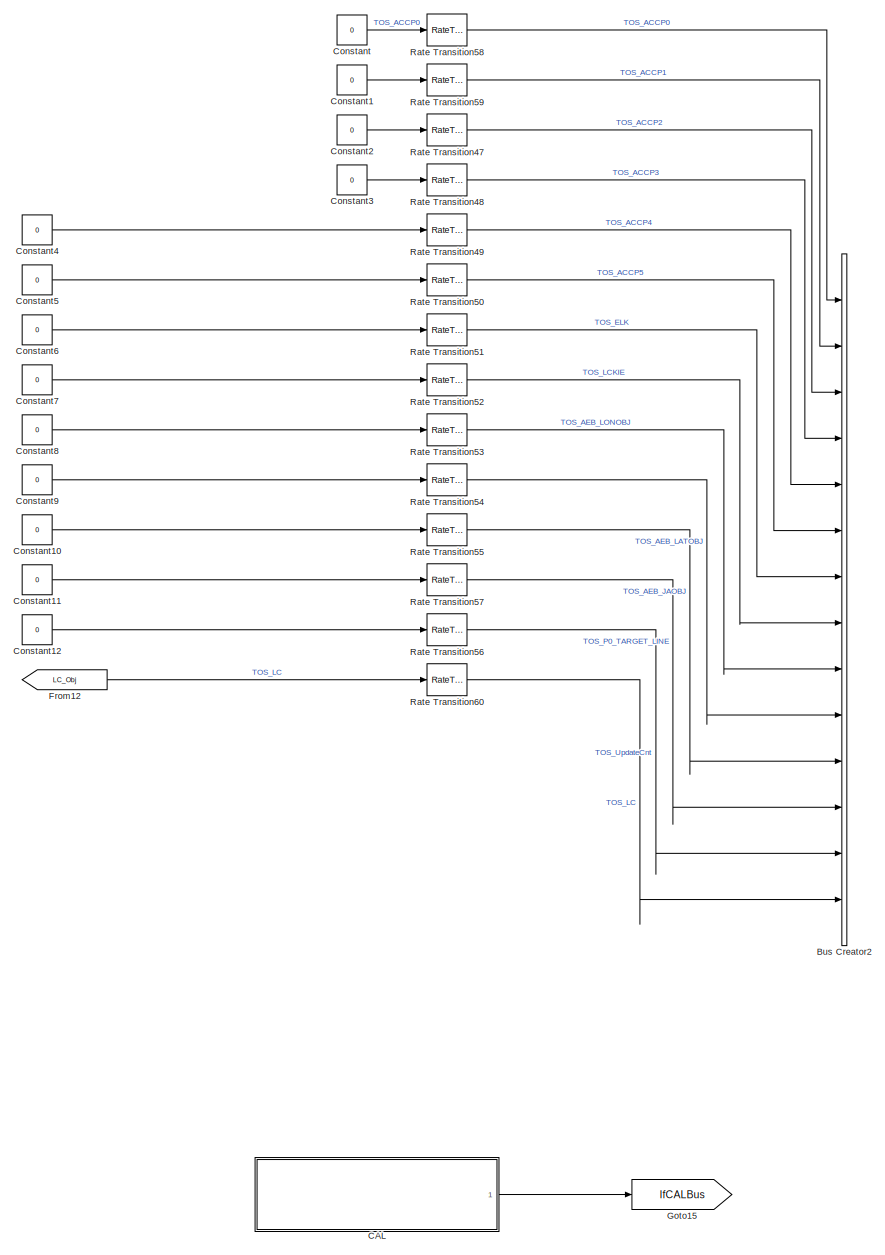
[diagram: root canvas - part 1/11, top left region]
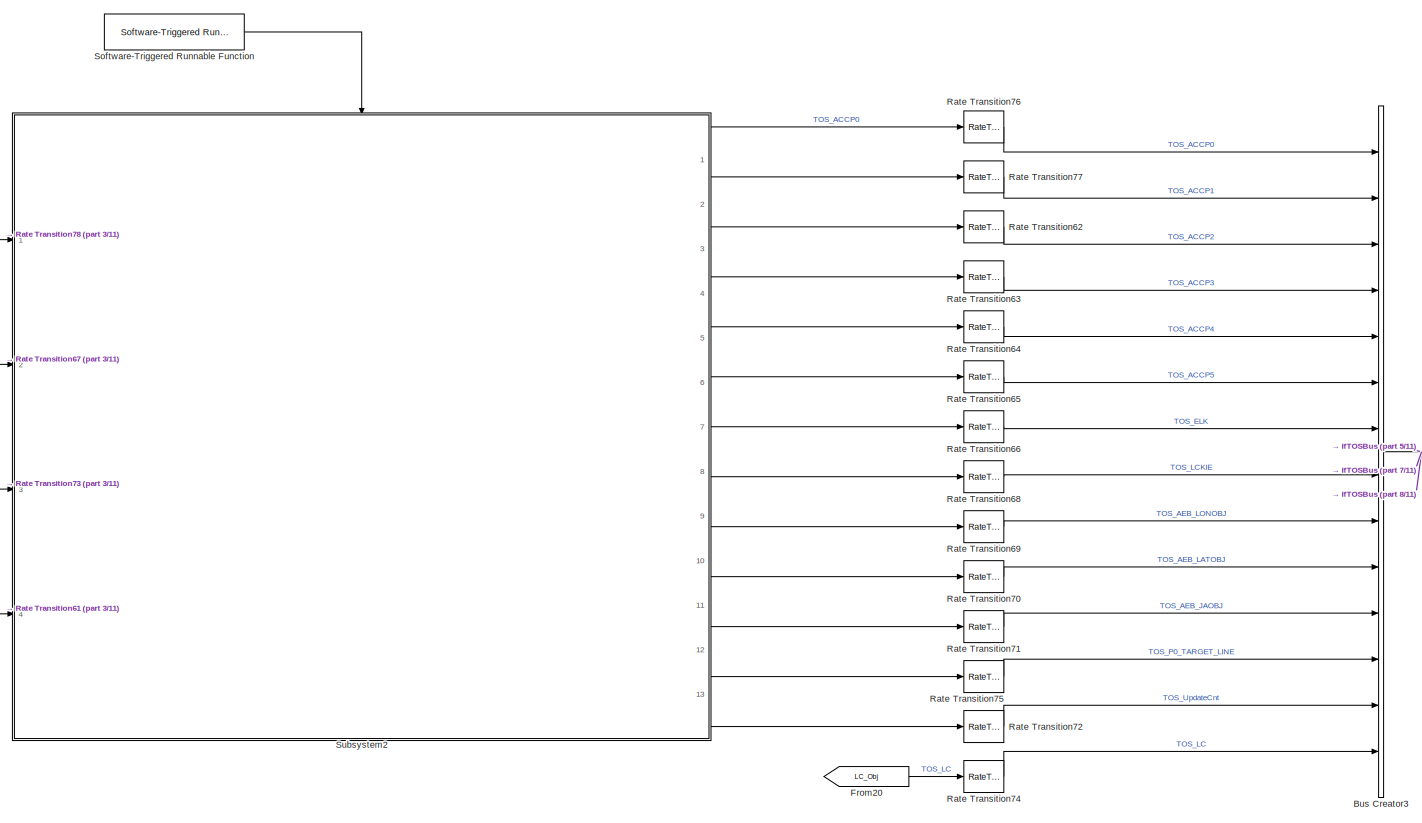
[diagram: root canvas - part 2/11, top center region]
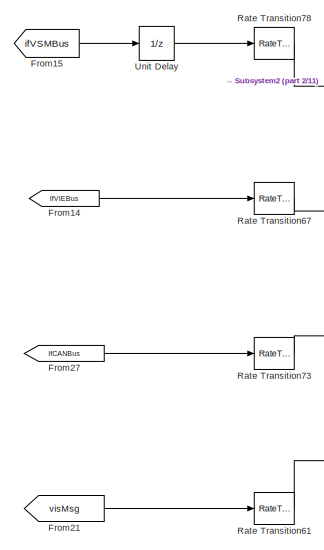
[diagram: root canvas - part 3/11, top left region]
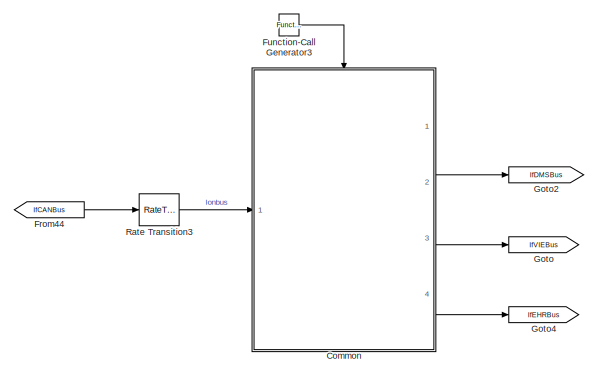
[diagram: root canvas - part 4/11, middle left region]
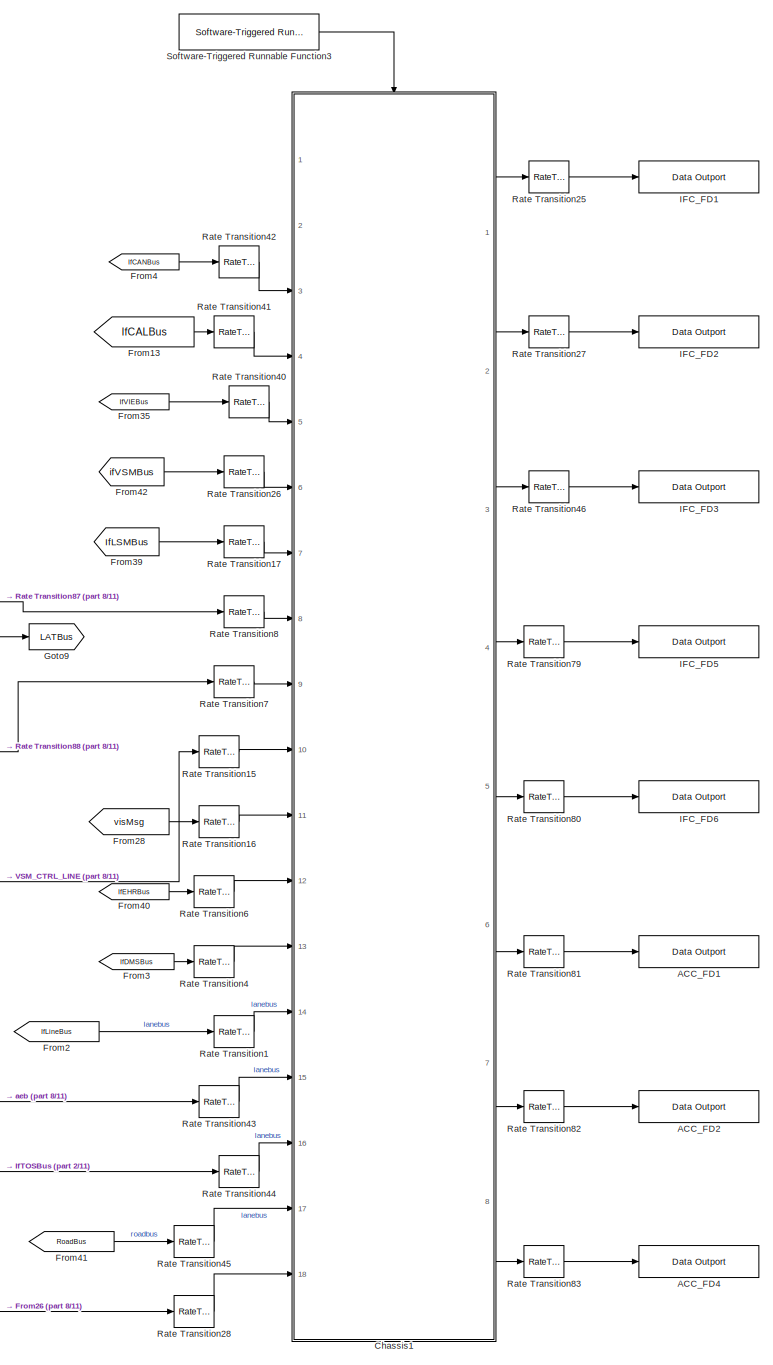
[diagram: root canvas - part 5/11, bottom right region]
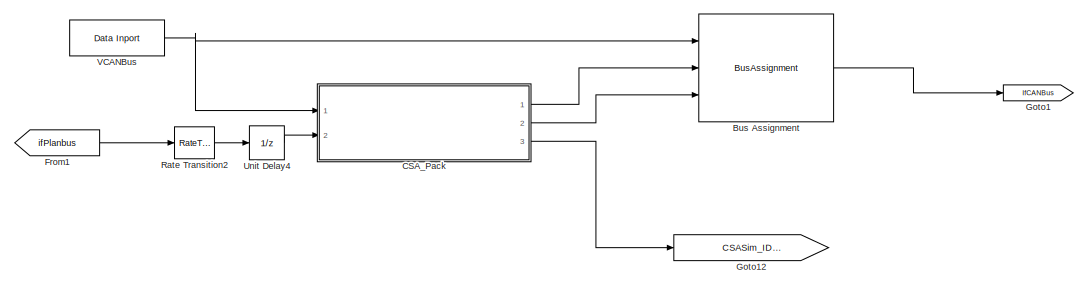
[diagram: root canvas - part 6/11, middle left region]
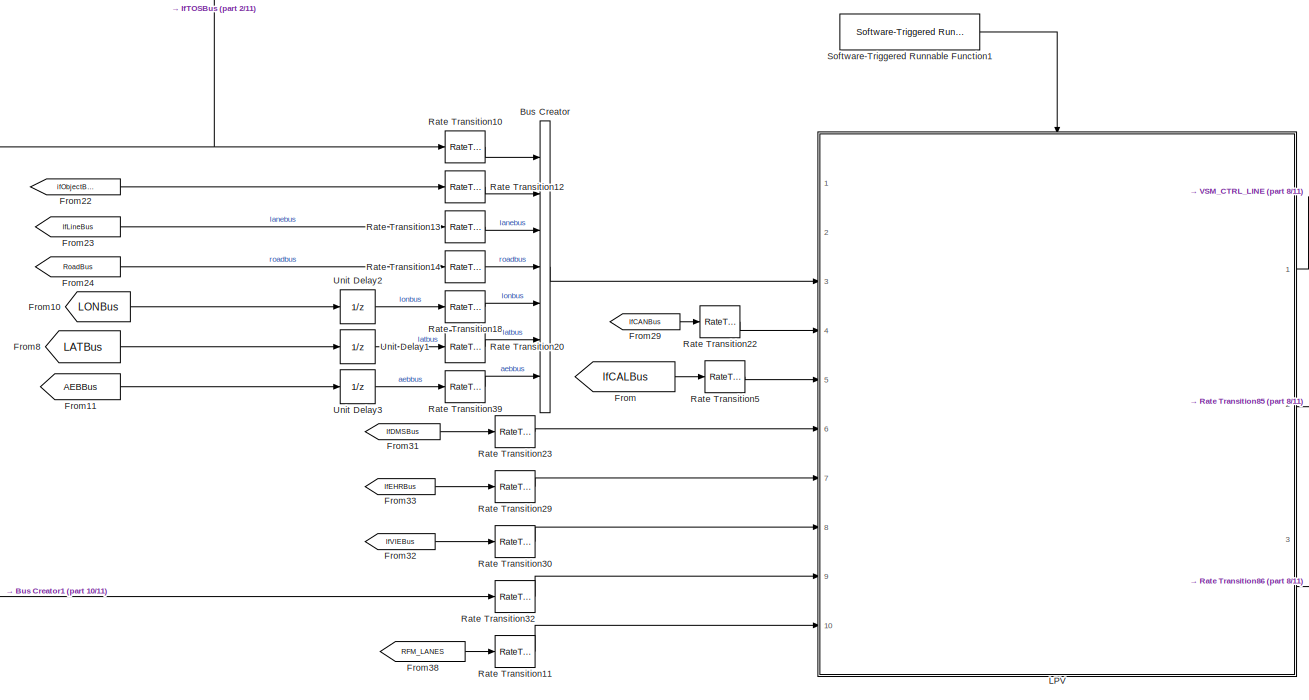
[diagram: root canvas - part 7/11, central region]
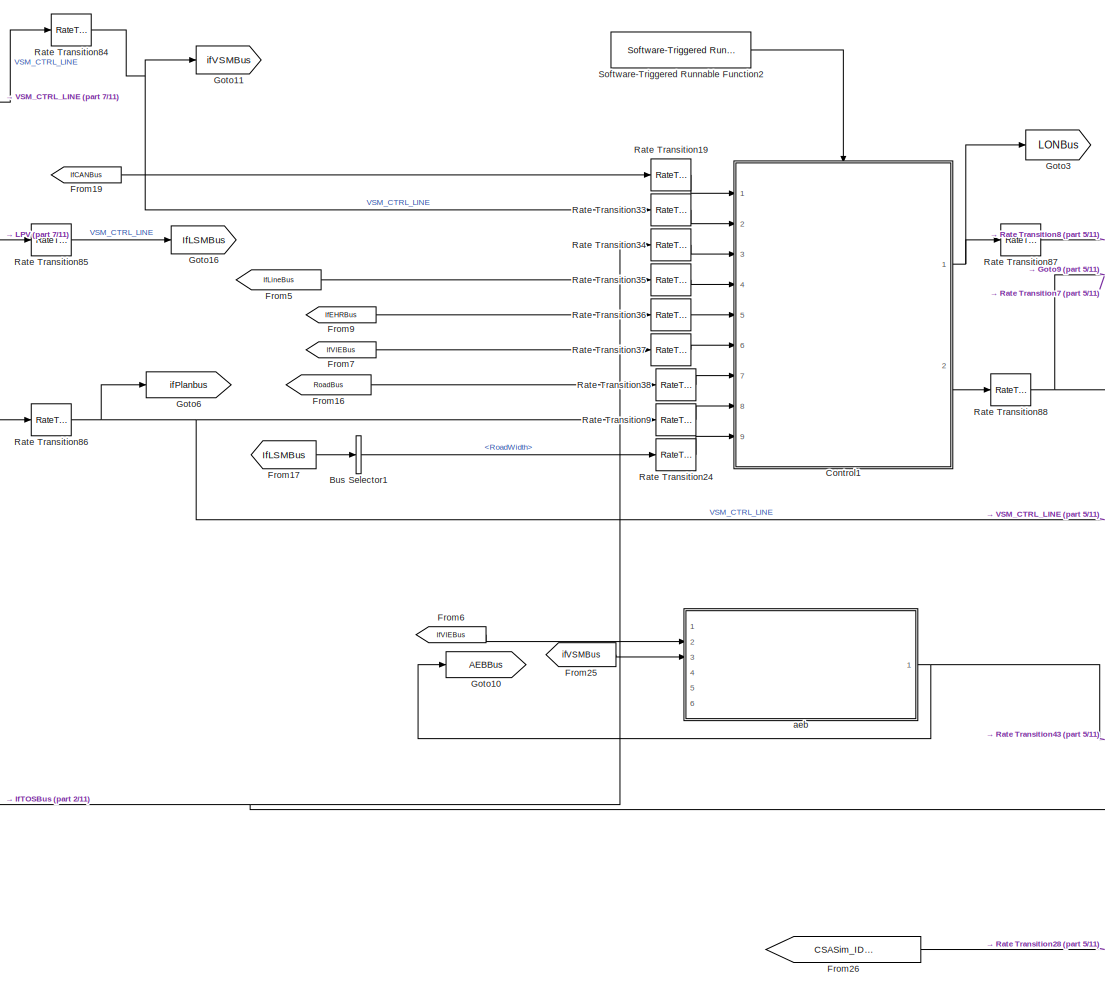
[diagram: root canvas - part 8/11, bottom right region]
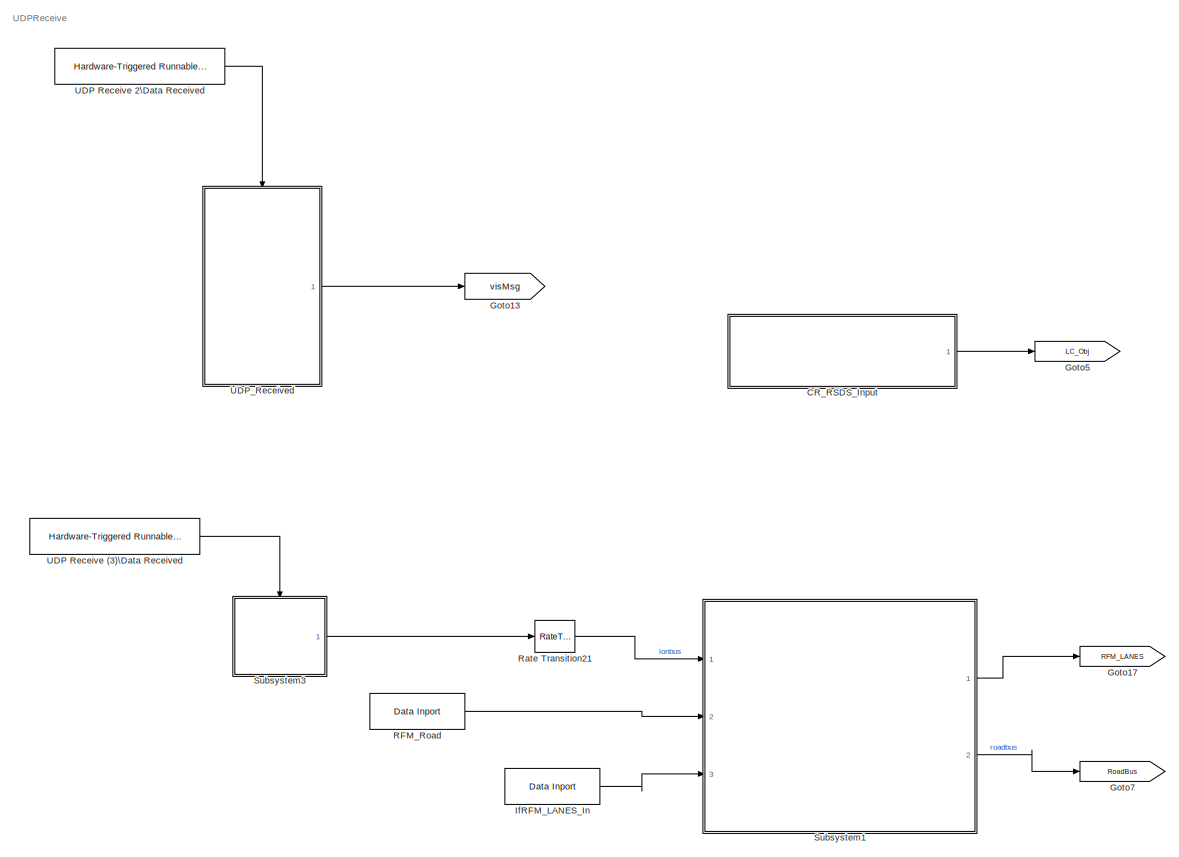
[diagram: root canvas - part 9/11, bottom left region]
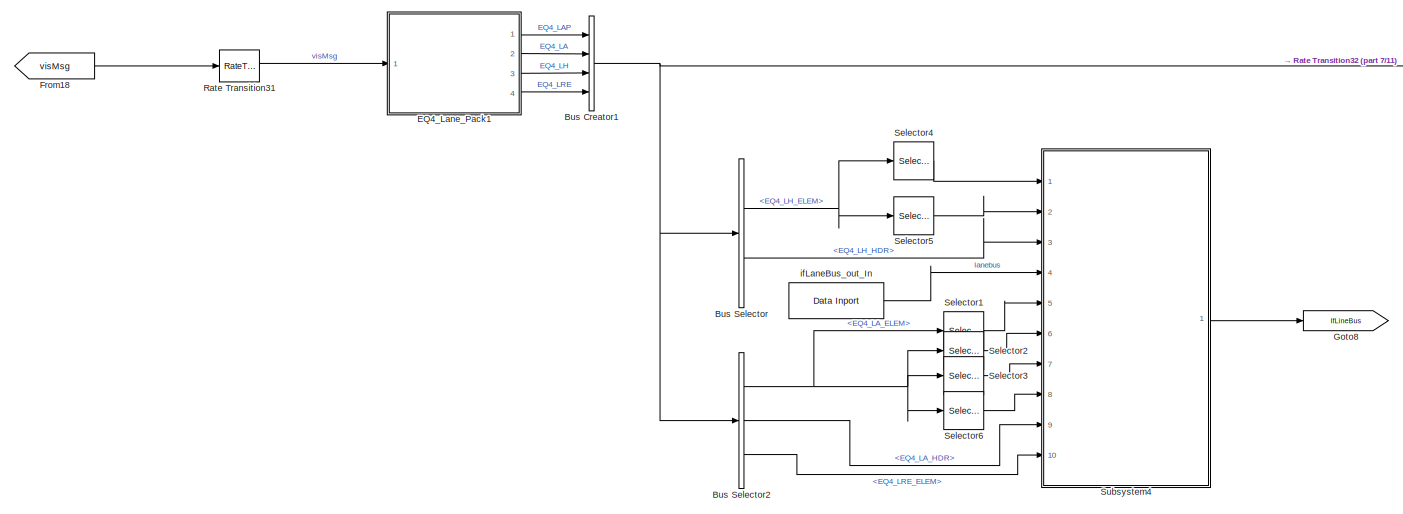
[diagram: root canvas - part 10/11, bottom center region]
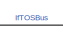
[diagram: root canvas - part 11/11, bottom center region]
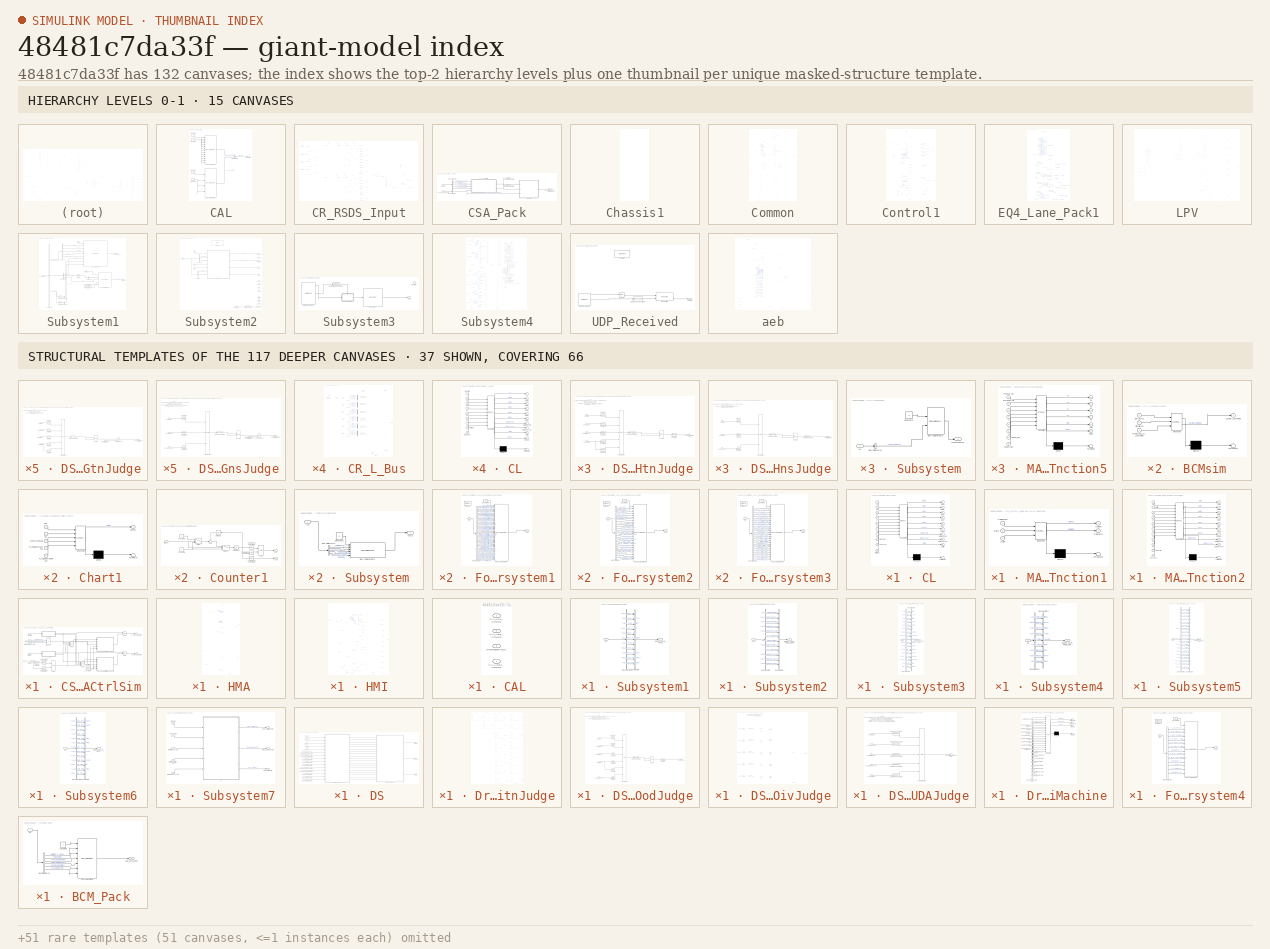
[diagram: thumbnail index - top-2 hierarchy levels (15 canvases) + 37 structural-template representatives of the remaining 117 canvases]
MODEL slx_48481c7da33f
KIND model
CONFIG AbsTol = auto
CONFIG EnableMultiTasking = off
CONFIG FixedStep = 0.02
CONFIG InitFcn = , if any(exist('rtifpga_mdlclblib', 'file') ~= 0), rtifpga_mdlclblib('Init', bdroot); end,\n, if any(exist('dsmpb_private', 'file') ~= 0), dsmpb_private('dsmpb_mdlclblib', 'Init', bdroot); end,\n
CONFIG MaxStep = auto
CONFIG MinStep = auto
CONFIG PostLoadFcn = if any(exist('dsrtsu_mdlpostloadfcn', 'file') ~= 0), dsrtsu_mdlpostloadfcn('Execute', bdroot); end
CONFIG RelTol = 1e-3
CONFIG SampleTimeConstraint = Unconstrained
CONFIG SolverName = FixedStepDiscrete
CONFIG StartTime = 0.0
CONFIG StopTime = Inf
BLOCK [Reference] ACC_FD1  REF=dsmpblib/Data Outport
  Diagnostics = AllowInheritedTsInSrc
  Ports = [1]
  Priority = -10000
  SourceBlock = dsmpblib/Data Outport
  SourceProductName = dSPACE Model Interface Blockset
  SourceType = DataOutportBlock
  UserDataPersistent = on
BLOCK [Reference] ACC_FD2  REF=dsmpblib/Data Outport
  Diagnostics = AllowInheritedTsInSrc
  Ports = [1]
  Priority = -10000
  SourceBlock = dsmpblib/Data Outport
  SourceProductName = dSPACE Model Interface Blockset
  SourceType = DataOutportBlock
  UserDataPersistent = on
BLOCK [Reference] ACC_FD4  REF=dsmpblib/Data Outport
  Diagnostics = AllowInheritedTsInSrc
  Ports = [1]
  Priority = -10000
  SourceBlock = dsmpblib/Data Outport
  SourceProductName = dSPACE Model Interface Blockset
  SourceType = DataOutportBlock
  UserDataPersistent = on
BLOCK [BusAssignment] Bus Assignment
  AssignedSignals = CSA_NODE.CSA1_MSG.LTurnLmpSwtSts,CSA_NODE.CSA1_MSG.RTurnLmpSwtSts
  Ports = [3, 1]
BLOCK [BusCreator] Bus Creator
  DisplayOption = bar
  InheritFromInputs = on
  Inputs = 7
  Ports = [7, 1]
BLOCK [BusCreator] Bus Creator1
  DisplayOption = bar
  InheritFromInputs = on
  Inputs = 4
  Ports = [4, 1]
BLOCK [BusCreator] Bus Creator2
  Commented = on
  DisplayOption = bar
  InheritFromInputs = on
  Inputs = 14
  Ports = [14, 1]
BLOCK [BusCreator] Bus Creator3
  DisplayOption = bar
  InheritFromInputs = on
  Inputs = 14
  Ports = [14, 1]
BLOCK [BusSelector] Bus Selector
  OutputSignals = EQ4_LH.EQ4_LH_ELEM,EQ4_LH.EQ4_LH_HDR
  Ports = [1, 2]
BLOCK [BusSelector] Bus Selector1
  OutputSignals = LSM_HWA.RoadWidth
  Ports = [1, 1]
BLOCK [BusSelector] Bus Selector2
  OutputSignals = EQ4_LA.EQ4_LA_ELEM,EQ4_LA.EQ4_LA_HDR,EQ4_LRE.EQ4_LRE_ELEM
  Ports = [1, 3]
BLOCK [SubSystem] CAL
  Ports = [0, 1]
  RequestExecContextInheritance = off
BLOCK [BusAssignment] CAL/Bus Assignment
  AssignedSignals = VehConfigHWA,VehConfigTJA,VehConfigLCK,VehConfigELK,VehConfigACC,VehConfigESS,VehConfigCC,VehConfigLKA,VehConfigLDW,VehConfigLCKIE,VehConfigiACC,VehConfigTSR,VehConfigAES
  Ports = [14, 1]
BLOCK [BusAssignment] CAL/Bus Assignment1
  AssignedSignals = VehConfigADB,VehConfigHMA,VehConfigHMA_laser
  Ports = [4, 1]
BLOCK [BusCreator] CAL/Bus Creator2
  DisplayOption = bar
  InheritFromInputs = on
  Inputs = 2
  Ports = [2, 1]
BLOCK [Constant] CAL/Constant1
  OutDataTypeStr = Bus: CAL_AHBC_CONFIG_BUS
  Value = 0
BLOCK [Constant] CAL/Constant2
  OutDataTypeStr = uint8
BLOCK [Constant] CAL/Constant6
  OutDataTypeStr = Bus: CAL_VSM_CONFIG_BUS
  Value = 0
BLOCK [Constant] CAL/Constant7
  OutDataTypeStr = uint8
BLOCK [Outport] CAL/IfCALBus
BLOCK [SubSystem] CR_RSDS_Input
  Ports = [0, 1]
  RequestExecContextInheritance = off
BLOCK [BusAssignment] CR_RSDS_Input/Bus Assignment3
  AssignedSignals = Object_ID,Object_DX,Object_DY,Object_VX,Object_VY,Object_AX,Object_Age,Object_MovingState,Object_Fus_Type
  Ports = [10, 1]
BLOCK [BusSelector] CR_RSDS_Input/Bus Selector
  NameLocation = left
  OutputSignals = ObjAx,ObjMoveSts,ObjFusType,ObjID,ObjAge
  Ports = [1, 5]
BLOCK [BusSelector] CR_RSDS_Input/Bus Selector1
  NameLocation = left
  OutputSignals = ObjAx,ObjMoveSts,ObjFusType,ObjID,ObjAge
  Ports = [1, 5]
BLOCK [BusSelector] CR_RSDS_Input/Bus Selector2
  NameLocation = left
  OutputSignals = ObjAx,ObjMoveSts,ObjFusType,ObjID,ObjAge
  Ports = [1, 5]
BLOCK [BusSelector] CR_RSDS_Input/Bus Selector3
  NameLocation = left
  OutputSignals = ObjAx,ObjMoveSts,ObjFusType,ObjID,ObjAge
  Ports = [1, 5]
BLOCK [BusSelector] CR_RSDS_Input/Bus Selector4
  NameLocation = left
  OutputSignals = ObjDx,ObjDy,ObjVx,ObjVy
  Ports = [1, 4]
BLOCK [BusSelector] CR_RSDS_Input/Bus Selector5
  NameLocation = left
  OutputSignals = ObjDx,ObjDy,ObjVx,ObjVy
  Ports = [1, 4]
BLOCK [BusSelector] CR_RSDS_Input/Bus Selector6
  NameLocation = left
  OutputSignals = ObjDx,ObjDy,ObjVx,ObjVy
  Ports = [1, 4]
BLOCK [BusSelector] CR_RSDS_Input/Bus Selector7
  NameLocation = left
  OutputSignals = ObjDx,ObjDy,ObjVx,ObjVy
  Ports = [1, 4]
BLOCK [SubSystem] CR_RSDS_Input/CL
  Commented = on
  ErrorFcn = Stateflow.Translate.translate
  PermitHierarchicalResolution = ExplicitOnly
  Ports = [10, 9]
  RequestExecContextInheritance = off
  SFBlockType = MATLAB Function
  TreatAsAtomicUnit = on
BLOCK [Demux] CR_RSDS_Input/CL/ Demux 
  Outputs = 1
  Ports = [1, 1]
BLOCK [S-Function] CR_RSDS_Input/CL/ SFunction 
  EnableBusSupport = on
  FunctionName = sf_sfun
  PortCounts = [10 10]
  Ports = [10, 10]
  SFcnIsStateOwnerBlock = off
  SFunctionDeploymentMode = off
  Tag = Stateflow S-Function 5
BLOCK [Terminator] CR_RSDS_Input/CL/ Terminator 
BLOCK [Inport] CR_RSDS_Input/CL/Age
  Port = 7
BLOCK [Inport] CR_RSDS_Input/CL/Ax
  Port = 6
BLOCK [Inport] CR_RSDS_Input/CL/Dx
  Port = 2
BLOCK [Inport] CR_RSDS_Input/CL/Dy
  Port = 3
BLOCK [Inport] CR_RSDS_Input/CL/FusType
  Port = 9
BLOCK [Inport] CR_RSDS_Input/CL/ID
BLOCK [Inport] CR_RSDS_Input/CL/MoveSts
  Port = 8
BLOCK [Outport] CR_RSDS_Input/CL/ObjAge
  Port = 6
BLOCK [Outport] CR_RSDS_Input/CL/ObjAx
  Port = 5
BLOCK [Outport] CR_RSDS_Input/CL/ObjDx
BLOCK [Outport] CR_RSDS_Input/CL/ObjDy
  Port = 2
BLOCK [Outport] CR_RSDS_Input/CL/ObjFusType
  Port = 8
BLOCK [Outport] CR_RSDS_Input/CL/ObjID
  Port = 9
BLOCK [Inport] CR_RSDS_Input/CL/ObjIDK1
  Port = 10
BLOCK [Outport] CR_RSDS_Input/CL/ObjMoveSts
  Port = 7
BLOCK [Outport] CR_RSDS_Input/CL/ObjVx
  Port = 3
BLOCK [Outport] CR_RSDS_Input/CL/ObjVy
  Port = 4
BLOCK [Inport] CR_RSDS_Input/CL/Vx
  Port = 4
BLOCK [Inport] CR_RSDS_Input/CL/Vy
  Port = 5
BLOCK [SubSystem] CR_RSDS_Input/CR_L_Bus
  Ports = [0, 1, 1]
  RequestExecContextInheritance = off
BLOCK [BusCreator] CR_RSDS_Input/CR_L_Bus/Bus Creator
  DisplayOption = bar
  InheritFromInputs = on
  Inputs = 9
  Ports = [9, 1]
BLOCK [BusSelector] CR_RSDS_Input/CR_L_Bus/Bus Selector
  OutputSignals = CR_L_Obj1.CR_L_ObjID_1 Value,CR_L_Obj2.CR_L_ObjID_2 Value,CR_L_Obj3.CR_L_ObjID_3 Value,CR_L_Obj4.CR_L_ObjID_4 Value,CR_L_Obj5.CR_L_ObjID_5 Value,CR_L_Obj6.CR_L_ObjID_6 Value
  Ports = [1, 6]
BLOCK [BusSelector] CR_RSDS_Input/CR_L_Bus/Bus Selector1
  OutputSignals = CR_L_Obj1.CR_L_ObjDistX_1 Value,CR_L_Obj2.CR_L_ObjDistX_2 Value,CR_L_Obj3.CR_L_ObjDistX_3 Value,CR_L_Obj4.CR_L_ObjDistX_4 Value,CR_L_Obj5.CR_L_ObjDistX_5 Value,CR_L_Obj6.CR_L_ObjDistX_6 Value
  Ports = [1, 6]
BLOCK [BusSelector] CR_RSDS_Input/CR_L_Bus/Bus Selector2
  OutputSignals = CR_L_Obj1.CR_L_ObjDistY_1 Value,CR_L_Obj2.CR_L_ObjDistY_2 Value,CR_L_Obj3.CR_L_ObjDistY_3 Value,CR_L_Obj4.CR_L_ObjDistY_4 Value,CR_L_Obj5.CR_L_ObjDistY_5 Value,CR_L_Obj6.CR_L_ObjDistY_6 Value
  Ports = [1, 6]
BLOCK [BusSelector] CR_RSDS_Input/CR_L_Bus/Bus Selector3
  OutputSignals = CR_L_Obj1.CR_L_ObjRelVelX_1 Value,CR_L_Obj2.CR_L_ObjRelVelX_2 Value,CR_L_Obj3.CR_L_ObjRelVelX_3 Value,CR_L_Obj4.CR_L_ObjRelVelX_4 Value,CR_L_Obj5.CR_L_ObjRelVelX_5 Value,CR_L_Obj6.CR_L_ObjRelVelX_6 Value
  Ports = [1, 6]
BLOCK [BusSelector] CR_RSDS_Input/CR_L_Bus/Bus Selector4
  OutputSignals = CR_L_Obj1.CR_L_ObjRelVelY_1 Value,CR_L_Obj2.CR_L_ObjRelVelY_2 Value,CR_L_Obj3.CR_L_ObjRelVelY_3 Value,CR_L_Obj4.CR_L_ObjRelVelY_4 Value,CR_L_Obj5.CR_L_ObjRelVelY_5 Value,CR_L_Obj6.CR_L_ObjRelVelY_6 Value
  Ports = [1, 6]
BLOCK [BusSelector] CR_RSDS_Input/CR_L_Bus/Bus Selector5
  OutputSignals = CR_L_Obj1.CR_L_ObjRelAccelX_1 Value,CR_L_Obj2.CR_L_ObjRelAccelX_2 Value,CR_L_Obj3.CR_L_ObjRelAccelX_3 Value,CR_L_Obj4.CR_L_ObjRelAccelX_4 Value,CR_L_Obj5.CR_L_ObjRelAccelX_5 Value,CR_L_Obj6.CR_L_ObjRelAccelX_6 Value
  Ports = [1, 6]
BLOCK [SubSystem] CR_RSDS_Input/CR_L_Bus/CL
  ErrorFcn = Stateflow.Translate.translate
  PermitHierarchicalResolution = ExplicitOnly
  Ports = [9, 10]
  RequestExecContextInheritance = off
  SFBlockType = MATLAB Function
  TreatAsAtomicUnit = on
BLOCK [Demux] CR_RSDS_Input/CR_L_Bus/CL/ Demux 
  Outputs = 1
  Ports = [1, 1]
BLOCK [S-Function] CR_RSDS_Input/CR_L_Bus/CL/ SFunction 
  EnableBusSupport = on
  FunctionName = sf_sfun
  PortCounts = [9 11]
  Ports = [9, 11]
  SFcnIsStateOwnerBlock = off
  SFunctionDeploymentMode = off
  Tag = Stateflow S-Function 6
BLOCK [Terminator] CR_RSDS_Input/CR_L_Bus/CL/ Terminator 
BLOCK [Inport] CR_RSDS_Input/CR_L_Bus/CL/Ax
  Port = 7
BLOCK [Inport] CR_RSDS_Input/CR_L_Bus/CL/Dx
  Port = 3
BLOCK [Inport] CR_RSDS_Input/CR_L_Bus/CL/Dy
  Port = 4
BLOCK [Inport] CR_RSDS_Input/CR_L_Bus/CL/ID
  Port = 2
BLOCK [Outport] CR_RSDS_Input/CR_L_Bus/CL/ObjAge
  Port = 10
BLOCK [Inport] CR_RSDS_Input/CR_L_Bus/CL/ObjAgeK1
  Port = 9
BLOCK [Outport] CR_RSDS_Input/CR_L_Bus/CL/ObjAx
  Port = 6
BLOCK [Outport] CR_RSDS_Input/CR_L_Bus/CL/ObjDx
  Port = 2
BLOCK [Outport] CR_RSDS_Input/CR_L_Bus/CL/ObjDy
  Port = 3
BLOCK [Outport] CR_RSDS_Input/CR_L_Bus/CL/ObjFusType
  Port = 8
BLOCK [Outport] CR_RSDS_Input/CR_L_Bus/CL/ObjID
  Port = 9
BLOCK [Inport] CR_RSDS_Input/CR_L_Bus/CL/ObjIDK1
  Port = 8
BLOCK [Outport] CR_RSDS_Input/CR_L_Bus/CL/ObjMoveSts
  Port = 7
BLOCK [Outport] CR_RSDS_Input/CR_L_Bus/CL/ObjVx
  Port = 4
BLOCK [Outport] CR_RSDS_Input/CR_L_Bus/CL/ObjVy
  Port = 5
BLOCK [Outport] CR_RSDS_Input/CR_L_Bus/CL/P
BLOCK [Inport] CR_RSDS_Input/CR_L_Bus/CL/RadarID
BLOCK [Inport] CR_RSDS_Input/CR_L_Bus/CL/Vx
  Port = 5
BLOCK [Inport] CR_RSDS_Input/CR_L_Bus/CL/Vy
  Port = 6
BLOCK [Outport] CR_RSDS_Input/CR_L_Bus/CR_L_Obj
BLOCK [Reference] CR_RSDS_Input/CR_L_Bus/CR_Left_Obj  REF=dsmpblib/Data Inport
  Diagnostics = AllowInheritedTsInSrc
  Ports = [0, 1]
  Priority = 10000
  SourceBlock = dsmpblib/Data Inport
  SourceProductName = dSPACE Model Interface Blockset
  SourceType = DataInportBlock
  UserDataPersistent = on
BLOCK [Constant] CR_RSDS_Input/CR_L_Bus/Constant
  OutDataTypeStr = uint8
  Value = uint8(1)
BLOCK [DataTypeConversion] CR_RSDS_Input/CR_L_Bus/Data Type Conversion
  RndMeth = Floor
  SaturateOnIntegerOverflow = off
BLOCK [DataTypeConversion] CR_RSDS_Input/CR_L_Bus/Data Type Conversion1
  RndMeth = Floor
  SaturateOnIntegerOverflow = off
BLOCK [DataTypeConversion] CR_RSDS_Input/CR_L_Bus/Data Type Conversion2
  RndMeth = Floor
  SaturateOnIntegerOverflow = off
BLOCK [DataTypeConversion] CR_RSDS_Input/CR_L_Bus/Data Type Conversion3
  RndMeth = Floor
  SaturateOnIntegerOverflow = off
BLOCK [DataTypeConversion] CR_RSDS_Input/CR_L_Bus/Data Type Conversion4
  RndMeth = Floor
  SaturateOnIntegerOverflow = off
BLOCK [DataTypeConversion] CR_RSDS_Input/CR_L_Bus/Data Type Conversion5
  RndMeth = Floor
  SaturateOnIntegerOverflow = off
BLOCK [EnablePort] CR_RSDS_Input/CR_L_Bus/Enable
  Ports = []
BLOCK [From] CR_RSDS_Input/CR_L_Bus/From
  GotoTag = CR_L_Obj
BLOCK [From] CR_RSDS_Input/CR_L_Bus/From1
  GotoTag = CR_L_Obj
BLOCK [From] CR_RSDS_Input/CR_L_Bus/From2
  GotoTag = CR_L_Obj
BLOCK [From] CR_RSDS_Input/CR_L_Bus/From3
  GotoTag = CR_L_Obj
BLOCK [From] CR_RSDS_Input/CR_L_Bus/From4
  GotoTag = CR_L_Obj
BLOCK [From] CR_RSDS_Input/CR_L_Bus/From5
  GotoTag = CR_L_Obj
BLOCK [Goto] CR_RSDS_Input/CR_L_Bus/Goto
  GotoTag = CR_L_Obj
BLOCK [Mux] CR_RSDS_Input/CR_L_Bus/Mux
  DisplayOption = bar
  Inputs = 6
  Ports = [6, 1]
BLOCK [Mux] CR_RSDS_Input/CR_L_Bus/Mux1
  DisplayOption = bar
  Inputs = 6
  Ports = [6, 1]
BLOCK [Mux] CR_RSDS_Input/CR_L_Bus/Mux2
  DisplayOption = bar
  Inputs = 6
  Ports = [6, 1]
BLOCK [Mux] CR_RSDS_Input/CR_L_Bus/Mux3
  DisplayOption = bar
  Inputs = 6
  Ports = [6, 1]
BLOCK [Mux] CR_RSDS_Input/CR_L_Bus/Mux4
  DisplayOption = bar
  Inputs = 6
  Ports = [6, 1]
BLOCK [Mux] CR_RSDS_Input/CR_L_Bus/Mux5
  DisplayOption = bar
  Inputs = 6
  Ports = [6, 1]
BLOCK [Terminator] CR_RSDS_Input/CR_L_Bus/Terminator
BLOCK [UnitDelay] CR_RSDS_Input/CR_L_Bus/Unit Delay
  HasFrameUpgradeWarning = on
  SampleTime = -1
BLOCK [UnitDelay] CR_RSDS_Input/CR_L_Bus/Unit Delay1
  HasFrameUpgradeWarning = on
  SampleTime = -1
BLOCK [Reference] CR_RSDS_Input/CR_Left_ObjUpdate_b  REF=dsmpblib/Data Inport
  Diagnostics = AllowInheritedTsInSrc
  Ports = [0, 1]
  Priority = 10000
  SourceBlock = dsmpblib/Data Inport
  SourceProductName = dSPACE Model Interface Blockset
  SourceType = DataInportBlock
  UserDataPersistent = on
BLOCK [SubSystem] CR_RSDS_Input/CR_R_Bus
  Ports = [0, 1, 1]
  RequestExecContextInheritance = off
BLOCK [BusCreator] CR_RSDS_Input/CR_R_Bus/Bus Creator
  DisplayOption = bar
  InheritFromInputs = on
  Inputs = 9
  Ports = [9, 1]
BLOCK [BusSelector] CR_RSDS_Input/CR_R_Bus/Bus Selector
  OutputSignals = CR_R_Obj1.CR_R_ObjID_1 Value,CR_R_Obj2.CR_R_ObjID_2 Value,CR_R_Obj3.CR_R_ObjID_3 Value,CR_R_Obj4.CR_R_ObjID_4 Value,CR_R_Obj5.CR_R_ObjID_5 Value,CR_R_Obj6.CR_R_ObjID_6 Value
  Ports = [1, 6]
BLOCK [BusSelector] CR_RSDS_Input/CR_R_Bus/Bus Selector1
  OutputSignals = CR_R_Obj1.CR_R_ObjDistX_1 Value,CR_R_Obj2.CR_R_ObjDistX_2 Value,CR_R_Obj3.CR_R_ObjDistX_3 Value,CR_R_Obj4.CR_R_ObjDistX_4 Value,CR_R_Obj5.CR_R_ObjDistX_5 Value,CR_R_Obj6.CR_R_ObjDistX_6 Value
  Ports = [1, 6]
BLOCK [BusSelector] CR_RSDS_Input/CR_R_Bus/Bus Selector2
  OutputSignals = CR_R_Obj1.CR_R_ObjDistY_1 Value,CR_R_Obj2.CR_R_ObjDistY_2 Value,CR_R_Obj3.CR_R_ObjDistY_3 Value,CR_R_Obj4.CR_R_ObjDistY_4 Value,CR_R_Obj5.CR_R_ObjDistY_5 Value,CR_R_Obj6.CR_R_ObjDistY_6 Value
  Ports = [1, 6]
BLOCK [BusSelector] CR_RSDS_Input/CR_R_Bus/Bus Selector3
  OutputSignals = CR_R_Obj1.CR_R_ObjRelVelX_1 Value,CR_R_Obj2.CR_R_ObjRelVelX_2 Value,CR_R_Obj3.CR_R_ObjRelVelX_3 Value,CR_R_Obj4.CR_R_ObjRelVelX_4 Value,CR_R_Obj5.CR_R_ObjRelVelX_5 Value,CR_R_Obj6.CR_R_ObjRelVelX_6 Value
  Ports = [1, 6]
BLOCK [BusSelector] CR_RSDS_Input/CR_R_Bus/Bus Selector4
  OutputSignals = CR_R_Obj1.CR_R_ObjRelVelY_1 Value,CR_R_Obj2.CR_R_ObjRelVelY_2 Value,CR_R_Obj3.CR_R_ObjRelVelY_3 Value,CR_R_Obj4.CR_R_ObjRelVelY_4 Value,CR_R_Obj5.CR_R_ObjRelVelY_5 Value,CR_R_Obj6.CR_R_ObjRelVelY_6 Value
  Ports = [1, 6]
BLOCK [BusSelector] CR_RSDS_Input/CR_R_Bus/Bus Selector5
  OutputSignals = CR_R_Obj1.CR_R_ObjRelAccelX_1 Value,CR_R_Obj2.CR_R_ObjRelAccelX_2 Value,CR_R_Obj3.CR_R_ObjRelAccelX_3 Value,CR_R_Obj4.CR_R_ObjRelAccelX_4 Value,CR_R_Obj5.CR_R_ObjRelAccelX_5 Value,CR_R_Obj6.CR_R_ObjRelAccelX_6 Value
  Ports = [1, 6]
BLOCK [SubSystem] CR_RSDS_Input/CR_R_Bus/CR
  ErrorFcn = Stateflow.Translate.translate
  PermitHierarchicalResolution = ExplicitOnly
  Ports = [9, 10]
  RequestExecContextInheritance = off
  SFBlockType = MATLAB Function
  TreatAsAtomicUnit = on
BLOCK [Demux] CR_RSDS_Input/CR_R_Bus/CR/ Demux 
  Outputs = 1
  Ports = [1, 1]
BLOCK [S-Function] CR_RSDS_Input/CR_R_Bus/CR/ SFunction 
  EnableBusSupport = on
  FunctionName = sf_sfun
  PortCounts = [9 11]
  Ports = [9, 11]
  SFcnIsStateOwnerBlock = off
  SFunctionDeploymentMode = off
  Tag = Stateflow S-Function 7
BLOCK [Terminator] CR_RSDS_Input/CR_R_Bus/CR/ Terminator 
BLOCK [Inport] CR_RSDS_Input/CR_R_Bus/CR/Ax
  Port = 7
BLOCK [Inport] CR_RSDS_Input/CR_R_Bus/CR/Dx
  Port = 3
BLOCK [Inport] CR_RSDS_Input/CR_R_Bus/CR/Dy
  Port = 4
BLOCK [Inport] CR_RSDS_Input/CR_R_Bus/CR/ID
  Port = 2
BLOCK [Outport] CR_RSDS_Input/CR_R_Bus/CR/ObjAge
  Port = 10
BLOCK [Inport] CR_RSDS_Input/CR_R_Bus/CR/ObjAgeK1
  Port = 9
BLOCK [Outport] CR_RSDS_Input/CR_R_Bus/CR/ObjAx
  Port = 6
BLOCK [Outport] CR_RSDS_Input/CR_R_Bus/CR/ObjDx
  Port = 2
BLOCK [Outport] CR_RSDS_Input/CR_R_Bus/CR/ObjDy
  Port = 3
BLOCK [Outport] CR_RSDS_Input/CR_R_Bus/CR/ObjFusType
  Port = 8
BLOCK [Outport] CR_RSDS_Input/CR_R_Bus/CR/ObjID
  Port = 9
BLOCK [Inport] CR_RSDS_Input/CR_R_Bus/CR/ObjIDK1
  Port = 8
BLOCK [Outport] CR_RSDS_Input/CR_R_Bus/CR/ObjMoveSts
  Port = 7
BLOCK [Outport] CR_RSDS_Input/CR_R_Bus/CR/ObjVx
  Port = 4
BLOCK [Outport] CR_RSDS_Input/CR_R_Bus/CR/ObjVy
  Port = 5
BLOCK [Outport] CR_RSDS_Input/CR_R_Bus/CR/P
BLOCK [Inport] CR_RSDS_Input/CR_R_Bus/CR/RadarID
BLOCK [Inport] CR_RSDS_Input/CR_R_Bus/CR/Vx
  Port = 5
BLOCK [Inport] CR_RSDS_Input/CR_R_Bus/CR/Vy
  Port = 6
BLOCK [Outport] CR_RSDS_Input/CR_R_Bus/CR_R_Obj
BLOCK [Reference] CR_RSDS_Input/CR_R_Bus/CR_Right_Obj  REF=dsmpblib/Data Inport
  Diagnostics = AllowInheritedTsInSrc
  Ports = [0, 1]
  Priority = 10000
  SourceBlock = dsmpblib/Data Inport
  SourceProductName = dSPACE Model Interface Blockset
  SourceType = DataInportBlock
  UserDataPersistent = on
BLOCK [Constant] CR_RSDS_Input/CR_R_Bus/Constant
  OutDataTypeStr = uint8
  Value = uint8(2)
BLOCK [DataTypeConversion] CR_RSDS_Input/CR_R_Bus/Data Type Conversion
  RndMeth = Floor
  SaturateOnIntegerOverflow = off
BLOCK [DataTypeConversion] CR_RSDS_Input/CR_R_Bus/Data Type Conversion1
  RndMeth = Floor
  SaturateOnIntegerOverflow = off
BLOCK [DataTypeConversion] CR_RSDS_Input/CR_R_Bus/Data Type Conversion2
  RndMeth = Floor
  SaturateOnIntegerOverflow = off
BLOCK [DataTypeConversion] CR_RSDS_Input/CR_R_Bus/Data Type Conversion3
  RndMeth = Floor
  SaturateOnIntegerOverflow = off
BLOCK [DataTypeConversion] CR_RSDS_Input/CR_R_Bus/Data Type Conversion4
  RndMeth = Floor
  SaturateOnIntegerOverflow = off
BLOCK [DataTypeConversion] CR_RSDS_Input/CR_R_Bus/Data Type Conversion5
  RndMeth = Floor
  SaturateOnIntegerOverflow = off
BLOCK [EnablePort] CR_RSDS_Input/CR_R_Bus/Enable
  Ports = []
BLOCK [From] CR_RSDS_Input/CR_R_Bus/From
  GotoTag = CR_R_Obj
BLOCK [From] CR_RSDS_Input/CR_R_Bus/From1
  GotoTag = CR_R_Obj
BLOCK [From] CR_RSDS_Input/CR_R_Bus/From2
  GotoTag = CR_R_Obj
BLOCK [From] CR_RSDS_Input/CR_R_Bus/From3
  GotoTag = CR_R_Obj
BLOCK [From] CR_RSDS_Input/CR_R_Bus/From4
  GotoTag = CR_R_Obj
BLOCK [From] CR_RSDS_Input/CR_R_Bus/From5
  GotoTag = CR_R_Obj
BLOCK [Goto] CR_RSDS_Input/CR_R_Bus/Goto
  GotoTag = CR_R_Obj
BLOCK [Mux] CR_RSDS_Input/CR_R_Bus/Mux
  DisplayOption = bar
  Inputs = 6
  Ports = [6, 1]
BLOCK [Mux] CR_RSDS_Input/CR_R_Bus/Mux1
  DisplayOption = bar
  Inputs = 6
  Ports = [6, 1]
BLOCK [Mux] CR_RSDS_Input/CR_R_Bus/Mux2
  DisplayOption = bar
  Inputs = 6
  Ports = [6, 1]
BLOCK [Mux] CR_RSDS_Input/CR_R_Bus/Mux3
  DisplayOption = bar
  Inputs = 6
  Ports = [6, 1]
BLOCK [Mux] CR_RSDS_Input/CR_R_Bus/Mux4
  DisplayOption = bar
  Inputs = 6
  Ports = [6, 1]
BLOCK [Mux] CR_RSDS_Input/CR_R_Bus/Mux5
  DisplayOption = bar
  Inputs = 6
  Ports = [6, 1]
BLOCK [Terminator] CR_RSDS_Input/CR_R_Bus/Terminator
BLOCK [UnitDelay] CR_RSDS_Input/CR_R_Bus/Unit Delay
  HasFrameUpgradeWarning = on
  SampleTime = -1
BLOCK [UnitDelay] CR_RSDS_Input/CR_R_Bus/Unit Delay1
  HasFrameUpgradeWarning = on
  SampleTime = -1
BLOCK [Reference] CR_RSDS_Input/CR_Right_ObjUpdate_b  REF=dsmpblib/Data Inport
  Diagnostics = AllowInheritedTsInSrc
  Ports = [0, 1]
  Priority = 10000
  SourceBlock = dsmpblib/Data Inport
  SourceProductName = dSPACE Model Interface Blockset
  SourceType = DataInportBlock
  UserDataPersistent = on
BLOCK [Constant] CR_RSDS_Input/Constant2
  OutDataTypeStr = uint8
  Value = 24
BLOCK [Constant] CR_RSDS_Input/Constant3
  OutDataTypeStr = Bus: TOS_LC_BUS
  Value = 0
BLOCK [DataTypeConversion] CR_RSDS_Input/Data Type Conversion
  RndMeth = Floor
  SaturateOnIntegerOverflow = off
BLOCK [Reference] CR_RSDS_Input/Detect Change2  REF=simulink/Logic and Bit
Operations/Detect
Change
  Ports = [1, 1]
  SourceBlock = simulink/Logic and Bit\nOperations/Detect\nChange
  SourceProductBaseCode = SL
  SourceType = Detect Change
BLOCK [Reference] CR_RSDS_Input/Detect Change3  REF=simulink/Logic and Bit
Operations/Detect
Change
  Ports = [1, 1]
  SourceBlock = simulink/Logic and Bit\nOperations/Detect\nChange
  SourceProductBaseCode = SL
  SourceType = Detect Change
BLOCK [Reference] CR_RSDS_Input/Detect Change4  REF=simulink/Logic and Bit
Operations/Detect
Change
  Ports = [1, 1]
  SourceBlock = simulink/Logic and Bit\nOperations/Detect\nChange
  SourceProductBaseCode = SL
  SourceType = Detect Change
BLOCK [Reference] CR_RSDS_Input/Detect Change5  REF=simulink/Logic and Bit
Operations/Detect
Change
  Ports = [1, 1]
  SourceBlock = simulink/Logic and Bit\nOperations/Detect\nChange
  SourceProductBaseCode = SL
  SourceType = Detect Change
BLOCK [From] CR_RSDS_Input/From
  GotoTag = CR_L
BLOCK [From] CR_RSDS_Input/From1
  GotoTag = CR_R
BLOCK [From] CR_RSDS_Input/From10
  GotoTag = ID
BLOCK [From] CR_RSDS_Input/From11
  GotoTag = Dx
BLOCK [From] CR_RSDS_Input/From12
  GotoTag = Dy
BLOCK [From] CR_RSDS_Input/From13
  GotoTag = Vx
BLOCK [From] CR_RSDS_Input/From14
  GotoTag = Vy
BLOCK [From] CR_RSDS_Input/From15
  GotoTag = Ax
BLOCK [From] CR_RSDS_Input/From16
  GotoTag = Age
BLOCK [From] CR_RSDS_Input/From17
  GotoTag = MoveSts
BLOCK [From] CR_RSDS_Input/From18
  GotoTag = FusType
BLOCK [From] CR_RSDS_Input/From2
  GotoTag = RSDS_L
BLOCK [From] CR_RSDS_Input/From3
  GotoTag = RSDS_R
BLOCK [From] CR_RSDS_Input/From4
  GotoTag = CR_L
BLOCK [From] CR_RSDS_Input/From5
  GotoTag = CR_R
BLOCK [From] CR_RSDS_Input/From6
  GotoTag = RSDS_L
BLOCK [From] CR_RSDS_Input/From7
  GotoTag = RSDS_R
BLOCK [From] CR_RSDS_Input/From8
  GotoTag = ID
BLOCK [From] CR_RSDS_Input/From9
  GotoTag = Dx
BLOCK [Goto] CR_RSDS_Input/Goto
  GotoTag = CR_L
BLOCK [Goto] CR_RSDS_Input/Goto1
  GotoTag = CR_R
BLOCK [Goto] CR_RSDS_Input/Goto10
  GotoTag = Vx
BLOCK [Goto] CR_RSDS_Input/Goto11
  GotoTag = Dy
BLOCK [Goto] CR_RSDS_Input/Goto12
  GotoTag = Dx
BLOCK [Goto] CR_RSDS_Input/Goto2
  GotoTag = RSDS_L
BLOCK [Goto] CR_RSDS_Input/Goto3
  GotoTag = RSDS_R
BLOCK [Goto] CR_RSDS_Input/Goto4
  GotoTag = Age
BLOCK [Goto] CR_RSDS_Input/Goto5
  GotoTag = ID
BLOCK [Goto] CR_RSDS_Input/Goto6
  GotoTag = FusType
BLOCK [Goto] CR_RSDS_Input/Goto7
  GotoTag = MoveSts
BLOCK [Goto] CR_RSDS_Input/Goto8
  GotoTag = Ax
BLOCK [Goto] CR_RSDS_Input/Goto9
  GotoTag = Vy
BLOCK [Outport] CR_RSDS_Input/LC_Obj
  OutDataTypeStr = Bus: TOS_LC_BUS
BLOCK [SubSystem] CR_RSDS_Input/MATLAB Function1
  ErrorFcn = Stateflow.Translate.translate
  PermitHierarchicalResolution = ExplicitOnly
  Ports = [3, 2]
  RequestExecContextInheritance = off
  SFBlockType = MATLAB Function
  TreatAsAtomicUnit = on
BLOCK [Demux] CR_RSDS_Input/MATLAB Function1/ Demux 
  Outputs = 1
  Ports = [1, 1]
BLOCK [S-Function] CR_RSDS_Input/MATLAB Function1/ SFunction 
  EnableBusSupport = on
  FunctionName = sf_sfun
  PortCounts = [3 3]
  Ports = [3, 3]
  SFcnIsStateOwnerBlock = off
  SFunctionDeploymentMode = off
  Tag = Stateflow S-Function 10
BLOCK [Terminator] CR_RSDS_Input/MATLAB Function1/ Terminator 
BLOCK [Inport] CR_RSDS_Input/MATLAB Function1/ObjDx
  Port = 3
BLOCK [Inport] CR_RSDS_Input/MATLAB Function1/ObjID
  Port = 2
BLOCK [Outport] CR_RSDS_Input/MATLAB Function1/ObjMatrix
  Port = 2
BLOCK [Inport] CR_RSDS_Input/MATLAB Function1/ObjNumber
BLOCK [Outport] CR_RSDS_Input/MATLAB Function1/ObjPrio
BLOCK [SubSystem] CR_RSDS_Input/MATLAB Function2
  ErrorFcn = Stateflow.Translate.translate
  PermitHierarchicalResolution = ExplicitOnly
  Ports = [11, 9]
  RequestExecContextInheritance = off
  SFBlockType = MATLAB Function
  TreatAsAtomicUnit = on
BLOCK [Demux] CR_RSDS_Input/MATLAB Function2/ Demux 
  Outputs = 1
  Ports = [1, 1]
BLOCK [S-Function] CR_RSDS_Input/MATLAB Function2/ SFunction 
  EnableBusSupport = on
  FunctionName = sf_sfun
  PortCounts = [11 10]
  Ports = [11, 10]
  SFcnIsStateOwnerBlock = off
  SFunctionDeploymentMode = off
  Tag = Stateflow S-Function 11
BLOCK [Terminator] CR_RSDS_Input/MATLAB Function2/ Terminator 
BLOCK [Inport] CR_RSDS_Input/MATLAB Function2/Age
  Port = 9
BLOCK [Inport] CR_RSDS_Input/MATLAB Function2/Ax
  Port = 8
BLOCK [Inport] CR_RSDS_Input/MATLAB Function2/Dx
  Port = 4
BLOCK [Inport] CR_RSDS_Input/MATLAB Function2/Dy
  Port = 5
BLOCK [Inport] CR_RSDS_Input/MATLAB Function2/FusType
  Port = 11
BLOCK [Inport] CR_RSDS_Input/MATLAB Function2/ID
  Port = 3
BLOCK [Inport] CR_RSDS_Input/MATLAB Function2/Matrix
  Port = 2
BLOCK [Inport] CR_RSDS_Input/MATLAB Function2/MoveSts
  Port = 10
BLOCK [Outport] CR_RSDS_Input/MATLAB Function2/ObjAge
  Port = 7
BLOCK [Outport] CR_RSDS_Input/MATLAB Function2/ObjAx
  Port = 6
BLOCK [Outport] CR_RSDS_Input/MATLAB Function2/ObjDx
  Port = 2
BLOCK [Outport] CR_RSDS_Input/MATLAB Function2/ObjDy
  Port = 3
BLOCK [Outport] CR_RSDS_Input/MATLAB Function2/ObjFusType
  Port = 9
BLOCK [Outport] CR_RSDS_Input/MATLAB Function2/ObjID
BLOCK [Outport] CR_RSDS_Input/MATLAB Function2/ObjMoveSts
  Port = 8
BLOCK [Outport] CR_RSDS_Input/MATLAB Function2/ObjVx
  Port = 4
BLOCK [Outport] CR_RSDS_Input/MATLAB Function2/ObjVy
  Port = 5
BLOCK [Inport] CR_RSDS_Input/MATLAB Function2/Prio
BLOCK [Inport] CR_RSDS_Input/MATLAB Function2/Vx
  Port = 6
BLOCK [Inport] CR_RSDS_Input/MATLAB Function2/Vy
  Port = 7
BLOCK [Concatenate] CR_RSDS_Input/Matrix Concatenate
  NumInputs = 4
  Ports = [4, 1]
BLOCK [Concatenate] CR_RSDS_Input/Matrix Concatenate1
  NumInputs = 4
  Ports = [4, 1]
BLOCK [Concatenate] CR_RSDS_Input/Matrix Concatenate2
  NumInputs = 4
  Ports = [4, 1]
BLOCK [Concatenate] CR_RSDS_Input/Matrix Concatenate3
  NumInputs = 4
  Ports = [4, 1]
BLOCK [Concatenate] CR_RSDS_Input/Matrix Concatenate4
  NumInputs = 4
  Ports = [4, 1]
BLOCK [Concatenate] CR_RSDS_Input/Matrix Concatenate5
  NumInputs = 4
  Ports = [4, 1]
BLOCK [Concatenate] CR_RSDS_Input/Matrix Concatenate6
  NumInputs = 4
  Ports = [4, 1]
BLOCK [Concatenate] CR_RSDS_Input/Matrix Concatenate7
  NumInputs = 4
  Ports = [4, 1]
BLOCK [Concatenate] CR_RSDS_Input/Matrix Concatenate8
  NumInputs = 4
  Ports = [4, 1]
BLOCK [SubSystem] CR_RSDS_Input/RSDS_L_Bus
  Ports = [0, 1, 1]
  RequestExecContextInheritance = off
BLOCK [BusCreator] CR_RSDS_Input/RSDS_L_Bus/Bus Creator
  DisplayOption = bar
  InheritFromInputs = on
  Inputs = 9
  Ports = [9, 1]
BLOCK [BusSelector] CR_RSDS_Input/RSDS_L_Bus/Bus Selector
  OutputSignals = RSDS_L_Obj1.RSDS_L_ObjID_1 Value,RSDS_L_Obj2.RSDS_L_ObjID_2 Value,RSDS_L_Obj3.RSDS_L_ObjID_3 Value,RSDS_L_Obj4.RSDS_L_ObjID_4 Value,RSDS_L_Obj5.RSDS_L_ObjID_5 Value,RSDS_L_Obj6.RSDS_L_ObjID_6 Value
  Ports = [1, 6]
BLOCK [BusSelector] CR_RSDS_Input/RSDS_L_Bus/Bus Selector1
  OutputSignals = RSDS_L_Obj1.RSDS_L_ObjDistX_1 Value,RSDS_L_Obj2.RSDS_L_ObjDistX_2 Value,RSDS_L_Obj3.RSDS_L_ObjDistX_3 Value,RSDS_L_Obj4.RSDS_L_ObjDistX_4 Value,RSDS_L_Obj5.RSDS_L_ObjDistX_5 Value,RSDS_L_Obj6.RSDS_L_ObjDistX_6 Value
  Ports = [1, 6]
BLOCK [BusSelector] CR_RSDS_Input/RSDS_L_Bus/Bus Selector2
  OutputSignals = RSDS_L_Obj1.RSDS_L_ObjDistY_1 Value,RSDS_L_Obj2.RSDS_L_ObjDistY_2 Value,RSDS_L_Obj3.RSDS_L_ObjDistY_3 Value,RSDS_L_Obj4.RSDS_L_ObjDistY_4 Value,RSDS_L_Obj5.RSDS_L_ObjDistY_5 Value,RSDS_L_Obj6.RSDS_L_ObjDistY_6 Value
  Ports = [1, 6]
BLOCK [BusSelector] CR_RSDS_Input/RSDS_L_Bus/Bus Selector3
  OutputSignals = RSDS_L_Obj1.RSDS_L_ObjRelVelX_1 Value,RSDS_L_Obj2.RSDS_L_ObjRelVelX_2 Value,RSDS_L_Obj3.RSDS_L_ObjRelVelX_3 Value,RSDS_L_Obj4.RSDS_L_ObjRelVelX_4 Value,RSDS_L_Obj5.RSDS_L_ObjRelVelX_5 Value,RSDS_L_Obj6.RSDS_L_ObjRelVelX_6 Value
  Ports = [1, 6]
BLOCK [BusSelector] CR_RSDS_Input/RSDS_L_Bus/Bus Selector4
  OutputSignals = RSDS_L_Obj1.RSDS_L_ObjRelVelY_1 Value,RSDS_L_Obj2.RSDS_L_ObjRelVelY_2 Value,RSDS_L_Obj3.RSDS_L_ObjRelVelY_3 Value,RSDS_L_Obj4.RSDS_L_ObjRelVelY_4 Value,RSDS_L_Obj5.RSDS_L_ObjRelVelY_5 Value,RSDS_L_Obj6.RSDS_L_ObjRelVelY_6 Value
  Ports = [1, 6]
BLOCK [BusSelector] CR_RSDS_Input/RSDS_L_Bus/Bus Selector5
  OutputSignals = RSDS_L_Obj1.RSDS_L_ObjRelAccelX_1 Value,RSDS_L_Obj2.RSDS_L_ObjRelAccelX_2 Value,RSDS_L_Obj3.RSDS_L_ObjRelAccelX_3 Value,RSDS_L_Obj4.RSDS_L_ObjRelAccelX_4 Value,RSDS_L_Obj5.RSDS_L_ObjRelAccelX_5 Value,RSDS_L_Obj6.RSDS_L_ObjRelAccelX_6 Value
  Ports = [1, 6]
BLOCK [Constant] CR_RSDS_Input/RSDS_L_Bus/Constant
  OutDataTypeStr = uint8
  Value = uint8(3)
BLOCK [DataTypeConversion] CR_RSDS_Input/RSDS_L_Bus/Data Type Conversion
  RndMeth = Floor
  SaturateOnIntegerOverflow = off
BLOCK [DataTypeConversion] CR_RSDS_Input/RSDS_L_Bus/Data Type Conversion1
  RndMeth = Floor
  SaturateOnIntegerOverflow = off
BLOCK [DataTypeConversion] CR_RSDS_Input/RSDS_L_Bus/Data Type Conversion2
  RndMeth = Floor
  SaturateOnIntegerOverflow = off
BLOCK [DataTypeConversion] CR_RSDS_Input/RSDS_L_Bus/Data Type Conversion3
  RndMeth = Floor
  SaturateOnIntegerOverflow = off
BLOCK [DataTypeConversion] CR_RSDS_Input/RSDS_L_Bus/Data Type Conversion4
  RndMeth = Floor
  SaturateOnIntegerOverflow = off
BLOCK [DataTypeConversion] CR_RSDS_Input/RSDS_L_Bus/Data Type Conversion5
  RndMeth = Floor
  SaturateOnIntegerOverflow = off
BLOCK [EnablePort] CR_RSDS_Input/RSDS_L_Bus/Enable
  Ports = []
BLOCK [From] CR_RSDS_Input/RSDS_L_Bus/From
  GotoTag = RSDS_L_Obj
BLOCK [From] CR_RSDS_Input/RSDS_L_Bus/From1
  GotoTag = RSDS_L_Obj
BLOCK [From] CR_RSDS_Input/RSDS_L_Bus/From2
  GotoTag = RSDS_L_Obj
BLOCK [From] CR_RSDS_Input/RSDS_L_Bus/From3
  GotoTag = RSDS_L_Obj
BLOCK [From] CR_RSDS_Input/RSDS_L_Bus/From4
  GotoTag = RSDS_L_Obj
BLOCK [From] CR_RSDS_Input/RSDS_L_Bus/From5
  GotoTag = RSDS_L_Obj
BLOCK [Goto] CR_RSDS_Input/RSDS_L_Bus/Goto
  GotoTag = RSDS_L_Obj
BLOCK [Mux] CR_RSDS_Input/RSDS_L_Bus/Mux
  DisplayOption = bar
  Inputs = 6
  Ports = [6, 1]
BLOCK [Mux] CR_RSDS_Input/RSDS_L_Bus/Mux1
  DisplayOption = bar
  Inputs = 6
  Ports = [6, 1]
BLOCK [Mux] CR_RSDS_Input/RSDS_L_Bus/Mux2
  DisplayOption = bar
  Inputs = 6
  Ports = [6, 1]
BLOCK [Mux] CR_RSDS_Input/RSDS_L_Bus/Mux3
  DisplayOption = bar
  Inputs = 6
  Ports = [6, 1]
BLOCK [Mux] CR_RSDS_Input/RSDS_L_Bus/Mux4
  DisplayOption = bar
  Inputs = 6
  Ports = [6, 1]
BLOCK [Mux] CR_RSDS_Input/RSDS_L_Bus/Mux5
  DisplayOption = bar
  Inputs = 6
  Ports = [6, 1]
BLOCK [SubSystem] CR_RSDS_Input/RSDS_L_Bus/RSDS_L
  ErrorFcn = Stateflow.Translate.translate
  PermitHierarchicalResolution = ExplicitOnly
  Ports = [9, 10]
  RequestExecContextInheritance = off
  SFBlockType = MATLAB Function
  TreatAsAtomicUnit = on
BLOCK [Demux] CR_RSDS_Input/RSDS_L_Bus/RSDS_L/ Demux 
  Outputs = 1
  Ports = [1, 1]
BLOCK [S-Function] CR_RSDS_Input/RSDS_L_Bus/RSDS_L/ SFunction 
  EnableBusSupport = on
  FunctionName = sf_sfun
  PortCounts = [9 11]
  Ports = [9, 11]
  SFcnIsStateOwnerBlock = off
  SFunctionDeploymentMode = off
  Tag = Stateflow S-Function 12
BLOCK [Terminator] CR_RSDS_Input/RSDS_L_Bus/RSDS_L/ Terminator 
BLOCK [Inport] CR_RSDS_Input/RSDS_L_Bus/RSDS_L/Ax
  Port = 7
BLOCK [Inport] CR_RSDS_Input/RSDS_L_Bus/RSDS_L/Dx
  Port = 3
BLOCK [Inport] CR_RSDS_Input/RSDS_L_Bus/RSDS_L/Dy
  Port = 4
BLOCK [Inport] CR_RSDS_Input/RSDS_L_Bus/RSDS_L/ID
  Port = 2
BLOCK [Outport] CR_RSDS_Input/RSDS_L_Bus/RSDS_L/ObjAge
  Port = 10
BLOCK [Inport] CR_RSDS_Input/RSDS_L_Bus/RSDS_L/ObjAgeK1
  Port = 9
BLOCK [Outport] CR_RSDS_Input/RSDS_L_Bus/RSDS_L/ObjAx
  Port = 6
BLOCK [Outport] CR_RSDS_Input/RSDS_L_Bus/RSDS_L/ObjDx
  Port = 2
BLOCK [Outport] CR_RSDS_Input/RSDS_L_Bus/RSDS_L/ObjDy
  Port = 3
BLOCK [Outport] CR_RSDS_Input/RSDS_L_Bus/RSDS_L/ObjFusType
  Port = 8
BLOCK [Outport] CR_RSDS_Input/RSDS_L_Bus/RSDS_L/ObjID
  Port = 9
BLOCK [Inport] CR_RSDS_Input/RSDS_L_Bus/RSDS_L/ObjIDK1
  Port = 8
BLOCK [Outport] CR_RSDS_Input/RSDS_L_Bus/RSDS_L/ObjMoveSts
  Port = 7
BLOCK [Outport] CR_RSDS_Input/RSDS_L_Bus/RSDS_L/ObjVx
  Port = 4
BLOCK [Outport] CR_RSDS_Input/RSDS_L_Bus/RSDS_L/ObjVy
  Port = 5
BLOCK [Outport] CR_RSDS_Input/RSDS_L_Bus/RSDS_L/P
BLOCK [Inport] CR_RSDS_Input/RSDS_L_Bus/RSDS_L/RadarID
BLOCK [Inport] CR_RSDS_Input/RSDS_L_Bus/RSDS_L/Vx
  Port = 5
BLOCK [Inport] CR_RSDS_Input/RSDS_L_Bus/RSDS_L/Vy
  Port = 6
BLOCK [Outport] CR_RSDS_Input/RSDS_L_Bus/RSDS_L_Obj
BLOCK [Reference] CR_RSDS_Input/RSDS_L_Bus/RSDS_Left_Obj  REF=dsmpblib/Data Inport
  Diagnostics = AllowInheritedTsInSrc
  Ports = [0, 1]
  Priority = 10000
  SourceBlock = dsmpblib/Data Inport
  SourceProductName = dSPACE Model Interface Blockset
  SourceType = DataInportBlock
  UserDataPersistent = on
BLOCK [Terminator] CR_RSDS_Input/RSDS_L_Bus/Terminator
BLOCK [UnitDelay] CR_RSDS_Input/RSDS_L_Bus/Unit Delay
  HasFrameUpgradeWarning = on
  SampleTime = -1
BLOCK [UnitDelay] CR_RSDS_Input/RSDS_L_Bus/Unit Delay1
  HasFrameUpgradeWarning = on
  SampleTime = -1
BLOCK [Reference] CR_RSDS_Input/RSDS_Left_ObjUpdate_b  REF=dsmpblib/Data Inport
  Diagnostics = AllowInheritedTsInSrc
  Ports = [0, 1]
  Priority = 10000
  SourceBlock = dsmpblib/Data Inport
  SourceProductName = dSPACE Model Interface Blockset
  SourceType = DataInportBlock
  UserDataPersistent = on
BLOCK [SubSystem] CR_RSDS_Input/RSDS_R_Bus
  Ports = [0, 1, 1]
  RequestExecContextInheritance = off
BLOCK [BusCreator] CR_RSDS_Input/RSDS_R_Bus/Bus Creator
  DisplayOption = bar
  InheritFromInputs = on
  Inputs = 9
  Ports = [9, 1]
BLOCK [BusSelector] CR_RSDS_Input/RSDS_R_Bus/Bus Selector
  OutputSignals = RSDS_R_Obj1.RSDS_R_ObjID_1 Value,RSDS_R_Obj2.RSDS_R_ObjID_2 Value,RSDS_R_Obj3.RSDS_R_ObjID_3 Value,RSDS_R_Obj4.RSDS_R_ObjID_4 Value,RSDS_R_Obj5.RSDS_R_ObjID_5 Value,RSDS_R_Obj6.RSDS_R_ObjID_6 Value
  Ports = [1, 6]
BLOCK [BusSelector] CR_RSDS_Input/RSDS_R_Bus/Bus Selector1
  OutputSignals = RSDS_R_Obj1.RSDS_R_ObjDistX_1 Value,RSDS_R_Obj2.RSDS_R_ObjDistX_2 Value,RSDS_R_Obj3.RSDS_R_ObjDistX_3 Value,RSDS_R_Obj4.RSDS_R_ObjDistX_4 Value,RSDS_R_Obj5.RSDS_R_ObjDistX_5 Value,RSDS_R_Obj6.RSDS_R_ObjDistX_6 Value
  Ports = [1, 6]
BLOCK [BusSelector] CR_RSDS_Input/RSDS_R_Bus/Bus Selector2
  OutputSignals = RSDS_R_Obj1.RSDS_R_ObjDistY_1 Value,RSDS_R_Obj2.RSDS_R_ObjDistY_2 Value,RSDS_R_Obj3.RSDS_R_ObjDistY_3 Value,RSDS_R_Obj4.RSDS_R_ObjDistY_4 Value,RSDS_R_Obj5.RSDS_R_ObjDistY_5 Value,RSDS_R_Obj6.RSDS_R_ObjDistY_6 Value
  Ports = [1, 6]
BLOCK [BusSelector] CR_RSDS_Input/RSDS_R_Bus/Bus Selector3
  OutputSignals = RSDS_R_Obj1.RSDS_R_ObjRelVelX_1 Value,RSDS_R_Obj2.RSDS_R_ObjRelVelX_2 Value,RSDS_R_Obj3.RSDS_R_ObjRelVelX_3 Value,RSDS_R_Obj4.RSDS_R_ObjRelVelX_4 Value,RSDS_R_Obj5.RSDS_R_ObjRelVelX_5 Value,RSDS_R_Obj6.RSDS_R_ObjRelVelX_6 Value
  Ports = [1, 6]
BLOCK [BusSelector] CR_RSDS_Input/RSDS_R_Bus/Bus Selector4
  OutputSignals = RSDS_R_Obj1.RSDS_R_ObjRelVelY_1 Value,RSDS_R_Obj2.RSDS_R_ObjRelVelY_2 Value,RSDS_R_Obj3.RSDS_R_ObjRelVelY_3 Value,RSDS_R_Obj4.RSDS_R_ObjRelVelY_4 Value,RSDS_R_Obj5.RSDS_R_ObjRelVelY_5 Value,RSDS_R_Obj6.RSDS_R_ObjRelVelY_6 Value
  Ports = [1, 6]
BLOCK [BusSelector] CR_RSDS_Input/RSDS_R_Bus/Bus Selector5
  OutputSignals = RSDS_R_Obj1.RSDS_R_ObjRelAccelX_1 Value,RSDS_R_Obj2.RSDS_R_ObjRelAccelX_2 Value,RSDS_R_Obj3.RSDS_R_ObjRelAccelX_3 Value,RSDS_R_Obj4.RSDS_R_ObjRelAccelX_4 Value,RSDS_R_Obj5.RSDS_R_ObjRelAccelX_5 Value,RSDS_R_Obj6.RSDS_R_ObjRelAccelX_6 Value
  Ports = [1, 6]
BLOCK [Constant] CR_RSDS_Input/RSDS_R_Bus/Constant
  OutDataTypeStr = uint8
  Value = uint8(4)
BLOCK [DataTypeConversion] CR_RSDS_Input/RSDS_R_Bus/Data Type Conversion
  RndMeth = Floor
  SaturateOnIntegerOverflow = off
BLOCK [DataTypeConversion] CR_RSDS_Input/RSDS_R_Bus/Data Type Conversion1
  RndMeth = Floor
  SaturateOnIntegerOverflow = off
BLOCK [DataTypeConversion] CR_RSDS_Input/RSDS_R_Bus/Data Type Conversion2
  RndMeth = Floor
  SaturateOnIntegerOverflow = off
BLOCK [DataTypeConversion] CR_RSDS_Input/RSDS_R_Bus/Data Type Conversion3
  RndMeth = Floor
  SaturateOnIntegerOverflow = off
BLOCK [DataTypeConversion] CR_RSDS_Input/RSDS_R_Bus/Data Type Conversion4
  RndMeth = Floor
  SaturateOnIntegerOverflow = off
BLOCK [DataTypeConversion] CR_RSDS_Input/RSDS_R_Bus/Data Type Conversion5
  RndMeth = Floor
  SaturateOnIntegerOverflow = off
BLOCK [EnablePort] CR_RSDS_Input/RSDS_R_Bus/Enable
  Ports = []
BLOCK [From] CR_RSDS_Input/RSDS_R_Bus/From
  GotoTag = RSDS_R_Obj
BLOCK [From] CR_RSDS_Input/RSDS_R_Bus/From1
  GotoTag = RSDS_R_Obj
BLOCK [From] CR_RSDS_Input/RSDS_R_Bus/From2
  GotoTag = RSDS_R_Obj
BLOCK [From] CR_RSDS_Input/RSDS_R_Bus/From3
  GotoTag = RSDS_R_Obj
BLOCK [From] CR_RSDS_Input/RSDS_R_Bus/From4
  GotoTag = RSDS_R_Obj
BLOCK [From] CR_RSDS_Input/RSDS_R_Bus/From5
  GotoTag = RSDS_R_Obj
BLOCK [Goto] CR_RSDS_Input/RSDS_R_Bus/Goto
  GotoTag = RSDS_R_Obj
BLOCK [Mux] CR_RSDS_Input/RSDS_R_Bus/Mux
  DisplayOption = bar
  Inputs = 6
  Ports = [6, 1]
BLOCK [Mux] CR_RSDS_Input/RSDS_R_Bus/Mux1
  DisplayOption = bar
  Inputs = 6
  Ports = [6, 1]
BLOCK [Mux] CR_RSDS_Input/RSDS_R_Bus/Mux2
  DisplayOption = bar
  Inputs = 6
  Ports = [6, 1]
BLOCK [Mux] CR_RSDS_Input/RSDS_R_Bus/Mux3
  DisplayOption = bar
  Inputs = 6
  Ports = [6, 1]
BLOCK [Mux] CR_RSDS_Input/RSDS_R_Bus/Mux4
  DisplayOption = bar
  Inputs = 6
  Ports = [6, 1]
BLOCK [Mux] CR_RSDS_Input/RSDS_R_Bus/Mux5
  DisplayOption = bar
  Inputs = 6
  Ports = [6, 1]
BLOCK [SubSystem] CR_RSDS_Input/RSDS_R_Bus/RSDS_R
  ErrorFcn = Stateflow.Translate.translate
  PermitHierarchicalResolution = ExplicitOnly
  Ports = [9, 10]
  RequestExecContextInheritance = off
  SFBlockType = MATLAB Function
  TreatAsAtomicUnit = on
BLOCK [Demux] CR_RSDS_Input/RSDS_R_Bus/RSDS_R/ Demux 
  Outputs = 1
  Ports = [1, 1]
BLOCK [S-Function] CR_RSDS_Input/RSDS_R_Bus/RSDS_R/ SFunction 
  EnableBusSupport = on
  FunctionName = sf_sfun
  PortCounts = [9 11]
  Ports = [9, 11]
  SFcnIsStateOwnerBlock = off
  SFunctionDeploymentMode = off
  Tag = Stateflow S-Function 13
BLOCK [Terminator] CR_RSDS_Input/RSDS_R_Bus/RSDS_R/ Terminator 
BLOCK [Inport] CR_RSDS_Input/RSDS_R_Bus/RSDS_R/Ax
  Port = 7
BLOCK [Inport] CR_RSDS_Input/RSDS_R_Bus/RSDS_R/Dx
  Port = 3
BLOCK [Inport] CR_RSDS_Input/RSDS_R_Bus/RSDS_R/Dy
  Port = 4
BLOCK [Inport] CR_RSDS_Input/RSDS_R_Bus/RSDS_R/ID
  Port = 2
BLOCK [Outport] CR_RSDS_Input/RSDS_R_Bus/RSDS_R/ObjAge
  Port = 10
BLOCK [Inport] CR_RSDS_Input/RSDS_R_Bus/RSDS_R/ObjAgeK1
  Port = 9
BLOCK [Outport] CR_RSDS_Input/RSDS_R_Bus/RSDS_R/ObjAx
  Port = 6
BLOCK [Outport] CR_RSDS_Input/RSDS_R_Bus/RSDS_R/ObjDx
  Port = 2
BLOCK [Outport] CR_RSDS_Input/RSDS_R_Bus/RSDS_R/ObjDy
  Port = 3
BLOCK [Outport] CR_RSDS_Input/RSDS_R_Bus/RSDS_R/ObjFusType
  Port = 8
BLOCK [Outport] CR_RSDS_Input/RSDS_R_Bus/RSDS_R/ObjID
  Port = 9
BLOCK [Inport] CR_RSDS_Input/RSDS_R_Bus/RSDS_R/ObjIDK1
  Port = 8
BLOCK [Outport] CR_RSDS_Input/RSDS_R_Bus/RSDS_R/ObjMoveSts
  Port = 7
BLOCK [Outport] CR_RSDS_Input/RSDS_R_Bus/RSDS_R/ObjVx
  Port = 4
BLOCK [Outport] CR_RSDS_Input/RSDS_R_Bus/RSDS_R/ObjVy
  Port = 5
BLOCK [Outport] CR_RSDS_Input/RSDS_R_Bus/RSDS_R/P
BLOCK [Inport] CR_RSDS_Input/RSDS_R_Bus/RSDS_R/RadarID
BLOCK [Inport] CR_RSDS_Input/RSDS_R_Bus/RSDS_R/Vx
  Port = 5
BLOCK [Inport] CR_RSDS_Input/RSDS_R_Bus/RSDS_R/Vy
  Port = 6
BLOCK [Outport] CR_RSDS_Input/RSDS_R_Bus/RSDS_R_Obj
BLOCK [Reference] CR_RSDS_Input/RSDS_R_Bus/RSDS_Right_Obj  REF=dsmpblib/Data Inport
  Diagnostics = AllowInheritedTsInSrc
  Ports = [0, 1]
  Priority = 10000
  SourceBlock = dsmpblib/Data Inport
  SourceProductName = dSPACE Model Interface Blockset
  SourceType = DataInportBlock
  UserDataPersistent = on
BLOCK [Terminator] CR_RSDS_Input/RSDS_R_Bus/Terminator
BLOCK [UnitDelay] CR_RSDS_Input/RSDS_R_Bus/Unit Delay
  HasFrameUpgradeWarning = on
  SampleTime = -1
BLOCK [UnitDelay] CR_RSDS_Input/RSDS_R_Bus/Unit Delay1
  HasFrameUpgradeWarning = on
  SampleTime = -1
BLOCK [Reference] CR_RSDS_Input/RSDS_Right_ObjUpdate_b  REF=dsmpblib/Data Inport
  Diagnostics = AllowInheritedTsInSrc
  Ports = [0, 1]
  Priority = 10000
  SourceBlock = dsmpblib/Data Inport
  SourceProductName = dSPACE Model Interface Blockset
  SourceType = DataInportBlock
  UserDataPersistent = on
BLOCK [UnitDelay] CR_RSDS_Input/Unit Delay1
  Commented = on
  HasFrameUpgradeWarning = on
  SampleTime = -1
BLOCK [SubSystem] CSA_Pack
  Ports = [2, 3]
  RequestExecContextInheritance = off
BLOCK [SubSystem] CSA_Pack/BCMsim
  ErrorFcn = Stateflow.Translate.translate
  PermitHierarchicalResolution = ExplicitOnly
  Ports = [3, 1]
  RequestExecContextInheritance = off
  SFBlockType = MATLAB Function
  TreatAsAtomicUnit = on
BLOCK [Demux] CSA_Pack/BCMsim/ Demux 
  Outputs = 1
  Ports = [1, 1]
BLOCK [S-Function] CSA_Pack/BCMsim/ SFunction 
  EnableBusSupport = on
  FunctionName = sf_sfun
  PortCounts = [3 2]
  Ports = [3, 2]
  SFcnIsStateOwnerBlock = off
  SFunctionDeploymentMode = off
  Tag = Stateflow S-Function 15
BLOCK [Terminator] CSA_Pack/BCMsim/ Terminator 
BLOCK [Outport] CSA_Pack/BCMsim/CSASim_LampReq
BLOCK [Inport] CSA_Pack/BCMsim/Model_IDC_L2_LampReq
  Port = 3
BLOCK [Inport] CSA_Pack/BCMsim/SimLeLmp
BLOCK [Inport] CSA_Pack/BCMsim/SimRiLmp
  Port = 2
BLOCK [BusSelector] CSA_Pack/Bus Selector
  OutputSignals = PLAN_ALC_DECS.PLAN_ALC_TurnLightReq
  Ports = [1, 1]
BLOCK [BusSelector] CSA_Pack/Bus Selector3
  OutputSignals = CSA_NODE.CSA2_MSG.SteerWheelAngSign,CSA_NODE.CSA2_MSG.SteerWheelAng,CSA_NODE.CSA1_MSG.LTurnLmpSwtSts,CSA_NODE.CSA1_MSG.RTurnLmpSwtSts
  Ports = [1, 4]
BLOCK [SubSystem] CSA_Pack/CSALampCtrlSim
  Ports = [5, 2]
  RequestExecContextInheritance = off
BLOCK [Logic] CSA_Pack/CSALampCtrlSim/AND
  AllPortsSameDT = off
  OutDataTypeStr = boolean
  Ports = [2, 1]
BLOCK [SubSystem] CSA_Pack/CSALampCtrlSim/Chart1
  ErrorFcn = Stateflow.Translate.translate
  PermitHierarchicalResolution = ExplicitOnly
  PortSchema = {"entries":[{"content":{"sides":[{"content":{"connectorIds":["In2","In3","In1","In5","In4"]},"type":"ConnectorPlacement.EquallySpacedRectSide","uuid":"39a1b1a6-dbff-4545-9b5d-a590c8e27162"},{"content":{"connectorIds":["Out1"],"side":"RIGHT"},"type":"ConnectorPlacement.EquallySpacedRectSide","uuid":"07a8f021-0c33-4101-a96c-68b7faf2bb11"},{"content":{"connectorIds":[],"side":"TOP"},"type":"Connector...<+408ch>
  Ports = [5, 1]
  RequestExecContextInheritance = off
  SFBlockType = Chart
  TreatAsAtomicUnit = on
BLOCK [Demux] CSA_Pack/CSALampCtrlSim/Chart1/ Demux 
  Outputs = 1
  Ports = [1, 1]
BLOCK [S-Function] CSA_Pack/CSALampCtrlSim/Chart1/ SFunction 
  EnableBusSupport = on
  FunctionName = sf_sfun
  PortCounts = [5 2]
  Ports = [5, 2]
  SFcnIsStateOwnerBlock = off
  SFunctionDeploymentMode = off
  Tag = Stateflow S-Function 17
BLOCK [Terminator] CSA_Pack/CSALampCtrlSim/Chart1/ Terminator 
BLOCK [Inport] CSA_Pack/CSALampCtrlSim/Chart1/OFF
BLOCK [Inport] CSA_Pack/CSALampCtrlSim/Chart1/ON
  Port = 2
BLOCK [Inport] CSA_Pack/CSALampCtrlSim/Chart1/P_LmpCloseAngClose
  Port = 4
BLOCK [Inport] CSA_Pack/CSALampCtrlSim/Chart1/P_LmpCloseAngReady
  Port = 5
BLOCK [Inport] CSA_Pack/CSALampCtrlSim/Chart1/SteerWheelAng
  Port = 3
BLOCK [Outport] CSA_Pack/CSALampCtrlSim/Chart1/SwtSts
BLOCK [SubSystem] CSA_Pack/CSALampCtrlSim/Chart2
  ErrorFcn = Stateflow.Translate.translate
  PermitHierarchicalResolution = ExplicitOnly
  PortSchema = {"entries":[{"content":{"sides":[{"content":{"connectorIds":["In2","In3","In1","In5","In4"]},"type":"ConnectorPlacement.EquallySpacedRectSide","uuid":"39a1b1a6-dbff-4545-9b5d-a590c8e27162"},{"content":{"connectorIds":["Out1"],"side":"RIGHT"},"type":"ConnectorPlacement.EquallySpacedRectSide","uuid":"07a8f021-0c33-4101-a96c-68b7faf2bb11"},{"content":{"connectorIds":[],"side":"TOP"},"type":"Connector...<+408ch>
  Ports = [5, 1]
  RequestExecContextInheritance = off
  SFBlockType = Chart
  TreatAsAtomicUnit = on
BLOCK [Demux] CSA_Pack/CSALampCtrlSim/Chart2/ Demux 
  Outputs = 1
  Ports = [1, 1]
BLOCK [S-Function] CSA_Pack/CSALampCtrlSim/Chart2/ SFunction 
  EnableBusSupport = on
  FunctionName = sf_sfun
  PortCounts = [5 2]
  Ports = [5, 2]
  SFcnIsStateOwnerBlock = off
  SFunctionDeploymentMode = off
  Tag = Stateflow S-Function 25
BLOCK [Terminator] CSA_Pack/CSALampCtrlSim/Chart2/ Terminator 
BLOCK [Inport] CSA_Pack/CSALampCtrlSim/Chart2/OFF
BLOCK [Inport] CSA_Pack/CSALampCtrlSim/Chart2/ON
  Port = 2
BLOCK [Inport] CSA_Pack/CSALampCtrlSim/Chart2/P_LmpCloseAngClose
  Port = 4
BLOCK [Inport] CSA_Pack/CSALampCtrlSim/Chart2/P_LmpCloseAngReady
  Port = 5
BLOCK [Inport] CSA_Pack/CSALampCtrlSim/Chart2/SteerWheelAng
  Port = 3
BLOCK [Outport] CSA_Pack/CSALampCtrlSim/Chart2/SwtSts
BLOCK [Reference] CSA_Pack/CSALampCtrlSim/Compare To Constant  REF=simulink/Logic and Bit
Operations/Compare
To Constant
  Ports = [1, 1]
  SourceBlock = simulink/Logic and Bit\nOperations/Compare\nTo Constant
  SourceProductBaseCode = SL
  SourceType = Compare To Constant
BLOCK [Reference] CSA_Pack/CSALampCtrlSim/Compare To Constant1  REF=simulink/Logic and Bit
Operations/Compare
To Constant
  Ports = [1, 1]
  SourceBlock = simulink/Logic and Bit\nOperations/Compare\nTo Constant
  SourceProductBaseCode = SL
  SourceType = Compare To Constant
BLOCK [Constant] CSA_Pack/CSALampCtrlSim/Constant
  Value = 40
BLOCK [Constant] CSA_Pack/CSALampCtrlSim/Constant2
  Value = 10
BLOCK [SubSystem] CSA_Pack/CSALampCtrlSim/Counter1
  Ports = [1, 2]
  RequestExecContextInheritance = off
BLOCK [Logic] CSA_Pack/CSALampCtrlSim/Counter1/AND
  AllPortsSameDT = off
  OutDataTypeStr = boolean
  Ports = [2, 1]
BLOCK [Reference] CSA_Pack/CSALampCtrlSim/Counter1/Compare To Constant1  REF=simulink/Logic and Bit
Operations/Compare
To Constant
  Ports = [1, 1]
  SourceBlock = simulink/Logic and Bit\nOperations/Compare\nTo Constant
  SourceProductBaseCode = SL
  SourceType = Compare To Constant
BLOCK [Reference] CSA_Pack/CSALampCtrlSim/Counter1/Compare To Constant3  REF=simulink/Logic and Bit
Operations/Compare
To Constant
  Ports = [1, 1]
  SourceBlock = simulink/Logic and Bit\nOperations/Compare\nTo Constant
  SourceProductBaseCode = SL
  SourceType = Compare To Constant
BLOCK [Reference] CSA_Pack/CSALampCtrlSim/Counter1/Compare To Constant4  REF=simulink/Logic and Bit
Operations/Compare
To Constant
  Ports = [1, 1]
  SourceBlock = simulink/Logic and Bit\nOperations/Compare\nTo Constant
  SourceProductBaseCode = SL
  SourceType = Compare To Constant
BLOCK [Constant] CSA_Pack/CSALampCtrlSim/Counter1/Constant3
  OutDataTypeStr = uint16
BLOCK [Constant] CSA_Pack/CSALampCtrlSim/Counter1/Constant4
  OutDataTypeStr = uint16
  Value = 0
BLOCK [Outport] CSA_Pack/CSALampCtrlSim/Counter1/Long
  Port = 2
BLOCK [Saturate] CSA_Pack/CSALampCtrlSim/Counter1/Saturation1
  LowerLimit = 0
  UpperLimit = 65000
BLOCK [Outport] CSA_Pack/CSALampCtrlSim/Counter1/Short
BLOCK [Sum] CSA_Pack/CSALampCtrlSim/Counter1/Sum
  Inputs = ++|
  Ports = [2, 1]
BLOCK [Switch] CSA_Pack/CSALampCtrlSim/Counter1/Switch
  Criteria = u2 ~= 0
  InputSameDT = off
  SaturateOnIntegerOverflow = off
BLOCK [Switch] CSA_Pack/CSALampCtrlSim/Counter1/Switch1
  Criteria = u2 ~= 0
  InputSameDT = off
  SaturateOnIntegerOverflow = off
BLOCK [Inport] CSA_Pack/CSALampCtrlSim/Counter1/Trigger
BLOCK [UnitDelay] CSA_Pack/CSALampCtrlSim/Counter1/Unit Delay
  HasFrameUpgradeWarning = on
  SampleTime = -1
BLOCK [SubSystem] CSA_Pack/CSALampCtrlSim/Counter4
  Ports = [1, 2]
  RequestExecContextInheritance = off
BLOCK [Logic] CSA_Pack/CSALampCtrlSim/Counter4/AND
  AllPortsSameDT = off
  OutDataTypeStr = boolean
  Ports = [2, 1]
BLOCK [Reference] CSA_Pack/CSALampCtrlSim/Counter4/Compare To Constant1  REF=simulink/Logic and Bit
Operations/Compare
To Constant
  Ports = [1, 1]
  SourceBlock = simulink/Logic and Bit\nOperations/Compare\nTo Constant
  SourceProductBaseCode = SL
  SourceType = Compare To Constant
BLOCK [Reference] CSA_Pack/CSALampCtrlSim/Counter4/Compare To Constant3  REF=simulink/Logic and Bit
Operations/Compare
To Constant
  Ports = [1, 1]
  SourceBlock = simulink/Logic and Bit\nOperations/Compare\nTo Constant
  SourceProductBaseCode = SL
  SourceType = Compare To Constant
BLOCK [Reference] CSA_Pack/CSALampCtrlSim/Counter4/Compare To Constant4  REF=simulink/Logic and Bit
Operations/Compare
To Constant
  Ports = [1, 1]
  SourceBlock = simulink/Logic and Bit\nOperations/Compare\nTo Constant
  SourceProductBaseCode = SL
  SourceType = Compare To Constant
BLOCK [Constant] CSA_Pack/CSALampCtrlSim/Counter4/Constant3
  OutDataTypeStr = uint16
BLOCK [Constant] CSA_Pack/CSALampCtrlSim/Counter4/Constant4
  OutDataTypeStr = uint16
  Value = 0
BLOCK [Outport] CSA_Pack/CSALampCtrlSim/Counter4/Long
  Port = 2
BLOCK [Saturate] CSA_Pack/CSALampCtrlSim/Counter4/Saturation1
  LowerLimit = 0
  UpperLimit = 65000
BLOCK [Outport] CSA_Pack/CSALampCtrlSim/Counter4/Short
BLOCK [Sum] CSA_Pack/CSALampCtrlSim/Counter4/Sum
  Inputs = ++|
  Ports = [2, 1]
BLOCK [Switch] CSA_Pack/CSALampCtrlSim/Counter4/Switch
  Criteria = u2 ~= 0
  InputSameDT = off
  SaturateOnIntegerOverflow = off
BLOCK [Switch] CSA_Pack/CSALampCtrlSim/Counter4/Switch1
  Criteria = u2 ~= 0
  InputSameDT = off
  SaturateOnIntegerOverflow = off
BLOCK [Inport] CSA_Pack/CSALampCtrlSim/Counter4/Trigger
BLOCK [UnitDelay] CSA_Pack/CSALampCtrlSim/Counter4/Unit Delay
  HasFrameUpgradeWarning = on
  SampleTime = -1
BLOCK [Inport] CSA_Pack/CSALampCtrlSim/IDC_L2_LampReq
  Port = 5
BLOCK [Outport] CSA_Pack/CSALampCtrlSim/LTurnLmpSwtSts
BLOCK [Inport] CSA_Pack/CSALampCtrlSim/LeLmp
  Port = 3
BLOCK [Logic] CSA_Pack/CSALampCtrlSim/OR
  AllPortsSameDT = off
  Operator = OR
  OutDataTypeStr = boolean
  Ports = [2, 1]
BLOCK [Logic] CSA_Pack/CSALampCtrlSim/OR1
  AllPortsSameDT = off
  Operator = OR
  OutDataTypeStr = boolean
  Ports = [2, 1]
BLOCK [Logic] CSA_Pack/CSALampCtrlSim/OR2
  AllPortsSameDT = off
  Inputs = 4
  Operator = OR
  OutDataTypeStr = boolean
  Ports = [4, 1]
BLOCK [Logic] CSA_Pack/CSALampCtrlSim/OR3
  AllPortsSameDT = off
  Inputs = 4
  Operator = OR
  OutDataTypeStr = boolean
  Ports = [4, 1]
BLOCK [Product] CSA_Pack/CSALampCtrlSim/Product
  Ports = [2, 1]
BLOCK [Outport] CSA_Pack/CSALampCtrlSim/RTurnLmpSwtSts
  Port = 2
BLOCK [Inport] CSA_Pack/CSALampCtrlSim/RiLmp
  Port = 4
BLOCK [Inport] CSA_Pack/CSALampCtrlSim/SteerWheelAng
BLOCK [Inport] CSA_Pack/CSALampCtrlSim/SteerWheelAngSign
  Port = 2
BLOCK [UnitDelay] CSA_Pack/CSALampCtrlSim/Unit Delay
  HasFrameUpgradeWarning = on
  SampleTime = -1
BLOCK [Outport] CSA_Pack/CSASim_IDC_L2_LampReq
  Port = 3
BLOCK [Outport] CSA_Pack/LTurnLmpSwtSts
BLOCK [Inport] CSA_Pack/PLAN_ALC_DECS
  Port = 2
BLOCK [Outport] CSA_Pack/RTurnLmpSwtSts
  Port = 2
BLOCK [Inport] CSA_Pack/VCAN
BLOCK [SubSystem] Chassis1
  Ports = [18, 8, 0, 1]
  RequestExecContextInheritance = off
BLOCK [Outport] Chassis1/ACC_FD1
  Port = 6
BLOCK [Outport] Chassis1/ACC_FD2
  Port = 7
BLOCK [Outport] Chassis1/ACC_FD4
  Port = 8
BLOCK [BusAssignment] Chassis1/Bus Assignment
  AssignedSignals = IFCAngCmdReqValue,IFCFuncAngCmdReqFlag,RollingCounter_IFC1,RollingCounter_IFC2
  Ports = [5, 1]
BLOCK [BusAssignment] Chassis1/Bus Assignment1
  AssignedSignals = IFC_Line01_Dy,IFC_Line01_Curv,IFC_Line01_CurvChange,IFC_Line01_Type,IFC_Line02_Dy,IFC_Line02_Curv,IFC_Line02_CurvChange,IFC_Line02_Type,IFC_Line03_Dy,IFC_Line03_Curv,IFC_Line03_CurvChange,IFC_Line03_Type,IFC_Line04_Dy,IFC_Line04_Curv,IFC_Line04_CurvChange,IFC_Line04_Type,IFC_Roadedge01_Dy,IFC_Roadedge01_Curv,IFC_Roadedge01_CurvChange,IFC_Roadedge01_Type,IFC_Roadedge02_Dy,IFC_Roadedge02_Curv,IFC_Ro...<+39ch>
  Ports = [25, 1]
BLOCK [BusAssignment] Chassis1/Bus Assignment2
  AssignedSignals = IFC_Line01_HeadingAngle,IFC_Line02_HeadingAngle,IFC_Line03_HeadingAngle,IFC_Line04_HeadingAngle,IFC_Roadedge01_HeadingAngle,IFC_Roadedge02_HeadingAngle
  Ports = [7, 1]
BLOCK [BusAssignment] Chassis1/Bus Assignment3
  AssignedSignals = ACCTgtObjAx,ACCTgtObjAy,ACCTgtObjCntAlive,ACCTgtObjDx,ACCTgtObjDy,ACCTgtObjExist,ACCTgtObjID,ACCTgtObjObstcl,ACCTgtObjState,ACCTgtObjVideoCfmd,ACCTgtObjVx,ACCTgtObjVy,ACC_SOSReq,BrdgDst,CurveDst,DrvgOnHiWay,DrvgOnRiLane,DrvrSts,HandsoffDetd,MapDataValid,NavSpdLimUnit,RampDst,RoadCrvt,RoadCrvtFar,SpdLimit,SpdLimitDst,TunnelDst
  Ports = [28, 1]
BLOCK [BusAssignment] Chassis1/Bus Assignment4
  AssignedSignals = Longctrl_DecelToStopReq,Longctrl_Decel_Req,Longctrl_Decel_ReqValue,Longctrl_EngTrqReq,Longctrl_EngTrqReqActive,Longctrl_HCUTrqReq,Longctrl_HCUTrqReqActive,ACC_CRInterface,ActualTargetSpeed,Longctrl_DrvOFF_Req,Longctrl_FuelCutOffPrevn,Longctrl_ModSts,Longctrl_ParkShiftReq,Longctrl_VehHldReq,HWP_TgtAccel_L2,RollingCounter_ACC1,RollingCounter_ACC2,RollingCounter_ACC10
  Ports = [19, 1]
BLOCK [BusAssignment] Chassis1/Bus Assignment5
  AssignedSignals = ACC_EgoStatus,ACC_FctSts,ACC_InterSysInfoDisp,ACC_LeTargrtDection,ACC_LeTargrt_02_Detn,ACC_LeTgtDx,ACC_LeTgtDy,ACC_LeTgtHeading,ACC_LeTgtObjBarDisp,ACC_LeTgtTyp,ACC_LeTgt_02_Dx,ACC_LeTgt_02_Dy,ACC_LeTgt_02_Typ,ACC_LeTgtfusion,ACC_ModDisp,ACC_ObjDetecte,ACC_PotentialTgtDetn,ACC_PotentialTgtDx,ACC_PotentialTgtDy,ACC_PotentialTgtHeading,ACC_PotentialTgtTyp,ACC_PotentialTgtfusion,ACC_RiTargrtDetn,ACC_...<+751ch>
  Ports = [69, 1]
BLOCK [BusAssignment] Chassis1/Bus Assignment6
  AssignedSignals = AESErrSts,AESResp,AESSts,AESintervention,CameraBlockageSts,ELKMainState,ELKResp,ESSErrSts,ESSSts,ESS_PedResp,ESS_VehResp,ESSintervention,IFCCalibrationSts,IFCHUTInterface,IFC_Handsoffwarn,IFC_LaneCurve,IFC_LeLaneTyp,IFC_LeLane_dy,IFC_NextLeLaneTyp,IFC_NextLeLane_dy,IFC_NextRiLaneTyp,IFC_NextRiLane_dy,IFC_RiLaneTyp,IFC_RiLane_dy,IntelligentEvaResp,LCKResp,LDWResp,LDW_LKAWarn,LDW_LKA_Snvty,LKAResp,L...<+170ch>
  Ports = [42, 1]
BLOCK [BusAssignment] Chassis1/Bus Assignment7
  AssignedSignals = IDC_L2_EmgyLightReq,IDC_L2_FWiperReq,IDC_L2_TurnLightReq,RollingCounter_IFC7
  Ports = [5, 1]
BLOCK [BusSelector] Chassis1/Bus Selector
  OutputSignals = LONC_CTRL_OUT.Longctrl_Decel_Req,LONC_CTRL_OUT.Longctrl_Decel_ReqValue,LONC_CTRL_OUT.Longctrl_EngTrqReq,LONC_CTRL_OUT.Longctrl_EngTrqReqActive,LONC_Hybrid_CTRL_OUT.Longctrl_HCUTrqReq,LONC_Hybrid_CTRL_OUT.Longctrl_HCUTrqReqActive
  Ports = [1, 6]
BLOCK [BusSelector] Chassis1/Bus Selector1
  OutputSignals = LATC_IFCAngCmdReqValue,LATC_IFCFuncAngCmdReqFlag
  Ports = [1, 2]
BLOCK [BusSelector] Chassis1/Bus Selector10
  OutputSignals = HMI_ACC_FD4.ACCTgtObjAx,HMI_ACC_FD4.ACCTgtObjAy,HMI_ACC_FD4.ACCTgtObjCntAlive,HMI_ACC_FD4.ACCTgtObjDx,HMI_ACC_FD4.ACCTgtObjDy,HMI_ACC_FD4.ACCTgtObjExist,HMI_ACC_FD4.ACCTgtObjID,HMI_ACC_FD4.ACCTgtObjObstcl,HMI_ACC_FD4.ACCTgtObjState,HMI_ACC_FD4.ACCTgtObjVideoCfmd,HMI_ACC_FD4.ACCTgtObjVx,HMI_ACC_FD4.ACCTgtObjVy,HMI_ACC_FD4.ACC_SOSReq,HMI_ACC_FD4.BrdgDst,HMI_ACC_FD4.CurveDst,HMI_ACC_FD4.DrvgOnHiWay,H...<+251ch>
  Ports = [1, 27]
BLOCK [BusSelector] Chassis1/Bus Selector18
  OutputSignals = PLAN_Longctrl_DecelToStopReq
  Ports = [1, 1]
BLOCK [BusSelector] Chassis1/Bus Selector19
  OutputSignals = HMI_IFC_FD3.IDC_L2_EmgyLightReq,HMI_IFC_FD3.IDC_L2_FWiperReq
  Ports = [1, 2]
BLOCK [BusSelector] Chassis1/Bus Selector2
  OutputSignals = HMI_ACC_FD1.ACC_CRInterface,HMI_ACC_FD1.ActualTargetSpeed,HMI_ACC_FD1.Longctrl_DrvOFF_Req,HMI_ACC_FD1.Longctrl_FuelCutOffPrevn,HMI_ACC_FD1.Longctrl_ModSts,HMI_ACC_FD1.Longctrl_ParkShiftReq,HMI_ACC_FD1.Longctrl_VehHldReq
  Ports = [1, 7]
BLOCK [BusSelector] Chassis1/Bus Selector3
  OutputSignals = AESErrSts,HMI_IFC_FD2.AESResp,HMI_IFC_FD2.AESSts,HMI_IFC_FD2.AESintervention,HMI_IFC_FD2.CameraBlockageSts,HMI_IFC_FD2.ELKMainState,HMI_IFC_FD2.ELKResp,ESSErrSts,HMI_IFC_FD2.ESSSts,HMI_IFC_FD2.ESS_PedResp,HMI_IFC_FD2.ESS_VehResp,HMI_IFC_FD2.ESSintervention,HMI_IFC_FD2.IFCCalibrationSts,HMI_IFC_FD2.IFCHUTInterface,HMI_IFC_FD2.IFC_Handsoffwarn,HMI_IFC_FD2.IFC_LaneCurve,HMI_IFC_FD2.IFC_LeLaneTyp,HMI_...<+510ch>
  Ports = [1, 37]
BLOCK [BusSelector] Chassis1/Bus Selector5
  OutputSignals = HMI_IFC_FD5.IFC_Line01_Dy,HMI_IFC_FD5.IFC_Line01_Curv,HMI_IFC_FD5.IFC_Line01_CurvChange,HMI_IFC_FD5.IFC_Line01_Type,HMI_IFC_FD5.IFC_Line02_Dy,HMI_IFC_FD5.IFC_Line02_Curv,HMI_IFC_FD5.IFC_Line02_CurvChange,HMI_IFC_FD5.IFC_Line02_Type,HMI_IFC_FD5.IFC_Line03_Dy,HMI_IFC_FD5.IFC_Line03_Curv,HMI_IFC_FD5.IFC_Line03_CurvChange,HMI_IFC_FD5.IFC_Line03_Type,HMI_IFC_FD5.IFC_Line04_Dy,HMI_IFC_FD5.IFC_Line04_Cur...<+327ch>
  Ports = [1, 24]
BLOCK [BusSelector] Chassis1/Bus Selector6
  OutputSignals = HMI_IFC_FD6.IFC_Line01_HeadingAngle,HMI_IFC_FD6.IFC_Line02_HeadingAngle,HMI_IFC_FD6.IFC_Line03_HeadingAngle,HMI_IFC_FD6.IFC_Line04_HeadingAngle,HMI_IFC_FD6.IFC_Roadedge01_HeadingAngle,HMI_IFC_FD6.IFC_Roadedge02_HeadingAngle
  Ports = [1, 6]
BLOCK [BusSelector] Chassis1/Bus Selector8
  OutputSignals = HMI_ACC_FD2.ACC_EgoStatus,HMI_ACC_FD2.ACC_FctSts,HMI_ACC_FD2.ACC_InterSysInfoDisp,HMI_ACC_FD2.ACC_LeTargrtDection,HMI_ACC_FD2.ACC_LeTargrt_02_Detn,HMI_ACC_FD2.ACC_LeTgtDx,HMI_ACC_FD2.ACC_LeTgtDy,HMI_ACC_FD2.ACC_LeTgtHeading,HMI_ACC_FD2.ACC_LeTgtObjBarDisp,HMI_ACC_FD2.ACC_LeTgtTyp,HMI_ACC_FD2.ACC_LeTgt_02_Dy,HMI_ACC_FD2.ACC_LeTgt_02_Dx,HMI_ACC_FD2.ACC_LeTgt_02_Typ,HMI_ACC_FD2.ACC_LeTgtfusion,HMI_AC...<+1407ch>
  Ports = [1, 63]
BLOCK [Inport] Chassis1/CSASim_IDC_L2_LampReq
  Port = 18
BLOCK [Constant] Chassis1/Constant
  OutDataTypeStr = Bus: IFC_FD1_MSG_BUS
  Value = 0
BLOCK [Constant] Chassis1/Constant10
  OutDataTypeStr = Bus: ACC_FD2_MSG_BUS
  Value = 0
BLOCK [Constant] Chassis1/Constant12
  OutDataTypeStr = Bus: IFC_FD3_MSG_BUS
  Value = 0
BLOCK [Constant] Chassis1/Constant3
  OutDataTypeStr = Bus: IFC_FD2_MSG_BUS
  Value = 0
BLOCK [Constant] Chassis1/Constant5
  OutDataTypeStr = Bus: IFC_FD5_MSG_BUS
  Value = 0
BLOCK [Constant] Chassis1/Constant6
  OutDataTypeStr = Bus: IFC_FD6_MSG_BUS
  Value = 0
BLOCK [Constant] Chassis1/Constant7
  OutDataTypeStr = Bus: ACC_FD4_MSG_BUS
  Value = 0
BLOCK [Constant] Chassis1/Constant8
  OutDataTypeStr = Bus: ACC_FD1_MSG_BUS
  Value = 0
BLOCK [Constant] Chassis1/Constant9
  OutDataTypeStr = int8
  Value = 127
BLOCK [Reference] Chassis1/Counter Limited  REF=simulink/Sources/Counter
Limited
  Ports = [0, 1]
  SourceBlock = simulink/Sources/Counter\nLimited
  SourceProductBaseCode = SL
  SourceType = Counter Limited
BLOCK [Reference] Chassis1/Counter Limited1  REF=simulink/Sources/Counter
Limited
  Ports = [0, 1]
  SourceBlock = simulink/Sources/Counter\nLimited
  SourceProductBaseCode = SL
  SourceType = Counter Limited
BLOCK [Reference] Chassis1/Counter Limited2  REF=simulink/Sources/Counter
Limited
  Ports = [0, 1]
  SourceBlock = simulink/Sources/Counter\nLimited
  SourceProductBaseCode = SL
  SourceType = Counter Limited
BLOCK [Reference] Chassis1/Counter Limited3  REF=simulink/Sources/Counter
Limited
  Ports = [0, 1]
  SourceBlock = simulink/Sources/Counter\nLimited
  SourceProductBaseCode = SL
  SourceType = Counter Limited
BLOCK [Reference] Chassis1/Counter Limited4  REF=simulink/Sources/Counter
Limited
  Ports = [0, 1]
  SourceBlock = simulink/Sources/Counter\nLimited
  SourceProductBaseCode = SL
  SourceType = Counter Limited
BLOCK [From] Chassis1/From2
  GotoTag = IfLonCtrlBus
BLOCK [Goto] Chassis1/Goto
  GotoTag = IfVSMBus
BLOCK [Goto] Chassis1/Goto1
  GotoTag = IfLonCtrlBus
BLOCK [SubSystem] Chassis1/HMA
  Commented = on
  Ports = [4, 2]
  RequestExecContextInheritance = off
BLOCK [BusCreator] Chassis1/HMA/Bus Creator
  DisplayOption = bar
  InheritFromInputs = on
  Inputs = 10
  Ports = [10, 1]
BLOCK [BusCreator] Chassis1/HMA/Bus Creator1
  DisplayOption = bar
  InheritFromInputs = on
  Inputs = 8
  Ports = [8, 1]
BLOCK [BusSelector] Chassis1/HMA/Bus Selector
  OutputSignals = DCT_NODE.DCT5_MSG.CURRENT_GEAR,CSA_NODE.CSA1_MSG.FrntWiprSwtSts,BCM_NODE.BCM8_MSG.WiprReq_F_PBOX,PBOX_NODE.F_PBOX1_MSG.FFogLmpSts_F_Pbox,CSA_NODE.CSA1_MSG.LTurnLmpSwtSts,CSA_NODE.CSA1_MSG.RTurnLmpSwtSts,ABM_NODE.ABM2_MSG.VehYawRate,ABM_NODE.ABM2_MSG.VehLatAccel
  Ports = [1, 8]
BLOCK [BusSelector] Chassis1/HMA/Bus Selector15
  OutputSignals = CAL_AHBC_CONFIG
  Ports = [1, 1]
BLOCK [BusSelector] Chassis1/HMA/Bus Selector17
  OutputSignals = EQ4_HLB,EQ4_LSR,EQ4_LSV
  Ports = [1, 3]
BLOCK [BusSelector] Chassis1/HMA/Bus Selector19
  OutputSignals = DFIM_AHBC_STS
  Ports = [1, 1]
BLOCK [BusSelector] Chassis1/HMA/Bus Selector20
  OutputSignals = ESP_NODE.ESP_FD2_MSG.VehSpd,ESP_NODE.ESP_FD3_MSG.FLWheelDriveDirection,ESP_NODE.ESP_FD3_MSG.FRWheelDriveDirection,ESP_NODE.ESP_FD3_MSG.RLWheelDriveDirection,ESP_NODE.ESP_FD3_MSG.RRWheelDriveDirection,ESP_NODE.ESP_FD2_MSG.ABSActv,ESP_NODE.ESP_FD2_MSG.VDCActv,ESP_NODE.ESP_FD2_MSG.BTCActv,ESP_NODE.ESP_FD2_MSG.PTCActv,ESP_NODE.ESP_FD2_MSG.MSRActv
  Ports = [1, 10]
BLOCK [Outport] Chassis1/HMA/IfADBBus
  BusOutputAsStruct = on
  Port = 2
  PortDimensions = 1
BLOCK [Inport] Chassis1/HMA/IfCALBus
  Port = 2
BLOCK [Inport] Chassis1/HMA/IfCANBus
BLOCK [Inport] Chassis1/HMA/IfDIAGBus
  Port = 3
BLOCK [Inport] Chassis1/HMA/IfEQ4Bus
  Port = 4
BLOCK [Outport] Chassis1/HMA/IfHMABus
  BusOutputAsStruct = on
  PortDimensions = 1
BLOCK [ModelReference] Chassis1/HMA/LightControl
  ModelNameDialog = PubIfChassisAHBC_MDL.slx
  ModelReferenceVersion = 3.50
  Ports = [11, 2]
BLOCK [SubSystem] Chassis1/HMI
  Ports = [11, 1]
  RequestExecContextInheritance = off
BLOCK [BusAssignment] Chassis1/HMI/Bus Assignment2
  AssignedSignals = LSSSwtReq,ESS_PedSwtReq,ESS_VehSwtReq,AESSwtReq,IFC_SnvtySet,ADAS_Posn_CurLane,NavSpdLimValue,NavSpdLimUnit_HUT,ELKSwtReq,LCKSwtReq,LKASwtReq,LDWSwtReq
  Ports = [13, 1]
BLOCK [BusCreator] Chassis1/HMI/Bus Creator
  DisplayOption = bar
  InheritFromInputs = on
  Inputs = 10
  Ports = [10, 1]
BLOCK [BusSelector] Chassis1/HMI/Bus Selector
  OutputSignals = VSM_LON_CTRL,VSM_HMI
  Ports = [1, 2]
BLOCK [BusSelector] Chassis1/HMI/Bus Selector1
  OutputSignals = HUT_NODE.HUT_FD1_MSG.LSSSwtReq,HUT_NODE.HUT_FD1_MSG.ESS_PedSwtReq,HUT_NODE.HUT_FD1_MSG.ESS_VehSwtReq,HUT_NODE.HUT_FD1_MSG.AESSwtReq,HUT_NODE.HUT_FD1_MSG.IFC_SnvtySet,HUT_NODE.HUT_FD1_MSG.ADAS_Posn_CurLane,HUT_NODE.HUT_FD1_MSG.NavSpdLimValue,HUT_NODE.HUT_FD1_MSG.NavSpdLimUnit_HUT,HUT_NODE.HUT_FD1_MSG.ELKSwtReq,HUT_NODE.HUT_FD1_MSG.LCKSwtReq,HUT_NODE.HUT_FD1_MSG.LKASwtReq,HUT_NODE.HUT_FD1_MSG.LDWSwt...<+3ch>
  Ports = [1, 12]
BLOCK [BusSelector] Chassis1/HMI/Bus Selector10
  OutputSignals = AEB_BRK_INFO,AEB_IPHUT_INFO
  Ports = [1, 2]
BLOCK [BusSelector] Chassis1/HMI/Bus Selector11
  OutputSignals = RFM_TSR
  Ports = [1, 1]
BLOCK [BusSelector] Chassis1/HMI/Bus Selector2
  OutputSignals = PLAN_HMI
  Ports = [1, 1]
BLOCK [BusSelector] Chassis1/HMI/Bus Selector3
  Commented = on
  OutputSignals = DMON_SENS_ERR
  Ports = [1, 1]
BLOCK [BusSelector] Chassis1/HMI/Bus Selector4
  OutputSignals = LONC_CTRL_OUT
  Ports = [1, 1]
BLOCK [BusSelector] Chassis1/HMI/Bus Selector6
  OutputSignals = TOS_ACCP0,TOS_ACCP1,TOS_ACCP2,TOS_ACCP3,TOS_ACCP4,TOS_ACCP5
  Ports = [1, 6]
BLOCK [BusSelector] Chassis1/HMI/Bus Selector7
  OutputSignals = RFM_LINE_L1,RFM_LINE_R1,RFM_LINE_L2,RFM_LINE_R2,RFM_LINEF_LB,RFM_LINEF_RB
  Ports = [1, 6]
BLOCK [BusSelector] Chassis1/HMI/Bus Selector8
  Commented = on
  OutputSignals = EHRV2_HDR,EHRV2_HutHandshake,EHRV2_ROAD_ROI,EHRV2_ROAD_INFO
  Ports = [1, 4]
BLOCK [BusSelector] Chassis1/HMI/Bus Selector9
  OutputSignals = DriverSts
  Ports = [1, 1]
BLOCK [Constant] Chassis1/HMI/Constant3
  OutDataTypeStr = Bus: VCAN_HUT_MSG_BUS
  Value = 0
BLOCK [Inport] Chassis1/HMI/IfAEBBus
  Port = 7
BLOCK [Inport] Chassis1/HMI/IfDMSBus
  Port = 9
BLOCK [Inport] Chassis1/HMI/IfEHRBus
  Port = 8
BLOCK [Inport] Chassis1/HMI/IfFaultTriggers
  Port = 2
BLOCK [Outport] Chassis1/HMI/IfHMIBus
BLOCK [Inport] Chassis1/HMI/IfLonCtrlBus
  Port = 5
BLOCK [Inport] Chassis1/HMI/IfOSMBus
  Port = 6
BLOCK [Inport] Chassis1/HMI/IfPlanbus
  Port = 3
BLOCK [Inport] Chassis1/HMI/IfVCANBus
BLOCK [Inport] Chassis1/HMI/IfVSMBus
  Port = 4
BLOCK [Inport] Chassis1/HMI/LaneBus
  Port = 10
BLOCK [ModelReference] Chassis1/HMI/LightControl
  ModelNameDialog = PubIfChassisHMI_MDL.slx
  ModelReferenceVersion = 3.62
  Ports = [27, 10]
BLOCK [Inport] Chassis1/HMI/RoadBus
  Port = 11
BLOCK [Outport] Chassis1/IFC_FD1
BLOCK [Outport] Chassis1/IFC_FD2
  Port = 2
BLOCK [Outport] Chassis1/IFC_FD3
  Port = 3
BLOCK [Outport] Chassis1/IFC_FD5
  Port = 4
BLOCK [Outport] Chassis1/IFC_FD6
  Port = 5
BLOCK [Inport] Chassis1/IfAEBBus
  Port = 15
BLOCK [Inport] Chassis1/IfCALBus
  Port = 4
BLOCK [Inport] Chassis1/IfDMSBus
  Port = 13
BLOCK [Inport] Chassis1/IfEHRBus
  Port = 12
BLOCK [Inport] Chassis1/IfFaultDTCs
  Port = 2
BLOCK [Inport] Chassis1/IfFaultTriggers
BLOCK [Inport] Chassis1/IfLSMBus
  Port = 7
BLOCK [Inport] Chassis1/IfLatCtrlBus
  Port = 9
BLOCK [Inport] Chassis1/IfLonCtrlBus
  Port = 8
BLOCK [Inport] Chassis1/IfOSMBus
  Port = 16
BLOCK [Inport] Chassis1/IfPlanbus
  Port = 10
BLOCK [InportShadow] Chassis1/IfPlanbus1
  Port = 10
BLOCK [Inport] Chassis1/IfVCANBus
  OutDataTypeStr = Bus: VCAN_BUS
  Port = 3
BLOCK [Inport] Chassis1/IfVEQ4Bus
  Port = 11
BLOCK [Inport] Chassis1/IfVIEBus
  Port = 5
BLOCK [Inport] Chassis1/IfVSMBus
  Port = 6
BLOCK [Inport] Chassis1/LaneBus
  Port = 14
BLOCK [Inport] Chassis1/RoadBus
  Port = 17
BLOCK [TriggerPort] Chassis1/function
  Ports = []
  StatesWhenEnabling = held
  TriggerType = function-call
  VariantControl = Variant
BLOCK [SubSystem] Common
  AttributesFormatString = <DSModel='Fusion'>
  Ports = [1, 4, 0, 1]
  RequestExecContextInheritance = off
  Tag = <DSModel=3_'Fusion'>
BLOCK [BusAssignment] Common/Bus Assignment1
  AssignedSignals = SteerWheelAngSign,SteerWheelAng,SteerWheelSpd,SAS_Sts
  Ports = [5, 1]
BLOCK [BusAssignment] Common/Bus Assignment2
  AssignedSignals = FLWheelSpd,FRWheelSpd,RLWheelSpd,RRWheelSpd,FLWheelDriveDirection,FRWheelDriveDirection,RLWheelDriveDirection,RRWheelDriveDirection,VehStandstill
  Ports = [10, 1]
BLOCK [BusAssignment] Common/Bus Assignment3
  AssignedSignals = VehLgtAccel,VehYawRate
  Ports = [3, 1]
BLOCK [BusCreator] Common/Bus Creator
  DisplayOption = bar
  InheritFromInputs = on
  Inputs = 11
  Ports = [11, 1]
BLOCK [BusCreator] Common/Bus Creator2
  Commented = on
  DisplayOption = bar
  InheritFromInputs = on
  Inputs = 6
  Ports = [6, 1]
BLOCK [BusCreator] Common/Bus Creator3
  DisplayOption = bar
  InheritFromInputs = on
  Inputs = 4
  Ports = [4, 1]
BLOCK [BusCreator] Common/Bus Creator4
  DisplayOption = bar
  InheritFromInputs = on
  Inputs = 3
  Ports = [3, 1]
BLOCK [BusSelector] Common/Bus Selector
  OutputSignals = DMS_NODE.DMS_FD1_MSG.DMSSts,DMS_NODE.DMS_FD1_MSG.HeadDetn,DMS_NODE.DMS_FD1_MSG.DistrctnLvl_ACC,DMS_NODE.DMS_FD1_MSG.DistrctnLvlQlty_ACC,DMS_NODE.DMS_FD1_MSG.DrowsnsLvl_ACC
  Ports = [1, 5]
BLOCK [BusSelector] Common/Bus Selector2
  OutputSignals = ESP_NODE.ESP_FD3_MSG.FLWheelSpd,ESP_NODE.ESP_FD3_MSG.FRWheelSpd,ESP_NODE.ESP_FD3_MSG.RLWheelSpd,ESP_NODE.ESP_FD3_MSG.RRWheelSpd,ESP_NODE.ESP_FD3_MSG.FLWheelDriveDirection,ESP_NODE.ESP_FD3_MSG.FRWheelDriveDirection,ESP_NODE.ESP_FD3_MSG.RLWheelDriveDirection,ESP_NODE.ESP_FD3_MSG.RRWheelDriveDirection,ESP_NODE.ESP_FD2_MSG.VehStandstill
  Ports = [1, 9]
BLOCK [BusSelector] Common/Bus Selector3
  OutputSignals = CSA_NODE.CSA2_MSG.SteerWheelAngSign,CSA_NODE.CSA2_MSG.SteerWheelAng,CSA_NODE.CSA2_MSG.SteerWheelSpd,CSA_NODE.CSA2_MSG.SAS_Sts
  Ports = [1, 4]
BLOCK [BusSelector] Common/Bus Selector4
  OutputSignals = ABM_NODE.ABM2_MSG.VehLgtAccel,ABM_NODE.ABM2_MSG.VehYawRate
  Ports = [1, 2]
BLOCK [BusSelector] Common/Bus Selector8
  Commented = on
  OutputSignals = ESP_NODE.ESP_FD2_MSG.VehSpd
  Ports = [1, 1]
BLOCK [SubSystem] Common/CAL
  Ports = [0, 4]
  RequestExecContextInheritance = off
BLOCK [Outport] Common/CAL/CAL_AEB_CONFIG
  BusOutputAsStruct = on
  OutDataTypeStr = Bus: CAL_AEB_CONFIG_BUS
  Port = 2
  PortDimensions = 1
BLOCK [Outport] Common/CAL/CAL_AHBC_CONFIG
  BusOutputAsStruct = on
  OutDataTypeStr = Bus: CAL_AHBC_CONFIG_BUS
  Port = 4
  PortDimensions = 1
BLOCK [Outport] Common/CAL/CAL_VSM_CONFIG
  BusOutputAsStruct = on
  OutDataTypeStr = Bus: CAL_VSM_CONFIG_BUS
  PortDimensions = 1
BLOCK [Outport] Common/CAL/NvMReadWriteU8
  BusOutputAsStruct = on
  OutDataTypeStr = uint8
  Port = 3
  PortDimensions = 1
BLOCK [Constant] Common/Constant1
  OutDataTypeStr = Bus: VCAN_CSA_MSG_BUS
  Value = 0
BLOCK [Constant] Common/Constant2
  OutDataTypeStr = Bus: VCAN_ABM_MSG_BUS
  Value = 0
BLOCK [Constant] Common/Constant3
  OutDataTypeStr = Bus: VCAN_ESP_MSG_BUS
  Value = 0
BLOCK [ModelReference] Common/DMS
  Commented = on
  ModelNameDialog = PubIfCommonDMS_MDL.slx
  ModelReferenceVersion = 3.0
  Ports = [5, 3]
BLOCK [Reference] Common/Data Outport  REF=dsmpblib/Data Outport
  Diagnostics = AllowInheritedTsInSrc
  Ports = [1]
  Priority = -10000
  SourceBlock = dsmpblib/Data Outport
  SourceProductName = dSPACE Model Interface Blockset
  SourceType = DataOutportBlock
  UserDataPersistent = on
BLOCK [Reference] Common/Data Outport1  REF=dsmpblib/Data Outport
  Diagnostics = AllowInheritedTsInSrc
  Ports = [1]
  Priority = -10000
  SourceBlock = dsmpblib/Data Outport
  SourceProductName = dSPACE Model Interface Blockset
  SourceType = DataOutportBlock
  UserDataPersistent = on
BLOCK [ModelReference] Common/EHR
  Commented = on
  ModelNameDialog = PubIfCommonEHRV2_MDL_New.slx
  ModelReferenceVersion = 1.4
  Ports = [8, 6]
BLOCK [From] Common/From2
  GotoTag = IfCANBus
BLOCK [From] Common/From3
  GotoTag = IfCANBus
BLOCK [From] Common/From5
  GotoTag = IfCANBus
BLOCK [Goto] Common/Goto2
  GotoTag = IfCANBus
BLOCK [Ground] Common/Ground
  Commented = on
BLOCK [Outport] Common/IfCALBus
BLOCK [Inport] Common/IfCANBus
BLOCK [Outport] Common/IfDMSBus
  Port = 2
BLOCK [Outport] Common/IfEHRBus
  Port = 4
BLOCK [Outport] Common/IfVIEBus
  Port = 3
BLOCK [S-Function] Common/S-Function Builder
  Commented = on
  CopyFcn = set_param(gcbh,'LinkStatus','none')
  EnableBusSupport = off
  FunctionName = SWC_VIE
  OpenFcn = sfunctionwizard(gcbh)
  Ports = [3, 11]
  SFcnIsStateOwnerBlock = off
  SFunctionDeploymentMode = off
  SFunctionModules = SWC_VIE_wrapper PubIfCommonVIE_MDL
BLOCK [SubSystem] Common/Subsystem1
  Commented = on
  Ports = [1, 1]
  RequestExecContextInheritance = off
BLOCK [BusCreator] Common/Subsystem1/Bus Creator5
  DisplayOption = bar
  InheritFromInputs = on
  Inputs = 11
  Ports = [11, 1]
BLOCK [BusSelector] Common/Subsystem1/Bus Selector2
  OutputSignals = HUT_NODE.HUT_FD1_MSG.ADAS_Posn_Offset,HUT_NODE.HUT_FD1_MSG.ADAS_Posn_MsgTye,HUT_NODE.HUT_FD1_MSG.ADAS_Posn_Pathldx,HUT_NODE.HUT_FD1_MSG.ADAS_Posn_CycCnt,HUT_NODE.HUT_FD1_MSG.ADAS_Posn_Age,HUT_NODE.HUT_FD1_MSG.ADAS_Posn_PosProbb,HUT_NODE.HUT_FD1_MSG.ADAS_Posn_Idx,HUT_NODE.HUT_FD1_MSG.ADAS_Posn_Spd,HUT_NODE.HUT_FD1_MSG.ADAS_Posn_CurLane,HUT_NODE.HUT_FD1_MSG.ADAS_Posn_PosConfdc,HUT_NODE.HUT_FD1_MSG.A...<+15ch>
  Ports = [1, 11]
BLOCK [Outport] Common/Subsystem1/EHRV2_VCAN_POSN
BLOCK [Inport] Common/Subsystem1/In1
BLOCK [SubSystem] Common/Subsystem2
  Commented = on
  Ports = [1, 1]
  RequestExecContextInheritance = off
BLOCK [BusCreator] Common/Subsystem2/Bus Creator5
  DisplayOption = bar
  InheritFromInputs = on
  Inputs = 12
  Ports = [12, 1]
BLOCK [BusSelector] Common/Subsystem2/Bus Selector6
  OutputSignals = HUT_NODE.HUT21_MSG.ADAS_ProfShort_Offset,HUT_NODE.HUT21_MSG.ADAS_ProfShort_MsgTyp,HUT_NODE.HUT21_MSG.ADAS_ProfShort_PathIdx,HUT_NODE.HUT21_MSG.ADAS_ProfShort_CycCnt,HUT_NODE.HUT21_MSG.ADAS_ProfShort_Update,HUT_NODE.HUT21_MSG.ADAS_ProfShort_Retr,HUT_NODE.HUT21_MSG.ADAS_ProfShort_CtrlPoint,HUT_NODE.HUT21_MSG.ADAS_ProfShort_ProfTyp,HUT_NODE.HUT21_MSG.ADAS_ProfShort_Dist1,HUT_NODE.HUT21_MSG.ADAS_ProfS...<+97ch>
  Ports = [1, 12]
BLOCK [Outport] Common/Subsystem2/EHRV2_VCAN_PROFSHORT
BLOCK [Inport] Common/Subsystem2/In1
BLOCK [SubSystem] Common/Subsystem3
  Commented = on
  Ports = [1, 1]
  RequestExecContextInheritance = off
BLOCK [BusCreator] Common/Subsystem3/Bus Creator7
  DisplayOption = bar
  InheritFromInputs = on
  Inputs = 17
  Ports = [17, 1]
BLOCK [BusSelector] Common/Subsystem3/Bus Selector4
  OutputSignals = HUT_NODE.HUT23_MSG.ADAS_Stub_Offset,HUT_NODE.HUT23_MSG.ADAS_Stub_MsgTyp,HUT_NODE.HUT23_MSG.ADAS_Stub_PathIdx,HUT_NODE.HUT23_MSG.ADAS_Stub_CycCnt,HUT_NODE.HUT23_MSG.ADAS_Stub_Update,HUT_NODE.HUT23_MSG.ADAS_Stub_Retr,HUT_NODE.HUT23_MSG.ADAS_Stub_StubPathIdx,HUT_NODE.HUT23_MSG.ADAS_Stub_FuncRoadClass,HUT_NODE.HUT23_MSG.ADAS_Stub_RelProbb,HUT_NODE.HUT23_MSG.ADAS_Stub_FormOfWay,HUT_NODE.HUT23_MSG.ADAS_...<+263ch>
  Ports = [1, 17]
BLOCK [Outport] Common/Subsystem3/EHRV2_VCAN_STUB
BLOCK [Inport] Common/Subsystem3/In1
BLOCK [SubSystem] Common/Subsystem4
  Commented = on
  Ports = [1, 1]
  RequestExecContextInheritance = off
BLOCK [BusCreator] Common/Subsystem4/Bus Creator6
  DisplayOption = bar
  InheritFromInputs = on
  Inputs = 9
  Ports = [9, 1]
BLOCK [BusSelector] Common/Subsystem4/Bus Selector7
  OutputSignals = HUT_NODE.HUT20_MSG.ADAS_ProfLong_Offset,HUT_NODE.HUT20_MSG.ADAS_ProfLong_MsgTyp,HUT_NODE.HUT20_MSG.ADAS_ProfLong_PathIdx,HUT_NODE.HUT20_MSG.ADAS_ProfLong_CycCnt,HUT_NODE.HUT20_MSG.ADAS_ProfLong_Update,HUT_NODE.HUT20_MSG.ADAS_ProfLong_Retr,HUT_NODE.HUT20_MSG.ADAS_ProfLong_CtrlPoint,HUT_NODE.HUT20_MSG.ADAS_ProfLong_ProfTyp,HUT_NODE.HUT20_MSG.ADAS_ProfLong_Value
  Ports = [1, 9]
BLOCK [Outport] Common/Subsystem4/EHRV2_VCAN_PROFLONG
BLOCK [Inport] Common/Subsystem4/In1
BLOCK [SubSystem] Common/Subsystem5
  Commented = on
  Ports = [1, 1]
  RequestExecContextInheritance = off
BLOCK [BusCreator] Common/Subsystem5/Bus Creator5
  DisplayOption = bar
  InheritFromInputs = on
  Inputs = 19
  Ports = [19, 1]
BLOCK [BusSelector] Common/Subsystem5/Bus Selector5
  OutputSignals = HUT_NODE.HUT22_MSG.ADAS_Seg_Offset,HUT_NODE.HUT22_MSG.ADAS_Seg_MsgTyp,HUT_NODE.HUT22_MSG.ADAS_Seg_PathIdx,HUT_NODE.HUT22_MSG.ADAS_Seg_CycCnt,HUT_NODE.HUT22_MSG.ADAS_Seg_Update,HUT_NODE.HUT22_MSG.ADAS_Seg_Retr,HUT_NODE.HUT22_MSG.ADAS_Seg_BuildUpArea,HUT_NODE.HUT22_MSG.ADAS_Seg_Brdg,HUT_NODE.HUT22_MSG.ADAS_Seg_Tunnel,HUT_NODE.HUT22_MSG.ADAS_Seg_FuncRoadClass,HUT_NODE.HUT22_MSG.ADAS_Seg_RelProbb,HUT_...<+322ch>
  Ports = [1, 19]
BLOCK [Outport] Common/Subsystem5/EHRV2_VCAN_SEG
BLOCK [Inport] Common/Subsystem5/In1
BLOCK [SubSystem] Common/Subsystem6
  Commented = on
  Ports = [1, 1]
  RequestExecContextInheritance = off
BLOCK [BusCreator] Common/Subsystem6/Bus Creator5
  DisplayOption = bar
  InheritFromInputs = on
  Inputs = 13
  Ports = [13, 1]
BLOCK [BusSelector] Common/Subsystem6/Bus Selector3
  OutputSignals = HUT_NODE.HUT19_MSG.ADAS_Meta_CountryCode,HUT_NODE.HUT19_MSG.ADAS_Meta_MapProvider,HUT_NODE.HUT19_MSG.ADAS_Meta_MsgTyp,HUT_NODE.HUT19_MSG.ADAS_Meta_HwVer,HUT_NODE.HUT19_MSG.ADAS_Meta_ProtVer_MinorSub,HUT_NODE.HUT19_MSG.ADAS_Meta_ProtVer_Major,HUT_NODE.HUT19_MSG.ADAS_Meta_CycCnt,HUT_NODE.HUT19_MSG.ADAS_Meta_RegionCode,HUT_NODE.HUT19_MSG.ADAS_Meta_DrvSide,HUT_NODE.HUT19_MSG.ADAS_Meta_MapVerYear,HUT_N...<+114ch>
  Ports = [1, 13]
BLOCK [Outport] Common/Subsystem6/EHRV2_VCAN_META
BLOCK [Inport] Common/Subsystem6/In1
BLOCK [SubSystem] Common/Subsystem7
  Ports = [5, 3]
  RequestExecContextInheritance = off
BLOCK [Inport] Common/Subsystem7/DMSSts
  BusOutputAsStruct = on
  Interpolate = off
  OutDataTypeStr = uint8
  PortDimensions = 1
BLOCK [Outport] Common/Subsystem7/DMS_DistractnSts
BLOCK [Outport] Common/Subsystem7/DMS_DriverSts
  Port = 3
BLOCK [Outport] Common/Subsystem7/DMS_DrowsnsSts
  Port = 2
BLOCK [SubSystem] Common/Subsystem7/DS
  Commented = on
  Ports = [5, 3]
  RequestExecContextInheritance = off
BLOCK [Outport] Common/Subsystem7/DS/DistractnSts
  OutDataTypeStr = uint8
BLOCK [Outport] Common/Subsystem7/DS/DriverSts
  OutDataTypeStr = uint8
  Port = 3
BLOCK [SubSystem] Common/Subsystem7/DS/DriverStsConditnJudge
  Ports = [15, 19]
  RequestExecContextInheritance = off
BLOCK [Outport] Common/Subsystem7/DS/DriverStsConditnJudge/DSGoodUnbeliv2LowDistractn
  Port = 3
BLOCK [SubSystem] Common/Subsystem7/DS/DriverStsConditnJudge/DSGoodUnbeliv2LowDistractnJudge
  Ports = [5, 1]
  RequestExecContextInheritance = off
BLOCK [Reference] Common/Subsystem7/DS/DriverStsConditnJudge/DSGoodUnbeliv2LowDistractnJudge/Compare To Constant  REF=simulink/Logic and Bit
Operations/Compare
To Constant
  Ports = [1, 1]
  SourceBlock = simulink/Logic and Bit\nOperations/Compare\nTo Constant
  SourceProductBaseCode = SL
  SourceType = Compare To Constant
BLOCK [Reference] Common/Subsystem7/DS/DriverStsConditnJudge/DSGoodUnbeliv2LowDistractnJudge/Compare To Constant1  REF=simulink/Logic and Bit
Operations/Compare
To Constant
  Ports = [1, 1]
  SourceBlock = simulink/Logic and Bit\nOperations/Compare\nTo Constant
  SourceProductBaseCode = SL
  SourceType = Compare To Constant
BLOCK [Reference] Common/Subsystem7/DS/DriverStsConditnJudge/DSGoodUnbeliv2LowDistractnJudge/Compare To Constant2  REF=simulink/Logic and Bit
Operations/Compare
To Constant
  Ports = [1, 1]
  SourceBlock = simulink/Logic and Bit\nOperations/Compare\nTo Constant
  SourceProductBaseCode = SL
  SourceType = Compare To Constant
BLOCK [Reference] Common/Subsystem7/DS/DriverStsConditnJudge/DSGoodUnbeliv2LowDistractnJudge/Compare To Constant4  REF=simulink/Logic and Bit
Operations/Compare
To Constant
  Ports = [1, 1]
  SourceBlock = simulink/Logic and Bit\nOperations/Compare\nTo Constant
  SourceProductBaseCode = SL
  SourceType = Compare To Constant
BLOCK [Reference] Common/Subsystem7/DS/DriverStsConditnJudge/DSGoodUnbeliv2LowDistractnJudge/Compare To Constant8  REF=simulink/Logic and Bit
Operations/Compare
To Constant
  Ports = [1, 1]
  SourceBlock = simulink/Logic and Bit\nOperations/Compare\nTo Constant
  SourceProductBaseCode = SL
  SourceType = Compare To Constant
BLOCK [Outport] Common/Subsystem7/DS/DriverStsConditnJudge/DSGoodUnbeliv2LowDistractnJudge/DSGoodUnbeliv2LowDistractn
BLOCK [DataTypeConversion] Common/Subsystem7/DS/DriverStsConditnJudge/DSGoodUnbeliv2LowDistractnJudge/Data Type Conversion
  OutDataTypeStr = single
  RndMeth = Floor
  SaturateOnIntegerOverflow = off
BLOCK [Logic] Common/Subsystem7/DS/DriverStsConditnJudge/DSGoodUnbeliv2LowDistractnJudge/Logical Operator
  AllPortsSameDT = off
  Inputs = 5
  OutDataTypeStr = boolean
  Ports = [5, 1]
BLOCK [Inport] Common/Subsystem7/DS/DriverStsConditnJudge/DSGoodUnbeliv2LowDistractnJudge/PtDSGoodUnbeliv2LowDistrctn
  Port = 5
BLOCK [RelationalOperator] Common/Subsystem7/DS/DriverStsConditnJudge/DSGoodUnbeliv2LowDistractnJudge/Relational Operator
  InputSameDT = off
  OutDataTypeStr = boolean
  Ports = [2, 1]
  RndMeth = Simplest
BLOCK [Inport] Common/Subsystem7/DS/DriverStsConditnJudge/DSGoodUnbeliv2LowDistractnJudge/canDMSSts
BLOCK [Inport] Common/Subsystem7/DS/DriverStsConditnJudge/DSGoodUnbeliv2LowDistractnJudge/canDistrctnLevel
  Port = 3
BLOCK [Inport] Common/Subsystem7/DS/DriverStsConditnJudge/DSGoodUnbeliv2LowDistractnJudge/canDistrctnQlty
  Port = 4
BLOCK [Inport] Common/Subsystem7/DS/DriverStsConditnJudge/DSGoodUnbeliv2LowDistractnJudge/canHeadDetn
  Port = 2
BLOCK [DiscreteIntegrator] Common/Subsystem7/DS/DriverStsConditnJudge/DSGoodUnbeliv2LowDistractnJudge/counter
  ExternalReset = either
  ICPrevOutput = DiscIntNeverNeededParam
  ICPrevScaledInput = DiscIntNeverNeededParam
  InitialConditionSetting = Auto
  LimitOutput = on
  LowerSaturationLimit = -10
  Ports = [2, 1]
  SampleTime = -1
  UpperSaturationLimit = 10
BLOCK [Outport] Common/Subsystem7/DS/DriverStsConditnJudge/DSGoodUnbeliv2LowDrowsns
  Port = 10
BLOCK [SubSystem] Common/Subsystem7/DS/DriverStsConditnJudge/DSGoodUnbeliv2LowDrowsnsJudge
  Ports = [4, 1]
  RequestExecContextInheritance = off
BLOCK [Reference] Common/Subsystem7/DS/DriverStsConditnJudge/DSGoodUnbeliv2LowDrowsnsJudge/Compare To Constant  REF=simulink/Logic and Bit
Operations/Compare
To Constant
  Ports = [1, 1]
  SourceBlock = simulink/Logic and Bit\nOperations/Compare\nTo Constant
  SourceProductBaseCode = SL
  SourceType = Compare To Constant
BLOCK [Reference] Common/Subsystem7/DS/DriverStsConditnJudge/DSGoodUnbeliv2LowDrowsnsJudge/Compare To Constant1  REF=simulink/Logic and Bit
Operations/Compare
To Constant
  Ports = [1, 1]
  SourceBlock = simulink/Logic and Bit\nOperations/Compare\nTo Constant
  SourceProductBaseCode = SL
  SourceType = Compare To Constant
BLOCK [Reference] Common/Subsystem7/DS/DriverStsConditnJudge/DSGoodUnbeliv2LowDrowsnsJudge/Compare To Constant2  REF=simulink/Logic and Bit
Operations/Compare
To Constant
  Ports = [1, 1]
  SourceBlock = simulink/Logic and Bit\nOperations/Compare\nTo Constant
  SourceProductBaseCode = SL
  SourceType = Compare To Constant
BLOCK [Outport] Common/Subsystem7/DS/DriverStsConditnJudge/DSGoodUnbeliv2LowDrowsnsJudge/DSGoodUnbeliv2LowDrowsns
BLOCK [DataTypeConversion] Common/Subsystem7/DS/DriverStsConditnJudge/DSGoodUnbeliv2LowDrowsnsJudge/Data Type Conversion
  OutDataTypeStr = single
  RndMeth = Floor
  SaturateOnIntegerOverflow = off
BLOCK [Logic] Common/Subsystem7/DS/DriverStsConditnJudge/DSGoodUnbeliv2LowDrowsnsJudge/Logical Operator
  AllPortsSameDT = off
  Inputs = 3
  OutDataTypeStr = boolean
  Ports = [3, 1]
BLOCK [Inport] Common/Subsystem7/DS/DriverStsConditnJudge/DSGoodUnbeliv2LowDrowsnsJudge/PtDSGoodUnbeliv2LowDrowsns
  Port = 4
BLOCK [RelationalOperator] Common/Subsystem7/DS/DriverStsConditnJudge/DSGoodUnbeliv2LowDrowsnsJudge/Relational Operator
  InputSameDT = off
  OutDataTypeStr = boolean
  Ports = [2, 1]
  RndMeth = Simplest
BLOCK [Inport] Common/Subsystem7/DS/DriverStsConditnJudge/DSGoodUnbeliv2LowDrowsnsJudge/canDMSSts
BLOCK [Inport] Common/Subsystem7/DS/DriverStsConditnJudge/DSGoodUnbeliv2LowDrowsnsJudge/canDrowsnsLevel
  Port = 3
BLOCK [Inport] Common/Subsystem7/DS/DriverStsConditnJudge/DSGoodUnbeliv2LowDrowsnsJudge/canHeadDetn
  Port = 2
BLOCK [DiscreteIntegrator] Common/Subsystem7/DS/DriverStsConditnJudge/DSGoodUnbeliv2LowDrowsnsJudge/counter
  ExternalReset = either
  ICPrevOutput = DiscIntNeverNeededParam
  ICPrevScaledInput = DiscIntNeverNeededParam
  InitialConditionSetting = Auto
  LimitOutput = on
  LowerSaturationLimit = -10
  Ports = [2, 1]
  SampleTime = -1
  UpperSaturationLimit = 10
BLOCK [Outport] Common/Subsystem7/DS/DriverStsConditnJudge/DSGoodUnbeliv2MidDistractn
  Port = 5
BLOCK [SubSystem] Common/Subsystem7/DS/DriverStsConditnJudge/DSGoodUnbeliv2MidDistractnJudge
  Ports = [5, 1]
  RequestExecContextInheritance = off
BLOCK [Reference] Common/Subsystem7/DS/DriverStsConditnJudge/DSGoodUnbeliv2MidDistractnJudge/Compare To Constant  REF=simulink/Logic and Bit
Operations/Compare
To Constant
  Ports = [1, 1]
  SourceBlock = simulink/Logic and Bit\nOperations/Compare\nTo Constant
  SourceProductBaseCode = SL
  SourceType = Compare To Constant
BLOCK [Reference] Common/Subsystem7/DS/DriverStsConditnJudge/DSGoodUnbeliv2MidDistractnJudge/Compare To Constant1  REF=simulink/Logic and Bit
Operations/Compare
To Constant
  Ports = [1, 1]
  SourceBlock = simulink/Logic and Bit\nOperations/Compare\nTo Constant
  SourceProductBaseCode = SL
  SourceType = Compare To Constant
BLOCK [Reference] Common/Subsystem7/DS/DriverStsConditnJudge/DSGoodUnbeliv2MidDistractnJudge/Compare To Constant2  REF=simulink/Logic and Bit
Operations/Compare
To Constant
  Ports = [1, 1]
  SourceBlock = simulink/Logic and Bit\nOperations/Compare\nTo Constant
  SourceProductBaseCode = SL
  SourceType = Compare To Constant
BLOCK [Reference] Common/Subsystem7/DS/DriverStsConditnJudge/DSGoodUnbeliv2MidDistractnJudge/Compare To Constant4  REF=simulink/Logic and Bit
Operations/Compare
To Constant
  Ports = [1, 1]
  SourceBlock = simulink/Logic and Bit\nOperations/Compare\nTo Constant
  SourceProductBaseCode = SL
  SourceType = Compare To Constant
BLOCK [Reference] Common/Subsystem7/DS/DriverStsConditnJudge/DSGoodUnbeliv2MidDistractnJudge/Compare To Constant8  REF=simulink/Logic and Bit
Operations/Compare
To Constant
  Ports = [1, 1]
  SourceBlock = simulink/Logic and Bit\nOperations/Compare\nTo Constant
  SourceProductBaseCode = SL
  SourceType = Compare To Constant
BLOCK [Outport] Common/Subsystem7/DS/DriverStsConditnJudge/DSGoodUnbeliv2MidDistractnJudge/DSGoodUnbeliv2MidDistractn
BLOCK [DataTypeConversion] Common/Subsystem7/DS/DriverStsConditnJudge/DSGoodUnbeliv2MidDistractnJudge/Data Type Conversion
  OutDataTypeStr = single
  RndMeth = Floor
  SaturateOnIntegerOverflow = off
BLOCK [Logic] Common/Subsystem7/DS/DriverStsConditnJudge/DSGoodUnbeliv2MidDistractnJudge/Logical Operator
  AllPortsSameDT = off
  Inputs = 5
  OutDataTypeStr = boolean
  Ports = [5, 1]
BLOCK [Inport] Common/Subsystem7/DS/DriverStsConditnJudge/DSGoodUnbeliv2MidDistractnJudge/PtDSGoodUnbeliv2MidDistractn
  Port = 5
BLOCK [RelationalOperator] Common/Subsystem7/DS/DriverStsConditnJudge/DSGoodUnbeliv2MidDistractnJudge/Relational Operator
  InputSameDT = off
  OutDataTypeStr = boolean
  Ports = [2, 1]
  RndMeth = Simplest
BLOCK [Inport] Common/Subsystem7/DS/DriverStsConditnJudge/DSGoodUnbeliv2MidDistractnJudge/canDMSSts
BLOCK [Inport] Common/Subsystem7/DS/DriverStsConditnJudge/DSGoodUnbeliv2MidDistractnJudge/canDistrctnLevel
  Port = 3
BLOCK [Inport] Common/Subsystem7/DS/DriverStsConditnJudge/DSGoodUnbeliv2MidDistractnJudge/canDistrctnQlty
  Port = 4
BLOCK [Inport] Common/Subsystem7/DS/DriverStsConditnJudge/DSGoodUnbeliv2MidDistractnJudge/canHeadDetn
  Port = 2
BLOCK [DiscreteIntegrator] Common/Subsystem7/DS/DriverStsConditnJudge/DSGoodUnbeliv2MidDistractnJudge/counter
  ExternalReset = either
  ICPrevOutput = DiscIntNeverNeededParam
  ICPrevScaledInput = DiscIntNeverNeededParam
  InitialConditionSetting = Auto
  LimitOutput = on
  LowerSaturationLimit = -10
  Ports = [2, 1]
  SampleTime = -1
  UpperSaturationLimit = 10
BLOCK [Outport] Common/Subsystem7/DS/DriverStsConditnJudge/DSGoodUnbeliv2MidDrowsns
  Port = 12
BLOCK [SubSystem] Common/Subsystem7/DS/DriverStsConditnJudge/DSGoodUnbeliv2MidDrowsnsJudge
  Ports = [4, 1]
  RequestExecContextInheritance = off
BLOCK [Reference] Common/Subsystem7/DS/DriverStsConditnJudge/DSGoodUnbeliv2MidDrowsnsJudge/Compare To Constant  REF=simulink/Logic and Bit
Operations/Compare
To Constant
  Ports = [1, 1]
  SourceBlock = simulink/Logic and Bit\nOperations/Compare\nTo Constant
  SourceProductBaseCode = SL
  SourceType = Compare To Constant
BLOCK [Reference] Common/Subsystem7/DS/DriverStsConditnJudge/DSGoodUnbeliv2MidDrowsnsJudge/Compare To Constant1  REF=simulink/Logic and Bit
Operations/Compare
To Constant
  Ports = [1, 1]
  SourceBlock = simulink/Logic and Bit\nOperations/Compare\nTo Constant
  SourceProductBaseCode = SL
  SourceType = Compare To Constant
BLOCK [Reference] Common/Subsystem7/DS/DriverStsConditnJudge/DSGoodUnbeliv2MidDrowsnsJudge/Compare To Constant2  REF=simulink/Logic and Bit
Operations/Compare
To Constant
  Ports = [1, 1]
  SourceBlock = simulink/Logic and Bit\nOperations/Compare\nTo Constant
  SourceProductBaseCode = SL
  SourceType = Compare To Constant
BLOCK [Outport] Common/Subsystem7/DS/DriverStsConditnJudge/DSGoodUnbeliv2MidDrowsnsJudge/DSGoodUnbeliv2MidDrowsns
BLOCK [DataTypeConversion] Common/Subsystem7/DS/DriverStsConditnJudge/DSGoodUnbeliv2MidDrowsnsJudge/Data Type Conversion
  OutDataTypeStr = single
  RndMeth = Floor
  SaturateOnIntegerOverflow = off
BLOCK [Logic] Common/Subsystem7/DS/DriverStsConditnJudge/DSGoodUnbeliv2MidDrowsnsJudge/Logical Operator
  AllPortsSameDT = off
  Inputs = 3
  OutDataTypeStr = boolean
  Ports = [3, 1]
BLOCK [Inport] Common/Subsystem7/DS/DriverStsConditnJudge/DSGoodUnbeliv2MidDrowsnsJudge/PtDSGoodUnbeliv2MidDrowsns
  Port = 4
BLOCK [RelationalOperator] Common/Subsystem7/DS/DriverStsConditnJudge/DSGoodUnbeliv2MidDrowsnsJudge/Relational Operator
  InputSameDT = off
  OutDataTypeStr = boolean
  Ports = [2, 1]
  RndMeth = Simplest
BLOCK [Inport] Common/Subsystem7/DS/DriverStsConditnJudge/DSGoodUnbeliv2MidDrowsnsJudge/canDMSSts
BLOCK [Inport] Common/Subsystem7/DS/DriverStsConditnJudge/DSGoodUnbeliv2MidDrowsnsJudge/canDrowsnsLevel
  Port = 3
BLOCK [Inport] Common/Subsystem7/DS/DriverStsConditnJudge/DSGoodUnbeliv2MidDrowsnsJudge/canHeadDetn
  Port = 2
BLOCK [DiscreteIntegrator] Common/Subsystem7/DS/DriverStsConditnJudge/DSGoodUnbeliv2MidDrowsnsJudge/counter
  ExternalReset = either
  ICPrevOutput = DiscIntNeverNeededParam
  ICPrevScaledInput = DiscIntNeverNeededParam
  InitialConditionSetting = Auto
  LimitOutput = on
  LowerSaturationLimit = -10
  Ports = [2, 1]
  SampleTime = -1
  UpperSaturationLimit = 10
BLOCK [Outport] Common/Subsystem7/DS/DriverStsConditnJudge/DSHi1Hi22MidDistractn
  Port = 7
BLOCK [SubSystem] Common/Subsystem7/DS/DriverStsConditnJudge/DSHi1Hi22MidDistractnJudge
  Ports = [4, 1]
  RequestExecContextInheritance = off
BLOCK [Reference] Common/Subsystem7/DS/DriverStsConditnJudge/DSHi1Hi22MidDistractnJudge/Compare To Constant  REF=simulink/Logic and Bit
Operations/Compare
To Constant
  Ports = [1, 1]
  SourceBlock = simulink/Logic and Bit\nOperations/Compare\nTo Constant
  SourceProductBaseCode = SL
  SourceType = Compare To Constant
BLOCK [Reference] Common/Subsystem7/DS/DriverStsConditnJudge/DSHi1Hi22MidDistractnJudge/Compare To Constant1  REF=simulink/Logic and Bit
Operations/Compare
To Constant
  Ports = [1, 1]
  SourceBlock = simulink/Logic and Bit\nOperations/Compare\nTo Constant
  SourceProductBaseCode = SL
  SourceType = Compare To Constant
BLOCK [Reference] Common/Subsystem7/DS/DriverStsConditnJudge/DSHi1Hi22MidDistractnJudge/Compare To Constant2  REF=simulink/Logic and Bit
Operations/Compare
To Constant
  Ports = [1, 1]
  SourceBlock = simulink/Logic and Bit\nOperations/Compare\nTo Constant
  SourceProductBaseCode = SL
  SourceType = Compare To Constant
BLOCK [Reference] Common/Subsystem7/DS/DriverStsConditnJudge/DSHi1Hi22MidDistractnJudge/Compare To Constant4  REF=simulink/Logic and Bit
Operations/Compare
To Constant
  Ports = [1, 1]
  SourceBlock = simulink/Logic and Bit\nOperations/Compare\nTo Constant
  SourceProductBaseCode = SL
  SourceType = Compare To Constant
BLOCK [Reference] Common/Subsystem7/DS/DriverStsConditnJudge/DSHi1Hi22MidDistractnJudge/Compare To Constant5  REF=simulink/Logic and Bit
Operations/Compare
To Constant
  Ports = [1, 1]
  SourceBlock = simulink/Logic and Bit\nOperations/Compare\nTo Constant
  SourceProductBaseCode = SL
  SourceType = Compare To Constant
BLOCK [Reference] Common/Subsystem7/DS/DriverStsConditnJudge/DSHi1Hi22MidDistractnJudge/Compare To Constant8  REF=simulink/Logic and Bit
Operations/Compare
To Constant
  Ports = [1, 1]
  SourceBlock = simulink/Logic and Bit\nOperations/Compare\nTo Constant
  SourceProductBaseCode = SL
  SourceType = Compare To Constant
BLOCK [Outport] Common/Subsystem7/DS/DriverStsConditnJudge/DSHi1Hi22MidDistractnJudge/DSHi1Hi22MidDistractn
BLOCK [DataTypeConversion] Common/Subsystem7/DS/DriverStsConditnJudge/DSHi1Hi22MidDistractnJudge/Data Type Conversion
  OutDataTypeStr = single
  RndMeth = Floor
  SaturateOnIntegerOverflow = off
BLOCK [Logic] Common/Subsystem7/DS/DriverStsConditnJudge/DSHi1Hi22MidDistractnJudge/Logical Operator
  AllPortsSameDT = off
  Inputs = 5
  OutDataTypeStr = boolean
  Ports = [5, 1]
BLOCK [Inport] Common/Subsystem7/DS/DriverStsConditnJudge/DSHi1Hi22MidDistractnJudge/canDMSSts
BLOCK [Inport] Common/Subsystem7/DS/DriverStsConditnJudge/DSHi1Hi22MidDistractnJudge/canDistrctnLevel
  Port = 3
BLOCK [Inport] Common/Subsystem7/DS/DriverStsConditnJudge/DSHi1Hi22MidDistractnJudge/canDistrctnQlty
  Port = 4
BLOCK [Inport] Common/Subsystem7/DS/DriverStsConditnJudge/DSHi1Hi22MidDistractnJudge/canHeadDetn
  Port = 2
BLOCK [DiscreteIntegrator] Common/Subsystem7/DS/DriverStsConditnJudge/DSHi1Hi22MidDistractnJudge/counter
  ExternalReset = either
  ICPrevOutput = DiscIntNeverNeededParam
  ICPrevScaledInput = DiscIntNeverNeededParam
  InitialConditionSetting = Auto
  LimitOutput = on
  LowerSaturationLimit = -10
  Ports = [2, 1]
  SampleTime = -1
  UpperSaturationLimit = 10
BLOCK [Outport] Common/Subsystem7/DS/DriverStsConditnJudge/DSHi1Hi22MidDrowsns
  Port = 14
BLOCK [SubSystem] Common/Subsystem7/DS/DriverStsConditnJudge/DSHi1Hi22MidDrowsnsJudge
  Ports = [3, 1]
  RequestExecContextInheritance = off
BLOCK [Reference] Common/Subsystem7/DS/DriverStsConditnJudge/DSHi1Hi22MidDrowsnsJudge/Compare To Constant  REF=simulink/Logic and Bit
Operations/Compare
To Constant
  Ports = [1, 1]
  SourceBlock = simulink/Logic and Bit\nOperations/Compare\nTo Constant
  SourceProductBaseCode = SL
  SourceType = Compare To Constant
BLOCK [Reference] Common/Subsystem7/DS/DriverStsConditnJudge/DSHi1Hi22MidDrowsnsJudge/Compare To Constant1  REF=simulink/Logic and Bit
Operations/Compare
To Constant
  Ports = [1, 1]
  SourceBlock = simulink/Logic and Bit\nOperations/Compare\nTo Constant
  SourceProductBaseCode = SL
  SourceType = Compare To Constant
BLOCK [Reference] Common/Subsystem7/DS/DriverStsConditnJudge/DSHi1Hi22MidDrowsnsJudge/Compare To Constant2  REF=simulink/Logic and Bit
Operations/Compare
To Constant
  Ports = [1, 1]
  SourceBlock = simulink/Logic and Bit\nOperations/Compare\nTo Constant
  SourceProductBaseCode = SL
  SourceType = Compare To Constant
BLOCK [Reference] Common/Subsystem7/DS/DriverStsConditnJudge/DSHi1Hi22MidDrowsnsJudge/Compare To Constant5  REF=simulink/Logic and Bit
Operations/Compare
To Constant
  Ports = [1, 1]
  SourceBlock = simulink/Logic and Bit\nOperations/Compare\nTo Constant
  SourceProductBaseCode = SL
  SourceType = Compare To Constant
BLOCK [Outport] Common/Subsystem7/DS/DriverStsConditnJudge/DSHi1Hi22MidDrowsnsJudge/DSHi1Hi22MidDrowsns
BLOCK [DataTypeConversion] Common/Subsystem7/DS/DriverStsConditnJudge/DSHi1Hi22MidDrowsnsJudge/Data Type Conversion
  OutDataTypeStr = single
  RndMeth = Floor
  SaturateOnIntegerOverflow = off
BLOCK [Logic] Common/Subsystem7/DS/DriverStsConditnJudge/DSHi1Hi22MidDrowsnsJudge/Logical Operator
  AllPortsSameDT = off
  Inputs = 3
  OutDataTypeStr = boolean
  Ports = [3, 1]
BLOCK [Inport] Common/Subsystem7/DS/DriverStsConditnJudge/DSHi1Hi22MidDrowsnsJudge/canDMSSts
BLOCK [Inport] Common/Subsystem7/DS/DriverStsConditnJudge/DSHi1Hi22MidDrowsnsJudge/canDrowsnsLevel
  Port = 3
BLOCK [Inport] Common/Subsystem7/DS/DriverStsConditnJudge/DSHi1Hi22MidDrowsnsJudge/canHeadDetn
  Port = 2
BLOCK [DiscreteIntegrator] Common/Subsystem7/DS/DriverStsConditnJudge/DSHi1Hi22MidDrowsnsJudge/counter
  ExternalReset = either
  ICPrevOutput = DiscIntNeverNeededParam
  ICPrevScaledInput = DiscIntNeverNeededParam
  InitialConditionSetting = Auto
  LimitOutput = on
  LowerSaturationLimit = -10
  Ports = [2, 1]
  SampleTime = -1
  UpperSaturationLimit = 10
BLOCK [Outport] Common/Subsystem7/DS/DriverStsConditnJudge/DSLow2MidDistractn
  Port = 6
BLOCK [SubSystem] Common/Subsystem7/DS/DriverStsConditnJudge/DSLow2MidDistractnJudge
  Ports = [5, 1]
  RequestExecContextInheritance = off
BLOCK [Reference] Common/Subsystem7/DS/DriverStsConditnJudge/DSLow2MidDistractnJudge/Compare To Constant  REF=simulink/Logic and Bit
Operations/Compare
To Constant
  Ports = [1, 1]
  SourceBlock = simulink/Logic and Bit\nOperations/Compare\nTo Constant
  SourceProductBaseCode = SL
  SourceType = Compare To Constant
BLOCK [Reference] Common/Subsystem7/DS/DriverStsConditnJudge/DSLow2MidDistractnJudge/Compare To Constant1  REF=simulink/Logic and Bit
Operations/Compare
To Constant
  Ports = [1, 1]
  SourceBlock = simulink/Logic and Bit\nOperations/Compare\nTo Constant
  SourceProductBaseCode = SL
  SourceType = Compare To Constant
BLOCK [Reference] Common/Subsystem7/DS/DriverStsConditnJudge/DSLow2MidDistractnJudge/Compare To Constant2  REF=simulink/Logic and Bit
Operations/Compare
To Constant
  Ports = [1, 1]
  SourceBlock = simulink/Logic and Bit\nOperations/Compare\nTo Constant
  SourceProductBaseCode = SL
  SourceType = Compare To Constant
BLOCK [Reference] Common/Subsystem7/DS/DriverStsConditnJudge/DSLow2MidDistractnJudge/Compare To Constant4  REF=simulink/Logic and Bit
Operations/Compare
To Constant
  Ports = [1, 1]
  SourceBlock = simulink/Logic and Bit\nOperations/Compare\nTo Constant
  SourceProductBaseCode = SL
  SourceType = Compare To Constant
BLOCK [Reference] Common/Subsystem7/DS/DriverStsConditnJudge/DSLow2MidDistractnJudge/Compare To Constant8  REF=simulink/Logic and Bit
Operations/Compare
To Constant
  Ports = [1, 1]
  SourceBlock = simulink/Logic and Bit\nOperations/Compare\nTo Constant
  SourceProductBaseCode = SL
  SourceType = Compare To Constant
BLOCK [Outport] Common/Subsystem7/DS/DriverStsConditnJudge/DSLow2MidDistractnJudge/DSLow2MidDistractn
BLOCK [DataTypeConversion] Common/Subsystem7/DS/DriverStsConditnJudge/DSLow2MidDistractnJudge/Data Type Conversion
  OutDataTypeStr = single
  RndMeth = Floor
  SaturateOnIntegerOverflow = off
BLOCK [Logic] Common/Subsystem7/DS/DriverStsConditnJudge/DSLow2MidDistractnJudge/Logical Operator
  AllPortsSameDT = off
  Inputs = 5
  OutDataTypeStr = boolean
  Ports = [5, 1]
BLOCK [Inport] Common/Subsystem7/DS/DriverStsConditnJudge/DSLow2MidDistractnJudge/PtDSLow2MidDistractn
  Port = 5
BLOCK [RelationalOperator] Common/Subsystem7/DS/DriverStsConditnJudge/DSLow2MidDistractnJudge/Relational Operator
  InputSameDT = off
  OutDataTypeStr = boolean
  Ports = [2, 1]
  RndMeth = Simplest
BLOCK [Inport] Common/Subsystem7/DS/DriverStsConditnJudge/DSLow2MidDistractnJudge/canDMSSts
BLOCK [Inport] Common/Subsystem7/DS/DriverStsConditnJudge/DSLow2MidDistractnJudge/canDistrctnLevel
  Port = 3
BLOCK [Inport] Common/Subsystem7/DS/DriverStsConditnJudge/DSLow2MidDistractnJudge/canDistrctnQlty
  Port = 4
BLOCK [Inport] Common/Subsystem7/DS/DriverStsConditnJudge/DSLow2MidDistractnJudge/canHeadDetn
  Port = 2
BLOCK [DiscreteIntegrator] Common/Subsystem7/DS/DriverStsConditnJudge/DSLow2MidDistractnJudge/counter
  ExternalReset = either
  ICPrevOutput = DiscIntNeverNeededParam
  ICPrevScaledInput = DiscIntNeverNeededParam
  InitialConditionSetting = Auto
  LimitOutput = on
  LowerSaturationLimit = -10
  Ports = [2, 1]
  SampleTime = -1
  UpperSaturationLimit = 10
BLOCK [Outport] Common/Subsystem7/DS/DriverStsConditnJudge/DSLow2MidDrowsns
  Port = 13
BLOCK [SubSystem] Common/Subsystem7/DS/DriverStsConditnJudge/DSLow2MidDrowsnsJudge
  Ports = [4, 1]
  RequestExecContextInheritance = off
BLOCK [Reference] Common/Subsystem7/DS/DriverStsConditnJudge/DSLow2MidDrowsnsJudge/Compare To Constant  REF=simulink/Logic and Bit
Operations/Compare
To Constant
  Ports = [1, 1]
  SourceBlock = simulink/Logic and Bit\nOperations/Compare\nTo Constant
  SourceProductBaseCode = SL
  SourceType = Compare To Constant
BLOCK [Reference] Common/Subsystem7/DS/DriverStsConditnJudge/DSLow2MidDrowsnsJudge/Compare To Constant1  REF=simulink/Logic and Bit
Operations/Compare
To Constant
  Ports = [1, 1]
  SourceBlock = simulink/Logic and Bit\nOperations/Compare\nTo Constant
  SourceProductBaseCode = SL
  SourceType = Compare To Constant
BLOCK [Reference] Common/Subsystem7/DS/DriverStsConditnJudge/DSLow2MidDrowsnsJudge/Compare To Constant2  REF=simulink/Logic and Bit
Operations/Compare
To Constant
  Ports = [1, 1]
  SourceBlock = simulink/Logic and Bit\nOperations/Compare\nTo Constant
  SourceProductBaseCode = SL
  SourceType = Compare To Constant
BLOCK [Outport] Common/Subsystem7/DS/DriverStsConditnJudge/DSLow2MidDrowsnsJudge/DSLow2MidDrowsns
BLOCK [DataTypeConversion] Common/Subsystem7/DS/DriverStsConditnJudge/DSLow2MidDrowsnsJudge/Data Type Conversion
  OutDataTypeStr = single
  RndMeth = Floor
  SaturateOnIntegerOverflow = off
BLOCK [Logic] Common/Subsystem7/DS/DriverStsConditnJudge/DSLow2MidDrowsnsJudge/Logical Operator
  AllPortsSameDT = off
  Inputs = 3
  OutDataTypeStr = boolean
  Ports = [3, 1]
BLOCK [Inport] Common/Subsystem7/DS/DriverStsConditnJudge/DSLow2MidDrowsnsJudge/PtDSLow2MidDrowsns
  Port = 4
BLOCK [RelationalOperator] Common/Subsystem7/DS/DriverStsConditnJudge/DSLow2MidDrowsnsJudge/Relational Operator
  InputSameDT = off
  OutDataTypeStr = boolean
  Ports = [2, 1]
  RndMeth = Simplest
BLOCK [Inport] Common/Subsystem7/DS/DriverStsConditnJudge/DSLow2MidDrowsnsJudge/canDMSSts
BLOCK [Inport] Common/Subsystem7/DS/DriverStsConditnJudge/DSLow2MidDrowsnsJudge/canDrowsnsLevel
  Port = 3
BLOCK [Inport] Common/Subsystem7/DS/DriverStsConditnJudge/DSLow2MidDrowsnsJudge/canHeadDetn
  Port = 2
BLOCK [DiscreteIntegrator] Common/Subsystem7/DS/DriverStsConditnJudge/DSLow2MidDrowsnsJudge/counter
  ExternalReset = either
  ICPrevOutput = DiscIntNeverNeededParam
  ICPrevScaledInput = DiscIntNeverNeededParam
  InitialConditionSetting = Auto
  LimitOutput = on
  LowerSaturationLimit = -10
  Ports = [2, 1]
  SampleTime = -1
  UpperSaturationLimit = 10
BLOCK [Outport] Common/Subsystem7/DS/DriverStsConditnJudge/DSMidHi1Hi22LowDistractn
  Port = 4
BLOCK [SubSystem] Common/Subsystem7/DS/DriverStsConditnJudge/DSMidHi1Hi22LowDistractnJudge
  Ports = [4, 1]
  RequestExecContextInheritance = off
BLOCK [Reference] Common/Subsystem7/DS/DriverStsConditnJudge/DSMidHi1Hi22LowDistractnJudge/Compare To Constant  REF=simulink/Logic and Bit
Operations/Compare
To Constant
  Ports = [1, 1]
  SourceBlock = simulink/Logic and Bit\nOperations/Compare\nTo Constant
  SourceProductBaseCode = SL
  SourceType = Compare To Constant
BLOCK [Reference] Common/Subsystem7/DS/DriverStsConditnJudge/DSMidHi1Hi22LowDistractnJudge/Compare To Constant1  REF=simulink/Logic and Bit
Operations/Compare
To Constant
  Ports = [1, 1]
  SourceBlock = simulink/Logic and Bit\nOperations/Compare\nTo Constant
  SourceProductBaseCode = SL
  SourceType = Compare To Constant
BLOCK [Reference] Common/Subsystem7/DS/DriverStsConditnJudge/DSMidHi1Hi22LowDistractnJudge/Compare To Constant2  REF=simulink/Logic and Bit
Operations/Compare
To Constant
  Ports = [1, 1]
  SourceBlock = simulink/Logic and Bit\nOperations/Compare\nTo Constant
  SourceProductBaseCode = SL
  SourceType = Compare To Constant
BLOCK [Reference] Common/Subsystem7/DS/DriverStsConditnJudge/DSMidHi1Hi22LowDistractnJudge/Compare To Constant4  REF=simulink/Logic and Bit
Operations/Compare
To Constant
  Ports = [1, 1]
  SourceBlock = simulink/Logic and Bit\nOperations/Compare\nTo Constant
  SourceProductBaseCode = SL
  SourceType = Compare To Constant
BLOCK [Reference] Common/Subsystem7/DS/DriverStsConditnJudge/DSMidHi1Hi22LowDistractnJudge/Compare To Constant5  REF=simulink/Logic and Bit
Operations/Compare
To Constant
  Ports = [1, 1]
  SourceBlock = simulink/Logic and Bit\nOperations/Compare\nTo Constant
  SourceProductBaseCode = SL
  SourceType = Compare To Constant
BLOCK [Reference] Common/Subsystem7/DS/DriverStsConditnJudge/DSMidHi1Hi22LowDistractnJudge/Compare To Constant8  REF=simulink/Logic and Bit
Operations/Compare
To Constant
  Ports = [1, 1]
  SourceBlock = simulink/Logic and Bit\nOperations/Compare\nTo Constant
  SourceProductBaseCode = SL
  SourceType = Compare To Constant
BLOCK [Outport] Common/Subsystem7/DS/DriverStsConditnJudge/DSMidHi1Hi22LowDistractnJudge/DSMidHi1Hi22LowDistractn
BLOCK [DataTypeConversion] Common/Subsystem7/DS/DriverStsConditnJudge/DSMidHi1Hi22LowDistractnJudge/Data Type Conversion
  OutDataTypeStr = single
  RndMeth = Floor
  SaturateOnIntegerOverflow = off
BLOCK [Logic] Common/Subsystem7/DS/DriverStsConditnJudge/DSMidHi1Hi22LowDistractnJudge/Logical Operator
  AllPortsSameDT = off
  Inputs = 5
  OutDataTypeStr = boolean
  Ports = [5, 1]
BLOCK [Inport] Common/Subsystem7/DS/DriverStsConditnJudge/DSMidHi1Hi22LowDistractnJudge/canDMSSts
BLOCK [Inport] Common/Subsystem7/DS/DriverStsConditnJudge/DSMidHi1Hi22LowDistractnJudge/canDistrctnLevel
  Port = 3
BLOCK [Inport] Common/Subsystem7/DS/DriverStsConditnJudge/DSMidHi1Hi22LowDistractnJudge/canDistrctnQlty
  Port = 4
BLOCK [Inport] Common/Subsystem7/DS/DriverStsConditnJudge/DSMidHi1Hi22LowDistractnJudge/canHeadDetn
  Port = 2
BLOCK [DiscreteIntegrator] Common/Subsystem7/DS/DriverStsConditnJudge/DSMidHi1Hi22LowDistractnJudge/counter
  ExternalReset = either
  ICPrevOutput = DiscIntNeverNeededParam
  ICPrevScaledInput = DiscIntNeverNeededParam
  InitialConditionSetting = Auto
  LimitOutput = on
  LowerSaturationLimit = -10
  Ports = [2, 1]
  SampleTime = -1
  UpperSaturationLimit = 10
BLOCK [Outport] Common/Subsystem7/DS/DriverStsConditnJudge/DSMidHi1Hi22LowDrowsns
  Port = 11
BLOCK [SubSystem] Common/Subsystem7/DS/DriverStsConditnJudge/DSMidHi1Hi22LowDrowsnsJudge
  Ports = [3, 1]
  RequestExecContextInheritance = off
BLOCK [Reference] Common/Subsystem7/DS/DriverStsConditnJudge/DSMidHi1Hi22LowDrowsnsJudge/Compare To Constant  REF=simulink/Logic and Bit
Operations/Compare
To Constant
  Ports = [1, 1]
  SourceBlock = simulink/Logic and Bit\nOperations/Compare\nTo Constant
  SourceProductBaseCode = SL
  SourceType = Compare To Constant
BLOCK [Reference] Common/Subsystem7/DS/DriverStsConditnJudge/DSMidHi1Hi22LowDrowsnsJudge/Compare To Constant1  REF=simulink/Logic and Bit
Operations/Compare
To Constant
  Ports = [1, 1]
  SourceBlock = simulink/Logic and Bit\nOperations/Compare\nTo Constant
  SourceProductBaseCode = SL
  SourceType = Compare To Constant
BLOCK [Reference] Common/Subsystem7/DS/DriverStsConditnJudge/DSMidHi1Hi22LowDrowsnsJudge/Compare To Constant2  REF=simulink/Logic and Bit
Operations/Compare
To Constant
  Ports = [1, 1]
  SourceBlock = simulink/Logic and Bit\nOperations/Compare\nTo Constant
  SourceProductBaseCode = SL
  SourceType = Compare To Constant
BLOCK [Reference] Common/Subsystem7/DS/DriverStsConditnJudge/DSMidHi1Hi22LowDrowsnsJudge/Compare To Constant5  REF=simulink/Logic and Bit
Operations/Compare
To Constant
  Ports = [1, 1]
  SourceBlock = simulink/Logic and Bit\nOperations/Compare\nTo Constant
  SourceProductBaseCode = SL
  SourceType = Compare To Constant
BLOCK [Outport] Common/Subsystem7/DS/DriverStsConditnJudge/DSMidHi1Hi22LowDrowsnsJudge/DSMidHi1Hi22LowDrowsns
BLOCK [DataTypeConversion] Common/Subsystem7/DS/DriverStsConditnJudge/DSMidHi1Hi22LowDrowsnsJudge/Data Type Conversion
  OutDataTypeStr = single
  RndMeth = Floor
  SaturateOnIntegerOverflow = off
BLOCK [Logic] Common/Subsystem7/DS/DriverStsConditnJudge/DSMidHi1Hi22LowDrowsnsJudge/Logical Operator
  AllPortsSameDT = off
  Inputs = 3
  OutDataTypeStr = boolean
  Ports = [3, 1]
BLOCK [Inport] Common/Subsystem7/DS/DriverStsConditnJudge/DSMidHi1Hi22LowDrowsnsJudge/canDMSSts
BLOCK [Inport] Common/Subsystem7/DS/DriverStsConditnJudge/DSMidHi1Hi22LowDrowsnsJudge/canDrowsnsLevel
  Port = 3
BLOCK [Inport] Common/Subsystem7/DS/DriverStsConditnJudge/DSMidHi1Hi22LowDrowsnsJudge/canHeadDetn
  Port = 2
BLOCK [DiscreteIntegrator] Common/Subsystem7/DS/DriverStsConditnJudge/DSMidHi1Hi22LowDrowsnsJudge/counter
  ExternalReset = either
  ICPrevOutput = DiscIntNeverNeededParam
  ICPrevScaledInput = DiscIntNeverNeededParam
  InitialConditionSetting = Auto
  LimitOutput = on
  LowerSaturationLimit = -10
  Ports = [2, 1]
  SampleTime = -1
  UpperSaturationLimit = 10
BLOCK [Outport] Common/Subsystem7/DS/DriverStsConditnJudge/DSMidHi1Hi22NoDistractn
  Port = 17
BLOCK [SubSystem] Common/Subsystem7/DS/DriverStsConditnJudge/DSMidHi1Hi22NoDistractnJudge
  Ports = [4, 1]
  RequestExecContextInheritance = off
BLOCK [Reference] Common/Subsystem7/DS/DriverStsConditnJudge/DSMidHi1Hi22NoDistractnJudge/Compare To Constant  REF=simulink/Logic and Bit
Operations/Compare
To Constant
  Ports = [1, 1]
  SourceBlock = simulink/Logic and Bit\nOperations/Compare\nTo Constant
  SourceProductBaseCode = SL
  SourceType = Compare To Constant
BLOCK [Reference] Common/Subsystem7/DS/DriverStsConditnJudge/DSMidHi1Hi22NoDistractnJudge/Compare To Constant1  REF=simulink/Logic and Bit
Operations/Compare
To Constant
  Ports = [1, 1]
  SourceBlock = simulink/Logic and Bit\nOperations/Compare\nTo Constant
  SourceProductBaseCode = SL
  SourceType = Compare To Constant
BLOCK [Reference] Common/Subsystem7/DS/DriverStsConditnJudge/DSMidHi1Hi22NoDistractnJudge/Compare To Constant2  REF=simulink/Logic and Bit
Operations/Compare
To Constant
  Ports = [1, 1]
  SourceBlock = simulink/Logic and Bit\nOperations/Compare\nTo Constant
  SourceProductBaseCode = SL
  SourceType = Compare To Constant
BLOCK [Reference] Common/Subsystem7/DS/DriverStsConditnJudge/DSMidHi1Hi22NoDistractnJudge/Compare To Constant4  REF=simulink/Logic and Bit
Operations/Compare
To Constant
  Ports = [1, 1]
  SourceBlock = simulink/Logic and Bit\nOperations/Compare\nTo Constant
  SourceProductBaseCode = SL
  SourceType = Compare To Constant
BLOCK [Reference] Common/Subsystem7/DS/DriverStsConditnJudge/DSMidHi1Hi22NoDistractnJudge/Compare To Constant5  REF=simulink/Logic and Bit
Operations/Compare
To Constant
  Ports = [1, 1]
  SourceBlock = simulink/Logic and Bit\nOperations/Compare\nTo Constant
  SourceProductBaseCode = SL
  SourceType = Compare To Constant
BLOCK [Reference] Common/Subsystem7/DS/DriverStsConditnJudge/DSMidHi1Hi22NoDistractnJudge/Compare To Constant8  REF=simulink/Logic and Bit
Operations/Compare
To Constant
  Ports = [1, 1]
  SourceBlock = simulink/Logic and Bit\nOperations/Compare\nTo Constant
  SourceProductBaseCode = SL
  SourceType = Compare To Constant
BLOCK [Outport] Common/Subsystem7/DS/DriverStsConditnJudge/DSMidHi1Hi22NoDistractnJudge/DSMidHi1Hi22NoDistractn
BLOCK [DataTypeConversion] Common/Subsystem7/DS/DriverStsConditnJudge/DSMidHi1Hi22NoDistractnJudge/Data Type Conversion
  OutDataTypeStr = single
  RndMeth = Floor
  SaturateOnIntegerOverflow = off
BLOCK [Logic] Common/Subsystem7/DS/DriverStsConditnJudge/DSMidHi1Hi22NoDistractnJudge/Logical Operator
  AllPortsSameDT = off
  Inputs = 5
  OutDataTypeStr = boolean
  Ports = [5, 1]
BLOCK [Inport] Common/Subsystem7/DS/DriverStsConditnJudge/DSMidHi1Hi22NoDistractnJudge/canDMSSts
BLOCK [Inport] Common/Subsystem7/DS/DriverStsConditnJudge/DSMidHi1Hi22NoDistractnJudge/canDistrctnLevel
  Port = 3
BLOCK [Inport] Common/Subsystem7/DS/DriverStsConditnJudge/DSMidHi1Hi22NoDistractnJudge/canDistrctnQlty
  Port = 4
BLOCK [Inport] Common/Subsystem7/DS/DriverStsConditnJudge/DSMidHi1Hi22NoDistractnJudge/canHeadDetn
  Port = 2
BLOCK [DiscreteIntegrator] Common/Subsystem7/DS/DriverStsConditnJudge/DSMidHi1Hi22NoDistractnJudge/counter
  ExternalReset = either
  ICPrevOutput = DiscIntNeverNeededParam
  ICPrevScaledInput = DiscIntNeverNeededParam
  InitialConditionSetting = Auto
  LimitOutput = on
  LowerSaturationLimit = -10
  Ports = [2, 1]
  SampleTime = -1
  UpperSaturationLimit = 10
BLOCK [Outport] Common/Subsystem7/DS/DriverStsConditnJudge/DSMidHi1Hi22NoDrowsns
  Port = 18
BLOCK [SubSystem] Common/Subsystem7/DS/DriverStsConditnJudge/DSMidHi1Hi22NoDrowsnsJudge
  Ports = [3, 1]
  RequestExecContextInheritance = off
BLOCK [Reference] Common/Subsystem7/DS/DriverStsConditnJudge/DSMidHi1Hi22NoDrowsnsJudge/Compare To Constant  REF=simulink/Logic and Bit
Operations/Compare
To Constant
  Ports = [1, 1]
  SourceBlock = simulink/Logic and Bit\nOperations/Compare\nTo Constant
  SourceProductBaseCode = SL
  SourceType = Compare To Constant
BLOCK [Reference] Common/Subsystem7/DS/DriverStsConditnJudge/DSMidHi1Hi22NoDrowsnsJudge/Compare To Constant1  REF=simulink/Logic and Bit
Operations/Compare
To Constant
  Ports = [1, 1]
  SourceBlock = simulink/Logic and Bit\nOperations/Compare\nTo Constant
  SourceProductBaseCode = SL
  SourceType = Compare To Constant
BLOCK [Reference] Common/Subsystem7/DS/DriverStsConditnJudge/DSMidHi1Hi22NoDrowsnsJudge/Compare To Constant2  REF=simulink/Logic and Bit
Operations/Compare
To Constant
  Ports = [1, 1]
  SourceBlock = simulink/Logic and Bit\nOperations/Compare\nTo Constant
  SourceProductBaseCode = SL
  SourceType = Compare To Constant
BLOCK [Reference] Common/Subsystem7/DS/DriverStsConditnJudge/DSMidHi1Hi22NoDrowsnsJudge/Compare To Constant5  REF=simulink/Logic and Bit
Operations/Compare
To Constant
  Ports = [1, 1]
  SourceBlock = simulink/Logic and Bit\nOperations/Compare\nTo Constant
  SourceProductBaseCode = SL
  SourceType = Compare To Constant
BLOCK [Outport] Common/Subsystem7/DS/DriverStsConditnJudge/DSMidHi1Hi22NoDrowsnsJudge/DSMidHi1Hi22NoDrowsns
BLOCK [DataTypeConversion] Common/Subsystem7/DS/DriverStsConditnJudge/DSMidHi1Hi22NoDrowsnsJudge/Data Type Conversion
  OutDataTypeStr = single
  RndMeth = Floor
  SaturateOnIntegerOverflow = off
BLOCK [Logic] Common/Subsystem7/DS/DriverStsConditnJudge/DSMidHi1Hi22NoDrowsnsJudge/Logical Operator
  AllPortsSameDT = off
  Inputs = 3
  OutDataTypeStr = boolean
  Ports = [3, 1]
BLOCK [Inport] Common/Subsystem7/DS/DriverStsConditnJudge/DSMidHi1Hi22NoDrowsnsJudge/canDMSSts
BLOCK [Inport] Common/Subsystem7/DS/DriverStsConditnJudge/DSMidHi1Hi22NoDrowsnsJudge/canDrowsnsLevel
  Port = 3
BLOCK [Inport] Common/Subsystem7/DS/DriverStsConditnJudge/DSMidHi1Hi22NoDrowsnsJudge/canHeadDetn
  Port = 2
BLOCK [DiscreteIntegrator] Common/Subsystem7/DS/DriverStsConditnJudge/DSMidHi1Hi22NoDrowsnsJudge/counter
  ExternalReset = either
  ICPrevOutput = DiscIntNeverNeededParam
  ICPrevScaledInput = DiscIntNeverNeededParam
  InitialConditionSetting = Auto
  LimitOutput = on
  LowerSaturationLimit = -10
  Ports = [2, 1]
  SampleTime = -1
  UpperSaturationLimit = 10
BLOCK [Outport] Common/Subsystem7/DS/DriverStsConditnJudge/DSOther2Good
BLOCK [SubSystem] Common/Subsystem7/DS/DriverStsConditnJudge/DSOther2GoodJudge
  Ports = [5, 1]
  RequestExecContextInheritance = off
BLOCK [Reference] Common/Subsystem7/DS/DriverStsConditnJudge/DSOther2GoodJudge/Compare To Constant  REF=simulink/Logic and Bit
Operations/Compare
To Constant
  Ports = [1, 1]
  SourceBlock = simulink/Logic and Bit\nOperations/Compare\nTo Constant
  SourceProductBaseCode = SL
  SourceType = Compare To Constant
BLOCK [Reference] Common/Subsystem7/DS/DriverStsConditnJudge/DSOther2GoodJudge/Compare To Constant1  REF=simulink/Logic and Bit
Operations/Compare
To Constant
  Ports = [1, 1]
  SourceBlock = simulink/Logic and Bit\nOperations/Compare\nTo Constant
  SourceProductBaseCode = SL
  SourceType = Compare To Constant
BLOCK [Reference] Common/Subsystem7/DS/DriverStsConditnJudge/DSOther2GoodJudge/Compare To Constant2  REF=simulink/Logic and Bit
Operations/Compare
To Constant
  Ports = [1, 1]
  SourceBlock = simulink/Logic and Bit\nOperations/Compare\nTo Constant
  SourceProductBaseCode = SL
  SourceType = Compare To Constant
BLOCK [Reference] Common/Subsystem7/DS/DriverStsConditnJudge/DSOther2GoodJudge/Compare To Constant3  REF=simulink/Logic and Bit
Operations/Compare
To Constant
  Ports = [1, 1]
  SourceBlock = simulink/Logic and Bit\nOperations/Compare\nTo Constant
  SourceProductBaseCode = SL
  SourceType = Compare To Constant
BLOCK [Reference] Common/Subsystem7/DS/DriverStsConditnJudge/DSOther2GoodJudge/Compare To Constant4  REF=simulink/Logic and Bit
Operations/Compare
To Constant
  Ports = [1, 1]
  SourceBlock = simulink/Logic and Bit\nOperations/Compare\nTo Constant
  SourceProductBaseCode = SL
  SourceType = Compare To Constant
BLOCK [Reference] Common/Subsystem7/DS/DriverStsConditnJudge/DSOther2GoodJudge/Compare To Constant5  REF=simulink/Logic and Bit
Operations/Compare
To Constant
  Ports = [1, 1]
  SourceBlock = simulink/Logic and Bit\nOperations/Compare\nTo Constant
  SourceProductBaseCode = SL
  SourceType = Compare To Constant
BLOCK [Reference] Common/Subsystem7/DS/DriverStsConditnJudge/DSOther2GoodJudge/Compare To Constant6  REF=simulink/Logic and Bit
Operations/Compare
To Constant
  Ports = [1, 1]
  SourceBlock = simulink/Logic and Bit\nOperations/Compare\nTo Constant
  SourceProductBaseCode = SL
  SourceType = Compare To Constant
BLOCK [Outport] Common/Subsystem7/DS/DriverStsConditnJudge/DSOther2GoodJudge/DSOther2Good
BLOCK [DataTypeConversion] Common/Subsystem7/DS/DriverStsConditnJudge/DSOther2GoodJudge/Data Type Conversion
  OutDataTypeStr = single
  RndMeth = Floor
  SaturateOnIntegerOverflow = off
BLOCK [Logic] Common/Subsystem7/DS/DriverStsConditnJudge/DSOther2GoodJudge/Logical Operator
  AllPortsSameDT = off
  Inputs = 6
  OutDataTypeStr = boolean
  Ports = [6, 1]
BLOCK [Inport] Common/Subsystem7/DS/DriverStsConditnJudge/DSOther2GoodJudge/canDMSSts
BLOCK [Inport] Common/Subsystem7/DS/DriverStsConditnJudge/DSOther2GoodJudge/canDistrctnLevel
  Port = 3
BLOCK [Inport] Common/Subsystem7/DS/DriverStsConditnJudge/DSOther2GoodJudge/canDistrctnQlty
  Port = 4
BLOCK [Inport] Common/Subsystem7/DS/DriverStsConditnJudge/DSOther2GoodJudge/canDrowsnsLevel
  Port = 5
BLOCK [Inport] Common/Subsystem7/DS/DriverStsConditnJudge/DSOther2GoodJudge/canHeadDetn
  Port = 2
BLOCK [DiscreteIntegrator] Common/Subsystem7/DS/DriverStsConditnJudge/DSOther2GoodJudge/counter
  ExternalReset = either
  ICPrevOutput = DiscIntNeverNeededParam
  ICPrevScaledInput = DiscIntNeverNeededParam
  InitialConditionSetting = Auto
  LimitOutput = on
  LowerSaturationLimit = -10
  Ports = [2, 1]
  SampleTime = -1
  UpperSaturationLimit = 10
BLOCK [Outport] Common/Subsystem7/DS/DriverStsConditnJudge/DSOther2Hi1Distractn
  Port = 8
BLOCK [SubSystem] Common/Subsystem7/DS/DriverStsConditnJudge/DSOther2Hi1DistractnJudge
  Ports = [5, 1]
  RequestExecContextInheritance = off
BLOCK [Reference] Common/Subsystem7/DS/DriverStsConditnJudge/DSOther2Hi1DistractnJudge/Compare To Constant  REF=simulink/Logic and Bit
Operations/Compare
To Constant
  Ports = [1, 1]
  SourceBlock = simulink/Logic and Bit\nOperations/Compare\nTo Constant
  SourceProductBaseCode = SL
  SourceType = Compare To Constant
BLOCK [Reference] Common/Subsystem7/DS/DriverStsConditnJudge/DSOther2Hi1DistractnJudge/Compare To Constant1  REF=simulink/Logic and Bit
Operations/Compare
To Constant
  Ports = [1, 1]
  SourceBlock = simulink/Logic and Bit\nOperations/Compare\nTo Constant
  SourceProductBaseCode = SL
  SourceType = Compare To Constant
BLOCK [Reference] Common/Subsystem7/DS/DriverStsConditnJudge/DSOther2Hi1DistractnJudge/Compare To Constant2  REF=simulink/Logic and Bit
Operations/Compare
To Constant
  Ports = [1, 1]
  SourceBlock = simulink/Logic and Bit\nOperations/Compare\nTo Constant
  SourceProductBaseCode = SL
  SourceType = Compare To Constant
BLOCK [Reference] Common/Subsystem7/DS/DriverStsConditnJudge/DSOther2Hi1DistractnJudge/Compare To Constant4  REF=simulink/Logic and Bit
Operations/Compare
To Constant
  Ports = [1, 1]
  SourceBlock = simulink/Logic and Bit\nOperations/Compare\nTo Constant
  SourceProductBaseCode = SL
  SourceType = Compare To Constant
BLOCK [Reference] Common/Subsystem7/DS/DriverStsConditnJudge/DSOther2Hi1DistractnJudge/Compare To Constant8  REF=simulink/Logic and Bit
Operations/Compare
To Constant
  Ports = [1, 1]
  SourceBlock = simulink/Logic and Bit\nOperations/Compare\nTo Constant
  SourceProductBaseCode = SL
  SourceType = Compare To Constant
BLOCK [Outport] Common/Subsystem7/DS/DriverStsConditnJudge/DSOther2Hi1DistractnJudge/DSOther2Hi1Distractn
BLOCK [DataTypeConversion] Common/Subsystem7/DS/DriverStsConditnJudge/DSOther2Hi1DistractnJudge/Data Type Conversion
  OutDataTypeStr = single
  RndMeth = Floor
  SaturateOnIntegerOverflow = off
BLOCK [Logic] Common/Subsystem7/DS/DriverStsConditnJudge/DSOther2Hi1DistractnJudge/Logical Operator
  AllPortsSameDT = off
  Inputs = 5
  OutDataTypeStr = boolean
  Ports = [5, 1]
BLOCK [Inport] Common/Subsystem7/DS/DriverStsConditnJudge/DSOther2Hi1DistractnJudge/PtDSOther2Hi1Distractn
  Port = 5
BLOCK [RelationalOperator] Common/Subsystem7/DS/DriverStsConditnJudge/DSOther2Hi1DistractnJudge/Relational Operator
  InputSameDT = off
  OutDataTypeStr = boolean
  Ports = [2, 1]
  RndMeth = Simplest
BLOCK [Inport] Common/Subsystem7/DS/DriverStsConditnJudge/DSOther2Hi1DistractnJudge/canDMSSts
BLOCK [Inport] Common/Subsystem7/DS/DriverStsConditnJudge/DSOther2Hi1DistractnJudge/canDistrctnLevel
  Port = 3
BLOCK [Inport] Common/Subsystem7/DS/DriverStsConditnJudge/DSOther2Hi1DistractnJudge/canDistrctnQlty
  Port = 4
BLOCK [Inport] Common/Subsystem7/DS/DriverStsConditnJudge/DSOther2Hi1DistractnJudge/canHeadDetn
  Port = 2
BLOCK [DiscreteIntegrator] Common/Subsystem7/DS/DriverStsConditnJudge/DSOther2Hi1DistractnJudge/counter
  ExternalReset = either
  ICPrevOutput = DiscIntNeverNeededParam
  ICPrevScaledInput = DiscIntNeverNeededParam
  InitialConditionSetting = Auto
  LimitOutput = on
  LowerSaturationLimit = -10
  Ports = [2, 1]
  SampleTime = -1
  UpperSaturationLimit = 10
BLOCK [Outport] Common/Subsystem7/DS/DriverStsConditnJudge/DSOther2Hi1Drowsns
  Port = 15
BLOCK [SubSystem] Common/Subsystem7/DS/DriverStsConditnJudge/DSOther2Hi1DrowsnsJudge
  Ports = [4, 1]
  RequestExecContextInheritance = off
BLOCK [Reference] Common/Subsystem7/DS/DriverStsConditnJudge/DSOther2Hi1DrowsnsJudge/Compare To Constant  REF=simulink/Logic and Bit
Operations/Compare
To Constant
  Ports = [1, 1]
  SourceBlock = simulink/Logic and Bit\nOperations/Compare\nTo Constant
  SourceProductBaseCode = SL
  SourceType = Compare To Constant
BLOCK [Reference] Common/Subsystem7/DS/DriverStsConditnJudge/DSOther2Hi1DrowsnsJudge/Compare To Constant1  REF=simulink/Logic and Bit
Operations/Compare
To Constant
  Ports = [1, 1]
  SourceBlock = simulink/Logic and Bit\nOperations/Compare\nTo Constant
  SourceProductBaseCode = SL
  SourceType = Compare To Constant
BLOCK [Reference] Common/Subsystem7/DS/DriverStsConditnJudge/DSOther2Hi1DrowsnsJudge/Compare To Constant2  REF=simulink/Logic and Bit
Operations/Compare
To Constant
  Ports = [1, 1]
  SourceBlock = simulink/Logic and Bit\nOperations/Compare\nTo Constant
  SourceProductBaseCode = SL
  SourceType = Compare To Constant
BLOCK [Outport] Common/Subsystem7/DS/DriverStsConditnJudge/DSOther2Hi1DrowsnsJudge/DSOther2Hi1Drowsns
BLOCK [DataTypeConversion] Common/Subsystem7/DS/DriverStsConditnJudge/DSOther2Hi1DrowsnsJudge/Data Type Conversion
  OutDataTypeStr = single
  RndMeth = Floor
  SaturateOnIntegerOverflow = off
BLOCK [Logic] Common/Subsystem7/DS/DriverStsConditnJudge/DSOther2Hi1DrowsnsJudge/Logical Operator
  AllPortsSameDT = off
  Inputs = 3
  OutDataTypeStr = boolean
  Ports = [3, 1]
BLOCK [Inport] Common/Subsystem7/DS/DriverStsConditnJudge/DSOther2Hi1DrowsnsJudge/PtDSOther2Hi1Drowsns
  Port = 4
BLOCK [RelationalOperator] Common/Subsystem7/DS/DriverStsConditnJudge/DSOther2Hi1DrowsnsJudge/Relational Operator
  InputSameDT = off
  OutDataTypeStr = boolean
  Ports = [2, 1]
  RndMeth = Simplest
BLOCK [Inport] Common/Subsystem7/DS/DriverStsConditnJudge/DSOther2Hi1DrowsnsJudge/canDMSSts
BLOCK [Inport] Common/Subsystem7/DS/DriverStsConditnJudge/DSOther2Hi1DrowsnsJudge/canDrowsnsLevel
  Port = 3
BLOCK [Inport] Common/Subsystem7/DS/DriverStsConditnJudge/DSOther2Hi1DrowsnsJudge/canHeadDetn
  Port = 2
BLOCK [DiscreteIntegrator] Common/Subsystem7/DS/DriverStsConditnJudge/DSOther2Hi1DrowsnsJudge/counter
  ExternalReset = either
  ICPrevOutput = DiscIntNeverNeededParam
  ICPrevScaledInput = DiscIntNeverNeededParam
  InitialConditionSetting = Auto
  LimitOutput = on
  LowerSaturationLimit = -10
  Ports = [2, 1]
  SampleTime = -1
  UpperSaturationLimit = 10
BLOCK [Outport] Common/Subsystem7/DS/DriverStsConditnJudge/DSOther2Hi2Distractn
  Port = 9
BLOCK [SubSystem] Common/Subsystem7/DS/DriverStsConditnJudge/DSOther2Hi2DistractnJudge
  Ports = [5, 1]
  RequestExecContextInheritance = off
BLOCK [Reference] Common/Subsystem7/DS/DriverStsConditnJudge/DSOther2Hi2DistractnJudge/Compare To Constant  REF=simulink/Logic and Bit
Operations/Compare
To Constant
  Ports = [1, 1]
  SourceBlock = simulink/Logic and Bit\nOperations/Compare\nTo Constant
  SourceProductBaseCode = SL
  SourceType = Compare To Constant
BLOCK [Reference] Common/Subsystem7/DS/DriverStsConditnJudge/DSOther2Hi2DistractnJudge/Compare To Constant1  REF=simulink/Logic and Bit
Operations/Compare
To Constant
  Ports = [1, 1]
  SourceBlock = simulink/Logic and Bit\nOperations/Compare\nTo Constant
  SourceProductBaseCode = SL
  SourceType = Compare To Constant
BLOCK [Reference] Common/Subsystem7/DS/DriverStsConditnJudge/DSOther2Hi2DistractnJudge/Compare To Constant2  REF=simulink/Logic and Bit
Operations/Compare
To Constant
  Ports = [1, 1]
  SourceBlock = simulink/Logic and Bit\nOperations/Compare\nTo Constant
  SourceProductBaseCode = SL
  SourceType = Compare To Constant
BLOCK [Reference] Common/Subsystem7/DS/DriverStsConditnJudge/DSOther2Hi2DistractnJudge/Compare To Constant4  REF=simulink/Logic and Bit
Operations/Compare
To Constant
  Ports = [1, 1]
  SourceBlock = simulink/Logic and Bit\nOperations/Compare\nTo Constant
  SourceProductBaseCode = SL
  SourceType = Compare To Constant
BLOCK [Reference] Common/Subsystem7/DS/DriverStsConditnJudge/DSOther2Hi2DistractnJudge/Compare To Constant8  REF=simulink/Logic and Bit
Operations/Compare
To Constant
  Ports = [1, 1]
  SourceBlock = simulink/Logic and Bit\nOperations/Compare\nTo Constant
  SourceProductBaseCode = SL
  SourceType = Compare To Constant
BLOCK [Outport] Common/Subsystem7/DS/DriverStsConditnJudge/DSOther2Hi2DistractnJudge/DSOther2Hi2Distractn
BLOCK [DataTypeConversion] Common/Subsystem7/DS/DriverStsConditnJudge/DSOther2Hi2DistractnJudge/Data Type Conversion
  OutDataTypeStr = single
  RndMeth = Floor
  SaturateOnIntegerOverflow = off
BLOCK [Logic] Common/Subsystem7/DS/DriverStsConditnJudge/DSOther2Hi2DistractnJudge/Logical Operator
  AllPortsSameDT = off
  Inputs = 5
  OutDataTypeStr = boolean
  Ports = [5, 1]
BLOCK [Inport] Common/Subsystem7/DS/DriverStsConditnJudge/DSOther2Hi2DistractnJudge/PtDSOther2Hi2Distractn
  Port = 5
BLOCK [RelationalOperator] Common/Subsystem7/DS/DriverStsConditnJudge/DSOther2Hi2DistractnJudge/Relational Operator
  InputSameDT = off
  OutDataTypeStr = boolean
  Ports = [2, 1]
  RndMeth = Simplest
BLOCK [Inport] Common/Subsystem7/DS/DriverStsConditnJudge/DSOther2Hi2DistractnJudge/canDMSSts
BLOCK [Inport] Common/Subsystem7/DS/DriverStsConditnJudge/DSOther2Hi2DistractnJudge/canDistrctnLevel
  Port = 3
BLOCK [Inport] Common/Subsystem7/DS/DriverStsConditnJudge/DSOther2Hi2DistractnJudge/canDistrctnQlty
  Port = 4
BLOCK [Inport] Common/Subsystem7/DS/DriverStsConditnJudge/DSOther2Hi2DistractnJudge/canHeadDetn
  Port = 2
BLOCK [DiscreteIntegrator] Common/Subsystem7/DS/DriverStsConditnJudge/DSOther2Hi2DistractnJudge/counter
  ExternalReset = either
  ICPrevOutput = DiscIntNeverNeededParam
  ICPrevScaledInput = DiscIntNeverNeededParam
  InitialConditionSetting = Auto
  LimitOutput = on
  LowerSaturationLimit = -10
  Ports = [2, 1]
  SampleTime = -1
  UpperSaturationLimit = 10
BLOCK [Outport] Common/Subsystem7/DS/DriverStsConditnJudge/DSOther2Hi2Drowsns
  Port = 16
BLOCK [SubSystem] Common/Subsystem7/DS/DriverStsConditnJudge/DSOther2Hi2DrowsnsJudge
  Ports = [4, 1]
  RequestExecContextInheritance = off
BLOCK [Reference] Common/Subsystem7/DS/DriverStsConditnJudge/DSOther2Hi2DrowsnsJudge/Compare To Constant  REF=simulink/Logic and Bit
Operations/Compare
To Constant
  Ports = [1, 1]
  SourceBlock = simulink/Logic and Bit\nOperations/Compare\nTo Constant
  SourceProductBaseCode = SL
  SourceType = Compare To Constant
BLOCK [Reference] Common/Subsystem7/DS/DriverStsConditnJudge/DSOther2Hi2DrowsnsJudge/Compare To Constant1  REF=simulink/Logic and Bit
Operations/Compare
To Constant
  Ports = [1, 1]
  SourceBlock = simulink/Logic and Bit\nOperations/Compare\nTo Constant
  SourceProductBaseCode = SL
  SourceType = Compare To Constant
BLOCK [Reference] Common/Subsystem7/DS/DriverStsConditnJudge/DSOther2Hi2DrowsnsJudge/Compare To Constant2  REF=simulink/Logic and Bit
Operations/Compare
To Constant
  Ports = [1, 1]
  SourceBlock = simulink/Logic and Bit\nOperations/Compare\nTo Constant
  SourceProductBaseCode = SL
  SourceType = Compare To Constant
BLOCK [Outport] Common/Subsystem7/DS/DriverStsConditnJudge/DSOther2Hi2DrowsnsJudge/DSOther2Hi2Drowsns
BLOCK [DataTypeConversion] Common/Subsystem7/DS/DriverStsConditnJudge/DSOther2Hi2DrowsnsJudge/Data Type Conversion
  OutDataTypeStr = single
  RndMeth = Floor
  SaturateOnIntegerOverflow = off
BLOCK [Logic] Common/Subsystem7/DS/DriverStsConditnJudge/DSOther2Hi2DrowsnsJudge/Logical Operator
  AllPortsSameDT = off
  Inputs = 3
  OutDataTypeStr = boolean
  Ports = [3, 1]
BLOCK [Inport] Common/Subsystem7/DS/DriverStsConditnJudge/DSOther2Hi2DrowsnsJudge/PtDSOther2Hi2Drowsns
  Port = 4
BLOCK [RelationalOperator] Common/Subsystem7/DS/DriverStsConditnJudge/DSOther2Hi2DrowsnsJudge/Relational Operator
  InputSameDT = off
  OutDataTypeStr = boolean
  Ports = [2, 1]
  RndMeth = Simplest
BLOCK [Inport] Common/Subsystem7/DS/DriverStsConditnJudge/DSOther2Hi2DrowsnsJudge/canDMSSts
BLOCK [Inport] Common/Subsystem7/DS/DriverStsConditnJudge/DSOther2Hi2DrowsnsJudge/canDrowsnsLevel
  Port = 3
BLOCK [Inport] Common/Subsystem7/DS/DriverStsConditnJudge/DSOther2Hi2DrowsnsJudge/canHeadDetn
  Port = 2
BLOCK [DiscreteIntegrator] Common/Subsystem7/DS/DriverStsConditnJudge/DSOther2Hi2DrowsnsJudge/counter
  ExternalReset = either
  ICPrevOutput = DiscIntNeverNeededParam
  ICPrevScaledInput = DiscIntNeverNeededParam
  InitialConditionSetting = Auto
  LimitOutput = on
  LowerSaturationLimit = -10
  Ports = [2, 1]
  SampleTime = -1
  UpperSaturationLimit = 10
BLOCK [Outport] Common/Subsystem7/DS/DriverStsConditnJudge/DSOther2Unbeliv
  Port = 2
BLOCK [SubSystem] Common/Subsystem7/DS/DriverStsConditnJudge/DSOther2UnbelivJudge
  Ports = [5, 1]
  RequestExecContextInheritance = off
BLOCK [Reference] Common/Subsystem7/DS/DriverStsConditnJudge/DSOther2UnbelivJudge/Compare To Constant  REF=simulink/Logic and Bit
Operations/Compare
To Constant
  Ports = [1, 1]
  SourceBlock = simulink/Logic and Bit\nOperations/Compare\nTo Constant
  SourceProductBaseCode = SL
  SourceType = Compare To Constant
BLOCK [Reference] Common/Subsystem7/DS/DriverStsConditnJudge/DSOther2UnbelivJudge/Compare To Constant1  REF=simulink/Logic and Bit
Operations/Compare
To Constant
  Ports = [1, 1]
  SourceBlock = simulink/Logic and Bit\nOperations/Compare\nTo Constant
  SourceProductBaseCode = SL
  SourceType = Compare To Constant
BLOCK [Reference] Common/Subsystem7/DS/DriverStsConditnJudge/DSOther2UnbelivJudge/Compare To Constant10  REF=simulink/Logic and Bit
Operations/Compare
To Constant
  Ports = [1, 1]
  SourceBlock = simulink/Logic and Bit\nOperations/Compare\nTo Constant
  SourceProductBaseCode = SL
  SourceType = Compare To Constant
BLOCK [Reference] Common/Subsystem7/DS/DriverStsConditnJudge/DSOther2UnbelivJudge/Compare To Constant11  REF=simulink/Logic and Bit
Operations/Compare
To Constant
  Ports = [1, 1]
  SourceBlock = simulink/Logic and Bit\nOperations/Compare\nTo Constant
  SourceProductBaseCode = SL
  SourceType = Compare To Constant
BLOCK [Reference] Common/Subsystem7/DS/DriverStsConditnJudge/DSOther2UnbelivJudge/Compare To Constant2  REF=simulink/Logic and Bit
Operations/Compare
To Constant
  Ports = [1, 1]
  SourceBlock = simulink/Logic and Bit\nOperations/Compare\nTo Constant
  SourceProductBaseCode = SL
  SourceType = Compare To Constant
BLOCK [Reference] Common/Subsystem7/DS/DriverStsConditnJudge/DSOther2UnbelivJudge/Compare To Constant3  REF=simulink/Logic and Bit
Operations/Compare
To Constant
  Ports = [1, 1]
  SourceBlock = simulink/Logic and Bit\nOperations/Compare\nTo Constant
  SourceProductBaseCode = SL
  SourceType = Compare To Constant
BLOCK [Reference] Common/Subsystem7/DS/DriverStsConditnJudge/DSOther2UnbelivJudge/Compare To Constant4  REF=simulink/Logic and Bit
Operations/Compare
To Constant
  Ports = [1, 1]
  SourceBlock = simulink/Logic and Bit\nOperations/Compare\nTo Constant
  SourceProductBaseCode = SL
  SourceType = Compare To Constant
BLOCK [Reference] Common/Subsystem7/DS/DriverStsConditnJudge/DSOther2UnbelivJudge/Compare To Constant6  REF=simulink/Logic and Bit
Operations/Compare
To Constant
  Ports = [1, 1]
  SourceBlock = simulink/Logic and Bit\nOperations/Compare\nTo Constant
  SourceProductBaseCode = SL
  SourceType = Compare To Constant
BLOCK [Reference] Common/Subsystem7/DS/DriverStsConditnJudge/DSOther2UnbelivJudge/Compare To Constant9  REF=simulink/Logic and Bit
Operations/Compare
To Constant
  Ports = [1, 1]
  SourceBlock = simulink/Logic and Bit\nOperations/Compare\nTo Constant
  SourceProductBaseCode = SL
  SourceType = Compare To Constant
BLOCK [Outport] Common/Subsystem7/DS/DriverStsConditnJudge/DSOther2UnbelivJudge/DSOther2Unbeliv
BLOCK [DataTypeConversion] Common/Subsystem7/DS/DriverStsConditnJudge/DSOther2UnbelivJudge/Data Type Conversion
  OutDataTypeStr = single
  RndMeth = Floor
  SaturateOnIntegerOverflow = off
BLOCK [DataTypeConversion] Common/Subsystem7/DS/DriverStsConditnJudge/DSOther2UnbelivJudge/Data Type Conversion1
  OutDataTypeStr = single
  RndMeth = Floor
  SaturateOnIntegerOverflow = off
BLOCK [DataTypeConversion] Common/Subsystem7/DS/DriverStsConditnJudge/DSOther2UnbelivJudge/Data Type Conversion2
  OutDataTypeStr = single
  RndMeth = Floor
  SaturateOnIntegerOverflow = off
BLOCK [DataTypeConversion] Common/Subsystem7/DS/DriverStsConditnJudge/DSOther2UnbelivJudge/Data Type Conversion3
  OutDataTypeStr = single
  RndMeth = Floor
  SaturateOnIntegerOverflow = off
BLOCK [DataTypeConversion] Common/Subsystem7/DS/DriverStsConditnJudge/DSOther2UnbelivJudge/Data Type Conversion4
  OutDataTypeStr = single
  RndMeth = Floor
  SaturateOnIntegerOverflow = off
BLOCK [Logic] Common/Subsystem7/DS/DriverStsConditnJudge/DSOther2UnbelivJudge/Logical Operator
  AllPortsSameDT = off
  Inputs = 5
  Operator = OR
  OutDataTypeStr = boolean
  Ports = [5, 1]
BLOCK [Inport] Common/Subsystem7/DS/DriverStsConditnJudge/DSOther2UnbelivJudge/canDMSSts
BLOCK [Inport] Common/Subsystem7/DS/DriverStsConditnJudge/DSOther2UnbelivJudge/canDistrctnLevel
  Port = 3
BLOCK [Inport] Common/Subsystem7/DS/DriverStsConditnJudge/DSOther2UnbelivJudge/canDistrctnQlty
  Port = 4
BLOCK [Inport] Common/Subsystem7/DS/DriverStsConditnJudge/DSOther2UnbelivJudge/canDrowsnsLevel
  Port = 5
BLOCK [Inport] Common/Subsystem7/DS/DriverStsConditnJudge/DSOther2UnbelivJudge/canHeadDetn
  Port = 2
BLOCK [DiscreteIntegrator] Common/Subsystem7/DS/DriverStsConditnJudge/DSOther2UnbelivJudge/counter
  ExternalReset = either
  ICPrevOutput = DiscIntNeverNeededParam
  ICPrevScaledInput = DiscIntNeverNeededParam
  InitialConditionSetting = Auto
  LimitOutput = on
  LowerSaturationLimit = -10
  Ports = [2, 1]
  SampleTime = -1
  UpperSaturationLimit = 10
BLOCK [DiscreteIntegrator] Common/Subsystem7/DS/DriverStsConditnJudge/DSOther2UnbelivJudge/counter1
  ExternalReset = either
  ICPrevOutput = DiscIntNeverNeededParam
  ICPrevScaledInput = DiscIntNeverNeededParam
  InitialConditionSetting = Auto
  LimitOutput = on
  LowerSaturationLimit = -10
  Ports = [2, 1]
  SampleTime = -1
  UpperSaturationLimit = 10
BLOCK [DiscreteIntegrator] Common/Subsystem7/DS/DriverStsConditnJudge/DSOther2UnbelivJudge/counter2
  ExternalReset = either
  ICPrevOutput = DiscIntNeverNeededParam
  ICPrevScaledInput = DiscIntNeverNeededParam
  InitialConditionSetting = Auto
  LimitOutput = on
  LowerSaturationLimit = -10
  Ports = [2, 1]
  SampleTime = -1
  UpperSaturationLimit = 10
BLOCK [DiscreteIntegrator] Common/Subsystem7/DS/DriverStsConditnJudge/DSOther2UnbelivJudge/counter3
  ExternalReset = either
  ICPrevOutput = DiscIntNeverNeededParam
  ICPrevScaledInput = DiscIntNeverNeededParam
  InitialConditionSetting = Auto
  LimitOutput = on
  LowerSaturationLimit = -10
  Ports = [2, 1]
  SampleTime = -1
  UpperSaturationLimit = 10
BLOCK [DiscreteIntegrator] Common/Subsystem7/DS/DriverStsConditnJudge/DSOther2UnbelivJudge/counter4
  ExternalReset = either
  ICPrevOutput = DiscIntNeverNeededParam
  ICPrevScaledInput = DiscIntNeverNeededParam
  InitialConditionSetting = Auto
  LimitOutput = on
  LowerSaturationLimit = -10
  Ports = [2, 1]
  SampleTime = -1
  UpperSaturationLimit = 10
BLOCK [Reference] Common/Subsystem7/DS/DriverStsConditnJudge/DSOther2UnbelivJudge/tCycle3plus  REF=simulink/Logic and Bit
Operations/Compare
To Constant
  Ports = [1, 1]
  SourceBlock = simulink/Logic and Bit\nOperations/Compare\nTo Constant
  SourceProductBaseCode = SL
  SourceType = Compare To Constant
BLOCK [Outport] Common/Subsystem7/DS/DriverStsConditnJudge/DSUnbeliv2DDAEnable
  Port = 19
BLOCK [SubSystem] Common/Subsystem7/DS/DriverStsConditnJudge/DSUnbeliv2DDAJudge
  Ports = [5, 1]
  RequestExecContextInheritance = off
BLOCK [Reference] Common/Subsystem7/DS/DriverStsConditnJudge/DSUnbeliv2DDAJudge/Compare To Constant  REF=simulink/Logic and Bit
Operations/Compare
To Constant
  Ports = [1, 1]
  SourceBlock = simulink/Logic and Bit\nOperations/Compare\nTo Constant
  SourceProductBaseCode = SL
  SourceType = Compare To Constant
BLOCK [Reference] Common/Subsystem7/DS/DriverStsConditnJudge/DSUnbeliv2DDAJudge/Compare To Constant1  REF=simulink/Logic and Bit
Operations/Compare
To Constant
  Ports = [1, 1]
  SourceBlock = simulink/Logic and Bit\nOperations/Compare\nTo Constant
  SourceProductBaseCode = SL
  SourceType = Compare To Constant
BLOCK [Reference] Common/Subsystem7/DS/DriverStsConditnJudge/DSUnbeliv2DDAJudge/Compare To Constant2  REF=simulink/Logic and Bit
Operations/Compare
To Constant
  Ports = [1, 1]
  SourceBlock = simulink/Logic and Bit\nOperations/Compare\nTo Constant
  SourceProductBaseCode = SL
  SourceType = Compare To Constant
BLOCK [Reference] Common/Subsystem7/DS/DriverStsConditnJudge/DSUnbeliv2DDAJudge/Compare To Constant3  REF=simulink/Logic and Bit
Operations/Compare
To Constant
  Ports = [1, 1]
  SourceBlock = simulink/Logic and Bit\nOperations/Compare\nTo Constant
  SourceProductBaseCode = SL
  SourceType = Compare To Constant
BLOCK [Reference] Common/Subsystem7/DS/DriverStsConditnJudge/DSUnbeliv2DDAJudge/Compare To Constant6  REF=simulink/Logic and Bit
Operations/Compare
To Constant
  Ports = [1, 1]
  SourceBlock = simulink/Logic and Bit\nOperations/Compare\nTo Constant
  SourceProductBaseCode = SL
  SourceType = Compare To Constant
BLOCK [Outport] Common/Subsystem7/DS/DriverStsConditnJudge/DSUnbeliv2DDAJudge/DSUnbeliv2DDAEnable
BLOCK [Logic] Common/Subsystem7/DS/DriverStsConditnJudge/DSUnbeliv2DDAJudge/Logical Operator
  AllPortsSameDT = off
  Inputs = 5
  OutDataTypeStr = boolean
  Ports = [5, 1]
BLOCK [Inport] Common/Subsystem7/DS/DriverStsConditnJudge/DSUnbeliv2DDAJudge/canDMSSts
BLOCK [Inport] Common/Subsystem7/DS/DriverStsConditnJudge/DSUnbeliv2DDAJudge/canDistrctnLevel
  Port = 3
BLOCK [Inport] Common/Subsystem7/DS/DriverStsConditnJudge/DSUnbeliv2DDAJudge/canDistrctnQlty
  Port = 4
BLOCK [Inport] Common/Subsystem7/DS/DriverStsConditnJudge/DSUnbeliv2DDAJudge/canDrowsnsLevel
  Port = 5
BLOCK [Inport] Common/Subsystem7/DS/DriverStsConditnJudge/DSUnbeliv2DDAJudge/canHeadDetn
  Port = 2
BLOCK [Inport] Common/Subsystem7/DS/DriverStsConditnJudge/PtDSGoodUnbeliv2LowDistrctn
  Port = 6
BLOCK [Inport] Common/Subsystem7/DS/DriverStsConditnJudge/PtDSGoodUnbeliv2LowDrowsns
  Port = 11
BLOCK [Inport] Common/Subsystem7/DS/DriverStsConditnJudge/PtDSGoodUnbeliv2MidDistractn
  Port = 7
BLOCK [Inport] Common/Subsystem7/DS/DriverStsConditnJudge/PtDSGoodUnbeliv2MidDrowsns
  Port = 12
BLOCK [Inport] Common/Subsystem7/DS/DriverStsConditnJudge/PtDSLow2MidDistractn
  Port = 8
BLOCK [Inport] Common/Subsystem7/DS/DriverStsConditnJudge/PtDSLow2MidDrowsns
  Port = 13
BLOCK [Inport] Common/Subsystem7/DS/DriverStsConditnJudge/PtDSOther2Hi1Distractn
  Port = 9
BLOCK [Inport] Common/Subsystem7/DS/DriverStsConditnJudge/PtDSOther2Hi1Drowsns
  Port = 14
BLOCK [Inport] Common/Subsystem7/DS/DriverStsConditnJudge/PtDSOther2Hi2Distractn
  Port = 10
BLOCK [Inport] Common/Subsystem7/DS/DriverStsConditnJudge/PtDSOther2Hi2Drowsns
  Port = 15
BLOCK [Inport] Common/Subsystem7/DS/DriverStsConditnJudge/canDMSSts
BLOCK [InportShadow] Common/Subsystem7/DS/DriverStsConditnJudge/canDMSSts1
BLOCK [InportShadow] Common/Subsystem7/DS/DriverStsConditnJudge/canDMSSts10
BLOCK [InportShadow] Common/Subsystem7/DS/DriverStsConditnJudge/canDMSSts11
BLOCK [InportShadow] Common/Subsystem7/DS/DriverStsConditnJudge/canDMSSts12
BLOCK [InportShadow] Common/Subsystem7/DS/DriverStsConditnJudge/canDMSSts13
BLOCK [InportShadow] Common/Subsystem7/DS/DriverStsConditnJudge/canDMSSts14
BLOCK [InportShadow] Common/Subsystem7/DS/DriverStsConditnJudge/canDMSSts16
BLOCK [InportShadow] Common/Subsystem7/DS/DriverStsConditnJudge/canDMSSts17
BLOCK [InportShadow] Common/Subsystem7/DS/DriverStsConditnJudge/canDMSSts18
BLOCK [InportShadow] Common/Subsystem7/DS/DriverStsConditnJudge/canDMSSts19
BLOCK [InportShadow] Common/Subsystem7/DS/DriverStsConditnJudge/canDMSSts2
BLOCK [InportShadow] Common/Subsystem7/DS/DriverStsConditnJudge/canDMSSts3
BLOCK [InportShadow] Common/Subsystem7/DS/DriverStsConditnJudge/canDMSSts4
BLOCK [InportShadow] Common/Subsystem7/DS/DriverStsConditnJudge/canDMSSts5
BLOCK [InportShadow] Common/Subsystem7/DS/DriverStsConditnJudge/canDMSSts6
BLOCK [InportShadow] Common/Subsystem7/DS/DriverStsConditnJudge/canDMSSts7
BLOCK [InportShadow] Common/Subsystem7/DS/DriverStsConditnJudge/canDMSSts8
BLOCK [InportShadow] Common/Subsystem7/DS/DriverStsConditnJudge/canDMSSts9
BLOCK [Inport] Common/Subsystem7/DS/DriverStsConditnJudge/canDistrctnLevel
  Port = 3
BLOCK [InportShadow] Common/Subsystem7/DS/DriverStsConditnJudge/canDistrctnLevel1
  Port = 3
BLOCK [InportShadow] Common/Subsystem7/DS/DriverStsConditnJudge/canDistrctnLevel10
  Port = 3
BLOCK [InportShadow] Common/Subsystem7/DS/DriverStsConditnJudge/canDistrctnLevel2
  Port = 3
BLOCK [InportShadow] Common/Subsystem7/DS/DriverStsConditnJudge/canDistrctnLevel3
  Port = 3
BLOCK [InportShadow] Common/Subsystem7/DS/DriverStsConditnJudge/canDistrctnLevel4
  Port = 3
BLOCK [InportShadow] Common/Subsystem7/DS/DriverStsConditnJudge/canDistrctnLevel5
  Port = 3
BLOCK [InportShadow] Common/Subsystem7/DS/DriverStsConditnJudge/canDistrctnLevel6
  Port = 3
BLOCK [InportShadow] Common/Subsystem7/DS/DriverStsConditnJudge/canDistrctnLevel7
  Port = 3
BLOCK [InportShadow] Common/Subsystem7/DS/DriverStsConditnJudge/canDistrctnLevel8
  Port = 3
BLOCK [InportShadow] Common/Subsystem7/DS/DriverStsConditnJudge/canDistrctnLevel9
  Port = 3
BLOCK [Inport] Common/Subsystem7/DS/DriverStsConditnJudge/canDistrctnQlty
  Port = 4
BLOCK [InportShadow] Common/Subsystem7/DS/DriverStsConditnJudge/canDistrctnQlty1
  Port = 4
BLOCK [InportShadow] Common/Subsystem7/DS/DriverStsConditnJudge/canDistrctnQlty10
  Port = 4
BLOCK [InportShadow] Common/Subsystem7/DS/DriverStsConditnJudge/canDistrctnQlty2
  Port = 4
BLOCK [InportShadow] Common/Subsystem7/DS/DriverStsConditnJudge/canDistrctnQlty3
  Port = 4
BLOCK [InportShadow] Common/Subsystem7/DS/DriverStsConditnJudge/canDistrctnQlty4
  Port = 4
BLOCK [InportShadow] Common/Subsystem7/DS/DriverStsConditnJudge/canDistrctnQlty5
  Port = 4
BLOCK [InportShadow] Common/Subsystem7/DS/DriverStsConditnJudge/canDistrctnQlty6
  Port = 4
BLOCK [InportShadow] Common/Subsystem7/DS/DriverStsConditnJudge/canDistrctnQlty7
  Port = 4
BLOCK [InportShadow] Common/Subsystem7/DS/DriverStsConditnJudge/canDistrctnQlty8
  Port = 4
BLOCK [InportShadow] Common/Subsystem7/DS/DriverStsConditnJudge/canDistrctnQlty9
  Port = 4
BLOCK [Inport] Common/Subsystem7/DS/DriverStsConditnJudge/canDrowsnsLevel
  Port = 5
BLOCK [InportShadow] Common/Subsystem7/DS/DriverStsConditnJudge/canDrowsnsLevel1
  Port = 5
BLOCK [InportShadow] Common/Subsystem7/DS/DriverStsConditnJudge/canDrowsnsLevel10
  Port = 5
BLOCK [InportShadow] Common/Subsystem7/DS/DriverStsConditnJudge/canDrowsnsLevel2
  Port = 5
BLOCK [InportShadow] Common/Subsystem7/DS/DriverStsConditnJudge/canDrowsnsLevel3
  Port = 5
BLOCK [InportShadow] Common/Subsystem7/DS/DriverStsConditnJudge/canDrowsnsLevel4
  Port = 5
BLOCK [InportShadow] Common/Subsystem7/DS/DriverStsConditnJudge/canDrowsnsLevel5
  Port = 5
BLOCK [InportShadow] Common/Subsystem7/DS/DriverStsConditnJudge/canDrowsnsLevel6
  Port = 5
BLOCK [InportShadow] Common/Subsystem7/DS/DriverStsConditnJudge/canDrowsnsLevel7
  Port = 5
BLOCK [InportShadow] Common/Subsystem7/DS/DriverStsConditnJudge/canDrowsnsLevel8
  Port = 5
BLOCK [InportShadow] Common/Subsystem7/DS/DriverStsConditnJudge/canDrowsnsLevel9
  Port = 5
BLOCK [Inport] Common/Subsystem7/DS/DriverStsConditnJudge/canHeadDetn
  Port = 2
BLOCK [InportShadow] Common/Subsystem7/DS/DriverStsConditnJudge/canHeadDetn1
  Port = 2
BLOCK [InportShadow] Common/Subsystem7/DS/DriverStsConditnJudge/canHeadDetn10
  Port = 2
BLOCK [InportShadow] Common/Subsystem7/DS/DriverStsConditnJudge/canHeadDetn11
  Port = 2
BLOCK [InportShadow] Common/Subsystem7/DS/DriverStsConditnJudge/canHeadDetn12
  Port = 2
BLOCK [InportShadow] Common/Subsystem7/DS/DriverStsConditnJudge/canHeadDetn13
  Port = 2
BLOCK [InportShadow] Common/Subsystem7/DS/DriverStsConditnJudge/canHeadDetn14
  Port = 2
BLOCK [InportShadow] Common/Subsystem7/DS/DriverStsConditnJudge/canHeadDetn16
  Port = 2
BLOCK [InportShadow] Common/Subsystem7/DS/DriverStsConditnJudge/canHeadDetn17
  Port = 2
BLOCK [InportShadow] Common/Subsystem7/DS/DriverStsConditnJudge/canHeadDetn18
  Port = 2
BLOCK [InportShadow] Common/Subsystem7/DS/DriverStsConditnJudge/canHeadDetn19
  Port = 2
BLOCK [InportShadow] Common/Subsystem7/DS/DriverStsConditnJudge/canHeadDetn2
  Port = 2
BLOCK [InportShadow] Common/Subsystem7/DS/DriverStsConditnJudge/canHeadDetn3
  Port = 2
BLOCK [InportShadow] Common/Subsystem7/DS/DriverStsConditnJudge/canHeadDetn4
  Port = 2
BLOCK [InportShadow] Common/Subsystem7/DS/DriverStsConditnJudge/canHeadDetn5
  Port = 2
BLOCK [InportShadow] Common/Subsystem7/DS/DriverStsConditnJudge/canHeadDetn6
  Port = 2
BLOCK [InportShadow] Common/Subsystem7/DS/DriverStsConditnJudge/canHeadDetn7
  Port = 2
BLOCK [InportShadow] Common/Subsystem7/DS/DriverStsConditnJudge/canHeadDetn8
  Port = 2
BLOCK [InportShadow] Common/Subsystem7/DS/DriverStsConditnJudge/canHeadDetn9
  Port = 2
BLOCK [SubSystem] Common/Subsystem7/DS/DriverSts_StateMachine
  ErrorFcn = Stateflow.Translate.translate
  PermitHierarchicalResolution = ExplicitOnly
  Ports = [19, 3]
  RequestExecContextInheritance = off
  SFBlockType = Chart
  TreatAsAtomicUnit = on
BLOCK [Demux] Common/Subsystem7/DS/DriverSts_StateMachine/ Demux 
  Outputs = 1
  Ports = [1, 1]
BLOCK [S-Function] Common/Subsystem7/DS/DriverSts_StateMachine/ SFunction 
  EnableBusSupport = on
  FunctionName = sf_sfun
  PortCounts = [19 4]
  Ports = [19, 4]
  SFcnIsStateOwnerBlock = off
  SFunctionDeploymentMode = off
  Tag = Stateflow S-Function 65
BLOCK [Terminator] Common/Subsystem7/DS/DriverSts_StateMachine/ Terminator 
BLOCK [Inport] Common/Subsystem7/DS/DriverSts_StateMachine/DSGoodUnbeliv2LowDistractn
  Port = 3
BLOCK [Inport] Common/Subsystem7/DS/DriverSts_StateMachine/DSGoodUnbeliv2LowDrowsns
  Port = 10
BLOCK [Inport] Common/Subsystem7/DS/DriverSts_StateMachine/DSGoodUnbeliv2MidDistractn
  Port = 5
BLOCK [Inport] Common/Subsystem7/DS/DriverSts_StateMachine/DSGoodUnbeliv2MidDrowsns
  Port = 12
BLOCK [Inport] Common/Subsystem7/DS/DriverSts_StateMachine/DSHi1Hi22MidDistractn
  Port = 7
BLOCK [Inport] Common/Subsystem7/DS/DriverSts_StateMachine/DSHi1Hi22MidDrowsns
  Port = 14
BLOCK [Inport] Common/Subsystem7/DS/DriverSts_StateMachine/DSLow2MidDistractn
  Port = 6
BLOCK [Inport] Common/Subsystem7/DS/DriverSts_StateMachine/DSLow2MidDrowsns
  Port = 13
BLOCK [Inport] Common/Subsystem7/DS/DriverSts_StateMachine/DSMidHi1Hi22LowDistractn
  Port = 4
BLOCK [Inport] Common/Subsystem7/DS/DriverSts_StateMachine/DSMidHi1Hi22LowDrowsns
  Port = 11
BLOCK [Inport] Common/Subsystem7/DS/DriverSts_StateMachine/DSMidHi1Hi22NoDistractn
  Port = 17
BLOCK [Inport] Common/Subsystem7/DS/DriverSts_StateMachine/DSMidHi1Hi22NoDrowsns
  Port = 18
BLOCK [Inport] Common/Subsystem7/DS/DriverSts_StateMachine/DSOther2Good
BLOCK [Inport] Common/Subsystem7/DS/DriverSts_StateMachine/DSOther2Hi1Distractn
  Port = 8
BLOCK [Inport] Common/Subsystem7/DS/DriverSts_StateMachine/DSOther2Hi1Drowsns
  Port = 15
BLOCK [Inport] Common/Subsystem7/DS/DriverSts_StateMachine/DSOther2Hi2Distractn
  Port = 9
BLOCK [Inport] Common/Subsystem7/DS/DriverSts_StateMachine/DSOther2Hi2Drowsns
  Port = 16
BLOCK [Inport] Common/Subsystem7/DS/DriverSts_StateMachine/DSOther2Unbeliv
  Port = 2
BLOCK [Inport] Common/Subsystem7/DS/DriverSts_StateMachine/DSUnbeliv2DDAEnable
  Port = 19
BLOCK [Outport] Common/Subsystem7/DS/DriverSts_StateMachine/DistractnSts
BLOCK [Outport] Common/Subsystem7/DS/DriverSts_StateMachine/DriverSts
  Port = 3
BLOCK [Outport] Common/Subsystem7/DS/DriverSts_StateMachine/DrowsnsSts
  Port = 2
BLOCK [Outport] Common/Subsystem7/DS/DrowsnsSts
  OutDataTypeStr = uint8
  Port = 2
BLOCK [Constant] Common/Subsystem7/DS/P_DMS_tDSGoodUnbeliv2LowDistrctn
  Value = P_DMS_tDSGoodUnbeliv2LowDistrctn
BLOCK [Constant] Common/Subsystem7/DS/P_DMS_tDSGoodUnbeliv2LowDrowsns
  Value = P_DMS_tDSGoodUnbeliv2LowDrowsns
BLOCK [Constant] Common/Subsystem7/DS/P_DMS_tDSGoodUnbeliv2MidDistractn
  Value = P_DMS_tDSGoodUnbeliv2MidDistractn
BLOCK [Constant] Common/Subsystem7/DS/P_DMS_tDSGoodUnbeliv2MidDrowsns
  Value = P_DMS_tDSGoodUnbeliv2MidDrowsns
BLOCK [Constant] Common/Subsystem7/DS/P_DMS_tDSLow2MidDistractn
  Value = P_DMS_tDSLow2MidDistractn
BLOCK [Constant] Common/Subsystem7/DS/P_DMS_tDSLow2MidDrowsns
  Value = P_DMS_tDSLow2MidDrowsns
BLOCK [Constant] Common/Subsystem7/DS/P_DMS_tDSOther2Hi1Distractn
  Value = P_DMS_tDSOther2Hi1Distractn
BLOCK [Constant] Common/Subsystem7/DS/P_DMS_tDSOther2Hi1Drowsns
  Value = P_DMS_tDSOther2Hi1Drowsns
BLOCK [Constant] Common/Subsystem7/DS/P_DMS_tDSOther2Hi2Distractn
  Value = P_DMS_tDSOther2Hi2Distractn
BLOCK [Constant] Common/Subsystem7/DS/P_DMS_tDSOther2Hi2Drowsns
  Value = P_DMS_tDSOther2Hi2Drowsns
BLOCK [Inport] Common/Subsystem7/DS/canDMSSts
  OutDataTypeStr = uint8
BLOCK [Inport] Common/Subsystem7/DS/canDistrctnLevel
  OutDataTypeStr = uint8
  Port = 3
BLOCK [Inport] Common/Subsystem7/DS/canDistrctnQlty
  OutDataTypeStr = uint8
  Port = 4
BLOCK [Inport] Common/Subsystem7/DS/canDrowsnsLevel
  OutDataTypeStr = uint8
  Port = 5
BLOCK [Inport] Common/Subsystem7/DS/canHeadDetn
  OutDataTypeStr = boolean
  Port = 2
BLOCK [Inport] Common/Subsystem7/DistrctnLvlQlty_ACC
  BusOutputAsStruct = on
  Interpolate = off
  OutDataTypeStr = uint8
  Port = 4
  PortDimensions = 1
BLOCK [Inport] Common/Subsystem7/DistrctnLvl_ACC
  BusOutputAsStruct = on
  Interpolate = off
  OutDataTypeStr = uint8
  Port = 3
  PortDimensions = 1
BLOCK [Inport] Common/Subsystem7/DrowsnsLvl_ACC
  BusOutputAsStruct = on
  Interpolate = off
  OutDataTypeStr = uint8
  Port = 5
  PortDimensions = 1
BLOCK [Inport] Common/Subsystem7/HeadDetn
  BusOutputAsStruct = on
  Interpolate = off
  OutDataTypeStr = boolean
  Port = 2
  PortDimensions = 1
BLOCK [ModelReference] Common/VIE
  ModelNameDialog = PubIfCommonVIE_MDL.slx
  ModelReferenceVersion = 3.6
  Ports = [3, 11]
BLOCK [TriggerPort] Common/function
  Ports = []
  StatesWhenEnabling = held
  TriggerType = function-call
  VariantControl = Variant
BLOCK [Constant] Constant
  Commented = on
  OutDataTypeStr = Bus: TOS_ACCP0_BUS
  Value = 0
BLOCK [Constant] Constant1
  Commented = on
  OutDataTypeStr = Bus: TOS_ACCP1_BUS
  Value = 0
BLOCK [Constant] Constant10
  Commented = on
  OutDataTypeStr = Bus: TOS_AEB_JAOBJ_BUS
  Value = 0
BLOCK [Constant] Constant11
  Commented = on
  OutDataTypeStr = Bus: TOS_P0_TARGET_LINE_BUS
  Value = 0
BLOCK [Constant] Constant12
  Commented = on
  OutDataTypeStr = uint32
  Value = 0
BLOCK [Constant] Constant2
  Commented = on
  OutDataTypeStr = Bus: TOS_ACCP2_BUS
  Value = 0
BLOCK [Constant] Constant3
  Commented = on
  OutDataTypeStr = Bus: TOS_ACCP3_BUS
  Value = 0
BLOCK [Constant] Constant4
  Commented = on
  OutDataTypeStr = Bus: TOS_ACCP4_BUS
  Value = 0
BLOCK [Constant] Constant5
  Commented = on
  OutDataTypeStr = Bus: TOS_ACCP5_BUS
  Value = 0
BLOCK [Constant] Constant6
  Commented = on
  OutDataTypeStr = Bus: TOS_ELK_BUS
  Value = 0
BLOCK [Constant] Constant7
  Commented = on
  OutDataTypeStr = Bus: TOS_LCKIE_BUS
  Value = 0
BLOCK [Constant] Constant8
  Commented = on
  OutDataTypeStr = Bus: TOS_AEB_LONOBJ_BUS
  Value = 0
BLOCK [Constant] Constant9
  Commented = on
  OutDataTypeStr = Bus: TOS_AEB_LATOBJ_BUS
  Value = 0
BLOCK [SubSystem] Control1
  Ports = [9, 2, 0, 1]
  RequestExecContextInheritance = off
BLOCK [BusAssignment] Control1/Bus Assignment
  AssignedSignals = dCurrentLaneWidth
  Ports = [2, 1]
BLOCK [BusAssignment] Control1/Bus Assignment1
  AssignedSignals = CURRENT_GEAR,SHIFT_IN_PROGRESS
  Ports = [3, 1]
BLOCK [BusAssignment] Control1/Bus Assignment2
  AssignedSignals = NoBrkForce,VehStandstill
  Ports = [3, 1]
BLOCK [BusAssignment] Control1/Bus Assignment4
  AssignedSignals = ACU_ShiftInProgress,HCU_PTDrvMod,TotWheelTrq,MinPsblWheelTrq
  Ports = [5, 1]
BLOCK [BusCreator] Control1/Bus Creator
  DisplayOption = bar
  InheritFromInputs = on
  Inputs = 4
  Ports = [4, 1]
BLOCK [BusCreator] Control1/Bus Creator1
  DisplayOption = bar
  InheritFromInputs = on
  Inputs = 3
  Ports = [3, 1]
BLOCK [BusCreator] Control1/Bus Creator2
  DisplayOption = bar
  InheritFromInputs = on
  Inputs = 4
  Ports = [4, 1]
BLOCK [BusCreator] Control1/Bus Creator3
  DisplayOption = bar
  InheritFromInputs = on
  Inputs = 4
  Ports = [4, 1]
BLOCK [BusSelector] Control1/Bus Selector
  OutputSignals = PLAN_ACCPLAN,PLAN_Longctrl_DecelToStopReq
  Ports = [1, 2]
BLOCK [BusSelector] Control1/Bus Selector1
  OutputSignals = vxvRefMs,axvRefMs2,ayvRefMs2,kapTraj,alpSideSlipAngle,psiDtOpt,SteerAngleOffset_deg
  Ports = [1, 7]
BLOCK [BusSelector] Control1/Bus Selector11
  OutputSignals = RFM_ROAD
  Ports = [1, 1]
BLOCK [BusSelector] Control1/Bus Selector13
  OutputSignals = DCT_NODE.DCT5_MSG.CURRENT_GEAR,DCT_NODE.DCT5_MSG.SHIFT_IN_PROGRESS
  Ports = [1, 2]
BLOCK [BusSelector] Control1/Bus Selector2
  OutputSignals = EPS_NODE.EPS_FD1_MSG.EPS_SteerMod,EPS_NODE.EPS_FD1_MSG.EPS_DrvInpTrqVal_HighReslolution,EPS_NODE.EPS_FD1_MSG.EPS_LKATorqOvrlDlvd,EPS_NODE.EPS_FD1_MSG.EPS_LKATorqOvrlDlvdVld
  Ports = [1, 4]
BLOCK [BusSelector] Control1/Bus Selector3
  OutputSignals = vxvRefMs,axvRoadSlopeMs2,axRefMs2,alpSideSlipAngle,axRefDt
  Ports = [1, 5]
BLOCK [BusSelector] Control1/Bus Selector4
  OutputSignals = CSA_NODE.CSA2_MSG.SteerWheelAng,CSA_NODE.CSA2_MSG.SteerWheelAngSign,CSA_NODE.CSA2_MSG.SteerWheelSpd,CSA_NODE.CSA2_MSG.SteerWheelSpdSign
  Ports = [1, 4]
BLOCK [BusSelector] Control1/Bus Selector5
  OutputSignals = ESP_NODE.ESP_FD2_MSG.NoBrkForce,ESP_NODE.ESP_FD2_MSG.VehStandstill
  Ports = [1, 2]
BLOCK [BusSelector] Control1/Bus Selector6
  OutputSignals = VSM_LAT_CTRL
  Ports = [1, 1]
BLOCK [BusSelector] Control1/Bus Selector7
  OutputSignals = HCU_NODE.HCU_FD1_MSG.ACU_ShiftInProgress,HCU_NODE.HCU_FD3_MSG.HCU_PTDrvMod,HCU_NODE.HCU_FD1_MSG.TotWheelTrq,HCU_NODE.HCU_FD1_MSG.MinPsblWheelTrq
  Ports = [1, 4]
BLOCK [BusSelector] Control1/Bus Selector8
  OutputSignals = VSM_LON_CTRL
  Ports = [1, 1]
BLOCK [Constant] Control1/Constant1
  OutDataTypeStr = Bus: VCAN_DCT_MSG_BUS
  Value = 0
BLOCK [Constant] Control1/Constant3
  OutDataTypeStr = Bus: VCAN_ESP_MSG_BUS
  Value = 0
BLOCK [Constant] Control1/Constant4
  OutDataTypeStr = Bus: VCAN_HCU_MSG_BUS
  Value = 0
BLOCK [DataTypeConversion] Control1/Data Type Conversion
  RndMeth = Floor
  SaturateOnIntegerOverflow = off
BLOCK [Goto] Control1/Goto
  GotoTag = roadwidth
BLOCK [Inport] Control1/IfEHRBus
  Port = 5
BLOCK [Outport] Control1/IfLATBus
  Port = 2
BLOCK [Outport] Control1/IfLONBus
BLOCK [Inport] Control1/IfPlanbus
  Port = 8
BLOCK [Inport] Control1/IfRFMBus
  Port = 4
BLOCK [Inport] Control1/IfRoadBus
  Port = 7
BLOCK [Inport] Control1/IfTOSBus
  Port = 3
BLOCK [Inport] Control1/IfVCANBus
  OutDataTypeStr = Bus: VCAN_BUS
BLOCK [Inport] Control1/IfVIEBus
  Port = 6
BLOCK [Inport] Control1/IfVSMBus
  Port = 2
BLOCK [ModelReference] Control1/LATC
  ModelNameDialog = PubIfControlLATC_MDL.slx
  ModelReferenceVersion = 3.278
  Ports = [11, 4]
BLOCK [ModelReference] Control1/LON
  ModelNameDialog = PubIfControlLONC_MDL.slx
  ModelReferenceVersion = 3.54
  Ports = [12, 3]
BLOCK [RateTransition] Control1/Rate Transition1
  Deterministic = off
  Integrity = off
BLOCK [RateTransition] Control1/Rate Transition2
  Deterministic = off
  Integrity = off
BLOCK [RateTransition] Control1/Rate Transition3
  Deterministic = off
  Integrity = off
BLOCK [RateTransition] Control1/Rate Transition4
  Deterministic = off
  Integrity = off
BLOCK [RateTransition] Control1/Rate Transition5
  Deterministic = off
  Integrity = off
BLOCK [RateTransition] Control1/Rate Transition6
  Deterministic = off
  Integrity = off
BLOCK [RateTransition] Control1/Rate Transition87
  Deterministic = off
  Integrity = off
BLOCK [SignalConversion] Control1/Signal Copy
  OverrideOpt = off
BLOCK [SubSystem] Control1/Subsystem
  Ports = [1, 1]
  RequestExecContextInheritance = off
BLOCK [BusAssignment] Control1/Subsystem/Bus Assignment3
  AssignedSignals = NetEngTrq,MaxEngTrqNorm,EngTrqMinAct,EngTrqMaxActSpd,EngSpd
  Ports = [6, 1]
BLOCK [BusSelector] Control1/Subsystem/Bus Selector14
  OutputSignals = ECM_NODE.ECM_FD1_MSG.NetEngTrq,ECM_NODE.ECM_FD3_MSG.MaxEngTrqNorm,ECM_NODE.ECM_FD1_MSG.EngTrqMinAct,ECM_NODE.ECM_FD1_MSG.EngTrqMaxActSpd,ECM_NODE.ECM_FD1_MSG.EngSpd
  Ports = [1, 5]
BLOCK [Constant] Control1/Subsystem/Constant2
  OutDataTypeStr = Bus: VCAN_ECM_MSG_BUS
  Value = 0
BLOCK [Inport] Control1/Subsystem/In1
BLOCK [Outport] Control1/Subsystem/Out1
BLOCK [Terminator] Control1/Terminator
BLOCK [Terminator] Control1/Terminator2
BLOCK [TriggerPort] Control1/function
  Ports = []
  StatesWhenEnabling = held
  TriggerType = function-call
  VariantControl = Variant
BLOCK [Inport] Control1/roadwidth
  Port = 9
BLOCK [SubSystem] EQ4_Lane_Pack1
  Ports = [1, 4]
  RequestExecContextInheritance = off
BLOCK [BusAssignment] EQ4_Lane_Pack1/Bus Assignment
  AssignedSignals = LA_Zero_byte,LA_Protocol_Version,LA_Sync_ID,LA_Adjacent_Count
  Ports = [5, 1]
BLOCK [BusAssignment] EQ4_Lane_Pack1/Bus Assignment1
  AssignedSignals = EQ4_LH_HDR,EQ4_LH_ELEM,EQ4_APPINFO.APP_SyncTs
  Ports = [4, 1]
BLOCK [BusAssignment] EQ4_Lane_Pack1/Bus Assignment2
  AssignedSignals = EQ4_LRE_HDR,EQ4_LRE_ELEM
  Ports = [3, 1]
BLOCK [BusAssignment] EQ4_Lane_Pack1/Bus Assignment3
  AssignedSignals = EQ4_LA_HDR,EQ4_LA_ELEM
  Ports = [3, 1]
BLOCK [BusAssignment] EQ4_Lane_Pack1/Bus Assignment4
  AssignedSignals = LRE_Zero_byte,Reserved_1,LRE_CRC,LRE_Protocol_Version,LRE_Sync_ID,LRE_Count,LRE_Header_Buffer
  Ports = [8, 1]
BLOCK [BusAssignment] EQ4_Lane_Pack1/Bus Assignment5
  AssignedSignals = LAP_Zero_byte,LAP_Protocol_Version,LAP_Sync_ID,LAP_Is_Construction_Area,LAP_Buffer_C0,LAP_INTP_Available,LAP_INTP_Count,LAP_Exit_Merge_Available,LAP_Is_Highway_Merge_Left,LAP_Is_Highway_Merge_Right,LAP_Is_Highway_Exit_Left,LAP_Is_Highway_Exit_Right,LAP_Vertical_Surface_Available,LAP_Vertical_Surface_VR_End,Reserved_1,LAP_Vertical_Surface_C0,LAP_Vertical_Surface_C1,LAP_Vertical_Surface_C2,LAP_Verti...<+445ch>
  Ports = [39, 1]
BLOCK [BusAssignment] EQ4_Lane_Pack1/Bus Assignment6
  AssignedSignals = LH_Zero_byte,LH_Protocol_Version,LH_Sync_ID,LH_Lanes_Count,Reserved_1,LH_Estimated_Width,Reserved_2
  Ports = [8, 1]
BLOCK [BusAssignment] EQ4_Lane_Pack1/Bus Assignment7
  AssignedSignals = EQ4_LAP_HDR,EQ4_LAP_ELEM
  Ports = [3, 1]
BLOCK [BusSelector] EQ4_Lane_Pack1/Bus Selector
  OutputSignals = EQ4_LA.EQ4_LA_HDR,EQ4_LA.EQ4_LA_ELEM,EQ4_LA.EQ4_APPINFO.H
  Ports = [1, 3]
BLOCK [BusSelector] EQ4_Lane_Pack1/Bus Selector1
  OutputSignals = EQ4_LH.EQ4_LH_HDR,EQ4_LH.EQ4_LH_ELEM,EQ4_LH.EQ4_APPINFO.H
  Ports = [1, 3]
BLOCK [BusSelector] EQ4_Lane_Pack1/Bus Selector2
  OutputSignals = EQ4_LRE.EQ4_LRE_HDR,EQ4_LRE.EQ4_LRE_ELEM,EQ4_LRE.EQ4_APPINFO.H
  Ports = [1, 3]
BLOCK [BusSelector] EQ4_Lane_Pack1/Bus Selector3
  OutputSignals = LA_Zero_byte,LA_Protocol_Version,LA_Sync_ID,LA_Adjacent_Count
  Ports = [1, 4]
BLOCK [BusSelector] EQ4_Lane_Pack1/Bus Selector4
  OutputSignals = LRE_Zero_byte,Reserved_1,LRE_CRC,LRE_Protocol_Version,LRE_Sync_ID,LRE_Count,LRE_Header_Buffer
  Ports = [1, 7]
BLOCK [BusSelector] EQ4_Lane_Pack1/Bus Selector5
  OutputSignals = LH_Zero_byte,LH_Protocol_Version,LH_Sync_ID,LH_Lanes_Count,Reserved_1,LH_Estimated_Width,Reserved_2
  Ports = [1, 7]
BLOCK [BusSelector] EQ4_Lane_Pack1/Bus Selector6
  OutputSignals = EQ4_LAP.EQ4_LAP_HDR,EQ4_LAP.EQ4_LAP_ELEM,EQ4_LAP.EQ4_APPINFO.H
  Ports = [1, 3]
BLOCK [BusSelector] EQ4_Lane_Pack1/Bus Selector7
  OutputSignals = LAP_Zero_byte,LAP_Protocol_Version,LAP_Sync_ID,LAP_Is_Construction_Area,LAP_Buffer_C0,LAP_INTP_Available,LAP_INTP_Count,LAP_Exit_Merge_Available,LAP_Is_Highway_Merge_Left,LAP_Is_Highway_Merge_Right,LAP_Is_Highway_Exit_Left,LAP_Is_Highway_Exit_Right,LAP_Vertical_Surface_Available,LAP_Vertical_Surface_VR_End,Reserved_1,LAP_Vertical_Surface_C0,LAP_Vertical_Surface_C1,LAP_Vertical_Surface_C2,LAP_Verti...<+445ch>
  Ports = [1, 38]
BLOCK [Constant] EQ4_Lane_Pack1/Constant1
  OutDataTypeStr = Bus: EQ4_LA_BUS
  Value = 0
BLOCK [Constant] EQ4_Lane_Pack1/Constant2
  OutDataTypeStr = Bus: EQ4_LH_BUS
  Value = 0
BLOCK [Constant] EQ4_Lane_Pack1/Constant3
  OutDataTypeStr = Bus: EQ4_LRE_BUS
  Value = 0
BLOCK [Constant] EQ4_Lane_Pack1/Constant4
  OutDataTypeStr = Bus: EQ4_LA_HDR_BUS
  Value = 0
BLOCK [Constant] EQ4_Lane_Pack1/Constant5
  OutDataTypeStr = Bus: EQ4_LRE_HDR_BUS
  Value = 0
BLOCK [Constant] EQ4_Lane_Pack1/Constant6
  OutDataTypeStr = Bus: EQ4_LAP_BUS
  Value = 0
BLOCK [Constant] EQ4_Lane_Pack1/Constant7
  OutDataTypeStr = Bus: EQ4_LH_HDR_BUS
  Value = 0
BLOCK [Constant] EQ4_Lane_Pack1/Constant8
  OutDataTypeStr = Bus: EQ4_LAP_HDR_BUS
  Value = 0
BLOCK [DataTypeConversion] EQ4_Lane_Pack1/Data Type Conversion
  RndMeth = Floor
  SaturateOnIntegerOverflow = off
BLOCK [DataTypeConversion] EQ4_Lane_Pack1/Data Type Conversion1
  RndMeth = Floor
  SaturateOnIntegerOverflow = off
BLOCK [DataTypeConversion] EQ4_Lane_Pack1/Data Type Conversion2
  RndMeth = Floor
  SaturateOnIntegerOverflow = off
BLOCK [DataTypeConversion] EQ4_Lane_Pack1/Data Type Conversion3
  RndMeth = Floor
  SaturateOnIntegerOverflow = off
BLOCK [DataTypeConversion] EQ4_Lane_Pack1/Data Type Conversion4
  RndMeth = Floor
  SaturateOnIntegerOverflow = off
BLOCK [Outport] EQ4_Lane_Pack1/EQ4_LA
  Port = 2
BLOCK [Outport] EQ4_Lane_Pack1/EQ4_LAP
BLOCK [Outport] EQ4_Lane_Pack1/EQ4_LH
  Port = 3
BLOCK [Outport] EQ4_Lane_Pack1/EQ4_LRE
  Port = 4
BLOCK [SubSystem] EQ4_Lane_Pack1/For Each Subsystem1
  Ports = [1, 1]
  RequestExecContextInheritance = off
  TreatAsAtomicUnit = on
BLOCK [BusAssignment] EQ4_Lane_Pack1/For Each Subsystem1/Bus Assignment4
  AssignedSignals = LH_CRC,LH_Is_Triggered_SDM_Type,LH_Is_Triggered_SDM_Model,LH_Track_ID,LH_Age,LH_Confidence,Reserved_3,LH_Prediction_Reason,LH_Availability_State,LH_Color,LH_Color_Confidence,LH_Lanemark_Type,LH_DLM_Type,LH_DECEL_Type,Reserved_4,LH_Lanemark_Type_Conf,LH_Side,LH_Crossing,LH_Marker_Width,LH_Marker_Width_STD,Reserved_5,LH_Dash_Average_Length,LH_Dash_Average_Gap,LH_Is_Multi_Clothoid,Reserved_6,LH_Line_...<+287ch>
  Ports = [43, 1]
BLOCK [BusSelector] EQ4_Lane_Pack1/For Each Subsystem1/Bus Selector
  OutputSignals = LH_CRC,LH_Is_Triggered_SDM_Type,LH_Is_Triggered_SDM_Model,LH_Track_ID,LH_Age,LH_Confidence,Reserved_3,LH_Prediction_Reason,LH_Availability_State,LH_Color,LH_Color_Confidence,LH_Lanemark_Type,LH_DLM_Type,LH_DECEL_Type,Reserved_4,LH_Lanemark_Type_Conf,LH_Side,LH_Crossing,LH_Marker_Width,LH_Marker_Width_STD,Reserved_5,LH_Dash_Average_Length,LH_Dash_Average_Gap,LH_Is_Multi_Clothoid,Reserved_6,LH_Line_...<+287ch>
  Ports = [1, 42]
BLOCK [Constant] EQ4_Lane_Pack1/For Each Subsystem1/Constant4
  OutDataTypeStr = Bus: EQ4_LH_ELEM_BUS
  Value = 0
BLOCK [ForEach] EQ4_Lane_Pack1/For Each Subsystem1/For Each
  DisableCoverage = on
  Ports = []
BLOCK [Inport] EQ4_Lane_Pack1/For Each Subsystem1/In1
  Partition = on
  PartitionDimension = 1
  PartitionOffset = 0
  PartitionWidth = 1
BLOCK [Outport] EQ4_Lane_Pack1/For Each Subsystem1/Out1
  ConcatenationDimension = 1
BLOCK [SubSystem] EQ4_Lane_Pack1/For Each Subsystem2
  Ports = [1, 1]
  RequestExecContextInheritance = off
  TreatAsAtomicUnit = on
BLOCK [BusAssignment] EQ4_Lane_Pack1/For Each Subsystem2/Bus Assignment4
  AssignedSignals = LRE_ID,LRE_Age,LRE_Confidence,LRE_Type,Reserved_2,LRE_Prediction_Reason,LRE_Availability_State,LRE_Height,LRE_Height_STD,Reserved_3,LRE_View_Range_Start,LRE_View_Range_End,Reserved_4,LRE_Measured_VR_End,LRE_Side,LRE_Is_Triggered_SDM_Model,Reserved_5,LRE_Line_C3,LRE_Line_C2,LRE_Line_C1,LRE_Line_C0,LRE_Detection_Source,Reserved_6
  Ports = [24, 1]
BLOCK [BusSelector] EQ4_Lane_Pack1/For Each Subsystem2/Bus Selector
  OutputSignals = LRE_ID,LRE_Age,LRE_Confidence,LRE_Type,Reserved_2,LRE_Prediction_Reason,LRE_Availability_State,LRE_Height,LRE_Height_STD,Reserved_3,LRE_View_Range_Start,LRE_View_Range_End,Reserved_4,LRE_Measured_VR_End,LRE_Side,LRE_Is_Triggered_SDM_Model,Reserved_5,LRE_Line_C3,LRE_Line_C2,LRE_Line_C1,LRE_Line_C0,LRE_Detection_Source,Reserved_6
  Ports = [1, 23]
BLOCK [Constant] EQ4_Lane_Pack1/For Each Subsystem2/Constant4
  OutDataTypeStr = Bus: EQ4_LRE_ELEM_BUS
  Value = 0
BLOCK [ForEach] EQ4_Lane_Pack1/For Each Subsystem2/For Each
  DisableCoverage = on
  Ports = []
BLOCK [Inport] EQ4_Lane_Pack1/For Each Subsystem2/In1
  Partition = on
  PartitionDimension = 1
  PartitionOffset = 0
  PartitionWidth = 1
BLOCK [Outport] EQ4_Lane_Pack1/For Each Subsystem2/Out1
  ConcatenationDimension = 1
BLOCK [SubSystem] EQ4_Lane_Pack1/For Each Subsystem3
  Ports = [1, 1]
  RequestExecContextInheritance = off
  TreatAsAtomicUnit = on
BLOCK [BusAssignment] EQ4_Lane_Pack1/For Each Subsystem3/Bus Assignment4
  AssignedSignals = LA_Lane_Track_ID,LA_Age,LA_Confidence,LA_Color,LA_Color_Conf,LA_Prediction_Reason,LA_Availability_State,LA_View_Range_Start,Reserved_2,LA_View_Range_End,LA_Measured_VR_End,Reserved_3,LA_Lanemark_Type,LA_DLM_Type,LA_Lanemark_Type_Conf,LA_Line_Side,LA_Marker_Width,Reserved_4,LA_Marker_Width_STD,Reserved_5,LA_Line_C3,LA_Line_C2,LA_Line_C1,LA_Line_C0,LH_Buffer_C1,Reserved_6
  Ports = [27, 1]
BLOCK [BusSelector] EQ4_Lane_Pack1/For Each Subsystem3/Bus Selector
  OutputSignals = LA_Lane_Track_ID,LA_Age,LA_Confidence,LA_Color,LA_Color_Conf,LA_Prediction_Reason,LA_Availability_State,LA_View_Range_Start,Reserved_2,LA_View_Range_End,LA_Measured_VR_End,Reserved_3,LA_Lanemark_Type,LA_DLM_Type,LA_Lanemark_Type_Conf,LA_Line_Side,LA_Marker_Width,Reserved_4,LA_Marker_Width_STD,Reserved_5,LA_Line_C3,LA_Line_C2,LA_Line_C1,LA_Line_C0,LH_Buffer_C1,Reserved_6
  Ports = [1, 26]
BLOCK [Constant] EQ4_Lane_Pack1/For Each Subsystem3/Constant4
  OutDataTypeStr = Bus: EQ4_LA_ELEM_BUS
  Value = 0
BLOCK [ForEach] EQ4_Lane_Pack1/For Each Subsystem3/For Each
  DisableCoverage = on
  Ports = []
BLOCK [Inport] EQ4_Lane_Pack1/For Each Subsystem3/In1
  Partition = on
  PartitionDimension = 1
  PartitionOffset = 0
  PartitionWidth = 1
BLOCK [Outport] EQ4_Lane_Pack1/For Each Subsystem3/Out1
  ConcatenationDimension = 1
BLOCK [SubSystem] EQ4_Lane_Pack1/For Each Subsystem4
  Ports = [1, 1]
  RequestExecContextInheritance = off
  TreatAsAtomicUnit = on
BLOCK [BusAssignment] EQ4_Lane_Pack1/For Each Subsystem4/Bus Assignment4
  AssignedSignals = LAP_INTP_ID,LAP_INTP_Distance_Age,LAP_INTP_Confidence,LAP_INTP_Is_Valid,LAP_INTP_Type,LAP_INTP_Is_Start,Reserved_4,LAP_INTP_Lat_Distance,LAP_INTP_Long_Distance,Reserved_5,LAP_Buffer_C1,LAP_Buffer_C2,Reserved_6
  Ports = [14, 1]
BLOCK [BusSelector] EQ4_Lane_Pack1/For Each Subsystem4/Bus Selector
  OutputSignals = LAP_INTP_ID,LAP_INTP_Distance_Age,LAP_INTP_Confidence,LAP_INTP_Is_Valid,LAP_INTP_Type,LAP_INTP_Is_Start,Reserved_4,LAP_INTP_Lat_Distance,LAP_INTP_Long_Distance,Reserved_5,LAP_Buffer_C1,LAP_Buffer_C2,Reserved_6,Reserved_7
  Ports = [1, 14]
BLOCK [Constant] EQ4_Lane_Pack1/For Each Subsystem4/Constant4
  OutDataTypeStr = Bus: EQ4_LAP_ELEM_BUS
  Value = 0
BLOCK [ForEach] EQ4_Lane_Pack1/For Each Subsystem4/For Each
  DisableCoverage = on
  Ports = []
BLOCK [Inport] EQ4_Lane_Pack1/For Each Subsystem4/In1
  Partition = on
  PartitionDimension = 1
  PartitionOffset = 0
  PartitionWidth = 1
BLOCK [Outport] EQ4_Lane_Pack1/For Each Subsystem4/Out1
  ConcatenationDimension = 1
BLOCK [Inport] EQ4_Lane_Pack1/In1
BLOCK [From] From
  GotoTag = IfCALBus
BLOCK [From] From1
  GotoTag = ifPlanbus
BLOCK [From] From10
  GotoTag = LONBus
BLOCK [From] From11
  GotoTag = AEBBus
BLOCK [From] From12
  Commented = on
  GotoTag = LC_Obj
BLOCK [From] From13
  GotoTag = IfCALBus
BLOCK [From] From14
  GotoTag = IfVIEBus
BLOCK [From] From15
  GotoTag = ifVSMBus
BLOCK [From] From16
  GotoTag = RoadBus
BLOCK [From] From17
  GotoTag = IfLSMBus
BLOCK [From] From18
  GotoTag = visMsg
BLOCK [From] From19
  GotoTag = IfCANBus
BLOCK [From] From2
  GotoTag = IfLineBus
BLOCK [From] From20
  GotoTag = LC_Obj
BLOCK [From] From21
  GotoTag = visMsg
BLOCK [From] From22
  GotoTag = ifObjectBus
BLOCK [From] From23
  GotoTag = IfLineBus
BLOCK [From] From24
  GotoTag = RoadBus
BLOCK [From] From25
  GotoTag = ifVSMBus
BLOCK [From] From26
  GotoTag = CSASim_IDC_L2_LampReq
BLOCK [From] From27
  GotoTag = IfCANBus
BLOCK [From] From28
  GotoTag = visMsg
BLOCK [From] From29
  GotoTag = IfCANBus
BLOCK [From] From3
  GotoTag = IfDMSBus
BLOCK [From] From31
  GotoTag = IfDMSBus
BLOCK [From] From32
  GotoTag = IfVIEBus
BLOCK [From] From33
  GotoTag = IfEHRBus
BLOCK [From] From35
  GotoTag = IfVIEBus
BLOCK [From] From38
  GotoTag = RFM_LANES
BLOCK [From] From39
  GotoTag = IfLSMBus
BLOCK [From] From4
  GotoTag = IfCANBus
BLOCK [From] From40
  GotoTag = IfEHRBus
BLOCK [From] From41
  GotoTag = RoadBus
BLOCK [From] From42
  GotoTag = ifVSMBus
BLOCK [From] From44
  GotoTag = IfCANBus
BLOCK [From] From5
  GotoTag = IfLineBus
BLOCK [From] From6
  GotoTag = IfVIEBus
BLOCK [From] From7
  GotoTag = IfVIEBus
BLOCK [From] From8
  GotoTag = LATBus
BLOCK [From] From9
  GotoTag = IfEHRBus
BLOCK [Reference] Function-Call Generator3  REF=simulink/Ports &
Subsystems/Function-Call
Generator
  Ports = [0, 1]
  SourceBlock = simulink/Ports &\nSubsystems/Function-Call\nGenerator
  SourceProductBaseCode = SL
  SourceType = Function-Call Generator
BLOCK [Goto] Goto
  GotoTag = IfVIEBus
BLOCK [Goto] Goto1
  GotoTag = IfCANBus
BLOCK [Goto] Goto10
  GotoTag = AEBBus
BLOCK [Goto] Goto11
  GotoTag = ifVSMBus
BLOCK [Goto] Goto12
  GotoTag = CSASim_IDC_L2_LampReq
BLOCK [Goto] Goto13
  GotoTag = visMsg
BLOCK [Goto] Goto15
  GotoTag = IfCALBus
BLOCK [Goto] Goto16
  GotoTag = IfLSMBus
BLOCK [Goto] Goto17
  GotoTag = RFM_LANES
BLOCK [Goto] Goto2
  GotoTag = IfDMSBus
BLOCK [Goto] Goto3
  GotoTag = LONBus
BLOCK [Goto] Goto4
  GotoTag = IfEHRBus
BLOCK [Goto] Goto5
  GotoTag = LC_Obj
BLOCK [Goto] Goto6
  GotoTag = ifPlanbus
BLOCK [Goto] Goto7
  GotoTag = RoadBus
BLOCK [Goto] Goto8
  GotoTag = IfLineBus
BLOCK [Goto] Goto9
  GotoTag = LATBus
BLOCK [Reference] IFC_FD1  REF=dsmpblib/Data Outport
  Diagnostics = AllowInheritedTsInSrc
  Ports = [1]
  Priority = -10000
  SourceBlock = dsmpblib/Data Outport
  SourceProductName = dSPACE Model Interface Blockset
  SourceType = DataOutportBlock
  UserDataPersistent = on
BLOCK [Reference] IFC_FD2  REF=dsmpblib/Data Outport
  Diagnostics = AllowInheritedTsInSrc
  Ports = [1]
  Priority = -10000
  SourceBlock = dsmpblib/Data Outport
  SourceProductName = dSPACE Model Interface Blockset
  SourceType = DataOutportBlock
  UserDataPersistent = on
BLOCK [Reference] IFC_FD3  REF=dsmpblib/Data Outport
  Diagnostics = AllowInheritedTsInSrc
  Ports = [1]
  Priority = -10000
  SourceBlock = dsmpblib/Data Outport
  SourceProductName = dSPACE Model Interface Blockset
  SourceType = DataOutportBlock
  UserDataPersistent = on
BLOCK [Reference] IFC_FD5  REF=dsmpblib/Data Outport
  Diagnostics = AllowInheritedTsInSrc
  Ports = [1]
  Priority = -10000
  SourceBlock = dsmpblib/Data Outport
  SourceProductName = dSPACE Model Interface Blockset
  SourceType = DataOutportBlock
  UserDataPersistent = on
BLOCK [Reference] IFC_FD6  REF=dsmpblib/Data Outport
  Diagnostics = AllowInheritedTsInSrc
  Ports = [1]
  Priority = -10000
  SourceBlock = dsmpblib/Data Outport
  SourceProductName = dSPACE Model Interface Blockset
  SourceType = DataOutportBlock
  UserDataPersistent = on
BLOCK [Reference] IfRFM_LANES_In  REF=dsmpblib/Data Inport
  Diagnostics = AllowInheritedTsInSrc
  Ports = [0, 1]
  Priority = 10000
  SourceBlock = dsmpblib/Data Inport
  SourceProductName = dSPACE Model Interface Blockset
  SourceType = DataInportBlock
  UserDataPersistent = on
BLOCK [SubSystem] LPV
  Ports = [10, 3, 0, 1]
  RequestExecContextInheritance = off
BLOCK [SubSystem] LPV/ABM_Pack
  Ports = [1, 1]
  RequestExecContextInheritance = off
BLOCK [BusAssignment] LPV/ABM_Pack/Bus Assignment2
  AssignedSignals = DrvSBR,PassSBR,VehLgtAccel,VehLatAccel,VehYawRate
  Ports = [6, 1]
BLOCK [BusSelector] LPV/ABM_Pack/Bus Selector14
  OutputSignals = ABM_NODE.ABM1_MSG.DrvSBR,ABM_NODE.ABM1_MSG.PassSBR,ABM_NODE.ABM2_MSG.VehLgtAccel,ABM_NODE.ABM2_MSG.VehLatAccel,ABM_NODE.ABM2_MSG.VehYawRate
  Ports = [1, 5]
BLOCK [Constant] LPV/ABM_Pack/Constant3
  OutDataTypeStr = Bus: VCAN_ABM_MSG_BUS
  Value = 0
BLOCK [Inport] LPV/ABM_Pack/In1
BLOCK [Outport] LPV/ABM_Pack/VSM_VCAN_ABM
BLOCK [SubSystem] LPV/BCM_Pack
  Ports = [1, 1]
  RequestExecContextInheritance = off
BLOCK [BusAssignment] LPV/BCM_Pack/Bus Assignment2
  AssignedSignals = WiprReq_F_PBOX,DrvDoorSts,PassengerDoorSts,WindshldWiprActvSts,HazardLmpSwtSts,KL30BRelaySts
  Ports = [7, 1]
BLOCK [BusSelector] LPV/BCM_Pack/Bus Selector10
  OutputSignals = BCM_NODE.BCM8_MSG.WiprReq_F_PBOX,BCM_NODE.BCM1_MSG.DrvDoorSts,BCM_NODE.BCM1_MSG.PassengerDoorSts,BCM_NODE.BCM1_MSG.WindshldWiprActvSts,BCM_NODE.BCM3_MSG.HazardLmpSwtSts,BCM_NODE.BCM8_MSG.KL30BRelaySts
  Ports = [1, 6]
BLOCK [Constant] LPV/BCM_Pack/Constant3
  OutDataTypeStr = Bus: VCAN_BCM_MSG_BUS
  Value = 0
BLOCK [Inport] LPV/BCM_Pack/In1
BLOCK [Outport] LPV/BCM_Pack/VSM_VCAN_BCM
BLOCK [BusCreator] LPV/Bus Creator
  DisplayOption = bar
  InheritFromInputs = on
  Inputs = 9
  Ports = [9, 1]
BLOCK [BusCreator] LPV/Bus Creator1
  DisplayOption = bar
  InheritFromInputs = on
  Inputs = 8
  Ports = [8, 1]
BLOCK [BusCreator] LPV/Bus Creator3
  DisplayOption = bar
  InheritFromInputs = on
  Inputs = 4
  Ports = [4, 1]
BLOCK [BusCreator] LPV/Bus Creator9
  DisplayOption = bar
  InheritFromInputs = on
  Inputs = 7
  Ports = [7, 1]
BLOCK [BusSelector] LPV/Bus Selector
  OutputSignals = LSM_UpdateCnt,LSM_TJA_ICA,LSM_HWA,LSM_LCK,LSM_ESS
  Ports = [1, 5]
BLOCK [BusSelector] LPV/Bus Selector1
  OutputSignals = signal1.TOS_P0_TARGET_LINE
  Ports = [1, 1]
BLOCK [BusSelector] LPV/Bus Selector10
  OutputSignals = LSM_HWA,LSM_ESS,LSM_UpdateCnt
  Ports = [1, 3]
BLOCK [BusSelector] LPV/Bus Selector12
  OutputSignals = VSM_LON_CTRL
  Ports = [1, 1]
BLOCK [BusSelector] LPV/Bus Selector13
  OutputSignals = LSM_PilotSPLDist,LSM_PilotSPL,LSM_PilotRoadSts
  Ports = [1, 3]
BLOCK [BusSelector] LPV/Bus Selector14
  OutputSignals = PLAN_ALC_DECS
  Ports = [1, 1]
BLOCK [BusSelector] LPV/Bus Selector15
  OutputSignals = EQ4_LA_ELEM,EQ4_LA_HDR
  Ports = [1, 2]
BLOCK [BusSelector] LPV/Bus Selector16
  OutputSignals = PLAN_ACCPLAN,PLAN_DriverOffConditionFulfilled,PLAN_ALC_DECS,PLAN_DPC_ESS,PLAN_NOH_SetSpdAdjReq,PLAN_NOH_SetSpdAdjVal
  Ports = [1, 6]
BLOCK [BusSelector] LPV/Bus Selector17
  OutputSignals = EQ4_LH_ELEM,EQ4_LH_HDR
  Ports = [1, 2]
BLOCK [BusSelector] LPV/Bus Selector18
  OutputSignals = VSM_HMI,VSM_UOM_LC_BUS,MRCReq
  Ports = [1, 3]
BLOCK [BusSelector] LPV/Bus Selector19
  OutputSignals = DriverSts
  Ports = [1, 1]
BLOCK [BusSelector] LPV/Bus Selector2
  OutputSignals = vxvRefMs,kapTraj
  Ports = [1, 2]
BLOCK [BusSelector] LPV/Bus Selector20
  OutputSignals = CAL_VSM_CONFIG
  Ports = [1, 1]
BLOCK [BusSelector] LPV/Bus Selector21
  OutputSignals = lanebus.RFM_LINE_L1,lanebus.RFM_LINE_R1,lanebus.RFM_LINE_LB,lanebus.RFM_LINE_RB
  Ports = [1, 4]
BLOCK [BusSelector] LPV/Bus Selector22
  Commented = on
  OutputSignals = EHRV2_HDR,EHRV2_ROAD_ROI,EHRV2_ROAD_INFO
  Ports = [1, 3]
BLOCK [BusSelector] LPV/Bus Selector23
  OutputSignals = axvRefMs2,vxvRefMs,axvRoadSlopeMs2,axRefDt,ayvRefMs2,kapTraj
  Ports = [1, 6]
BLOCK [BusSelector] LPV/Bus Selector24
  Commented = on
  OutputSignals = aebbus.AEB_IPHUT_INFO,aebbus.AEB_BRK_INFO,roadbus.RFM_TSR,latbus.LATC_IFCAngCmdReqValue,latbus.LATC_IFCFuncAngCmdReqFlag
  Ports = [1, 5]
BLOCK [BusSelector] LPV/Bus Selector25
  OutputSignals = signal1.TOS_ACCP0,signal1.TOS_AEB_LONOBJ,signal1.TOS_ELK,signal1.TOS_LCKIE
  Ports = [1, 4]
BLOCK [BusSelector] LPV/Bus Selector26
  OutputSignals = EQ4_LRE_ELEM,EQ4_LRE_HDR
  Ports = [1, 2]
BLOCK [BusSelector] LPV/Bus Selector27
  OutputSignals = lanebus.RFM_LINE_L1,lanebus.RFM_LINE_R1,roadbus.RFM_TSR
  Ports = [1, 3]
BLOCK [BusSelector] LPV/Bus Selector28
  Commented = on
  OutputSignals = LONC_VLC_InternalAcc
  Ports = [1, 1]
BLOCK [BusSelector] LPV/Bus Selector29
  OutputSignals = LSM_PilotSts,LSM_PilotTurnSwSts
  Ports = [1, 2]
BLOCK [BusSelector] LPV/Bus Selector3
  OutputSignals = lanebus.RFM_LINE_L1,lanebus.RFM_LINE_R1,lanebus.RFM_LINE_L2,lanebus.RFM_LINE_R2,lanebus.RFM_LINE_L3,lanebus.RFM_LINE_R3,lanebus.RFM_LINE_CL,lanebus.RFM_LINE_LB,lanebus.RFM_LINE_RB,lanebus.RFM_LINE_PRED,lanebus.RFM_LINEF_LB,lanebus.RFM_LINEF_RB,lanebus.RFM_LINE_ENTRY_CL,lanebus.RFM_LINE_EXIT_CL,roadbus.RFM_TSR
  Ports = [1, 15]
BLOCK [BusSelector] LPV/Bus Selector30
  OutputSignals = lonbus
  Ports = [1, 1]
BLOCK [BusSelector] LPV/Bus Selector31
  OutputSignals = RFM_BRANCH_LANE,RFM_LEFT_LANE,RFM_CURRENT_LANE,RFM_RIGHT_LANE,RFM_INTERSEC_ALERT,RFM_BRANCH,RFM_REC_LANES
  Ports = [1, 7]
BLOCK [BusSelector] LPV/Bus Selector4
  OutputSignals = VSM_HMI,MRCReq
  Ports = [1, 2]
BLOCK [BusSelector] LPV/Bus Selector5
  OutputSignals = roadbus.RFM_ROAD,roadbus.RFM_UpdateCnt
  Ports = [1, 2]
BLOCK [BusSelector] LPV/Bus Selector6
  OutputSignals = signal1.TOS_LC,signal1.TOS_ACCP0,signal1.TOS_ACCP1,signal1.TOS_ACCP2,signal1.TOS_ACCP3,signal1.TOS_UpdateCnt
  Ports = [1, 6]
BLOCK [BusSelector] LPV/Bus Selector7
  OutputSignals = vxvRefMs,axvRefMs2,axvRoadSlopeMs2,kapTraj
  Ports = [1, 4]
BLOCK [BusSelector] LPV/Bus Selector8
  OutputSignals = EQ4_LAP,EQ4_LH,EQ4_LA,EQ4_LRE
  Ports = [1, 4]
BLOCK [BusSelector] LPV/Bus Selector9
  Commented = on
  OutputSignals = DFIM_VSM_STS
  Ports = [1, 1]
BLOCK [SubSystem] LPV/CSA_Pack
  Ports = [1, 1]
  RequestExecContextInheritance = off
BLOCK [BusAssignment] LPV/CSA_Pack/Bus Assignment2
  AssignedSignals = FrntWshrSwtSts,FrntWiprSwtSts,LTurnLmpSwtSts,RTurnLmpSwtSts,SteerWheelAng,SteerWheelAngSign,SteerWheelSpd,SteerWheelSpdSign,SAS_Sts,ACC_TimeGap_IncSetSwt,ACC_TimeGap_DecSetSwt,CC_ACC_CRUISE_OFFSwt,CC_ACC_CANCEL_OFFSwt,CC_ACC_IncSetSpd_ResuSwt,CC_ACC_DecSetSpd_SetSwt,CC_ACCSwtErr,HWA_OK_OFFSwt
  Ports = [18, 1]
BLOCK [BusSelector] LPV/CSA_Pack/Bus Selector13
  OutputSignals = CSA_NODE.CSA1_MSG.FrntWshrSwtSts,CSA_NODE.CSA1_MSG.FrntWiprSwtSts,CSA_NODE.CSA1_MSG.LTurnLmpSwtSts,CSA_NODE.CSA1_MSG.RTurnLmpSwtSts,CSA_NODE.CSA2_MSG.SteerWheelAng,CSA_NODE.CSA2_MSG.SteerWheelAngSign,CSA_NODE.CSA2_MSG.SteerWheelSpd,CSA_NODE.CSA2_MSG.SteerWheelSpdSign,CSA_NODE.CSA2_MSG.SAS_Sts,CSA_NODE.CSA2_MSG.ACC_TimeGap_IncSetSwt,CSA_NODE.CSA2_MSG.ACC_TimeGap_DecSetSwt,CSA_NODE.CSA2_MSG.CC_ACC_C...<+199ch>
  Ports = [1, 17]
BLOCK [Constant] LPV/CSA_Pack/Constant3
  OutDataTypeStr = Bus: VCAN_CSA_MSG_BUS
  Value = 0
BLOCK [Inport] LPV/CSA_Pack/In1
BLOCK [Outport] LPV/CSA_Pack/VSM_VCAN_CSA
BLOCK [SubSystem] LPV/DCT_Pack
  Ports = [1, 1]
  RequestExecContextInheritance = off
BLOCK [BusAssignment] LPV/DCT_Pack/Bus Assignment
  AssignedSignals = CurrentGearValid,SHIFT_IN_PROGRESS,TargetGearValid,TARGET_GEAR,ShiftInPrgValid,CURRENT_GEAR,TGS_LEVER
  Ports = [8, 1]
BLOCK [BusSelector] LPV/DCT_Pack/Bus Selector7
  OutputSignals = DCT_NODE.DCT5_MSG.CurrentGearValid,DCT_NODE.DCT5_MSG.SHIFT_IN_PROGRESS,DCT_NODE.DCT5_MSG.TargetGearValid,DCT_NODE.DCT5_MSG.TARGET_GEAR,DCT_NODE.DCT5_MSG.ShiftInPrgValid,DCT_NODE.DCT5_MSG.CURRENT_GEAR,DCT_NODE.DCT5_MSG.TGS_LEVER
  Ports = [1, 7]
BLOCK [Constant] LPV/DCT_Pack/Constant1
  OutDataTypeStr = Bus: VCAN_DCT_MSG_BUS
  Value = 0
BLOCK [Inport] LPV/DCT_Pack/In1
BLOCK [Outport] LPV/DCT_Pack/VSM_VCAN_DCT
BLOCK [DataTypeConversion] LPV/Data Type Conversion
  OutDataTypeStr = uint8
  RndMeth = Floor
  SaturateOnIntegerOverflow = off
BLOCK [SubSystem] LPV/ECM_Pack
  Ports = [1, 1]
  RequestExecContextInheritance = off
BLOCK [BusAssignment] LPV/ECM_Pack/Bus Assignment
  AssignedSignals = BrkPedalSts,EngSpd,Start_StopSts,AccPedalOverride,AccelPedlPosnDiagc,ECMRespACC,ECMACCInterface,AccelPedalPosn,AccelPedalPosnVldty,EngState,EngLimpHomeSts,EngState_PHEV
  Ports = [13, 1]
BLOCK [BusSelector] LPV/ECM_Pack/Bus Selector6
  OutputSignals = ECM_NODE.ECM_FD1_MSG.BrkPedalSts,ECM_NODE.ECM_FD1_MSG.EngSpd,ECM_NODE.ECM_FD1_MSG.Start_StopSts,ECM_NODE.ECM_FD2_MSG.AccPedalOverride,ECM_NODE.ECM_FD2_MSG.AccelPedlPosnDiagc,ECM_NODE.ECM_FD2_MSG.ECMRespACC,ECM_NODE.ECM_FD2_MSG.ECMACCInterface,ECM_NODE.ECM_FD2_MSG.AccelPedalPosn,ECM_NODE.ECM_FD2_MSG.AccelPedalPosnVldty,ECM_NODE.ECM_FD2_MSG.EngState,ECM_NODE.ECM_FD3_MSG.EngLimpHomeSts
  Ports = [1, 11]
BLOCK [Constant] LPV/ECM_Pack/Constant
  Value = 0x2
BLOCK [Constant] LPV/ECM_Pack/Constant1
  OutDataTypeStr = Bus: VCAN_ECM_MSG_BUS
  Value = 0
BLOCK [Inport] LPV/ECM_Pack/In1
BLOCK [Outport] LPV/ECM_Pack/VSM_VCAN_ECM
BLOCK [SubSystem] LPV/ESP_Pack
  Ports = [1, 3]
  RequestExecContextInheritance = off
BLOCK [BusAssignment] LPV/ESP_Pack/Bus Assignment
  AssignedSignals = BrkDskOvrheatd,NoBrkForce,VehStandstill,HDCCtrl,CDDActv,CDDAvailable,AVHSts,DrivingModDis,ESPFuncOffSts,ESPBrkLmpCtrl,ESPFailSts,ESP_MasterCylBrkPressVld,MSRActv,VDCActv,PTCActv,BTCActv,ESP_MasterCylBrkPress,MSRActv_RA,PTCActv_RA,BTCActv_RA,ABSFailSts,EBDFailSts,VehSpd,ABSActv,EPBSts,EPB_SwtPosn,RLWheelDriveDirection,RLWheelSpd,RRWheelDriveDirection,RRWheelSpd
  Ports = [31, 1]
BLOCK [BusAssignment] LPV/ESP_Pack/Bus Assignment1
  AssignedSignals = EPS_FailSts,EPS_TrqSnsrSts,EPS_SteerMod,EPS_LKATorqOvrlDlvd,EPS_LKATorqOvrlDlvdVld,EPS_LKATrqOvlDlvdSts,EPS_DrvInpTrqVal_HighReslolution
  Ports = [8, 1]
BLOCK [BusAssignment] LPV/ESP_Pack/Bus Assignment2
  AssignedSignals = SysPowerMod
  Ports = [2, 1]
BLOCK [BusSelector] LPV/ESP_Pack/Bus Selector8
  OutputSignals = ESP_NODE.ESP_FD2_MSG.BrkDskOvrheatd,ESP_NODE.ESP_FD2_MSG.NoBrkForce,ESP_NODE.ESP_FD2_MSG.VehStandstill,ESP_NODE.ESP_FD2_MSG.HDCCtrl,ESP_NODE.ESP_FD2_MSG.CDDActv,ESP_NODE.ESP_FD2_MSG.CDDAvailable,ESP_NODE.ESP_FD2_MSG.AVHSts,ESP_NODE.ESP_FD2_MSG.DrivingModDis,ESP_NODE.ESP_FD2_MSG.ESPFuncOffSts,ESP_NODE.ESP_FD2_MSG.ESPBrkLmpCtrl,ESP_NODE.ESP_FD2_MSG.ESPFailSts,ESP_NODE.ESP_FD2_MSG.ESP_MasterCylBrkPre...<+908ch>
  Ports = [1, 38]
BLOCK [Constant] LPV/ESP_Pack/Constant1
  OutDataTypeStr = Bus: VCAN_ESP_MSG_BUS
  Value = 0
BLOCK [Constant] LPV/ESP_Pack/Constant2
  OutDataTypeStr = Bus: VCAN_EPS_MSG_BUS
  Value = 0
BLOCK [Constant] LPV/ESP_Pack/Constant3
  OutDataTypeStr = Bus: VCAN_PEPS_MSG_BUS
  Value = 0
BLOCK [Inport] LPV/ESP_Pack/In1
BLOCK [Outport] LPV/ESP_Pack/VSM_VCAN_EPS
  Port = 2
BLOCK [Outport] LPV/ESP_Pack/VSM_VCAN_ESP
BLOCK [Outport] LPV/ESP_Pack/VSM_VCAN_PEPS
  Port = 3
BLOCK [Inport] LPV/FaultRnk
BLOCK [Inport] LPV/FaultTriggers
  Port = 2
BLOCK [From] LPV/From
  GotoTag = ESP_Pack
BLOCK [From] LPV/From2
  GotoTag = IfVIEBus
BLOCK [From] LPV/From3
  GotoTag = IfVSMBus
BLOCK [From] LPV/From5
  GotoTag = IfPlanbus
BLOCK [From] LPV/From6
  GotoTag = IfVSMBus
BLOCK [From] LPV/From7
  GotoTag = IfPlanbus
BLOCK [From] LPV/From8
  GotoTag = IfVSMBus
BLOCK [Goto] LPV/Goto
  GotoTag = ESP_Pack
BLOCK [Goto] LPV/Goto2
  GotoTag = IfVIEBus
BLOCK [Goto] LPV/Goto3
  GotoTag = IfVSMBus
BLOCK [Goto] LPV/Goto5
  GotoTag = IfPlanbus
BLOCK [SubSystem] LPV/HAP_Pack
  Ports = [1, 1]
  RequestExecContextInheritance = off
BLOCK [BusAssignment] LPV/HAP_Pack/Bus Assignment2
  AssignedSignals = USS_FrontSys_Status,USS_FLCNear_Obj_Confidence,USS_FLCNear_Obj_Pos_X,USS_FLCNear_Obj_Pos_Y,USS_FLMNear_Obj_Confidence,USS_FLMNear_Obj_Pos_X,USS_FLMNear_Obj_Pos_Y,USS_FRMNear_Obj_Confidence,USS_FRMNear_Obj_Pos_X,USS_FRMNear_Obj_Pos_Y,USS_FRCNear_Obj_Confidence,USS_FRCNear_Obj_Pos_X,USS_FRCNear_Obj_Pos_Y,APS_WorkSts,DVRWorkSts
  Ports = [16, 1]
BLOCK [BusSelector] LPV/HAP_Pack/Bus Selector18
  OutputSignals = HAP_NODE.HAP_FD6_MSG.USS_FrontSys_Status,HAP_NODE.HAP_FD6_MSG.USS_FLCNear_Obj_Confidence,HAP_NODE.HAP_FD6_MSG.USS_FLCNear_Obj_Pos_X,HAP_NODE.HAP_FD6_MSG.USS_FLCNear_Obj_Pos_Y,HAP_NODE.HAP_FD6_MSG.USS_FLMNear_Obj_Confidence,HAP_NODE.HAP_FD6_MSG.USS_FLMNear_Obj_Pos_X,HAP_NODE.HAP_FD6_MSG.USS_FLMNear_Obj_Pos_Y,HAP_NODE.HAP_FD6_MSG.USS_FRMNear_Obj_Confidence,HAP_NODE.HAP_FD6_MSG.USS_FRMNear_Obj_Pos_X,...<+241ch>
  Ports = [1, 15]
BLOCK [Constant] LPV/HAP_Pack/Constant3
  OutDataTypeStr = Bus: VCAN_HAP_MSG_BUS
  Value = 0
BLOCK [Inport] LPV/HAP_Pack/In1
BLOCK [Outport] LPV/HAP_Pack/VSM_VCAN_HAP
BLOCK [SubSystem] LPV/HUT_Pack
  Ports = [1, 2]
  RequestExecContextInheritance = off
BLOCK [BusAssignment] LPV/HUT_Pack/Bus Assignment1
  AssignedSignals = CR_BrkgReq
  Ports = [2, 1]
BLOCK [BusAssignment] LPV/HUT_Pack/Bus Assignment2
  AssignedSignals = IFC_SnvtySet,LKASwtReq,LCKSwtReq,ELKSwtReq,ESS_PedSwtReq,ESS_VehSwtReq,LDWSwtReq,TSRSwtReq,TSRWarnSwtReq,ICA_HandsOffSwtReq,ISLSwtReq,TSR_SnvtySet,LSSWarnFormSwtReq,LSSSwtReq,IntelligentEvaSwtReq,AESSwtReq,HWA_SwtReq,HWA_SnvtySet,ALC_SwtReq
  Ports = [20, 1]
BLOCK [BusSelector] LPV/HUT_Pack/Bus Selector16
  OutputSignals = HUT_NODE.HUT_FD1_MSG.IFC_SnvtySet,HUT_NODE.HUT_FD1_MSG.LKASwtReq,HUT_NODE.HUT_FD1_MSG.LCKSwtReq,HUT_NODE.HUT_FD1_MSG.ELKSwtReq,HUT_NODE.HUT_FD1_MSG.ESS_PedSwtReq,HUT_NODE.HUT_FD1_MSG.ESS_VehSwtReq,HUT_NODE.HUT_FD1_MSG.LDWSwtReq,HUT_NODE.HUT_FD1_MSG.TSRSwtReq,HUT_NODE.HUT_FD1_MSG.TSRWarnSwtReq,HUT_NODE.HUT_FD1_MSG.ICA_HandsOffSwtReq,HUT_NODE.HUT_FD1_MSG.ISLSwtReq,HUT_NODE.HUT_FD1_MSG.TSR_SnvtySet,H...<+269ch>
  Ports = [1, 20]
BLOCK [Constant] LPV/HUT_Pack/Constant1
  OutDataTypeStr = Bus: VCAN_CR_MSG_BUS
  Value = 0
BLOCK [Constant] LPV/HUT_Pack/Constant3
  OutDataTypeStr = Bus: VCAN_HUT_MSG_BUS
  Value = 0
BLOCK [Inport] LPV/HUT_Pack/In1
BLOCK [Outport] LPV/HUT_Pack/VSM_VCAN_CR
  Port = 2
BLOCK [Outport] LPV/HUT_Pack/VSM_VCAN_HUT
BLOCK [Inport] LPV/IfALLBus
  Port = 3
BLOCK [InportShadow] LPV/IfALLBus1
  Port = 3
BLOCK [Inport] LPV/IfCALBus
  Port = 5
BLOCK [Inport] LPV/IfCANBus
  Port = 4
BLOCK [Inport] LPV/IfDMSBus
  Port = 6
BLOCK [Inport] LPV/IfEHRBus
  Port = 7
BLOCK [Inport] LPV/IfEQ4Bus
  Port = 9
BLOCK [Outport] LPV/IfLSMBus
  Port = 2
BLOCK [Outport] LPV/IfPlanbus
  Port = 3
BLOCK [Inport] LPV/IfVIEBus
  Port = 8
BLOCK [InportShadow] LPV/IfVIEBus1
  Port = 8
BLOCK [Outport] LPV/IfVSMBus
BLOCK [ModelReference] LPV/PLAN
  ModelNameDialog = PubIfDecisionPLAN_MDL.slx
  ModelReferenceVersion = 1.156
  Ports = [29, 8]
BLOCK [Inport] LPV/RFM_LANES
  Port = 10
BLOCK [RateTransition] LPV/Rate Transition1
  Deterministic = off
  Integrity = off
BLOCK [RateTransition] LPV/Rate Transition19
  Deterministic = off
  Integrity = off
BLOCK [RateTransition] LPV/Rate Transition2
  Deterministic = off
  Integrity = off
BLOCK [RateTransition] LPV/Rate Transition3
  Deterministic = off
  Integrity = off
BLOCK [RateTransition] LPV/Rate Transition4
  Deterministic = off
  Integrity = off
BLOCK [RateTransition] LPV/Rate Transition5
  Deterministic = off
  Integrity = off
BLOCK [RateTransition] LPV/Rate Transition6
  Deterministic = off
  Integrity = off
BLOCK [RateTransition] LPV/Rate Transition7
  Deterministic = off
  Integrity = off
BLOCK [RateTransition] LPV/Rate Transition8
  Deterministic = off
  Integrity = off
BLOCK [Selector] LPV/Selector
  IndexOptions = Index vector (dialog)
  Indices = 1
  InputPortWidth = 4
  OutputSizes = 1
  Ports = [1, 1]
BLOCK [Selector] LPV/Selector1
  IndexOptions = Index vector (dialog)
  Indices = 2
  InputPortWidth = 4
  OutputSizes = 1
  Ports = [1, 1]
BLOCK [Selector] LPV/Selector2
  IndexOptions = Index vector (dialog)
  Indices = 3
  InputPortWidth = 4
  OutputSizes = 1
  Ports = [1, 1]
BLOCK [Selector] LPV/Selector3
  IndexOptions = Index vector (dialog)
  Indices = 4
  InputPortWidth = 4
  OutputSizes = 1
  Ports = [1, 1]
BLOCK [Selector] LPV/Selector4
  IndexOptions = Index vector (dialog)
  Indices = 1
  InputPortWidth = 2
  OutputSizes = 1
  Ports = [1, 1]
BLOCK [Selector] LPV/Selector5
  IndexOptions = Index vector (dialog)
  Indices = 2
  InputPortWidth = 2
  OutputSizes = 1
  Ports = [1, 1]
BLOCK [Selector] LPV/Selector6
  IndexOptions = Index vector (dialog)
  Indices = 1
  InputPortWidth = 2
  OutputSizes = 1
  Ports = [1, 1]
BLOCK [Selector] LPV/Selector7
  IndexOptions = Index vector (dialog)
  Indices = 2
  InputPortWidth = 2
  OutputSizes = 1
  Ports = [1, 1]
BLOCK [SubSystem] LPV/Subsystem
  Ports = [1, 1]
  RequestExecContextInheritance = off
BLOCK [Outport] LPV/Subsystem/<ACAmbTemp>
BLOCK [BusAssignment] LPV/Subsystem/Bus Assignment2
  AssignedSignals = ACAmbTemp
  Ports = [2, 1]
BLOCK [BusSelector] LPV/Subsystem/Bus Selector11
  OutputSignals = AC_NEDE.AC2_MSG.ACAmbTemp
  Ports = [1, 1]
BLOCK [Constant] LPV/Subsystem/Constant3
  OutDataTypeStr = Bus: VCAN_AC_MSG_BUS
  Value = 0
BLOCK [Inport] LPV/Subsystem/In1
BLOCK [SubSystem] LPV/Subsystem1
  Ports = [1, 1]
  RequestExecContextInheritance = off
BLOCK [Outport] LPV/Subsystem1/<IP_VehSpdUnit>
BLOCK [BusAssignment] LPV/Subsystem1/Bus Assignment2
  AssignedSignals = IP_VehSpdUnit
  Ports = [2, 1]
BLOCK [BusSelector] LPV/Subsystem1/Bus Selector15
  OutputSignals = IP_NODE.IP2_MSG.IP_VehSpdUnit
  Ports = [1, 1]
BLOCK [Constant] LPV/Subsystem1/Constant3
  OutDataTypeStr = Bus: VCAN_IP_MSG_BUS
  Value = 0
BLOCK [Inport] LPV/Subsystem1/In1
BLOCK [SubSystem] LPV/Subsystem2
  Ports = [1, 1]
  RequestExecContextInheritance = off
BLOCK [Outport] LPV/Subsystem2/<HighBeamSts_HC>
BLOCK [BusAssignment] LPV/Subsystem2/Bus Assignment2
  AssignedSignals = HighBeamSts_HC
  Ports = [2, 1]
BLOCK [BusSelector] LPV/Subsystem2/Bus Selector17
  OutputSignals = HC_NODE.HC1_MSG.HighBeamSts_HC
  Ports = [1, 1]
BLOCK [Constant] LPV/Subsystem2/Constant3
  OutDataTypeStr = Bus: VCAN_HC_MSG_BUS
  Value = 0
BLOCK [Inport] LPV/Subsystem2/In1
BLOCK [SubSystem] LPV/Subsystem3
  Ports = [1, 1]
  RequestExecContextInheritance = off
BLOCK [BusAssignment] LPV/Subsystem3/Bus Assignment2
  AssignedSignals = HoodSts_F_Pbox,FFogLmpSts_F_Pbox,RFogLmpSts_R_Pbox,LowBeamSts_F_Pbox
  Ports = [5, 1]
BLOCK [BusSelector] LPV/Subsystem3/Bus Selector12
  OutputSignals = PBOX_NODE.F_PBOX1_MSG.HoodSts_F_Pbox,PBOX_NODE.F_PBOX1_MSG.FFogLmpSts_F_Pbox,PBOX_NODE.R_PBOX1_MSG.RFogLmpSts_R_Pbox,PBOX_NODE.F_PBOX1_MSG.LowBeamSts_F_Pbox
  Ports = [1, 4]
BLOCK [Constant] LPV/Subsystem3/Constant3
  OutDataTypeStr = Bus: VCAN_PBOX_MSG_BUS
  Value = 0
BLOCK [Inport] LPV/Subsystem3/In1
BLOCK [Outport] LPV/Subsystem3/VSM_VCAN_PBOX
BLOCK [SubSystem] LPV/Subsystem4
  Ports = [1, 1]
  RequestExecContextInheritance = off
BLOCK [BusAssignment] LPV/Subsystem4/Bus Assignment4
  AssignedSignals = HCU_BrkPedalSts,HCU_AccelPedalPosn_Diag,HCU_ACCInterface,HCU_PowertrainSts,ACU_ShiftInProgress,HCU_DrvMod,HCU_PTDrvMod,DrvTrqReqOvld,HCU_GearSts
  Ports = [10, 1]
BLOCK [BusSelector] LPV/Subsystem4/Bus Selector11
  OutputSignals = HCU_NODE.HCU_FD1_MSG.HCU_BrkPedalSts,HCU_NODE.HCU_FD1_MSG.HCU_AccelPedalPosn_Diag,HCU_NODE.HCU_FD1_MSG.HCU_ACCInterface,HCU_NODE.HCU_FD1_MSG.HCU_PowertrainSts,HCU_NODE.HCU_FD1_MSG.ACU_ShiftInProgress,HCU_NODE.HCU_FD3_MSG.HCU_DrvMod,HCU_NODE.HCU_FD3_MSG.HCU_PTDrvMod,HCU_NODE.HCU_FD3_MSG.DrvTrqReqOvld,HCU_NODE.HCU_FD3_MSG.HCU_GearSts
  Ports = [1, 9]
BLOCK [Constant] LPV/Subsystem4/Constant4
  OutDataTypeStr = Bus: VCAN_HCU_MSG_BUS
  Value = 0
BLOCK [Inport] LPV/Subsystem4/In1
BLOCK [Outport] LPV/Subsystem4/Out1
BLOCK [SubSystem] LPV/Subsystem5
  Ports = [41, 11]
  RequestExecContextInheritance = off
BLOCK [BusAssignment] LPV/Subsystem5/Bus Assignment1
  AssignedSignals = EQ4_LH_HDR,EQ4_LH_ELEM
  Ports = [3, 1]
BLOCK [BusAssignment] LPV/Subsystem5/Bus Assignment2
  AssignedSignals = EQ4_LRE_HDR,EQ4_LRE_ELEM
  Ports = [3, 1]
BLOCK [BusAssignment] LPV/Subsystem5/Bus Assignment3
  AssignedSignals = EQ4_LA_HDR,EQ4_LA_ELEM
  Ports = [3, 1]
BLOCK [Constant] LPV/Subsystem5/Constant1
  OutDataTypeStr = Bus: EQ4_LA_BUS
  Value = 0
BLOCK [Constant] LPV/Subsystem5/Constant2
  OutDataTypeStr = Bus: EQ4_LH_BUS
  Value = 0
BLOCK [Constant] LPV/Subsystem5/Constant3
  OutDataTypeStr = Bus: EQ4_LRE_BUS
  Value = 0
BLOCK [Inport] LPV/Subsystem5/EQ4_LA_ELEM
  BusOutputAsStruct = on
  OutDataTypeStr = Bus: EQ4_LA_ELEM_BUS
  Port = 34
  PortDimensions = 1
BLOCK [Inport] LPV/Subsystem5/EQ4_LA_ELEM1
  BusOutputAsStruct = on
  OutDataTypeStr = Bus: EQ4_LA_ELEM_BUS
  Port = 35
  PortDimensions = 1
BLOCK [Inport] LPV/Subsystem5/EQ4_LA_ELEM2
  BusOutputAsStruct = on
  OutDataTypeStr = Bus: EQ4_LA_ELEM_BUS
  Port = 36
  PortDimensions = 1
BLOCK [Inport] LPV/Subsystem5/EQ4_LA_ELEM3
  BusOutputAsStruct = on
  OutDataTypeStr = Bus: EQ4_LA_ELEM_BUS
  Port = 37
  PortDimensions = 1
BLOCK [Inport] LPV/Subsystem5/EQ4_LA_HDR
  BusOutputAsStruct = on
  OutDataTypeStr = Bus: EQ4_LA_HDR_BUS
  Port = 33
  PortDimensions = 1
BLOCK [Inport] LPV/Subsystem5/EQ4_LH_ELEM
  BusOutputAsStruct = on
  OutDataTypeStr = Bus: EQ4_LH_ELEM_BUS
  Port = 31
  PortDimensions = 1
BLOCK [Inport] LPV/Subsystem5/EQ4_LH_ELEM1
  BusOutputAsStruct = on
  OutDataTypeStr = Bus: EQ4_LH_ELEM_BUS
  Port = 32
  PortDimensions = 1
BLOCK [Inport] LPV/Subsystem5/EQ4_LH_HDR
  BusOutputAsStruct = on
  OutDataTypeStr = Bus: EQ4_LH_HDR_BUS
  Port = 30
  PortDimensions = 1
BLOCK [Inport] LPV/Subsystem5/EQ4_LRE_ELEM
  BusOutputAsStruct = on
  OutDataTypeStr = Bus: EQ4_LRE_ELEM_BUS
  Port = 39
  PortDimensions = 1
BLOCK [Inport] LPV/Subsystem5/EQ4_LRE_ELEM1
  BusOutputAsStruct = on
  OutDataTypeStr = Bus: EQ4_LRE_ELEM_BUS
  Port = 40
  PortDimensions = 1
BLOCK [Inport] LPV/Subsystem5/EQ4_LRE_HDR
  BusOutputAsStruct = on
  OutDataTypeStr = Bus: EQ4_LRE_HDR_BUS
  Port = 38
  PortDimensions = 1
BLOCK [SubSystem] LPV/Subsystem5/For Each Subsystem1
  Ports = [1, 1]
  RequestExecContextInheritance = off
  TreatAsAtomicUnit = on
BLOCK [BusAssignment] LPV/Subsystem5/For Each Subsystem1/Bus Assignment4
  AssignedSignals = LH_CRC,LH_Is_Triggered_SDM_Type,LH_Is_Triggered_SDM_Model,LH_Track_ID,LH_Age,LH_Confidence,Reserved_3,LH_Prediction_Reason,LH_Availability_State,LH_Color,LH_Color_Confidence,LH_Lanemark_Type,LH_DLM_Type,LH_DECEL_Type,Reserved_4,LH_Lanemark_Type_Conf,LH_Side,LH_Crossing,LH_Marker_Width,LH_Marker_Width_STD,Reserved_5,LH_Dash_Average_Length,LH_Dash_Average_Gap,LH_Is_Multi_Clothoid,Reserved_6,LH_Line_...<+287ch>
  Ports = [43, 1]
BLOCK [BusSelector] LPV/Subsystem5/For Each Subsystem1/Bus Selector
  OutputSignals = LH_CRC,LH_Is_Triggered_SDM_Type,LH_Is_Triggered_SDM_Model,LH_Track_ID,LH_Age,LH_Confidence,Reserved_3,LH_Prediction_Reason,LH_Availability_State,LH_Color,LH_Color_Confidence,LH_Lanemark_Type,LH_DLM_Type,LH_DECEL_Type,Reserved_4,LH_Lanemark_Type_Conf,LH_Side,LH_Crossing,LH_Marker_Width,LH_Marker_Width_STD,Reserved_5,LH_Dash_Average_Length,LH_Dash_Average_Gap,LH_Is_Multi_Clothoid,Reserved_6,LH_Line_...<+287ch>
  Ports = [1, 42]
BLOCK [Constant] LPV/Subsystem5/For Each Subsystem1/Constant4
  OutDataTypeStr = Bus: EQ4_LH_ELEM_BUS
  Value = 0
BLOCK [ForEach] LPV/Subsystem5/For Each Subsystem1/For Each
  DisableCoverage = on
  Ports = []
BLOCK [Inport] LPV/Subsystem5/For Each Subsystem1/In1
  Partition = on
  PartitionDimension = 1
  PartitionOffset = 0
  PartitionWidth = 1
BLOCK [Outport] LPV/Subsystem5/For Each Subsystem1/Out1
  ConcatenationDimension = 1
BLOCK [SubSystem] LPV/Subsystem5/For Each Subsystem2
  Ports = [1, 1]
  RequestExecContextInheritance = off
  TreatAsAtomicUnit = on
BLOCK [BusAssignment] LPV/Subsystem5/For Each Subsystem2/Bus Assignment4
  AssignedSignals = LRE_ID,LRE_Age,LRE_Confidence,LRE_Type,Reserved_2,LRE_Prediction_Reason,LRE_Availability_State,LRE_Height,LRE_Height_STD,Reserved_3,LRE_View_Range_Start,LRE_View_Range_End,Reserved_4,LRE_Measured_VR_End,LRE_Side,LRE_Is_Triggered_SDM_Model,Reserved_5,LRE_Line_C3,LRE_Line_C2,LRE_Line_C1,LRE_Line_C0,LRE_Detection_Source,Reserved_6
  Ports = [24, 1]
BLOCK [BusSelector] LPV/Subsystem5/For Each Subsystem2/Bus Selector
  OutputSignals = LRE_ID,LRE_Age,LRE_Confidence,LRE_Type,Reserved_2,LRE_Prediction_Reason,LRE_Availability_State,LRE_Height,LRE_Height_STD,Reserved_3,LRE_View_Range_Start,LRE_View_Range_End,Reserved_4,LRE_Measured_VR_End,LRE_Side,LRE_Is_Triggered_SDM_Model,Reserved_5,LRE_Line_C3,LRE_Line_C2,LRE_Line_C1,LRE_Line_C0,LRE_Detection_Source,Reserved_6
  Ports = [1, 23]
BLOCK [Constant] LPV/Subsystem5/For Each Subsystem2/Constant4
  OutDataTypeStr = Bus: EQ4_LRE_ELEM_BUS
  Value = 0
BLOCK [ForEach] LPV/Subsystem5/For Each Subsystem2/For Each
  DisableCoverage = on
  Ports = []
BLOCK [Inport] LPV/Subsystem5/For Each Subsystem2/In1
  Partition = on
  PartitionDimension = 1
  PartitionOffset = 0
  PartitionWidth = 1
BLOCK [Outport] LPV/Subsystem5/For Each Subsystem2/Out1
  ConcatenationDimension = 1
BLOCK [SubSystem] LPV/Subsystem5/For Each Subsystem3
  Ports = [1, 1]
  RequestExecContextInheritance = off
  TreatAsAtomicUnit = on
BLOCK [BusAssignment] LPV/Subsystem5/For Each Subsystem3/Bus Assignment4
  AssignedSignals = LA_Lane_Track_ID,LA_Age,LA_Confidence,LA_Color,LA_Color_Conf,LA_Prediction_Reason,LA_Availability_State,LA_View_Range_Start,Reserved_2,LA_View_Range_End,LA_Measured_VR_End,Reserved_3,LA_Lanemark_Type,LA_DLM_Type,LA_Lanemark_Type_Conf,LA_Line_Side,LA_Marker_Width,Reserved_4,LA_Marker_Width_STD,Reserved_5,LA_Line_C3,LA_Line_C2,LA_Line_C1,LA_Line_C0,LH_Buffer_C1,Reserved_6
  Ports = [27, 1]
BLOCK [BusSelector] LPV/Subsystem5/For Each Subsystem3/Bus Selector
  OutputSignals = LA_Lane_Track_ID,LA_Age,LA_Confidence,LA_Color,LA_Color_Conf,LA_Prediction_Reason,LA_Availability_State,LA_View_Range_Start,Reserved_2,LA_View_Range_End,LA_Measured_VR_End,Reserved_3,LA_Lanemark_Type,LA_DLM_Type,LA_Lanemark_Type_Conf,LA_Line_Side,LA_Marker_Width,Reserved_4,LA_Marker_Width_STD,Reserved_5,LA_Line_C3,LA_Line_C2,LA_Line_C1,LA_Line_C0,LH_Buffer_C1,Reserved_6
  Ports = [1, 26]
BLOCK [Constant] LPV/Subsystem5/For Each Subsystem3/Constant4
  OutDataTypeStr = Bus: EQ4_LA_ELEM_BUS
  Value = 0
BLOCK [ForEach] LPV/Subsystem5/For Each Subsystem3/For Each
  DisableCoverage = on
  Ports = []
BLOCK [Inport] LPV/Subsystem5/For Each Subsystem3/In1
  Partition = on
  PartitionDimension = 1
  PartitionOffset = 0
  PartitionWidth = 1
BLOCK [Outport] LPV/Subsystem5/For Each Subsystem3/Out1
  ConcatenationDimension = 1
BLOCK [ModelReference] LPV/Subsystem5/LSM
  ModelNameDialog = PubIfDecisionLSM_MDL.slx
  ModelReferenceVersion = 1.499
  Ports = [34, 12]
BLOCK [Outport] LPV/Subsystem5/LSM_ESS
  BusOutputAsStruct = on
  OutDataTypeStr = Bus: LSM_ESS_BUS
  Port = 4
  PortDimensions = 1
BLOCK [Outport] LPV/Subsystem5/LSM_HWA
  BusOutputAsStruct = on
  OutDataTypeStr = Bus: LSM_HWA_BUS
  Port = 3
  PortDimensions = 1
BLOCK [Outport] LPV/Subsystem5/LSM_LCK
  BusOutputAsStruct = on
  OutDataTypeStr = Bus: LSM_LCK_BUS
  Port = 2
  PortDimensions = 1
BLOCK [Outport] LPV/Subsystem5/LSM_PilotNohExitDist
  BusOutputAsStruct = on
  OutDataTypeStr = uint16
  Port = 8
  PortDimensions = 1
BLOCK [Outport] LPV/Subsystem5/LSM_PilotRoadSts
  BusOutputAsStruct = on
  OutDataTypeStr = uint8
  Port = 11
  PortDimensions = 1
BLOCK [Outport] LPV/Subsystem5/LSM_PilotSPL
  BusOutputAsStruct = on
  OutDataTypeStr = uint8
  Port = 10
  PortDimensions = 1
BLOCK [Outport] LPV/Subsystem5/LSM_PilotSPLDist
  BusOutputAsStruct = on
  OutDataTypeStr = uint16
  Port = 9
  PortDimensions = 1
BLOCK [Outport] LPV/Subsystem5/LSM_PilotSts
  BusOutputAsStruct = on
  OutDataTypeStr = uint8
  Port = 7
  PortDimensions = 1
BLOCK [Outport] LPV/Subsystem5/LSM_PilotTurnSwSts
  BusOutputAsStruct = on
  OutDataTypeStr = uint8
  Port = 6
  PortDimensions = 1
BLOCK [Outport] LPV/Subsystem5/LSM_TJA_ICA
  BusOutputAsStruct = on
  OutDataTypeStr = Bus: LSM_TJA_ICA_BUS
  PortDimensions = 1
BLOCK [Outport] LPV/Subsystem5/LSM_UpdateCnt
  BusOutputAsStruct = on
  OutDataTypeStr = uint32
  Port = 5
  PortDimensions = 1
BLOCK [Concatenate] LPV/Subsystem5/Matrix Concatenate
  Mode = Multidimensional array
  Ports = [2, 1]
BLOCK [Concatenate] LPV/Subsystem5/Matrix Concatenate1
  Mode = Multidimensional array
  NumInputs = 4
  Ports = [4, 1]
BLOCK [Concatenate] LPV/Subsystem5/Matrix Concatenate2
  Mode = Multidimensional array
  Ports = [2, 1]
BLOCK [Inport] LPV/Subsystem5/PLAN_ALC_DECS
  BusOutputAsStruct = on
  OutDataTypeStr = Bus: PLAN_ALC_DECS_BUS
  Port = 6
  PortDimensions = 1
BLOCK [Inport] LPV/Subsystem5/RFM_BRANCH
  BusOutputAsStruct = on
  OutDataTypeStr = Bus: RFM_BRANCH_BUS
  Port = 14
  PortDimensions = 1
BLOCK [Inport] LPV/Subsystem5/RFM_BRANCH_LANE
  BusOutputAsStruct = on
  OutDataTypeStr = Bus: RFM_LANE_BUS
  Port = 9
  PortDimensions = 1
BLOCK [Inport] LPV/Subsystem5/RFM_CURRENT_LANE
  BusOutputAsStruct = on
  OutDataTypeStr = Bus: RFM_LANE_BUS
  Port = 11
  PortDimensions = 1
BLOCK [Inport] LPV/Subsystem5/RFM_INTERSEC_ALERT
  BusOutputAsStruct = on
  OutDataTypeStr = Bus: RFM_INTERSEC_ALERT_BUS
  Port = 13
  PortDimensions = 1
BLOCK [Inport] LPV/Subsystem5/RFM_LEFT_LANE
  BusOutputAsStruct = on
  OutDataTypeStr = Bus: RFM_LANE_BUS
  Port = 10
  PortDimensions = 1
BLOCK [Inport] LPV/Subsystem5/RFM_LINEF_LB
  BusOutputAsStruct = on
  OutDataTypeStr = Bus: RFM_LINE_BUS
  Port = 26
  PortDimensions = 1
BLOCK [Inport] LPV/Subsystem5/RFM_LINEF_RB
  BusOutputAsStruct = on
  OutDataTypeStr = Bus: RFM_LINE_BUS
  Port = 27
  PortDimensions = 1
BLOCK [Inport] LPV/Subsystem5/RFM_LINE_CL
  BusOutputAsStruct = on
  OutDataTypeStr = Bus: RFM_LINE_BUS
  Port = 22
  PortDimensions = 1
BLOCK [Inport] LPV/Subsystem5/RFM_LINE_ENTRY_CL
  BusOutputAsStruct = on
  OutDataTypeStr = Bus: RFM_LINE_BUS
  Port = 28
  PortDimensions = 1
BLOCK [Inport] LPV/Subsystem5/RFM_LINE_EXIT_CL
  BusOutputAsStruct = on
  OutDataTypeStr = Bus: RFM_LINE_BUS
  Port = 29
  PortDimensions = 1
BLOCK [Inport] LPV/Subsystem5/RFM_LINE_L1
  BusOutputAsStruct = on
  OutDataTypeStr = Bus: RFM_LINE_BUS
  Port = 16
  PortDimensions = 1
BLOCK [Inport] LPV/Subsystem5/RFM_LINE_L2
  BusOutputAsStruct = on
  OutDataTypeStr = Bus: RFM_LINE_BUS
  Port = 18
  PortDimensions = 1
BLOCK [Inport] LPV/Subsystem5/RFM_LINE_L3
  BusOutputAsStruct = on
  OutDataTypeStr = Bus: RFM_LINE_BUS
  Port = 20
  PortDimensions = 1
BLOCK [Inport] LPV/Subsystem5/RFM_LINE_LB
  BusOutputAsStruct = on
  OutDataTypeStr = Bus: RFM_LINE_BUS
  Port = 23
  PortDimensions = 1
BLOCK [Inport] LPV/Subsystem5/RFM_LINE_PRED
  BusOutputAsStruct = on
  OutDataTypeStr = Bus: RFM_LINE_BUS
  Port = 25
  PortDimensions = 1
BLOCK [Inport] LPV/Subsystem5/RFM_LINE_R1
  BusOutputAsStruct = on
  OutDataTypeStr = Bus: RFM_LINE_BUS
  Port = 17
  PortDimensions = 1
BLOCK [Inport] LPV/Subsystem5/RFM_LINE_R2
  BusOutputAsStruct = on
  OutDataTypeStr = Bus: RFM_LINE_BUS
  Port = 19
  PortDimensions = 1
BLOCK [Inport] LPV/Subsystem5/RFM_LINE_R3
  BusOutputAsStruct = on
  OutDataTypeStr = Bus: RFM_LINE_BUS
  Port = 21
  PortDimensions = 1
BLOCK [Inport] LPV/Subsystem5/RFM_LINE_RB
  BusOutputAsStruct = on
  OutDataTypeStr = Bus: RFM_LINE_BUS
  Port = 24
  PortDimensions = 1
BLOCK [Inport] LPV/Subsystem5/RFM_REC_LANES
  BusOutputAsStruct = on
  OutDataTypeStr = Bus: RFM_REC_LANES_BUS
  Port = 15
  PortDimensions = 1
BLOCK [Inport] LPV/Subsystem5/RFM_RIGHT_LANE
  BusOutputAsStruct = on
  OutDataTypeStr = Bus: RFM_LANE_BUS
  Port = 12
  PortDimensions = 1
BLOCK [Inport] LPV/Subsystem5/RFM_ROAD
  BusOutputAsStruct = on
  OutDataTypeStr = Bus: RFM_ROAD_BUS
  Port = 7
  PortDimensions = 1
BLOCK [Inport] LPV/Subsystem5/RFM_TSR
  BusOutputAsStruct = on
  OutDataTypeStr = Bus: RFM_TSR_BUS
  Port = 41
  PortDimensions = 1
BLOCK [Inport] LPV/Subsystem5/RFM_UpdateCnt
  BusOutputAsStruct = on
  OutDataTypeStr = uint32
  Port = 8
  PortDimensions = 1
BLOCK [Inport] LPV/Subsystem5/TOS_P0_TARGET_LINE
  BusOutputAsStruct = on
  OutDataTypeStr = Bus: TOS_P0_TARGET_LINE_BUS
  PortDimensions = 1
BLOCK [Terminator] LPV/Subsystem5/Terminator
BLOCK [Inport] LPV/Subsystem5/VSM_HMI
  BusOutputAsStruct = on
  OutDataTypeStr = Bus: VSM_HMI_BUS
  Port = 2
  PortDimensions = 1
BLOCK [Inport] LPV/Subsystem5/VSM_ReqMRC
  OutDataTypeStr = uint8
  Port = 3
BLOCK [Inport] LPV/Subsystem5/kapTraj
  BusOutputAsStruct = on
  OutDataTypeStr = single
  Port = 5
  PortDimensions = 1
BLOCK [Inport] LPV/Subsystem5/vxvRefMs
  BusOutputAsStruct = on
  OutDataTypeStr = single
  Port = 4
  PortDimensions = 1
BLOCK [UnitDelay] LPV/Unit Delay1
  HasFrameUpgradeWarning = on
  SampleTime = -1
BLOCK [UnitDelay] LPV/Unit Delay2
  HasFrameUpgradeWarning = on
  SampleTime = -1
BLOCK [UnitDelay] LPV/Unit Delay3
  HasFrameUpgradeWarning = on
  SampleTime = -1
BLOCK [UnitDelay] LPV/Unit Delay4
  HasFrameUpgradeWarning = on
  SampleTime = -1
BLOCK [SubSystem] LPV/VSM
  Ports = [56, 9]
  RequestExecContextInheritance = off
BLOCK [Inport] LPV/VSM/AEB_BRK_INFO
  BusOutputAsStruct = on
  OutDataTypeStr = Bus: AEB_BRK_INFO_BUS
  Port = 45
  PortDimensions = 1
BLOCK [Inport] LPV/VSM/AEB_IPHUT_INFO
  BusOutputAsStruct = on
  OutDataTypeStr = Bus: AEB_IPHUT_INFO_BUS
  Port = 44
  PortDimensions = 1
BLOCK [Inport] LPV/VSM/CAL_VSM_CONFIG
  BusOutputAsStruct = on
  OutDataTypeStr = Bus: CAL_VSM_CONFIG_BUS
  Port = 18
  PortDimensions = 1
BLOCK [Constant] LPV/VSM/Constant
  OutDataTypeStr = uint8
  Value = 0
BLOCK [Inport] LPV/VSM/DFIM_VSM_STS
  BusOutputAsStruct = on
  OutDataTypeStr = Bus: DFIM_VSM_STS_BUS
  Port = 19
  PortDimensions = 1
BLOCK [Outport] LPV/VSM/DataCLCT
  Port = 8
BLOCK [Inport] LPV/VSM/DriverSts
  BusOutputAsStruct = on
  OutDataTypeStr = uint8
  Port = 17
  PortDimensions = 1
BLOCK [Inport] LPV/VSM/EHRV2_HDR
  BusOutputAsStruct = on
  OutDataTypeStr = Bus: EHRV2_HDR_BUS
  Port = 37
  PortDimensions = 1
BLOCK [Inport] LPV/VSM/EHRV2_HutHandshake
  BusOutputAsStruct = on
  OutDataTypeStr = uint8
  Port = 36
  PortDimensions = 1
BLOCK [Inport] LPV/VSM/EHRV2_ROAD_INFO
  BusOutputAsStruct = on
  OutDataTypeStr = Bus: EHRV2_ROAD_INFO_BUS
  Port = 33
  PortDimensions = 1
BLOCK [Inport] LPV/VSM/LATC_IFCFuncTrqCmdReqFlag
  BusOutputAsStruct = on
  OutDataTypeStr = uint8
  Port = 48
  PortDimensions = 1
BLOCK [Inport] LPV/VSM/LATC_IFCTrqOvlCmdReqValue
  BusOutputAsStruct = on
  OutDataTypeStr = single
  Port = 47
  PortDimensions = 1
BLOCK [Inport] LPV/VSM/LSM_ESS
  BusOutputAsStruct = on
  OutDataTypeStr = Bus: LSM_ESS_BUS
  Port = 28
  PortDimensions = 1
BLOCK [Inport] LPV/VSM/LSM_HWA
  BusOutputAsStruct = on
  OutDataTypeStr = Bus: LSM_HWA_BUS
  Port = 26
  PortDimensions = 1
BLOCK [Inport] LPV/VSM/LSM_LCK
  BusOutputAsStruct = on
  OutDataTypeStr = Bus: LSM_LCK_BUS
  Port = 27
  PortDimensions = 1
BLOCK [Inport] LPV/VSM/LSM_PilotSts
  BusOutputAsStruct = on
  OutDataTypeStr = uint8
  Port = 52
  PortDimensions = 1
BLOCK [Inport] LPV/VSM/LSM_TJA_ICA
  BusOutputAsStruct = on
  OutDataTypeStr = Bus: LSM_TJA_ICA_BUS
  Port = 25
  PortDimensions = 1
BLOCK [Inport] LPV/VSM/LSM_UpdateCnt
  BusOutputAsStruct = on
  OutDataTypeStr = uint32
  Port = 24
  PortDimensions = 1
BLOCK [Inport] LPV/VSM/PLAN_ACCPLAN
  BusOutputAsStruct = on
  OutDataTypeStr = Bus: PLAN_ACCPLAN_BUS
  Port = 50
  PortDimensions = 1
BLOCK [Inport] LPV/VSM/PLAN_ALC_Decision
  OutDataTypeStr = Bus: PLAN_ALC_DECS_BUS
  Port = 53
BLOCK [Inport] LPV/VSM/PLAN_DPC_ESS
  OutDataTypeStr = Bus: PLAN_DPC_ESS_BUS
  Port = 54
BLOCK [Inport] LPV/VSM/PLAN_DriverOffConditionFulfilled
  BusOutputAsStruct = on
  OutDataTypeStr = boolean
  Port = 51
  PortDimensions = 1
BLOCK [Inport] LPV/VSM/PLAN_NOH_SetSpdAdjReq
  OutDataTypeStr = boolean
  Port = 55
BLOCK [Inport] LPV/VSM/PLAN_NOH_SetSpdAdjVal
  OutDataTypeStr = uint8
  Port = 56
BLOCK [Inport] LPV/VSM/RFM_INTERSEC_ALERT
  BusOutputAsStruct = on
  OutDataTypeStr = Bus: RFM_INTERSEC_ALERT_BUS
  Port = 35
  PortDimensions = 1
BLOCK [Inport] LPV/VSM/RFM_LINE_L1
  BusOutputAsStruct = on
  OutDataTypeStr = Bus: RFM_LINE_BUS
  Port = 20
  PortDimensions = 1
BLOCK [Inport] LPV/VSM/RFM_LINE_LB
  BusOutputAsStruct = on
  OutDataTypeStr = Bus: RFM_LINE_BUS
  Port = 22
  PortDimensions = 1
BLOCK [Inport] LPV/VSM/RFM_LINE_R1
  BusOutputAsStruct = on
  OutDataTypeStr = Bus: RFM_LINE_BUS
  Port = 21
  PortDimensions = 1
BLOCK [Inport] LPV/VSM/RFM_LINE_RB
  BusOutputAsStruct = on
  OutDataTypeStr = Bus: RFM_LINE_BUS
  Port = 23
  PortDimensions = 1
BLOCK [Inport] LPV/VSM/RFM_ROAD
  BusOutputAsStruct = on
  OutDataTypeStr = Bus: RFM_ROAD_BUS
  Port = 34
  PortDimensions = 1
BLOCK [Inport] LPV/VSM/RFM_TSR
  BusOutputAsStruct = on
  OutDataTypeStr = Bus: RFM_TSR_BUS
  Port = 46
  PortDimensions = 1
BLOCK [Inport] LPV/VSM/TOS_ACCP0
  BusOutputAsStruct = on
  OutDataTypeStr = Bus: TOS_ACCP0_BUS
  Port = 29
  PortDimensions = 1
BLOCK [Inport] LPV/VSM/TOS_AEB_LONOBJ
  BusOutputAsStruct = on
  OutDataTypeStr = Bus: TOS_AEB_LONOBJ_BUS
  Port = 30
  PortDimensions = 1
BLOCK [Inport] LPV/VSM/TOS_ELK
  BusOutputAsStruct = on
  OutDataTypeStr = Bus: TOS_ELK_BUS
  Port = 31
  PortDimensions = 1
BLOCK [Inport] LPV/VSM/TOS_LCKIE
  BusOutputAsStruct = on
  OutDataTypeStr = Bus: TOS_LCKIE_BUS
  Port = 32
  PortDimensions = 1
BLOCK [ModelReference] LPV/VSM/VSM
  ModelNameDialog = PubIfStateVSM_MDL.slx
  ModelReferenceVersion = 1.101
  Ports = [56, 8]
BLOCK [Inport] LPV/VSM/VSM_ACAmbTemp
  BusOutputAsStruct = on
  OutDataTypeStr = Bus: VCAN_AC_MSG_BUS
  Port = 8
  PortDimensions = 1
BLOCK [Outport] LPV/VSM/VSM_CTRL_LINE
  BusOutputAsStruct = on
  OutDataTypeStr = Bus: VSM_CTRL_LINE_BUS
  Port = 4
  PortDimensions = 1
BLOCK [Outport] LPV/VSM/VSM_HMI
  BusOutputAsStruct = on
  OutDataTypeStr = Bus: VSM_HMI_BUS
  Port = 3
  PortDimensions = 1
BLOCK [Outport] LPV/VSM/VSM_LAT_CTRL
  BusOutputAsStruct = on
  OutDataTypeStr = Bus: VSM_LAT_CTRL_BUS
  Port = 2
BLOCK [Outport] LPV/VSM/VSM_LON_CTRL
  BusOutputAsStruct = on
  OutDataTypeStr = Bus: VSM_LON_CTRL_BUS
  PortDimensions = 1
BLOCK [Outport] LPV/VSM/VSM_MRCReq
  OutDataTypeStr = uint8
  Port = 9
BLOCK [Outport] LPV/VSM/VSM_TSR
  BusOutputAsStruct = on
  OutDataTypeStr = Bus: VSM_TSR_BUS
  Port = 5
  PortDimensions = 1
BLOCK [Inport] LPV/VSM/VSM_TSR_INIT
  BusOutputAsStruct = on
  OutDataTypeStr = Bus: VSM_TSR_INIT_BUS
  Port = 49
  PortDimensions = 1
BLOCK [Outport] LPV/VSM/VSM_TSR_REMAIN
  BusOutputAsStruct = on
  OutDataTypeStr = Bus: VSM_TSR_REMAIN_BUS
  Port = 6
BLOCK [Outport] LPV/VSM/VSM_UOM_LC
  OutDataTypeStr = Bus: VSM_UOM_LC_BUS
  Port = 7
BLOCK [Inport] LPV/VSM/VSM_VCAN_ABM
  BusOutputAsStruct = on
  OutDataTypeStr = Bus: VCAN_ABM_MSG_BUS
  Port = 11
  PortDimensions = 1
BLOCK [Inport] LPV/VSM/VSM_VCAN_BCM
  BusOutputAsStruct = on
  OutDataTypeStr = Bus: VCAN_BCM_MSG_BUS
  Port = 7
  PortDimensions = 1
BLOCK [Inport] LPV/VSM/VSM_VCAN_CR
  BusOutputAsStruct = on
  OutDataTypeStr = Bus: VCAN_CR_MSG_BUS
  Port = 14
  PortDimensions = 1
BLOCK [Inport] LPV/VSM/VSM_VCAN_CSA
  BusOutputAsStruct = on
  OutDataTypeStr = Bus: VCAN_CSA_MSG_BUS
  Port = 10
  PortDimensions = 1
BLOCK [Inport] LPV/VSM/VSM_VCAN_DCT
  BusOutputAsStruct = on
  OutDataTypeStr = Bus: VCAN_DCT_MSG_BUS
  Port = 2
  PortDimensions = 1
BLOCK [Inport] LPV/VSM/VSM_VCAN_ECM
  BusOutputAsStruct = on
  OutDataTypeStr = Bus: VCAN_ECM_MSG_BUS
  PortDimensions = 1
BLOCK [Inport] LPV/VSM/VSM_VCAN_EPS
  BusOutputAsStruct = on
  OutDataTypeStr = Bus: VCAN_EPS_MSG_BUS
  Port = 5
  PortDimensions = 1
BLOCK [Inport] LPV/VSM/VSM_VCAN_ESP
  BusOutputAsStruct = on
  OutDataTypeStr = Bus: VCAN_ESP_MSG_BUS
  Port = 4
  PortDimensions = 1
BLOCK [Inport] LPV/VSM/VSM_VCAN_HAP
  BusOutputAsStruct = on
  OutDataTypeStr = Bus: VCAN_HAP_MSG_BUS
  Port = 16
  PortDimensions = 1
BLOCK [Inport] LPV/VSM/VSM_VCAN_HC
  BusOutputAsStruct = on
  OutDataTypeStr = Bus: VCAN_HC_MSG_BUS
  Port = 15
  PortDimensions = 1
BLOCK [Inport] LPV/VSM/VSM_VCAN_HCU
  BusOutputAsStruct = on
  OutDataTypeStr = Bus: VCAN_HCU_MSG_BUS
  Port = 3
  PortDimensions = 1
BLOCK [Inport] LPV/VSM/VSM_VCAN_HUT
  BusOutputAsStruct = on
  OutDataTypeStr = Bus: VCAN_HUT_MSG_BUS
  Port = 13
  PortDimensions = 1
BLOCK [Inport] LPV/VSM/VSM_VCAN_IP
  BusOutputAsStruct = on
  OutDataTypeStr = Bus: VCAN_IP_MSG_BUS
  Port = 12
  PortDimensions = 1
BLOCK [Inport] LPV/VSM/VSM_VCAN_PBOX
  BusOutputAsStruct = on
  OutDataTypeStr = Bus: VCAN_PBOX_MSG_BUS
  Port = 9
  PortDimensions = 1
BLOCK [Inport] LPV/VSM/VSM_VCAN_PEPS
  BusOutputAsStruct = on
  OutDataTypeStr = Bus: VCAN_PEPS_MSG_BUS
  Port = 6
  PortDimensions = 1
BLOCK [Inport] LPV/VSM/axvRefMs2
  BusOutputAsStruct = on
  OutDataTypeStr = single
  Port = 38
  PortDimensions = 1
BLOCK [Inport] LPV/VSM/axvRoadSlopeMs2
  BusOutputAsStruct = on
  OutDataTypeStr = single
  Port = 40
  PortDimensions = 1
BLOCK [Inport] LPV/VSM/ayvRefMs2
  BusOutputAsStruct = on
  OutDataTypeStr = single
  Port = 42
  PortDimensions = 1
BLOCK [Inport] LPV/VSM/kapTraj
  BusOutputAsStruct = on
  OutDataTypeStr = single
  Port = 43
  PortDimensions = 1
BLOCK [Inport] LPV/VSM/psiDtOpt
  BusOutputAsStruct = on
  OutDataTypeStr = single
  Port = 41
  PortDimensions = 1
BLOCK [Inport] LPV/VSM/vxvRefMs
  BusOutputAsStruct = on
  OutDataTypeStr = single
  Port = 39
  PortDimensions = 1
BLOCK [TriggerPort] LPV/function
  Ports = []
  StatesWhenEnabling = held
  TriggerType = function-call
  VariantControl = Variant
BLOCK [Reference] RFM_Road  REF=dsmpblib/Data Inport
  Diagnostics = AllowInheritedTsInSrc
  Ports = [0, 1]
  Priority = 10000
  SourceBlock = dsmpblib/Data Inport
  SourceProductName = dSPACE Model Interface Blockset
  SourceType = DataInportBlock
  UserDataPersistent = on
BLOCK [RateTransition] Rate Transition1
  Deterministic = off
  Integrity = off
BLOCK [RateTransition] Rate Transition10
  Deterministic = off
  Integrity = off
BLOCK [RateTransition] Rate Transition11
  Deterministic = off
  Integrity = off
BLOCK [RateTransition] Rate Transition12
  Deterministic = off
  Integrity = off
BLOCK [RateTransition] Rate Transition13
  Deterministic = off
  Integrity = off
BLOCK [RateTransition] Rate Transition14
  Deterministic = off
  Integrity = off
BLOCK [RateTransition] Rate Transition15
  Deterministic = off
  Integrity = off
BLOCK [RateTransition] Rate Transition16
  Deterministic = off
  Integrity = off
BLOCK [RateTransition] Rate Transition17
  Deterministic = off
  Integrity = off
BLOCK [RateTransition] Rate Transition18
  Deterministic = off
  Integrity = off
BLOCK [RateTransition] Rate Transition19
  Deterministic = off
  Integrity = off
BLOCK [RateTransition] Rate Transition2
  Deterministic = off
  Integrity = off
BLOCK [RateTransition] Rate Transition20
  Deterministic = off
  Integrity = off
BLOCK [RateTransition] Rate Transition21
  Deterministic = off
  Integrity = off
BLOCK [RateTransition] Rate Transition22
  Deterministic = off
  Integrity = off
BLOCK [RateTransition] Rate Transition23
  Deterministic = off
  Integrity = off
BLOCK [RateTransition] Rate Transition24
  Deterministic = off
  Integrity = off
BLOCK [RateTransition] Rate Transition25
  Deterministic = off
  Integrity = off
BLOCK [RateTransition] Rate Transition26
  Deterministic = off
  Integrity = off
BLOCK [RateTransition] Rate Transition27
  Deterministic = off
  Integrity = off
BLOCK [RateTransition] Rate Transition28
  Deterministic = off
  Integrity = off
BLOCK [RateTransition] Rate Transition29
  Deterministic = off
  Integrity = off
BLOCK [RateTransition] Rate Transition3
  Deterministic = off
  Integrity = off
BLOCK [RateTransition] Rate Transition30
  Deterministic = off
  Integrity = off
BLOCK [RateTransition] Rate Transition31
  Deterministic = off
  Integrity = off
BLOCK [RateTransition] Rate Transition32
  Deterministic = off
  Integrity = off
BLOCK [RateTransition] Rate Transition33
  Deterministic = off
  Integrity = off
BLOCK [RateTransition] Rate Transition34
  Deterministic = off
  Integrity = off
BLOCK [RateTransition] Rate Transition35
  Deterministic = off
  Integrity = off
BLOCK [RateTransition] Rate Transition36
  Deterministic = off
  Integrity = off
BLOCK [RateTransition] Rate Transition37
  Deterministic = off
  Integrity = off
BLOCK [RateTransition] Rate Transition38
  Deterministic = off
  Integrity = off
BLOCK [RateTransition] Rate Transition39
  Deterministic = off
  Integrity = off
BLOCK [RateTransition] Rate Transition4
  Deterministic = off
  Integrity = off
BLOCK [RateTransition] Rate Transition40
  Deterministic = off
  Integrity = off
BLOCK [RateTransition] Rate Transition41
  Deterministic = off
  Integrity = off
BLOCK [RateTransition] Rate Transition42
  Deterministic = off
  Integrity = off
BLOCK [RateTransition] Rate Transition43
  Deterministic = off
  Integrity = off
BLOCK [RateTransition] Rate Transition44
  Deterministic = off
  Integrity = off
BLOCK [RateTransition] Rate Transition45
  Deterministic = off
  Integrity = off
BLOCK [RateTransition] Rate Transition46
  Deterministic = off
  Integrity = off
BLOCK [RateTransition] Rate Transition47
  Commented = on
  Deterministic = off
  Integrity = off
BLOCK [RateTransition] Rate Transition48
  Commented = on
  Deterministic = off
  Integrity = off
BLOCK [RateTransition] Rate Transition49
  Commented = on
  Deterministic = off
  Integrity = off
BLOCK [RateTransition] Rate Transition5
  Deterministic = off
  Integrity = off
BLOCK [RateTransition] Rate Transition50
  Commented = on
  Deterministic = off
  Integrity = off
BLOCK [RateTransition] Rate Transition51
  Commented = on
  Deterministic = off
  Integrity = off
BLOCK [RateTransition] Rate Transition52
  Commented = on
  Deterministic = off
  Integrity = off
BLOCK [RateTransition] Rate Transition53
  Commented = on
  Deterministic = off
  Integrity = off
BLOCK [RateTransition] Rate Transition54
  Commented = on
  Deterministic = off
  Integrity = off
BLOCK [RateTransition] Rate Transition55
  Commented = on
  Deterministic = off
  Integrity = off
BLOCK [RateTransition] Rate Transition56
  Commented = on
  Deterministic = off
  Integrity = off
BLOCK [RateTransition] Rate Transition57
  Commented = on
  Deterministic = off
  Integrity = off
BLOCK [RateTransition] Rate Transition58
  Commented = on
  Deterministic = off
  Integrity = off
BLOCK [RateTransition] Rate Transition59
  Commented = on
  Deterministic = off
  Integrity = off
BLOCK [RateTransition] Rate Transition6
  Deterministic = off
  Integrity = off
BLOCK [RateTransition] Rate Transition60
  Commented = on
  Deterministic = off
  Integrity = off
BLOCK [RateTransition] Rate Transition61
  Deterministic = off
  Integrity = off
BLOCK [RateTransition] Rate Transition62
  Deterministic = off
  Integrity = off
BLOCK [RateTransition] Rate Transition63
  Deterministic = off
  Integrity = off
BLOCK [RateTransition] Rate Transition64
  Deterministic = off
  Integrity = off
BLOCK [RateTransition] Rate Transition65
  Deterministic = off
  Integrity = off
BLOCK [RateTransition] Rate Transition66
  Deterministic = off
  Integrity = off
BLOCK [RateTransition] Rate Transition67
  Deterministic = off
  Integrity = off
BLOCK [RateTransition] Rate Transition68
  Deterministic = off
  Integrity = off
BLOCK [RateTransition] Rate Transition69
  Deterministic = off
  Integrity = off
BLOCK [RateTransition] Rate Transition7
  Deterministic = off
  Integrity = off
BLOCK [RateTransition] Rate Transition70
  Deterministic = off
  Integrity = off
BLOCK [RateTransition] Rate Transition71
  Deterministic = off
  Integrity = off
BLOCK [RateTransition] Rate Transition72
  Deterministic = off
  Integrity = off
BLOCK [RateTransition] Rate Transition73
  Deterministic = off
  Integrity = off
BLOCK [RateTransition] Rate Transition74
  Deterministic = off
  Integrity = off
BLOCK [RateTransition] Rate Transition75
  Deterministic = off
  Integrity = off
BLOCK [RateTransition] Rate Transition76
  Deterministic = off
  Integrity = off
BLOCK [RateTransition] Rate Transition77
  Deterministic = off
  Integrity = off
BLOCK [RateTransition] Rate Transition78
  Deterministic = off
  Integrity = off
BLOCK [RateTransition] Rate Transition79
  Deterministic = off
  Integrity = off
BLOCK [RateTransition] Rate Transition8
  Deterministic = off
  Integrity = off
BLOCK [RateTransition] Rate Transition80
  Deterministic = off
  Integrity = off
BLOCK [RateTransition] Rate Transition81
  Deterministic = off
  Integrity = off
BLOCK [RateTransition] Rate Transition82
  Deterministic = off
  Integrity = off
BLOCK [RateTransition] Rate Transition83
  Deterministic = off
  Integrity = off
BLOCK [RateTransition] Rate Transition84
  Deterministic = off
  Integrity = off
BLOCK [RateTransition] Rate Transition85
  Deterministic = off
  Integrity = off
BLOCK [RateTransition] Rate Transition86
  Deterministic = off
  Integrity = off
BLOCK [RateTransition] Rate Transition87
  Deterministic = off
  Integrity = off
BLOCK [RateTransition] Rate Transition88
  Deterministic = off
  Integrity = off
BLOCK [RateTransition] Rate Transition9
  Deterministic = off
  Integrity = off
BLOCK [Selector] Selector1
  IndexOptions = Index vector (dialog)
  Indices = 1
  InputPortWidth = 4
  OutputSizes = 1
  Ports = [1, 1]
BLOCK [Selector] Selector2
  IndexOptions = Index vector (dialog)
  Indices = 2
  InputPortWidth = 4
  OutputSizes = 1
  Ports = [1, 1]
BLOCK [Selector] Selector3
  IndexOptions = Index vector (dialog)
  Indices = 3
  InputPortWidth = 4
  OutputSizes = 1
  Ports = [1, 1]
BLOCK [Selector] Selector4
  IndexOptions = Index vector (dialog)
  Indices = 1
  InputPortWidth = 2
  OutputSizes = 1
  Ports = [1, 1]
BLOCK [Selector] Selector5
  IndexOptions = Index vector (dialog)
  Indices = 2
  InputPortWidth = 2
  OutputSizes = 1
  Ports = [1, 1]
BLOCK [Selector] Selector6
  IndexOptions = Index vector (dialog)
  Indices = 4
  InputPortWidth = 4
  OutputSizes = 1
  Ports = [1, 1]
BLOCK [Reference] Software-Triggered Runnable Function  REF=dsmpblib/Software-Triggered Runnable Function
  Ports = [0, 1]
  SourceBlock = dsmpblib/Software-Triggered Runnable Function
  SourceProductName = dSPACE Model Interface Blockset
  SourceType = SoftwareTriggeredRunnableFunctionBlock
  UserDataPersistent = on
BLOCK [Reference] Software-Triggered Runnable Function1  REF=dsmpblib/Software-Triggered Runnable Function
  Ports = [0, 1]
  SourceBlock = dsmpblib/Software-Triggered Runnable Function
  SourceProductName = dSPACE Model Interface Blockset
  SourceType = SoftwareTriggeredRunnableFunctionBlock
  UserDataPersistent = on
BLOCK [Reference] Software-Triggered Runnable Function2  REF=dsmpblib/Software-Triggered Runnable Function
  Ports = [0, 1]
  SourceBlock = dsmpblib/Software-Triggered Runnable Function
  SourceProductName = dSPACE Model Interface Blockset
  SourceType = SoftwareTriggeredRunnableFunctionBlock
  UserDataPersistent = on
BLOCK [Reference] Software-Triggered Runnable Function3  REF=dsmpblib/Software-Triggered Runnable Function
  Ports = [0, 1]
  SourceBlock = dsmpblib/Software-Triggered Runnable Function
  SourceProductName = dSPACE Model Interface Blockset
  SourceType = SoftwareTriggeredRunnableFunctionBlock
  UserDataPersistent = on
BLOCK [SubSystem] Subsystem1
  Ports = [3, 2]
  RequestExecContextInheritance = off
BLOCK [BusAssignment] Subsystem1/Bus Assignment5
  AssignedSignals = RFM_ROAD.nLaneNum,RFM_ROAD.b_toll,RFM_ROAD.i_mapvalid,RFM_TSR.RoadType
  Ports = [5, 1]
BLOCK [BusAssignment] Subsystem1/Bus Assignment6
  AssignedSignals = RFM_INTERSEC_ALERT.b_is_available,RFM_INTERSEC_ALERT.f_distance,RFM_INTERSEC_ALERT.en_direction,RFM_INTERSEC_ALERT.en_type,RFM_BRANCH.f_turning_angle,RFM_BRANCH.en_RoadClass,RFM_CURRENT_LANE.en_lane_type,RFM_RIGHT_LANE.en_lane_type
  Ports = [9, 1]
BLOCK [BusSelector] Subsystem1/Bus Selector
  OutputSignals = b_is_available,f_distance,en_direction,en_type,st_branch.f_turning_angle
  Ports = [1, 5]
BLOCK [BusSelector] Subsystem1/Bus Selector1
  OutputSignals = i_lane_number
  Ports = [1, 1]
BLOCK [BusSelector] Subsystem1/Bus Selector2
  OutputSignals = st_intersec_alert,st_road_info,st_lanes
  Ports = [1, 3]
BLOCK [BusSelector] Subsystem1/Bus Selector3
  OutputSignals = en_road_type,ast_lane_number_vec,b_toll
  Ports = [1, 3]
BLOCK [BusSelector] Subsystem1/Bus Selector5
  OutputSignals = en_lane_type
  Ports = [1, 1]
BLOCK [BusSelector] Subsystem1/Bus Selector8
  OutputSignals = en_lane_type
  Ports = [1, 1]
BLOCK [Constant] Subsystem1/Constant
  Value = P_RFM_mapvalid
BLOCK [Constant] Subsystem1/Constant4
  OutDataTypeStr = uint8
  Value = P_RFM_RoadType
BLOCK [Outport] Subsystem1/IfRFM_LANES_In
BLOCK [Inport] Subsystem1/RFM_Road
  Port = 2
BLOCK [Selector] Subsystem1/Selector1
  IndexOptions = Index vector (dialog)
  Indices = 1
  InputPortWidth = 3
  OutputSizes = 1
  Ports = [1, 1]
BLOCK [Selector] Subsystem1/Selector5
  IndexOptions = Index vector (dialog)
  Indices = 2
  InputPortWidth = 3
  OutputSizes = 1
  Ports = [1, 1]
BLOCK [Selector] Subsystem1/Selector6
  IndexOptions = Index vector (dialog)
  Indices = 3
  InputPortWidth = 3
  OutputSizes = 1
  Ports = [1, 1]
BLOCK [Inport] Subsystem1/l3_RFMResult
  NameLocation = top
BLOCK [Inport] Subsystem1/lane
  Port = 3
BLOCK [Outport] Subsystem1/roadbus
  Port = 2
BLOCK [SubSystem] Subsystem2
  Ports = [4, 13, 0, 1]
  RequestExecContextInheritance = off
BLOCK [SubSystem] Subsystem2/ACCOSM
  Ports = [7, 4]
  RequestExecContextInheritance = off
BLOCK [Inport] Subsystem2/ACCOSM/ACCMode
  Port = 3
BLOCK [Outport] Subsystem2/ACCOSM/ACCP0
  OutDataTypeStr = Bus: TOS_ACCP0_BUS
BLOCK [Outport] Subsystem2/ACCOSM/ACCP2
  OutDataTypeStr = Bus: TOS_ACCP2_BUS
  Port = 3
BLOCK [Outport] Subsystem2/ACCOSM/ACCP3
  OutDataTypeStr = Bus: TOS_ACCP3_BUS
  Port = 4
BLOCK [Sum] Subsystem2/ACCOSM/Add
  IconShape = rectangular
  Inputs = +-
  Ports = [2, 1]
BLOCK [Sum] Subsystem2/ACCOSM/Add1
  IconShape = rectangular
  Inputs = +-
  Ports = [2, 1]
BLOCK [Bias] Subsystem2/ACCOSM/Bias
  Bias = P_TOSS_DxOffset
  SaturateOnIntegerOverflow = off
BLOCK [BusCreator] Subsystem2/ACCOSM/Bus Creator
  DisplayOption = bar
  InheritFromInputs = on
  Inputs = 39
  Ports = [39, 1]
BLOCK [BusCreator] Subsystem2/ACCOSM/Bus Creator1
  DisplayOption = bar
  InheritFromInputs = on
  Inputs = 18
  NonVirtualBus = on
  OutDataTypeStr = Bus: TOS_ACCP0_BUS
  Ports = [18, 1]
BLOCK [BusCreator] Subsystem2/ACCOSM/Bus Creator2
  DisplayOption = bar
  InheritFromInputs = on
  Inputs = 7
  NonVirtualBus = on
  OutDataTypeStr = Bus: TOS_P0_TARGET_LINE_BUS
  Ports = [7, 1]
BLOCK [BusCreator] Subsystem2/ACCOSM/Bus Creator3
  DisplayOption = bar
  InheritFromInputs = on
  Inputs = 12
  NonVirtualBus = on
  OutDataTypeStr = Bus: TOS_ACCP2_BUS
  Ports = [12, 1]
BLOCK [BusCreator] Subsystem2/ACCOSM/Bus Creator4
  DisplayOption = bar
  InheritFromInputs = on
  Inputs = 12
  NonVirtualBus = on
  OutDataTypeStr = Bus: TOS_ACCP3_BUS
  Ports = [12, 1]
BLOCK [BusSelector] Subsystem2/ACCOSM/Bus Selector
  OutputSignals = EQ4_OBJ,EQ4_LH.EQ4_LH_ELEM
  Ports = [1, 2]
BLOCK [BusSelector] Subsystem2/ACCOSM/Bus Selector1
  OutputSignals = ObjRange_m,ObjDx_m,ObjLatPos,ObjValid,ObjClassification,ObjLongVel,ObjLatVel,ObjLongAccel,ObjWidth,ObjCnt,ObjMoveSts,ObjBrakeLightIndic
  Ports = [1, 12]
BLOCK [BusSelector] Subsystem2/ACCOSM/Bus Selector2
  OutputSignals = CSA_NODE.CSA2_MSG.SteerWheelAngSign,CSA_NODE.CSA2_MSG.SteerWheelAng
  Ports = [1, 2]
BLOCK [BusSelector] Subsystem2/ACCOSM/Bus Selector3
  OutputSignals = ABM_NODE.ABM2_MSG.VehLgtAccel
  Ports = [1, 1]
BLOCK [BusSelector] Subsystem2/ACCOSM/Bus Selector4
  OutputSignals = P2ID,P2Dx,P2Vr,P2ArG,P2Dy
  Ports = [1, 5]
BLOCK [BusSelector] Subsystem2/ACCOSM/Bus Selector5
  Commented = on
  OutputSignals = vxvRefMs,kapTraj,alpSideSlipAngle,alpSumSlideCurveness,SteerAngleOffset_deg
  Ports = [1, 5]
BLOCK [BusSelector] Subsystem2/ACCOSM/Bus Selector6
  OutputSignals = P3ID,P3Dx,P3Vr,P3ArG,P3Dy
  Ports = [1, 5]
BLOCK [BusSelector] Subsystem2/ACCOSM/Bus Selector7
  OutputSignals = P0ID,P0Dx,P0Vr,P0ArG,P0Range,P0Dy,TargetExist,TargetCutIn_b
  Ports = [1, 8]
BLOCK [BusSelector] Subsystem2/ACCOSM/Bus Selector8
  Commented = on
  OutputSignals = TarLineValid,TarLineC2,TarLineC1,TarLineC0
  Ports = [1, 4]
BLOCK [BusSelector] Subsystem2/ACCOSM/Bus Selector9
  OutputSignals = LH_Line_First_C2,LH_Line_First_C1,LH_Availability_State
  Ports = [1, 3]
BLOCK [Reference] Subsystem2/ACCOSM/Compare To Constant  REF=simulink/Logic and Bit
Operations/Compare
To Constant
  Ports = [1, 1]
  SourceBlock = simulink/Logic and Bit\nOperations/Compare\nTo Constant
  SourceProductBaseCode = SL
  SourceType = Compare To Constant
BLOCK [Reference] Subsystem2/ACCOSM/Compare To Constant1  REF=simulink/Logic and Bit
Operations/Compare
To Constant
  Ports = [1, 1]
  SourceBlock = simulink/Logic and Bit\nOperations/Compare\nTo Constant
  SourceProductBaseCode = SL
  SourceType = Compare To Constant
BLOCK [Constant] Subsystem2/ACCOSM/Constant
  Value = 0
BLOCK [Constant] Subsystem2/ACCOSM/Constant1
  OutDataTypeStr = single
  Value = 3.8
BLOCK [Constant] Subsystem2/ACCOSM/Constant10
  OutDataTypeStr = single
  Value = 0.5
BLOCK [Constant] Subsystem2/ACCOSM/Constant11
  OutDataTypeStr = single
  Value = 57.3
BLOCK [Constant] Subsystem2/ACCOSM/Constant12
  OutDataTypeStr = uint8
  Value = 0
BLOCK [Constant] Subsystem2/ACCOSM/Constant13
  OutDataTypeStr = uint8
  Value = 0
BLOCK [Constant] Subsystem2/ACCOSM/Constant14
  OutDataTypeStr = single
  Value = 0
BLOCK [Constant] Subsystem2/ACCOSM/Constant15
  OutDataTypeStr = single
  Value = 0
BLOCK [Constant] Subsystem2/ACCOSM/Constant16
  Value = 3
BLOCK [Constant] Subsystem2/ACCOSM/Constant17
  Value = 2
BLOCK [Constant] Subsystem2/ACCOSM/Constant18
  Value = P_HWA_TOS_P0HeadingAngle
BLOCK [Constant] Subsystem2/ACCOSM/Constant2
  OutDataTypeStr = uint8
  Value = 0
BLOCK [Constant] Subsystem2/ACCOSM/Constant3
  OutDataTypeStr = uint8
  Value = 0
BLOCK [Constant] Subsystem2/ACCOSM/Constant4
  OutDataTypeStr = uint8
  Value = 0
BLOCK [Constant] Subsystem2/ACCOSM/Constant5
  OutDataTypeStr = single
  Value = 0
BLOCK [Constant] Subsystem2/ACCOSM/Constant6
  OutDataTypeStr = single
  Value = 0
BLOCK [Constant] Subsystem2/ACCOSM/Constant7
  OutDataTypeStr = single
  Value = 3.8
BLOCK [Constant] Subsystem2/ACCOSM/Constant8
  OutDataTypeStr = uint8
  Value = 0
BLOCK [Constant] Subsystem2/ACCOSM/Constant9
  Value = P_Global_SteeringAngleRatio
BLOCK [DataTypeConversion] Subsystem2/ACCOSM/Data Type Conversion
  OutDataTypeStr = uint8
  RndMeth = Floor
  SaturateOnIntegerOverflow = off
BLOCK [DataTypeConversion] Subsystem2/ACCOSM/Data Type Conversion1
  OutDataTypeStr = single
  RndMeth = Floor
  SaturateOnIntegerOverflow = off
BLOCK [DataTypeConversion] Subsystem2/ACCOSM/Data Type Conversion10
  RndMeth = Floor
  SaturateOnIntegerOverflow = off
BLOCK [DataTypeConversion] Subsystem2/ACCOSM/Data Type Conversion11
  RndMeth = Floor
  SaturateOnIntegerOverflow = off
BLOCK [DataTypeConversion] Subsystem2/ACCOSM/Data Type Conversion12
  OutDataTypeStr = single
  RndMeth = Floor
  SaturateOnIntegerOverflow = off
BLOCK [DataTypeConversion] Subsystem2/ACCOSM/Data Type Conversion13
  OutDataTypeStr = single
  RndMeth = Floor
  SaturateOnIntegerOverflow = off
BLOCK [DataTypeConversion] Subsystem2/ACCOSM/Data Type Conversion14
  OutDataTypeStr = uint8
  RndMeth = Floor
  SaturateOnIntegerOverflow = off
BLOCK [DataTypeConversion] Subsystem2/ACCOSM/Data Type Conversion15
  OutDataTypeStr = uint8
  RndMeth = Floor
  SaturateOnIntegerOverflow = off
BLOCK [DataTypeConversion] Subsystem2/ACCOSM/Data Type Conversion16
  OutDataTypeStr = single
  RndMeth = Floor
  SaturateOnIntegerOverflow = off
BLOCK [DataTypeConversion] Subsystem2/ACCOSM/Data Type Conversion17
  OutDataTypeStr = single
  RndMeth = Floor
  SaturateOnIntegerOverflow = off
BLOCK [DataTypeConversion] Subsystem2/ACCOSM/Data Type Conversion18
  OutDataTypeStr = single
  RndMeth = Floor
  SaturateOnIntegerOverflow = off
BLOCK [DataTypeConversion] Subsystem2/ACCOSM/Data Type Conversion19
  OutDataTypeStr = single
  RndMeth = Floor
  SaturateOnIntegerOverflow = off
BLOCK [DataTypeConversion] Subsystem2/ACCOSM/Data Type Conversion2
  OutDataTypeStr = single
  RndMeth = Floor
  SaturateOnIntegerOverflow = off
BLOCK [DataTypeConversion] Subsystem2/ACCOSM/Data Type Conversion20
  OutDataTypeStr = single
  RndMeth = Floor
  SaturateOnIntegerOverflow = off
BLOCK [DataTypeConversion] Subsystem2/ACCOSM/Data Type Conversion21
  OutDataTypeStr = single
  RndMeth = Floor
  SaturateOnIntegerOverflow = off
BLOCK [DataTypeConversion] Subsystem2/ACCOSM/Data Type Conversion22
  RndMeth = Floor
  SaturateOnIntegerOverflow = off
BLOCK [DataTypeConversion] Subsystem2/ACCOSM/Data Type Conversion23
  RndMeth = Floor
  SaturateOnIntegerOverflow = off
BLOCK [DataTypeConversion] Subsystem2/ACCOSM/Data Type Conversion24
  RndMeth = Floor
  SaturateOnIntegerOverflow = off
BLOCK [DataTypeConversion] Subsystem2/ACCOSM/Data Type Conversion25
  RndMeth = Floor
  SaturateOnIntegerOverflow = off
BLOCK [DataTypeConversion] Subsystem2/ACCOSM/Data Type Conversion26
  RndMeth = Floor
  SaturateOnIntegerOverflow = off
BLOCK [DataTypeConversion] Subsystem2/ACCOSM/Data Type Conversion27
  RndMeth = Floor
  SaturateOnIntegerOverflow = off
BLOCK [DataTypeConversion] Subsystem2/ACCOSM/Data Type Conversion28
  RndMeth = Floor
  SaturateOnIntegerOverflow = off
BLOCK [DataTypeConversion] Subsystem2/ACCOSM/Data Type Conversion29
  RndMeth = Floor
  SaturateOnIntegerOverflow = off
BLOCK [DataTypeConversion] Subsystem2/ACCOSM/Data Type Conversion3
  OutDataTypeStr = uint8
  RndMeth = Floor
  SaturateOnIntegerOverflow = off
BLOCK [DataTypeConversion] Subsystem2/ACCOSM/Data Type Conversion30
  RndMeth = Floor
  SaturateOnIntegerOverflow = off
BLOCK [DataTypeConversion] Subsystem2/ACCOSM/Data Type Conversion31
  RndMeth = Floor
  SaturateOnIntegerOverflow = off
BLOCK [DataTypeConversion] Subsystem2/ACCOSM/Data Type Conversion32
  RndMeth = Floor
  SaturateOnIntegerOverflow = off
BLOCK [DataTypeConversion] Subsystem2/ACCOSM/Data Type Conversion33
  RndMeth = Floor
  SaturateOnIntegerOverflow = off
BLOCK [DataTypeConversion] Subsystem2/ACCOSM/Data Type Conversion34
  RndMeth = Floor
  SaturateOnIntegerOverflow = off
BLOCK [DataTypeConversion] Subsystem2/ACCOSM/Data Type Conversion35
  RndMeth = Floor
  SaturateOnIntegerOverflow = off
BLOCK [DataTypeConversion] Subsystem2/ACCOSM/Data Type Conversion36
  OutDataTypeStr = single
  RndMeth = Floor
  SaturateOnIntegerOverflow = off
BLOCK [DataTypeConversion] Subsystem2/ACCOSM/Data Type Conversion37
  RndMeth = Floor
  SaturateOnIntegerOverflow = off
BLOCK [DataTypeConversion] Subsystem2/ACCOSM/Data Type Conversion38
  RndMeth = Floor
  SaturateOnIntegerOverflow = off
BLOCK [DataTypeConversion] Subsystem2/ACCOSM/Data Type Conversion39
  RndMeth = Floor
  SaturateOnIntegerOverflow = off
BLOCK [DataTypeConversion] Subsystem2/ACCOSM/Data Type Conversion4
  RndMeth = Floor
  SaturateOnIntegerOverflow = off
BLOCK [DataTypeConversion] Subsystem2/ACCOSM/Data Type Conversion40
  RndMeth = Floor
  SaturateOnIntegerOverflow = off
BLOCK [DataTypeConversion] Subsystem2/ACCOSM/Data Type Conversion41
  OutDataTypeStr = single
  RndMeth = Floor
  SaturateOnIntegerOverflow = off
BLOCK [DataTypeConversion] Subsystem2/ACCOSM/Data Type Conversion42
  OutDataTypeStr = uint8
  RndMeth = Floor
  SaturateOnIntegerOverflow = off
BLOCK [DataTypeConversion] Subsystem2/ACCOSM/Data Type Conversion43
  OutDataTypeStr = single
  RndMeth = Floor
  SaturateOnIntegerOverflow = off
BLOCK [DataTypeConversion] Subsystem2/ACCOSM/Data Type Conversion44
  OutDataTypeStr = single
  RndMeth = Floor
  SaturateOnIntegerOverflow = off
BLOCK [DataTypeConversion] Subsystem2/ACCOSM/Data Type Conversion45
  OutDataTypeStr = single
  RndMeth = Floor
  SaturateOnIntegerOverflow = off
BLOCK [DataTypeConversion] Subsystem2/ACCOSM/Data Type Conversion46
  OutDataTypeStr = uint8
  RndMeth = Floor
  SaturateOnIntegerOverflow = off
BLOCK [DataTypeConversion] Subsystem2/ACCOSM/Data Type Conversion47
  OutDataTypeStr = boolean
  RndMeth = Floor
  SaturateOnIntegerOverflow = off
BLOCK [DataTypeConversion] Subsystem2/ACCOSM/Data Type Conversion48
  OutDataTypeStr = single
  RndMeth = Floor
  SaturateOnIntegerOverflow = off
BLOCK [DataTypeConversion] Subsystem2/ACCOSM/Data Type Conversion49
  OutDataTypeStr = single
  RndMeth = Floor
  SaturateOnIntegerOverflow = off
BLOCK [DataTypeConversion] Subsystem2/ACCOSM/Data Type Conversion5
  NameLocation = top
  RndMeth = Floor
  SaturateOnIntegerOverflow = off
BLOCK [DataTypeConversion] Subsystem2/ACCOSM/Data Type Conversion50
  OutDataTypeStr = single
  RndMeth = Floor
  SaturateOnIntegerOverflow = off
BLOCK [DataTypeConversion] Subsystem2/ACCOSM/Data Type Conversion51
  OutDataTypeStr = single
  RndMeth = Floor
  SaturateOnIntegerOverflow = off
BLOCK [DataTypeConversion] Subsystem2/ACCOSM/Data Type Conversion6
  RndMeth = Floor
  SaturateOnIntegerOverflow = off
BLOCK [DataTypeConversion] Subsystem2/ACCOSM/Data Type Conversion7
  RndMeth = Floor
  SaturateOnIntegerOverflow = off
BLOCK [DataTypeConversion] Subsystem2/ACCOSM/Data Type Conversion8
  RndMeth = Floor
  SaturateOnIntegerOverflow = off
BLOCK [DataTypeConversion] Subsystem2/ACCOSM/Data Type Conversion9
  RndMeth = Floor
  SaturateOnIntegerOverflow = off
BLOCK [Product] Subsystem2/ACCOSM/FilterTime3
  Inputs = *//
  NameLocation = top
  Ports = [3, 1]
  RndMeth = Zero
BLOCK [Product] Subsystem2/ACCOSM/FilterTime6
  Inputs = **
  NameLocation = top
  Ports = [2, 1]
  RndMeth = Zero
BLOCK [From] Subsystem2/ACCOSM/From
  GotoTag = ACCTargetSelectSts
BLOCK [From] Subsystem2/ACCOSM/From1
  GotoTag = alpWheelAngle
BLOCK [From] Subsystem2/ACCOSM/From2
  GotoTag = ACCTargetSelectSts
BLOCK [From] Subsystem2/ACCOSM/From3
  GotoTag = ACCTargetSelectSts
BLOCK [Gain] Subsystem2/ACCOSM/Gain9
  Gain = 2
BLOCK [Goto] Subsystem2/ACCOSM/Goto
  GotoTag = alpWheelAngle
BLOCK [Goto] Subsystem2/ACCOSM/Goto11
  GotoTag = ACCTargetSelectSts
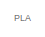
[diagram: Subsystem2/ACCOSM/HWA_Task100ms1 - part 1/20, top right region]
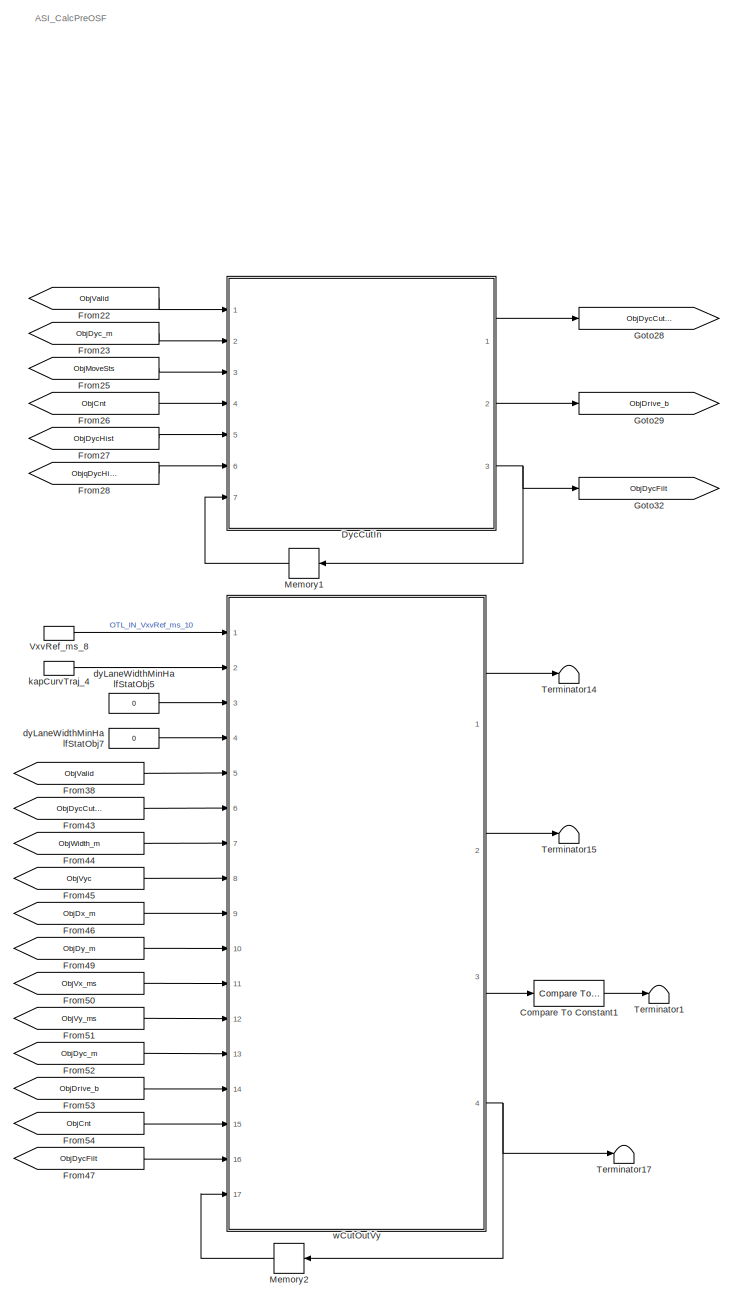
[diagram: Subsystem2/ACCOSM/HWA_Task100ms1 - part 2/20, top center region]
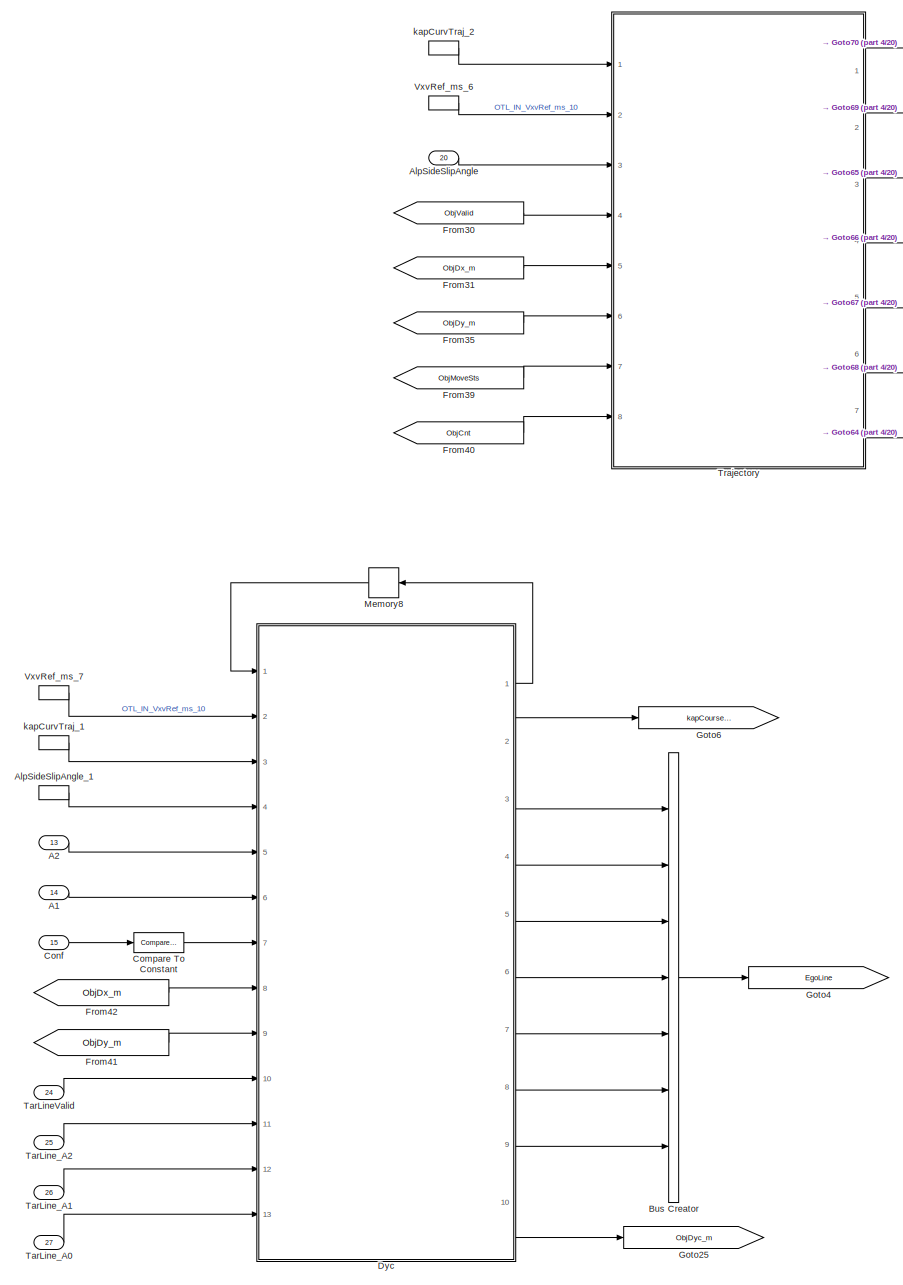
[diagram: Subsystem2/ACCOSM/HWA_Task100ms1 - part 3/20, top left region]
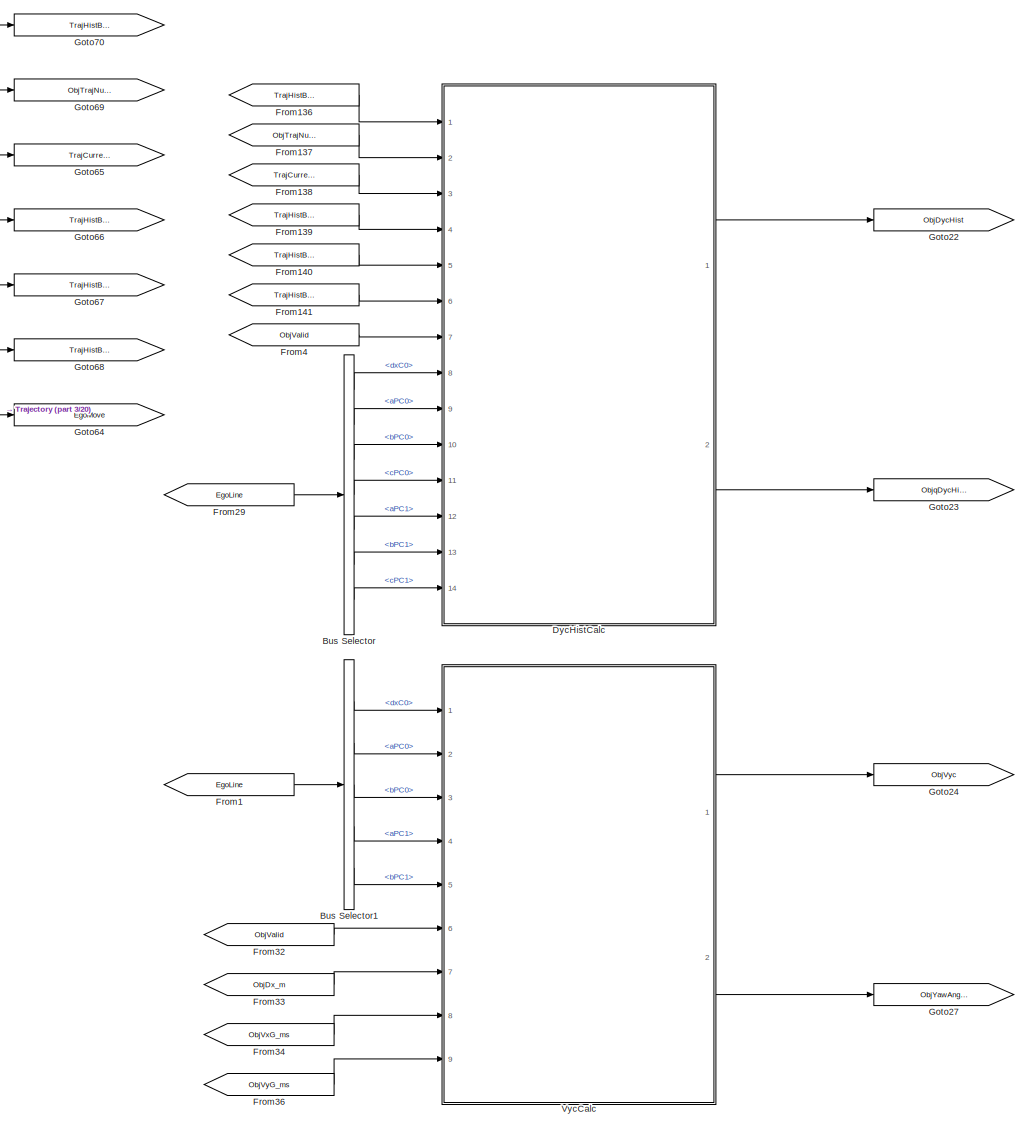
[diagram: Subsystem2/ACCOSM/HWA_Task100ms1 - part 4/20, top left region]
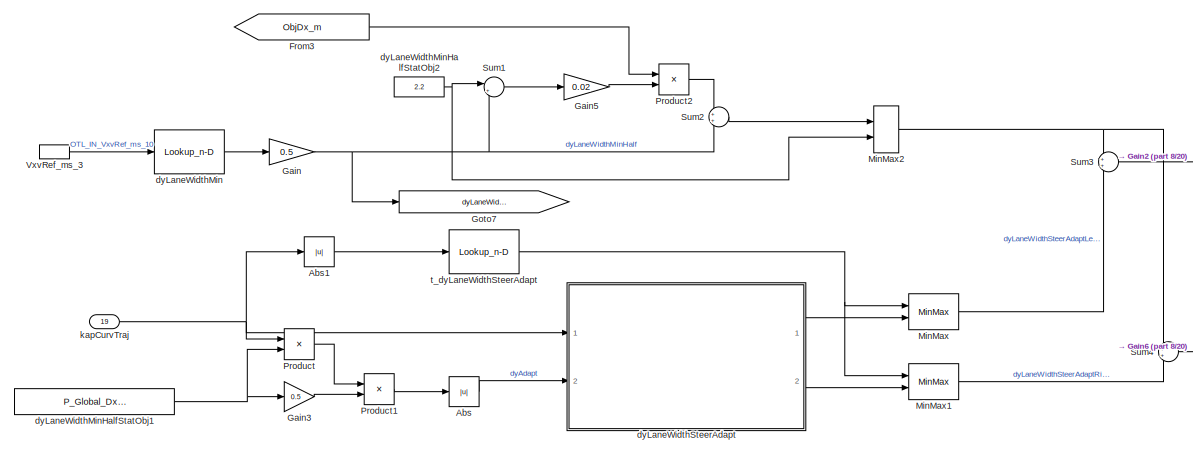
[diagram: Subsystem2/ACCOSM/HWA_Task100ms1 - part 5/20, top right region]
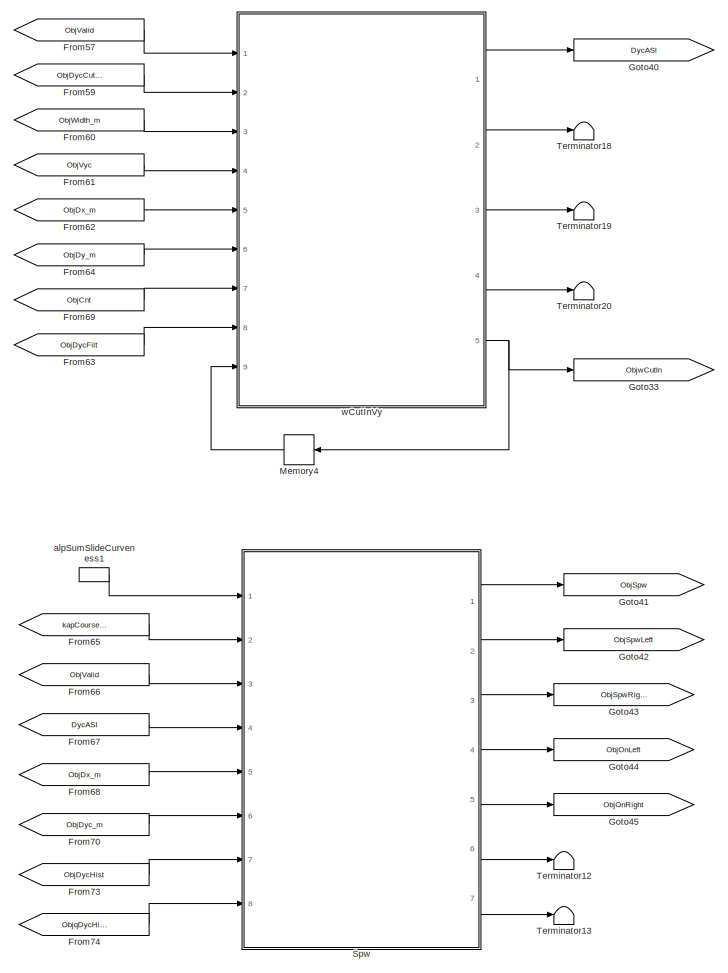
[diagram: Subsystem2/ACCOSM/HWA_Task100ms1 - part 6/20, top center region]
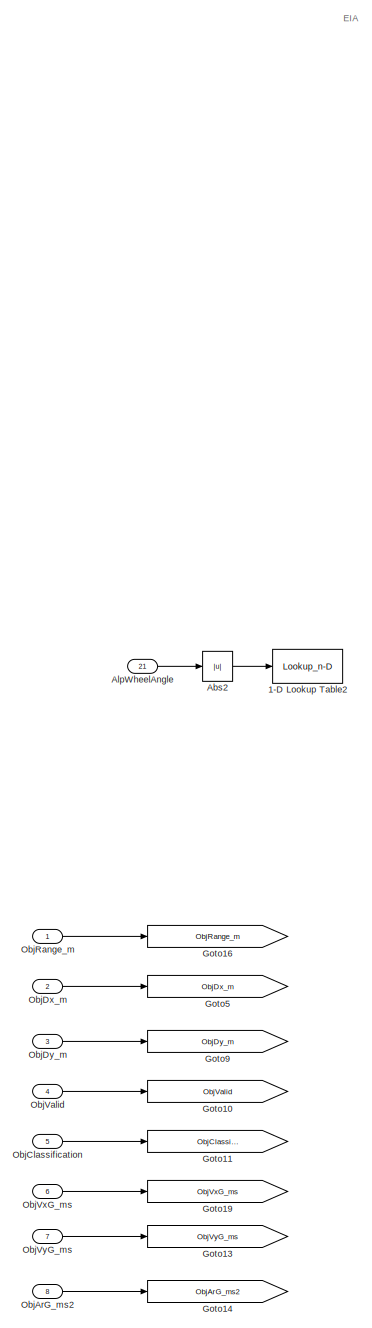
[diagram: Subsystem2/ACCOSM/HWA_Task100ms1 - part 7/20, top left region]
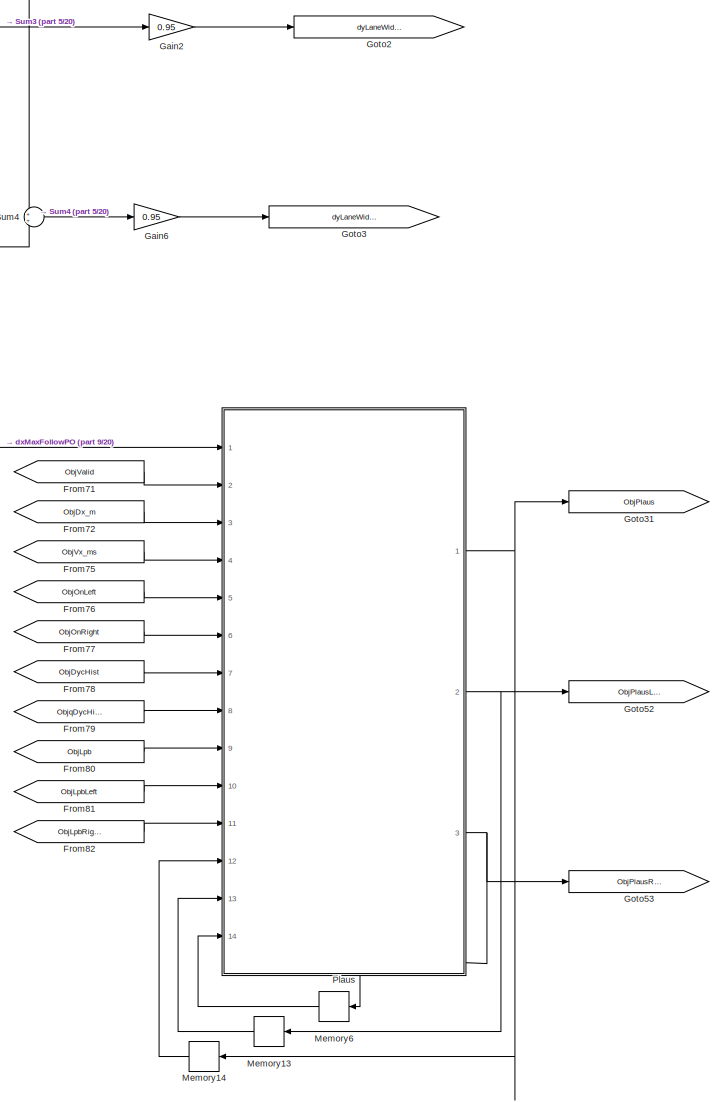
[diagram: Subsystem2/ACCOSM/HWA_Task100ms1 - part 8/20, top right region]
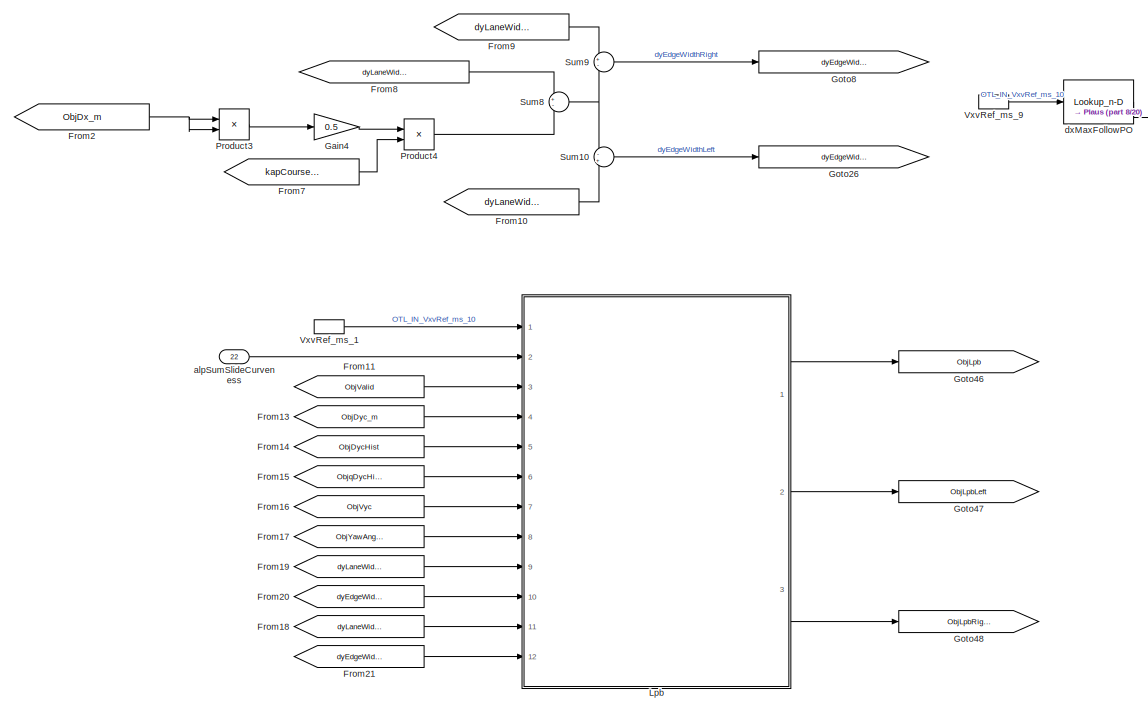
[diagram: Subsystem2/ACCOSM/HWA_Task100ms1 - part 9/20, top right region]
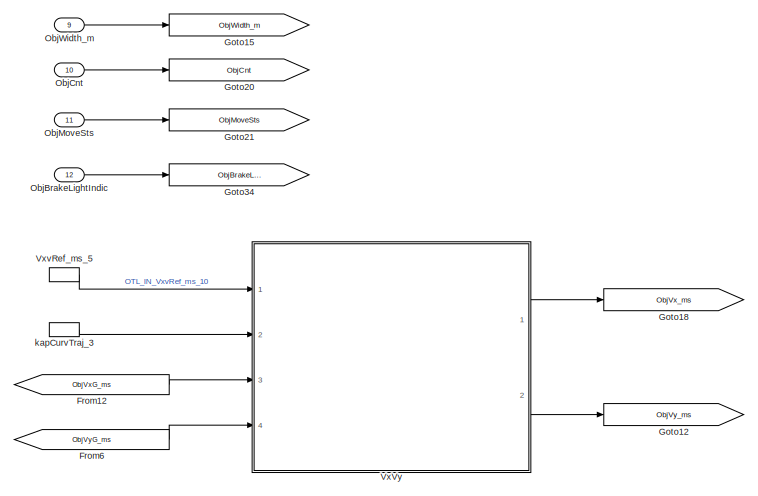
[diagram: Subsystem2/ACCOSM/HWA_Task100ms1 - part 10/20, middle left region]
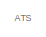
[diagram: Subsystem2/ACCOSM/HWA_Task100ms1 - part 11/20, middle left region]
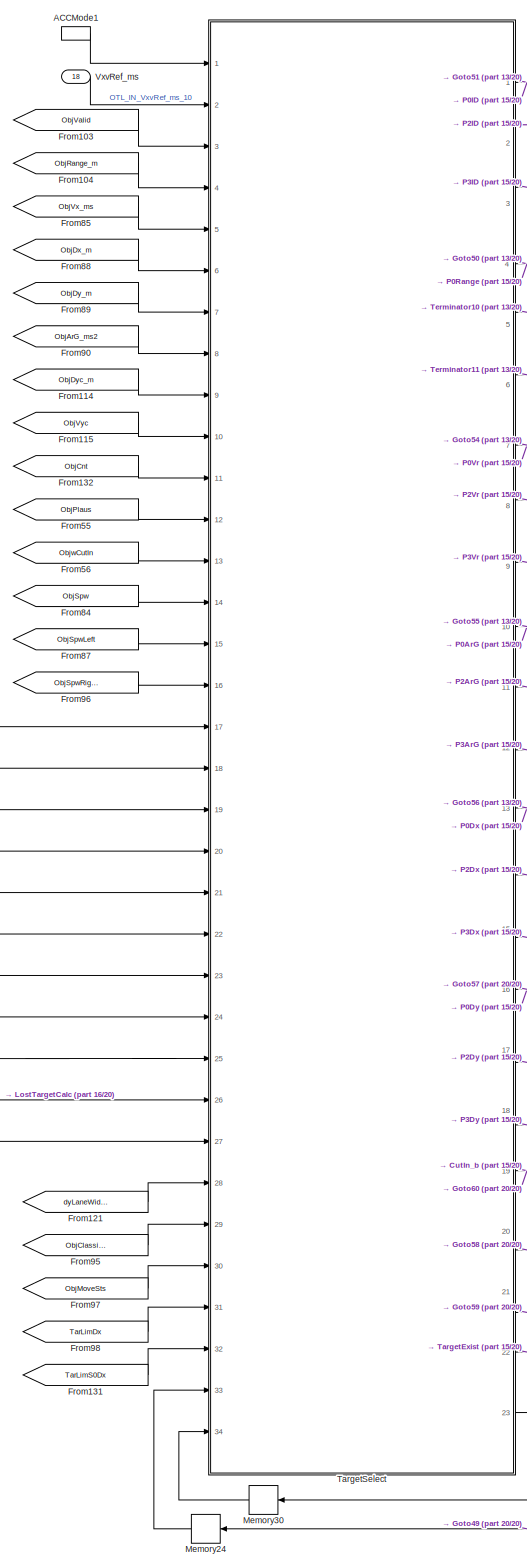
[diagram: Subsystem2/ACCOSM/HWA_Task100ms1 - part 12/20, bottom center region]
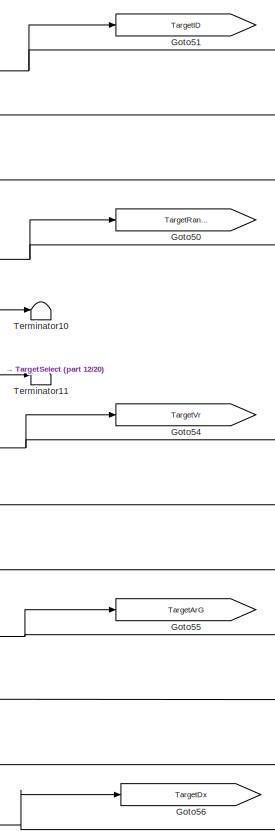
[diagram: Subsystem2/ACCOSM/HWA_Task100ms1 - part 13/20, bottom center region]
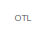
[diagram: Subsystem2/ACCOSM/HWA_Task100ms1 - part 14/20, middle right region]
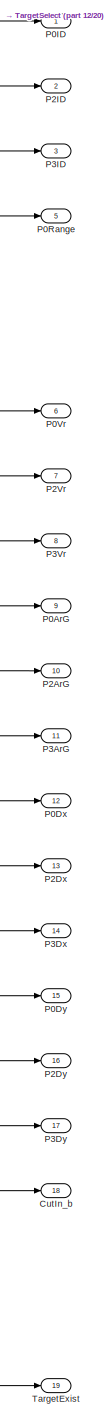
[diagram: Subsystem2/ACCOSM/HWA_Task100ms1 - part 15/20, bottom center region]
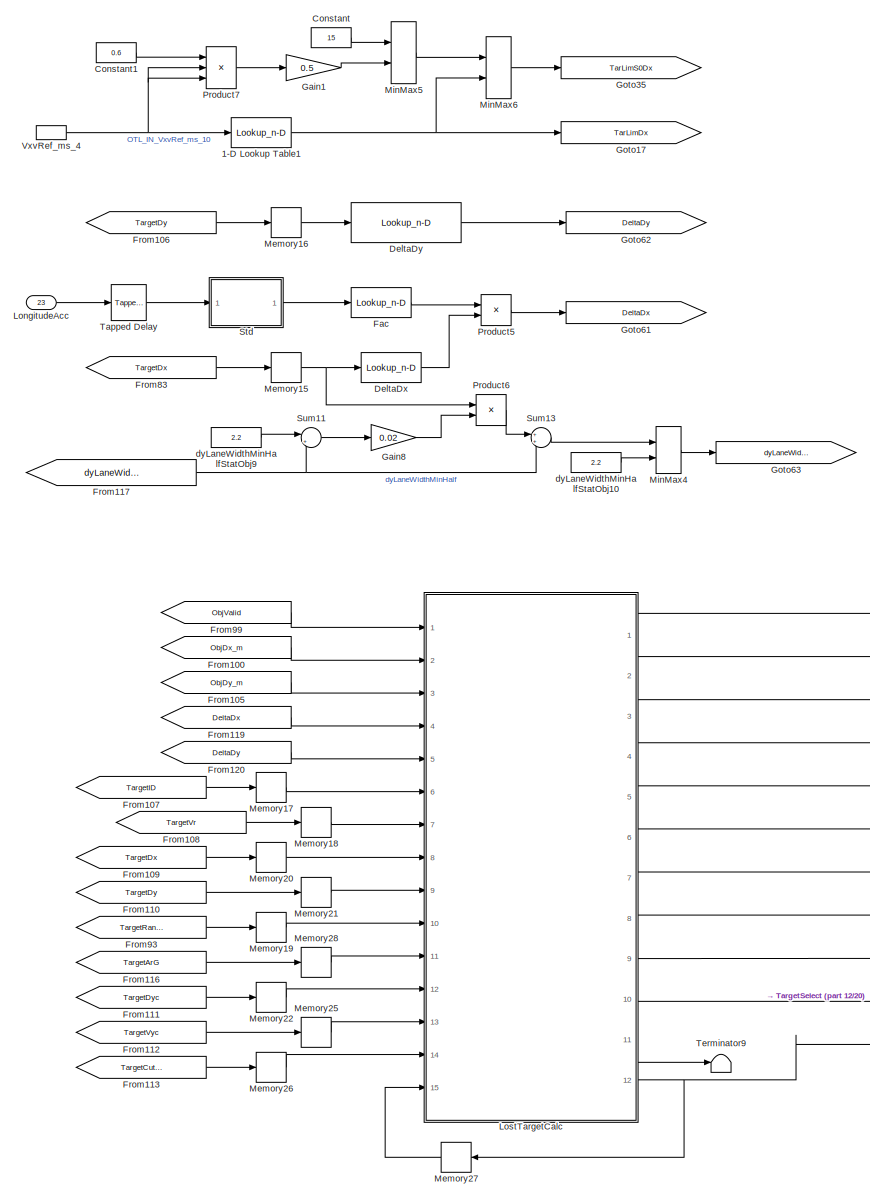
[diagram: Subsystem2/ACCOSM/HWA_Task100ms1 - part 16/20, bottom left region]
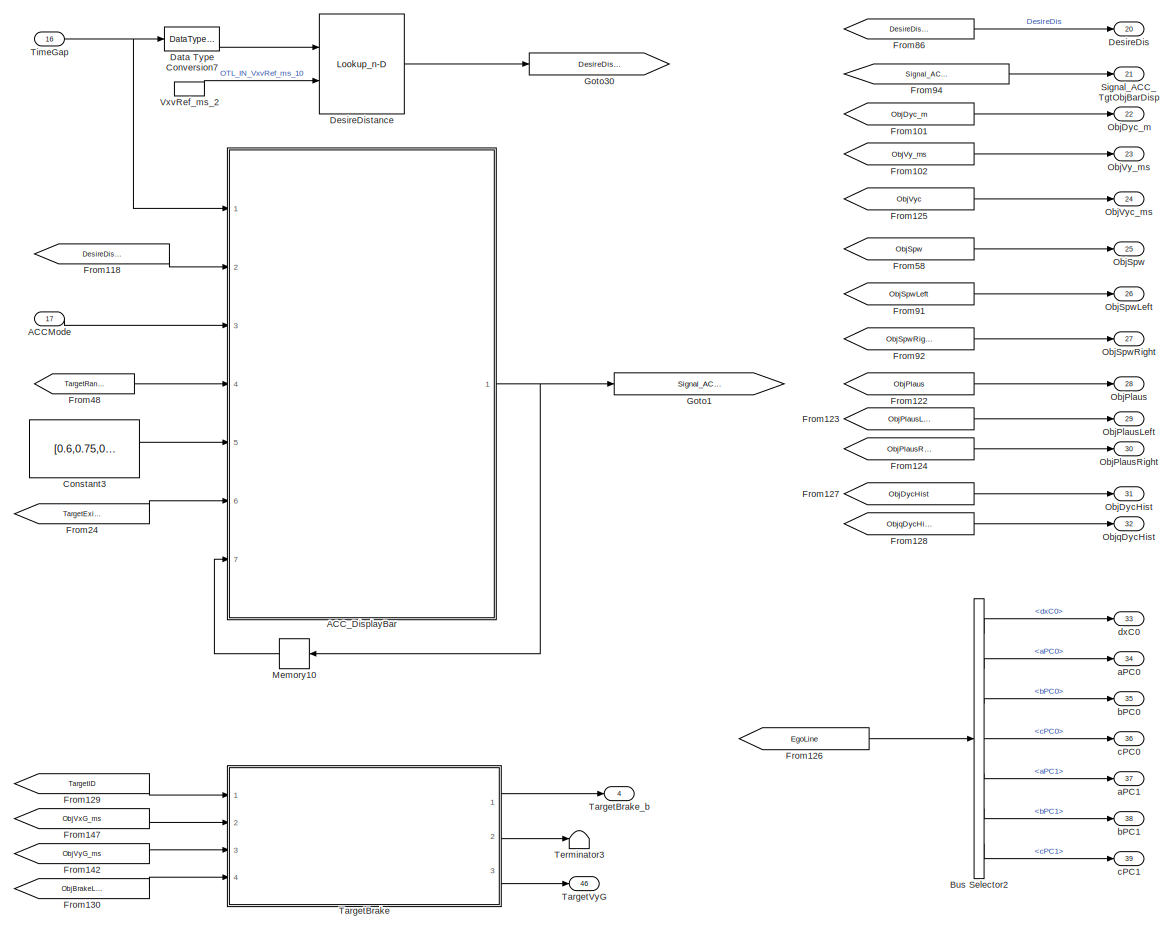
[diagram: Subsystem2/ACCOSM/HWA_Task100ms1 - part 17/20, bottom center region]
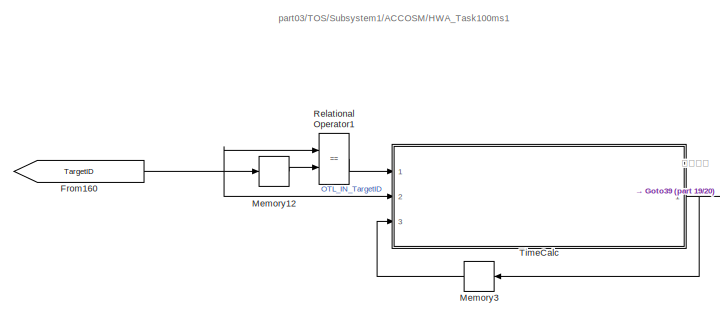
[diagram: Subsystem2/ACCOSM/HWA_Task100ms1 - part 18/20, bottom right region]
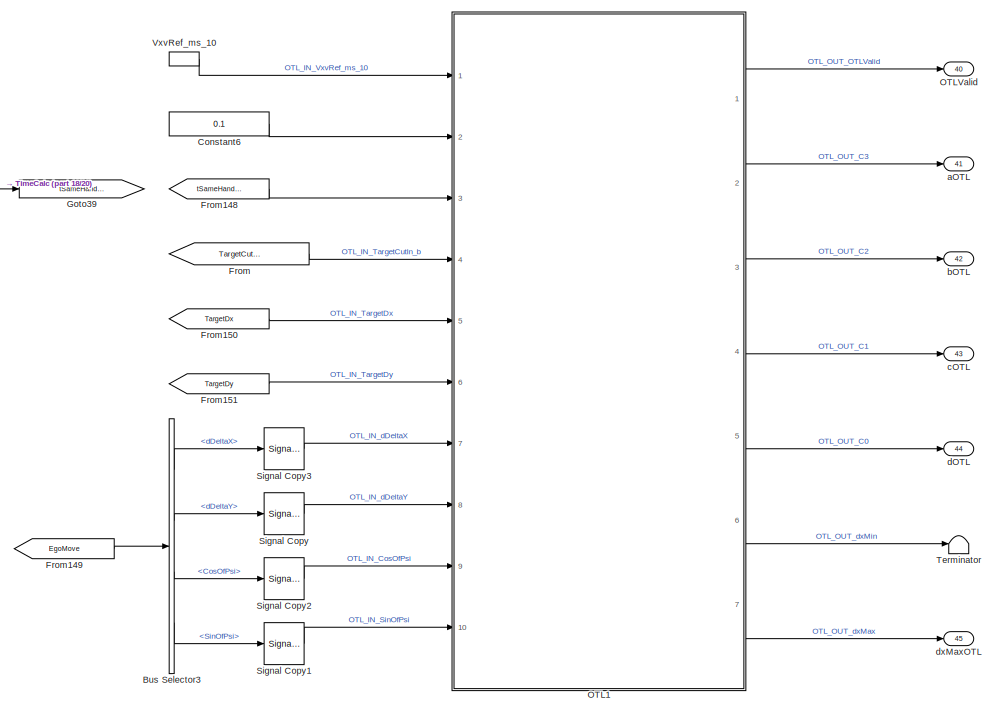
[diagram: Subsystem2/ACCOSM/HWA_Task100ms1 - part 19/20, bottom right region]
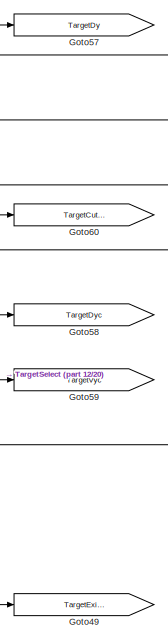
[diagram: Subsystem2/ACCOSM/HWA_Task100ms1 - part 20/20, bottom center region]
BLOCK [SubSystem] Subsystem2/ACCOSM/HWA_Task100ms1
  Ports = [27, 46]
  RequestExecContextInheritance = off
BLOCK [Lookup_n-D] Subsystem2/ACCOSM/HWA_Task100ms1/1-D Lookup Table1
  BreakpointsForDimension1 = [0,8,23,55,60]
  InputPortMap = u0
  NumberOfTableDimensions = 1
  Ports = [1, 1]
  RndMeth = Simplest
  Table = [80,80,120,200,200]
BLOCK [Lookup_n-D] Subsystem2/ACCOSM/HWA_Task100ms1/1-D Lookup Table2
  BreakpointsForDimension1 = [0,0.035,0.057,0.1]
  InputPortMap = u0
  NumberOfTableDimensions = 1
  Ports = [1, 1]
  RndMeth = Simplest
  Table = [1,1,0,0]
BLOCK [Inport] Subsystem2/ACCOSM/HWA_Task100ms1/A1
  Port = 14
BLOCK [Inport] Subsystem2/ACCOSM/HWA_Task100ms1/A2
  Port = 13
BLOCK [Inport] Subsystem2/ACCOSM/HWA_Task100ms1/ACCMode
  Port = 17
BLOCK [InportShadow] Subsystem2/ACCOSM/HWA_Task100ms1/ACCMode1
  Port = 17
BLOCK [SubSystem] Subsystem2/ACCOSM/HWA_Task100ms1/ACC_DisplayBar
  ErrorFcn = Stateflow.Translate.translate
  PermitHierarchicalResolution = ExplicitOnly
  Ports = [7, 1]
  RequestExecContextInheritance = off
  SFBlockType = MATLAB Function
  TreatAsAtomicUnit = on
BLOCK [Demux] Subsystem2/ACCOSM/HWA_Task100ms1/ACC_DisplayBar/ Demux 
  Outputs = 1
  Ports = [1, 1]
BLOCK [S-Function] Subsystem2/ACCOSM/HWA_Task100ms1/ACC_DisplayBar/ SFunction 
  EnableBusSupport = on
  FunctionName = sf_sfun
  PortCounts = [7 2]
  Ports = [7, 2]
  SFcnIsStateOwnerBlock = off
  SFunctionDeploymentMode = off
  Tag = Stateflow S-Function 148
BLOCK [Terminator] Subsystem2/ACCOSM/HWA_Task100ms1/ACC_DisplayBar/ Terminator 
BLOCK [Inport] Subsystem2/ACCOSM/HWA_Task100ms1/ACC_DisplayBar/ACCmode
  Port = 3
BLOCK [Inport] Subsystem2/ACCOSM/HWA_Task100ms1/ACC_DisplayBar/DesireDistance
  Port = 2
BLOCK [Outport] Subsystem2/ACCOSM/HWA_Task100ms1/ACC_DisplayBar/DisplayBar
BLOCK [Inport] Subsystem2/ACCOSM/HWA_Task100ms1/ACC_DisplayBar/DisplayBarK1
  Port = 7
BLOCK [Inport] Subsystem2/ACCOSM/HWA_Task100ms1/ACC_DisplayBar/Scale
  Port = 5
BLOCK [Inport] Subsystem2/ACCOSM/HWA_Task100ms1/ACC_DisplayBar/TargetExist
  Port = 6
BLOCK [Inport] Subsystem2/ACCOSM/HWA_Task100ms1/ACC_DisplayBar/TargetRange
  Port = 4
BLOCK [Inport] Subsystem2/ACCOSM/HWA_Task100ms1/ACC_DisplayBar/TimeGap
BLOCK [Abs] Subsystem2/ACCOSM/HWA_Task100ms1/Abs
  SaturateOnIntegerOverflow = off
BLOCK [Abs] Subsystem2/ACCOSM/HWA_Task100ms1/Abs1
  SaturateOnIntegerOverflow = off
BLOCK [Abs] Subsystem2/ACCOSM/HWA_Task100ms1/Abs2
  SaturateOnIntegerOverflow = off
BLOCK [Inport] Subsystem2/ACCOSM/HWA_Task100ms1/AlpSideSlipAngle
  Port = 20
BLOCK [InportShadow] Subsystem2/ACCOSM/HWA_Task100ms1/AlpSideSlipAngle_1
  Port = 20
BLOCK [Inport] Subsystem2/ACCOSM/HWA_Task100ms1/AlpWheelAngle
  Port = 21
BLOCK [BusCreator] Subsystem2/ACCOSM/HWA_Task100ms1/Bus Creator
  DisplayOption = bar
  InheritFromInputs = on
  Inputs = 7
  Ports = [7, 1]
BLOCK [BusSelector] Subsystem2/ACCOSM/HWA_Task100ms1/Bus Selector
  OutputSignals = dxC0,aPC0,bPC0,cPC0,aPC1,bPC1,cPC1
  Ports = [1, 7]
BLOCK [BusSelector] Subsystem2/ACCOSM/HWA_Task100ms1/Bus Selector1
  OutputSignals = dxC0,aPC0,bPC0,aPC1,bPC1
  Ports = [1, 5]
BLOCK [BusSelector] Subsystem2/ACCOSM/HWA_Task100ms1/Bus Selector2
  OutputSignals = dxC0,aPC0,bPC0,cPC0,aPC1,bPC1,cPC1
  Ports = [1, 7]
BLOCK [BusSelector] Subsystem2/ACCOSM/HWA_Task100ms1/Bus Selector3
  OutputSignals = dDeltaX,dDeltaY,CosOfPsi,SinOfPsi
  Ports = [1, 4]
BLOCK [Reference] Subsystem2/ACCOSM/HWA_Task100ms1/Compare To Constant  REF=simulink/Logic and Bit
Operations/Compare
To Constant
  Ports = [1, 1]
  SourceBlock = simulink/Logic and Bit\nOperations/Compare\nTo Constant
  SourceProductBaseCode = SL
  SourceType = Compare To Constant
BLOCK [Reference] Subsystem2/ACCOSM/HWA_Task100ms1/Compare To Constant1  REF=simulink/Logic and Bit
Operations/Compare
To Constant
  Ports = [1, 1]
  SourceBlock = simulink/Logic and Bit\nOperations/Compare\nTo Constant
  SourceProductBaseCode = SL
  SourceType = Compare To Constant
BLOCK [Inport] Subsystem2/ACCOSM/HWA_Task100ms1/Conf
  Port = 15
BLOCK [Constant] Subsystem2/ACCOSM/HWA_Task100ms1/Constant
  OutDataTypeStr = single
  Value = 15
BLOCK [Constant] Subsystem2/ACCOSM/HWA_Task100ms1/Constant1
  OutDataTypeStr = single
  Value = 0.6
BLOCK [Constant] Subsystem2/ACCOSM/HWA_Task100ms1/Constant3
  OutDataTypeStr = single
  Value = [0.6,0.75,0.9;0.58,0.68,0.77;0.41,0.55,0.63;0.38,0.44,0.49]
BLOCK [Constant] Subsystem2/ACCOSM/HWA_Task100ms1/Constant6
  OutDataTypeStr = single
  Value = 0.1
BLOCK [Outport] Subsystem2/ACCOSM/HWA_Task100ms1/CutIn_b
  Port = 18
BLOCK [DataTypeConversion] Subsystem2/ACCOSM/HWA_Task100ms1/Data Type Conversion7
  OutDataTypeStr = single
  RndMeth = Floor
  SaturateOnIntegerOverflow = off
BLOCK [Lookup_n-D] Subsystem2/ACCOSM/HWA_Task100ms1/DeltaDx
  BreakpointsForDimension1 = [0,30,60,100,120,130]
  InputPortMap = u0
  NumberOfTableDimensions = 1
  Ports = [1, 1]
  RndMeth = Simplest
  Table = [2,4,6,8,9,9]
BLOCK [Lookup_n-D] Subsystem2/ACCOSM/HWA_Task100ms1/DeltaDy
  BreakpointsForDimension1 = [0,30,60,100,120,130]
  InputPortMap = u0
  NumberOfTableDimensions = 1
  Ports = [1, 1]
  RndMeth = Simplest
  Table = [0.5,0.5,1,1.2,1.5,1.5]
BLOCK [Outport] Subsystem2/ACCOSM/HWA_Task100ms1/DesireDis
  Port = 20
BLOCK [Lookup_n-D] Subsystem2/ACCOSM/HWA_Task100ms1/DesireDistance
  BreakpointsForDimension1 = [1,2,3,4]
  BreakpointsForDimension1DataTypeStr = single
  BreakpointsForDimension2 = [0,2.6,17,25,35,60]
  BreakpointsForDimension2DataTypeStr = single
  InputPortMap = u0,u1
  InputSameDT = off
  Ports = [2, 1]
  RndMeth = Simplest
  Table = reshape([4,4.3,4.6,4.9,7.8,8.5,9,9.5,18,23,28,34,27,37,47,54,35,49,63,71,60,70,80,85],4,6)
  TableDataTypeStr = single
BLOCK [SubSystem] Subsystem2/ACCOSM/HWA_Task100ms1/Dyc
  ErrorFcn = Stateflow.Translate.translate
  PermitHierarchicalResolution = ExplicitOnly
  Ports = [13, 10]
  RequestExecContextInheritance = off
  SFBlockType = MATLAB Function
  TreatAsAtomicUnit = on
BLOCK [Demux] Subsystem2/ACCOSM/HWA_Task100ms1/Dyc/ Demux 
  Outputs = 1
  Ports = [1, 1]
BLOCK [S-Function] Subsystem2/ACCOSM/HWA_Task100ms1/Dyc/ SFunction 
  EnableBusSupport = on
  FunctionName = sf_sfun
  PortCounts = [13 11]
  Ports = [13, 11]
  SFcnIsStateOwnerBlock = off
  SFunctionDeploymentMode = off
  Tag = Stateflow S-Function 149
BLOCK [Terminator] Subsystem2/ACCOSM/HWA_Task100ms1/Dyc/ Terminator 
BLOCK [Inport] Subsystem2/ACCOSM/HWA_Task100ms1/Dyc/A1
  Port = 6
BLOCK [Inport] Subsystem2/ACCOSM/HWA_Task100ms1/Dyc/A2
  Port = 5
BLOCK [Inport] Subsystem2/ACCOSM/HWA_Task100ms1/Dyc/LineValid
  Port = 7
BLOCK [Inport] Subsystem2/ACCOSM/HWA_Task100ms1/Dyc/ObjDx
  Port = 8
BLOCK [Inport] Subsystem2/ACCOSM/HWA_Task100ms1/Dyc/ObjDy
  Port = 9
BLOCK [Outport] Subsystem2/ACCOSM/HWA_Task100ms1/Dyc/ObjDyc
  Port = 10
BLOCK [Inport] Subsystem2/ACCOSM/HWA_Task100ms1/Dyc/TarLineA0
  Port = 13
BLOCK [Inport] Subsystem2/ACCOSM/HWA_Task100ms1/Dyc/TarLineA1
  Port = 12
BLOCK [Inport] Subsystem2/ACCOSM/HWA_Task100ms1/Dyc/TarLineA2
  Port = 11
BLOCK [Inport] Subsystem2/ACCOSM/HWA_Task100ms1/Dyc/TarLineValid
  Port = 10
BLOCK [Outport] Subsystem2/ACCOSM/HWA_Task100ms1/Dyc/aPC0
  Port = 4
BLOCK [Outport] Subsystem2/ACCOSM/HWA_Task100ms1/Dyc/aPC1
  Port = 7
BLOCK [Inport] Subsystem2/ACCOSM/HWA_Task100ms1/Dyc/alpSideSlipAngle
  Port = 4
BLOCK [Outport] Subsystem2/ACCOSM/HWA_Task100ms1/Dyc/bPC0
  Port = 5
BLOCK [Outport] Subsystem2/ACCOSM/HWA_Task100ms1/Dyc/bPC1
  Port = 8
BLOCK [Outport] Subsystem2/ACCOSM/HWA_Task100ms1/Dyc/cPC0
  Port = 6
BLOCK [Outport] Subsystem2/ACCOSM/HWA_Task100ms1/Dyc/cPC1
  Port = 9
BLOCK [Outport] Subsystem2/ACCOSM/HWA_Task100ms1/Dyc/dxC0
  Port = 3
BLOCK [Outport] Subsystem2/ACCOSM/HWA_Task100ms1/Dyc/kapCourseErr
  Port = 2
BLOCK [Inport] Subsystem2/ACCOSM/HWA_Task100ms1/Dyc/kapTraj
  Port = 3
BLOCK [Outport] Subsystem2/ACCOSM/HWA_Task100ms1/Dyc/kapTrajFilt
BLOCK [Inport] Subsystem2/ACCOSM/HWA_Task100ms1/Dyc/kapTrajFiltK1
BLOCK [Inport] Subsystem2/ACCOSM/HWA_Task100ms1/Dyc/vRef
  Port = 2
BLOCK [SubSystem] Subsystem2/ACCOSM/HWA_Task100ms1/DycCutIn
  ErrorFcn = Stateflow.Translate.translate
  PermitHierarchicalResolution = ExplicitOnly
  Ports = [7, 3]
  RequestExecContextInheritance = off
  SFBlockType = MATLAB Function
  TreatAsAtomicUnit = on
BLOCK [Demux] Subsystem2/ACCOSM/HWA_Task100ms1/DycCutIn/ Demux 
  Outputs = 1
  Ports = [1, 1]
BLOCK [S-Function] Subsystem2/ACCOSM/HWA_Task100ms1/DycCutIn/ SFunction 
  EnableBusSupport = on
  FunctionName = sf_sfun
  PortCounts = [7 4]
  Ports = [7, 4]
  SFcnIsStateOwnerBlock = off
  SFunctionDeploymentMode = off
  Tag = Stateflow S-Function 150
BLOCK [Terminator] Subsystem2/ACCOSM/HWA_Task100ms1/DycCutIn/ Terminator 
BLOCK [Inport] Subsystem2/ACCOSM/HWA_Task100ms1/DycCutIn/ObjCnt
  Port = 4
BLOCK [Inport] Subsystem2/ACCOSM/HWA_Task100ms1/DycCutIn/ObjDyc
  Port = 2
BLOCK [Outport] Subsystem2/ACCOSM/HWA_Task100ms1/DycCutIn/ObjDycCutIn
BLOCK [Outport] Subsystem2/ACCOSM/HWA_Task100ms1/DycCutIn/ObjDycFilt
  Port = 3
BLOCK [Inport] Subsystem2/ACCOSM/HWA_Task100ms1/DycCutIn/ObjDycHist
  Port = 5
BLOCK [Inport] Subsystem2/ACCOSM/HWA_Task100ms1/DycCutIn/ObjMoveSts
  Port = 3
BLOCK [Outport] Subsystem2/ACCOSM/HWA_Task100ms1/DycCutIn/ObjMove_b
  Port = 2
BLOCK [Inport] Subsystem2/ACCOSM/HWA_Task100ms1/DycCutIn/ObjValid
BLOCK [Inport] Subsystem2/ACCOSM/HWA_Task100ms1/DycCutIn/ObjqDycHist
  Port = 6
BLOCK [Inport] Subsystem2/ACCOSM/HWA_Task100ms1/DycCutIn/dycFiltK1
  Port = 7
BLOCK [SubSystem] Subsystem2/ACCOSM/HWA_Task100ms1/DycHistCalc
  ErrorFcn = Stateflow.Translate.translate
  PermitHierarchicalResolution = ExplicitOnly
  Ports = [14, 2]
  RequestExecContextInheritance = off
  SFBlockType = MATLAB Function
  TreatAsAtomicUnit = on
BLOCK [Demux] Subsystem2/ACCOSM/HWA_Task100ms1/DycHistCalc/ Demux 
  Outputs = 1
  Ports = [1, 1]
BLOCK [S-Function] Subsystem2/ACCOSM/HWA_Task100ms1/DycHistCalc/ SFunction 
  EnableBusSupport = on
  FunctionName = sf_sfun
  PortCounts = [14 3]
  Ports = [14, 3]
  SFcnIsStateOwnerBlock = off
  SFunctionDeploymentMode = off
  Tag = Stateflow S-Function 151
BLOCK [Terminator] Subsystem2/ACCOSM/HWA_Task100ms1/DycHistCalc/ Terminator 
BLOCK [Outport] Subsystem2/ACCOSM/HWA_Task100ms1/DycHistCalc/ObjDycHist
BLOCK [Inport] Subsystem2/ACCOSM/HWA_Task100ms1/DycHistCalc/ObjTrajNumber
  Port = 2
BLOCK [Inport] Subsystem2/ACCOSM/HWA_Task100ms1/DycHistCalc/ObjValid
  Port = 7
BLOCK [Outport] Subsystem2/ACCOSM/HWA_Task100ms1/DycHistCalc/ObjqDycHist
  Port = 2
BLOCK [Inport] Subsystem2/ACCOSM/HWA_Task100ms1/DycHistCalc/TrajCurrentIndex
  Port = 3
BLOCK [Inport] Subsystem2/ACCOSM/HWA_Task100ms1/DycHistCalc/TrajHistBufferBTrajEnd
BLOCK [Inport] Subsystem2/ACCOSM/HWA_Task100ms1/DycHistCalc/TrajHistBufferBValid
  Port = 4
BLOCK [Inport] Subsystem2/ACCOSM/HWA_Task100ms1/DycHistCalc/TrajHistBufferDxv
  Port = 5
BLOCK [Inport] Subsystem2/ACCOSM/HWA_Task100ms1/DycHistCalc/TrajHistBufferDyv
  Port = 6
BLOCK [Inport] Subsystem2/ACCOSM/HWA_Task100ms1/DycHistCalc/aP0
  Port = 9
BLOCK [Inport] Subsystem2/ACCOSM/HWA_Task100ms1/DycHistCalc/aP1
  Port = 12
BLOCK [Inport] Subsystem2/ACCOSM/HWA_Task100ms1/DycHistCalc/bP0
  Port = 10
BLOCK [Inport] Subsystem2/ACCOSM/HWA_Task100ms1/DycHistCalc/bP1
  Port = 13
BLOCK [Inport] Subsystem2/ACCOSM/HWA_Task100ms1/DycHistCalc/cP0
  Port = 11
BLOCK [Inport] Subsystem2/ACCOSM/HWA_Task100ms1/DycHistCalc/cP1
  Port = 14
BLOCK [Inport] Subsystem2/ACCOSM/HWA_Task100ms1/DycHistCalc/dxC0
  Port = 8
BLOCK [Lookup_n-D] Subsystem2/ACCOSM/HWA_Task100ms1/Fac
  BreakpointsForDimension1 = [0,0.4,0.6,0.8]
  InputPortMap = u0
  NumberOfTableDimensions = 1
  Ports = [1, 1]
  RndMeth = Simplest
  Table = [1,1,1.5,1.5]
BLOCK [From] Subsystem2/ACCOSM/HWA_Task100ms1/From
  GotoTag = TargetCutIn_b
BLOCK [From] Subsystem2/ACCOSM/HWA_Task100ms1/From1
  GotoTag = EgoLine
BLOCK [From] Subsystem2/ACCOSM/HWA_Task100ms1/From10
  GotoTag = dyLaneWidthLeft
BLOCK [From] Subsystem2/ACCOSM/HWA_Task100ms1/From100
  GotoTag = ObjDx_m
BLOCK [From] Subsystem2/ACCOSM/HWA_Task100ms1/From101
  GotoTag = ObjDyc_m
BLOCK [From] Subsystem2/ACCOSM/HWA_Task100ms1/From102
  GotoTag = ObjVy_ms
BLOCK [From] Subsystem2/ACCOSM/HWA_Task100ms1/From103
  GotoTag = ObjValid
BLOCK [From] Subsystem2/ACCOSM/HWA_Task100ms1/From104
  GotoTag = ObjRange_m
BLOCK [From] Subsystem2/ACCOSM/HWA_Task100ms1/From105
  GotoTag = ObjDy_m
BLOCK [From] Subsystem2/ACCOSM/HWA_Task100ms1/From106
  GotoTag = TargetDy
BLOCK [From] Subsystem2/ACCOSM/HWA_Task100ms1/From107
  GotoTag = TargetID
BLOCK [From] Subsystem2/ACCOSM/HWA_Task100ms1/From108
  GotoTag = TargetVr
BLOCK [From] Subsystem2/ACCOSM/HWA_Task100ms1/From109
  GotoTag = TargetDx
BLOCK [From] Subsystem2/ACCOSM/HWA_Task100ms1/From11
  GotoTag = ObjValid
BLOCK [From] Subsystem2/ACCOSM/HWA_Task100ms1/From110
  GotoTag = TargetDy
BLOCK [From] Subsystem2/ACCOSM/HWA_Task100ms1/From111
  GotoTag = TargetDyc
BLOCK [From] Subsystem2/ACCOSM/HWA_Task100ms1/From112
  GotoTag = TargetVyc
BLOCK [From] Subsystem2/ACCOSM/HWA_Task100ms1/From113
  GotoTag = TargetCutIn_b
BLOCK [From] Subsystem2/ACCOSM/HWA_Task100ms1/From114
  GotoTag = ObjDyc_m
BLOCK [From] Subsystem2/ACCOSM/HWA_Task100ms1/From115
  GotoTag = ObjVyc
BLOCK [From] Subsystem2/ACCOSM/HWA_Task100ms1/From116
  GotoTag = TargetArG
BLOCK [From] Subsystem2/ACCOSM/HWA_Task100ms1/From117
  GotoTag = dyLaneWidthMinHalf
BLOCK [From] Subsystem2/ACCOSM/HWA_Task100ms1/From118
  GotoTag = DesireDistanceChar
BLOCK [From] Subsystem2/ACCOSM/HWA_Task100ms1/From119
  GotoTag = DeltaDx
BLOCK [From] Subsystem2/ACCOSM/HWA_Task100ms1/From12
  GotoTag = ObjVxG_ms
BLOCK [From] Subsystem2/ACCOSM/HWA_Task100ms1/From120
  GotoTag = DeltaDy
BLOCK [From] Subsystem2/ACCOSM/HWA_Task100ms1/From121
  GotoTag = dyLaneWidth
BLOCK [From] Subsystem2/ACCOSM/HWA_Task100ms1/From122
  GotoTag = ObjPlaus
BLOCK [From] Subsystem2/ACCOSM/HWA_Task100ms1/From123
  GotoTag = ObjPlausLeft
BLOCK [From] Subsystem2/ACCOSM/HWA_Task100ms1/From124
  GotoTag = ObjPlausRight
BLOCK [From] Subsystem2/ACCOSM/HWA_Task100ms1/From125
  GotoTag = ObjVyc
BLOCK [From] Subsystem2/ACCOSM/HWA_Task100ms1/From126
  GotoTag = EgoLine
BLOCK [From] Subsystem2/ACCOSM/HWA_Task100ms1/From127
  GotoTag = ObjDycHist
BLOCK [From] Subsystem2/ACCOSM/HWA_Task100ms1/From128
  GotoTag = ObjqDycHist
BLOCK [From] Subsystem2/ACCOSM/HWA_Task100ms1/From129
  GotoTag = TargetID
BLOCK [From] Subsystem2/ACCOSM/HWA_Task100ms1/From13
  GotoTag = ObjDyc_m
BLOCK [From] Subsystem2/ACCOSM/HWA_Task100ms1/From130
  GotoTag = ObjBrakeLightIndic
BLOCK [From] Subsystem2/ACCOSM/HWA_Task100ms1/From131
  GotoTag = TarLimS0Dx
BLOCK [From] Subsystem2/ACCOSM/HWA_Task100ms1/From132
  GotoTag = ObjCnt
BLOCK [From] Subsystem2/ACCOSM/HWA_Task100ms1/From136
  GotoTag = TrajHistBufferBTrajEnd
BLOCK [From] Subsystem2/ACCOSM/HWA_Task100ms1/From137
  GotoTag = ObjTrajNumber
BLOCK [From] Subsystem2/ACCOSM/HWA_Task100ms1/From138
  GotoTag = TrajCurrentIndex
BLOCK [From] Subsystem2/ACCOSM/HWA_Task100ms1/From139
  GotoTag = TrajHistBufferBValid
BLOCK [From] Subsystem2/ACCOSM/HWA_Task100ms1/From14
  GotoTag = ObjDycHist
BLOCK [From] Subsystem2/ACCOSM/HWA_Task100ms1/From140
  GotoTag = TrajHistBufferDxv
BLOCK [From] Subsystem2/ACCOSM/HWA_Task100ms1/From141
  GotoTag = TrajHistBufferDyv
BLOCK [From] Subsystem2/ACCOSM/HWA_Task100ms1/From142
  GotoTag = ObjVyG_ms
BLOCK [From] Subsystem2/ACCOSM/HWA_Task100ms1/From147
  GotoTag = ObjVxG_ms
BLOCK [From] Subsystem2/ACCOSM/HWA_Task100ms1/From148
  GotoTag = tSameHandleT1
BLOCK [From] Subsystem2/ACCOSM/HWA_Task100ms1/From149
  GotoTag = EgoMove
BLOCK [From] Subsystem2/ACCOSM/HWA_Task100ms1/From15
  GotoTag = ObjqDycHist
BLOCK [From] Subsystem2/ACCOSM/HWA_Task100ms1/From150
  GotoTag = TargetDx
BLOCK [From] Subsystem2/ACCOSM/HWA_Task100ms1/From151
  GotoTag = TargetDy
BLOCK [From] Subsystem2/ACCOSM/HWA_Task100ms1/From16
  GotoTag = ObjVyc
BLOCK [From] Subsystem2/ACCOSM/HWA_Task100ms1/From160
  GotoTag = TargetID
BLOCK [From] Subsystem2/ACCOSM/HWA_Task100ms1/From17
  GotoTag = ObjYawAngle
BLOCK [From] Subsystem2/ACCOSM/HWA_Task100ms1/From18
  GotoTag = dyLaneWidthLeft
BLOCK [From] Subsystem2/ACCOSM/HWA_Task100ms1/From19
  GotoTag = dyLaneWidthRight
BLOCK [From] Subsystem2/ACCOSM/HWA_Task100ms1/From2
  GotoTag = ObjDx_m
BLOCK [From] Subsystem2/ACCOSM/HWA_Task100ms1/From20
  GotoTag = dyEdgeWidthRight
BLOCK [From] Subsystem2/ACCOSM/HWA_Task100ms1/From21
  GotoTag = dyEdgeWidthLeft
BLOCK [From] Subsystem2/ACCOSM/HWA_Task100ms1/From22
  GotoTag = ObjValid
BLOCK [From] Subsystem2/ACCOSM/HWA_Task100ms1/From23
  GotoTag = ObjDyc_m
BLOCK [From] Subsystem2/ACCOSM/HWA_Task100ms1/From24
  GotoTag = TargetExist
BLOCK [From] Subsystem2/ACCOSM/HWA_Task100ms1/From25
  GotoTag = ObjMoveSts
BLOCK [From] Subsystem2/ACCOSM/HWA_Task100ms1/From26
  GotoTag = ObjCnt
BLOCK [From] Subsystem2/ACCOSM/HWA_Task100ms1/From27
  GotoTag = ObjDycHist
BLOCK [From] Subsystem2/ACCOSM/HWA_Task100ms1/From28
  GotoTag = ObjqDycHist
BLOCK [From] Subsystem2/ACCOSM/HWA_Task100ms1/From29
  GotoTag = EgoLine
BLOCK [From] Subsystem2/ACCOSM/HWA_Task100ms1/From3
  GotoTag = ObjDx_m
BLOCK [From] Subsystem2/ACCOSM/HWA_Task100ms1/From30
  GotoTag = ObjValid
BLOCK [From] Subsystem2/ACCOSM/HWA_Task100ms1/From31
  GotoTag = ObjDx_m
BLOCK [From] Subsystem2/ACCOSM/HWA_Task100ms1/From32
  GotoTag = ObjValid
BLOCK [From] Subsystem2/ACCOSM/HWA_Task100ms1/From33
  GotoTag = ObjDx_m
BLOCK [From] Subsystem2/ACCOSM/HWA_Task100ms1/From34
  GotoTag = ObjVxG_ms
BLOCK [From] Subsystem2/ACCOSM/HWA_Task100ms1/From35
  GotoTag = ObjDy_m
BLOCK [From] Subsystem2/ACCOSM/HWA_Task100ms1/From36
  GotoTag = ObjVyG_ms
BLOCK [From] Subsystem2/ACCOSM/HWA_Task100ms1/From38
  GotoTag = ObjValid
BLOCK [From] Subsystem2/ACCOSM/HWA_Task100ms1/From39
  GotoTag = ObjMoveSts
BLOCK [From] Subsystem2/ACCOSM/HWA_Task100ms1/From4
  GotoTag = ObjValid
BLOCK [From] Subsystem2/ACCOSM/HWA_Task100ms1/From40
  GotoTag = ObjCnt
BLOCK [From] Subsystem2/ACCOSM/HWA_Task100ms1/From41
  GotoTag = ObjDy_m
BLOCK [From] Subsystem2/ACCOSM/HWA_Task100ms1/From42
  GotoTag = ObjDx_m
BLOCK [From] Subsystem2/ACCOSM/HWA_Task100ms1/From43
  GotoTag = ObjDycCutIn
BLOCK [From] Subsystem2/ACCOSM/HWA_Task100ms1/From44
  GotoTag = ObjWidth_m
BLOCK [From] Subsystem2/ACCOSM/HWA_Task100ms1/From45
  GotoTag = ObjVyc
BLOCK [From] Subsystem2/ACCOSM/HWA_Task100ms1/From46
  GotoTag = ObjDx_m
BLOCK [From] Subsystem2/ACCOSM/HWA_Task100ms1/From47
  GotoTag = ObjDycFilt
BLOCK [From] Subsystem2/ACCOSM/HWA_Task100ms1/From48
  GotoTag = TargetRange
BLOCK [From] Subsystem2/ACCOSM/HWA_Task100ms1/From49
  GotoTag = ObjDy_m
BLOCK [From] Subsystem2/ACCOSM/HWA_Task100ms1/From50
  GotoTag = ObjVx_ms
BLOCK [From] Subsystem2/ACCOSM/HWA_Task100ms1/From51
  GotoTag = ObjVy_ms
BLOCK [From] Subsystem2/ACCOSM/HWA_Task100ms1/From52
  GotoTag = ObjDyc_m
BLOCK [From] Subsystem2/ACCOSM/HWA_Task100ms1/From53
  GotoTag = ObjDrive_b
BLOCK [From] Subsystem2/ACCOSM/HWA_Task100ms1/From54
  GotoTag = ObjCnt
BLOCK [From] Subsystem2/ACCOSM/HWA_Task100ms1/From55
  GotoTag = ObjPlaus
BLOCK [From] Subsystem2/ACCOSM/HWA_Task100ms1/From56
  GotoTag = ObjwCutIn
BLOCK [From] Subsystem2/ACCOSM/HWA_Task100ms1/From57
  GotoTag = ObjValid
BLOCK [From] Subsystem2/ACCOSM/HWA_Task100ms1/From58
  GotoTag = ObjSpw
BLOCK [From] Subsystem2/ACCOSM/HWA_Task100ms1/From59
  GotoTag = ObjDycCutIn
BLOCK [From] Subsystem2/ACCOSM/HWA_Task100ms1/From6
  GotoTag = ObjVyG_ms
BLOCK [From] Subsystem2/ACCOSM/HWA_Task100ms1/From60
  GotoTag = ObjWidth_m
BLOCK [From] Subsystem2/ACCOSM/HWA_Task100ms1/From61
  GotoTag = ObjVyc
BLOCK [From] Subsystem2/ACCOSM/HWA_Task100ms1/From62
  GotoTag = ObjDx_m
BLOCK [From] Subsystem2/ACCOSM/HWA_Task100ms1/From63
  GotoTag = ObjDycFilt
BLOCK [From] Subsystem2/ACCOSM/HWA_Task100ms1/From64
  GotoTag = ObjDy_m
BLOCK [From] Subsystem2/ACCOSM/HWA_Task100ms1/From65
  GotoTag = kapCourseErr
BLOCK [From] Subsystem2/ACCOSM/HWA_Task100ms1/From66
  GotoTag = ObjValid
BLOCK [From] Subsystem2/ACCOSM/HWA_Task100ms1/From67
  GotoTag = DycASI
BLOCK [From] Subsystem2/ACCOSM/HWA_Task100ms1/From68
  GotoTag = ObjDx_m
BLOCK [From] Subsystem2/ACCOSM/HWA_Task100ms1/From69
  GotoTag = ObjCnt
BLOCK [From] Subsystem2/ACCOSM/HWA_Task100ms1/From7
  GotoTag = kapCourseErr
BLOCK [From] Subsystem2/ACCOSM/HWA_Task100ms1/From70
  GotoTag = ObjDyc_m
BLOCK [From] Subsystem2/ACCOSM/HWA_Task100ms1/From71
  GotoTag = ObjValid
BLOCK [From] Subsystem2/ACCOSM/HWA_Task100ms1/From72
  GotoTag = ObjDx_m
BLOCK [From] Subsystem2/ACCOSM/HWA_Task100ms1/From73
  GotoTag = ObjDycHist
BLOCK [From] Subsystem2/ACCOSM/HWA_Task100ms1/From74
  GotoTag = ObjqDycHist
BLOCK [From] Subsystem2/ACCOSM/HWA_Task100ms1/From75
  GotoTag = ObjVx_ms
BLOCK [From] Subsystem2/ACCOSM/HWA_Task100ms1/From76
  GotoTag = ObjOnLeft
BLOCK [From] Subsystem2/ACCOSM/HWA_Task100ms1/From77
  GotoTag = ObjOnRight
BLOCK [From] Subsystem2/ACCOSM/HWA_Task100ms1/From78
  GotoTag = ObjDycHist
BLOCK [From] Subsystem2/ACCOSM/HWA_Task100ms1/From79
  GotoTag = ObjqDycHist
BLOCK [From] Subsystem2/ACCOSM/HWA_Task100ms1/From8
  GotoTag = dyLaneWidthMinHalf
BLOCK [From] Subsystem2/ACCOSM/HWA_Task100ms1/From80
  GotoTag = ObjLpb
BLOCK [From] Subsystem2/ACCOSM/HWA_Task100ms1/From81
  GotoTag = ObjLpbLeft
BLOCK [From] Subsystem2/ACCOSM/HWA_Task100ms1/From82
  GotoTag = ObjLpbRight
BLOCK [From] Subsystem2/ACCOSM/HWA_Task100ms1/From83
  GotoTag = TargetDx
BLOCK [From] Subsystem2/ACCOSM/HWA_Task100ms1/From84
  GotoTag = ObjSpw
BLOCK [From] Subsystem2/ACCOSM/HWA_Task100ms1/From85
  GotoTag = ObjVx_ms
BLOCK [From] Subsystem2/ACCOSM/HWA_Task100ms1/From86
  GotoTag = DesireDistanceChar
BLOCK [From] Subsystem2/ACCOSM/HWA_Task100ms1/From87
  GotoTag = ObjSpwLeft
BLOCK [From] Subsystem2/ACCOSM/HWA_Task100ms1/From88
  GotoTag = ObjDx_m
BLOCK [From] Subsystem2/ACCOSM/HWA_Task100ms1/From89
  GotoTag = ObjDy_m
BLOCK [From] Subsystem2/ACCOSM/HWA_Task100ms1/From9
  GotoTag = dyLaneWidthRight
BLOCK [From] Subsystem2/ACCOSM/HWA_Task100ms1/From90
  GotoTag = ObjArG_ms2
BLOCK [From] Subsystem2/ACCOSM/HWA_Task100ms1/From91
  GotoTag = ObjSpwLeft
BLOCK [From] Subsystem2/ACCOSM/HWA_Task100ms1/From92
  GotoTag = ObjSpwRight
BLOCK [From] Subsystem2/ACCOSM/HWA_Task100ms1/From93
  GotoTag = TargetRange
BLOCK [From] Subsystem2/ACCOSM/HWA_Task100ms1/From94
  GotoTag = Signal_ACC_TgtObjBarDisp
BLOCK [From] Subsystem2/ACCOSM/HWA_Task100ms1/From95
  GotoTag = ObjClassification
BLOCK [From] Subsystem2/ACCOSM/HWA_Task100ms1/From96
  GotoTag = ObjSpwRight
BLOCK [From] Subsystem2/ACCOSM/HWA_Task100ms1/From97
  GotoTag = ObjMoveSts
BLOCK [From] Subsystem2/ACCOSM/HWA_Task100ms1/From98
  GotoTag = TarLimDx
BLOCK [From] Subsystem2/ACCOSM/HWA_Task100ms1/From99
  GotoTag = ObjValid
BLOCK [Gain] Subsystem2/ACCOSM/HWA_Task100ms1/Gain
  Gain = 0.5
BLOCK [Gain] Subsystem2/ACCOSM/HWA_Task100ms1/Gain1
  Gain = 0.5
BLOCK [Gain] Subsystem2/ACCOSM/HWA_Task100ms1/Gain2
  Gain = 0.95
BLOCK [Gain] Subsystem2/ACCOSM/HWA_Task100ms1/Gain3
  Gain = 0.5
BLOCK [Gain] Subsystem2/ACCOSM/HWA_Task100ms1/Gain4
  Gain = 0.5
BLOCK [Gain] Subsystem2/ACCOSM/HWA_Task100ms1/Gain5
  Gain = 0.02
BLOCK [Gain] Subsystem2/ACCOSM/HWA_Task100ms1/Gain6
  Gain = 0.95
BLOCK [Gain] Subsystem2/ACCOSM/HWA_Task100ms1/Gain8
  Gain = 0.02
BLOCK [Goto] Subsystem2/ACCOSM/HWA_Task100ms1/Goto1
  GotoTag = Signal_ACC_TgtObjBarDisp
BLOCK [Goto] Subsystem2/ACCOSM/HWA_Task100ms1/Goto10
  GotoTag = ObjValid
BLOCK [Goto] Subsystem2/ACCOSM/HWA_Task100ms1/Goto11
  GotoTag = ObjClassification
BLOCK [Goto] Subsystem2/ACCOSM/HWA_Task100ms1/Goto12
  GotoTag = ObjVy_ms
BLOCK [Goto] Subsystem2/ACCOSM/HWA_Task100ms1/Goto13
  GotoTag = ObjVyG_ms
BLOCK [Goto] Subsystem2/ACCOSM/HWA_Task100ms1/Goto14
  GotoTag = ObjArG_ms2
BLOCK [Goto] Subsystem2/ACCOSM/HWA_Task100ms1/Goto15
  GotoTag = ObjWidth_m
BLOCK [Goto] Subsystem2/ACCOSM/HWA_Task100ms1/Goto16
  GotoTag = ObjRange_m
BLOCK [Goto] Subsystem2/ACCOSM/HWA_Task100ms1/Goto17
  GotoTag = TarLimDx
BLOCK [Goto] Subsystem2/ACCOSM/HWA_Task100ms1/Goto18
  GotoTag = ObjVx_ms
BLOCK [Goto] Subsystem2/ACCOSM/HWA_Task100ms1/Goto19
  GotoTag = ObjVxG_ms
BLOCK [Goto] Subsystem2/ACCOSM/HWA_Task100ms1/Goto2
  GotoTag = dyLaneWidthLeft
BLOCK [Goto] Subsystem2/ACCOSM/HWA_Task100ms1/Goto20
  GotoTag = ObjCnt
BLOCK [Goto] Subsystem2/ACCOSM/HWA_Task100ms1/Goto21
  GotoTag = ObjMoveSts
BLOCK [Goto] Subsystem2/ACCOSM/HWA_Task100ms1/Goto22
  GotoTag = ObjDycHist
BLOCK [Goto] Subsystem2/ACCOSM/HWA_Task100ms1/Goto23
  GotoTag = ObjqDycHist
BLOCK [Goto] Subsystem2/ACCOSM/HWA_Task100ms1/Goto24
  GotoTag = ObjVyc
BLOCK [Goto] Subsystem2/ACCOSM/HWA_Task100ms1/Goto25
  GotoTag = ObjDyc_m
BLOCK [Goto] Subsystem2/ACCOSM/HWA_Task100ms1/Goto26
  GotoTag = dyEdgeWidthLeft
BLOCK [Goto] Subsystem2/ACCOSM/HWA_Task100ms1/Goto27
  GotoTag = ObjYawAngle
BLOCK [Goto] Subsystem2/ACCOSM/HWA_Task100ms1/Goto28
  GotoTag = ObjDycCutIn
BLOCK [Goto] Subsystem2/ACCOSM/HWA_Task100ms1/Goto29
  GotoTag = ObjDrive_b
BLOCK [Goto] Subsystem2/ACCOSM/HWA_Task100ms1/Goto3
  GotoTag = dyLaneWidthRight
BLOCK [Goto] Subsystem2/ACCOSM/HWA_Task100ms1/Goto30
  GotoTag = DesireDistanceChar
BLOCK [Goto] Subsystem2/ACCOSM/HWA_Task100ms1/Goto31
  GotoTag = ObjPlaus
BLOCK [Goto] Subsystem2/ACCOSM/HWA_Task100ms1/Goto32
  GotoTag = ObjDycFilt
BLOCK [Goto] Subsystem2/ACCOSM/HWA_Task100ms1/Goto33
  GotoTag = ObjwCutIn
BLOCK [Goto] Subsystem2/ACCOSM/HWA_Task100ms1/Goto34
  GotoTag = ObjBrakeLightIndic
BLOCK [Goto] Subsystem2/ACCOSM/HWA_Task100ms1/Goto35
  GotoTag = TarLimS0Dx
BLOCK [Goto] Subsystem2/ACCOSM/HWA_Task100ms1/Goto39
  GotoTag = tSameHandleT1
BLOCK [Goto] Subsystem2/ACCOSM/HWA_Task100ms1/Goto4
  GotoTag = EgoLine
BLOCK [Goto] Subsystem2/ACCOSM/HWA_Task100ms1/Goto40
  GotoTag = DycASI
BLOCK [Goto] Subsystem2/ACCOSM/HWA_Task100ms1/Goto41
  GotoTag = ObjSpw
BLOCK [Goto] Subsystem2/ACCOSM/HWA_Task100ms1/Goto42
  GotoTag = ObjSpwLeft
BLOCK [Goto] Subsystem2/ACCOSM/HWA_Task100ms1/Goto43
  GotoTag = ObjSpwRight
BLOCK [Goto] Subsystem2/ACCOSM/HWA_Task100ms1/Goto44
  GotoTag = ObjOnLeft
BLOCK [Goto] Subsystem2/ACCOSM/HWA_Task100ms1/Goto45
  GotoTag = ObjOnRight
BLOCK [Goto] Subsystem2/ACCOSM/HWA_Task100ms1/Goto46
  GotoTag = ObjLpb
BLOCK [Goto] Subsystem2/ACCOSM/HWA_Task100ms1/Goto47
  GotoTag = ObjLpbLeft
BLOCK [Goto] Subsystem2/ACCOSM/HWA_Task100ms1/Goto48
  GotoTag = ObjLpbRight
BLOCK [Goto] Subsystem2/ACCOSM/HWA_Task100ms1/Goto49
  GotoTag = TargetExist
BLOCK [Goto] Subsystem2/ACCOSM/HWA_Task100ms1/Goto5
  GotoTag = ObjDx_m
BLOCK [Goto] Subsystem2/ACCOSM/HWA_Task100ms1/Goto50
  GotoTag = TargetRange
BLOCK [Goto] Subsystem2/ACCOSM/HWA_Task100ms1/Goto51
  GotoTag = TargetID
BLOCK [Goto] Subsystem2/ACCOSM/HWA_Task100ms1/Goto52
  GotoTag = ObjPlausLeft
BLOCK [Goto] Subsystem2/ACCOSM/HWA_Task100ms1/Goto53
  GotoTag = ObjPlausRight
BLOCK [Goto] Subsystem2/ACCOSM/HWA_Task100ms1/Goto54
  GotoTag = TargetVr
BLOCK [Goto] Subsystem2/ACCOSM/HWA_Task100ms1/Goto55
  GotoTag = TargetArG
BLOCK [Goto] Subsystem2/ACCOSM/HWA_Task100ms1/Goto56
  GotoTag = TargetDx
BLOCK [Goto] Subsystem2/ACCOSM/HWA_Task100ms1/Goto57
  GotoTag = TargetDy
BLOCK [Goto] Subsystem2/ACCOSM/HWA_Task100ms1/Goto58
  GotoTag = TargetDyc
BLOCK [Goto] Subsystem2/ACCOSM/HWA_Task100ms1/Goto59
  GotoTag = TargetVyc
BLOCK [Goto] Subsystem2/ACCOSM/HWA_Task100ms1/Goto6
  GotoTag = kapCourseErr
BLOCK [Goto] Subsystem2/ACCOSM/HWA_Task100ms1/Goto60
  GotoTag = TargetCutIn_b
BLOCK [Goto] Subsystem2/ACCOSM/HWA_Task100ms1/Goto61
  GotoTag = DeltaDx
BLOCK [Goto] Subsystem2/ACCOSM/HWA_Task100ms1/Goto62
  GotoTag = DeltaDy
BLOCK [Goto] Subsystem2/ACCOSM/HWA_Task100ms1/Goto63
  GotoTag = dyLaneWidth
BLOCK [Goto] Subsystem2/ACCOSM/HWA_Task100ms1/Goto64
  GotoTag = EgoMove
BLOCK [Goto] Subsystem2/ACCOSM/HWA_Task100ms1/Goto65
  GotoTag = TrajCurrentIndex
BLOCK [Goto] Subsystem2/ACCOSM/HWA_Task100ms1/Goto66
  GotoTag = TrajHistBufferBValid
BLOCK [Goto] Subsystem2/ACCOSM/HWA_Task100ms1/Goto67
  GotoTag = TrajHistBufferDxv
BLOCK [Goto] Subsystem2/ACCOSM/HWA_Task100ms1/Goto68
  GotoTag = TrajHistBufferDyv
BLOCK [Goto] Subsystem2/ACCOSM/HWA_Task100ms1/Goto69
  GotoTag = ObjTrajNumber
BLOCK [Goto] Subsystem2/ACCOSM/HWA_Task100ms1/Goto7
  GotoTag = dyLaneWidthMinHalf
BLOCK [Goto] Subsystem2/ACCOSM/HWA_Task100ms1/Goto70
  GotoTag = TrajHistBufferBTrajEnd
BLOCK [Goto] Subsystem2/ACCOSM/HWA_Task100ms1/Goto8
  GotoTag = dyEdgeWidthRight
BLOCK [Goto] Subsystem2/ACCOSM/HWA_Task100ms1/Goto9
  GotoTag = ObjDy_m
BLOCK [Inport] Subsystem2/ACCOSM/HWA_Task100ms1/LongitudeAcc
  Port = 23
BLOCK [SubSystem] Subsystem2/ACCOSM/HWA_Task100ms1/LostTargetCalc
  ErrorFcn = Stateflow.Translate.translate
  PermitHierarchicalResolution = ExplicitOnly
  Ports = [15, 12]
  RequestExecContextInheritance = off
  SFBlockType = MATLAB Function
  TreatAsAtomicUnit = on
BLOCK [Demux] Subsystem2/ACCOSM/HWA_Task100ms1/LostTargetCalc/ Demux 
  Outputs = 1
  Ports = [1, 1]
BLOCK [S-Function] Subsystem2/ACCOSM/HWA_Task100ms1/LostTargetCalc/ SFunction 
  EnableBusSupport = on
  FunctionName = sf_sfun
  PortCounts = [15 13]
  Ports = [15, 13]
  SFcnIsStateOwnerBlock = off
  SFunctionDeploymentMode = off
  Tag = Stateflow S-Function 152
BLOCK [Terminator] Subsystem2/ACCOSM/HWA_Task100ms1/LostTargetCalc/ Terminator 
BLOCK [Outport] Subsystem2/ACCOSM/HWA_Task100ms1/LostTargetCalc/Covered_b
  Port = 11
BLOCK [Inport] Subsystem2/ACCOSM/HWA_Task100ms1/LostTargetCalc/DeltaDx
  Port = 4
BLOCK [Inport] Subsystem2/ACCOSM/HWA_Task100ms1/LostTargetCalc/DeltaDy
  Port = 5
BLOCK [Inport] Subsystem2/ACCOSM/HWA_Task100ms1/LostTargetCalc/ObjDx
  Port = 2
BLOCK [Inport] Subsystem2/ACCOSM/HWA_Task100ms1/LostTargetCalc/ObjDy
  Port = 3
BLOCK [Inport] Subsystem2/ACCOSM/HWA_Task100ms1/LostTargetCalc/ObjValid
BLOCK [Inport] Subsystem2/ACCOSM/HWA_Task100ms1/LostTargetCalc/P0ArGK1
  Port = 11
BLOCK [Inport] Subsystem2/ACCOSM/HWA_Task100ms1/LostTargetCalc/P0CutIn_bK1
  Port = 14
BLOCK [Inport] Subsystem2/ACCOSM/HWA_Task100ms1/LostTargetCalc/P0DxK1
  Port = 8
BLOCK [Inport] Subsystem2/ACCOSM/HWA_Task100ms1/LostTargetCalc/P0DyK1
  Port = 9
BLOCK [Inport] Subsystem2/ACCOSM/HWA_Task100ms1/LostTargetCalc/P0DycK1
  Port = 12
BLOCK [Inport] Subsystem2/ACCOSM/HWA_Task100ms1/LostTargetCalc/P0IDK1
  Port = 6
BLOCK [Inport] Subsystem2/ACCOSM/HWA_Task100ms1/LostTargetCalc/P0RangeK1
  Port = 10
BLOCK [Inport] Subsystem2/ACCOSM/HWA_Task100ms1/LostTargetCalc/P0VxK1
  Port = 7
BLOCK [Inport] Subsystem2/ACCOSM/HWA_Task100ms1/LostTargetCalc/P0VycK1
  Port = 13
BLOCK [Outport] Subsystem2/ACCOSM/HWA_Task100ms1/LostTargetCalc/ReArG
  Port = 3
BLOCK [Outport] Subsystem2/ACCOSM/HWA_Task100ms1/LostTargetCalc/ReCutIn_b
  Port = 7
BLOCK [Outport] Subsystem2/ACCOSM/HWA_Task100ms1/LostTargetCalc/ReDx
  Port = 4
BLOCK [Outport] Subsystem2/ACCOSM/HWA_Task100ms1/LostTargetCalc/ReDy
  Port = 5
BLOCK [Outport] Subsystem2/ACCOSM/HWA_Task100ms1/LostTargetCalc/ReDyc
  Port = 8
BLOCK [Outport] Subsystem2/ACCOSM/HWA_Task100ms1/LostTargetCalc/ReID
BLOCK [Outport] Subsystem2/ACCOSM/HWA_Task100ms1/LostTargetCalc/ReRange
  Port = 2
BLOCK [Outport] Subsystem2/ACCOSM/HWA_Task100ms1/LostTargetCalc/ReVx
  Port = 6
BLOCK [Outport] Subsystem2/ACCOSM/HWA_Task100ms1/LostTargetCalc/ReVyc
  Port = 9
BLOCK [Outport] Subsystem2/ACCOSM/HWA_Task100ms1/LostTargetCalc/TargetLost_b
  Port = 10
BLOCK [Outport] Subsystem2/ACCOSM/HWA_Task100ms1/LostTargetCalc/tTargetLost
  Port = 12
BLOCK [Inport] Subsystem2/ACCOSM/HWA_Task100ms1/LostTargetCalc/tTargetLostK1
  Port = 15
BLOCK [SubSystem] Subsystem2/ACCOSM/HWA_Task100ms1/Lpb
  ErrorFcn = Stateflow.Translate.translate
  PermitHierarchicalResolution = ExplicitOnly
  Ports = [12, 3]
  RequestExecContextInheritance = off
  SFBlockType = MATLAB Function
  TreatAsAtomicUnit = on
BLOCK [Demux] Subsystem2/ACCOSM/HWA_Task100ms1/Lpb/ Demux 
  Outputs = 1
  Ports = [1, 1]
BLOCK [S-Function] Subsystem2/ACCOSM/HWA_Task100ms1/Lpb/ SFunction 
  EnableBusSupport = on
  FunctionName = sf_sfun
  PortCounts = [12 4]
  Ports = [12, 4]
  SFcnIsStateOwnerBlock = off
  SFunctionDeploymentMode = off
  Tag = Stateflow S-Function 153
BLOCK [Terminator] Subsystem2/ACCOSM/HWA_Task100ms1/Lpb/ Terminator 
BLOCK [Inport] Subsystem2/ACCOSM/HWA_Task100ms1/Lpb/ObjDyEdgeWidthLeft
  Port = 12
BLOCK [Inport] Subsystem2/ACCOSM/HWA_Task100ms1/Lpb/ObjDyEdgeWidthRight
  Port = 10
BLOCK [Inport] Subsystem2/ACCOSM/HWA_Task100ms1/Lpb/ObjDyc
  Port = 4
BLOCK [Inport] Subsystem2/ACCOSM/HWA_Task100ms1/Lpb/ObjDycHist
  Port = 5
BLOCK [Inport] Subsystem2/ACCOSM/HWA_Task100ms1/Lpb/ObjDylaneEdgeLeft
  Port = 11
BLOCK [Inport] Subsystem2/ACCOSM/HWA_Task100ms1/Lpb/ObjDylaneEdgeRight
  Port = 9
BLOCK [Outport] Subsystem2/ACCOSM/HWA_Task100ms1/Lpb/ObjLpb
BLOCK [Outport] Subsystem2/ACCOSM/HWA_Task100ms1/Lpb/ObjLpbL
  Port = 2
BLOCK [Outport] Subsystem2/ACCOSM/HWA_Task100ms1/Lpb/ObjLpbR
  Port = 3
BLOCK [Inport] Subsystem2/ACCOSM/HWA_Task100ms1/Lpb/ObjValid
  Port = 3
BLOCK [Inport] Subsystem2/ACCOSM/HWA_Task100ms1/Lpb/ObjVyc
  Port = 7
BLOCK [Inport] Subsystem2/ACCOSM/HWA_Task100ms1/Lpb/ObjYawAngle
  Port = 8
BLOCK [Inport] Subsystem2/ACCOSM/HWA_Task100ms1/Lpb/ObjqDycHist
  Port = 6
BLOCK [Inport] Subsystem2/ACCOSM/HWA_Task100ms1/Lpb/alpSumSlideCurveness
  Port = 2
BLOCK [Inport] Subsystem2/ACCOSM/HWA_Task100ms1/Lpb/vRef
BLOCK [Memory] Subsystem2/ACCOSM/HWA_Task100ms1/Memory1
  InheritSampleTime = on
  InitialCondition = single(zeros(15,1))
BLOCK [Memory] Subsystem2/ACCOSM/HWA_Task100ms1/Memory10
  InheritSampleTime = on
  InitialCondition = uint8(0)
  NameLocation = top
BLOCK [Memory] Subsystem2/ACCOSM/HWA_Task100ms1/Memory12
  InheritSampleTime = on
  NameLocation = top
BLOCK [Memory] Subsystem2/ACCOSM/HWA_Task100ms1/Memory13
  InheritSampleTime = on
  InitialCondition = single(zeros(15,1))
BLOCK [Memory] Subsystem2/ACCOSM/HWA_Task100ms1/Memory14
  InheritSampleTime = on
  InitialCondition = single(zeros(15,1))
BLOCK [Memory] Subsystem2/ACCOSM/HWA_Task100ms1/Memory15
  InheritSampleTime = on
  InitialCondition = single(0)
BLOCK [Memory] Subsystem2/ACCOSM/HWA_Task100ms1/Memory16
  InheritSampleTime = on
  InitialCondition = single(0)
BLOCK [Memory] Subsystem2/ACCOSM/HWA_Task100ms1/Memory17
  InheritSampleTime = on
  InitialCondition = uint8(0)
BLOCK [Memory] Subsystem2/ACCOSM/HWA_Task100ms1/Memory18
  InheritSampleTime = on
  InitialCondition = single(0)
BLOCK [Memory] Subsystem2/ACCOSM/HWA_Task100ms1/Memory19
  InheritSampleTime = on
  InitialCondition = single(0)
BLOCK [Memory] Subsystem2/ACCOSM/HWA_Task100ms1/Memory2
  InheritSampleTime = on
  InitialCondition = single(zeros(15,1))
BLOCK [Memory] Subsystem2/ACCOSM/HWA_Task100ms1/Memory20
  InheritSampleTime = on
  InitialCondition = single(0)
BLOCK [Memory] Subsystem2/ACCOSM/HWA_Task100ms1/Memory21
  InheritSampleTime = on
  InitialCondition = single(0)
BLOCK [Memory] Subsystem2/ACCOSM/HWA_Task100ms1/Memory22
  InheritSampleTime = on
  InitialCondition = single(0)
BLOCK [Memory] Subsystem2/ACCOSM/HWA_Task100ms1/Memory24
  InheritSampleTime = on
  InitialCondition = false
BLOCK [Memory] Subsystem2/ACCOSM/HWA_Task100ms1/Memory25
  InheritSampleTime = on
  InitialCondition = single(0)
BLOCK [Memory] Subsystem2/ACCOSM/HWA_Task100ms1/Memory26
  InheritSampleTime = on
  InitialCondition = false
BLOCK [Memory] Subsystem2/ACCOSM/HWA_Task100ms1/Memory27
  InheritSampleTime = on
  InitialCondition = single(0)
  NameLocation = top
BLOCK [Memory] Subsystem2/ACCOSM/HWA_Task100ms1/Memory28
  InheritSampleTime = on
  InitialCondition = single(0)
BLOCK [Memory] Subsystem2/ACCOSM/HWA_Task100ms1/Memory3
  InheritSampleTime = on
BLOCK [Memory] Subsystem2/ACCOSM/HWA_Task100ms1/Memory30
  InheritSampleTime = on
  InitialCondition = uint8(0)
BLOCK [Memory] Subsystem2/ACCOSM/HWA_Task100ms1/Memory4
  InheritSampleTime = on
  InitialCondition = single(zeros(15,1))
BLOCK [Memory] Subsystem2/ACCOSM/HWA_Task100ms1/Memory6
  InheritSampleTime = on
  InitialCondition = single(zeros(15,1))
BLOCK [Memory] Subsystem2/ACCOSM/HWA_Task100ms1/Memory8
  InheritSampleTime = on
  InitialCondition = single(0)
BLOCK [MinMax] Subsystem2/ACCOSM/HWA_Task100ms1/MinMax
  Function = max
  Inputs = 2
  Ports = [2, 1]
BLOCK [MinMax] Subsystem2/ACCOSM/HWA_Task100ms1/MinMax1
  Function = max
  Inputs = 2
  Ports = [2, 1]
BLOCK [MinMax] Subsystem2/ACCOSM/HWA_Task100ms1/MinMax2
  Inputs = 2
  Ports = [2, 1]
BLOCK [MinMax] Subsystem2/ACCOSM/HWA_Task100ms1/MinMax4
  Inputs = 2
  Ports = [2, 1]
BLOCK [MinMax] Subsystem2/ACCOSM/HWA_Task100ms1/MinMax5
  Function = max
  Inputs = 2
  Ports = [2, 1]
BLOCK [MinMax] Subsystem2/ACCOSM/HWA_Task100ms1/MinMax6
  Inputs = 2
  Ports = [2, 1]
BLOCK [SubSystem] Subsystem2/ACCOSM/HWA_Task100ms1/OTL1
  Ports = [10, 7]
  RequestExecContextInheritance = off
BLOCK [Inport] Subsystem2/ACCOSM/HWA_Task100ms1/OTL1/CutIn
  Port = 4
BLOCK [Inport] Subsystem2/ACCOSM/HWA_Task100ms1/OTL1/EgoCosOfPsi
  Port = 9
BLOCK [Inport] Subsystem2/ACCOSM/HWA_Task100ms1/OTL1/EgoDDeltaX
  Port = 7
BLOCK [Inport] Subsystem2/ACCOSM/HWA_Task100ms1/OTL1/EgoDDeltaY
  Port = 8
BLOCK [Inport] Subsystem2/ACCOSM/HWA_Task100ms1/OTL1/EgoSinOfPsi
  Port = 10
BLOCK [Outport] Subsystem2/ACCOSM/HWA_Task100ms1/OTL1/LineValid
BLOCK [Memory] Subsystem2/ACCOSM/HWA_Task100ms1/OTL1/Memory31
  InheritSampleTime = on
  InitialCondition = zeros(24,1)
BLOCK [Memory] Subsystem2/ACCOSM/HWA_Task100ms1/OTL1/Memory32
  InheritSampleTime = on
  InitialCondition = zeros(24,1)
BLOCK [Memory] Subsystem2/ACCOSM/HWA_Task100ms1/OTL1/Memory33
  InheritSampleTime = on
  InitialCondition = uint8(0)
BLOCK [Inport] Subsystem2/ACCOSM/HWA_Task100ms1/OTL1/P0Dx
  Port = 5
BLOCK [Inport] Subsystem2/ACCOSM/HWA_Task100ms1/OTL1/P0Dy
  Port = 6
BLOCK [SubSystem] Subsystem2/ACCOSM/HWA_Task100ms1/OTL1/P0TrajHistCalc01
  ErrorFcn = Stateflow.Translate.translate
  PermitHierarchicalResolution = ExplicitOnly
  Ports = [13, 3]
  RequestExecContextInheritance = off
  SFBlockType = MATLAB Function
  TreatAsAtomicUnit = on
BLOCK [Demux] Subsystem2/ACCOSM/HWA_Task100ms1/OTL1/P0TrajHistCalc01/ Demux 
  Outputs = 1
  Ports = [1, 1]
BLOCK [S-Function] Subsystem2/ACCOSM/HWA_Task100ms1/OTL1/P0TrajHistCalc01/ SFunction 
  EnableBusSupport = on
  FunctionName = sf_sfun
  PortCounts = [13 4]
  Ports = [13, 4]
  SFcnIsStateOwnerBlock = off
  SFunctionDeploymentMode = off
  Tag = Stateflow S-Function 14
BLOCK [Terminator] Subsystem2/ACCOSM/HWA_Task100ms1/OTL1/P0TrajHistCalc01/ Terminator 
BLOCK [Inport] Subsystem2/ACCOSM/HWA_Task100ms1/OTL1/P0TrajHistCalc01/CutIn
  Port = 4
BLOCK [Inport] Subsystem2/ACCOSM/HWA_Task100ms1/OTL1/P0TrajHistCalc01/EgoCosOfPsi
  Port = 9
BLOCK [Inport] Subsystem2/ACCOSM/HWA_Task100ms1/OTL1/P0TrajHistCalc01/EgoDDeltaX
  Port = 7
BLOCK [Inport] Subsystem2/ACCOSM/HWA_Task100ms1/OTL1/P0TrajHistCalc01/EgoDDeltaY
  Port = 8
BLOCK [Inport] Subsystem2/ACCOSM/HWA_Task100ms1/OTL1/P0TrajHistCalc01/EgoSinOfPsi
  Port = 10
BLOCK [Inport] Subsystem2/ACCOSM/HWA_Task100ms1/OTL1/P0TrajHistCalc01/P0Dx
  Port = 5
BLOCK [Inport] Subsystem2/ACCOSM/HWA_Task100ms1/OTL1/P0TrajHistCalc01/P0Dy
  Port = 6
BLOCK [Outport] Subsystem2/ACCOSM/HWA_Task100ms1/OTL1/P0TrajHistCalc01/P0TrajHistDxv
  Port = 2
BLOCK [Inport] Subsystem2/ACCOSM/HWA_Task100ms1/OTL1/P0TrajHistCalc01/P0TrajHistDxvK1
  Port = 12
BLOCK [Outport] Subsystem2/ACCOSM/HWA_Task100ms1/OTL1/P0TrajHistCalc01/P0TrajHistDyv
  Port = 3
BLOCK [Inport] Subsystem2/ACCOSM/HWA_Task100ms1/OTL1/P0TrajHistCalc01/P0TrajHistDyvK1
  Port = 13
BLOCK [Outport] Subsystem2/ACCOSM/HWA_Task100ms1/OTL1/P0TrajHistCalc01/P0TrajHistNum
BLOCK [Inport] Subsystem2/ACCOSM/HWA_Task100ms1/OTL1/P0TrajHistCalc01/P0TrajHistNumK1
  Port = 11
BLOCK [Inport] Subsystem2/ACCOSM/HWA_Task100ms1/OTL1/P0TrajHistCalc01/tCycle
  Port = 2
BLOCK [Inport] Subsystem2/ACCOSM/HWA_Task100ms1/OTL1/P0TrajHistCalc01/tSameHandle
  Port = 3
BLOCK [Inport] Subsystem2/ACCOSM/HWA_Task100ms1/OTL1/P0TrajHistCalc01/vRef
BLOCK [SubSystem] Subsystem2/ACCOSM/HWA_Task100ms1/OTL1/P0TrajHistCalc1
  ErrorFcn = Stateflow.Translate.translate
  PermitHierarchicalResolution = ExplicitOnly
  Ports = [3, 10]
  RequestExecContextInheritance = off
  SFBlockType = MATLAB Function
  TreatAsAtomicUnit = on
BLOCK [Demux] Subsystem2/ACCOSM/HWA_Task100ms1/OTL1/P0TrajHistCalc1/ Demux 
  Outputs = 1
  Ports = [1, 1]
BLOCK [S-Function] Subsystem2/ACCOSM/HWA_Task100ms1/OTL1/P0TrajHistCalc1/ SFunction 
  EnableBusSupport = on
  FunctionName = sf_sfun
  PortCounts = [3 11]
  Ports = [3, 11]
  SFcnIsStateOwnerBlock = off
  SFunctionDeploymentMode = off
  Tag = Stateflow S-Function 16
BLOCK [Terminator] Subsystem2/ACCOSM/HWA_Task100ms1/OTL1/P0TrajHistCalc1/ Terminator 
BLOCK [Outport] Subsystem2/ACCOSM/HWA_Task100ms1/OTL1/P0TrajHistCalc1/LineValid
  Port = 4
BLOCK [Outport] Subsystem2/ACCOSM/HWA_Task100ms1/OTL1/P0TrajHistCalc1/P0TrajHistDxv
  Port = 2
BLOCK [Inport] Subsystem2/ACCOSM/HWA_Task100ms1/OTL1/P0TrajHistCalc1/P0TrajHistDxv1
  Port = 2
BLOCK [Outport] Subsystem2/ACCOSM/HWA_Task100ms1/OTL1/P0TrajHistCalc1/P0TrajHistDyv
  Port = 3
BLOCK [Inport] Subsystem2/ACCOSM/HWA_Task100ms1/OTL1/P0TrajHistCalc1/P0TrajHistDyv1
  Port = 3
BLOCK [Outport] Subsystem2/ACCOSM/HWA_Task100ms1/OTL1/P0TrajHistCalc1/P0TrajHistNum
BLOCK [Inport] Subsystem2/ACCOSM/HWA_Task100ms1/OTL1/P0TrajHistCalc1/P0TrajHistNum1
BLOCK [Outport] Subsystem2/ACCOSM/HWA_Task100ms1/OTL1/P0TrajHistCalc1/a
  Port = 5
BLOCK [Outport] Subsystem2/ACCOSM/HWA_Task100ms1/OTL1/P0TrajHistCalc1/b
  Port = 6
BLOCK [Outport] Subsystem2/ACCOSM/HWA_Task100ms1/OTL1/P0TrajHistCalc1/c
  Port = 7
BLOCK [Outport] Subsystem2/ACCOSM/HWA_Task100ms1/OTL1/P0TrajHistCalc1/d
  Port = 8
BLOCK [Outport] Subsystem2/ACCOSM/HWA_Task100ms1/OTL1/P0TrajHistCalc1/dxMax
  Port = 10
BLOCK [Outport] Subsystem2/ACCOSM/HWA_Task100ms1/OTL1/P0TrajHistCalc1/dxMin
  Port = 9
BLOCK [Terminator] Subsystem2/ACCOSM/HWA_Task100ms1/OTL1/Terminator
BLOCK [Terminator] Subsystem2/ACCOSM/HWA_Task100ms1/OTL1/Terminator1
BLOCK [Terminator] Subsystem2/ACCOSM/HWA_Task100ms1/OTL1/Terminator2
BLOCK [Outport] Subsystem2/ACCOSM/HWA_Task100ms1/OTL1/a
  Port = 2
BLOCK [Outport] Subsystem2/ACCOSM/HWA_Task100ms1/OTL1/b
  Port = 3
BLOCK [Outport] Subsystem2/ACCOSM/HWA_Task100ms1/OTL1/c
  Port = 4
BLOCK [Outport] Subsystem2/ACCOSM/HWA_Task100ms1/OTL1/d
  Port = 5
BLOCK [Outport] Subsystem2/ACCOSM/HWA_Task100ms1/OTL1/dxMax
  Port = 7
BLOCK [Outport] Subsystem2/ACCOSM/HWA_Task100ms1/OTL1/dxMin
  Port = 6
BLOCK [Inport] Subsystem2/ACCOSM/HWA_Task100ms1/OTL1/tCycle
  Port = 2
BLOCK [Inport] Subsystem2/ACCOSM/HWA_Task100ms1/OTL1/tSameHandle
  Port = 3
BLOCK [Inport] Subsystem2/ACCOSM/HWA_Task100ms1/OTL1/vRef
BLOCK [Outport] Subsystem2/ACCOSM/HWA_Task100ms1/OTLValid
  Port = 40
BLOCK [Inport] Subsystem2/ACCOSM/HWA_Task100ms1/ObjArG_ms2
  Port = 8
BLOCK [Inport] Subsystem2/ACCOSM/HWA_Task100ms1/ObjBrakeLightIndic
  Port = 12
BLOCK [Inport] Subsystem2/ACCOSM/HWA_Task100ms1/ObjClassification
  Port = 5
BLOCK [Inport] Subsystem2/ACCOSM/HWA_Task100ms1/ObjCnt
  Port = 10
BLOCK [Inport] Subsystem2/ACCOSM/HWA_Task100ms1/ObjDx_m
  Port = 2
BLOCK [Inport] Subsystem2/ACCOSM/HWA_Task100ms1/ObjDy_m
  Port = 3
BLOCK [Outport] Subsystem2/ACCOSM/HWA_Task100ms1/ObjDycHist
  Port = 31
BLOCK [Outport] Subsystem2/ACCOSM/HWA_Task100ms1/ObjDyc_m
  Port = 22
BLOCK [Inport] Subsystem2/ACCOSM/HWA_Task100ms1/ObjMoveSts
  Port = 11
BLOCK [Outport] Subsystem2/ACCOSM/HWA_Task100ms1/ObjPlaus
  Port = 28
BLOCK [Outport] Subsystem2/ACCOSM/HWA_Task100ms1/ObjPlausLeft
  Port = 29
BLOCK [Outport] Subsystem2/ACCOSM/HWA_Task100ms1/ObjPlausRight
  Port = 30
BLOCK [Inport] Subsystem2/ACCOSM/HWA_Task100ms1/ObjRange_m
BLOCK [Outport] Subsystem2/ACCOSM/HWA_Task100ms1/ObjSpw
  Port = 25
BLOCK [Outport] Subsystem2/ACCOSM/HWA_Task100ms1/ObjSpwLeft
  Port = 26
BLOCK [Outport] Subsystem2/ACCOSM/HWA_Task100ms1/ObjSpwRight
  Port = 27
BLOCK [Inport] Subsystem2/ACCOSM/HWA_Task100ms1/ObjValid
  Port = 4
BLOCK [Inport] Subsystem2/ACCOSM/HWA_Task100ms1/ObjVxG_ms
  Port = 6
BLOCK [Inport] Subsystem2/ACCOSM/HWA_Task100ms1/ObjVyG_ms
  Port = 7
BLOCK [Outport] Subsystem2/ACCOSM/HWA_Task100ms1/ObjVy_ms
  Port = 23
BLOCK [Outport] Subsystem2/ACCOSM/HWA_Task100ms1/ObjVyc_ms
  Port = 24
BLOCK [Inport] Subsystem2/ACCOSM/HWA_Task100ms1/ObjWidth_m
  Port = 9
BLOCK [Outport] Subsystem2/ACCOSM/HWA_Task100ms1/ObjqDycHist
  Port = 32
BLOCK [Outport] Subsystem2/ACCOSM/HWA_Task100ms1/P0ArG
  Port = 9
BLOCK [Outport] Subsystem2/ACCOSM/HWA_Task100ms1/P0Dx
  Port = 12
BLOCK [Outport] Subsystem2/ACCOSM/HWA_Task100ms1/P0Dy
  Port = 15
BLOCK [Outport] Subsystem2/ACCOSM/HWA_Task100ms1/P0ID
BLOCK [Outport] Subsystem2/ACCOSM/HWA_Task100ms1/P0Range
  Port = 5
BLOCK [Outport] Subsystem2/ACCOSM/HWA_Task100ms1/P0Vr
  Port = 6
BLOCK [Outport] Subsystem2/ACCOSM/HWA_Task100ms1/P2ArG
  Port = 10
BLOCK [Outport] Subsystem2/ACCOSM/HWA_Task100ms1/P2Dx
  Port = 13
BLOCK [Outport] Subsystem2/ACCOSM/HWA_Task100ms1/P2Dy
  Port = 16
BLOCK [Outport] Subsystem2/ACCOSM/HWA_Task100ms1/P2ID
  Port = 2
BLOCK [Outport] Subsystem2/ACCOSM/HWA_Task100ms1/P2Vr
  Port = 7
BLOCK [Outport] Subsystem2/ACCOSM/HWA_Task100ms1/P3ArG
  Port = 11
BLOCK [Outport] Subsystem2/ACCOSM/HWA_Task100ms1/P3Dx
  Port = 14
BLOCK [Outport] Subsystem2/ACCOSM/HWA_Task100ms1/P3Dy
  Port = 17
BLOCK [Outport] Subsystem2/ACCOSM/HWA_Task100ms1/P3ID
  Port = 3
BLOCK [Outport] Subsystem2/ACCOSM/HWA_Task100ms1/P3Vr
  Port = 8
BLOCK [SubSystem] Subsystem2/ACCOSM/HWA_Task100ms1/Plaus
  ErrorFcn = Stateflow.Translate.translate
  PermitHierarchicalResolution = ExplicitOnly
  Ports = [14, 3]
  RequestExecContextInheritance = off
  SFBlockType = MATLAB Function
  TreatAsAtomicUnit = on
BLOCK [Demux] Subsystem2/ACCOSM/HWA_Task100ms1/Plaus/ Demux 
  Outputs = 1
  Ports = [1, 1]
BLOCK [S-Function] Subsystem2/ACCOSM/HWA_Task100ms1/Plaus/ SFunction 
  EnableBusSupport = on
  FunctionName = sf_sfun
  PortCounts = [14 4]
  Ports = [14, 4]
  SFcnIsStateOwnerBlock = off
  SFunctionDeploymentMode = off
  Tag = Stateflow S-Function 154
BLOCK [Terminator] Subsystem2/ACCOSM/HWA_Task100ms1/Plaus/ Terminator 
BLOCK [Inport] Subsystem2/ACCOSM/HWA_Task100ms1/Plaus/ObjDx
  Port = 3
BLOCK [Inport] Subsystem2/ACCOSM/HWA_Task100ms1/Plaus/ObjDycHist
  Port = 7
BLOCK [Inport] Subsystem2/ACCOSM/HWA_Task100ms1/Plaus/ObjLpb
  Port = 9
BLOCK [Inport] Subsystem2/ACCOSM/HWA_Task100ms1/Plaus/ObjLpbLeft
  Port = 10
BLOCK [Inport] Subsystem2/ACCOSM/HWA_Task100ms1/Plaus/ObjLpbRight
  Port = 11
BLOCK [Inport] Subsystem2/ACCOSM/HWA_Task100ms1/Plaus/ObjOnLeft
  Port = 5
BLOCK [Inport] Subsystem2/ACCOSM/HWA_Task100ms1/Plaus/ObjOnRight
  Port = 6
BLOCK [Outport] Subsystem2/ACCOSM/HWA_Task100ms1/Plaus/ObjPlaus
BLOCK [Inport] Subsystem2/ACCOSM/HWA_Task100ms1/Plaus/ObjPlausK1
  Port = 12
BLOCK [Outport] Subsystem2/ACCOSM/HWA_Task100ms1/Plaus/ObjPlausLeft
  Port = 2
BLOCK [Inport] Subsystem2/ACCOSM/HWA_Task100ms1/Plaus/ObjPlausLeftK1
  Port = 13
BLOCK [Outport] Subsystem2/ACCOSM/HWA_Task100ms1/Plaus/ObjPlausRight
  Port = 3
BLOCK [Inport] Subsystem2/ACCOSM/HWA_Task100ms1/Plaus/ObjPlausRightK1
  Port = 14
BLOCK [Inport] Subsystem2/ACCOSM/HWA_Task100ms1/Plaus/ObjValid
  Port = 2
BLOCK [Inport] Subsystem2/ACCOSM/HWA_Task100ms1/Plaus/ObjVx
  Port = 4
BLOCK [Inport] Subsystem2/ACCOSM/HWA_Task100ms1/Plaus/ObjqDycHist
  Port = 8
BLOCK [Inport] Subsystem2/ACCOSM/HWA_Task100ms1/Plaus/dxMaxFollow
BLOCK [Product] Subsystem2/ACCOSM/HWA_Task100ms1/Product
  Ports = [2, 1]
BLOCK [Product] Subsystem2/ACCOSM/HWA_Task100ms1/Product1
  Ports = [2, 1]
BLOCK [Product] Subsystem2/ACCOSM/HWA_Task100ms1/Product2
  Ports = [2, 1]
BLOCK [Product] Subsystem2/ACCOSM/HWA_Task100ms1/Product3
  Ports = [2, 1]
BLOCK [Product] Subsystem2/ACCOSM/HWA_Task100ms1/Product4
  Ports = [2, 1]
BLOCK [Product] Subsystem2/ACCOSM/HWA_Task100ms1/Product5
  Ports = [2, 1]
BLOCK [Product] Subsystem2/ACCOSM/HWA_Task100ms1/Product6
  Ports = [2, 1]
BLOCK [Product] Subsystem2/ACCOSM/HWA_Task100ms1/Product7
  Inputs = /**
  Ports = [3, 1]
BLOCK [RelationalOperator] Subsystem2/ACCOSM/HWA_Task100ms1/Relational Operator1
  InputSameDT = off
  Operator = ==
  OutDataTypeStr = boolean
  Ports = [2, 1]
BLOCK [SignalConversion] Subsystem2/ACCOSM/HWA_Task100ms1/Signal Copy
  OverrideOpt = off
BLOCK [SignalConversion] Subsystem2/ACCOSM/HWA_Task100ms1/Signal Copy1
  OverrideOpt = off
BLOCK [SignalConversion] Subsystem2/ACCOSM/HWA_Task100ms1/Signal Copy2
  OverrideOpt = off
BLOCK [SignalConversion] Subsystem2/ACCOSM/HWA_Task100ms1/Signal Copy3
  OverrideOpt = off
BLOCK [Outport] Subsystem2/ACCOSM/HWA_Task100ms1/Signal_ACC_TgtObjBarDisp
  Port = 21
BLOCK [SubSystem] Subsystem2/ACCOSM/HWA_Task100ms1/Spw
  ErrorFcn = Stateflow.Translate.translate
  PermitHierarchicalResolution = ExplicitOnly
  Ports = [8, 7]
  RequestExecContextInheritance = off
  SFBlockType = MATLAB Function
  TreatAsAtomicUnit = on
BLOCK [Demux] Subsystem2/ACCOSM/HWA_Task100ms1/Spw/ Demux 
  Outputs = 1
  Ports = [1, 1]
BLOCK [S-Function] Subsystem2/ACCOSM/HWA_Task100ms1/Spw/ SFunction 
  EnableBusSupport = on
  FunctionName = sf_sfun
  PortCounts = [8 8]
  Ports = [8, 8]
  SFcnIsStateOwnerBlock = off
  SFunctionDeploymentMode = off
  Tag = Stateflow S-Function 155
BLOCK [Terminator] Subsystem2/ACCOSM/HWA_Task100ms1/Spw/ Terminator 
BLOCK [Inport] Subsystem2/ACCOSM/HWA_Task100ms1/Spw/AlpSumSlideCurveness
BLOCK [Inport] Subsystem2/ACCOSM/HWA_Task100ms1/Spw/DycASI
  Port = 4
BLOCK [Inport] Subsystem2/ACCOSM/HWA_Task100ms1/Spw/ObjDx
  Port = 5
BLOCK [Outport] Subsystem2/ACCOSM/HWA_Task100ms1/Spw/ObjDyKapErr
  Port = 7
BLOCK [Inport] Subsystem2/ACCOSM/HWA_Task100ms1/Spw/ObjDyc
  Port = 6
BLOCK [Outport] Subsystem2/ACCOSM/HWA_Task100ms1/Spw/ObjDycASI
  Port = 6
BLOCK [Inport] Subsystem2/ACCOSM/HWA_Task100ms1/Spw/ObjDycHist
  Port = 7
BLOCK [Outport] Subsystem2/ACCOSM/HWA_Task100ms1/Spw/ObjOnLeft
  Port = 4
BLOCK [Outport] Subsystem2/ACCOSM/HWA_Task100ms1/Spw/ObjOnRight
  Port = 5
BLOCK [Outport] Subsystem2/ACCOSM/HWA_Task100ms1/Spw/ObjSpw
BLOCK [Outport] Subsystem2/ACCOSM/HWA_Task100ms1/Spw/ObjSpwLeft
  Port = 2
BLOCK [Outport] Subsystem2/ACCOSM/HWA_Task100ms1/Spw/ObjSpwRight
  Port = 3
BLOCK [Inport] Subsystem2/ACCOSM/HWA_Task100ms1/Spw/ObjValid
  Port = 3
BLOCK [Inport] Subsystem2/ACCOSM/HWA_Task100ms1/Spw/ObjqDycHist
  Port = 8
BLOCK [Inport] Subsystem2/ACCOSM/HWA_Task100ms1/Spw/kapCourseErr
  Port = 2
BLOCK [SubSystem] Subsystem2/ACCOSM/HWA_Task100ms1/Std
  ErrorFcn = Stateflow.Translate.translate
  PermitHierarchicalResolution = ExplicitOnly
  Ports = [1, 1]
  RequestExecContextInheritance = off
  SFBlockType = MATLAB Function
  TreatAsAtomicUnit = on
BLOCK [Demux] Subsystem2/ACCOSM/HWA_Task100ms1/Std/ Demux 
  Outputs = 1
  Ports = [1, 1]
BLOCK [S-Function] Subsystem2/ACCOSM/HWA_Task100ms1/Std/ SFunction 
  EnableBusSupport = on
  FunctionName = sf_sfun
  PortCounts = [1 2]
  Ports = [1, 2]
  SFcnIsStateOwnerBlock = off
  SFunctionDeploymentMode = off
  Tag = Stateflow S-Function 156
BLOCK [Terminator] Subsystem2/ACCOSM/HWA_Task100ms1/Std/ Terminator 
BLOCK [Inport] Subsystem2/ACCOSM/HWA_Task100ms1/Std/u
BLOCK [Outport] Subsystem2/ACCOSM/HWA_Task100ms1/Std/y
BLOCK [Sum] Subsystem2/ACCOSM/HWA_Task100ms1/Sum1
  Inputs = |+-
  Ports = [2, 1]
BLOCK [Sum] Subsystem2/ACCOSM/HWA_Task100ms1/Sum10
  Inputs = -+
  Ports = [2, 1]
BLOCK [Sum] Subsystem2/ACCOSM/HWA_Task100ms1/Sum11
  Inputs = |+-
  Ports = [2, 1]
BLOCK [Sum] Subsystem2/ACCOSM/HWA_Task100ms1/Sum13
  Ports = [2, 1]
BLOCK [Sum] Subsystem2/ACCOSM/HWA_Task100ms1/Sum2
  Ports = [2, 1]
BLOCK [Sum] Subsystem2/ACCOSM/HWA_Task100ms1/Sum3
  Ports = [2, 1]
BLOCK [Sum] Subsystem2/ACCOSM/HWA_Task100ms1/Sum4
  Ports = [2, 1]
BLOCK [Sum] Subsystem2/ACCOSM/HWA_Task100ms1/Sum8
  Inputs = +-
  Ports = [2, 1]
BLOCK [Sum] Subsystem2/ACCOSM/HWA_Task100ms1/Sum9
  Inputs = +-
  Ports = [2, 1]
BLOCK [Reference] Subsystem2/ACCOSM/HWA_Task100ms1/Tapped Delay  REF=simulink/Discrete/Tapped Delay
  Ports = [1, 1]
  SourceBlock = simulink/Discrete/Tapped Delay
  SourceProductBaseCode = SL
  SourceType = Tapped Delay Line
BLOCK [Inport] Subsystem2/ACCOSM/HWA_Task100ms1/TarLineValid
  Port = 24
BLOCK [Inport] Subsystem2/ACCOSM/HWA_Task100ms1/TarLine_A0
  Port = 27
BLOCK [Inport] Subsystem2/ACCOSM/HWA_Task100ms1/TarLine_A1
  Port = 26
BLOCK [Inport] Subsystem2/ACCOSM/HWA_Task100ms1/TarLine_A2
  Port = 25
BLOCK [SubSystem] Subsystem2/ACCOSM/HWA_Task100ms1/TargetBrake
  ErrorFcn = Stateflow.Translate.translate
  PermitHierarchicalResolution = ExplicitOnly
  Ports = [4, 3]
  RequestExecContextInheritance = off
  SFBlockType = MATLAB Function
  TreatAsAtomicUnit = on
BLOCK [Demux] Subsystem2/ACCOSM/HWA_Task100ms1/TargetBrake/ Demux 
  Outputs = 1
  Ports = [1, 1]
BLOCK [S-Function] Subsystem2/ACCOSM/HWA_Task100ms1/TargetBrake/ SFunction 
  EnableBusSupport = on
  FunctionName = sf_sfun
  PortCounts = [4 4]
  Ports = [4, 4]
  SFcnIsStateOwnerBlock = off
  SFunctionDeploymentMode = off
  Tag = Stateflow S-Function 157
BLOCK [Terminator] Subsystem2/ACCOSM/HWA_Task100ms1/TargetBrake/ Terminator 
BLOCK [Inport] Subsystem2/ACCOSM/HWA_Task100ms1/TargetBrake/BrakeLightIndic
  Port = 4
BLOCK [Inport] Subsystem2/ACCOSM/HWA_Task100ms1/TargetBrake/ID
BLOCK [Outport] Subsystem2/ACCOSM/HWA_Task100ms1/TargetBrake/TargetBrake_b
BLOCK [Outport] Subsystem2/ACCOSM/HWA_Task100ms1/TargetBrake/TargetVxG
  Port = 2
BLOCK [Outport] Subsystem2/ACCOSM/HWA_Task100ms1/TargetBrake/TargetVyG
  Port = 3
BLOCK [Inport] Subsystem2/ACCOSM/HWA_Task100ms1/TargetBrake/VxG
  Port = 2
BLOCK [Inport] Subsystem2/ACCOSM/HWA_Task100ms1/TargetBrake/VyG
  Port = 3
BLOCK [Outport] Subsystem2/ACCOSM/HWA_Task100ms1/TargetBrake_b
  Port = 4
BLOCK [Outport] Subsystem2/ACCOSM/HWA_Task100ms1/TargetExist
  Port = 19
BLOCK [SubSystem] Subsystem2/ACCOSM/HWA_Task100ms1/TargetSelect
  ErrorFcn = Stateflow.Translate.translate
  PermitHierarchicalResolution = ExplicitOnly
  Ports = [34, 23]
  RequestExecContextInheritance = off
  SFBlockType = MATLAB Function
  TreatAsAtomicUnit = on
BLOCK [Demux] Subsystem2/ACCOSM/HWA_Task100ms1/TargetSelect/ Demux 
  Outputs = 1
  Ports = [1, 1]
BLOCK [S-Function] Subsystem2/ACCOSM/HWA_Task100ms1/TargetSelect/ SFunction 
  EnableBusSupport = on
  FunctionName = sf_sfun
  PortCounts = [34 24]
  Ports = [34, 24]
  SFcnIsStateOwnerBlock = off
  SFunctionDeploymentMode = off
  Tag = Stateflow S-Function 158
BLOCK [Terminator] Subsystem2/ACCOSM/HWA_Task100ms1/TargetSelect/ Terminator 
BLOCK [Inport] Subsystem2/ACCOSM/HWA_Task100ms1/TargetSelect/ACCmode
BLOCK [Inport] Subsystem2/ACCOSM/HWA_Task100ms1/TargetSelect/ArG
  Port = 8
BLOCK [Inport] Subsystem2/ACCOSM/HWA_Task100ms1/TargetSelect/Classfication
  Port = 29
BLOCK [Inport] Subsystem2/ACCOSM/HWA_Task100ms1/TargetSelect/Cnt
  Port = 11
BLOCK [Inport] Subsystem2/ACCOSM/HWA_Task100ms1/TargetSelect/Dx
  Port = 6
BLOCK [Inport] Subsystem2/ACCOSM/HWA_Task100ms1/TargetSelect/Dy
  Port = 7
BLOCK [Inport] Subsystem2/ACCOSM/HWA_Task100ms1/TargetSelect/Dyc
  Port = 9
BLOCK [Inport] Subsystem2/ACCOSM/HWA_Task100ms1/TargetSelect/MoveSts
  Port = 30
BLOCK [Outport] Subsystem2/ACCOSM/HWA_Task100ms1/TargetSelect/P0ArG
  Port = 10
BLOCK [Outport] Subsystem2/ACCOSM/HWA_Task100ms1/TargetSelect/P0Dx
  Port = 13
BLOCK [Outport] Subsystem2/ACCOSM/HWA_Task100ms1/TargetSelect/P0Dy
  Port = 16
BLOCK [Outport] Subsystem2/ACCOSM/HWA_Task100ms1/TargetSelect/P0Dyc
  Port = 20
BLOCK [Outport] Subsystem2/ACCOSM/HWA_Task100ms1/TargetSelect/P0ID
BLOCK [Outport] Subsystem2/ACCOSM/HWA_Task100ms1/TargetSelect/P0Range
  Port = 4
BLOCK [Outport] Subsystem2/ACCOSM/HWA_Task100ms1/TargetSelect/P0Vr
  Port = 7
BLOCK [Outport] Subsystem2/ACCOSM/HWA_Task100ms1/TargetSelect/P0Vyc
  Port = 21
BLOCK [Outport] Subsystem2/ACCOSM/HWA_Task100ms1/TargetSelect/P2ArG
  Port = 11
BLOCK [Outport] Subsystem2/ACCOSM/HWA_Task100ms1/TargetSelect/P2Dx
  Port = 14
BLOCK [Outport] Subsystem2/ACCOSM/HWA_Task100ms1/TargetSelect/P2Dy
  Port = 17
BLOCK [Outport] Subsystem2/ACCOSM/HWA_Task100ms1/TargetSelect/P2ID
  Port = 2
BLOCK [Outport] Subsystem2/ACCOSM/HWA_Task100ms1/TargetSelect/P2Range
  Port = 5
BLOCK [Outport] Subsystem2/ACCOSM/HWA_Task100ms1/TargetSelect/P2Vr
  Port = 8
BLOCK [Outport] Subsystem2/ACCOSM/HWA_Task100ms1/TargetSelect/P3ArG
  Port = 12
BLOCK [Outport] Subsystem2/ACCOSM/HWA_Task100ms1/TargetSelect/P3Dx
  Port = 15
BLOCK [Outport] Subsystem2/ACCOSM/HWA_Task100ms1/TargetSelect/P3Dy
  Port = 18
BLOCK [Outport] Subsystem2/ACCOSM/HWA_Task100ms1/TargetSelect/P3ID
  Port = 3
BLOCK [Outport] Subsystem2/ACCOSM/HWA_Task100ms1/TargetSelect/P3Range
  Port = 6
BLOCK [Outport] Subsystem2/ACCOSM/HWA_Task100ms1/TargetSelect/P3Vr
  Port = 9
BLOCK [Inport] Subsystem2/ACCOSM/HWA_Task100ms1/TargetSelect/Range
  Port = 4
BLOCK [Inport] Subsystem2/ACCOSM/HWA_Task100ms1/TargetSelect/ReArG
  Port = 19
BLOCK [Inport] Subsystem2/ACCOSM/HWA_Task100ms1/TargetSelect/ReCutIn_b
  Port = 23
BLOCK [Inport] Subsystem2/ACCOSM/HWA_Task100ms1/TargetSelect/ReDx
  Port = 20
BLOCK [Inport] Subsystem2/ACCOSM/HWA_Task100ms1/TargetSelect/ReDy
  Port = 21
BLOCK [Inport] Subsystem2/ACCOSM/HWA_Task100ms1/TargetSelect/ReDyc
  Port = 24
BLOCK [Inport] Subsystem2/ACCOSM/HWA_Task100ms1/TargetSelect/ReID
  Port = 17
BLOCK [Inport] Subsystem2/ACCOSM/HWA_Task100ms1/TargetSelect/ReRange
  Port = 18
BLOCK [Inport] Subsystem2/ACCOSM/HWA_Task100ms1/TargetSelect/ReVx
  Port = 22
BLOCK [Inport] Subsystem2/ACCOSM/HWA_Task100ms1/TargetSelect/ReVyc
  Port = 25
BLOCK [Inport] Subsystem2/ACCOSM/HWA_Task100ms1/TargetSelect/TarLimDx
  Port = 31
BLOCK [Inport] Subsystem2/ACCOSM/HWA_Task100ms1/TargetSelect/TarLimS0Dx
  Port = 32
BLOCK [Outport] Subsystem2/ACCOSM/HWA_Task100ms1/TargetSelect/TargetCutIn_b
  Port = 19
BLOCK [Outport] Subsystem2/ACCOSM/HWA_Task100ms1/TargetSelect/TargetExist
  Port = 22
BLOCK [Inport] Subsystem2/ACCOSM/HWA_Task100ms1/TargetSelect/TargetExistK1
  Port = 33
BLOCK [Inport] Subsystem2/ACCOSM/HWA_Task100ms1/TargetSelect/TargetLost_b
  Port = 26
BLOCK [Outport] Subsystem2/ACCOSM/HWA_Task100ms1/TargetSelect/TargetReplacedCnt
  Port = 23
BLOCK [Inport] Subsystem2/ACCOSM/HWA_Task100ms1/TargetSelect/TargetReplacedCntK1
  Port = 34
BLOCK [Inport] Subsystem2/ACCOSM/HWA_Task100ms1/TargetSelect/Valid
  Port = 3
BLOCK [Inport] Subsystem2/ACCOSM/HWA_Task100ms1/TargetSelect/Vr
  Port = 5
BLOCK [Inport] Subsystem2/ACCOSM/HWA_Task100ms1/TargetSelect/Vyc
  Port = 10
BLOCK [Inport] Subsystem2/ACCOSM/HWA_Task100ms1/TargetSelect/dyLaneWidth
  Port = 28
BLOCK [Inport] Subsystem2/ACCOSM/HWA_Task100ms1/TargetSelect/plaus
  Port = 12
BLOCK [Inport] Subsystem2/ACCOSM/HWA_Task100ms1/TargetSelect/spw
  Port = 14
BLOCK [Inport] Subsystem2/ACCOSM/HWA_Task100ms1/TargetSelect/spwLeft
  Port = 15
BLOCK [Inport] Subsystem2/ACCOSM/HWA_Task100ms1/TargetSelect/spwRight
  Port = 16
BLOCK [Inport] Subsystem2/ACCOSM/HWA_Task100ms1/TargetSelect/tTargetLost
  Port = 27
BLOCK [Inport] Subsystem2/ACCOSM/HWA_Task100ms1/TargetSelect/vRef
  Port = 2
BLOCK [Inport] Subsystem2/ACCOSM/HWA_Task100ms1/TargetSelect/wCutIn
  Port = 13
BLOCK [Outport] Subsystem2/ACCOSM/HWA_Task100ms1/TargetVyG
  Port = 46
BLOCK [Terminator] Subsystem2/ACCOSM/HWA_Task100ms1/Terminator
BLOCK [Terminator] Subsystem2/ACCOSM/HWA_Task100ms1/Terminator1
BLOCK [Terminator] Subsystem2/ACCOSM/HWA_Task100ms1/Terminator10
BLOCK [Terminator] Subsystem2/ACCOSM/HWA_Task100ms1/Terminator11
BLOCK [Terminator] Subsystem2/ACCOSM/HWA_Task100ms1/Terminator12
BLOCK [Terminator] Subsystem2/ACCOSM/HWA_Task100ms1/Terminator13
BLOCK [Terminator] Subsystem2/ACCOSM/HWA_Task100ms1/Terminator14
BLOCK [Terminator] Subsystem2/ACCOSM/HWA_Task100ms1/Terminator15
BLOCK [Terminator] Subsystem2/ACCOSM/HWA_Task100ms1/Terminator17
BLOCK [Terminator] Subsystem2/ACCOSM/HWA_Task100ms1/Terminator18
BLOCK [Terminator] Subsystem2/ACCOSM/HWA_Task100ms1/Terminator19
BLOCK [Terminator] Subsystem2/ACCOSM/HWA_Task100ms1/Terminator20
BLOCK [Terminator] Subsystem2/ACCOSM/HWA_Task100ms1/Terminator3
BLOCK [Terminator] Subsystem2/ACCOSM/HWA_Task100ms1/Terminator9
BLOCK [SubSystem] Subsystem2/ACCOSM/HWA_Task100ms1/TimeCalc
  ErrorFcn = Stateflow.Translate.translate
  PermitHierarchicalResolution = ExplicitOnly
  Ports = [3, 1]
  RequestExecContextInheritance = off
  SFBlockType = MATLAB Function
  TreatAsAtomicUnit = on
BLOCK [Demux] Subsystem2/ACCOSM/HWA_Task100ms1/TimeCalc/ Demux 
  Outputs = 1
  Ports = [1, 1]
BLOCK [S-Function] Subsystem2/ACCOSM/HWA_Task100ms1/TimeCalc/ SFunction 
  EnableBusSupport = on
  FunctionName = sf_sfun
  PortCounts = [3 2]
  Ports = [3, 2]
  SFcnIsStateOwnerBlock = off
  SFunctionDeploymentMode = off
  Tag = Stateflow S-Function 159
BLOCK [Terminator] Subsystem2/ACCOSM/HWA_Task100ms1/TimeCalc/ Terminator 
BLOCK [Inport] Subsystem2/ACCOSM/HWA_Task100ms1/TimeCalc/SameTarget
BLOCK [Inport] Subsystem2/ACCOSM/HWA_Task100ms1/TimeCalc/TargetID
  Port = 2
BLOCK [Outport] Subsystem2/ACCOSM/HWA_Task100ms1/TimeCalc/tSameHandleT
BLOCK [Inport] Subsystem2/ACCOSM/HWA_Task100ms1/TimeCalc/tSameHandleTK1
  Port = 3
BLOCK [Inport] Subsystem2/ACCOSM/HWA_Task100ms1/TimeGap
  Port = 16
BLOCK [SubSystem] Subsystem2/ACCOSM/HWA_Task100ms1/Trajectory
  Ports = [8, 7]
  RequestExecContextInheritance = off
  ShowPortLabels = SignalName
  TreatAsAtomicUnit = on
BLOCK [Inport] Subsystem2/ACCOSM/HWA_Task100ms1/Trajectory/AlpSideSlipAngle
  Port = 3
BLOCK [Outport] Subsystem2/ACCOSM/HWA_Task100ms1/Trajectory/EgoMove
  Port = 7
BLOCK [Inport] Subsystem2/ACCOSM/HWA_Task100ms1/Trajectory/Kap
BLOCK [Inport] Subsystem2/ACCOSM/HWA_Task100ms1/Trajectory/ObjClass
  Port = 7
BLOCK [Inport] Subsystem2/ACCOSM/HWA_Task100ms1/Trajectory/ObjCntAlive
  Port = 8
BLOCK [Inport] Subsystem2/ACCOSM/HWA_Task100ms1/Trajectory/ObjDx
  Port = 5
BLOCK [Inport] Subsystem2/ACCOSM/HWA_Task100ms1/Trajectory/ObjDy
  Port = 6
BLOCK [Inport] Subsystem2/ACCOSM/HWA_Task100ms1/Trajectory/ObjValid
  Port = 4
BLOCK [Outport] Subsystem2/ACCOSM/HWA_Task100ms1/Trajectory/Out10
  Port = 3
BLOCK [Outport] Subsystem2/ACCOSM/HWA_Task100ms1/Trajectory/Out11
  Port = 4
BLOCK [Outport] Subsystem2/ACCOSM/HWA_Task100ms1/Trajectory/Out12
  Port = 5
BLOCK [Outport] Subsystem2/ACCOSM/HWA_Task100ms1/Trajectory/Out13
  Port = 6
BLOCK [Outport] Subsystem2/ACCOSM/HWA_Task100ms1/Trajectory/Out8
BLOCK [Outport] Subsystem2/ACCOSM/HWA_Task100ms1/Trajectory/Out9
  Port = 2
BLOCK [Terminator] Subsystem2/ACCOSM/HWA_Task100ms1/Trajectory/Terminator1
BLOCK [Terminator] Subsystem2/ACCOSM/HWA_Task100ms1/Trajectory/Terminator10
BLOCK [Terminator] Subsystem2/ACCOSM/HWA_Task100ms1/Trajectory/Terminator3
BLOCK [Terminator] Subsystem2/ACCOSM/HWA_Task100ms1/Trajectory/Terminator4
BLOCK [Terminator] Subsystem2/ACCOSM/HWA_Task100ms1/Trajectory/Terminator5
BLOCK [Terminator] Subsystem2/ACCOSM/HWA_Task100ms1/Trajectory/Terminator6
BLOCK [Terminator] Subsystem2/ACCOSM/HWA_Task100ms1/Trajectory/Terminator7
BLOCK [Terminator] Subsystem2/ACCOSM/HWA_Task100ms1/Trajectory/Terminator8
BLOCK [Terminator] Subsystem2/ACCOSM/HWA_Task100ms1/Trajectory/Terminator9
BLOCK [SubSystem] Subsystem2/ACCOSM/HWA_Task100ms1/Trajectory/Trajectory
  Ports = [8, 16]
  RequestExecContextInheritance = off
BLOCK [Inport] Subsystem2/ACCOSM/HWA_Task100ms1/Trajectory/Trajectory/AlpSideSlipAngle
  Port = 3
BLOCK [SubSystem] Subsystem2/ACCOSM/HWA_Task100ms1/Trajectory/Trajectory/AssignHighPriorityObjects
  ErrorFcn = Stateflow.Translate.translate
  PermitHierarchicalResolution = ExplicitOnly
  Ports = [20, 9]
  RequestExecContextInheritance = off
  SFBlockType = MATLAB Function
  TreatAsAtomicUnit = on
BLOCK [Demux] Subsystem2/ACCOSM/HWA_Task100ms1/Trajectory/Trajectory/AssignHighPriorityObjects/ Demux 
  Outputs = 1
  Ports = [1, 1]
BLOCK [S-Function] Subsystem2/ACCOSM/HWA_Task100ms1/Trajectory/Trajectory/AssignHighPriorityObjects/ SFunction 
  EnableBusSupport = on
  FunctionName = sf_sfun
  PortCounts = [20 10]
  Ports = [20, 10]
  SFcnIsStateOwnerBlock = off
  SFunctionDeploymentMode = off
  Tag = Stateflow S-Function 160
BLOCK [Terminator] Subsystem2/ACCOSM/HWA_Task100ms1/Trajectory/Trajectory/AssignHighPriorityObjects/ Terminator 
BLOCK [Inport] Subsystem2/ACCOSM/HWA_Task100ms1/Trajectory/Trajectory/AssignHighPriorityObjects/BufNumber
  Port = 3
BLOCK [Inport] Subsystem2/ACCOSM/HWA_Task100ms1/Trajectory/Trajectory/AssignHighPriorityObjects/ObjClass
  Port = 9
BLOCK [Inport] Subsystem2/ACCOSM/HWA_Task100ms1/Trajectory/Trajectory/AssignHighPriorityObjects/ObjCntAlive
  Port = 8
BLOCK [Inport] Subsystem2/ACCOSM/HWA_Task100ms1/Trajectory/Trajectory/AssignHighPriorityObjects/ObjDxv
  Port = 10
BLOCK [Inport] Subsystem2/ACCOSM/HWA_Task100ms1/Trajectory/Trajectory/AssignHighPriorityObjects/ObjDyv
  Port = 11
BLOCK [Inport] Subsystem2/ACCOSM/HWA_Task100ms1/Trajectory/Trajectory/AssignHighPriorityObjects/ObjMatrix
  Port = 6
BLOCK [Inport] Subsystem2/ACCOSM/HWA_Task100ms1/Trajectory/Trajectory/AssignHighPriorityObjects/ObjNumber
BLOCK [Inport] Subsystem2/ACCOSM/HWA_Task100ms1/Trajectory/Trajectory/AssignHighPriorityObjects/ObjPrio
  Port = 5
BLOCK [Outport] Subsystem2/ACCOSM/HWA_Task100ms1/Trajectory/Trajectory/AssignHighPriorityObjects/ObjTrajNumber
  Port = 3
BLOCK [Inport] Subsystem2/ACCOSM/HWA_Task100ms1/Trajectory/Trajectory/AssignHighPriorityObjects/ObjTrajNumberK1
  Port = 14
BLOCK [Inport] Subsystem2/ACCOSM/HWA_Task100ms1/Trajectory/Trajectory/AssignHighPriorityObjects/SlipDisLim
  Port = 4
BLOCK [Outport] Subsystem2/ACCOSM/HWA_Task100ms1/Trajectory/Trajectory/AssignHighPriorityObjects/TrajCurrentIndex
  Port = 4
BLOCK [Inport] Subsystem2/ACCOSM/HWA_Task100ms1/Trajectory/Trajectory/AssignHighPriorityObjects/TrajCurrentIndexK1
  Port = 15
BLOCK [Outport] Subsystem2/ACCOSM/HWA_Task100ms1/Trajectory/Trajectory/AssignHighPriorityObjects/TrajHistBufferBTrajEnd
  Port = 2
BLOCK [Inport] Subsystem2/ACCOSM/HWA_Task100ms1/Trajectory/Trajectory/AssignHighPriorityObjects/TrajHistBufferBTrajEndK1
  Port = 13
BLOCK [Outport] Subsystem2/ACCOSM/HWA_Task100ms1/Trajectory/Trajectory/AssignHighPriorityObjects/TrajHistBufferBValid
  Port = 5
BLOCK [Inport] Subsystem2/ACCOSM/HWA_Task100ms1/Trajectory/Trajectory/AssignHighPriorityObjects/TrajHistBufferBValidK1
  Port = 16
BLOCK [Outport] Subsystem2/ACCOSM/HWA_Task100ms1/Trajectory/Trajectory/AssignHighPriorityObjects/TrajHistBufferClass
  Port = 9
BLOCK [Inport] Subsystem2/ACCOSM/HWA_Task100ms1/Trajectory/Trajectory/AssignHighPriorityObjects/TrajHistBufferClassK1
  Port = 20
BLOCK [Outport] Subsystem2/ACCOSM/HWA_Task100ms1/Trajectory/Trajectory/AssignHighPriorityObjects/TrajHistBufferDxv
  Port = 6
BLOCK [Inport] Subsystem2/ACCOSM/HWA_Task100ms1/Trajectory/Trajectory/AssignHighPriorityObjects/TrajHistBufferDxvK1
  Port = 17
BLOCK [Outport] Subsystem2/ACCOSM/HWA_Task100ms1/Trajectory/Trajectory/AssignHighPriorityObjects/TrajHistBufferDyv
  Port = 7
BLOCK [Inport] Subsystem2/ACCOSM/HWA_Task100ms1/Trajectory/Trajectory/AssignHighPriorityObjects/TrajHistBufferDyvK1
  Port = 18
BLOCK [Outport] Subsystem2/ACCOSM/HWA_Task100ms1/Trajectory/Trajectory/AssignHighPriorityObjects/TrajHistBufferTTimeStamp
  Port = 8
BLOCK [Inport] Subsystem2/ACCOSM/HWA_Task100ms1/Trajectory/Trajectory/AssignHighPriorityObjects/TrajHistBufferTTimeStampK1
  Port = 19
BLOCK [Inport] Subsystem2/ACCOSM/HWA_Task100ms1/Trajectory/Trajectory/AssignHighPriorityObjects/TrajNumber
  Port = 2
BLOCK [Outport] Subsystem2/ACCOSM/HWA_Task100ms1/Trajectory/Trajectory/AssignHighPriorityObjects/TrajUsed
BLOCK [Inport] Subsystem2/ACCOSM/HWA_Task100ms1/Trajectory/Trajectory/AssignHighPriorityObjects/TrajUsedK1
  Port = 12
BLOCK [Inport] Subsystem2/ACCOSM/HWA_Task100ms1/Trajectory/Trajectory/AssignHighPriorityObjects/VxvRef
  Port = 7
BLOCK [BusCreator] Subsystem2/ACCOSM/HWA_Task100ms1/Trajectory/Trajectory/Bus Creator3
  DisplayOption = bar
  InheritFromInputs = on
  Inputs = 8
  Ports = [8, 1]
BLOCK [BusSelector] Subsystem2/ACCOSM/HWA_Task100ms1/Trajectory/Trajectory/Bus Selector
  OutputSignals = dDeltaX,dDeltaY,CosOfPsi,SinOfPsi
  Ports = [1, 4]
BLOCK [BusSelector] Subsystem2/ACCOSM/HWA_Task100ms1/Trajectory/Trajectory/Bus Selector3
  OutputSignals = dDeltaX,dDeltaY,CosOfPsi,SinOfPsi
  Ports = [1, 4]
BLOCK [SubSystem] Subsystem2/ACCOSM/HWA_Task100ms1/Trajectory/Trajectory/CalcCompensateEgoVehMove
  ErrorFcn = Stateflow.Translate.translate
  PermitHierarchicalResolution = ExplicitOnly
  Ports = [11, 4]
  RequestExecContextInheritance = off
  SFBlockType = MATLAB Function
  TreatAsAtomicUnit = on
BLOCK [Demux] Subsystem2/ACCOSM/HWA_Task100ms1/Trajectory/Trajectory/CalcCompensateEgoVehMove/ Demux 
  Outputs = 1
  Ports = [1, 1]
BLOCK [S-Function] Subsystem2/ACCOSM/HWA_Task100ms1/Trajectory/Trajectory/CalcCompensateEgoVehMove/ SFunction 
  EnableBusSupport = on
  FunctionName = sf_sfun
  PortCounts = [11 5]
  Ports = [11, 5]
  SFcnIsStateOwnerBlock = off
  SFunctionDeploymentMode = off
  Tag = Stateflow S-Function 161
BLOCK [Terminator] Subsystem2/ACCOSM/HWA_Task100ms1/Trajectory/Trajectory/CalcCompensateEgoVehMove/ Terminator 
BLOCK [Inport] Subsystem2/ACCOSM/HWA_Task100ms1/Trajectory/Trajectory/CalcCompensateEgoVehMove/BufNumber
BLOCK [Inport] Subsystem2/ACCOSM/HWA_Task100ms1/Trajectory/Trajectory/CalcCompensateEgoVehMove/CosOfPsi
  Port = 6
BLOCK [Inport] Subsystem2/ACCOSM/HWA_Task100ms1/Trajectory/Trajectory/CalcCompensateEgoVehMove/SinOfPsi
  Port = 7
BLOCK [Outport] Subsystem2/ACCOSM/HWA_Task100ms1/Trajectory/Trajectory/CalcCompensateEgoVehMove/TrajHistBufferBValid
BLOCK [Inport] Subsystem2/ACCOSM/HWA_Task100ms1/Trajectory/Trajectory/CalcCompensateEgoVehMove/TrajHistBufferBValidK1
  Port = 8
BLOCK [Outport] Subsystem2/ACCOSM/HWA_Task100ms1/Trajectory/Trajectory/CalcCompensateEgoVehMove/TrajHistBufferDxv
  Port = 2
BLOCK [Inport] Subsystem2/ACCOSM/HWA_Task100ms1/Trajectory/Trajectory/CalcCompensateEgoVehMove/TrajHistBufferDxvK1
  Port = 9
BLOCK [Outport] Subsystem2/ACCOSM/HWA_Task100ms1/Trajectory/Trajectory/CalcCompensateEgoVehMove/TrajHistBufferDyv
  Port = 3
BLOCK [Inport] Subsystem2/ACCOSM/HWA_Task100ms1/Trajectory/Trajectory/CalcCompensateEgoVehMove/TrajHistBufferDyvK1
  Port = 10
BLOCK [Outport] Subsystem2/ACCOSM/HWA_Task100ms1/Trajectory/Trajectory/CalcCompensateEgoVehMove/TrajHistBufferTTimeStamp
  Port = 4
BLOCK [Inport] Subsystem2/ACCOSM/HWA_Task100ms1/Trajectory/Trajectory/CalcCompensateEgoVehMove/TrajHistBufferTTimeStampK1
  Port = 11
BLOCK [Inport] Subsystem2/ACCOSM/HWA_Task100ms1/Trajectory/Trajectory/CalcCompensateEgoVehMove/TrajNumber
  Port = 2
BLOCK [Inport] Subsystem2/ACCOSM/HWA_Task100ms1/Trajectory/Trajectory/CalcCompensateEgoVehMove/dDeltaX
  Port = 4
BLOCK [Inport] Subsystem2/ACCOSM/HWA_Task100ms1/Trajectory/Trajectory/CalcCompensateEgoVehMove/dDeltaY
  Port = 5
BLOCK [Inport] Subsystem2/ACCOSM/HWA_Task100ms1/Trajectory/Trajectory/CalcCompensateEgoVehMove/tCycle
  Port = 3
BLOCK [SubSystem] Subsystem2/ACCOSM/HWA_Task100ms1/Trajectory/Trajectory/CalcEgoVehMove
  ErrorFcn = Stateflow.Translate.translate
  PermitHierarchicalResolution = ExplicitOnly
  Ports = [6, 5]
  RequestExecContextInheritance = off
  SFBlockType = MATLAB Function
  TreatAsAtomicUnit = on
BLOCK [Demux] Subsystem2/ACCOSM/HWA_Task100ms1/Trajectory/Trajectory/CalcEgoVehMove/ Demux 
  Outputs = 1
  Ports = [1, 1]
BLOCK [S-Function] Subsystem2/ACCOSM/HWA_Task100ms1/Trajectory/Trajectory/CalcEgoVehMove/ SFunction 
  EnableBusSupport = on
  FunctionName = sf_sfun
  PortCounts = [6 6]
  Ports = [6, 6]
  SFcnIsStateOwnerBlock = off
  SFunctionDeploymentMode = off
  Tag = Stateflow S-Function 163
BLOCK [Terminator] Subsystem2/ACCOSM/HWA_Task100ms1/Trajectory/Trajectory/CalcEgoVehMove/ Terminator 
BLOCK [Outport] Subsystem2/ACCOSM/HWA_Task100ms1/Trajectory/Trajectory/CalcEgoVehMove/CosOfPsi
  Port = 3
BLOCK [Inport] Subsystem2/ACCOSM/HWA_Task100ms1/Trajectory/Trajectory/CalcEgoVehMove/Kap
  Port = 2
BLOCK [Outport] Subsystem2/ACCOSM/HWA_Task100ms1/Trajectory/Trajectory/CalcEgoVehMove/SinOfPsi
  Port = 4
BLOCK [Outport] Subsystem2/ACCOSM/HWA_Task100ms1/Trajectory/Trajectory/CalcEgoVehMove/SlipDislim
  Port = 5
BLOCK [Inport] Subsystem2/ACCOSM/HWA_Task100ms1/Trajectory/Trajectory/CalcEgoVehMove/Vch
  Port = 6
BLOCK [Inport] Subsystem2/ACCOSM/HWA_Task100ms1/Trajectory/Trajectory/CalcEgoVehMove/Vego
  Port = 3
BLOCK [Inport] Subsystem2/ACCOSM/HWA_Task100ms1/Trajectory/Trajectory/CalcEgoVehMove/WheelTrack
  Port = 5
BLOCK [Inport] Subsystem2/ACCOSM/HWA_Task100ms1/Trajectory/Trajectory/CalcEgoVehMove/alpSideSlipAngle
  Port = 4
BLOCK [Outport] Subsystem2/ACCOSM/HWA_Task100ms1/Trajectory/Trajectory/CalcEgoVehMove/dDeltaX
BLOCK [Outport] Subsystem2/ACCOSM/HWA_Task100ms1/Trajectory/Trajectory/CalcEgoVehMove/dDeltaY
  Port = 2
BLOCK [Inport] Subsystem2/ACCOSM/HWA_Task100ms1/Trajectory/Trajectory/CalcEgoVehMove/tCycle
BLOCK [Constant] Subsystem2/ACCOSM/HWA_Task100ms1/Trajectory/Trajectory/Constant1
  OutDataTypeStr = single
  Value = WheelTrack_m
BLOCK [Constant] Subsystem2/ACCOSM/HWA_Task100ms1/Trajectory/Trajectory/Constant13
  OutDataTypeStr = uint8
  Value = ObjNum
BLOCK [Constant] Subsystem2/ACCOSM/HWA_Task100ms1/Trajectory/Trajectory/Constant14
  OutDataTypeStr = uint8
  Value = TrajNum
BLOCK [Constant] Subsystem2/ACCOSM/HWA_Task100ms1/Trajectory/Trajectory/Constant15
  OutDataTypeStr = uint8
  Value = ObjNum
BLOCK [Constant] Subsystem2/ACCOSM/HWA_Task100ms1/Trajectory/Trajectory/Constant16
  OutDataTypeStr = uint8
  Value = BufNum
BLOCK [Constant] Subsystem2/ACCOSM/HWA_Task100ms1/Trajectory/Trajectory/Constant17
  OutDataTypeStr = uint8
  Value = TrajNum
BLOCK [Constant] Subsystem2/ACCOSM/HWA_Task100ms1/Trajectory/Trajectory/Constant18
  OutDataTypeStr = uint8
  Value = ObjNum
BLOCK [Constant] Subsystem2/ACCOSM/HWA_Task100ms1/Trajectory/Trajectory/Constant2
  OutDataTypeStr = uint8
  Value = BufNum
BLOCK [Constant] Subsystem2/ACCOSM/HWA_Task100ms1/Trajectory/Trajectory/Constant3
  OutDataTypeStr = uint8
  Value = BufNum
BLOCK [Constant] Subsystem2/ACCOSM/HWA_Task100ms1/Trajectory/Trajectory/Constant4
  OutDataTypeStr = uint8
  Value = TrajNum
BLOCK [Constant] Subsystem2/ACCOSM/HWA_Task100ms1/Trajectory/Trajectory/Constant5
  OutDataTypeStr = single
  Value = 0.1
BLOCK [Constant] Subsystem2/ACCOSM/HWA_Task100ms1/Trajectory/Trajectory/Constant6
  OutDataTypeStr = single
  Value = 0.1
BLOCK [Constant] Subsystem2/ACCOSM/HWA_Task100ms1/Trajectory/Trajectory/Constant7
  OutDataTypeStr = single
  Value = 0.1
BLOCK [Constant] Subsystem2/ACCOSM/HWA_Task100ms1/Trajectory/Trajectory/Constant8
  OutDataTypeStr = single
  Value = CharSpd_ms
BLOCK [Outport] Subsystem2/ACCOSM/HWA_Task100ms1/Trajectory/Trajectory/EgoMove
  Port = 16
BLOCK [Outport] Subsystem2/ACCOSM/HWA_Task100ms1/Trajectory/Trajectory/EgoTrajHistCurrentIndex
BLOCK [Outport] Subsystem2/ACCOSM/HWA_Task100ms1/Trajectory/Trajectory/EgoTrajHistDxv
  Port = 2
BLOCK [Outport] Subsystem2/ACCOSM/HWA_Task100ms1/Trajectory/Trajectory/EgoTrajHistDyv
  Port = 3
BLOCK [Outport] Subsystem2/ACCOSM/HWA_Task100ms1/Trajectory/Trajectory/EgoTrajHistTTimeStamp
  Port = 4
BLOCK [From] Subsystem2/ACCOSM/HWA_Task100ms1/Trajectory/Trajectory/From1
  GotoTag = ObjPrio
BLOCK [From] Subsystem2/ACCOSM/HWA_Task100ms1/Trajectory/Trajectory/From10
  GotoTag = Get_ObjValid
BLOCK [From] Subsystem2/ACCOSM/HWA_Task100ms1/Trajectory/Trajectory/From11
  GotoTag = Get_ObjCntAlive
BLOCK [From] Subsystem2/ACCOSM/HWA_Task100ms1/Trajectory/Trajectory/From12
  GotoTag = Get_VxvRef_ms
BLOCK [From] Subsystem2/ACCOSM/HWA_Task100ms1/Trajectory/Trajectory/From13
  GotoTag = ObjMatrix
BLOCK [From] Subsystem2/ACCOSM/HWA_Task100ms1/Trajectory/Trajectory/From14
  GotoTag = ObjMatrix
BLOCK [From] Subsystem2/ACCOSM/HWA_Task100ms1/Trajectory/Trajectory/From17
  GotoTag = Get_ObjClass
BLOCK [From] Subsystem2/ACCOSM/HWA_Task100ms1/Trajectory/Trajectory/From18
  GotoTag = Get_ObjDx
BLOCK [From] Subsystem2/ACCOSM/HWA_Task100ms1/Trajectory/Trajectory/From19
  GotoTag = Get_ObjDy
BLOCK [From] Subsystem2/ACCOSM/HWA_Task100ms1/Trajectory/Trajectory/From2
  GotoTag = SlipDislim
BLOCK [From] Subsystem2/ACCOSM/HWA_Task100ms1/Trajectory/Trajectory/From21
  GotoTag = Get_ObjClass
BLOCK [From] Subsystem2/ACCOSM/HWA_Task100ms1/Trajectory/Trajectory/From22
  GotoTag = Get_ObjDx
BLOCK [From] Subsystem2/ACCOSM/HWA_Task100ms1/Trajectory/Trajectory/From4
  GotoTag = TrajCurrentIndex
BLOCK [From] Subsystem2/ACCOSM/HWA_Task100ms1/Trajectory/Trajectory/From5
  GotoTag = TrajUsed
BLOCK [From] Subsystem2/ACCOSM/HWA_Task100ms1/Trajectory/Trajectory/From6
  GotoTag = TrajHistBufferBTrajEnd
BLOCK [From] Subsystem2/ACCOSM/HWA_Task100ms1/Trajectory/Trajectory/From7
  GotoTag = ObjTrajNumber
BLOCK [From] Subsystem2/ACCOSM/HWA_Task100ms1/Trajectory/Trajectory/From70
  GotoTag = Get_KapTraj
BLOCK [From] Subsystem2/ACCOSM/HWA_Task100ms1/Trajectory/Trajectory/From71
  GotoTag = Get_VxvRef_ms
BLOCK [From] Subsystem2/ACCOSM/HWA_Task100ms1/Trajectory/Trajectory/From72
  GotoTag = Get_AlpSideSlipAngle
BLOCK [From] Subsystem2/ACCOSM/HWA_Task100ms1/Trajectory/Trajectory/From74
  GotoTag = EgoMove
BLOCK [From] Subsystem2/ACCOSM/HWA_Task100ms1/Trajectory/Trajectory/From76
  GotoTag = EgoMove
BLOCK [From] Subsystem2/ACCOSM/HWA_Task100ms1/Trajectory/Trajectory/From79
  GotoTag = Get_ObjValid
BLOCK [From] Subsystem2/ACCOSM/HWA_Task100ms1/Trajectory/Trajectory/From8
  GotoTag = TrajCurrentIndex
BLOCK [From] Subsystem2/ACCOSM/HWA_Task100ms1/Trajectory/Trajectory/From83
  GotoTag = ObjPrio
BLOCK [From] Subsystem2/ACCOSM/HWA_Task100ms1/Trajectory/Trajectory/From86
  GotoTag = t_TrajHistBufferBValid
BLOCK [From] Subsystem2/ACCOSM/HWA_Task100ms1/Trajectory/Trajectory/From87
  GotoTag = t_TrajHistBufferDxv
BLOCK [From] Subsystem2/ACCOSM/HWA_Task100ms1/Trajectory/Trajectory/From88
  GotoTag = t_TrajHistBufferDyv
BLOCK [From] Subsystem2/ACCOSM/HWA_Task100ms1/Trajectory/Trajectory/From91
  GotoTag = t_TrajHistBufferTTimeStamp
BLOCK [From] Subsystem2/ACCOSM/HWA_Task100ms1/Trajectory/Trajectory/From93
  GotoTag = TrajHistBufferBValid
BLOCK [From] Subsystem2/ACCOSM/HWA_Task100ms1/Trajectory/Trajectory/From94
  GotoTag = TrajHistBufferDxv
BLOCK [From] Subsystem2/ACCOSM/HWA_Task100ms1/Trajectory/Trajectory/From95
  GotoTag = TrajHistBufferDyv
BLOCK [From] Subsystem2/ACCOSM/HWA_Task100ms1/Trajectory/Trajectory/From96
  GotoTag = TrajHistBufferTTimeStamp
BLOCK [Goto] Subsystem2/ACCOSM/HWA_Task100ms1/Trajectory/Trajectory/Goto1
  GotoTag = TrajCurrentIndex
BLOCK [Goto] Subsystem2/ACCOSM/HWA_Task100ms1/Trajectory/Trajectory/Goto10
  GotoTag = ObjMatrix
BLOCK [Goto] Subsystem2/ACCOSM/HWA_Task100ms1/Trajectory/Trajectory/Goto11
  GotoTag = SlipDislim
BLOCK [Goto] Subsystem2/ACCOSM/HWA_Task100ms1/Trajectory/Trajectory/Goto12
  GotoTag = Get_ObjValid
BLOCK [Goto] Subsystem2/ACCOSM/HWA_Task100ms1/Trajectory/Trajectory/Goto13
  GotoTag = Get_ObjDx
BLOCK [Goto] Subsystem2/ACCOSM/HWA_Task100ms1/Trajectory/Trajectory/Goto14
  GotoTag = Get_ObjDy
BLOCK [Goto] Subsystem2/ACCOSM/HWA_Task100ms1/Trajectory/Trajectory/Goto16
  GotoTag = Get_ObjClass
BLOCK [Goto] Subsystem2/ACCOSM/HWA_Task100ms1/Trajectory/Trajectory/Goto17
  GotoTag = Get_ObjCntAlive
BLOCK [Goto] Subsystem2/ACCOSM/HWA_Task100ms1/Trajectory/Trajectory/Goto2
  GotoTag = TrajHistBufferBValid
BLOCK [Goto] Subsystem2/ACCOSM/HWA_Task100ms1/Trajectory/Trajectory/Goto3
  GotoTag = TrajHistBufferDxv
BLOCK [Goto] Subsystem2/ACCOSM/HWA_Task100ms1/Trajectory/Trajectory/Goto4
  GotoTag = TrajHistBufferDyv
BLOCK [Goto] Subsystem2/ACCOSM/HWA_Task100ms1/Trajectory/Trajectory/Goto43
  GotoTag = EgoMove
BLOCK [Goto] Subsystem2/ACCOSM/HWA_Task100ms1/Trajectory/Trajectory/Goto44
  GotoTag = ObjTrajNumber
BLOCK [Goto] Subsystem2/ACCOSM/HWA_Task100ms1/Trajectory/Trajectory/Goto45
  GotoTag = TrajHistBufferBTrajEnd
BLOCK [Goto] Subsystem2/ACCOSM/HWA_Task100ms1/Trajectory/Trajectory/Goto47
  GotoTag = TrajUsed
BLOCK [Goto] Subsystem2/ACCOSM/HWA_Task100ms1/Trajectory/Trajectory/Goto48
  GotoTag = ObjPrio
BLOCK [Goto] Subsystem2/ACCOSM/HWA_Task100ms1/Trajectory/Trajectory/Goto5
  GotoTag = TrajHistBufferTTimeStamp
BLOCK [Goto] Subsystem2/ACCOSM/HWA_Task100ms1/Trajectory/Trajectory/Goto50
  GotoTag = t_TrajHistBufferDxv
BLOCK [Goto] Subsystem2/ACCOSM/HWA_Task100ms1/Trajectory/Trajectory/Goto54
  GotoTag = t_TrajHistBufferTTimeStamp
BLOCK [Goto] Subsystem2/ACCOSM/HWA_Task100ms1/Trajectory/Trajectory/Goto55
  GotoTag = t_TrajHistBufferBValid
BLOCK [Goto] Subsystem2/ACCOSM/HWA_Task100ms1/Trajectory/Trajectory/Goto6
  GotoTag = t_TrajHistBufferDyv
BLOCK [Goto] Subsystem2/ACCOSM/HWA_Task100ms1/Trajectory/Trajectory/Goto7
  GotoTag = Get_KapTraj
BLOCK [Goto] Subsystem2/ACCOSM/HWA_Task100ms1/Trajectory/Trajectory/Goto8
  GotoTag = Get_VxvRef_ms
BLOCK [Goto] Subsystem2/ACCOSM/HWA_Task100ms1/Trajectory/Trajectory/Goto9
  GotoTag = Get_AlpSideSlipAngle
BLOCK [Inport] Subsystem2/ACCOSM/HWA_Task100ms1/Trajectory/Trajectory/KapTraj
BLOCK [Memory] Subsystem2/ACCOSM/HWA_Task100ms1/Trajectory/Trajectory/Memory24
  InheritSampleTime = on
  InitialCondition = zeros(TrajNum,BufNum)
  NameLocation = top
BLOCK [Memory] Subsystem2/ACCOSM/HWA_Task100ms1/Trajectory/Trajectory/Memory25
  InheritSampleTime = on
  InitialCondition = zeros(TrajNum,BufNum)
  NameLocation = top
BLOCK [Memory] Subsystem2/ACCOSM/HWA_Task100ms1/Trajectory/Trajectory/Memory26
  InheritSampleTime = on
  InitialCondition = zeros(TrajNum,BufNum)
  NameLocation = top
BLOCK [Memory] Subsystem2/ACCOSM/HWA_Task100ms1/Trajectory/Trajectory/Memory27
  InheritSampleTime = on
  InitialCondition = 32*ones(TrajNum,BufNum)
  NameLocation = top
BLOCK [Memory] Subsystem2/ACCOSM/HWA_Task100ms1/Trajectory/Trajectory/Memory28
  InheritSampleTime = on
  InitialCondition = 32*ones(BufNum,1)
BLOCK [Memory] Subsystem2/ACCOSM/HWA_Task100ms1/Trajectory/Trajectory/Memory29
  InheritSampleTime = on
  InitialCondition = zeros(BufNum,1)
BLOCK [Memory] Subsystem2/ACCOSM/HWA_Task100ms1/Trajectory/Trajectory/Memory30
  InheritSampleTime = on
  InitialCondition = zeros(BufNum,1)
BLOCK [Memory] Subsystem2/ACCOSM/HWA_Task100ms1/Trajectory/Trajectory/Memory31
  InheritSampleTime = on
  InitialCondition = 1
BLOCK [Memory] Subsystem2/ACCOSM/HWA_Task100ms1/Trajectory/Trajectory/Memory36
  InheritSampleTime = on
  InitialCondition = ones(TrajNum,1)
  NameLocation = top
BLOCK [Memory] Subsystem2/ACCOSM/HWA_Task100ms1/Trajectory/Trajectory/Memory37
  InheritSampleTime = on
  InitialCondition = ones(TrajNum,1)
  NameLocation = top
BLOCK [Memory] Subsystem2/ACCOSM/HWA_Task100ms1/Trajectory/Trajectory/Memory38
  InheritSampleTime = on
  InitialCondition = ones(TrajNum,BufNum)
  NameLocation = top
BLOCK [Memory] Subsystem2/ACCOSM/HWA_Task100ms1/Trajectory/Trajectory/Memory40
  InheritSampleTime = on
  InitialCondition = 255*ones(ObjNum,1)
BLOCK [Memory] Subsystem2/ACCOSM/HWA_Task100ms1/Trajectory/Trajectory/Memory41
  InheritSampleTime = on
  InitialCondition = zeros(TrajNum,1)
  NameLocation = top
BLOCK [Memory] Subsystem2/ACCOSM/HWA_Task100ms1/Trajectory/Trajectory/Memory42
  InheritSampleTime = on
  InitialCondition = zeros(TrajNum,BufNum)
BLOCK [Outport] Subsystem2/ACCOSM/HWA_Task100ms1/Trajectory/Trajectory/ObjMatrix
  Port = 6
BLOCK [Outport] Subsystem2/ACCOSM/HWA_Task100ms1/Trajectory/Trajectory/ObjPrio
  Port = 5
BLOCK [Outport] Subsystem2/ACCOSM/HWA_Task100ms1/Trajectory/Trajectory/ObjTrajNumber
  Port = 9
BLOCK [Inport] Subsystem2/ACCOSM/HWA_Task100ms1/Trajectory/Trajectory/ObjValid
  Port = 4
BLOCK [Inport] Subsystem2/ACCOSM/HWA_Task100ms1/Trajectory/Trajectory/ObjectClass
  Port = 7
BLOCK [Inport] Subsystem2/ACCOSM/HWA_Task100ms1/Trajectory/Trajectory/ObjectCntAlive
  Port = 8
BLOCK [Inport] Subsystem2/ACCOSM/HWA_Task100ms1/Trajectory/Trajectory/ObjectDx
  Port = 5
BLOCK [Inport] Subsystem2/ACCOSM/HWA_Task100ms1/Trajectory/Trajectory/ObjectDy
  Port = 6
BLOCK [SubSystem] Subsystem2/ACCOSM/HWA_Task100ms1/Trajectory/Trajectory/Priority
  ErrorFcn = Stateflow.Translate.translate
  PermitHierarchicalResolution = ExplicitOnly
  Ports = [4, 2]
  RequestExecContextInheritance = off
  SFBlockType = MATLAB Function
  TreatAsAtomicUnit = on
BLOCK [Demux] Subsystem2/ACCOSM/HWA_Task100ms1/Trajectory/Trajectory/Priority/ Demux 
  Outputs = 1
  Ports = [1, 1]
BLOCK [S-Function] Subsystem2/ACCOSM/HWA_Task100ms1/Trajectory/Trajectory/Priority/ SFunction 
  EnableBusSupport = on
  FunctionName = sf_sfun
  PortCounts = [4 3]
  Ports = [4, 3]
  SFcnIsStateOwnerBlock = off
  SFunctionDeploymentMode = off
  Tag = Stateflow S-Function 164
BLOCK [Terminator] Subsystem2/ACCOSM/HWA_Task100ms1/Trajectory/Trajectory/Priority/ Terminator 
BLOCK [Inport] Subsystem2/ACCOSM/HWA_Task100ms1/Trajectory/Trajectory/Priority/ObjClass
  Port = 3
BLOCK [Inport] Subsystem2/ACCOSM/HWA_Task100ms1/Trajectory/Trajectory/Priority/ObjDx
  Port = 4
BLOCK [Outport] Subsystem2/ACCOSM/HWA_Task100ms1/Trajectory/Trajectory/Priority/ObjMatrix
  Port = 2
BLOCK [Inport] Subsystem2/ACCOSM/HWA_Task100ms1/Trajectory/Trajectory/Priority/ObjNumber
BLOCK [Outport] Subsystem2/ACCOSM/HWA_Task100ms1/Trajectory/Trajectory/Priority/ObjPrio
BLOCK [Inport] Subsystem2/ACCOSM/HWA_Task100ms1/Trajectory/Trajectory/Priority/ObjValid
  Port = 2
BLOCK [SubSystem] Subsystem2/ACCOSM/HWA_Task100ms1/Trajectory/Trajectory/ReleaseLowPriorityObjects
  ErrorFcn = Stateflow.Translate.translate
  PermitHierarchicalResolution = ExplicitOnly
  Ports = [9, 3]
  RequestExecContextInheritance = off
  SFBlockType = MATLAB Function
  TreatAsAtomicUnit = on
BLOCK [Demux] Subsystem2/ACCOSM/HWA_Task100ms1/Trajectory/Trajectory/ReleaseLowPriorityObjects/ Demux 
  Outputs = 1
  Ports = [1, 1]
BLOCK [S-Function] Subsystem2/ACCOSM/HWA_Task100ms1/Trajectory/Trajectory/ReleaseLowPriorityObjects/ SFunction 
  EnableBusSupport = on
  FunctionName = sf_sfun
  PortCounts = [9 4]
  Ports = [9, 4]
  SFcnIsStateOwnerBlock = off
  SFunctionDeploymentMode = off
  Tag = Stateflow S-Function 165
BLOCK [Terminator] Subsystem2/ACCOSM/HWA_Task100ms1/Trajectory/Trajectory/ReleaseLowPriorityObjects/ Terminator 
BLOCK [Inport] Subsystem2/ACCOSM/HWA_Task100ms1/Trajectory/Trajectory/ReleaseLowPriorityObjects/ObjMatrix
  Port = 4
BLOCK [Inport] Subsystem2/ACCOSM/HWA_Task100ms1/Trajectory/Trajectory/ReleaseLowPriorityObjects/ObjNumber
BLOCK [Inport] Subsystem2/ACCOSM/HWA_Task100ms1/Trajectory/Trajectory/ReleaseLowPriorityObjects/ObjPrio
  Port = 3
BLOCK [Outport] Subsystem2/ACCOSM/HWA_Task100ms1/Trajectory/Trajectory/ReleaseLowPriorityObjects/ObjTrajNumber
  Port = 3
BLOCK [Inport] Subsystem2/ACCOSM/HWA_Task100ms1/Trajectory/Trajectory/ReleaseLowPriorityObjects/ObjTrajNumberK1
  Port = 9
BLOCK [Inport] Subsystem2/ACCOSM/HWA_Task100ms1/Trajectory/Trajectory/ReleaseLowPriorityObjects/ObjValid
  Port = 5
BLOCK [Inport] Subsystem2/ACCOSM/HWA_Task100ms1/Trajectory/Trajectory/ReleaseLowPriorityObjects/TrajCurrentIndex
  Port = 6
BLOCK [Outport] Subsystem2/ACCOSM/HWA_Task100ms1/Trajectory/Trajectory/ReleaseLowPriorityObjects/TrajHistBufferBTrajEnd
  Port = 2
BLOCK [Inport] Subsystem2/ACCOSM/HWA_Task100ms1/Trajectory/Trajectory/ReleaseLowPriorityObjects/TrajHistBufferBTrajEndK1
  Port = 8
BLOCK [Inport] Subsystem2/ACCOSM/HWA_Task100ms1/Trajectory/Trajectory/ReleaseLowPriorityObjects/TrajNumber
  Port = 2
BLOCK [Outport] Subsystem2/ACCOSM/HWA_Task100ms1/Trajectory/Trajectory/ReleaseLowPriorityObjects/TrajUsed
BLOCK [Inport] Subsystem2/ACCOSM/HWA_Task100ms1/Trajectory/Trajectory/ReleaseLowPriorityObjects/TrajUsedK1
  Port = 7
BLOCK [SubSystem] Subsystem2/ACCOSM/HWA_Task100ms1/Trajectory/Trajectory/StoreEgoTrajectory
  ErrorFcn = Stateflow.Translate.translate
  PermitHierarchicalResolution = ExplicitOnly
  Ports = [10, 8]
  RequestExecContextInheritance = off
  SFBlockType = MATLAB Function
  TreatAsAtomicUnit = on
BLOCK [Demux] Subsystem2/ACCOSM/HWA_Task100ms1/Trajectory/Trajectory/StoreEgoTrajectory/ Demux 
  Outputs = 1
  Ports = [1, 1]
BLOCK [S-Function] Subsystem2/ACCOSM/HWA_Task100ms1/Trajectory/Trajectory/StoreEgoTrajectory/ SFunction 
  EnableBusSupport = on
  FunctionName = sf_sfun
  PortCounts = [10 9]
  Ports = [10, 9]
  SFcnIsStateOwnerBlock = off
  SFunctionDeploymentMode = off
  Tag = Stateflow S-Function 166
BLOCK [Terminator] Subsystem2/ACCOSM/HWA_Task100ms1/Trajectory/Trajectory/StoreEgoTrajectory/ Terminator 
BLOCK [Inport] Subsystem2/ACCOSM/HWA_Task100ms1/Trajectory/Trajectory/StoreEgoTrajectory/BufNumber
BLOCK [Inport] Subsystem2/ACCOSM/HWA_Task100ms1/Trajectory/Trajectory/StoreEgoTrajectory/EgoCosOfPsi
  Port = 5
BLOCK [Inport] Subsystem2/ACCOSM/HWA_Task100ms1/Trajectory/Trajectory/StoreEgoTrajectory/EgoDDeltaX
  Port = 3
BLOCK [Inport] Subsystem2/ACCOSM/HWA_Task100ms1/Trajectory/Trajectory/StoreEgoTrajectory/EgoDDeltaY
  Port = 4
BLOCK [Inport] Subsystem2/ACCOSM/HWA_Task100ms1/Trajectory/Trajectory/StoreEgoTrajectory/EgoSinOfPsi
  Port = 6
BLOCK [Outport] Subsystem2/ACCOSM/HWA_Task100ms1/Trajectory/Trajectory/StoreEgoTrajectory/EgoTrajHistCurrentIndex
  Port = 5
BLOCK [Inport] Subsystem2/ACCOSM/HWA_Task100ms1/Trajectory/Trajectory/StoreEgoTrajectory/EgoTrajHistCurrentIndexK1
  Port = 7
BLOCK [Outport] Subsystem2/ACCOSM/HWA_Task100ms1/Trajectory/Trajectory/StoreEgoTrajectory/EgoTrajHistDxv
  Port = 6
BLOCK [Inport] Subsystem2/ACCOSM/HWA_Task100ms1/Trajectory/Trajectory/StoreEgoTrajectory/EgoTrajHistDxvK1
  Port = 8
BLOCK [Outport] Subsystem2/ACCOSM/HWA_Task100ms1/Trajectory/Trajectory/StoreEgoTrajectory/EgoTrajHistDyv
  Port = 7
BLOCK [Inport] Subsystem2/ACCOSM/HWA_Task100ms1/Trajectory/Trajectory/StoreEgoTrajectory/EgoTrajHistDyvK1
  Port = 9
BLOCK [Outport] Subsystem2/ACCOSM/HWA_Task100ms1/Trajectory/Trajectory/StoreEgoTrajectory/EgoTrajHistTTimeStamp
  Port = 8
BLOCK [Inport] Subsystem2/ACCOSM/HWA_Task100ms1/Trajectory/Trajectory/StoreEgoTrajectory/EgoTrajHistTTimeStampK1
  Port = 10
BLOCK [Outport] Subsystem2/ACCOSM/HWA_Task100ms1/Trajectory/Trajectory/StoreEgoTrajectory/Pa
BLOCK [Outport] Subsystem2/ACCOSM/HWA_Task100ms1/Trajectory/Trajectory/StoreEgoTrajectory/Pb
  Port = 2
BLOCK [Outport] Subsystem2/ACCOSM/HWA_Task100ms1/Trajectory/Trajectory/StoreEgoTrajectory/Pc
  Port = 3
BLOCK [Outport] Subsystem2/ACCOSM/HWA_Task100ms1/Trajectory/Trajectory/StoreEgoTrajectory/Pd
  Port = 4
BLOCK [Inport] Subsystem2/ACCOSM/HWA_Task100ms1/Trajectory/Trajectory/StoreEgoTrajectory/tCycle
  Port = 2
BLOCK [Outport] Subsystem2/ACCOSM/HWA_Task100ms1/Trajectory/Trajectory/TrajCurrentIndex
  Port = 10
BLOCK [Outport] Subsystem2/ACCOSM/HWA_Task100ms1/Trajectory/Trajectory/TrajHistBufferBTrajEnd
  Port = 8
BLOCK [Outport] Subsystem2/ACCOSM/HWA_Task100ms1/Trajectory/Trajectory/TrajHistBufferBValid
  Port = 11
BLOCK [Outport] Subsystem2/ACCOSM/HWA_Task100ms1/Trajectory/Trajectory/TrajHistBufferClass
  Port = 15
BLOCK [Outport] Subsystem2/ACCOSM/HWA_Task100ms1/Trajectory/Trajectory/TrajHistBufferDxv
  Port = 12
BLOCK [Outport] Subsystem2/ACCOSM/HWA_Task100ms1/Trajectory/Trajectory/TrajHistBufferDyv
  Port = 13
BLOCK [Outport] Subsystem2/ACCOSM/HWA_Task100ms1/Trajectory/Trajectory/TrajHistBufferTTimeStamp
  Port = 14
BLOCK [Outport] Subsystem2/ACCOSM/HWA_Task100ms1/Trajectory/Trajectory/TrajUsed
  Port = 7
BLOCK [Inport] Subsystem2/ACCOSM/HWA_Task100ms1/Trajectory/Trajectory/VxvRef
  Port = 2
BLOCK [Inport] Subsystem2/ACCOSM/HWA_Task100ms1/Trajectory/VxvRef
  Port = 2
BLOCK [SubSystem] Subsystem2/ACCOSM/HWA_Task100ms1/VxVy
  Ports = [4, 2]
  RequestExecContextInheritance = off
  ShowPortLabels = SignalName
BLOCK [Constant] Subsystem2/ACCOSM/HWA_Task100ms1/VxVy/Constant2
  OutDataTypeStr = single
  Value = P_Global_EQ2RearAxisX_m
BLOCK [Constant] Subsystem2/ACCOSM/HWA_Task100ms1/VxVy/Constant4
  OutDataTypeStr = single
  Value = SideSlipAnglefactor
BLOCK [Product] Subsystem2/ACCOSM/HWA_Task100ms1/VxVy/Divide11
  Ports = [2, 1]
BLOCK [Product] Subsystem2/ACCOSM/HWA_Task100ms1/VxVy/Divide3
  Inputs = 3
  Ports = [3, 1]
BLOCK [Product] Subsystem2/ACCOSM/HWA_Task100ms1/VxVy/Divide4
  Ports = [2, 1]
BLOCK [Product] Subsystem2/ACCOSM/HWA_Task100ms1/VxVy/Divide5
  Ports = [2, 1]
BLOCK [From] Subsystem2/ACCOSM/HWA_Task100ms1/VxVy/From12
  GotoTag = IFVMoveAngle
BLOCK [Gain] Subsystem2/ACCOSM/HWA_Task100ms1/VxVy/Gain10
  Gain = -1
BLOCK [Gain] Subsystem2/ACCOSM/HWA_Task100ms1/VxVy/Gain9
  Gain = -1
BLOCK [Goto] Subsystem2/ACCOSM/HWA_Task100ms1/VxVy/Goto25
  GotoTag = IFVMoveAngle
BLOCK [Inport] Subsystem2/ACCOSM/HWA_Task100ms1/VxVy/Kap
  Port = 2
BLOCK [Sum] Subsystem2/ACCOSM/HWA_Task100ms1/VxVy/Sum1
  Inputs = +-
  Ports = [2, 1]
BLOCK [Sum] Subsystem2/ACCOSM/HWA_Task100ms1/VxVy/Sum10
  Inputs = +-|
  Ports = [2, 1]
BLOCK [Sum] Subsystem2/ACCOSM/HWA_Task100ms1/VxVy/Sum11
  Inputs = |-+
  Ports = [2, 1]
BLOCK [Trigonometry] Subsystem2/ACCOSM/HWA_Task100ms1/VxVy/Trigonometric Function
  Operator = atan
  OutputSignalType = real
  Ports = [1, 1]
BLOCK [Trigonometry] Subsystem2/ACCOSM/HWA_Task100ms1/VxVy/Trigonometric Function1
  Operator = cos
  Ports = [1, 1]
BLOCK [Trigonometry] Subsystem2/ACCOSM/HWA_Task100ms1/VxVy/Trigonometric Function2
  Ports = [1, 1]
BLOCK [Outport] Subsystem2/ACCOSM/HWA_Task100ms1/VxVy/Vx
BLOCK [Inport] Subsystem2/ACCOSM/HWA_Task100ms1/VxVy/VxG
  Port = 3
BLOCK [Inport] Subsystem2/ACCOSM/HWA_Task100ms1/VxVy/VxvRef
BLOCK [Outport] Subsystem2/ACCOSM/HWA_Task100ms1/VxVy/Vy
  Port = 2
BLOCK [Inport] Subsystem2/ACCOSM/HWA_Task100ms1/VxVy/VyG
  Port = 4
BLOCK [Inport] Subsystem2/ACCOSM/HWA_Task100ms1/VxvRef_ms
  Port = 18
BLOCK [InportShadow] Subsystem2/ACCOSM/HWA_Task100ms1/VxvRef_ms_1
  Port = 18
BLOCK [InportShadow] Subsystem2/ACCOSM/HWA_Task100ms1/VxvRef_ms_10
  Port = 18
BLOCK [InportShadow] Subsystem2/ACCOSM/HWA_Task100ms1/VxvRef_ms_2
  Port = 18
BLOCK [InportShadow] Subsystem2/ACCOSM/HWA_Task100ms1/VxvRef_ms_3
  Port = 18
BLOCK [InportShadow] Subsystem2/ACCOSM/HWA_Task100ms1/VxvRef_ms_4
  Port = 18
BLOCK [InportShadow] Subsystem2/ACCOSM/HWA_Task100ms1/VxvRef_ms_5
  Port = 18
BLOCK [InportShadow] Subsystem2/ACCOSM/HWA_Task100ms1/VxvRef_ms_6
  Port = 18
BLOCK [InportShadow] Subsystem2/ACCOSM/HWA_Task100ms1/VxvRef_ms_7
  Port = 18
BLOCK [InportShadow] Subsystem2/ACCOSM/HWA_Task100ms1/VxvRef_ms_8
  Port = 18
BLOCK [InportShadow] Subsystem2/ACCOSM/HWA_Task100ms1/VxvRef_ms_9
  Port = 18
BLOCK [SubSystem] Subsystem2/ACCOSM/HWA_Task100ms1/VycCalc
  ErrorFcn = Stateflow.Translate.translate
  PermitHierarchicalResolution = ExplicitOnly
  Ports = [9, 2]
  RequestExecContextInheritance = off
  SFBlockType = MATLAB Function
  TreatAsAtomicUnit = on
BLOCK [Demux] Subsystem2/ACCOSM/HWA_Task100ms1/VycCalc/ Demux 
  Outputs = 1
  Ports = [1, 1]
BLOCK [S-Function] Subsystem2/ACCOSM/HWA_Task100ms1/VycCalc/ SFunction 
  EnableBusSupport = on
  FunctionName = sf_sfun
  PortCounts = [9 3]
  Ports = [9, 3]
  SFcnIsStateOwnerBlock = off
  SFunctionDeploymentMode = off
  Tag = Stateflow S-Function 167
BLOCK [Terminator] Subsystem2/ACCOSM/HWA_Task100ms1/VycCalc/ Terminator 
BLOCK [Inport] Subsystem2/ACCOSM/HWA_Task100ms1/VycCalc/ObjDx
  Port = 7
BLOCK [Inport] Subsystem2/ACCOSM/HWA_Task100ms1/VycCalc/ObjValid
  Port = 6
BLOCK [Inport] Subsystem2/ACCOSM/HWA_Task100ms1/VycCalc/ObjVxG
  Port = 8
BLOCK [Inport] Subsystem2/ACCOSM/HWA_Task100ms1/VycCalc/ObjVyG
  Port = 9
BLOCK [Outport] Subsystem2/ACCOSM/HWA_Task100ms1/VycCalc/ObjVyc
BLOCK [Outport] Subsystem2/ACCOSM/HWA_Task100ms1/VycCalc/ObjYawAngle
  Port = 2
BLOCK [Inport] Subsystem2/ACCOSM/HWA_Task100ms1/VycCalc/aP0
  Port = 2
BLOCK [Inport] Subsystem2/ACCOSM/HWA_Task100ms1/VycCalc/aP1
  Port = 4
BLOCK [Inport] Subsystem2/ACCOSM/HWA_Task100ms1/VycCalc/bP0
  Port = 3
BLOCK [Inport] Subsystem2/ACCOSM/HWA_Task100ms1/VycCalc/bP1
  Port = 5
BLOCK [Inport] Subsystem2/ACCOSM/HWA_Task100ms1/VycCalc/dxC0
BLOCK [Outport] Subsystem2/ACCOSM/HWA_Task100ms1/aOTL
  Port = 41
BLOCK [Outport] Subsystem2/ACCOSM/HWA_Task100ms1/aPC0
  Port = 34
BLOCK [Outport] Subsystem2/ACCOSM/HWA_Task100ms1/aPC1
  Port = 37
BLOCK [Inport] Subsystem2/ACCOSM/HWA_Task100ms1/alpSumSlideCurveness
  Port = 22
BLOCK [InportShadow] Subsystem2/ACCOSM/HWA_Task100ms1/alpSumSlideCurveness1
  Port = 22
BLOCK [Outport] Subsystem2/ACCOSM/HWA_Task100ms1/bOTL
  Port = 42
BLOCK [Outport] Subsystem2/ACCOSM/HWA_Task100ms1/bPC0
  Port = 35
BLOCK [Outport] Subsystem2/ACCOSM/HWA_Task100ms1/bPC1
  Port = 38
BLOCK [Outport] Subsystem2/ACCOSM/HWA_Task100ms1/cOTL
  Port = 43
BLOCK [Outport] Subsystem2/ACCOSM/HWA_Task100ms1/cPC0
  Port = 36
BLOCK [Outport] Subsystem2/ACCOSM/HWA_Task100ms1/cPC1
  Port = 39
BLOCK [Outport] Subsystem2/ACCOSM/HWA_Task100ms1/dOTL
  Port = 44
BLOCK [Outport] Subsystem2/ACCOSM/HWA_Task100ms1/dxC0
  Port = 33
BLOCK [Lookup_n-D] Subsystem2/ACCOSM/HWA_Task100ms1/dxMaxFollowPO
  BreakpointsForDimension1 = [8.33,22.22,37.5]
  InputPortMap = u0
  InternalRulePriority = Speed
  NumberOfTableDimensions = 1
  Ports = [1, 1]
  RndMeth = Simplest
  Table = [90,120,120]
BLOCK [Outport] Subsystem2/ACCOSM/HWA_Task100ms1/dxMaxOTL
  Port = 45
BLOCK [Lookup_n-D] Subsystem2/ACCOSM/HWA_Task100ms1/dyLaneWidthMin
  BreakpointsForDimension1 = [0,2.78,8.33,10]
  InputPortMap = u0
  InternalRulePriority = Speed
  NumberOfTableDimensions = 1
  Ports = [1, 1]
  RndMeth = Simplest
  Table = [3,3,2.8,2.8]
BLOCK [Constant] Subsystem2/ACCOSM/HWA_Task100ms1/dyLaneWidthMinHalfStatObj1
  OutDataTypeStr = single
  Value = P_Global_DxvFrontBumper_m
BLOCK [Constant] Subsystem2/ACCOSM/HWA_Task100ms1/dyLaneWidthMinHalfStatObj10
  OutDataTypeStr = single
  Value = 2.2
BLOCK [Constant] Subsystem2/ACCOSM/HWA_Task100ms1/dyLaneWidthMinHalfStatObj2
  OutDataTypeStr = single
  Value = 2.2
BLOCK [Constant] Subsystem2/ACCOSM/HWA_Task100ms1/dyLaneWidthMinHalfStatObj5
  OutDataTypeStr = single
  Value = 0
BLOCK [Constant] Subsystem2/ACCOSM/HWA_Task100ms1/dyLaneWidthMinHalfStatObj7
  OutDataTypeStr = single
  Value = 0
BLOCK [Constant] Subsystem2/ACCOSM/HWA_Task100ms1/dyLaneWidthMinHalfStatObj9
  OutDataTypeStr = single
  Value = 2.2
BLOCK [SubSystem] Subsystem2/ACCOSM/HWA_Task100ms1/dyLaneWidthSteerAdapt
  ErrorFcn = Stateflow.Translate.translate
  PermitHierarchicalResolution = ExplicitOnly
  Ports = [2, 2]
  RequestExecContextInheritance = off
  SFBlockType = MATLAB Function
  TreatAsAtomicUnit = on
BLOCK [Demux] Subsystem2/ACCOSM/HWA_Task100ms1/dyLaneWidthSteerAdapt/ Demux 
  Outputs = 1
  Ports = [1, 1]
BLOCK [S-Function] Subsystem2/ACCOSM/HWA_Task100ms1/dyLaneWidthSteerAdapt/ SFunction 
  EnableBusSupport = on
  FunctionName = sf_sfun
  PortCounts = [2 3]
  Ports = [2, 3]
  SFcnIsStateOwnerBlock = off
  SFunctionDeploymentMode = off
  Tag = Stateflow S-Function 168
BLOCK [Terminator] Subsystem2/ACCOSM/HWA_Task100ms1/dyLaneWidthSteerAdapt/ Terminator 
BLOCK [Inport] Subsystem2/ACCOSM/HWA_Task100ms1/dyLaneWidthSteerAdapt/dyAdapt
  Port = 2
BLOCK [Outport] Subsystem2/ACCOSM/HWA_Task100ms1/dyLaneWidthSteerAdapt/dyLaneAdaptLeft
BLOCK [Outport] Subsystem2/ACCOSM/HWA_Task100ms1/dyLaneWidthSteerAdapt/dyLaneAdaptRight
  Port = 2
BLOCK [Inport] Subsystem2/ACCOSM/HWA_Task100ms1/dyLaneWidthSteerAdapt/kap
BLOCK [Inport] Subsystem2/ACCOSM/HWA_Task100ms1/kapCurvTraj
  Port = 19
BLOCK [InportShadow] Subsystem2/ACCOSM/HWA_Task100ms1/kapCurvTraj_1
  Port = 19
BLOCK [InportShadow] Subsystem2/ACCOSM/HWA_Task100ms1/kapCurvTraj_2
  Port = 19
BLOCK [InportShadow] Subsystem2/ACCOSM/HWA_Task100ms1/kapCurvTraj_3
  Port = 19
BLOCK [InportShadow] Subsystem2/ACCOSM/HWA_Task100ms1/kapCurvTraj_4
  Port = 19
BLOCK [Lookup_n-D] Subsystem2/ACCOSM/HWA_Task100ms1/t_dyLaneWidthSteerAdapt
  BreakpointsForDimension1 = [0,0.02,0.05,0.1]
  InputPortMap = u0
  InternalRulePriority = Speed
  NumberOfTableDimensions = 1
  Ports = [1, 1]
  RndMeth = Simplest
  Table = [0,0,0.7,0.7]
BLOCK [SubSystem] Subsystem2/ACCOSM/HWA_Task100ms1/wCutInVy
  ErrorFcn = Stateflow.Translate.translate
  PermitHierarchicalResolution = ExplicitOnly
  Ports = [9, 5]
  RequestExecContextInheritance = off
  SFBlockType = MATLAB Function
  TreatAsAtomicUnit = on
BLOCK [Demux] Subsystem2/ACCOSM/HWA_Task100ms1/wCutInVy/ Demux 
  Outputs = 1
  Ports = [1, 1]
BLOCK [S-Function] Subsystem2/ACCOSM/HWA_Task100ms1/wCutInVy/ SFunction 
  EnableBusSupport = on
  FunctionName = sf_sfun
  PortCounts = [9 6]
  Ports = [9, 6]
  SFcnIsStateOwnerBlock = off
  SFunctionDeploymentMode = off
  Tag = Stateflow S-Function 169
BLOCK [Terminator] Subsystem2/ACCOSM/HWA_Task100ms1/wCutInVy/ Terminator 
BLOCK [Outport] Subsystem2/ACCOSM/HWA_Task100ms1/wCutInVy/DycASI
BLOCK [Inport] Subsystem2/ACCOSM/HWA_Task100ms1/wCutInVy/ObjCnt
  Port = 7
BLOCK [Outport] Subsystem2/ACCOSM/HWA_Task100ms1/wCutInVy/ObjCutIn_b
  Port = 4
BLOCK [Inport] Subsystem2/ACCOSM/HWA_Task100ms1/wCutInVy/ObjDx
  Port = 5
BLOCK [Inport] Subsystem2/ACCOSM/HWA_Task100ms1/wCutInVy/ObjDy
  Port = 6
BLOCK [Inport] Subsystem2/ACCOSM/HWA_Task100ms1/wCutInVy/ObjDycCutIn
  Port = 2
BLOCK [Outport] Subsystem2/ACCOSM/HWA_Task100ms1/wCutInVy/ObjDycCutInPredict
  Port = 3
BLOCK [Inport] Subsystem2/ACCOSM/HWA_Task100ms1/wCutInVy/ObjDycFilt
  Port = 8
BLOCK [Inport] Subsystem2/ACCOSM/HWA_Task100ms1/wCutInVy/ObjValid
BLOCK [Inport] Subsystem2/ACCOSM/HWA_Task100ms1/wCutInVy/ObjVyc
  Port = 4
BLOCK [Inport] Subsystem2/ACCOSM/HWA_Task100ms1/wCutInVy/ObjWidth
  Port = 3
BLOCK [Outport] Subsystem2/ACCOSM/HWA_Task100ms1/wCutInVy/ObjtPrediction4CutIn
  Port = 2
BLOCK [Outport] Subsystem2/ACCOSM/HWA_Task100ms1/wCutInVy/ObjwCutInVy
  Port = 5
BLOCK [Inport] Subsystem2/ACCOSM/HWA_Task100ms1/wCutInVy/ObjwCutInVyK1
  Port = 9
BLOCK [SubSystem] Subsystem2/ACCOSM/HWA_Task100ms1/wCutOutVy
  ErrorFcn = Stateflow.Translate.translate
  PermitHierarchicalResolution = ExplicitOnly
  Ports = [17, 4]
  RequestExecContextInheritance = off
  SFBlockType = MATLAB Function
  TreatAsAtomicUnit = on
BLOCK [Demux] Subsystem2/ACCOSM/HWA_Task100ms1/wCutOutVy/ Demux 
  Outputs = 1
  Ports = [1, 1]
BLOCK [S-Function] Subsystem2/ACCOSM/HWA_Task100ms1/wCutOutVy/ SFunction 
  EnableBusSupport = on
  FunctionName = sf_sfun
  PortCounts = [17 5]
  Ports = [17, 5]
  SFcnIsStateOwnerBlock = off
  SFunctionDeploymentMode = off
  Tag = Stateflow S-Function 170
BLOCK [Terminator] Subsystem2/ACCOSM/HWA_Task100ms1/wCutOutVy/ Terminator 
BLOCK [Inport] Subsystem2/ACCOSM/HWA_Task100ms1/wCutOutVy/ObjCnt
  Port = 15
BLOCK [Inport] Subsystem2/ACCOSM/HWA_Task100ms1/wCutOutVy/ObjDrive_b
  Port = 14
BLOCK [Inport] Subsystem2/ACCOSM/HWA_Task100ms1/wCutOutVy/ObjDx
  Port = 9
BLOCK [Inport] Subsystem2/ACCOSM/HWA_Task100ms1/wCutOutVy/ObjDy
  Port = 10
BLOCK [Inport] Subsystem2/ACCOSM/HWA_Task100ms1/wCutOutVy/ObjDyc
  Port = 13
BLOCK [Inport] Subsystem2/ACCOSM/HWA_Task100ms1/wCutOutVy/ObjDycCutIn
  Port = 6
BLOCK [Outport] Subsystem2/ACCOSM/HWA_Task100ms1/wCutOutVy/ObjDycCutOutPredict
  Port = 2
BLOCK [Inport] Subsystem2/ACCOSM/HWA_Task100ms1/wCutOutVy/ObjDycFilt
  Port = 16
BLOCK [Inport] Subsystem2/ACCOSM/HWA_Task100ms1/wCutOutVy/ObjValid
  Port = 5
BLOCK [Inport] Subsystem2/ACCOSM/HWA_Task100ms1/wCutOutVy/ObjVx
  Port = 11
BLOCK [Inport] Subsystem2/ACCOSM/HWA_Task100ms1/wCutOutVy/ObjVy
  Port = 12
BLOCK [Inport] Subsystem2/ACCOSM/HWA_Task100ms1/wCutOutVy/ObjVyc
  Port = 8
BLOCK [Inport] Subsystem2/ACCOSM/HWA_Task100ms1/wCutOutVy/ObjWidth
  Port = 7
BLOCK [Outport] Subsystem2/ACCOSM/HWA_Task100ms1/wCutOutVy/ObjtPrediction4CutOut
BLOCK [Outport] Subsystem2/ACCOSM/HWA_Task100ms1/wCutOutVy/ObjwCutOutTurnOff
  Port = 3
BLOCK [Outport] Subsystem2/ACCOSM/HWA_Task100ms1/wCutOutVy/ObjwCutoutVy
  Port = 4
BLOCK [Inport] Subsystem2/ACCOSM/HWA_Task100ms1/wCutOutVy/ObjwCutoutVyK1
  Port = 17
BLOCK [Inport] Subsystem2/ACCOSM/HWA_Task100ms1/wCutOutVy/kap
  Port = 2
BLOCK [Inport] Subsystem2/ACCOSM/HWA_Task100ms1/wCutOutVy/tDirIndLeft
  Port = 3
BLOCK [Inport] Subsystem2/ACCOSM/HWA_Task100ms1/wCutOutVy/tDirIndRight
  Port = 4
BLOCK [Inport] Subsystem2/ACCOSM/HWA_Task100ms1/wCutOutVy/vRef
BLOCK [Inport] Subsystem2/ACCOSM/LCKSts
  Port = 6
BLOCK [SubSystem] Subsystem2/ACCOSM/ObjMatrixTransit
  Ports = [1, 1]
  RequestExecContextInheritance = off
BLOCK [BusCreator] Subsystem2/ACCOSM/ObjMatrixTransit/Bus Creator
  DisplayOption = bar
  InheritFromInputs = on
  Inputs = 14
  Ports = [14, 1]
BLOCK [BusSelector] Subsystem2/ACCOSM/ObjMatrixTransit/Bus Selector4
  OutputSignals = EQ4_OBJ_HDR.OBJ_Sync_ID,EQ4_OBJ_HDR.OBJ_VRU_Count,EQ4_OBJ_HDR.OBJ_VD_Count,EQ4_OBJ_HDR.OBJ_General_OBJ_Count,EQ4_OBJ_HDR.OBJ_Animal_Count,EQ4_OBJ_ELEM
  Ports = [1, 6]
BLOCK [DataTypeConversion] Subsystem2/ACCOSM/ObjMatrixTransit/Data Type Conversion
  RndMeth = Floor
  SaturateOnIntegerOverflow = off
BLOCK [Inport] Subsystem2/ACCOSM/ObjMatrixTransit/EQ4_OBJ
BLOCK [Constant] Subsystem2/ACCOSM/ObjMatrixTransit/IFV2FrontBumper
  OutDataTypeStr = single
  Value = 1.7
BLOCK [Constant] Subsystem2/ACCOSM/ObjMatrixTransit/IFV2RearAxis
  OutDataTypeStr = single
  Value = 2.1
BLOCK [SubSystem] Subsystem2/ACCOSM/ObjMatrixTransit/Subsystem
  Ports = [2, 13]
  RequestExecContextInheritance = off
BLOCK [Inport] Subsystem2/ACCOSM/ObjMatrixTransit/Subsystem/<EQ4_OBJ_ELEM>
  Port = 2
BLOCK [BusCreator] Subsystem2/ACCOSM/ObjMatrixTransit/Subsystem/Bus Creator
  DisplayOption = bar
  InheritFromInputs = on
  Inputs = 12
  Ports = [12, 1]
BLOCK [BusSelector] Subsystem2/ACCOSM/ObjMatrixTransit/Subsystem/Bus Selector
  OutputSignals = id,BrakeLight,classification,LatDis,AbsLatVel,AbsLongAcc,LongDis,AbsLongVel,width,Age,motionSts
  Ports = [1, 11]
BLOCK [Inport] Subsystem2/ACCOSM/ObjMatrixTransit/Subsystem/Count
BLOCK [SubSystem] Subsystem2/ACCOSM/ObjMatrixTransit/Subsystem/For Each Subsystem
  Ports = [1, 14]
  RequestExecContextInheritance = off
  TreatAsAtomicUnit = on
BLOCK [Inport] Subsystem2/ACCOSM/ObjMatrixTransit/Subsystem/For Each Subsystem/<EQ4_OBJ_ELEM>
  Partition = on
  PartitionDimension = 1
  PartitionOffset = 0
  PartitionWidth = 1
BLOCK [Outport] Subsystem2/ACCOSM/ObjMatrixTransit/Subsystem/For Each Subsystem/AbsLatVel
  ConcatenationDimension = 1
  Port = 9
BLOCK [Outport] Subsystem2/ACCOSM/ObjMatrixTransit/Subsystem/For Each Subsystem/AbsLongAcc
  ConcatenationDimension = 1
  Port = 7
BLOCK [Outport] Subsystem2/ACCOSM/ObjMatrixTransit/Subsystem/For Each Subsystem/AbsLongVel
  ConcatenationDimension = 1
  Port = 8
BLOCK [Outport] Subsystem2/ACCOSM/ObjMatrixTransit/Subsystem/For Each Subsystem/Age
  ConcatenationDimension = 1
  Port = 11
BLOCK [Outport] Subsystem2/ACCOSM/ObjMatrixTransit/Subsystem/For Each Subsystem/BrakeLight
  ConcatenationDimension = 1
  Port = 10
BLOCK [BusSelector] Subsystem2/ACCOSM/ObjMatrixTransit/Subsystem/For Each Subsystem/Bus Selector
  OutputSignals = OBJ_ID,OBJ_Existence_Probability,OBJ_Object_Class,OBJ_Width,OBJ_Long_Distance,OBJ_Lat_Distance,OBJ_Abs_Long_Acc,OBJ_Abs_Long_Velocity,OBJ_Abs_Lat_Velocity,OBJ_Brake_Light,OBJ_Object_Age,OBJ_Motion_Status,OBJ_Motion_Category,OBJ_Motion_Orientation
  Ports = [1, 14]
BLOCK [ForEach] Subsystem2/ACCOSM/ObjMatrixTransit/Subsystem/For Each Subsystem/For Each
  DisableCoverage = on
  Ports = []
BLOCK [Outport] Subsystem2/ACCOSM/ObjMatrixTransit/Subsystem/For Each Subsystem/LatDis
  ConcatenationDimension = 1
  Port = 6
BLOCK [Outport] Subsystem2/ACCOSM/ObjMatrixTransit/Subsystem/For Each Subsystem/LongDis
  ConcatenationDimension = 1
  Port = 5
BLOCK [Outport] Subsystem2/ACCOSM/ObjMatrixTransit/Subsystem/For Each Subsystem/classification
  ConcatenationDimension = 1
  Port = 3
BLOCK [Outport] Subsystem2/ACCOSM/ObjMatrixTransit/Subsystem/For Each Subsystem/confidence
  ConcatenationDimension = 1
  Port = 2
BLOCK [Outport] Subsystem2/ACCOSM/ObjMatrixTransit/Subsystem/For Each Subsystem/id
  ConcatenationDimension = 1
BLOCK [Outport] Subsystem2/ACCOSM/ObjMatrixTransit/Subsystem/For Each Subsystem/motionCategory
  ConcatenationDimension = 1
  Port = 13
BLOCK [Outport] Subsystem2/ACCOSM/ObjMatrixTransit/Subsystem/For Each Subsystem/motionOrientation
  ConcatenationDimension = 1
  Port = 14
BLOCK [Outport] Subsystem2/ACCOSM/ObjMatrixTransit/Subsystem/For Each Subsystem/motionSts
  ConcatenationDimension = 1
  Port = 12
BLOCK [Outport] Subsystem2/ACCOSM/ObjMatrixTransit/Subsystem/For Each Subsystem/width
  ConcatenationDimension = 1
  Port = 4
BLOCK [SubSystem] Subsystem2/ACCOSM/ObjMatrixTransit/Subsystem/For Iterator Subsystem
  Commented = on
  Ports = [1, 14]
  RequestExecContextInheritance = off
  TreatAsAtomicUnit = on
BLOCK [Inport] Subsystem2/ACCOSM/ObjMatrixTransit/Subsystem/For Iterator Subsystem/<EQ4_OBJ_ELEM>
BLOCK [Outport] Subsystem2/ACCOSM/ObjMatrixTransit/Subsystem/For Iterator Subsystem/AbsLatVel
  Port = 9
BLOCK [Outport] Subsystem2/ACCOSM/ObjMatrixTransit/Subsystem/For Iterator Subsystem/AbsLongAcc
  Port = 7
BLOCK [Outport] Subsystem2/ACCOSM/ObjMatrixTransit/Subsystem/For Iterator Subsystem/AbsLongVel
  Port = 8
BLOCK [Outport] Subsystem2/ACCOSM/ObjMatrixTransit/Subsystem/For Iterator Subsystem/Age
  Port = 11
BLOCK [Outport] Subsystem2/ACCOSM/ObjMatrixTransit/Subsystem/For Iterator Subsystem/BrakeLight
  Port = 10
BLOCK [BusSelector] Subsystem2/ACCOSM/ObjMatrixTransit/Subsystem/For Iterator Subsystem/Bus Selector
  OutputSignals = OBJ_ID,OBJ_Existence_Probability,OBJ_Object_Class,OBJ_Width,OBJ_Long_Distance,OBJ_Lat_Distance,OBJ_Abs_Long_Acc,OBJ_Abs_Long_Velocity,OBJ_Abs_Lat_Velocity,OBJ_Brake_Light,OBJ_Object_Age,OBJ_Motion_Status,OBJ_Motion_Category,OBJ_Motion_Orientation
  Ports = [1, 14]
BLOCK [ForIterator] Subsystem2/ACCOSM/ObjMatrixTransit/Subsystem/For Iterator Subsystem/For Iterator
  IterationLimit = 20
  Ports = [0, 1]
BLOCK [Outport] Subsystem2/ACCOSM/ObjMatrixTransit/Subsystem/For Iterator Subsystem/LatDis
  Port = 6
BLOCK [Outport] Subsystem2/ACCOSM/ObjMatrixTransit/Subsystem/For Iterator Subsystem/LongDis
  Port = 5
BLOCK [Selector] Subsystem2/ACCOSM/ObjMatrixTransit/Subsystem/For Iterator Subsystem/Selector
  IndexOptions = Index vector (port)
  Indices = [1 3]
  InputPortWidth = 20
  OutputSizes = 1
  Ports = [2, 1]
BLOCK [Outport] Subsystem2/ACCOSM/ObjMatrixTransit/Subsystem/For Iterator Subsystem/classification
  Port = 3
BLOCK [Outport] Subsystem2/ACCOSM/ObjMatrixTransit/Subsystem/For Iterator Subsystem/confidence
  Port = 2
BLOCK [Outport] Subsystem2/ACCOSM/ObjMatrixTransit/Subsystem/For Iterator Subsystem/id
BLOCK [Outport] Subsystem2/ACCOSM/ObjMatrixTransit/Subsystem/For Iterator Subsystem/motionCategory
  Port = 13
BLOCK [Outport] Subsystem2/ACCOSM/ObjMatrixTransit/Subsystem/For Iterator Subsystem/motionOrientation
  Port = 14
BLOCK [Outport] Subsystem2/ACCOSM/ObjMatrixTransit/Subsystem/For Iterator Subsystem/motionSts
  Port = 12
BLOCK [Outport] Subsystem2/ACCOSM/ObjMatrixTransit/Subsystem/For Iterator Subsystem/width
  Port = 4
BLOCK [SubSystem] Subsystem2/ACCOSM/ObjMatrixTransit/Subsystem/MATLAB Function1
  ErrorFcn = Stateflow.Translate.translate
  PermitHierarchicalResolution = ExplicitOnly
  Ports = [13, 13]
  RequestExecContextInheritance = off
  SFBlockType = MATLAB Function
  TreatAsAtomicUnit = on
BLOCK [Demux] Subsystem2/ACCOSM/ObjMatrixTransit/Subsystem/MATLAB Function1/ Demux 
  Outputs = 1
  Ports = [1, 1]
BLOCK [S-Function] Subsystem2/ACCOSM/ObjMatrixTransit/Subsystem/MATLAB Function1/ SFunction 
  EnableBusSupport = on
  FunctionName = sf_sfun
  PortCounts = [13 14]
  Ports = [13, 14]
  SFcnIsStateOwnerBlock = off
  SFunctionDeploymentMode = off
  Tag = Stateflow S-Function 8
BLOCK [Terminator] Subsystem2/ACCOSM/ObjMatrixTransit/Subsystem/MATLAB Function1/ Terminator 
BLOCK [Inport] Subsystem2/ACCOSM/ObjMatrixTransit/Subsystem/MATLAB Function1/Age
  Port = 11
BLOCK [Inport] Subsystem2/ACCOSM/ObjMatrixTransit/Subsystem/MATLAB Function1/BrakeLight_b
  Port = 3
BLOCK [Inport] Subsystem2/ACCOSM/ObjMatrixTransit/Subsystem/MATLAB Function1/Class
  Port = 4
BLOCK [Inport] Subsystem2/ACCOSM/ObjMatrixTransit/Subsystem/MATLAB Function1/Count
BLOCK [Inport] Subsystem2/ACCOSM/ObjMatrixTransit/Subsystem/MATLAB Function1/ID
  Port = 2
BLOCK [Inport] Subsystem2/ACCOSM/ObjMatrixTransit/Subsystem/MATLAB Function1/LatDis
  Port = 5
BLOCK [Inport] Subsystem2/ACCOSM/ObjMatrixTransit/Subsystem/MATLAB Function1/LatVel
  Port = 6
BLOCK [Inport] Subsystem2/ACCOSM/ObjMatrixTransit/Subsystem/MATLAB Function1/LongAccel
  Port = 7
BLOCK [Inport] Subsystem2/ACCOSM/ObjMatrixTransit/Subsystem/MATLAB Function1/LongDis
  Port = 8
BLOCK [Inport] Subsystem2/ACCOSM/ObjMatrixTransit/Subsystem/MATLAB Function1/LongVel
  Port = 9
BLOCK [Inport] Subsystem2/ACCOSM/ObjMatrixTransit/Subsystem/MATLAB Function1/MotionSts
  Port = 12
BLOCK [Outport] Subsystem2/ACCOSM/ObjMatrixTransit/Subsystem/MATLAB Function1/ObjBrakeLightIndic
  Port = 3
BLOCK [Outport] Subsystem2/ACCOSM/ObjMatrixTransit/Subsystem/MATLAB Function1/ObjClassification
  Port = 4
BLOCK [Outport] Subsystem2/ACCOSM/ObjMatrixTransit/Subsystem/MATLAB Function1/ObjCnt
  Port = 10
BLOCK [Outport] Subsystem2/ACCOSM/ObjMatrixTransit/Subsystem/MATLAB Function1/ObjID
  Port = 13
BLOCK [Inport] Subsystem2/ACCOSM/ObjMatrixTransit/Subsystem/MATLAB Function1/ObjIDK1
  Port = 13
BLOCK [Outport] Subsystem2/ACCOSM/ObjMatrixTransit/Subsystem/MATLAB Function1/ObjLatPos
  Port = 5
BLOCK [Outport] Subsystem2/ACCOSM/ObjMatrixTransit/Subsystem/MATLAB Function1/ObjLatVel
  Port = 6
BLOCK [Outport] Subsystem2/ACCOSM/ObjMatrixTransit/Subsystem/MATLAB Function1/ObjLongAccel
  Port = 7
BLOCK [Outport] Subsystem2/ACCOSM/ObjMatrixTransit/Subsystem/MATLAB Function1/ObjLongPos
  Port = 12
BLOCK [Outport] Subsystem2/ACCOSM/ObjMatrixTransit/Subsystem/MATLAB Function1/ObjLongVel
  Port = 8
BLOCK [Outport] Subsystem2/ACCOSM/ObjMatrixTransit/Subsystem/MATLAB Function1/ObjMoveSts
  Port = 11
BLOCK [Outport] Subsystem2/ACCOSM/ObjMatrixTransit/Subsystem/MATLAB Function1/ObjValid
  Port = 2
BLOCK [Outport] Subsystem2/ACCOSM/ObjMatrixTransit/Subsystem/MATLAB Function1/ObjWidth
  Port = 9
BLOCK [Outport] Subsystem2/ACCOSM/ObjMatrixTransit/Subsystem/MATLAB Function1/P
BLOCK [Inport] Subsystem2/ACCOSM/ObjMatrixTransit/Subsystem/MATLAB Function1/Width
  Port = 10
BLOCK [SubSystem] Subsystem2/ACCOSM/ObjMatrixTransit/Subsystem/Obj
  Commented = on
  ErrorFcn = Stateflow.Translate.translate
  PermitHierarchicalResolution = ExplicitOnly
  Ports = [1, 14]
  RequestExecContextInheritance = off
  SFBlockType = Chart
  TreatAsAtomicUnit = on
BLOCK [Demux] Subsystem2/ACCOSM/ObjMatrixTransit/Subsystem/Obj/ Demux 
  Outputs = 1
  Ports = [1, 1]
BLOCK [S-Function] Subsystem2/ACCOSM/ObjMatrixTransit/Subsystem/Obj/ SFunction 
  EnableBusSupport = on
  FunctionName = sf_sfun
  PortCounts = [1 15]
  Ports = [1, 15]
  SFcnIsStateOwnerBlock = off
  SFunctionDeploymentMode = off
  Tag = Stateflow S-Function 9
BLOCK [Terminator] Subsystem2/ACCOSM/ObjMatrixTransit/Subsystem/Obj/ Terminator 
BLOCK [Outport] Subsystem2/ACCOSM/ObjMatrixTransit/Subsystem/Obj/AbsLatVel
  Port = 7
BLOCK [Outport] Subsystem2/ACCOSM/ObjMatrixTransit/Subsystem/Obj/AbsLongAcc
  Port = 3
BLOCK [Outport] Subsystem2/ACCOSM/ObjMatrixTransit/Subsystem/Obj/AbsLongVel
  Port = 5
BLOCK [Outport] Subsystem2/ACCOSM/ObjMatrixTransit/Subsystem/Obj/Age
  Port = 10
BLOCK [Outport] Subsystem2/ACCOSM/ObjMatrixTransit/Subsystem/Obj/BrakeLight
  Port = 9
BLOCK [Inport] Subsystem2/ACCOSM/ObjMatrixTransit/Subsystem/Obj/IFV410_Obj
BLOCK [Outport] Subsystem2/ACCOSM/ObjMatrixTransit/Subsystem/Obj/LatDis
  Port = 8
BLOCK [Outport] Subsystem2/ACCOSM/ObjMatrixTransit/Subsystem/Obj/LongDis
  Port = 6
BLOCK [Outport] Subsystem2/ACCOSM/ObjMatrixTransit/Subsystem/Obj/classification
  Port = 2
BLOCK [Outport] Subsystem2/ACCOSM/ObjMatrixTransit/Subsystem/Obj/confidence
  Port = 11
BLOCK [Outport] Subsystem2/ACCOSM/ObjMatrixTransit/Subsystem/Obj/id
BLOCK [Outport] Subsystem2/ACCOSM/ObjMatrixTransit/Subsystem/Obj/motionCategory
  Port = 13
BLOCK [Outport] Subsystem2/ACCOSM/ObjMatrixTransit/Subsystem/Obj/motionOrientation
  Port = 14
BLOCK [Outport] Subsystem2/ACCOSM/ObjMatrixTransit/Subsystem/Obj/motionSts
  Port = 12
BLOCK [Outport] Subsystem2/ACCOSM/ObjMatrixTransit/Subsystem/Obj/width
  Port = 4
BLOCK [Outport] Subsystem2/ACCOSM/ObjMatrixTransit/Subsystem/ObjBrakeLightIndic
  Port = 3
BLOCK [Outport] Subsystem2/ACCOSM/ObjMatrixTransit/Subsystem/ObjClassification
  Port = 4
BLOCK [Outport] Subsystem2/ACCOSM/ObjMatrixTransit/Subsystem/ObjCnt
  Port = 10
BLOCK [Outport] Subsystem2/ACCOSM/ObjMatrixTransit/Subsystem/ObjID
BLOCK [Outport] Subsystem2/ACCOSM/ObjMatrixTransit/Subsystem/ObjLatPos
  Port = 5
BLOCK [Outport] Subsystem2/ACCOSM/ObjMatrixTransit/Subsystem/ObjLatVel
  Port = 6
BLOCK [Outport] Subsystem2/ACCOSM/ObjMatrixTransit/Subsystem/ObjLongAccel
  Port = 7
BLOCK [Outport] Subsystem2/ACCOSM/ObjMatrixTransit/Subsystem/ObjLongPos
  Port = 12
BLOCK [Outport] Subsystem2/ACCOSM/ObjMatrixTransit/Subsystem/ObjLongVel
  Port = 8
BLOCK [Outport] Subsystem2/ACCOSM/ObjMatrixTransit/Subsystem/ObjMoveSts
  Port = 11
BLOCK [Outport] Subsystem2/ACCOSM/ObjMatrixTransit/Subsystem/ObjValid
  Port = 2
BLOCK [Outport] Subsystem2/ACCOSM/ObjMatrixTransit/Subsystem/ObjWidth
  Port = 9
BLOCK [Outport] Subsystem2/ACCOSM/ObjMatrixTransit/Subsystem/P
  Port = 13
BLOCK [Terminator] Subsystem2/ACCOSM/ObjMatrixTransit/Subsystem/Terminator
BLOCK [Terminator] Subsystem2/ACCOSM/ObjMatrixTransit/Subsystem/Terminator1
BLOCK [UnitDelay] Subsystem2/ACCOSM/ObjMatrixTransit/Subsystem/Unit Delay1
  HasFrameUpgradeWarning = on
  SampleTime = -1
BLOCK [Sum] Subsystem2/ACCOSM/ObjMatrixTransit/Sum
  IconShape = rectangular
  Inputs = ++++
  Ports = [4, 1]
BLOCK [Sum] Subsystem2/ACCOSM/ObjMatrixTransit/Sum1
  Inputs = |-+
  Ports = [2, 1]
BLOCK [Sum] Subsystem2/ACCOSM/ObjMatrixTransit/Sum5
  Inputs = ++|
  Ports = [2, 1]
BLOCK [Terminator] Subsystem2/ACCOSM/ObjMatrixTransit/Terminator1
BLOCK [Outport] Subsystem2/ACCOSM/ObjMatrixTransit/VisObjSts
BLOCK [Selector] Subsystem2/ACCOSM/Selector
  IndexOptions = Index vector (dialog)
  Indices = 1
  InputPortWidth = 2
  OutputSizes = 1
  Ports = [1, 1]
BLOCK [Selector] Subsystem2/ACCOSM/Selector1
  IndexOptions = Index vector (dialog)
  Indices = [1:15]
  InputPortWidth = 20
  OutputSizes = 1
  Ports = [1, 1]
BLOCK [Selector] Subsystem2/ACCOSM/Selector10
  IndexOptions = Index vector (dialog)
  Indices = [1:15]
  InputPortWidth = 20
  OutputSizes = 1
  Ports = [1, 1]
BLOCK [Selector] Subsystem2/ACCOSM/Selector11
  IndexOptions = Index vector (dialog)
  Indices = [1:15]
  InputPortWidth = 20
  OutputSizes = 1
  Ports = [1, 1]
BLOCK [Selector] Subsystem2/ACCOSM/Selector12
  IndexOptions = Index vector (dialog)
  Indices = [1:15]
  InputPortWidth = 20
  OutputSizes = 1
  Ports = [1, 1]
BLOCK [Selector] Subsystem2/ACCOSM/Selector2
  IndexOptions = Index vector (dialog)
  Indices = [1:15]
  InputPortWidth = 20
  OutputSizes = 1
  Ports = [1, 1]
BLOCK [Selector] Subsystem2/ACCOSM/Selector3
  IndexOptions = Index vector (dialog)
  Indices = [1:15]
  InputPortWidth = 20
  OutputSizes = 1
  Ports = [1, 1]
BLOCK [Selector] Subsystem2/ACCOSM/Selector4
  IndexOptions = Index vector (dialog)
  Indices = [1:15]
  InputPortWidth = 20
  OutputSizes = 1
  Ports = [1, 1]
BLOCK [Selector] Subsystem2/ACCOSM/Selector5
  IndexOptions = Index vector (dialog)
  Indices = [1:15]
  InputPortWidth = 20
  OutputSizes = 1
  Ports = [1, 1]
BLOCK [Selector] Subsystem2/ACCOSM/Selector6
  IndexOptions = Index vector (dialog)
  Indices = [1:15]
  InputPortWidth = 20
  OutputSizes = 1
  Ports = [1, 1]
BLOCK [Selector] Subsystem2/ACCOSM/Selector7
  IndexOptions = Index vector (dialog)
  Indices = [1:15]
  InputPortWidth = 20
  OutputSizes = 1
  Ports = [1, 1]
BLOCK [Selector] Subsystem2/ACCOSM/Selector8
  IndexOptions = Index vector (dialog)
  Indices = [1:15]
  InputPortWidth = 20
  OutputSizes = 1
  Ports = [1, 1]
BLOCK [Selector] Subsystem2/ACCOSM/Selector9
  IndexOptions = Index vector (dialog)
  Indices = [1:15]
  InputPortWidth = 20
  OutputSizes = 1
  Ports = [1, 1]
BLOCK [Sum] Subsystem2/ACCOSM/Sum1
  Inputs = |-+
  Ports = [2, 1]
BLOCK [Sum] Subsystem2/ACCOSM/Sum4
  Inputs = -+|
  Ports = [2, 1]
BLOCK [Outport] Subsystem2/ACCOSM/TEM_P0_TARGET_LINE
  BusOutputAsStruct = on
  OutDataTypeStr = Bus: TOS_P0_TARGET_LINE_BUS
  Port = 2
  PortDimensions = 1
BLOCK [Terminator] Subsystem2/ACCOSM/Terminator
BLOCK [Inport] Subsystem2/ACCOSM/TimeGap
  Port = 2
BLOCK [Inport] Subsystem2/ACCOSM/VCAN
  Port = 5
BLOCK [InportShadow] Subsystem2/ACCOSM/VCAN1
  Port = 5
BLOCK [Inport] Subsystem2/ACCOSM/VIE
  Port = 4
BLOCK [Inport] Subsystem2/ACCOSM/desLane
  Port = 7
BLOCK [SubSystem] Subsystem2/ACCOSM/rollingcounter 1
  Ports = [0, 1]
  RequestExecContextInheritance = off
BLOCK [Constant] Subsystem2/ACCOSM/rollingcounter 1/Constant7
  OutDataTypeStr = Inherit: Inherit via back propagation
BLOCK [Constant] Subsystem2/ACCOSM/rollingcounter 1/Constant8
  OutDataTypeStr = Inherit: Inherit via back propagation
  Value = 7
BLOCK [Constant] Subsystem2/ACCOSM/rollingcounter 1/Constant9
  OutDataTypeStr = Inherit: Inherit via back propagation
  Value = 0
BLOCK [RelationalOperator] Subsystem2/ACCOSM/rollingcounter 1/Relational Operator
  InputSameDT = off
  Operator = >
  OutDataTypeStr = boolean
  Ports = [2, 1]
BLOCK [Sum] Subsystem2/ACCOSM/rollingcounter 1/Sum
  Inputs = |++
  Ports = [2, 1]
BLOCK [Switch] Subsystem2/ACCOSM/rollingcounter 1/Switch
  Criteria = u2 ~= 0
  InputSameDT = off
  SaturateOnIntegerOverflow = off
  Threshold = 1
BLOCK [UnitDelay] Subsystem2/ACCOSM/rollingcounter 1/Unit Delay
  HasFrameUpgradeWarning = on
  NameLocation = top
  SampleTime = -1
BLOCK [Outport] Subsystem2/ACCOSM/rollingcounter 1/cnt
BLOCK [Inport] Subsystem2/ACCOSM/visMsg
BLOCK [Outport] Subsystem2/ACCP2
  OutDataTypeStr = Bus: TOS_ACCP2_BUS
  Port = 3
BLOCK [Outport] Subsystem2/ACCP3
  OutDataTypeStr = Bus: TOS_ACCP3_BUS
  Port = 4
BLOCK [BusSelector] Subsystem2/Bus Selector16
  Commented = on
  OutputSignals = VSM_HMI.LCKSts,VSM_LAT_CTRL
  Ports = [1, 2]
BLOCK [BusSelector] Subsystem2/Bus Selector17
  Commented = on
  OutputSignals = VSM_LON_CTRL.ACC_TimeGapSet,VSM_LON_CTRL.ACCSts
  Ports = [1, 2]
BLOCK [Reference] Subsystem2/Counter Free-Running  REF=simulink/Sources/Counter
Free-Running
  Ports = [0, 1]
  SourceBlock = simulink/Sources/Counter\nFree-Running
  SourceProductBaseCode = SL
  SourceType = Counter Free-Running
BLOCK [DataTypeConversion] Subsystem2/Data Type Conversion
  RndMeth = Floor
  SaturateOnIntegerOverflow = off
BLOCK [Inport] Subsystem2/IfStateMBus
BLOCK [Inport] Subsystem2/IfVCAN
  OutDataTypeStr = Bus: VCAN_BUS
  Port = 3
BLOCK [Inport] Subsystem2/IfVIEBus
  Port = 2
BLOCK [Outport] Subsystem2/TOS_ACCP0
  OutDataTypeStr = Bus: TOS_ACCP0_BUS
BLOCK [Outport] Subsystem2/TOS_ACCP1
  BusOutputAsStruct = on
  OutDataTypeStr = Bus: TOS_ACCP1_BUS
  Port = 2
  PortDimensions = 1
BLOCK [Outport] Subsystem2/TOS_ACCP4
  BusOutputAsStruct = on
  OutDataTypeStr = Bus: TOS_ACCP4_BUS
  Port = 5
  PortDimensions = 1
BLOCK [Outport] Subsystem2/TOS_ACCP5
  BusOutputAsStruct = on
  OutDataTypeStr = Bus: TOS_ACCP5_BUS
  Port = 6
  PortDimensions = 1
BLOCK [Outport] Subsystem2/TOS_AEB_JAOBJ
  BusOutputAsStruct = on
  OutDataTypeStr = Bus: TOS_AEB_JAOBJ_BUS
  Port = 11
  PortDimensions = 32
BLOCK [Outport] Subsystem2/TOS_AEB_LATOBJ
  BusOutputAsStruct = on
  OutDataTypeStr = Bus: TOS_AEB_LATOBJ_BUS
  Port = 10
  PortDimensions = 10
BLOCK [Outport] Subsystem2/TOS_AEB_LONOBJ
  BusOutputAsStruct = on
  OutDataTypeStr = Bus: TOS_AEB_LONOBJ_BUS
  Port = 9
  PortDimensions = 1
BLOCK [Outport] Subsystem2/TOS_ELK
  BusOutputAsStruct = on
  OutDataTypeStr = Bus: TOS_ELK_BUS
  Port = 7
  PortDimensions = 1
BLOCK [Outport] Subsystem2/TOS_LCKIE
  BusOutputAsStruct = on
  OutDataTypeStr = Bus: TOS_LCKIE_BUS
  Port = 8
  PortDimensions = 1
BLOCK [Outport] Subsystem2/TOS_P0_TARGET_LINE
  OutDataTypeStr = Bus: TOS_P0_TARGET_LINE_BUS
  Port = 12
BLOCK [Outport] Subsystem2/TOS_UpdateCnt
  BusOutputAsStruct = on
  OutDataTypeStr = uint32
  Port = 13
  PortDimensions = 1
BLOCK [TriggerPort] Subsystem2/function
  Ports = []
  StatesWhenEnabling = held
  TriggerType = function-call
  VariantControl = Variant
BLOCK [Inport] Subsystem2/visMsg
  Port = 4
BLOCK [SubSystem] Subsystem3
  Ports = [0, 1, 0, 1]
  RequestExecContextInheritance = off
BLOCK [Reference] Subsystem3/Compare To Constant  REF=simulink/Logic and Bit
Operations/Compare
To Constant
  Ports = [1, 1]
  SourceBlock = simulink/Logic and Bit\nOperations/Compare\nTo Constant
  SourceProductBaseCode = SL
  SourceType = Compare To Constant
BLOCK [Outport] Subsystem3/Out2
BLOCK [S-Function] Subsystem3/S-Function1
  EnableBusSupport = off
  FunctionName = sfun_roadfus_L3
  Ports = [1, 1]
  SFcnIsStateOwnerBlock = off
  SFunctionDeploymentMode = off
BLOCK [SubSystem] Subsystem3/Subsystem2
  Ports = [1, 1, 1]
  RequestExecContextInheritance = off
BLOCK [EnablePort] Subsystem3/Subsystem2/Enable
  Ports = []
BLOCK [Inport] Subsystem3/Subsystem2/In1
BLOCK [Outport] Subsystem3/Subsystem2/Out1
BLOCK [Selector] Subsystem3/Subsystem2/Selector
  IndexOptions = Index vector (dialog)
  Indices = [1:1344]
  InputPortWidth = 1500
  OutputSizes = 1
  Ports = [1, 1]
BLOCK [Reference] Subsystem3/UDP Receive (3)  REF=dsmpblib/Data Inport
  Diagnostics = AllowInheritedTsInSrc
  Ports = [0, 5]
  Priority = 10000
  SourceBlock = dsmpblib/Data Inport
  SourceProductName = dSPACE Model Interface Blockset
  SourceType = DataInportBlock
  UserDataPersistent = on
BLOCK [TriggerPort] Subsystem3/function
  Ports = []
  StatesWhenEnabling = held
  TriggerType = function-call
  VariantControl = Variant
BLOCK [SubSystem] Subsystem4
  Ports = [10, 1]
  RequestExecContextInheritance = off
BLOCK [BusAssignment] Subsystem4/Bus Assignment5
  AssignedSignals = RFM_LINE_L1.bIsLineExist,RFM_LINE_L1.dC0V,RFM_LINE_L1.dC1V,RFM_LINE_L1.dC2V,RFM_LINE_L1.dC3V,RFM_LINE_L1.dDisStart,RFM_LINE_L1.dDisFront,RFM_LINE_R1.bIsLineExist,RFM_LINE_R1.dC0V,RFM_LINE_R1.dC1V,RFM_LINE_R1.dC2V,RFM_LINE_R1.dC3V,RFM_LINE_R1.dDisStart,RFM_LINE_R1.dDisFront,RFM_LINE_L1.eLineType,RFM_LINE_R1.eLineType,RFM_LINE_L2.bIsLineExist,RFM_LINE_L2.dC0V,RFM_LINE_L2.dC1V,RFM_LINE_L2.dC2V,RFM_LI...<+363ch>
  Ports = [39, 1]
BLOCK [BusCreator] Subsystem4/Bus Creator
  DisplayOption = bar
  InheritFromInputs = on
  Inputs = 44
  Ports = [44, 1]
BLOCK [BusCreator] Subsystem4/Bus Creator2
  DisplayOption = bar
  InheritFromInputs = on
  Inputs = 24
  Ports = [24, 1]
BLOCK [BusSelector] Subsystem4/Bus Selector
  OutputSignals = LH1Conf,LH1C0,LH1C1,LH1C2,LH1C3,LH1DxMin,LH1DxMax,LH2Conf,LH2C0,LH2C1,LH2C2,LH2C3,LH2DxMin,LH2DxMax,LH1Type,LH2Type
  Ports = [1, 16]
BLOCK [BusSelector] Subsystem4/Bus Selector1
  OutputSignals = LA_Line_C0,LA_Line_C1,LA_Line_C2,LA_Line_C3,LA_View_Range_Start,LA_View_Range_End
  Ports = [1, 6]
BLOCK [BusSelector] Subsystem4/Bus Selector11
  OutputSignals = LA_Availability_State,LA_Lanemark_Type,LA_DLM_Type,LA_Line_Side,LA_Marker_Width,LA_Confidence
  Ports = [1, 6]
BLOCK [BusSelector] Subsystem4/Bus Selector12
  OutputSignals = LA_Availability_State,LA_Lanemark_Type,LA_DLM_Type,LA_Line_Side,LA_Marker_Width,LA_Confidence
  Ports = [1, 6]
BLOCK [BusSelector] Subsystem4/Bus Selector13
  OutputSignals = LA_Availability_State,LA_Lanemark_Type,LA_DLM_Type,LA_Line_Side,LA_Marker_Width,LA_Confidence
  Ports = [1, 6]
BLOCK [BusSelector] Subsystem4/Bus Selector14
  OutputSignals = LA_Availability_State,LA_Lanemark_Type,LA_DLM_Type,LA_Line_Side,LA_Marker_Width,LA_Confidence
  Ports = [1, 6]
BLOCK [BusSelector] Subsystem4/Bus Selector15
  OutputSignals = LH_Availability_State,LH_Lanemark_Type,LH_DLM_Type,LH_Side,LH_Marker_Width,LH_Crossing,LH_Confidence
  Ports = [1, 7]
BLOCK [BusSelector] Subsystem4/Bus Selector16
  OutputSignals = LH_Availability_State,LH_Lanemark_Type,LH_DLM_Type,LH_Side,LH_Marker_Width,LH_Crossing,LH_Confidence
  Ports = [1, 7]
BLOCK [BusSelector] Subsystem4/Bus Selector19
  OutputSignals = LA_Adjacent_Count
  Ports = [1, 1]
BLOCK [BusSelector] Subsystem4/Bus Selector2
  OutputSignals = LA_Line_C0,LA_Line_C1,LA_Line_C2,LA_Line_C3,LA_View_Range_Start,LA_View_Range_End
  Ports = [1, 6]
BLOCK [BusSelector] Subsystem4/Bus Selector23
  OutputSignals = LH_Lanes_Count
  Ports = [1, 1]
BLOCK [BusSelector] Subsystem4/Bus Selector3
  OutputSignals = LA_Line_C0,LA_Line_C1,LA_Line_C2,LA_Line_C3,LA_View_Range_Start,LA_View_Range_End
  Ports = [1, 6]
BLOCK [BusSelector] Subsystem4/Bus Selector4
  OutputSignals = LH_Line_First_C0,LH_Line_First_C1,LH_Line_First_C2,LH_Line_First_C3,LH_First_VR_Start,LH_First_VR_End
  Ports = [1, 6]
BLOCK [BusSelector] Subsystem4/Bus Selector5
  OutputSignals = LH_Line_First_C0,LH_Line_First_C1,LH_Line_First_C2,LH_Line_First_C3,LH_First_VR_Start,LH_First_VR_End
  Ports = [1, 6]
BLOCK [BusSelector] Subsystem4/Bus Selector6
  OutputSignals = LA_Line_C0,LA_Line_C1,LA_Line_C2,LA_Line_C3,LA_View_Range_Start,LA_View_Range_End
  Ports = [1, 6]
BLOCK [BusSelector] Subsystem4/Bus Selector7
  OutputSignals = L1Conf,L1C0,L1C1,L1C2,L1C3,L1Type,L1DxMax,L1DxMin,L4Conf,L4C0,L4C1,L4C2,L4C3,L4Type,L4DxMax,L4DxMin
  Ports = [1, 16]
BLOCK [BusSelector] Subsystem4/Bus Selector8
  OutputSignals = LRE_Availability_State,LRE_Line_C0,LRE_Type
  Ports = [1, 3]
BLOCK [BusSelector] Subsystem4/Bus Selector9
  OutputSignals = LRE_Availability_State,LRE_Line_C0,LRE_Type
  Ports = [1, 3]
BLOCK [Constant] Subsystem4/Constant
BLOCK [Constant] Subsystem4/Constant1
  Value = 2
BLOCK [Constant] Subsystem4/Constant12
  Value = P_Global_EQ2RearAxisX_m
BLOCK [Constant] Subsystem4/Constant13
  Value = P_Global_EQ2RearAxisY_m
BLOCK [Constant] Subsystem4/Constant14
  Value = P_Global_EQ2RearAxisX_m
BLOCK [Constant] Subsystem4/Constant15
  Value = P_Global_EQ2RearAxisY_m
BLOCK [DataTypeConversion] Subsystem4/Data Type Conversion
  RndMeth = Floor
  SaturateOnIntegerOverflow = off
BLOCK [DataTypeConversion] Subsystem4/Data Type Conversion1
  RndMeth = Floor
  SaturateOnIntegerOverflow = off
BLOCK [DataTypeConversion] Subsystem4/Data Type Conversion10
  RndMeth = Floor
  SaturateOnIntegerOverflow = off
BLOCK [DataTypeConversion] Subsystem4/Data Type Conversion11
  RndMeth = Floor
  SaturateOnIntegerOverflow = off
BLOCK [DataTypeConversion] Subsystem4/Data Type Conversion12
  RndMeth = Floor
  SaturateOnIntegerOverflow = off
BLOCK [DataTypeConversion] Subsystem4/Data Type Conversion13
  RndMeth = Floor
  SaturateOnIntegerOverflow = off
BLOCK [DataTypeConversion] Subsystem4/Data Type Conversion14
  RndMeth = Floor
  SaturateOnIntegerOverflow = off
BLOCK [DataTypeConversion] Subsystem4/Data Type Conversion15
  RndMeth = Floor
  SaturateOnIntegerOverflow = off
BLOCK [DataTypeConversion] Subsystem4/Data Type Conversion16
  RndMeth = Floor
  SaturateOnIntegerOverflow = off
BLOCK [DataTypeConversion] Subsystem4/Data Type Conversion17
  RndMeth = Floor
  SaturateOnIntegerOverflow = off
BLOCK [DataTypeConversion] Subsystem4/Data Type Conversion18
  RndMeth = Floor
  SaturateOnIntegerOverflow = off
BLOCK [DataTypeConversion] Subsystem4/Data Type Conversion19
  RndMeth = Floor
  SaturateOnIntegerOverflow = off
BLOCK [DataTypeConversion] Subsystem4/Data Type Conversion2
  RndMeth = Floor
  SaturateOnIntegerOverflow = off
BLOCK [DataTypeConversion] Subsystem4/Data Type Conversion20
  RndMeth = Floor
  SaturateOnIntegerOverflow = off
BLOCK [DataTypeConversion] Subsystem4/Data Type Conversion21
  RndMeth = Floor
  SaturateOnIntegerOverflow = off
BLOCK [DataTypeConversion] Subsystem4/Data Type Conversion3
  RndMeth = Floor
  SaturateOnIntegerOverflow = off
BLOCK [DataTypeConversion] Subsystem4/Data Type Conversion4
  RndMeth = Floor
  SaturateOnIntegerOverflow = off
BLOCK [DataTypeConversion] Subsystem4/Data Type Conversion5
  RndMeth = Floor
  SaturateOnIntegerOverflow = off
BLOCK [DataTypeConversion] Subsystem4/Data Type Conversion6
  RndMeth = Floor
  SaturateOnIntegerOverflow = off
BLOCK [DataTypeConversion] Subsystem4/Data Type Conversion7
  RndMeth = Floor
  SaturateOnIntegerOverflow = off
BLOCK [DataTypeConversion] Subsystem4/Data Type Conversion8
  RndMeth = Floor
  SaturateOnIntegerOverflow = off
BLOCK [DataTypeConversion] Subsystem4/Data Type Conversion9
  RndMeth = Floor
  SaturateOnIntegerOverflow = off
BLOCK [Inport] Subsystem4/EQ4_LA_ELEM_0
  Port = 5
BLOCK [Inport] Subsystem4/EQ4_LA_ELEM_1
  Port = 6
BLOCK [Inport] Subsystem4/EQ4_LA_ELEM_2
  Port = 7
BLOCK [Inport] Subsystem4/EQ4_LA_ELEM_3
  Port = 8
BLOCK [Inport] Subsystem4/EQ4_LH_ELEM_0
BLOCK [Inport] Subsystem4/EQ4_LH_ELEM_1
  Port = 2
BLOCK [FunctionCaller] Subsystem4/Function Caller
  FunctionPrototype = [a0,a1,a2,a3,Rmin,Rmax] = fla(A0,A1,A2,A3,Range_min,Range_max)
  InputArgumentSpecifications = <Enter example>
  OutputArgumentSpecifications = <Enter example>
  Ports = [6, 6]
BLOCK [FunctionCaller] Subsystem4/Function Caller1
  FunctionPrototype = [a0,a1,a2,a3,Rmin,Rmax] = fla(A0,A1,A2,A3,Range_min,Range_max)
  InputArgumentSpecifications = <Enter example>
  OutputArgumentSpecifications = <Enter example>
  Ports = [6, 6]
BLOCK [FunctionCaller] Subsystem4/Function Caller2
  FunctionPrototype = [a0,a1,a2,a3,Rmin,Rmax] = fla(A0,A1,A2,A3,Range_min,Range_max)
  InputArgumentSpecifications = <Enter example>
  OutputArgumentSpecifications = <Enter example>
  Ports = [6, 6]
BLOCK [FunctionCaller] Subsystem4/Function Caller3
  FunctionPrototype = [a0,a1,a2,a3,Rmin,Rmax] = fla(A0,A1,A2,A3,Range_min,Range_max)
  InputArgumentSpecifications = <Enter example>
  OutputArgumentSpecifications = <Enter example>
  Ports = [6, 6]
BLOCK [Inport] Subsystem4/In10
  Port = 10
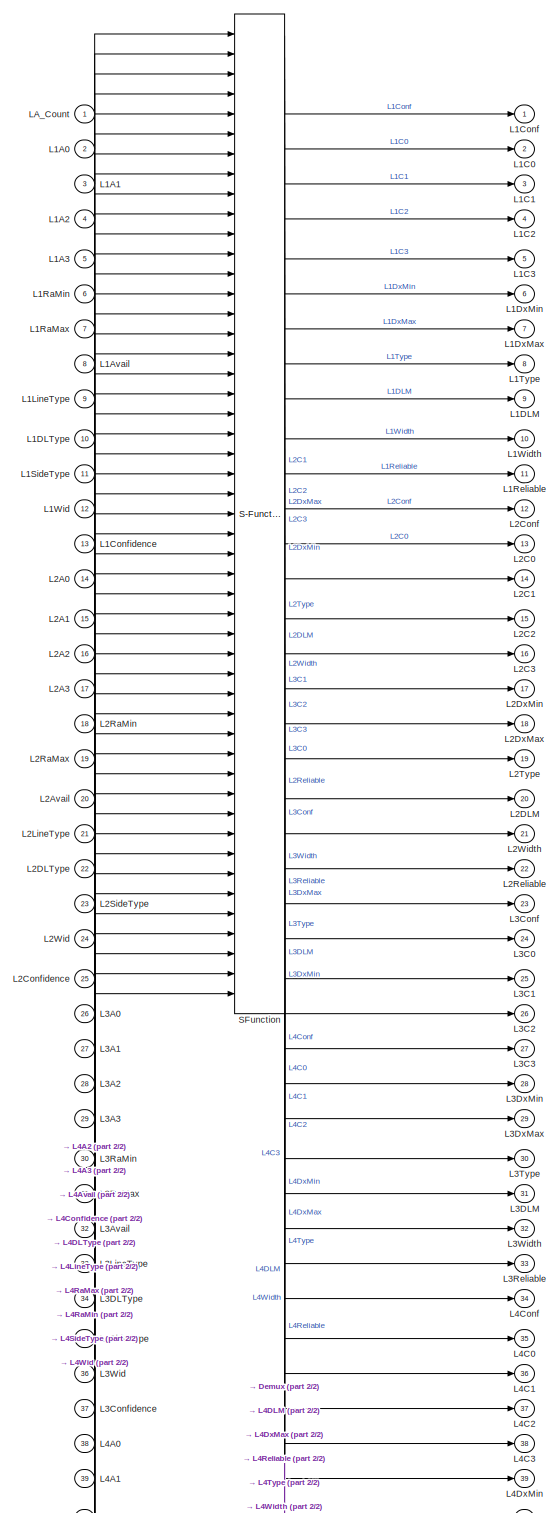
[diagram: Subsystem4/LALine - part 1/2, most of the canvas]
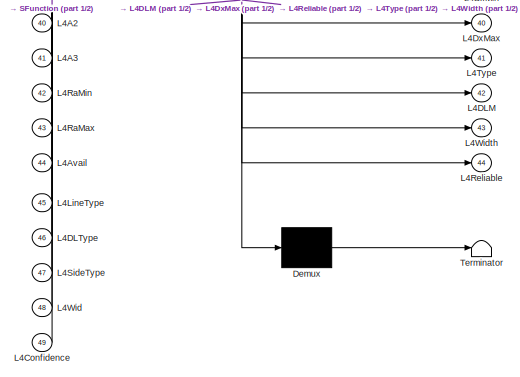
[diagram: Subsystem4/LALine - part 2/2, full width, bottom band]
BLOCK [SubSystem] Subsystem4/LALine
  ErrorFcn = Stateflow.Translate.translate
  PermitHierarchicalResolution = ExplicitOnly
  Ports = [49, 44]
  RequestExecContextInheritance = off
  SFBlockType = MATLAB Function
  TreatAsAtomicUnit = on
BLOCK [Demux] Subsystem4/LALine/ Demux 
  Outputs = 1
  Ports = [1, 1]
BLOCK [S-Function] Subsystem4/LALine/ SFunction 
  EnableBusSupport = on
  FunctionName = sf_sfun
  PortCounts = [49 45]
  Ports = [49, 45]
  SFcnIsStateOwnerBlock = off
  SFunctionDeploymentMode = off
  Tag = Stateflow S-Function 27
BLOCK [Terminator] Subsystem4/LALine/ Terminator 
BLOCK [Inport] Subsystem4/LALine/L1A0
  Port = 2
BLOCK [Inport] Subsystem4/LALine/L1A1
  Port = 3
BLOCK [Inport] Subsystem4/LALine/L1A2
  Port = 4
BLOCK [Inport] Subsystem4/LALine/L1A3
  Port = 5
BLOCK [Inport] Subsystem4/LALine/L1Avail
  Port = 8
BLOCK [Outport] Subsystem4/LALine/L1C0
  Port = 2
BLOCK [Outport] Subsystem4/LALine/L1C1
  Port = 3
BLOCK [Outport] Subsystem4/LALine/L1C2
  Port = 4
BLOCK [Outport] Subsystem4/LALine/L1C3
  Port = 5
BLOCK [Outport] Subsystem4/LALine/L1Conf
BLOCK [Inport] Subsystem4/LALine/L1Confidence
  Port = 13
BLOCK [Outport] Subsystem4/LALine/L1DLM
  Port = 9
BLOCK [Inport] Subsystem4/LALine/L1DLType
  Port = 10
BLOCK [Outport] Subsystem4/LALine/L1DxMax
  Port = 7
BLOCK [Outport] Subsystem4/LALine/L1DxMin
  Port = 6
BLOCK [Inport] Subsystem4/LALine/L1LineType
  Port = 9
BLOCK [Inport] Subsystem4/LALine/L1RaMax
  Port = 7
BLOCK [Inport] Subsystem4/LALine/L1RaMin
  Port = 6
BLOCK [Outport] Subsystem4/LALine/L1Reliable
  Port = 11
BLOCK [Inport] Subsystem4/LALine/L1SideType
  Port = 11
BLOCK [Outport] Subsystem4/LALine/L1Type
  Port = 8
BLOCK [Inport] Subsystem4/LALine/L1Wid
  Port = 12
BLOCK [Outport] Subsystem4/LALine/L1Width
  Port = 10
BLOCK [Inport] Subsystem4/LALine/L2A0
  Port = 14
BLOCK [Inport] Subsystem4/LALine/L2A1
  Port = 15
BLOCK [Inport] Subsystem4/LALine/L2A2
  Port = 16
BLOCK [Inport] Subsystem4/LALine/L2A3
  Port = 17
BLOCK [Inport] Subsystem4/LALine/L2Avail
  Port = 20
BLOCK [Outport] Subsystem4/LALine/L2C0
  Port = 13
BLOCK [Outport] Subsystem4/LALine/L2C1
  Port = 14
BLOCK [Outport] Subsystem4/LALine/L2C2
  Port = 15
BLOCK [Outport] Subsystem4/LALine/L2C3
  Port = 16
BLOCK [Outport] Subsystem4/LALine/L2Conf
  Port = 12
BLOCK [Inport] Subsystem4/LALine/L2Confidence
  Port = 25
BLOCK [Outport] Subsystem4/LALine/L2DLM
  Port = 20
BLOCK [Inport] Subsystem4/LALine/L2DLType
  Port = 22
BLOCK [Outport] Subsystem4/LALine/L2DxMax
  Port = 18
BLOCK [Outport] Subsystem4/LALine/L2DxMin
  Port = 17
BLOCK [Inport] Subsystem4/LALine/L2LineType
  Port = 21
BLOCK [Inport] Subsystem4/LALine/L2RaMax
  Port = 19
BLOCK [Inport] Subsystem4/LALine/L2RaMin
  Port = 18
BLOCK [Outport] Subsystem4/LALine/L2Reliable
  Port = 22
BLOCK [Inport] Subsystem4/LALine/L2SideType
  Port = 23
BLOCK [Outport] Subsystem4/LALine/L2Type
  Port = 19
BLOCK [Inport] Subsystem4/LALine/L2Wid
  Port = 24
BLOCK [Outport] Subsystem4/LALine/L2Width
  Port = 21
BLOCK [Inport] Subsystem4/LALine/L3A0
  Port = 26
BLOCK [Inport] Subsystem4/LALine/L3A1
  Port = 27
BLOCK [Inport] Subsystem4/LALine/L3A2
  Port = 28
BLOCK [Inport] Subsystem4/LALine/L3A3
  Port = 29
BLOCK [Inport] Subsystem4/LALine/L3Avail
  Port = 32
BLOCK [Outport] Subsystem4/LALine/L3C0
  Port = 24
BLOCK [Outport] Subsystem4/LALine/L3C1
  Port = 25
BLOCK [Outport] Subsystem4/LALine/L3C2
  Port = 26
BLOCK [Outport] Subsystem4/LALine/L3C3
  Port = 27
BLOCK [Outport] Subsystem4/LALine/L3Conf
  Port = 23
BLOCK [Inport] Subsystem4/LALine/L3Confidence
  Port = 37
BLOCK [Outport] Subsystem4/LALine/L3DLM
  Port = 31
BLOCK [Inport] Subsystem4/LALine/L3DLType
  Port = 34
BLOCK [Outport] Subsystem4/LALine/L3DxMax
  Port = 29
BLOCK [Outport] Subsystem4/LALine/L3DxMin
  Port = 28
BLOCK [Inport] Subsystem4/LALine/L3LineType
  Port = 33
BLOCK [Inport] Subsystem4/LALine/L3RaMax
  Port = 31
BLOCK [Inport] Subsystem4/LALine/L3RaMin
  Port = 30
BLOCK [Outport] Subsystem4/LALine/L3Reliable
  Port = 33
BLOCK [Inport] Subsystem4/LALine/L3SideType
  Port = 35
BLOCK [Outport] Subsystem4/LALine/L3Type
  Port = 30
BLOCK [Inport] Subsystem4/LALine/L3Wid
  Port = 36
BLOCK [Outport] Subsystem4/LALine/L3Width
  Port = 32
BLOCK [Inport] Subsystem4/LALine/L4A0
  Port = 38
BLOCK [Inport] Subsystem4/LALine/L4A1
  Port = 39
BLOCK [Inport] Subsystem4/LALine/L4A2
  Port = 40
BLOCK [Inport] Subsystem4/LALine/L4A3
  Port = 41
BLOCK [Inport] Subsystem4/LALine/L4Avail
  Port = 44
BLOCK [Outport] Subsystem4/LALine/L4C0
  Port = 35
BLOCK [Outport] Subsystem4/LALine/L4C1
  Port = 36
BLOCK [Outport] Subsystem4/LALine/L4C2
  Port = 37
BLOCK [Outport] Subsystem4/LALine/L4C3
  Port = 38
BLOCK [Outport] Subsystem4/LALine/L4Conf
  Port = 34
BLOCK [Inport] Subsystem4/LALine/L4Confidence
  Port = 49
BLOCK [Outport] Subsystem4/LALine/L4DLM
  Port = 42
BLOCK [Inport] Subsystem4/LALine/L4DLType
  Port = 46
BLOCK [Outport] Subsystem4/LALine/L4DxMax
  Port = 40
BLOCK [Outport] Subsystem4/LALine/L4DxMin
  Port = 39
BLOCK [Inport] Subsystem4/LALine/L4LineType
  Port = 45
BLOCK [Inport] Subsystem4/LALine/L4RaMax
  Port = 43
BLOCK [Inport] Subsystem4/LALine/L4RaMin
  Port = 42
BLOCK [Outport] Subsystem4/LALine/L4Reliable
  Port = 44
BLOCK [Inport] Subsystem4/LALine/L4SideType
  Port = 47
BLOCK [Outport] Subsystem4/LALine/L4Type
  Port = 41
BLOCK [Inport] Subsystem4/LALine/L4Wid
  Port = 48
BLOCK [Outport] Subsystem4/LALine/L4Width
  Port = 43
BLOCK [Inport] Subsystem4/LALine/LA_Count
BLOCK [Inport] Subsystem4/LA_HDR
  Port = 9
BLOCK [SubSystem] Subsystem4/LHLine
  ErrorFcn = Stateflow.Translate.translate
  PermitHierarchicalResolution = ExplicitOnly
  Ports = [27, 24]
  RequestExecContextInheritance = off
  SFBlockType = MATLAB Function
  TreatAsAtomicUnit = on
BLOCK [Demux] Subsystem4/LHLine/ Demux 
  Outputs = 1
  Ports = [1, 1]
BLOCK [S-Function] Subsystem4/LHLine/ SFunction 
  EnableBusSupport = on
  FunctionName = sf_sfun
  PortCounts = [27 25]
  Ports = [27, 25]
  SFcnIsStateOwnerBlock = off
  SFunctionDeploymentMode = off
  Tag = Stateflow S-Function 18
BLOCK [Terminator] Subsystem4/LHLine/ Terminator 
BLOCK [Inport] Subsystem4/LHLine/LH1A0
  Port = 2
BLOCK [Inport] Subsystem4/LHLine/LH1A1
  Port = 3
BLOCK [Inport] Subsystem4/LHLine/LH1A2
  Port = 4
BLOCK [Inport] Subsystem4/LHLine/LH1A3
  Port = 5
BLOCK [Inport] Subsystem4/LHLine/LH1Avail
  Port = 8
BLOCK [Outport] Subsystem4/LHLine/LH1C0
  Port = 2
BLOCK [Outport] Subsystem4/LHLine/LH1C1
  Port = 3
BLOCK [Outport] Subsystem4/LHLine/LH1C2
  Port = 4
BLOCK [Outport] Subsystem4/LHLine/LH1C3
  Port = 5
BLOCK [Outport] Subsystem4/LHLine/LH1Conf
BLOCK [Inport] Subsystem4/LHLine/LH1Confidence
  Port = 14
BLOCK [Inport] Subsystem4/LHLine/LH1Crossing
  Port = 13
BLOCK [Outport] Subsystem4/LHLine/LH1DLM
  Port = 9
BLOCK [Inport] Subsystem4/LHLine/LH1DLType
  Port = 10
BLOCK [Outport] Subsystem4/LHLine/LH1DxMax
  Port = 7
BLOCK [Outport] Subsystem4/LHLine/LH1DxMin
  Port = 6
BLOCK [Inport] Subsystem4/LHLine/LH1LineType
  Port = 9
BLOCK [Inport] Subsystem4/LHLine/LH1RaMax
  Port = 7
BLOCK [Inport] Subsystem4/LHLine/LH1RaMin
  Port = 6
BLOCK [Outport] Subsystem4/LHLine/LH1Reliable
  Port = 11
BLOCK [Inport] Subsystem4/LHLine/LH1SideType
  Port = 11
BLOCK [Outport] Subsystem4/LHLine/LH1Type
  Port = 8
BLOCK [Inport] Subsystem4/LHLine/LH1Wid
  Port = 12
BLOCK [Outport] Subsystem4/LHLine/LH1Width
  Port = 10
BLOCK [Inport] Subsystem4/LHLine/LH2A0
  Port = 15
BLOCK [Inport] Subsystem4/LHLine/LH2A1
  Port = 16
BLOCK [Inport] Subsystem4/LHLine/LH2A2
  Port = 17
BLOCK [Inport] Subsystem4/LHLine/LH2A3
  Port = 18
BLOCK [Inport] Subsystem4/LHLine/LH2Avail
  Port = 21
BLOCK [Outport] Subsystem4/LHLine/LH2C0
  Port = 14
BLOCK [Outport] Subsystem4/LHLine/LH2C1
  Port = 15
BLOCK [Outport] Subsystem4/LHLine/LH2C2
  Port = 16
BLOCK [Outport] Subsystem4/LHLine/LH2C3
  Port = 17
BLOCK [Outport] Subsystem4/LHLine/LH2Conf
  Port = 13
BLOCK [Inport] Subsystem4/LHLine/LH2Confidence
  Port = 27
BLOCK [Inport] Subsystem4/LHLine/LH2Crossing
  Port = 26
BLOCK [Outport] Subsystem4/LHLine/LH2DLM
  Port = 21
BLOCK [Inport] Subsystem4/LHLine/LH2DLType
  Port = 23
BLOCK [Outport] Subsystem4/LHLine/LH2DxMax
  Port = 19
BLOCK [Outport] Subsystem4/LHLine/LH2DxMin
  Port = 18
BLOCK [Inport] Subsystem4/LHLine/LH2LineType
  Port = 22
BLOCK [Inport] Subsystem4/LHLine/LH2RaMax
  Port = 20
BLOCK [Inport] Subsystem4/LHLine/LH2RaMin
  Port = 19
BLOCK [Outport] Subsystem4/LHLine/LH2Reliable
  Port = 23
BLOCK [Inport] Subsystem4/LHLine/LH2SideType
  Port = 24
BLOCK [Outport] Subsystem4/LHLine/LH2Type
  Port = 20
BLOCK [Inport] Subsystem4/LHLine/LH2Wid
  Port = 25
BLOCK [Outport] Subsystem4/LHLine/LH2Width
  Port = 22
BLOCK [Inport] Subsystem4/LHLine/LH_Count
BLOCK [Outport] Subsystem4/LHLine/LeftLaneChange
  Port = 12
BLOCK [Outport] Subsystem4/LHLine/RightLaneChange
  Port = 24
BLOCK [Inport] Subsystem4/LH_HDR
  Port = 3
BLOCK [SubSystem] Subsystem4/MATLAB Function5
  ErrorFcn = Stateflow.Translate.translate
  PermitHierarchicalResolution = ExplicitOnly
  Ports = [8, 6]
  RequestExecContextInheritance = off
  SFBlockType = MATLAB Function
  TreatAsAtomicUnit = on
BLOCK [Demux] Subsystem4/MATLAB Function5/ Demux 
  Outputs = 1
  Ports = [1, 1]
BLOCK [S-Function] Subsystem4/MATLAB Function5/ SFunction 
  EnableBusSupport = on
  FunctionName = sf_sfun
  PortCounts = [8 7]
  Ports = [8, 7]
  SFcnIsStateOwnerBlock = off
  SFunctionDeploymentMode = off
  Tag = Stateflow S-Function 19
BLOCK [Terminator] Subsystem4/MATLAB Function5/ Terminator 
BLOCK [Inport] Subsystem4/MATLAB Function5/A0
  Port = 3
BLOCK [Inport] Subsystem4/MATLAB Function5/A1
  Port = 4
BLOCK [Inport] Subsystem4/MATLAB Function5/A2
  Port = 5
BLOCK [Inport] Subsystem4/MATLAB Function5/A3
  Port = 6
BLOCK [Inport] Subsystem4/MATLAB Function5/IFV2CenterAxis
  Port = 2
BLOCK [Inport] Subsystem4/MATLAB Function5/IFV2RearAxis
BLOCK [Inport] Subsystem4/MATLAB Function5/Range_max
  Port = 8
BLOCK [Inport] Subsystem4/MATLAB Function5/Range_min
  Port = 7
BLOCK [Outport] Subsystem4/MATLAB Function5/Rmax
  Port = 6
BLOCK [Outport] Subsystem4/MATLAB Function5/Rmin
  Port = 5
BLOCK [Outport] Subsystem4/MATLAB Function5/a0
BLOCK [Outport] Subsystem4/MATLAB Function5/a1
  Port = 2
BLOCK [Outport] Subsystem4/MATLAB Function5/a2
  Port = 3
BLOCK [Outport] Subsystem4/MATLAB Function5/a3
  Port = 4
BLOCK [SubSystem] Subsystem4/MATLAB Function6
  ErrorFcn = Stateflow.Translate.translate
  PermitHierarchicalResolution = ExplicitOnly
  Ports = [8, 6]
  RequestExecContextInheritance = off
  SFBlockType = MATLAB Function
  TreatAsAtomicUnit = on
BLOCK [Demux] Subsystem4/MATLAB Function6/ Demux 
  Outputs = 1
  Ports = [1, 1]
BLOCK [S-Function] Subsystem4/MATLAB Function6/ SFunction 
  EnableBusSupport = on
  FunctionName = sf_sfun
  PortCounts = [8 7]
  Ports = [8, 7]
  SFcnIsStateOwnerBlock = off
  SFunctionDeploymentMode = off
  Tag = Stateflow S-Function 20
BLOCK [Terminator] Subsystem4/MATLAB Function6/ Terminator 
BLOCK [Inport] Subsystem4/MATLAB Function6/A0
  Port = 3
BLOCK [Inport] Subsystem4/MATLAB Function6/A1
  Port = 4
BLOCK [Inport] Subsystem4/MATLAB Function6/A2
  Port = 5
BLOCK [Inport] Subsystem4/MATLAB Function6/A3
  Port = 6
BLOCK [Inport] Subsystem4/MATLAB Function6/IFV2CenterAxis
  Port = 2
BLOCK [Inport] Subsystem4/MATLAB Function6/IFV2RearAxis
BLOCK [Inport] Subsystem4/MATLAB Function6/Range_max
  Port = 8
BLOCK [Inport] Subsystem4/MATLAB Function6/Range_min
  Port = 7
BLOCK [Outport] Subsystem4/MATLAB Function6/Rmax
  Port = 6
BLOCK [Outport] Subsystem4/MATLAB Function6/Rmin
  Port = 5
BLOCK [Outport] Subsystem4/MATLAB Function6/a0
BLOCK [Outport] Subsystem4/MATLAB Function6/a1
  Port = 2
BLOCK [Outport] Subsystem4/MATLAB Function6/a2
  Port = 3
BLOCK [Outport] Subsystem4/MATLAB Function6/a3
  Port = 4
BLOCK [Outport] Subsystem4/Out1
BLOCK [Selector] Subsystem4/Selector
  IndexOptions = Index vector (dialog)
  Indices = 1
  InputPortWidth = 2
  OutputSizes = 1
  Ports = [1, 1]
BLOCK [Selector] Subsystem4/Selector1
  IndexOptions = Index vector (dialog)
  Indices = 2
  InputPortWidth = 2
  OutputSizes = 1
  Ports = [1, 1]
BLOCK [SignalConversion] Subsystem4/Signal Copy
  OverrideOpt = off
BLOCK [SignalConversion] Subsystem4/Signal Copy1
  OverrideOpt = off
BLOCK [SignalConversion] Subsystem4/Signal Copy10
  OverrideOpt = off
BLOCK [SignalConversion] Subsystem4/Signal Copy11
  OverrideOpt = off
BLOCK [SignalConversion] Subsystem4/Signal Copy12
  OverrideOpt = off
BLOCK [SignalConversion] Subsystem4/Signal Copy13
  OverrideOpt = off
BLOCK [SignalConversion] Subsystem4/Signal Copy14
  OverrideOpt = off
BLOCK [SignalConversion] Subsystem4/Signal Copy15
  OverrideOpt = off
BLOCK [SignalConversion] Subsystem4/Signal Copy2
  OverrideOpt = off
BLOCK [SignalConversion] Subsystem4/Signal Copy3
  OverrideOpt = off
BLOCK [SignalConversion] Subsystem4/Signal Copy4
  OverrideOpt = off
BLOCK [SignalConversion] Subsystem4/Signal Copy5
  OverrideOpt = off
BLOCK [SignalConversion] Subsystem4/Signal Copy6
  OverrideOpt = off
BLOCK [SignalConversion] Subsystem4/Signal Copy7
  OverrideOpt = off
BLOCK [SignalConversion] Subsystem4/Signal Copy8
  OverrideOpt = off
BLOCK [SignalConversion] Subsystem4/Signal Copy9
  OverrideOpt = off
BLOCK [SubSystem] Subsystem4/Simulink Function
  Ports = [0, 0, 0, 1]
  RequestExecContextInheritance = off
  TreatAsAtomicUnit = on
BLOCK [ArgIn] Subsystem4/Simulink Function/A0
  ArgumentName = A0
  DisableCoverage = on
  OutDataTypeStr = single
BLOCK [ArgIn] Subsystem4/Simulink Function/A1
  ArgumentName = A1
  DisableCoverage = on
  OutDataTypeStr = single
  Port = 2
BLOCK [ArgIn] Subsystem4/Simulink Function/A2
  ArgumentName = A2
  DisableCoverage = on
  OutDataTypeStr = single
  Port = 3
BLOCK [ArgIn] Subsystem4/Simulink Function/A3
  ArgumentName = A3
  DisableCoverage = on
  OutDataTypeStr = single
  Port = 4
BLOCK [Constant] Subsystem4/Simulink Function/Constant4
  Value = P_Global_EQ2RearAxisX_m
BLOCK [Constant] Subsystem4/Simulink Function/Constant5
  Value = P_Global_EQ2RearAxisY_m
BLOCK [SubSystem] Subsystem4/Simulink Function/MATLAB Function3
  ErrorFcn = Stateflow.Translate.translate
  PermitHierarchicalResolution = ExplicitOnly
  Ports = [8, 6]
  RequestExecContextInheritance = off
  SFBlockType = MATLAB Function
  TreatAsAtomicUnit = on
BLOCK [Demux] Subsystem4/Simulink Function/MATLAB Function3/ Demux 
  Outputs = 1
  Ports = [1, 1]
BLOCK [S-Function] Subsystem4/Simulink Function/MATLAB Function3/ SFunction 
  EnableBusSupport = on
  FunctionName = sf_sfun
  PortCounts = [8 7]
  Ports = [8, 7]
  SFcnIsStateOwnerBlock = off
  SFunctionDeploymentMode = off
  Tag = Stateflow S-Function 21
BLOCK [Terminator] Subsystem4/Simulink Function/MATLAB Function3/ Terminator 
BLOCK [Inport] Subsystem4/Simulink Function/MATLAB Function3/A0
  Port = 3
BLOCK [Inport] Subsystem4/Simulink Function/MATLAB Function3/A1
  Port = 4
BLOCK [Inport] Subsystem4/Simulink Function/MATLAB Function3/A2
  Port = 5
BLOCK [Inport] Subsystem4/Simulink Function/MATLAB Function3/A3
  Port = 6
BLOCK [Inport] Subsystem4/Simulink Function/MATLAB Function3/IFV2CenterAxis
  Port = 2
BLOCK [Inport] Subsystem4/Simulink Function/MATLAB Function3/IFV2RearAxis
BLOCK [Inport] Subsystem4/Simulink Function/MATLAB Function3/Range_max
  Port = 8
BLOCK [Inport] Subsystem4/Simulink Function/MATLAB Function3/Range_min
  Port = 7
BLOCK [Outport] Subsystem4/Simulink Function/MATLAB Function3/Rmax
  Port = 6
BLOCK [Outport] Subsystem4/Simulink Function/MATLAB Function3/Rmin
  Port = 5
BLOCK [Outport] Subsystem4/Simulink Function/MATLAB Function3/a0
BLOCK [Outport] Subsystem4/Simulink Function/MATLAB Function3/a1
  Port = 2
BLOCK [Outport] Subsystem4/Simulink Function/MATLAB Function3/a2
  Port = 3
BLOCK [Outport] Subsystem4/Simulink Function/MATLAB Function3/a3
  Port = 4
BLOCK [ArgIn] Subsystem4/Simulink Function/Range_max
  ArgumentName = Range_max
  DisableCoverage = on
  OutDataTypeStr = single
  Port = 6
BLOCK [ArgIn] Subsystem4/Simulink Function/Range_min
  ArgumentName = Range_min
  DisableCoverage = on
  OutDataTypeStr = single
  Port = 5
BLOCK [ArgOut] Subsystem4/Simulink Function/Rmax
  ArgumentName = Rmax
  DisableCoverage = on
  OutDataTypeStr = single
  Port = 6
BLOCK [ArgOut] Subsystem4/Simulink Function/Rmin
  ArgumentName = Rmin
  DisableCoverage = on
  OutDataTypeStr = single
  Port = 5
BLOCK [ArgOut] Subsystem4/Simulink Function/a0
  ArgumentName = a0
  DisableCoverage = on
  OutDataTypeStr = single
BLOCK [ArgOut] Subsystem4/Simulink Function/a1
  ArgumentName = a1
  DisableCoverage = on
  OutDataTypeStr = single
  Port = 2
BLOCK [ArgOut] Subsystem4/Simulink Function/a2
  ArgumentName = a2
  DisableCoverage = on
  OutDataTypeStr = single
  Port = 3
BLOCK [ArgOut] Subsystem4/Simulink Function/a3
  ArgumentName = a3
  DisableCoverage = on
  OutDataTypeStr = single
  Port = 4
BLOCK [TriggerPort] Subsystem4/Simulink Function/fla
  FunctionName = fla
  FunctionVisibility = scoped
  IsSimulinkFunction = on
  Ports = []
  StatesWhenEnabling = held
  TriggerType = function-call
  VariantControl = (inherit)
BLOCK [Inport] Subsystem4/lanebus
  Port = 4
BLOCK [Reference] UDP Receive (3)\Data Received  REF=dsmpblib/Hardware-Triggered Runnable Function
  Diagnostics = AllowInheritedTsInSrc
  Ports = [0, 1]
  SourceBlock = dsmpblib/Hardware-Triggered Runnable Function
  SourceProductName = dSPACE Model Interface Blockset
  SourceType = RunnableFunctionBlock
  UserDataPersistent = on
BLOCK [Reference] UDP Receive 2\Data Received  REF=dsmpblib/Hardware-Triggered Runnable Function
  Diagnostics = AllowInheritedTsInSrc
  Ports = [0, 1]
  SourceBlock = dsmpblib/Hardware-Triggered Runnable Function
  SourceProductName = dSPACE Model Interface Blockset
  SourceType = RunnableFunctionBlock
  UserDataPersistent = on
BLOCK [SubSystem] UDP_Received
  Ports = [0, 1, 0, 1]
  RequestExecContextInheritance = off
BLOCK [DataTypeConversion] UDP_Received/Data Type Conversion
  RndMeth = Floor
  SaturateOnIntegerOverflow = off
BLOCK [S-Function] UDP_Received/S-Function
  EnableBusSupport = off
  FunctionName = sfun_mcuEQ4api
  Ports = [2, 2]
  SFcnIsStateOwnerBlock = off
  SFunctionDeploymentMode = off
BLOCK [Selector] UDP_Received/Selector
  IndexOptions = Index vector (dialog)
  Indices = [1:1500]
  InputPortWidth = 10240
  OutputSizes = 1
  Ports = [1, 1]
BLOCK [Reference] UDP_Received/UDP Receive (2)  REF=dsmpblib/Data Inport
  Diagnostics = AllowInheritedTsInSrc
  Ports = [0, 5]
  Priority = 10000
  SourceBlock = dsmpblib/Data Inport
  SourceProductName = dSPACE Model Interface Blockset
  SourceType = DataInportBlock
  UserDataPersistent = on
BLOCK [TriggerPort] UDP_Received/function
  Ports = []
  StatesWhenEnabling = held
  TriggerType = function-call
  VariantControl = Variant
BLOCK [Outport] UDP_Received/visMsg
BLOCK [UnitDelay] Unit Delay
  HasFrameUpgradeWarning = on
  SampleTime = -1
BLOCK [UnitDelay] Unit Delay1
  HasFrameUpgradeWarning = on
  SampleTime = -1
BLOCK [UnitDelay] Unit Delay2
  HasFrameUpgradeWarning = on
  SampleTime = -1
BLOCK [UnitDelay] Unit Delay3
  HasFrameUpgradeWarning = on
  SampleTime = -1
BLOCK [UnitDelay] Unit Delay4
  HasFrameUpgradeWarning = on
  SampleTime = -1
BLOCK [Reference] VCANBus  REF=dsmpblib/Data Inport
  Diagnostics = AllowInheritedTsInSrc
  Ports = [0, 1]
  Priority = 10000
  SourceBlock = dsmpblib/Data Inport
  SourceProductName = dSPACE Model Interface Blockset
  SourceType = DataInportBlock
  UserDataPersistent = on
BLOCK [SubSystem] aeb
  AttributesFormatString = <DSModel='Osm'>
  Ports = [6, 1]
  RequestExecContextInheritance = off
  Tag = <DSModel=2_'Osm'>
BLOCK [ModelReference] aeb/AEB
  Commented = on
  ModelNameDialog = PubIfStateAEB_MDL.slx
  ModelReferenceVersion = 1.6
  Ports = [23, 8]
BLOCK [BusCreator] aeb/Bus Creator
  DisplayOption = bar
  InheritFromInputs = on
  Inputs = 3
  Ports = [3, 1]
BLOCK [BusCreator] aeb/Bus Creator1
  DisplayOption = bar
  InheritFromInputs = on
  Inputs = 4
  Ports = [4, 1]
BLOCK [BusCreator] aeb/Bus Creator10
  Commented = on
  DisplayOption = bar
  InheritFromInputs = on
  Inputs = 1
  Ports = [1, 1]
BLOCK [BusCreator] aeb/Bus Creator2
  DisplayOption = bar
  InheritFromInputs = on
  Inputs = 28
  Ports = [28, 1]
BLOCK [BusCreator] aeb/Bus Creator3
  DisplayOption = bar
  InheritFromInputs = on
  Inputs = 2
  Ports = [2, 1]
BLOCK [BusCreator] aeb/Bus Creator4
  DisplayOption = bar
  InheritFromInputs = on
  Inputs = 6
  Ports = [6, 1]
BLOCK [BusCreator] aeb/Bus Creator5
  DisplayOption = bar
  InheritFromInputs = on
  Inputs = 2
  Ports = [2, 1]
BLOCK [BusCreator] aeb/Bus Creator6
  DisplayOption = bar
  InheritFromInputs = on
  Inputs = 5
  Ports = [5, 1]
BLOCK [BusCreator] aeb/Bus Creator7
  DisplayOption = bar
  InheritFromInputs = on
  Inputs = 4
  Ports = [4, 1]
BLOCK [BusCreator] aeb/Bus Creator8
  Commented = on
  DisplayOption = bar
  InheritFromInputs = on
  Inputs = 3
  Ports = [3, 1]
BLOCK [BusCreator] aeb/Bus Creator9
  Commented = on
  DisplayOption = bar
  InheritFromInputs = on
  Inputs = 4
  Ports = [4, 1]
BLOCK [BusSelector] aeb/Bus Selector
  OutputSignals = BCM_NODE.BCM1_MSG.DrvDoorSts,BCM_NODE.BCM1_MSG.PassengerDoorSts
  Ports = [1, 2]
BLOCK [BusSelector] aeb/Bus Selector11
  OutputSignals = HUT_NODE.HUT_FD1_MSG.AEB_PedSwtReq,HUT_NODE.HUT_FD1_MSG.AEB_VehSwtReq,HUT_NODE.HUT_FD1_MSG.AEB_JASwtReq,HUT_NODE.HUT_FD1_MSG.FCW_SnvtySet
  Ports = [1, 4]
BLOCK [BusSelector] aeb/Bus Selector12
  Commented = on
  OutputSignals = CR_NODE.CR_FD1_MSG.FCTB_ABA_Level,CR_NODE.CR_FD1_MSG.FCTB_ABA_Req,CR_NODE.CR_FD1_MSG.FCTB_ABP_Req
  Ports = [1, 3]
BLOCK [BusSelector] aeb/Bus Selector13
  Commented = on
  OutputSignals = HCU_NODE.HCU_FD1_MSG.HCU_PowertrainSts,HCU_NODE.HCU_FD1_MSG.HCU_AccelPedalPosn_Diag,HCU_NODE.HCU_FD1_MSG.HCU_AccelPedalPosn_DiagValid,HCU_NODE.HCU_FD3_MSG.HCU_DrvMod
  Ports = [1, 4]
BLOCK [BusSelector] aeb/Bus Selector14
  Commented = on
  OutputSignals = IBOOSTER_NODE.IBOOSTER_FD2_MSG.IB_BrkPedalAppld
  Ports = [1, 1]
BLOCK [BusSelector] aeb/Bus Selector3
  OutputSignals = vxvRefMs,axvRefMs2,ayvRefMs2,kapTraj,psiDtOpt
  Ports = [1, 5]
BLOCK [BusSelector] aeb/Bus Selector4
  OutputSignals = ABM_NODE.ABM1_MSG.DrvSBR,ABM_NODE.ABM1_MSG.PassSBR,ABM_NODE.ABM2_MSG.VehLgtAccel,ABM_NODE.ABM2_MSG.VehLgtAccelVld
  Ports = [1, 4]
BLOCK [BusSelector] aeb/Bus Selector5
  OutputSignals = ESP_NODE.ESP_FD3_MSG.FLWheelDriveDirection,ESP_NODE.ESP_FD3_MSG.FLWheelSpdVld,ESP_NODE.ESP_FD3_MSG.FLWheelSpd,ESP_NODE.ESP_FD3_MSG.FRWheelDriveDirection,ESP_NODE.ESP_FD3_MSG.FRWheelSpdVld,ESP_NODE.ESP_FD3_MSG.FRWheelSpd,ESP_NODE.ESP_FD3_MSG.RLWheelDriveDirection,ESP_NODE.ESP_FD3_MSG.RLWheelSpdVld,ESP_NODE.ESP_FD3_MSG.RRWheelSpdVld,ESP_NODE.ESP_FD3_MSG.RRWheelSpd,ESP_NODE.ESP_FD2_MSG.BTCActv,ESP_NO...<+558ch>
  Ports = [1, 28]
BLOCK [BusSelector] aeb/Bus Selector6
  Commented = on
  OutputSignals = OSM_AEB_LONOBJ,OSM_AEB_LATOBJ,OSM_AEB_JAOBJ
  Ports = [1, 3]
BLOCK [BusSelector] aeb/Bus Selector7
  OutputSignals = CSA_NODE.CSA1_MSG.LTurnLmpSwtSts,CSA_NODE.CSA1_MSG.RTurnLmpSwtSts,CSA_NODE.CSA2_MSG.SteerWheelAng,CSA_NODE.CSA2_MSG.SteerWheelAngSign,CSA_NODE.CSA2_MSG.SteerWheelSpd,CSA_NODE.CSA2_MSG.SteerWheelSpdSign
  Ports = [1, 6]
BLOCK [BusSelector] aeb/Bus Selector8
  OutputSignals = DCT_NODE.DCT5_MSG.CurrentGearValid,DCT_NODE.DCT5_MSG.CURRENT_GEAR
  Ports = [1, 2]
BLOCK [BusSelector] aeb/Bus Selector9
  OutputSignals = ECM_NODE.ECM_FD1_MSG.BrkPedalSts,ECM_NODE.ECM_FD2_MSG.EngState,ECM_NODE.ECM_FD2_MSG.AccelPedalPosnVldty,ECM_NODE.ECM_FD2_MSG.AccPedalOverride,ECM_NODE.ECM_FD2_MSG.AccelPedlPosnDiagc
  Ports = [1, 5]
BLOCK [Outport] aeb/IfAEBSBus
BLOCK [Inport] aeb/IfCALBus
  Port = 4
BLOCK [Inport] aeb/IfCANBus
  OutDataTypeStr = Bus: VCAN_BUS
BLOCK [Inport] aeb/IfDIAGBus
  Port = 5
BLOCK [Inport] aeb/IfOSMBus
  Port = 6
BLOCK [Inport] aeb/IfVIEBus
  Port = 2
BLOCK [Inport] aeb/IfVSMBus
  Port = 3
BLOCK [SubSystem] aeb/Subsystem
  Ports = [23, 8]
  RequestExecContextInheritance = off
BLOCK [Outport] aeb/Subsystem/AEB_BRK_INFO
  BusOutputAsStruct = on
  OutDataTypeStr = Bus: AEB_BRK_INFO_BUS
  PortDimensions = 1
BLOCK [Outport] aeb/Subsystem/AEB_DVR_INFO
  BusOutputAsStruct = on
  OutDataTypeStr = Bus: AEB_DVR_INFO_BUS
  Port = 2
  PortDimensions = 1
BLOCK [Outport] aeb/Subsystem/AEB_EDR_JAPED_INFO
  BusOutputAsStruct = on
  OutDataTypeStr = Bus: AEB_EDR_JAPED_INFO_BUS
  Port = 7
  PortDimensions = 1
BLOCK [Outport] aeb/Subsystem/AEB_EDR_JAVEH_INFO
  BusOutputAsStruct = on
  OutDataTypeStr = Bus: AEB_EDR_JAVEH_INFO_BUS
  Port = 8
  PortDimensions = 1
BLOCK [Outport] aeb/Subsystem/AEB_EDR_LATCYC_INFO
  BusOutputAsStruct = on
  OutDataTypeStr = Bus: AEB_EDR_LATCYC_INFO_BUS
  Port = 6
  PortDimensions = 1
BLOCK [Outport] aeb/Subsystem/AEB_EDR_LATPED_INFO
  BusOutputAsStruct = on
  OutDataTypeStr = Bus: AEB_EDR_LATPED_INFO_BUS
  Port = 5
  PortDimensions = 1
BLOCK [Outport] aeb/Subsystem/AEB_EDR_LONOBJ_INFO
  BusOutputAsStruct = on
  OutDataTypeStr = Bus: AEB_EDR_LONOBJ_INFO_BUS
  Port = 4
  PortDimensions = 1
BLOCK [Inport] aeb/Subsystem/AEB_IB_BrkPedalAppld
  BusOutputAsStruct = on
  OutDataTypeStr = boolean
  Port = 18
  PortDimensions = 1
BLOCK [Outport] aeb/Subsystem/AEB_IPHUT_INFO
  BusOutputAsStruct = on
  OutDataTypeStr = Bus: AEB_IPHUT_INFO_BUS
  Port = 3
  PortDimensions = 1
BLOCK [Inport] aeb/Subsystem/AEB_VCAN_ABM
  BusOutputAsStruct = on
  OutDataTypeStr = Bus: AEB_VCAN_ABM_BUS
  Port = 9
  PortDimensions = 1
BLOCK [Inport] aeb/Subsystem/AEB_VCAN_BCM
  BusOutputAsStruct = on
  OutDataTypeStr = Bus: AEB_VCAN_BCM_BUS
  Port = 11
  PortDimensions = 1
BLOCK [Inport] aeb/Subsystem/AEB_VCAN_CR
  BusOutputAsStruct = on
  OutDataTypeStr = Bus: AEB_VCAN_CR_BUS
  Port = 16
  PortDimensions = 1
BLOCK [Inport] aeb/Subsystem/AEB_VCAN_CSA
  BusOutputAsStruct = on
  OutDataTypeStr = Bus: AEB_VCAN_CSA_BUS
  Port = 12
  PortDimensions = 1
BLOCK [Inport] aeb/Subsystem/AEB_VCAN_DCT
  BusOutputAsStruct = on
  OutDataTypeStr = Bus: AEB_VCAN_DCT_BUS
  Port = 13
  PortDimensions = 1
BLOCK [Inport] aeb/Subsystem/AEB_VCAN_ECM
  BusOutputAsStruct = on
  OutDataTypeStr = Bus: AEB_VCAN_ECM_BUS
  Port = 14
  PortDimensions = 1
BLOCK [Inport] aeb/Subsystem/AEB_VCAN_ESP
  BusOutputAsStruct = on
  OutDataTypeStr = Bus: AEB_VCAN_ESP_BUS
  Port = 10
  PortDimensions = 1
BLOCK [Inport] aeb/Subsystem/AEB_VCAN_HCU
  BusOutputAsStruct = on
  OutDataTypeStr = Bus: AEB_VCAN_HCU_BUS
  Port = 17
  PortDimensions = 1
BLOCK [Inport] aeb/Subsystem/AEB_VCAN_HUT
  BusOutputAsStruct = on
  OutDataTypeStr = Bus: AEB_VCAN_HUT_BUS
  Port = 15
  PortDimensions = 1
BLOCK [Inport] aeb/Subsystem/CAL_AEB_CONFIG
  BusOutputAsStruct = on
  OutDataTypeStr = Bus: CAL_AEB_CONFIG_BUS
  Port = 19
  PortDimensions = 1
BLOCK [Inport] aeb/Subsystem/DFIM_AEB_STS
  BusOutputAsStruct = on
  OutDataTypeStr = Bus: DFIM_AEB_STS_BUS
  Port = 20
  PortDimensions = 1
BLOCK [Inport] aeb/Subsystem/EQ4_FCF_VD
  BusOutputAsStruct = on
  OutDataTypeStr = Bus: EQ4_FCF_VD_BUS
  Port = 22
  PortDimensions = 1
BLOCK [Inport] aeb/Subsystem/EQ4_FCF_VRU
  BusOutputAsStruct = on
  OutDataTypeStr = Bus: EQ4_FCF_VRU_BUS
  Port = 23
  PortDimensions = 1
BLOCK [Inport] aeb/Subsystem/TOS_AEB_JAOBJ
  BusOutputAsStruct = on
  OutDataTypeStr = Bus: TOS_AEB_JAOBJ_BUS
  Port = 3
  PortDimensions = 32
BLOCK [Inport] aeb/Subsystem/TOS_AEB_LATOBJ
  BusOutputAsStruct = on
  OutDataTypeStr = Bus: TOS_AEB_LATOBJ_BUS
  Port = 2
  PortDimensions = 10
BLOCK [Inport] aeb/Subsystem/TOS_AEB_LONOBJ
  BusOutputAsStruct = on
  OutDataTypeStr = Bus: TOS_AEB_LONOBJ_BUS
  PortDimensions = 1
BLOCK [Inport] aeb/Subsystem/VSM_LON_CTRL
  BusOutputAsStruct = on
  OutDataTypeStr = Bus: VSM_LON_CTRL_BUS
  Port = 21
  PortDimensions = 1
BLOCK [Inport] aeb/Subsystem/axvRefMs2
  BusOutputAsStruct = on
  OutDataTypeStr = single
  Port = 5
  PortDimensions = 1
BLOCK [Inport] aeb/Subsystem/ayvRefMs2
  BusOutputAsStruct = on
  OutDataTypeStr = single
  Port = 6
  PortDimensions = 1
BLOCK [Inport] aeb/Subsystem/kapTraj
  BusOutputAsStruct = on
  OutDataTypeStr = single
  Port = 7
  PortDimensions = 1
BLOCK [Inport] aeb/Subsystem/psiDtOpt
  BusOutputAsStruct = on
  OutDataTypeStr = single
  Port = 8
  PortDimensions = 1
BLOCK [Inport] aeb/Subsystem/vxvRefMs
  BusOutputAsStruct = on
  OutDataTypeStr = single
  Port = 4
  PortDimensions = 1
BLOCK [Reference] ifLaneBus_out_In  REF=dsmpblib/Data Inport
  Diagnostics = AllowInheritedTsInSrc
  Ports = [0, 1]
  Priority = 10000
  SourceBlock = dsmpblib/Data Inport
  SourceProductName = dSPACE Model Interface Blockset
  SourceType = DataInportBlock
  UserDataPersistent = on
ANNOTATION (root): UDPReceive
ANNOTATION Chassis1: DIAG-MON (DiagnosticMonitor)
ANNOTATION Chassis1: HMI (HumanMachineInterface)
ANNOTATION Chassis1/HMA: LightControl
ANNOTATION Chassis1/HMI: HMI
ANNOTATION Common: CAL (ConfigurationCalibration)
ANNOTATION Common: DMS (DriverMonitorSystem)
ANNOTATION Common: EHR (ElectronicHorizonReconstructor)
ANNOTATION Common: VIE (VehicleInfomationEvaluation)
ANNOTATION Common/Subsystem7/DS/DriverStsConditnJudge: %DistractionJudge
ANNOTATION Common/Subsystem7/DS/DriverStsConditnJudge: %DrowsnsJudge
ANNOTATION Common/Subsystem7/DS/DriverStsConditnJudge: %GoodJudge
ANNOTATION Common/Subsystem7/DS/DriverStsConditnJudge: %UnbelivJudge
ANNOTATION Common/Subsystem7/DS/DriverStsConditnJudge/DSGoodUnbeliv2LowDistractnJudge: %Note Conditions of distraction state from Good∥Unbelievable to Low as follow: DMSSts_ACC is 0x02: Active && HeadDetn is 0x01: Yes && DistrctnLevel_ACC is 0x01: Low level distraction && DistrctnQlty_ACC≥ 85% && During time≥1s(adjustable)
ANNOTATION Common/Subsystem7/DS/DriverStsConditnJudge/DSGoodUnbeliv2LowDrowsnsJudge: %Note Conditions of drowsns state from Good∥Unbelievable to Low as follow: DMSSts_ACC is 0x02: Active && HeadDetn is 0x01: Yes && DrowsnsLevel_ACC is 0x1: Low level Drowsiness && DrowsnsQlty_ACC≥85% && During time≥3s(adjustable)
ANNOTATION Common/Subsystem7/DS/DriverStsConditnJudge/DSGoodUnbeliv2MidDistractnJudge: %Note Conditions of distraction state from Good∥Unbelievable to Middle as follow: DMSSts_ACC is 0x02: Active && HeadDetn is 0x01: Yes && DistrctnLevel_ACC is 0x02: Middle level distraction && DistrctnQlty_ACC≥ 85% && During time≥2s(adjustable)
ANNOTATION Common/Subsystem7/DS/DriverStsConditnJudge/DSGoodUnbeliv2MidDrowsnsJudge: %Note Conditions of drowsns state from Good∥Unbelievable to Middle as follow: DMSSts_ACC is 0x02: Active && HeadDetn is 0x01: Yes && DrowsnsLevel_ACC is 0x2: Middle level Drowsiness && DrowsnsQlty_ACC≥85% && During time≥3s(adjustable)
ANNOTATION Common/Subsystem7/DS/DriverStsConditnJudge/DSHi1Hi22MidDistractnJudge: %Note Conditions of distraction state from High Level 1∥High Level 2 to Middle as follow: DMSSts_ACC is 0x02: Active && HeadDetn is 0x01: Yes && DistrctnLevel_ACC is 0x02: Middle level distraction && DistrctnQlty_ACC≥ 85% && During time≥0.5s(adjustable)
ANNOTATION Common/Subsystem7/DS/DriverStsConditnJudge/DSHi1Hi22MidDrowsnsJudge: %Note Conditions of drowsns state from High Level 1∥High Level 2 to Middle as follow: DMSSts_ACC is 0x02: Active && HeadDetn is 0x01: Yes && DrowsnsLevel_ACC is 0x2: Middle level Drowsiness && DrowsnsQlty_ACC≥85% && During time≥0.5s(adjustable)
ANNOTATION Common/Subsystem7/DS/DriverStsConditnJudge/DSLow2MidDistractnJudge: %Note Conditions of distraction state from Low to Middle as follow: DMSSts_ACC is 0x02: Active && HeadDetn is 0x01: Yes && DistrctnLevel_ACC is 0x02: Middle level distraction && DistrctnQlty_ACC≥ 85% && During time≥2s(adjustable)
ANNOTATION Common/Subsystem7/DS/DriverStsConditnJudge/DSLow2MidDrowsnsJudge: %Note Conditions of drowsns state from Low to Middle as follow: DMSSts_ACC is 0x02: Active && HeadDetn is 0x01: Yes && DrowsnsLevel_ACC is 0x2: Middle level Drowsiness && DrowsnsQlty_ACC≥85% && During time≥3s(adjustable)
ANNOTATION Common/Subsystem7/DS/DriverStsConditnJudge/DSMidHi1Hi22LowDistractnJudge: %Note Conditions of distraction state from Middle∥High Level 1∥High Level 2 to Low as follow: DMSSts_ACC is 0x02: Active && HeadDetn is 0x01: Yes && DistrctnLevel_ACC is 0x01: Low level distraction && DistrctnQlty_ACC≥ 85% && During time≥0.5s(adjustable)
ANNOTATION Common/Subsystem7/DS/DriverStsConditnJudge/DSMidHi1Hi22LowDrowsnsJudge: %Note Conditions of drowsns state from Middle∥High Level 1∥High Level 2 to Low as follow: DMSSts_ACC is 0x02: Active && HeadDetn is 0x01: Yes && DrowsnsLevel_ACC is 0x1: Low level Drowsiness && DrowsnsQlty_ACC≥85% && During time≥0.5s(adjustable)
ANNOTATION Common/Subsystem7/DS/DriverStsConditnJudge/DSMidHi1Hi22NoDistractnJudge: %Note In order to cover one case at which distraction is no distraction but drowsns is low/middle/high 1/high2,add this transition from low/middle/high 1/high2 distraction to no distraction.Conditions as follow: DMSSts_ACC is 0x02: Active && HeadDetn is 0x01: Yes && DistrctnLevel_ACC is 0x00: No distraction && DistrctnQlty_ACC≥ 85% && During time is same as time of other to good
ANNOTATION Common/Subsystem7/DS/DriverStsConditnJudge/DSMidHi1Hi22NoDrowsnsJudge: %Note In order to cover one case at which drowsns is no drowsiness but distraction is low/middle/high 1/high2,add this transition from low/middle/high 1/high2 drowsiness to no drowsiness.Conditions as follow: DMSSts_ACC is 0x02: Active && HeadDetn is 0x01: Yes && DrowsnsLevel_ACC is：0x0: No Drowsiness && DrowsnsQlty_ACC≥85% && During time is same as time of other to good
ANNOTATION Common/Subsystem7/DS/DriverStsConditnJudge/DSOther2GoodJudge: %Note Conditions of distraction state from Unbelievable∥Low∥Middle∥High Level 1∥High Level 2 to Good as follows: DMSSts_ACC is 0x02: Active && HeadDetn is 0x01: Yes && DistrctnLevel_ACC is 0x00: No distraction && DistrctnQlty_ACC≥ 85% && DrowsnsLevel_ACC is：0x0: No Drowsiness && DrowsnsQlty_ACC≥85% && During time≥0.5s
ANNOTATION Common/Subsystem7/DS/DriverStsConditnJudge/DSOther2Hi1DistractnJudge: %Note Conditions of distraction state from other state to High 1 as follow: DMSSts_ACC is 0x02: Active && HeadDetn is 0x01: Yes && DistrctnLevel_ACC is 0x03: Hi level distraction && DistrctnQlty_ACC≥ 85% && During time≥2s(adjustable)
ANNOTATION Common/Subsystem7/DS/DriverStsConditnJudge/DSOther2Hi1DrowsnsJudge: %Note Conditions of drowsns state from other state to High 1 as follow: DMSSts_ACC is 0x02: Active && HeadDetn is 0x01: Yes && DrowsnsLevel_ACC is 0x3: Hi level Drowsiness && DrowsnsQlty_ACC≥85% && During time≥0.5s(adjustable)
ANNOTATION Common/Subsystem7/DS/DriverStsConditnJudge/DSOther2Hi2DistractnJudge: %Note Conditions of distraction state from other state to High 2 as follow: DMSSts_ACC is 0x02: Active && HeadDetn is 0x01: Yes && DistrctnLevel_ACC is 0x03: Hi level distraction && DistrctnQlty_ACC≥ 85% && During time≥5s(adjustable)
ANNOTATION Common/Subsystem7/DS/DriverStsConditnJudge/DSOther2Hi2DrowsnsJudge: %Note Conditions of drowsns state from other state to High2 as follow: DMSSts_ACC is 0x02: Active && HeadDetn is 0x01: Yes && DrowsnsLevel_ACC is 0x3: Hi level Drowsiness && DrowsnsQlty_ACC≥85% && During time≥3s(adjustable)
ANNOTATION Common/Subsystem7/DS/DriverStsConditnJudge/DSOther2UnbelivJudge: %Note Conditions of distraction and drowsns state from other to unbelievable as follow: (DMSSts_ACC is no 0x02: Active&& during time ≥3cycles) ∥ (HeadDetn is 0x00: No&&during time≥3s) ∥(DistrctnLevel_ACC is 0x7: Invalid &&during time≥3s) ∥(DrowsnsLevel_ACC is 0x7: Invalid &&during time≥3s) ∥{DistrctnQlty_ACC is 0x7F:Invalid data &&during time≥3s} ∥{DrowsnsQlty_ACC is 0x7F:Invalid data &&during tim...<+5ch>
ANNOTATION Common/Subsystem7/DS/DriverStsConditnJudge/DSUnbeliv2DDAJudge: %Note Following condition aims to prevent transition between DDA and Unbelievable constantly DMSSts_ACC is 0x02: Active&& HeadDetn is 0x01: Yes && DistrctnLevel_ACC is no 0x7: Invalid&& DrowsnsLevel_ACC is no 0x7: Invalid&& DistrctnQlty_ACC is no 0x7F:Invalid&& DrowsnsQlty_ACC is no 0x7F:Invalid
ANNOTATION Control1: VMC-LAT (LateralControl)
ANNOTATION Control1: VMC-LON (LongtitudeControl)
ANNOTATION Subsystem2/ACCOSM/HWA_Task100ms1: ATS
ANNOTATION Subsystem2/ACCOSM/HWA_Task100ms1: OTL
ANNOTATION Subsystem2/ACCOSM/HWA_Task100ms1: ASI_CalcPreOSF
ANNOTATION Subsystem2/ACCOSM/HWA_Task100ms1: EIA
ANNOTATION Subsystem2/ACCOSM/HWA_Task100ms1: PLA
ANNOTATION Subsystem2/ACCOSM/HWA_Task100ms1: part03/TOS/Subsystem1/ACCOSM/HWA_Task100ms1
ANNOTATION Subsystem2/ACCOSM/HWA_Task100ms1: 存在时间
ANNOTATION aeb: AEB (AutoEmergencyBrake)
LINE Bus Assignment:1 -> Goto1:1
NET Bus Creator1:1 -> Bus Selector2:1, Bus Selector:1, Rate Transition32:1
NET Bus Creator3:1 -> Rate Transition10:1, Rate Transition34:1, Rate Transition44:1
LINE Bus Creator:1 -> LPV:3
LINE Bus Selector1:1 -> Rate Transition24:1
NET Bus Selector2:1 -> Selector1:1, Selector2:1, Selector3:1, Selector6:1
LINE Bus Selector2:2 -> Subsystem4:9
LINE Bus Selector2:3 -> Subsystem4:10
NET Bus Selector:1 -> Selector4:1, Selector5:1
LINE Bus Selector:2 -> Subsystem4:3
LINE CAL/Bus Assignment1:1 -> CAL/Bus Creator2:2
LINE CAL/Bus Assignment:1 -> CAL/Bus Creator2:1
LINE CAL/Bus Creator2:1 -> CAL/IfCALBus:1
LINE CAL/Constant1:1 -> CAL/Bus Assignment1:1
NET CAL/Constant2:1 -> CAL/Bus Assignment1:2, CAL/Bus Assignment1:3, CAL/Bus Assignment1:4
LINE CAL/Constant6:1 -> CAL/Bus Assignment:1
NET CAL/Constant7:1 -> CAL/Bus Assignment:10, CAL/Bus Assignment:11, CAL/Bus Assignment:12, CAL/Bus Assignment:13, CAL/Bus Assignment:14, CAL/Bus Assignment:2, CAL/Bus Assignment:3, CAL/Bus Assignment:4, CAL/Bus Assignment:5, CAL/Bus Assignment:6, CAL/Bus Assignment:7, CAL/Bus Assignment:8, CAL/Bus Assignment:9
LINE CAL:1 -> Goto15:1
LINE CR_RSDS_Input/Bus Assignment3:1 -> CR_RSDS_Input/LC_Obj:1
LINE CR_RSDS_Input/Bus Selector1:1 -> CR_RSDS_Input/Matrix Concatenate4:2
LINE CR_RSDS_Input/Bus Selector1:2 -> CR_RSDS_Input/Matrix Concatenate3:2
LINE CR_RSDS_Input/Bus Selector1:3 -> CR_RSDS_Input/Matrix Concatenate2:2
LINE CR_RSDS_Input/Bus Selector1:4 -> CR_RSDS_Input/Matrix Concatenate1:2
LINE CR_RSDS_Input/Bus Selector1:5 -> CR_RSDS_Input/Matrix Concatenate:2
LINE CR_RSDS_Input/Bus Selector2:1 -> CR_RSDS_Input/Matrix Concatenate4:3
LINE CR_RSDS_Input/Bus Selector2:2 -> CR_RSDS_Input/Matrix Concatenate3:3
LINE CR_RSDS_Input/Bus Selector2:3 -> CR_RSDS_Input/Matrix Concatenate2:3
LINE CR_RSDS_Input/Bus Selector2:4 -> CR_RSDS_Input/Matrix Concatenate1:3
LINE CR_RSDS_Input/Bus Selector2:5 -> CR_RSDS_Input/Matrix Concatenate:3
LINE CR_RSDS_Input/Bus Selector3:1 -> CR_RSDS_Input/Matrix Concatenate4:4
LINE CR_RSDS_Input/Bus Selector3:2 -> CR_RSDS_Input/Matrix Concatenate3:4
LINE CR_RSDS_Input/Bus Selector3:3 -> CR_RSDS_Input/Matrix Concatenate2:4
LINE CR_RSDS_Input/Bus Selector3:4 -> CR_RSDS_Input/Matrix Concatenate1:4
LINE CR_RSDS_Input/Bus Selector3:5 -> CR_RSDS_Input/Matrix Concatenate:4
LINE CR_RSDS_Input/Bus Selector4:1 -> CR_RSDS_Input/Matrix Concatenate8:1
LINE CR_RSDS_Input/Bus Selector4:2 -> CR_RSDS_Input/Matrix Concatenate7:1
LINE CR_RSDS_Input/Bus Selector4:3 -> CR_RSDS_Input/Matrix Concatenate6:1
LINE CR_RSDS_Input/Bus Selector4:4 -> CR_RSDS_Input/Matrix Concatenate5:1
LINE CR_RSDS_Input/Bus Selector5:1 -> CR_RSDS_Input/Matrix Concatenate8:2
LINE CR_RSDS_Input/Bus Selector5:2 -> CR_RSDS_Input/Matrix Concatenate7:2
LINE CR_RSDS_Input/Bus Selector5:3 -> CR_RSDS_Input/Matrix Concatenate6:2
LINE CR_RSDS_Input/Bus Selector5:4 -> CR_RSDS_Input/Matrix Concatenate5:2
LINE CR_RSDS_Input/Bus Selector6:1 -> CR_RSDS_Input/Matrix Concatenate8:3
LINE CR_RSDS_Input/Bus Selector6:2 -> CR_RSDS_Input/Matrix Concatenate7:3
LINE CR_RSDS_Input/Bus Selector6:3 -> CR_RSDS_Input/Matrix Concatenate6:3
LINE CR_RSDS_Input/Bus Selector6:4 -> CR_RSDS_Input/Matrix Concatenate5:3
LINE CR_RSDS_Input/Bus Selector7:1 -> CR_RSDS_Input/Matrix Concatenate8:4
LINE CR_RSDS_Input/Bus Selector7:2 -> CR_RSDS_Input/Matrix Concatenate7:4
LINE CR_RSDS_Input/Bus Selector7:3 -> CR_RSDS_Input/Matrix Concatenate6:4
LINE CR_RSDS_Input/Bus Selector7:4 -> CR_RSDS_Input/Matrix Concatenate5:4
LINE CR_RSDS_Input/Bus Selector:1 -> CR_RSDS_Input/Matrix Concatenate4:1
LINE CR_RSDS_Input/Bus Selector:2 -> CR_RSDS_Input/Matrix Concatenate3:1
LINE CR_RSDS_Input/Bus Selector:3 -> CR_RSDS_Input/Matrix Concatenate2:1
LINE CR_RSDS_Input/Bus Selector:4 -> CR_RSDS_Input/Matrix Concatenate1:1
LINE CR_RSDS_Input/Bus Selector:5 -> CR_RSDS_Input/Matrix Concatenate:1
LINE CR_RSDS_Input/CL:9 -> CR_RSDS_Input/Unit Delay1:1
LINE CR_RSDS_Input/CR_L_Bus/Bus Creator:1 -> CR_RSDS_Input/CR_L_Bus/CR_L_Obj:1
LINE CR_RSDS_Input/CR_L_Bus/Bus Selector1:1 -> CR_RSDS_Input/CR_L_Bus/Mux1:1
LINE CR_RSDS_Input/CR_L_Bus/Bus Selector1:2 -> CR_RSDS_Input/CR_L_Bus/Mux1:2
LINE CR_RSDS_Input/CR_L_Bus/Bus Selector1:3 -> CR_RSDS_Input/CR_L_Bus/Mux1:3
LINE CR_RSDS_Input/CR_L_Bus/Bus Selector1:4 -> CR_RSDS_Input/CR_L_Bus/Mux1:4
LINE CR_RSDS_Input/CR_L_Bus/Bus Selector1:5 -> CR_RSDS_Input/CR_L_Bus/Mux1:5
LINE CR_RSDS_Input/CR_L_Bus/Bus Selector1:6 -> CR_RSDS_Input/CR_L_Bus/Mux1:6
LINE CR_RSDS_Input/CR_L_Bus/Bus Selector2:1 -> CR_RSDS_Input/CR_L_Bus/Mux2:1
LINE CR_RSDS_Input/CR_L_Bus/Bus Selector2:2 -> CR_RSDS_Input/CR_L_Bus/Mux2:2
LINE CR_RSDS_Input/CR_L_Bus/Bus Selector2:3 -> CR_RSDS_Input/CR_L_Bus/Mux2:3
LINE CR_RSDS_Input/CR_L_Bus/Bus Selector2:4 -> CR_RSDS_Input/CR_L_Bus/Mux2:4
LINE CR_RSDS_Input/CR_L_Bus/Bus Selector2:5 -> CR_RSDS_Input/CR_L_Bus/Mux2:5
LINE CR_RSDS_Input/CR_L_Bus/Bus Selector2:6 -> CR_RSDS_Input/CR_L_Bus/Mux2:6
LINE CR_RSDS_Input/CR_L_Bus/Bus Selector3:1 -> CR_RSDS_Input/CR_L_Bus/Mux3:1
LINE CR_RSDS_Input/CR_L_Bus/Bus Selector3:2 -> CR_RSDS_Input/CR_L_Bus/Mux3:2
LINE CR_RSDS_Input/CR_L_Bus/Bus Selector3:3 -> CR_RSDS_Input/CR_L_Bus/Mux3:3
LINE CR_RSDS_Input/CR_L_Bus/Bus Selector3:4 -> CR_RSDS_Input/CR_L_Bus/Mux3:4
LINE CR_RSDS_Input/CR_L_Bus/Bus Selector3:5 -> CR_RSDS_Input/CR_L_Bus/Mux3:5
LINE CR_RSDS_Input/CR_L_Bus/Bus Selector3:6 -> CR_RSDS_Input/CR_L_Bus/Mux3:6
LINE CR_RSDS_Input/CR_L_Bus/Bus Selector4:1 -> CR_RSDS_Input/CR_L_Bus/Mux4:1
LINE CR_RSDS_Input/CR_L_Bus/Bus Selector4:2 -> CR_RSDS_Input/CR_L_Bus/Mux4:2
LINE CR_RSDS_Input/CR_L_Bus/Bus Selector4:3 -> CR_RSDS_Input/CR_L_Bus/Mux4:3
LINE CR_RSDS_Input/CR_L_Bus/Bus Selector4:4 -> CR_RSDS_Input/CR_L_Bus/Mux4:4
LINE CR_RSDS_Input/CR_L_Bus/Bus Selector4:5 -> CR_RSDS_Input/CR_L_Bus/Mux4:5
LINE CR_RSDS_Input/CR_L_Bus/Bus Selector4:6 -> CR_RSDS_Input/CR_L_Bus/Mux4:6
LINE CR_RSDS_Input/CR_L_Bus/Bus Selector5:1 -> CR_RSDS_Input/CR_L_Bus/Mux5:1
LINE CR_RSDS_Input/CR_L_Bus/Bus Selector5:2 -> CR_RSDS_Input/CR_L_Bus/Mux5:2
LINE CR_RSDS_Input/CR_L_Bus/Bus Selector5:3 -> CR_RSDS_Input/CR_L_Bus/Mux5:3
LINE CR_RSDS_Input/CR_L_Bus/Bus Selector5:4 -> CR_RSDS_Input/CR_L_Bus/Mux5:4
LINE CR_RSDS_Input/CR_L_Bus/Bus Selector5:5 -> CR_RSDS_Input/CR_L_Bus/Mux5:5
LINE CR_RSDS_Input/CR_L_Bus/Bus Selector5:6 -> CR_RSDS_Input/CR_L_Bus/Mux5:6
LINE CR_RSDS_Input/CR_L_Bus/Bus Selector:1 -> CR_RSDS_Input/CR_L_Bus/Mux:1
LINE CR_RSDS_Input/CR_L_Bus/Bus Selector:2 -> CR_RSDS_Input/CR_L_Bus/Mux:2
LINE CR_RSDS_Input/CR_L_Bus/Bus Selector:3 -> CR_RSDS_Input/CR_L_Bus/Mux:3
LINE CR_RSDS_Input/CR_L_Bus/Bus Selector:4 -> CR_RSDS_Input/CR_L_Bus/Mux:4
LINE CR_RSDS_Input/CR_L_Bus/Bus Selector:5 -> CR_RSDS_Input/CR_L_Bus/Mux:5
LINE CR_RSDS_Input/CR_L_Bus/Bus Selector:6 -> CR_RSDS_Input/CR_L_Bus/Mux:6
LINE CR_RSDS_Input/CR_L_Bus/CL:1 -> CR_RSDS_Input/CR_L_Bus/Terminator:1
NET CR_RSDS_Input/CR_L_Bus/CL:10 -> CR_RSDS_Input/CR_L_Bus/Bus Creator:9, CR_RSDS_Input/CR_L_Bus/Unit Delay:1
LINE CR_RSDS_Input/CR_L_Bus/CL:2 -> CR_RSDS_Input/CR_L_Bus/Bus Creator:1
LINE CR_RSDS_Input/CR_L_Bus/CL:3 -> CR_RSDS_Input/CR_L_Bus/Bus Creator:2
LINE CR_RSDS_Input/CR_L_Bus/CL:4 -> CR_RSDS_Input/CR_L_Bus/Bus Creator:3
LINE CR_RSDS_Input/CR_L_Bus/CL:5 -> CR_RSDS_Input/CR_L_Bus/Bus Creator:4
LINE CR_RSDS_Input/CR_L_Bus/CL:6 -> CR_RSDS_Input/CR_L_Bus/Bus Creator:5
LINE CR_RSDS_Input/CR_L_Bus/CL:7 -> CR_RSDS_Input/CR_L_Bus/Bus Creator:6
LINE CR_RSDS_Input/CR_L_Bus/CL:8 -> CR_RSDS_Input/CR_L_Bus/Bus Creator:7
NET CR_RSDS_Input/CR_L_Bus/CL:9 -> CR_RSDS_Input/CR_L_Bus/Bus Creator:8, CR_RSDS_Input/CR_L_Bus/Unit Delay1:1
LINE CR_RSDS_Input/CR_L_Bus/CR_Left_Obj:1 -> CR_RSDS_Input/CR_L_Bus/Goto:1
LINE CR_RSDS_Input/CR_L_Bus/Constant:1 -> CR_RSDS_Input/CR_L_Bus/CL:1
LINE CR_RSDS_Input/CR_L_Bus/Data Type Conversion1:1 -> CR_RSDS_Input/CR_L_Bus/CL:3
LINE CR_RSDS_Input/CR_L_Bus/Data Type Conversion2:1 -> CR_RSDS_Input/CR_L_Bus/CL:4
LINE CR_RSDS_Input/CR_L_Bus/Data Type Conversion3:1 -> CR_RSDS_Input/CR_L_Bus/CL:5
LINE CR_RSDS_Input/CR_L_Bus/Data Type Conversion4:1 -> CR_RSDS_Input/CR_L_Bus/CL:6
LINE CR_RSDS_Input/CR_L_Bus/Data Type Conversion5:1 -> CR_RSDS_Input/CR_L_Bus/CL:7
LINE CR_RSDS_Input/CR_L_Bus/Data Type Conversion:1 -> CR_RSDS_Input/CR_L_Bus/CL:2
LINE CR_RSDS_Input/CR_L_Bus/From1:1 -> CR_RSDS_Input/CR_L_Bus/Bus Selector1:1
LINE CR_RSDS_Input/CR_L_Bus/From2:1 -> CR_RSDS_Input/CR_L_Bus/Bus Selector2:1
LINE CR_RSDS_Input/CR_L_Bus/From3:1 -> CR_RSDS_Input/CR_L_Bus/Bus Selector3:1
LINE CR_RSDS_Input/CR_L_Bus/From4:1 -> CR_RSDS_Input/CR_L_Bus/Bus Selector4:1
LINE CR_RSDS_Input/CR_L_Bus/From5:1 -> CR_RSDS_Input/CR_L_Bus/Bus Selector5:1
LINE CR_RSDS_Input/CR_L_Bus/From:1 -> CR_RSDS_Input/CR_L_Bus/Bus Selector:1
LINE CR_RSDS_Input/CR_L_Bus/Mux1:1 -> CR_RSDS_Input/CR_L_Bus/Data Type Conversion1:1
LINE CR_RSDS_Input/CR_L_Bus/Mux2:1 -> CR_RSDS_Input/CR_L_Bus/Data Type Conversion2:1
LINE CR_RSDS_Input/CR_L_Bus/Mux3:1 -> CR_RSDS_Input/CR_L_Bus/Data Type Conversion3:1
LINE CR_RSDS_Input/CR_L_Bus/Mux4:1 -> CR_RSDS_Input/CR_L_Bus/Data Type Conversion4:1
LINE CR_RSDS_Input/CR_L_Bus/Mux5:1 -> CR_RSDS_Input/CR_L_Bus/Data Type Conversion5:1
LINE CR_RSDS_Input/CR_L_Bus/Mux:1 -> CR_RSDS_Input/CR_L_Bus/Data Type Conversion:1
LINE CR_RSDS_Input/CR_L_Bus/Unit Delay1:1 -> CR_RSDS_Input/CR_L_Bus/CL:8
LINE CR_RSDS_Input/CR_L_Bus/Unit Delay:1 -> CR_RSDS_Input/CR_L_Bus/CL:9
LINE CR_RSDS_Input/CR_L_Bus:1 -> CR_RSDS_Input/Goto:1
LINE CR_RSDS_Input/CR_Left_ObjUpdate_b:1 -> CR_RSDS_Input/Detect Change2:1
LINE CR_RSDS_Input/CR_R_Bus/Bus Creator:1 -> CR_RSDS_Input/CR_R_Bus/CR_R_Obj:1
LINE CR_RSDS_Input/CR_R_Bus/Bus Selector1:1 -> CR_RSDS_Input/CR_R_Bus/Mux1:1
LINE CR_RSDS_Input/CR_R_Bus/Bus Selector1:2 -> CR_RSDS_Input/CR_R_Bus/Mux1:2
LINE CR_RSDS_Input/CR_R_Bus/Bus Selector1:3 -> CR_RSDS_Input/CR_R_Bus/Mux1:3
LINE CR_RSDS_Input/CR_R_Bus/Bus Selector1:4 -> CR_RSDS_Input/CR_R_Bus/Mux1:4
LINE CR_RSDS_Input/CR_R_Bus/Bus Selector1:5 -> CR_RSDS_Input/CR_R_Bus/Mux1:5
LINE CR_RSDS_Input/CR_R_Bus/Bus Selector1:6 -> CR_RSDS_Input/CR_R_Bus/Mux1:6
LINE CR_RSDS_Input/CR_R_Bus/Bus Selector2:1 -> CR_RSDS_Input/CR_R_Bus/Mux2:1
LINE CR_RSDS_Input/CR_R_Bus/Bus Selector2:2 -> CR_RSDS_Input/CR_R_Bus/Mux2:2
LINE CR_RSDS_Input/CR_R_Bus/Bus Selector2:3 -> CR_RSDS_Input/CR_R_Bus/Mux2:3
LINE CR_RSDS_Input/CR_R_Bus/Bus Selector2:4 -> CR_RSDS_Input/CR_R_Bus/Mux2:4
LINE CR_RSDS_Input/CR_R_Bus/Bus Selector2:5 -> CR_RSDS_Input/CR_R_Bus/Mux2:5
LINE CR_RSDS_Input/CR_R_Bus/Bus Selector2:6 -> CR_RSDS_Input/CR_R_Bus/Mux2:6
LINE CR_RSDS_Input/CR_R_Bus/Bus Selector3:1 -> CR_RSDS_Input/CR_R_Bus/Mux3:1
LINE CR_RSDS_Input/CR_R_Bus/Bus Selector3:2 -> CR_RSDS_Input/CR_R_Bus/Mux3:2
LINE CR_RSDS_Input/CR_R_Bus/Bus Selector3:3 -> CR_RSDS_Input/CR_R_Bus/Mux3:3
LINE CR_RSDS_Input/CR_R_Bus/Bus Selector3:4 -> CR_RSDS_Input/CR_R_Bus/Mux3:4
LINE CR_RSDS_Input/CR_R_Bus/Bus Selector3:5 -> CR_RSDS_Input/CR_R_Bus/Mux3:5
LINE CR_RSDS_Input/CR_R_Bus/Bus Selector3:6 -> CR_RSDS_Input/CR_R_Bus/Mux3:6
LINE CR_RSDS_Input/CR_R_Bus/Bus Selector4:1 -> CR_RSDS_Input/CR_R_Bus/Mux4:1
LINE CR_RSDS_Input/CR_R_Bus/Bus Selector4:2 -> CR_RSDS_Input/CR_R_Bus/Mux4:2
LINE CR_RSDS_Input/CR_R_Bus/Bus Selector4:3 -> CR_RSDS_Input/CR_R_Bus/Mux4:3
LINE CR_RSDS_Input/CR_R_Bus/Bus Selector4:4 -> CR_RSDS_Input/CR_R_Bus/Mux4:4
LINE CR_RSDS_Input/CR_R_Bus/Bus Selector4:5 -> CR_RSDS_Input/CR_R_Bus/Mux4:5
LINE CR_RSDS_Input/CR_R_Bus/Bus Selector4:6 -> CR_RSDS_Input/CR_R_Bus/Mux4:6
LINE CR_RSDS_Input/CR_R_Bus/Bus Selector5:1 -> CR_RSDS_Input/CR_R_Bus/Mux5:1
LINE CR_RSDS_Input/CR_R_Bus/Bus Selector5:2 -> CR_RSDS_Input/CR_R_Bus/Mux5:2
LINE CR_RSDS_Input/CR_R_Bus/Bus Selector5:3 -> CR_RSDS_Input/CR_R_Bus/Mux5:3
LINE CR_RSDS_Input/CR_R_Bus/Bus Selector5:4 -> CR_RSDS_Input/CR_R_Bus/Mux5:4
LINE CR_RSDS_Input/CR_R_Bus/Bus Selector5:5 -> CR_RSDS_Input/CR_R_Bus/Mux5:5
LINE CR_RSDS_Input/CR_R_Bus/Bus Selector5:6 -> CR_RSDS_Input/CR_R_Bus/Mux5:6
LINE CR_RSDS_Input/CR_R_Bus/Bus Selector:1 -> CR_RSDS_Input/CR_R_Bus/Mux:1
LINE CR_RSDS_Input/CR_R_Bus/Bus Selector:2 -> CR_RSDS_Input/CR_R_Bus/Mux:2
LINE CR_RSDS_Input/CR_R_Bus/Bus Selector:3 -> CR_RSDS_Input/CR_R_Bus/Mux:3
LINE CR_RSDS_Input/CR_R_Bus/Bus Selector:4 -> CR_RSDS_Input/CR_R_Bus/Mux:4
LINE CR_RSDS_Input/CR_R_Bus/Bus Selector:5 -> CR_RSDS_Input/CR_R_Bus/Mux:5
LINE CR_RSDS_Input/CR_R_Bus/Bus Selector:6 -> CR_RSDS_Input/CR_R_Bus/Mux:6
LINE CR_RSDS_Input/CR_R_Bus/CR:1 -> CR_RSDS_Input/CR_R_Bus/Terminator:1
NET CR_RSDS_Input/CR_R_Bus/CR:10 -> CR_RSDS_Input/CR_R_Bus/Bus Creator:9, CR_RSDS_Input/CR_R_Bus/Unit Delay:1
LINE CR_RSDS_Input/CR_R_Bus/CR:2 -> CR_RSDS_Input/CR_R_Bus/Bus Creator:1
LINE CR_RSDS_Input/CR_R_Bus/CR:3 -> CR_RSDS_Input/CR_R_Bus/Bus Creator:2
LINE CR_RSDS_Input/CR_R_Bus/CR:4 -> CR_RSDS_Input/CR_R_Bus/Bus Creator:3
LINE CR_RSDS_Input/CR_R_Bus/CR:5 -> CR_RSDS_Input/CR_R_Bus/Bus Creator:4
LINE CR_RSDS_Input/CR_R_Bus/CR:6 -> CR_RSDS_Input/CR_R_Bus/Bus Creator:5
LINE CR_RSDS_Input/CR_R_Bus/CR:7 -> CR_RSDS_Input/CR_R_Bus/Bus Creator:6
LINE CR_RSDS_Input/CR_R_Bus/CR:8 -> CR_RSDS_Input/CR_R_Bus/Bus Creator:7
NET CR_RSDS_Input/CR_R_Bus/CR:9 -> CR_RSDS_Input/CR_R_Bus/Bus Creator:8, CR_RSDS_Input/CR_R_Bus/Unit Delay1:1
LINE CR_RSDS_Input/CR_R_Bus/CR_Right_Obj:1 -> CR_RSDS_Input/CR_R_Bus/Goto:1
LINE CR_RSDS_Input/CR_R_Bus/Constant:1 -> CR_RSDS_Input/CR_R_Bus/CR:1
LINE CR_RSDS_Input/CR_R_Bus/Data Type Conversion1:1 -> CR_RSDS_Input/CR_R_Bus/CR:3
LINE CR_RSDS_Input/CR_R_Bus/Data Type Conversion2:1 -> CR_RSDS_Input/CR_R_Bus/CR:4
LINE CR_RSDS_Input/CR_R_Bus/Data Type Conversion3:1 -> CR_RSDS_Input/CR_R_Bus/CR:5
LINE CR_RSDS_Input/CR_R_Bus/Data Type Conversion4:1 -> CR_RSDS_Input/CR_R_Bus/CR:6
LINE CR_RSDS_Input/CR_R_Bus/Data Type Conversion5:1 -> CR_RSDS_Input/CR_R_Bus/CR:7
LINE CR_RSDS_Input/CR_R_Bus/Data Type Conversion:1 -> CR_RSDS_Input/CR_R_Bus/CR:2
LINE CR_RSDS_Input/CR_R_Bus/From1:1 -> CR_RSDS_Input/CR_R_Bus/Bus Selector1:1
LINE CR_RSDS_Input/CR_R_Bus/From2:1 -> CR_RSDS_Input/CR_R_Bus/Bus Selector2:1
LINE CR_RSDS_Input/CR_R_Bus/From3:1 -> CR_RSDS_Input/CR_R_Bus/Bus Selector3:1
LINE CR_RSDS_Input/CR_R_Bus/From4:1 -> CR_RSDS_Input/CR_R_Bus/Bus Selector4:1
LINE CR_RSDS_Input/CR_R_Bus/From5:1 -> CR_RSDS_Input/CR_R_Bus/Bus Selector5:1
LINE CR_RSDS_Input/CR_R_Bus/From:1 -> CR_RSDS_Input/CR_R_Bus/Bus Selector:1
LINE CR_RSDS_Input/CR_R_Bus/Mux1:1 -> CR_RSDS_Input/CR_R_Bus/Data Type Conversion1:1
LINE CR_RSDS_Input/CR_R_Bus/Mux2:1 -> CR_RSDS_Input/CR_R_Bus/Data Type Conversion2:1
LINE CR_RSDS_Input/CR_R_Bus/Mux3:1 -> CR_RSDS_Input/CR_R_Bus/Data Type Conversion3:1
LINE CR_RSDS_Input/CR_R_Bus/Mux4:1 -> CR_RSDS_Input/CR_R_Bus/Data Type Conversion4:1
LINE CR_RSDS_Input/CR_R_Bus/Mux5:1 -> CR_RSDS_Input/CR_R_Bus/Data Type Conversion5:1
LINE CR_RSDS_Input/CR_R_Bus/Mux:1 -> CR_RSDS_Input/CR_R_Bus/Data Type Conversion:1
LINE CR_RSDS_Input/CR_R_Bus/Unit Delay1:1 -> CR_RSDS_Input/CR_R_Bus/CR:8
LINE CR_RSDS_Input/CR_R_Bus/Unit Delay:1 -> CR_RSDS_Input/CR_R_Bus/CR:9
LINE CR_RSDS_Input/CR_R_Bus:1 -> CR_RSDS_Input/Goto1:1
LINE CR_RSDS_Input/CR_Right_ObjUpdate_b:1 -> CR_RSDS_Input/Detect Change3:1
LINE CR_RSDS_Input/Constant2:1 -> CR_RSDS_Input/MATLAB Function1:1
LINE CR_RSDS_Input/Constant3:1 -> CR_RSDS_Input/Bus Assignment3:1
LINE CR_RSDS_Input/Data Type Conversion:1 -> CR_RSDS_Input/Bus Assignment3:8
LINE CR_RSDS_Input/Detect Change2:1 -> CR_RSDS_Input/CR_L_Bus:enable
LINE CR_RSDS_Input/Detect Change3:1 -> CR_RSDS_Input/CR_R_Bus:enable
LINE CR_RSDS_Input/Detect Change4:1 -> CR_RSDS_Input/RSDS_L_Bus:enable
LINE CR_RSDS_Input/Detect Change5:1 -> CR_RSDS_Input/RSDS_R_Bus:enable
LINE CR_RSDS_Input/From10:1 -> CR_RSDS_Input/MATLAB Function2:3
LINE CR_RSDS_Input/From11:1 -> CR_RSDS_Input/MATLAB Function2:4
LINE CR_RSDS_Input/From12:1 -> CR_RSDS_Input/MATLAB Function2:5
LINE CR_RSDS_Input/From13:1 -> CR_RSDS_Input/MATLAB Function2:6
LINE CR_RSDS_Input/From14:1 -> CR_RSDS_Input/MATLAB Function2:7
LINE CR_RSDS_Input/From15:1 -> CR_RSDS_Input/MATLAB Function2:8
LINE CR_RSDS_Input/From16:1 -> CR_RSDS_Input/MATLAB Function2:9
LINE CR_RSDS_Input/From17:1 -> CR_RSDS_Input/MATLAB Function2:10
LINE CR_RSDS_Input/From18:1 -> CR_RSDS_Input/MATLAB Function2:11
LINE CR_RSDS_Input/From1:1 -> CR_RSDS_Input/Bus Selector1:1
LINE CR_RSDS_Input/From2:1 -> CR_RSDS_Input/Bus Selector2:1
LINE CR_RSDS_Input/From3:1 -> CR_RSDS_Input/Bus Selector3:1
LINE CR_RSDS_Input/From4:1 -> CR_RSDS_Input/Bus Selector4:1
LINE CR_RSDS_Input/From5:1 -> CR_RSDS_Input/Bus Selector5:1
LINE CR_RSDS_Input/From6:1 -> CR_RSDS_Input/Bus Selector6:1
LINE CR_RSDS_Input/From7:1 -> CR_RSDS_Input/Bus Selector7:1
LINE CR_RSDS_Input/From8:1 -> CR_RSDS_Input/MATLAB Function1:2
LINE CR_RSDS_Input/From9:1 -> CR_RSDS_Input/MATLAB Function1:3
LINE CR_RSDS_Input/From:1 -> CR_RSDS_Input/Bus Selector:1
LINE CR_RSDS_Input/MATLAB Function1:1 -> CR_RSDS_Input/MATLAB Function2:1
LINE CR_RSDS_Input/MATLAB Function1:2 -> CR_RSDS_Input/MATLAB Function2:2
LINE CR_RSDS_Input/MATLAB Function2:1 -> CR_RSDS_Input/Bus Assignment3:2
LINE CR_RSDS_Input/MATLAB Function2:2 -> CR_RSDS_Input/Bus Assignment3:3
LINE CR_RSDS_Input/MATLAB Function2:3 -> CR_RSDS_Input/Bus Assignment3:4
LINE CR_RSDS_Input/MATLAB Function2:4 -> CR_RSDS_Input/Bus Assignment3:5
LINE CR_RSDS_Input/MATLAB Function2:5 -> CR_RSDS_Input/Bus Assignment3:6
LINE CR_RSDS_Input/MATLAB Function2:6 -> CR_RSDS_Input/Bus Assignment3:7
LINE CR_RSDS_Input/MATLAB Function2:7 -> CR_RSDS_Input/Data Type Conversion:1
LINE CR_RSDS_Input/MATLAB Function2:8 -> CR_RSDS_Input/Bus Assignment3:9
LINE CR_RSDS_Input/MATLAB Function2:9 -> CR_RSDS_Input/Bus Assignment3:10
LINE CR_RSDS_Input/Matrix Concatenate1:1 -> CR_RSDS_Input/Goto5:1
LINE CR_RSDS_Input/Matrix Concatenate2:1 -> CR_RSDS_Input/Goto6:1
LINE CR_RSDS_Input/Matrix Concatenate3:1 -> CR_RSDS_Input/Goto7:1
LINE CR_RSDS_Input/Matrix Concatenate4:1 -> CR_RSDS_Input/Goto8:1
LINE CR_RSDS_Input/Matrix Concatenate5:1 -> CR_RSDS_Input/Goto9:1
LINE CR_RSDS_Input/Matrix Concatenate6:1 -> CR_RSDS_Input/Goto10:1
LINE CR_RSDS_Input/Matrix Concatenate7:1 -> CR_RSDS_Input/Goto11:1
LINE CR_RSDS_Input/Matrix Concatenate8:1 -> CR_RSDS_Input/Goto12:1
LINE CR_RSDS_Input/Matrix Concatenate:1 -> CR_RSDS_Input/Goto4:1
LINE CR_RSDS_Input/RSDS_L_Bus/Bus Creator:1 -> CR_RSDS_Input/RSDS_L_Bus/RSDS_L_Obj:1
LINE CR_RSDS_Input/RSDS_L_Bus/Bus Selector1:1 -> CR_RSDS_Input/RSDS_L_Bus/Mux1:1
LINE CR_RSDS_Input/RSDS_L_Bus/Bus Selector1:2 -> CR_RSDS_Input/RSDS_L_Bus/Mux1:2
LINE CR_RSDS_Input/RSDS_L_Bus/Bus Selector1:3 -> CR_RSDS_Input/RSDS_L_Bus/Mux1:3
LINE CR_RSDS_Input/RSDS_L_Bus/Bus Selector1:4 -> CR_RSDS_Input/RSDS_L_Bus/Mux1:4
LINE CR_RSDS_Input/RSDS_L_Bus/Bus Selector1:5 -> CR_RSDS_Input/RSDS_L_Bus/Mux1:5
LINE CR_RSDS_Input/RSDS_L_Bus/Bus Selector1:6 -> CR_RSDS_Input/RSDS_L_Bus/Mux1:6
LINE CR_RSDS_Input/RSDS_L_Bus/Bus Selector2:1 -> CR_RSDS_Input/RSDS_L_Bus/Mux2:1
LINE CR_RSDS_Input/RSDS_L_Bus/Bus Selector2:2 -> CR_RSDS_Input/RSDS_L_Bus/Mux2:2
LINE CR_RSDS_Input/RSDS_L_Bus/Bus Selector2:3 -> CR_RSDS_Input/RSDS_L_Bus/Mux2:3
LINE CR_RSDS_Input/RSDS_L_Bus/Bus Selector2:4 -> CR_RSDS_Input/RSDS_L_Bus/Mux2:4
LINE CR_RSDS_Input/RSDS_L_Bus/Bus Selector2:5 -> CR_RSDS_Input/RSDS_L_Bus/Mux2:5
LINE CR_RSDS_Input/RSDS_L_Bus/Bus Selector2:6 -> CR_RSDS_Input/RSDS_L_Bus/Mux2:6
LINE CR_RSDS_Input/RSDS_L_Bus/Bus Selector3:1 -> CR_RSDS_Input/RSDS_L_Bus/Mux3:1
LINE CR_RSDS_Input/RSDS_L_Bus/Bus Selector3:2 -> CR_RSDS_Input/RSDS_L_Bus/Mux3:2
LINE CR_RSDS_Input/RSDS_L_Bus/Bus Selector3:3 -> CR_RSDS_Input/RSDS_L_Bus/Mux3:3
LINE CR_RSDS_Input/RSDS_L_Bus/Bus Selector3:4 -> CR_RSDS_Input/RSDS_L_Bus/Mux3:4
LINE CR_RSDS_Input/RSDS_L_Bus/Bus Selector3:5 -> CR_RSDS_Input/RSDS_L_Bus/Mux3:5
LINE CR_RSDS_Input/RSDS_L_Bus/Bus Selector3:6 -> CR_RSDS_Input/RSDS_L_Bus/Mux3:6
LINE CR_RSDS_Input/RSDS_L_Bus/Bus Selector4:1 -> CR_RSDS_Input/RSDS_L_Bus/Mux4:1
LINE CR_RSDS_Input/RSDS_L_Bus/Bus Selector4:2 -> CR_RSDS_Input/RSDS_L_Bus/Mux4:2
LINE CR_RSDS_Input/RSDS_L_Bus/Bus Selector4:3 -> CR_RSDS_Input/RSDS_L_Bus/Mux4:3
LINE CR_RSDS_Input/RSDS_L_Bus/Bus Selector4:4 -> CR_RSDS_Input/RSDS_L_Bus/Mux4:4
LINE CR_RSDS_Input/RSDS_L_Bus/Bus Selector4:5 -> CR_RSDS_Input/RSDS_L_Bus/Mux4:5
LINE CR_RSDS_Input/RSDS_L_Bus/Bus Selector4:6 -> CR_RSDS_Input/RSDS_L_Bus/Mux4:6
LINE CR_RSDS_Input/RSDS_L_Bus/Bus Selector5:1 -> CR_RSDS_Input/RSDS_L_Bus/Mux5:1
LINE CR_RSDS_Input/RSDS_L_Bus/Bus Selector5:2 -> CR_RSDS_Input/RSDS_L_Bus/Mux5:2
LINE CR_RSDS_Input/RSDS_L_Bus/Bus Selector5:3 -> CR_RSDS_Input/RSDS_L_Bus/Mux5:3
LINE CR_RSDS_Input/RSDS_L_Bus/Bus Selector5:4 -> CR_RSDS_Input/RSDS_L_Bus/Mux5:4
LINE CR_RSDS_Input/RSDS_L_Bus/Bus Selector5:5 -> CR_RSDS_Input/RSDS_L_Bus/Mux5:5
LINE CR_RSDS_Input/RSDS_L_Bus/Bus Selector5:6 -> CR_RSDS_Input/RSDS_L_Bus/Mux5:6
LINE CR_RSDS_Input/RSDS_L_Bus/Bus Selector:1 -> CR_RSDS_Input/RSDS_L_Bus/Mux:1
LINE CR_RSDS_Input/RSDS_L_Bus/Bus Selector:2 -> CR_RSDS_Input/RSDS_L_Bus/Mux:2
LINE CR_RSDS_Input/RSDS_L_Bus/Bus Selector:3 -> CR_RSDS_Input/RSDS_L_Bus/Mux:3
LINE CR_RSDS_Input/RSDS_L_Bus/Bus Selector:4 -> CR_RSDS_Input/RSDS_L_Bus/Mux:4
LINE CR_RSDS_Input/RSDS_L_Bus/Bus Selector:5 -> CR_RSDS_Input/RSDS_L_Bus/Mux:5
LINE CR_RSDS_Input/RSDS_L_Bus/Bus Selector:6 -> CR_RSDS_Input/RSDS_L_Bus/Mux:6
LINE CR_RSDS_Input/RSDS_L_Bus/Constant:1 -> CR_RSDS_Input/RSDS_L_Bus/RSDS_L:1
LINE CR_RSDS_Input/RSDS_L_Bus/Data Type Conversion1:1 -> CR_RSDS_Input/RSDS_L_Bus/RSDS_L:3
LINE CR_RSDS_Input/RSDS_L_Bus/Data Type Conversion2:1 -> CR_RSDS_Input/RSDS_L_Bus/RSDS_L:4
LINE CR_RSDS_Input/RSDS_L_Bus/Data Type Conversion3:1 -> CR_RSDS_Input/RSDS_L_Bus/RSDS_L:5
LINE CR_RSDS_Input/RSDS_L_Bus/Data Type Conversion4:1 -> CR_RSDS_Input/RSDS_L_Bus/RSDS_L:6
LINE CR_RSDS_Input/RSDS_L_Bus/Data Type Conversion5:1 -> CR_RSDS_Input/RSDS_L_Bus/RSDS_L:7
LINE CR_RSDS_Input/RSDS_L_Bus/Data Type Conversion:1 -> CR_RSDS_Input/RSDS_L_Bus/RSDS_L:2
LINE CR_RSDS_Input/RSDS_L_Bus/From1:1 -> CR_RSDS_Input/RSDS_L_Bus/Bus Selector1:1
LINE CR_RSDS_Input/RSDS_L_Bus/From2:1 -> CR_RSDS_Input/RSDS_L_Bus/Bus Selector2:1
LINE CR_RSDS_Input/RSDS_L_Bus/From3:1 -> CR_RSDS_Input/RSDS_L_Bus/Bus Selector3:1
LINE CR_RSDS_Input/RSDS_L_Bus/From4:1 -> CR_RSDS_Input/RSDS_L_Bus/Bus Selector4:1
LINE CR_RSDS_Input/RSDS_L_Bus/From5:1 -> CR_RSDS_Input/RSDS_L_Bus/Bus Selector5:1
LINE CR_RSDS_Input/RSDS_L_Bus/From:1 -> CR_RSDS_Input/RSDS_L_Bus/Bus Selector:1
LINE CR_RSDS_Input/RSDS_L_Bus/Mux1:1 -> CR_RSDS_Input/RSDS_L_Bus/Data Type Conversion1:1
LINE CR_RSDS_Input/RSDS_L_Bus/Mux2:1 -> CR_RSDS_Input/RSDS_L_Bus/Data Type Conversion2:1
LINE CR_RSDS_Input/RSDS_L_Bus/Mux3:1 -> CR_RSDS_Input/RSDS_L_Bus/Data Type Conversion3:1
LINE CR_RSDS_Input/RSDS_L_Bus/Mux4:1 -> CR_RSDS_Input/RSDS_L_Bus/Data Type Conversion4:1
LINE CR_RSDS_Input/RSDS_L_Bus/Mux5:1 -> CR_RSDS_Input/RSDS_L_Bus/Data Type Conversion5:1
LINE CR_RSDS_Input/RSDS_L_Bus/Mux:1 -> CR_RSDS_Input/RSDS_L_Bus/Data Type Conversion:1
LINE CR_RSDS_Input/RSDS_L_Bus/RSDS_L:1 -> CR_RSDS_Input/RSDS_L_Bus/Terminator:1
NET CR_RSDS_Input/RSDS_L_Bus/RSDS_L:10 -> CR_RSDS_Input/RSDS_L_Bus/Bus Creator:9, CR_RSDS_Input/RSDS_L_Bus/Unit Delay:1
LINE CR_RSDS_Input/RSDS_L_Bus/RSDS_L:2 -> CR_RSDS_Input/RSDS_L_Bus/Bus Creator:1
LINE CR_RSDS_Input/RSDS_L_Bus/RSDS_L:3 -> CR_RSDS_Input/RSDS_L_Bus/Bus Creator:2
LINE CR_RSDS_Input/RSDS_L_Bus/RSDS_L:4 -> CR_RSDS_Input/RSDS_L_Bus/Bus Creator:3
LINE CR_RSDS_Input/RSDS_L_Bus/RSDS_L:5 -> CR_RSDS_Input/RSDS_L_Bus/Bus Creator:4
LINE CR_RSDS_Input/RSDS_L_Bus/RSDS_L:6 -> CR_RSDS_Input/RSDS_L_Bus/Bus Creator:5
LINE CR_RSDS_Input/RSDS_L_Bus/RSDS_L:7 -> CR_RSDS_Input/RSDS_L_Bus/Bus Creator:6
LINE CR_RSDS_Input/RSDS_L_Bus/RSDS_L:8 -> CR_RSDS_Input/RSDS_L_Bus/Bus Creator:7
NET CR_RSDS_Input/RSDS_L_Bus/RSDS_L:9 -> CR_RSDS_Input/RSDS_L_Bus/Bus Creator:8, CR_RSDS_Input/RSDS_L_Bus/Unit Delay1:1
LINE CR_RSDS_Input/RSDS_L_Bus/RSDS_Left_Obj:1 -> CR_RSDS_Input/RSDS_L_Bus/Goto:1
LINE CR_RSDS_Input/RSDS_L_Bus/Unit Delay1:1 -> CR_RSDS_Input/RSDS_L_Bus/RSDS_L:8
LINE CR_RSDS_Input/RSDS_L_Bus/Unit Delay:1 -> CR_RSDS_Input/RSDS_L_Bus/RSDS_L:9
LINE CR_RSDS_Input/RSDS_L_Bus:1 -> CR_RSDS_Input/Goto2:1
LINE CR_RSDS_Input/RSDS_Left_ObjUpdate_b:1 -> CR_RSDS_Input/Detect Change4:1
LINE CR_RSDS_Input/RSDS_R_Bus/Bus Creator:1 -> CR_RSDS_Input/RSDS_R_Bus/RSDS_R_Obj:1
LINE CR_RSDS_Input/RSDS_R_Bus/Bus Selector1:1 -> CR_RSDS_Input/RSDS_R_Bus/Mux1:1
LINE CR_RSDS_Input/RSDS_R_Bus/Bus Selector1:2 -> CR_RSDS_Input/RSDS_R_Bus/Mux1:2
LINE CR_RSDS_Input/RSDS_R_Bus/Bus Selector1:3 -> CR_RSDS_Input/RSDS_R_Bus/Mux1:3
LINE CR_RSDS_Input/RSDS_R_Bus/Bus Selector1:4 -> CR_RSDS_Input/RSDS_R_Bus/Mux1:4
LINE CR_RSDS_Input/RSDS_R_Bus/Bus Selector1:5 -> CR_RSDS_Input/RSDS_R_Bus/Mux1:5
LINE CR_RSDS_Input/RSDS_R_Bus/Bus Selector1:6 -> CR_RSDS_Input/RSDS_R_Bus/Mux1:6
LINE CR_RSDS_Input/RSDS_R_Bus/Bus Selector2:1 -> CR_RSDS_Input/RSDS_R_Bus/Mux2:1
LINE CR_RSDS_Input/RSDS_R_Bus/Bus Selector2:2 -> CR_RSDS_Input/RSDS_R_Bus/Mux2:2
LINE CR_RSDS_Input/RSDS_R_Bus/Bus Selector2:3 -> CR_RSDS_Input/RSDS_R_Bus/Mux2:3
LINE CR_RSDS_Input/RSDS_R_Bus/Bus Selector2:4 -> CR_RSDS_Input/RSDS_R_Bus/Mux2:4
LINE CR_RSDS_Input/RSDS_R_Bus/Bus Selector2:5 -> CR_RSDS_Input/RSDS_R_Bus/Mux2:5
LINE CR_RSDS_Input/RSDS_R_Bus/Bus Selector2:6 -> CR_RSDS_Input/RSDS_R_Bus/Mux2:6
LINE CR_RSDS_Input/RSDS_R_Bus/Bus Selector3:1 -> CR_RSDS_Input/RSDS_R_Bus/Mux3:1
LINE CR_RSDS_Input/RSDS_R_Bus/Bus Selector3:2 -> CR_RSDS_Input/RSDS_R_Bus/Mux3:2
LINE CR_RSDS_Input/RSDS_R_Bus/Bus Selector3:3 -> CR_RSDS_Input/RSDS_R_Bus/Mux3:3
LINE CR_RSDS_Input/RSDS_R_Bus/Bus Selector3:4 -> CR_RSDS_Input/RSDS_R_Bus/Mux3:4
LINE CR_RSDS_Input/RSDS_R_Bus/Bus Selector3:5 -> CR_RSDS_Input/RSDS_R_Bus/Mux3:5
LINE CR_RSDS_Input/RSDS_R_Bus/Bus Selector3:6 -> CR_RSDS_Input/RSDS_R_Bus/Mux3:6
LINE CR_RSDS_Input/RSDS_R_Bus/Bus Selector4:1 -> CR_RSDS_Input/RSDS_R_Bus/Mux4:1
LINE CR_RSDS_Input/RSDS_R_Bus/Bus Selector4:2 -> CR_RSDS_Input/RSDS_R_Bus/Mux4:2
LINE CR_RSDS_Input/RSDS_R_Bus/Bus Selector4:3 -> CR_RSDS_Input/RSDS_R_Bus/Mux4:3
LINE CR_RSDS_Input/RSDS_R_Bus/Bus Selector4:4 -> CR_RSDS_Input/RSDS_R_Bus/Mux4:4
LINE CR_RSDS_Input/RSDS_R_Bus/Bus Selector4:5 -> CR_RSDS_Input/RSDS_R_Bus/Mux4:5
LINE CR_RSDS_Input/RSDS_R_Bus/Bus Selector4:6 -> CR_RSDS_Input/RSDS_R_Bus/Mux4:6
LINE CR_RSDS_Input/RSDS_R_Bus/Bus Selector5:1 -> CR_RSDS_Input/RSDS_R_Bus/Mux5:1
LINE CR_RSDS_Input/RSDS_R_Bus/Bus Selector5:2 -> CR_RSDS_Input/RSDS_R_Bus/Mux5:2
LINE CR_RSDS_Input/RSDS_R_Bus/Bus Selector5:3 -> CR_RSDS_Input/RSDS_R_Bus/Mux5:3
LINE CR_RSDS_Input/RSDS_R_Bus/Bus Selector5:4 -> CR_RSDS_Input/RSDS_R_Bus/Mux5:4
LINE CR_RSDS_Input/RSDS_R_Bus/Bus Selector5:5 -> CR_RSDS_Input/RSDS_R_Bus/Mux5:5
LINE CR_RSDS_Input/RSDS_R_Bus/Bus Selector5:6 -> CR_RSDS_Input/RSDS_R_Bus/Mux5:6
LINE CR_RSDS_Input/RSDS_R_Bus/Bus Selector:1 -> CR_RSDS_Input/RSDS_R_Bus/Mux:1
LINE CR_RSDS_Input/RSDS_R_Bus/Bus Selector:2 -> CR_RSDS_Input/RSDS_R_Bus/Mux:2
LINE CR_RSDS_Input/RSDS_R_Bus/Bus Selector:3 -> CR_RSDS_Input/RSDS_R_Bus/Mux:3
LINE CR_RSDS_Input/RSDS_R_Bus/Bus Selector:4 -> CR_RSDS_Input/RSDS_R_Bus/Mux:4
LINE CR_RSDS_Input/RSDS_R_Bus/Bus Selector:5 -> CR_RSDS_Input/RSDS_R_Bus/Mux:5
LINE CR_RSDS_Input/RSDS_R_Bus/Bus Selector:6 -> CR_RSDS_Input/RSDS_R_Bus/Mux:6
LINE CR_RSDS_Input/RSDS_R_Bus/Constant:1 -> CR_RSDS_Input/RSDS_R_Bus/RSDS_R:1
LINE CR_RSDS_Input/RSDS_R_Bus/Data Type Conversion1:1 -> CR_RSDS_Input/RSDS_R_Bus/RSDS_R:3
LINE CR_RSDS_Input/RSDS_R_Bus/Data Type Conversion2:1 -> CR_RSDS_Input/RSDS_R_Bus/RSDS_R:4
LINE CR_RSDS_Input/RSDS_R_Bus/Data Type Conversion3:1 -> CR_RSDS_Input/RSDS_R_Bus/RSDS_R:5
LINE CR_RSDS_Input/RSDS_R_Bus/Data Type Conversion4:1 -> CR_RSDS_Input/RSDS_R_Bus/RSDS_R:6
LINE CR_RSDS_Input/RSDS_R_Bus/Data Type Conversion5:1 -> CR_RSDS_Input/RSDS_R_Bus/RSDS_R:7
LINE CR_RSDS_Input/RSDS_R_Bus/Data Type Conversion:1 -> CR_RSDS_Input/RSDS_R_Bus/RSDS_R:2
LINE CR_RSDS_Input/RSDS_R_Bus/From1:1 -> CR_RSDS_Input/RSDS_R_Bus/Bus Selector1:1
LINE CR_RSDS_Input/RSDS_R_Bus/From2:1 -> CR_RSDS_Input/RSDS_R_Bus/Bus Selector2:1
LINE CR_RSDS_Input/RSDS_R_Bus/From3:1 -> CR_RSDS_Input/RSDS_R_Bus/Bus Selector3:1
LINE CR_RSDS_Input/RSDS_R_Bus/From4:1 -> CR_RSDS_Input/RSDS_R_Bus/Bus Selector4:1
LINE CR_RSDS_Input/RSDS_R_Bus/From5:1 -> CR_RSDS_Input/RSDS_R_Bus/Bus Selector5:1
LINE CR_RSDS_Input/RSDS_R_Bus/From:1 -> CR_RSDS_Input/RSDS_R_Bus/Bus Selector:1
LINE CR_RSDS_Input/RSDS_R_Bus/Mux1:1 -> CR_RSDS_Input/RSDS_R_Bus/Data Type Conversion1:1
LINE CR_RSDS_Input/RSDS_R_Bus/Mux2:1 -> CR_RSDS_Input/RSDS_R_Bus/Data Type Conversion2:1
LINE CR_RSDS_Input/RSDS_R_Bus/Mux3:1 -> CR_RSDS_Input/RSDS_R_Bus/Data Type Conversion3:1
LINE CR_RSDS_Input/RSDS_R_Bus/Mux4:1 -> CR_RSDS_Input/RSDS_R_Bus/Data Type Conversion4:1
LINE CR_RSDS_Input/RSDS_R_Bus/Mux5:1 -> CR_RSDS_Input/RSDS_R_Bus/Data Type Conversion5:1
LINE CR_RSDS_Input/RSDS_R_Bus/Mux:1 -> CR_RSDS_Input/RSDS_R_Bus/Data Type Conversion:1
LINE CR_RSDS_Input/RSDS_R_Bus/RSDS_R:1 -> CR_RSDS_Input/RSDS_R_Bus/Terminator:1
NET CR_RSDS_Input/RSDS_R_Bus/RSDS_R:10 -> CR_RSDS_Input/RSDS_R_Bus/Bus Creator:9, CR_RSDS_Input/RSDS_R_Bus/Unit Delay:1
LINE CR_RSDS_Input/RSDS_R_Bus/RSDS_R:2 -> CR_RSDS_Input/RSDS_R_Bus/Bus Creator:1
LINE CR_RSDS_Input/RSDS_R_Bus/RSDS_R:3 -> CR_RSDS_Input/RSDS_R_Bus/Bus Creator:2
LINE CR_RSDS_Input/RSDS_R_Bus/RSDS_R:4 -> CR_RSDS_Input/RSDS_R_Bus/Bus Creator:3
LINE CR_RSDS_Input/RSDS_R_Bus/RSDS_R:5 -> CR_RSDS_Input/RSDS_R_Bus/Bus Creator:4
LINE CR_RSDS_Input/RSDS_R_Bus/RSDS_R:6 -> CR_RSDS_Input/RSDS_R_Bus/Bus Creator:5
LINE CR_RSDS_Input/RSDS_R_Bus/RSDS_R:7 -> CR_RSDS_Input/RSDS_R_Bus/Bus Creator:6
LINE CR_RSDS_Input/RSDS_R_Bus/RSDS_R:8 -> CR_RSDS_Input/RSDS_R_Bus/Bus Creator:7
NET CR_RSDS_Input/RSDS_R_Bus/RSDS_R:9 -> CR_RSDS_Input/RSDS_R_Bus/Bus Creator:8, CR_RSDS_Input/RSDS_R_Bus/Unit Delay1:1
LINE CR_RSDS_Input/RSDS_R_Bus/RSDS_Right_Obj:1 -> CR_RSDS_Input/RSDS_R_Bus/Goto:1
LINE CR_RSDS_Input/RSDS_R_Bus/Unit Delay1:1 -> CR_RSDS_Input/RSDS_R_Bus/RSDS_R:8
LINE CR_RSDS_Input/RSDS_R_Bus/Unit Delay:1 -> CR_RSDS_Input/RSDS_R_Bus/RSDS_R:9
LINE CR_RSDS_Input/RSDS_R_Bus:1 -> CR_RSDS_Input/Goto3:1
LINE CR_RSDS_Input/RSDS_Right_ObjUpdate_b:1 -> CR_RSDS_Input/Detect Change5:1
LINE CR_RSDS_Input/Unit Delay1:1 -> CR_RSDS_Input/CL:10
LINE CR_RSDS_Input:1 -> Goto5:1
LINE CSA_Pack/BCMsim:1 -> CSA_Pack/CSASim_IDC_L2_LampReq:1
LINE CSA_Pack/Bus Selector3:1 -> CSA_Pack/CSALampCtrlSim:1
LINE CSA_Pack/Bus Selector3:2 -> CSA_Pack/CSALampCtrlSim:2
LINE CSA_Pack/Bus Selector3:3 -> CSA_Pack/CSALampCtrlSim:3
LINE CSA_Pack/Bus Selector3:4 -> CSA_Pack/CSALampCtrlSim:4
NET CSA_Pack/Bus Selector:1 -> CSA_Pack/BCMsim:3, CSA_Pack/CSALampCtrlSim:5
NET CSA_Pack/CSALampCtrlSim/AND:1 -> CSA_Pack/CSALampCtrlSim/OR2:4, CSA_Pack/CSALampCtrlSim/OR3:4
LINE CSA_Pack/CSALampCtrlSim/Chart1:1 -> CSA_Pack/CSALampCtrlSim/OR:2
LINE CSA_Pack/CSALampCtrlSim/Chart2:1 -> CSA_Pack/CSALampCtrlSim/OR1:2
LINE CSA_Pack/CSALampCtrlSim/Compare To Constant1:1 -> CSA_Pack/CSALampCtrlSim/AND:1
LINE CSA_Pack/CSALampCtrlSim/Compare To Constant:1 -> CSA_Pack/CSALampCtrlSim/AND:2
NET CSA_Pack/CSALampCtrlSim/Constant2:1 -> CSA_Pack/CSALampCtrlSim/Chart1:4, CSA_Pack/CSALampCtrlSim/Chart2:4
NET CSA_Pack/CSALampCtrlSim/Constant:1 -> CSA_Pack/CSALampCtrlSim/Chart1:5, CSA_Pack/CSALampCtrlSim/Chart2:5
LINE CSA_Pack/CSALampCtrlSim/Counter1/AND:1 -> CSA_Pack/CSALampCtrlSim/Counter1/Short:1
LINE CSA_Pack/CSALampCtrlSim/Counter1/Compare To Constant1:1 -> CSA_Pack/CSALampCtrlSim/Counter1/Long:1
LINE CSA_Pack/CSALampCtrlSim/Counter1/Compare To Constant3:1 -> CSA_Pack/CSALampCtrlSim/Counter1/AND:2
LINE CSA_Pack/CSALampCtrlSim/Counter1/Compare To Constant4:1 -> CSA_Pack/CSALampCtrlSim/Counter1/AND:1
LINE CSA_Pack/CSALampCtrlSim/Counter1/Constant3:1 -> CSA_Pack/CSALampCtrlSim/Counter1/Switch:1
NET CSA_Pack/CSALampCtrlSim/Counter1/Constant4:1 -> CSA_Pack/CSALampCtrlSim/Counter1/Switch1:3, CSA_Pack/CSALampCtrlSim/Counter1/Switch:3
NET CSA_Pack/CSALampCtrlSim/Counter1/Saturation1:1 -> CSA_Pack/CSALampCtrlSim/Counter1/Compare To Constant1:1, CSA_Pack/CSALampCtrlSim/Counter1/Compare To Constant3:1, CSA_Pack/CSALampCtrlSim/Counter1/Compare To Constant4:1, CSA_Pack/CSALampCtrlSim/Counter1/Unit Delay:1
LINE CSA_Pack/CSALampCtrlSim/Counter1/Sum:1 -> CSA_Pack/CSALampCtrlSim/Counter1/Switch1:1
LINE CSA_Pack/CSALampCtrlSim/Counter1/Switch1:1 -> CSA_Pack/CSALampCtrlSim/Counter1/Saturation1:1
LINE CSA_Pack/CSALampCtrlSim/Counter1/Switch:1 -> CSA_Pack/CSALampCtrlSim/Counter1/Sum:2
NET CSA_Pack/CSALampCtrlSim/Counter1/Trigger:1 -> CSA_Pack/CSALampCtrlSim/Counter1/Switch1:2, CSA_Pack/CSALampCtrlSim/Counter1/Switch:2
LINE CSA_Pack/CSALampCtrlSim/Counter1/Unit Delay:1 -> CSA_Pack/CSALampCtrlSim/Counter1/Sum:1
NET CSA_Pack/CSALampCtrlSim/Counter1:1 -> CSA_Pack/CSALampCtrlSim/OR1:1, CSA_Pack/CSALampCtrlSim/OR2:3, CSA_Pack/CSALampCtrlSim/OR3:1
NET CSA_Pack/CSALampCtrlSim/Counter1:2 -> CSA_Pack/CSALampCtrlSim/Chart2:2, CSA_Pack/CSALampCtrlSim/OR2:2
LINE CSA_Pack/CSALampCtrlSim/Counter4/AND:1 -> CSA_Pack/CSALampCtrlSim/Counter4/Short:1
LINE CSA_Pack/CSALampCtrlSim/Counter4/Compare To Constant1:1 -> CSA_Pack/CSALampCtrlSim/Counter4/Long:1
LINE CSA_Pack/CSALampCtrlSim/Counter4/Compare To Constant3:1 -> CSA_Pack/CSALampCtrlSim/Counter4/AND:2
LINE CSA_Pack/CSALampCtrlSim/Counter4/Compare To Constant4:1 -> CSA_Pack/CSALampCtrlSim/Counter4/AND:1
LINE CSA_Pack/CSALampCtrlSim/Counter4/Constant3:1 -> CSA_Pack/CSALampCtrlSim/Counter4/Switch:1
NET CSA_Pack/CSALampCtrlSim/Counter4/Constant4:1 -> CSA_Pack/CSALampCtrlSim/Counter4/Switch1:3, CSA_Pack/CSALampCtrlSim/Counter4/Switch:3
NET CSA_Pack/CSALampCtrlSim/Counter4/Saturation1:1 -> CSA_Pack/CSALampCtrlSim/Counter4/Compare To Constant1:1, CSA_Pack/CSALampCtrlSim/Counter4/Compare To Constant3:1, CSA_Pack/CSALampCtrlSim/Counter4/Compare To Constant4:1, CSA_Pack/CSALampCtrlSim/Counter4/Unit Delay:1
LINE CSA_Pack/CSALampCtrlSim/Counter4/Sum:1 -> CSA_Pack/CSALampCtrlSim/Counter4/Switch1:1
LINE CSA_Pack/CSALampCtrlSim/Counter4/Switch1:1 -> CSA_Pack/CSALampCtrlSim/Counter4/Saturation1:1
LINE CSA_Pack/CSALampCtrlSim/Counter4/Switch:1 -> CSA_Pack/CSALampCtrlSim/Counter4/Sum:2
NET CSA_Pack/CSALampCtrlSim/Counter4/Trigger:1 -> CSA_Pack/CSALampCtrlSim/Counter4/Switch1:2, CSA_Pack/CSALampCtrlSim/Counter4/Switch:2
LINE CSA_Pack/CSALampCtrlSim/Counter4/Unit Delay:1 -> CSA_Pack/CSALampCtrlSim/Counter4/Sum:1
NET CSA_Pack/CSALampCtrlSim/Counter4:1 -> CSA_Pack/CSALampCtrlSim/OR2:1, CSA_Pack/CSALampCtrlSim/OR3:2, CSA_Pack/CSALampCtrlSim/OR:1
NET CSA_Pack/CSALampCtrlSim/Counter4:2 -> CSA_Pack/CSALampCtrlSim/Chart1:2, CSA_Pack/CSALampCtrlSim/OR3:3
NET CSA_Pack/CSALampCtrlSim/IDC_L2_LampReq:1 -> CSA_Pack/CSALampCtrlSim/Compare To Constant:1, CSA_Pack/CSALampCtrlSim/Unit Delay:1
LINE CSA_Pack/CSALampCtrlSim/LeLmp:1 -> CSA_Pack/CSALampCtrlSim/Counter4:1
LINE CSA_Pack/CSALampCtrlSim/OR1:1 -> CSA_Pack/CSALampCtrlSim/RTurnLmpSwtSts:1
LINE CSA_Pack/CSALampCtrlSim/OR2:1 -> CSA_Pack/CSALampCtrlSim/Chart1:1
LINE CSA_Pack/CSALampCtrlSim/OR3:1 -> CSA_Pack/CSALampCtrlSim/Chart2:1
LINE CSA_Pack/CSALampCtrlSim/OR:1 -> CSA_Pack/CSALampCtrlSim/LTurnLmpSwtSts:1
NET CSA_Pack/CSALampCtrlSim/Product:1 -> CSA_Pack/CSALampCtrlSim/Chart1:3, CSA_Pack/CSALampCtrlSim/Chart2:3
LINE CSA_Pack/CSALampCtrlSim/RiLmp:1 -> CSA_Pack/CSALampCtrlSim/Counter1:1
LINE CSA_Pack/CSALampCtrlSim/SteerWheelAng:1 -> CSA_Pack/CSALampCtrlSim/Product:1
LINE CSA_Pack/CSALampCtrlSim/SteerWheelAngSign:1 -> CSA_Pack/CSALampCtrlSim/Product:2
LINE CSA_Pack/CSALampCtrlSim/Unit Delay:1 -> CSA_Pack/CSALampCtrlSim/Compare To Constant1:1
NET CSA_Pack/CSALampCtrlSim:1 -> CSA_Pack/BCMsim:1, CSA_Pack/LTurnLmpSwtSts:1
NET CSA_Pack/CSALampCtrlSim:2 -> CSA_Pack/BCMsim:2, CSA_Pack/RTurnLmpSwtSts:1
LINE CSA_Pack/PLAN_ALC_DECS:1 -> CSA_Pack/Bus Selector:1
LINE CSA_Pack/VCAN:1 -> CSA_Pack/Bus Selector3:1
LINE CSA_Pack:1 -> Bus Assignment:2
LINE CSA_Pack:2 -> Bus Assignment:3
LINE CSA_Pack:3 -> Goto12:1
LINE Chassis1/Bus Assignment1:1 -> Chassis1/IFC_FD5:1
LINE Chassis1/Bus Assignment2:1 -> Chassis1/IFC_FD6:1
LINE Chassis1/Bus Assignment3:1 -> Chassis1/ACC_FD4:1
LINE Chassis1/Bus Assignment4:1 -> Chassis1/ACC_FD1:1
LINE Chassis1/Bus Assignment5:1 -> Chassis1/ACC_FD2:1
LINE Chassis1/Bus Assignment6:1 -> Chassis1/IFC_FD2:1
LINE Chassis1/Bus Assignment7:1 -> Chassis1/IFC_FD3:1
LINE Chassis1/Bus Assignment:1 -> Chassis1/IFC_FD1:1
LINE Chassis1/Bus Selector10:1 -> Chassis1/Bus Assignment3:2
LINE Chassis1/Bus Selector10:10 -> Chassis1/Bus Assignment3:11
LINE Chassis1/Bus Selector10:11 -> Chassis1/Bus Assignment3:12
LINE Chassis1/Bus Selector10:12 -> Chassis1/Bus Assignment3:13
LINE Chassis1/Bus Selector10:13 -> Chassis1/Bus Assignment3:14
LINE Chassis1/Bus Selector10:14 -> Chassis1/Bus Assignment3:15
LINE Chassis1/Bus Selector10:15 -> Chassis1/Bus Assignment3:16
LINE Chassis1/Bus Selector10:16 -> Chassis1/Bus Assignment3:17
LINE Chassis1/Bus Selector10:17 -> Chassis1/Bus Assignment3:18
LINE Chassis1/Bus Selector10:18 -> Chassis1/Bus Assignment3:19
LINE Chassis1/Bus Selector10:19 -> Chassis1/Bus Assignment3:20
LINE Chassis1/Bus Selector10:2 -> Chassis1/Bus Assignment3:3
LINE Chassis1/Bus Selector10:20 -> Chassis1/Bus Assignment3:21
LINE Chassis1/Bus Selector10:21 -> Chassis1/Bus Assignment3:22
LINE Chassis1/Bus Selector10:22 -> Chassis1/Bus Assignment3:23
LINE Chassis1/Bus Selector10:23 -> Chassis1/Bus Assignment3:24
LINE Chassis1/Bus Selector10:24 -> Chassis1/Bus Assignment3:25
LINE Chassis1/Bus Selector10:25 -> Chassis1/Bus Assignment3:26
LINE Chassis1/Bus Selector10:26 -> Chassis1/Bus Assignment3:27
LINE Chassis1/Bus Selector10:27 -> Chassis1/Bus Assignment3:28
LINE Chassis1/Bus Selector10:3 -> Chassis1/Bus Assignment3:4
LINE Chassis1/Bus Selector10:4 -> Chassis1/Bus Assignment3:5
LINE Chassis1/Bus Selector10:5 -> Chassis1/Bus Assignment3:6
LINE Chassis1/Bus Selector10:6 -> Chassis1/Bus Assignment3:7
LINE Chassis1/Bus Selector10:7 -> Chassis1/Bus Assignment3:8
LINE Chassis1/Bus Selector10:8 -> Chassis1/Bus Assignment3:9
LINE Chassis1/Bus Selector10:9 -> Chassis1/Bus Assignment3:10
LINE Chassis1/Bus Selector18:1 -> Chassis1/Bus Assignment4:2
LINE Chassis1/Bus Selector19:1 -> Chassis1/Bus Assignment7:2
LINE Chassis1/Bus Selector19:2 -> Chassis1/Bus Assignment7:3
LINE Chassis1/Bus Selector1:1 -> Chassis1/Bus Assignment:2
LINE Chassis1/Bus Selector1:2 -> Chassis1/Bus Assignment:3
LINE Chassis1/Bus Selector2:1 -> Chassis1/Bus Assignment4:9
LINE Chassis1/Bus Selector2:2 -> Chassis1/Bus Assignment4:10
LINE Chassis1/Bus Selector2:3 -> Chassis1/Bus Assignment4:11
LINE Chassis1/Bus Selector2:4 -> Chassis1/Bus Assignment4:12
LINE Chassis1/Bus Selector2:5 -> Chassis1/Bus Assignment4:13
LINE Chassis1/Bus Selector2:6 -> Chassis1/Bus Assignment4:14
LINE Chassis1/Bus Selector2:7 -> Chassis1/Bus Assignment4:15
LINE Chassis1/Bus Selector3:1 -> Chassis1/Bus Assignment6:2
LINE Chassis1/Bus Selector3:10 -> Chassis1/Bus Assignment6:11
LINE Chassis1/Bus Selector3:11 -> Chassis1/Bus Assignment6:12
LINE Chassis1/Bus Selector3:12 -> Chassis1/Bus Assignment6:13
LINE Chassis1/Bus Selector3:13 -> Chassis1/Bus Assignment6:14
LINE Chassis1/Bus Selector3:14 -> Chassis1/Bus Assignment6:15
LINE Chassis1/Bus Selector3:15 -> Chassis1/Bus Assignment6:16
LINE Chassis1/Bus Selector3:16 -> Chassis1/Bus Assignment6:17
LINE Chassis1/Bus Selector3:17 -> Chassis1/Bus Assignment6:18
LINE Chassis1/Bus Selector3:18 -> Chassis1/Bus Assignment6:19
LINE Chassis1/Bus Selector3:19 -> Chassis1/Bus Assignment6:20
LINE Chassis1/Bus Selector3:2 -> Chassis1/Bus Assignment6:3
LINE Chassis1/Bus Selector3:20 -> Chassis1/Bus Assignment6:21
LINE Chassis1/Bus Selector3:21 -> Chassis1/Bus Assignment6:22
LINE Chassis1/Bus Selector3:22 -> Chassis1/Bus Assignment6:23
LINE Chassis1/Bus Selector3:23 -> Chassis1/Bus Assignment6:24
LINE Chassis1/Bus Selector3:24 -> Chassis1/Bus Assignment6:25
LINE Chassis1/Bus Selector3:25 -> Chassis1/Bus Assignment6:26
LINE Chassis1/Bus Selector3:26 -> Chassis1/Bus Assignment6:27
LINE Chassis1/Bus Selector3:27 -> Chassis1/Bus Assignment6:28
LINE Chassis1/Bus Selector3:28 -> Chassis1/Bus Assignment6:29
LINE Chassis1/Bus Selector3:29 -> Chassis1/Bus Assignment6:30
LINE Chassis1/Bus Selector3:3 -> Chassis1/Bus Assignment6:4
LINE Chassis1/Bus Selector3:30 -> Chassis1/Bus Assignment6:31
LINE Chassis1/Bus Selector3:31 -> Chassis1/Bus Assignment6:32
LINE Chassis1/Bus Selector3:32 -> Chassis1/Bus Assignment6:33
LINE Chassis1/Bus Selector3:33 -> Chassis1/Bus Assignment6:34
LINE Chassis1/Bus Selector3:34 -> Chassis1/Bus Assignment6:35
LINE Chassis1/Bus Selector3:35 -> Chassis1/Bus Assignment6:36
LINE Chassis1/Bus Selector3:36 -> Chassis1/Bus Assignment6:37
LINE Chassis1/Bus Selector3:37 -> Chassis1/Bus Assignment6:38
LINE Chassis1/Bus Selector3:4 -> Chassis1/Bus Assignment6:5
LINE Chassis1/Bus Selector3:5 -> Chassis1/Bus Assignment6:6
LINE Chassis1/Bus Selector3:6 -> Chassis1/Bus Assignment6:7
LINE Chassis1/Bus Selector3:7 -> Chassis1/Bus Assignment6:8
LINE Chassis1/Bus Selector3:8 -> Chassis1/Bus Assignment6:9
LINE Chassis1/Bus Selector3:9 -> Chassis1/Bus Assignment6:10
LINE Chassis1/Bus Selector5:1 -> Chassis1/Bus Assignment1:2
LINE Chassis1/Bus Selector5:10 -> Chassis1/Bus Assignment1:11
LINE Chassis1/Bus Selector5:11 -> Chassis1/Bus Assignment1:12
LINE Chassis1/Bus Selector5:12 -> Chassis1/Bus Assignment1:13
LINE Chassis1/Bus Selector5:13 -> Chassis1/Bus Assignment1:14
LINE Chassis1/Bus Selector5:14 -> Chassis1/Bus Assignment1:15
LINE Chassis1/Bus Selector5:15 -> Chassis1/Bus Assignment1:16
LINE Chassis1/Bus Selector5:16 -> Chassis1/Bus Assignment1:17
LINE Chassis1/Bus Selector5:17 -> Chassis1/Bus Assignment1:18
LINE Chassis1/Bus Selector5:18 -> Chassis1/Bus Assignment1:19
LINE Chassis1/Bus Selector5:19 -> Chassis1/Bus Assignment1:20
LINE Chassis1/Bus Selector5:2 -> Chassis1/Bus Assignment1:3
LINE Chassis1/Bus Selector5:20 -> Chassis1/Bus Assignment1:21
LINE Chassis1/Bus Selector5:21 -> Chassis1/Bus Assignment1:22
LINE Chassis1/Bus Selector5:22 -> Chassis1/Bus Assignment1:23
LINE Chassis1/Bus Selector5:23 -> Chassis1/Bus Assignment1:24
LINE Chassis1/Bus Selector5:24 -> Chassis1/Bus Assignment1:25
LINE Chassis1/Bus Selector5:3 -> Chassis1/Bus Assignment1:4
LINE Chassis1/Bus Selector5:4 -> Chassis1/Bus Assignment1:5
LINE Chassis1/Bus Selector5:5 -> Chassis1/Bus Assignment1:6
LINE Chassis1/Bus Selector5:6 -> Chassis1/Bus Assignment1:7
LINE Chassis1/Bus Selector5:7 -> Chassis1/Bus Assignment1:8
LINE Chassis1/Bus Selector5:8 -> Chassis1/Bus Assignment1:9
LINE Chassis1/Bus Selector5:9 -> Chassis1/Bus Assignment1:10
LINE Chassis1/Bus Selector6:1 -> Chassis1/Bus Assignment2:2
LINE Chassis1/Bus Selector6:2 -> Chassis1/Bus Assignment2:3
LINE Chassis1/Bus Selector6:3 -> Chassis1/Bus Assignment2:4
LINE Chassis1/Bus Selector6:4 -> Chassis1/Bus Assignment2:5
LINE Chassis1/Bus Selector6:5 -> Chassis1/Bus Assignment2:6
LINE Chassis1/Bus Selector6:6 -> Chassis1/Bus Assignment2:7
LINE Chassis1/Bus Selector8:1 -> Chassis1/Bus Assignment5:2
LINE Chassis1/Bus Selector8:10 -> Chassis1/Bus Assignment5:11
LINE Chassis1/Bus Selector8:11 -> Chassis1/Bus Assignment5:12
LINE Chassis1/Bus Selector8:12 -> Chassis1/Bus Assignment5:13
LINE Chassis1/Bus Selector8:13 -> Chassis1/Bus Assignment5:14
LINE Chassis1/Bus Selector8:14 -> Chassis1/Bus Assignment5:15
LINE Chassis1/Bus Selector8:15 -> Chassis1/Bus Assignment5:16
LINE Chassis1/Bus Selector8:16 -> Chassis1/Bus Assignment5:17
LINE Chassis1/Bus Selector8:17 -> Chassis1/Bus Assignment5:18
LINE Chassis1/Bus Selector8:18 -> Chassis1/Bus Assignment5:19
LINE Chassis1/Bus Selector8:19 -> Chassis1/Bus Assignment5:20
LINE Chassis1/Bus Selector8:2 -> Chassis1/Bus Assignment5:3
LINE Chassis1/Bus Selector8:20 -> Chassis1/Bus Assignment5:21
LINE Chassis1/Bus Selector8:21 -> Chassis1/Bus Assignment5:22
LINE Chassis1/Bus Selector8:22 -> Chassis1/Bus Assignment5:23
LINE Chassis1/Bus Selector8:23 -> Chassis1/Bus Assignment5:24
LINE Chassis1/Bus Selector8:24 -> Chassis1/Bus Assignment5:25
LINE Chassis1/Bus Selector8:25 -> Chassis1/Bus Assignment5:26
LINE Chassis1/Bus Selector8:26 -> Chassis1/Bus Assignment5:27
LINE Chassis1/Bus Selector8:27 -> Chassis1/Bus Assignment5:28
LINE Chassis1/Bus Selector8:28 -> Chassis1/Bus Assignment5:29
LINE Chassis1/Bus Selector8:29 -> Chassis1/Bus Assignment5:30
LINE Chassis1/Bus Selector8:3 -> Chassis1/Bus Assignment5:4
LINE Chassis1/Bus Selector8:30 -> Chassis1/Bus Assignment5:31
LINE Chassis1/Bus Selector8:31 -> Chassis1/Bus Assignment5:32
LINE Chassis1/Bus Selector8:32 -> Chassis1/Bus Assignment5:33
LINE Chassis1/Bus Selector8:33 -> Chassis1/Bus Assignment5:34
LINE Chassis1/Bus Selector8:34 -> Chassis1/Bus Assignment5:35
LINE Chassis1/Bus Selector8:35 -> Chassis1/Bus Assignment5:36
LINE Chassis1/Bus Selector8:36 -> Chassis1/Bus Assignment5:37
LINE Chassis1/Bus Selector8:37 -> Chassis1/Bus Assignment5:38
LINE Chassis1/Bus Selector8:38 -> Chassis1/Bus Assignment5:39
LINE Chassis1/Bus Selector8:39 -> Chassis1/Bus Assignment5:40
LINE Chassis1/Bus Selector8:4 -> Chassis1/Bus Assignment5:5
LINE Chassis1/Bus Selector8:40 -> Chassis1/Bus Assignment5:41
LINE Chassis1/Bus Selector8:41 -> Chassis1/Bus Assignment5:42
LINE Chassis1/Bus Selector8:42 -> Chassis1/Bus Assignment5:43
LINE Chassis1/Bus Selector8:43 -> Chassis1/Bus Assignment5:44
LINE Chassis1/Bus Selector8:44 -> Chassis1/Bus Assignment5:45
LINE Chassis1/Bus Selector8:45 -> Chassis1/Bus Assignment5:46
LINE Chassis1/Bus Selector8:46 -> Chassis1/Bus Assignment5:47
LINE Chassis1/Bus Selector8:47 -> Chassis1/Bus Assignment5:48
LINE Chassis1/Bus Selector8:48 -> Chassis1/Bus Assignment5:49
LINE Chassis1/Bus Selector8:49 -> Chassis1/Bus Assignment5:50
LINE Chassis1/Bus Selector8:5 -> Chassis1/Bus Assignment5:6
LINE Chassis1/Bus Selector8:50 -> Chassis1/Bus Assignment5:51
LINE Chassis1/Bus Selector8:51 -> Chassis1/Bus Assignment5:52
LINE Chassis1/Bus Selector8:52 -> Chassis1/Bus Assignment5:53
LINE Chassis1/Bus Selector8:53 -> Chassis1/Bus Assignment5:54
LINE Chassis1/Bus Selector8:54 -> Chassis1/Bus Assignment5:55
LINE Chassis1/Bus Selector8:55 -> Chassis1/Bus Assignment5:56
LINE Chassis1/Bus Selector8:56 -> Chassis1/Bus Assignment5:57
LINE Chassis1/Bus Selector8:57 -> Chassis1/Bus Assignment5:58
LINE Chassis1/Bus Selector8:58 -> Chassis1/Bus Assignment5:59
LINE Chassis1/Bus Selector8:59 -> Chassis1/Bus Assignment5:60
LINE Chassis1/Bus Selector8:6 -> Chassis1/Bus Assignment5:7
LINE Chassis1/Bus Selector8:60 -> Chassis1/Bus Assignment5:61
LINE Chassis1/Bus Selector8:61 -> Chassis1/Bus Assignment5:62
LINE Chassis1/Bus Selector8:62 -> Chassis1/Bus Assignment5:63
LINE Chassis1/Bus Selector8:63 -> Chassis1/Bus Assignment5:64
LINE Chassis1/Bus Selector8:7 -> Chassis1/Bus Assignment5:8
LINE Chassis1/Bus Selector8:8 -> Chassis1/Bus Assignment5:9
LINE Chassis1/Bus Selector8:9 -> Chassis1/Bus Assignment5:10
LINE Chassis1/Bus Selector:1 -> Chassis1/Bus Assignment4:3
LINE Chassis1/Bus Selector:2 -> Chassis1/Bus Assignment4:4
LINE Chassis1/Bus Selector:3 -> Chassis1/Bus Assignment4:5
LINE Chassis1/Bus Selector:4 -> Chassis1/Bus Assignment4:6
LINE Chassis1/Bus Selector:5 -> Chassis1/Bus Assignment4:7
LINE Chassis1/Bus Selector:6 -> Chassis1/Bus Assignment4:8
LINE Chassis1/CSASim_IDC_L2_LampReq:1 -> Chassis1/Bus Assignment7:4
LINE Chassis1/Constant10:1 -> Chassis1/Bus Assignment5:1
LINE Chassis1/Constant12:1 -> Chassis1/Bus Assignment7:1
LINE Chassis1/Constant3:1 -> Chassis1/Bus Assignment6:1
LINE Chassis1/Constant5:1 -> Chassis1/Bus Assignment1:1
LINE Chassis1/Constant6:1 -> Chassis1/Bus Assignment2:1
LINE Chassis1/Constant7:1 -> Chassis1/Bus Assignment3:1
LINE Chassis1/Constant8:1 -> Chassis1/Bus Assignment4:1
LINE Chassis1/Constant9:1 -> Chassis1/Bus Assignment4:16
LINE Chassis1/Constant:1 -> Chassis1/Bus Assignment:1
NET Chassis1/Counter Limited1:1 -> Chassis1/Bus Assignment5:65, Chassis1/Bus Assignment5:66, Chassis1/Bus Assignment5:67, Chassis1/Bus Assignment5:68, Chassis1/Bus Assignment5:69
NET Chassis1/Counter Limited2:1 -> Chassis1/Bus Assignment6:39, Chassis1/Bus Assignment6:40, Chassis1/Bus Assignment6:41, Chassis1/Bus Assignment6:42
NET Chassis1/Counter Limited3:1 -> Chassis1/Bus Assignment:4, Chassis1/Bus Assignment:5
LINE Chassis1/Counter Limited4:1 -> Chassis1/Bus Assignment7:5
NET Chassis1/Counter Limited:1 -> Chassis1/Bus Assignment4:17, Chassis1/Bus Assignment4:18, Chassis1/Bus Assignment4:19
LINE Chassis1/From2:1 -> Chassis1/Bus Selector:1
LINE Chassis1/HMA/Bus Creator1:1 -> Chassis1/HMA/LightControl:2
LINE Chassis1/HMA/Bus Creator:1 -> Chassis1/HMA/LightControl:1
LINE Chassis1/HMA/Bus Selector15:1 -> Chassis1/HMA/LightControl:3
LINE Chassis1/HMA/Bus Selector17:1 -> Chassis1/HMA/LightControl:4
LINE Chassis1/HMA/Bus Selector17:2 -> Chassis1/HMA/LightControl:5
LINE Chassis1/HMA/Bus Selector17:3 -> Chassis1/HMA/LightControl:6
LINE Chassis1/HMA/Bus Selector19:1 -> Chassis1/HMA/LightControl:7
LINE Chassis1/HMA/Bus Selector20:1 -> Chassis1/HMA/Bus Creator:1
LINE Chassis1/HMA/Bus Selector20:10 -> Chassis1/HMA/Bus Creator:10
LINE Chassis1/HMA/Bus Selector20:2 -> Chassis1/HMA/Bus Creator:2
LINE Chassis1/HMA/Bus Selector20:3 -> Chassis1/HMA/Bus Creator:3
LINE Chassis1/HMA/Bus Selector20:4 -> Chassis1/HMA/Bus Creator:4
LINE Chassis1/HMA/Bus Selector20:5 -> Chassis1/HMA/Bus Creator:5
LINE Chassis1/HMA/Bus Selector20:6 -> Chassis1/HMA/Bus Creator:6
LINE Chassis1/HMA/Bus Selector20:7 -> Chassis1/HMA/Bus Creator:7
LINE Chassis1/HMA/Bus Selector20:8 -> Chassis1/HMA/Bus Creator:8
LINE Chassis1/HMA/Bus Selector20:9 -> Chassis1/HMA/Bus Creator:9
LINE Chassis1/HMA/Bus Selector:1 -> Chassis1/HMA/Bus Creator1:1
LINE Chassis1/HMA/Bus Selector:2 -> Chassis1/HMA/Bus Creator1:2
LINE Chassis1/HMA/Bus Selector:3 -> Chassis1/HMA/Bus Creator1:3
LINE Chassis1/HMA/Bus Selector:4 -> Chassis1/HMA/Bus Creator1:4
LINE Chassis1/HMA/Bus Selector:5 -> Chassis1/HMA/Bus Creator1:5
LINE Chassis1/HMA/Bus Selector:6 -> Chassis1/HMA/Bus Creator1:6
LINE Chassis1/HMA/Bus Selector:7 -> Chassis1/HMA/Bus Creator1:7
LINE Chassis1/HMA/Bus Selector:8 -> Chassis1/HMA/Bus Creator1:8
LINE Chassis1/HMA/IfCALBus:1 -> Chassis1/HMA/Bus Selector15:1
NET Chassis1/HMA/IfCANBus:1 -> Chassis1/HMA/Bus Selector20:1, Chassis1/HMA/Bus Selector:1
LINE Chassis1/HMA/IfDIAGBus:1 -> Chassis1/HMA/Bus Selector19:1
LINE Chassis1/HMA/IfEQ4Bus:1 -> Chassis1/HMA/Bus Selector17:1
LINE Chassis1/HMA/LightControl:1 -> Chassis1/HMA/IfHMABus:1
LINE Chassis1/HMA/LightControl:2 -> Chassis1/HMA/IfADBBus:1
LINE Chassis1/HMI/Bus Assignment2:1 -> Chassis1/HMI/LightControl:3
LINE Chassis1/HMI/Bus Creator:1 -> Chassis1/HMI/IfHMIBus:1
LINE Chassis1/HMI/Bus Selector10:1 -> Chassis1/HMI/LightControl:24
LINE Chassis1/HMI/Bus Selector10:2 -> Chassis1/HMI/LightControl:25
LINE Chassis1/HMI/Bus Selector11:1 -> Chassis1/HMI/LightControl:26
LINE Chassis1/HMI/Bus Selector1:1 -> Chassis1/HMI/Bus Assignment2:2
LINE Chassis1/HMI/Bus Selector1:10 -> Chassis1/HMI/Bus Assignment2:11
LINE Chassis1/HMI/Bus Selector1:11 -> Chassis1/HMI/Bus Assignment2:12
LINE Chassis1/HMI/Bus Selector1:12 -> Chassis1/HMI/Bus Assignment2:13
LINE Chassis1/HMI/Bus Selector1:2 -> Chassis1/HMI/Bus Assignment2:3
LINE Chassis1/HMI/Bus Selector1:3 -> Chassis1/HMI/Bus Assignment2:4
LINE Chassis1/HMI/Bus Selector1:4 -> Chassis1/HMI/Bus Assignment2:5
LINE Chassis1/HMI/Bus Selector1:5 -> Chassis1/HMI/Bus Assignment2:6
LINE Chassis1/HMI/Bus Selector1:6 -> Chassis1/HMI/Bus Assignment2:7
LINE Chassis1/HMI/Bus Selector1:7 -> Chassis1/HMI/Bus Assignment2:8
LINE Chassis1/HMI/Bus Selector1:8 -> Chassis1/HMI/Bus Assignment2:9
LINE Chassis1/HMI/Bus Selector1:9 -> Chassis1/HMI/Bus Assignment2:10
LINE Chassis1/HMI/Bus Selector2:1 -> Chassis1/HMI/LightControl:5
LINE Chassis1/HMI/Bus Selector4:1 -> Chassis1/HMI/LightControl:27
LINE Chassis1/HMI/Bus Selector6:1 -> Chassis1/HMI/LightControl:6
LINE Chassis1/HMI/Bus Selector6:2 -> Chassis1/HMI/LightControl:7
LINE Chassis1/HMI/Bus Selector6:3 -> Chassis1/HMI/LightControl:8
LINE Chassis1/HMI/Bus Selector6:4 -> Chassis1/HMI/LightControl:9
LINE Chassis1/HMI/Bus Selector6:5 -> Chassis1/HMI/LightControl:10
LINE Chassis1/HMI/Bus Selector6:6 -> Chassis1/HMI/LightControl:11
LINE Chassis1/HMI/Bus Selector7:1 -> Chassis1/HMI/LightControl:12
LINE Chassis1/HMI/Bus Selector7:2 -> Chassis1/HMI/LightControl:13
LINE Chassis1/HMI/Bus Selector7:3 -> Chassis1/HMI/LightControl:14
LINE Chassis1/HMI/Bus Selector7:4 -> Chassis1/HMI/LightControl:15
LINE Chassis1/HMI/Bus Selector7:5 -> Chassis1/HMI/LightControl:16
LINE Chassis1/HMI/Bus Selector7:6 -> Chassis1/HMI/LightControl:17
LINE Chassis1/HMI/Bus Selector9:1 -> Chassis1/HMI/LightControl:23
LINE Chassis1/HMI/Bus Selector:1 -> Chassis1/HMI/LightControl:1
LINE Chassis1/HMI/Bus Selector:2 -> Chassis1/HMI/LightControl:2
LINE Chassis1/HMI/Constant3:1 -> Chassis1/HMI/Bus Assignment2:1
LINE Chassis1/HMI/IfAEBBus:1 -> Chassis1/HMI/Bus Selector10:1
LINE Chassis1/HMI/IfDMSBus:1 -> Chassis1/HMI/Bus Selector9:1
LINE Chassis1/HMI/IfEHRBus:1 -> Chassis1/HMI/Bus Selector8:1
LINE Chassis1/HMI/IfFaultTriggers:1 -> Chassis1/HMI/Bus Selector3:1
LINE Chassis1/HMI/IfLonCtrlBus:1 -> Chassis1/HMI/Bus Selector4:1
LINE Chassis1/HMI/IfOSMBus:1 -> Chassis1/HMI/Bus Selector6:1
LINE Chassis1/HMI/IfPlanbus:1 -> Chassis1/HMI/Bus Selector2:1
LINE Chassis1/HMI/IfVCANBus:1 -> Chassis1/HMI/Bus Selector1:1
LINE Chassis1/HMI/IfVSMBus:1 -> Chassis1/HMI/Bus Selector:1
LINE Chassis1/HMI/LaneBus:1 -> Chassis1/HMI/Bus Selector7:1
LINE Chassis1/HMI/LightControl:1 -> Chassis1/HMI/Bus Creator:1
LINE Chassis1/HMI/LightControl:10 -> Chassis1/HMI/Bus Creator:10
LINE Chassis1/HMI/LightControl:2 -> Chassis1/HMI/Bus Creator:2
LINE Chassis1/HMI/LightControl:3 -> Chassis1/HMI/Bus Creator:3
LINE Chassis1/HMI/LightControl:4 -> Chassis1/HMI/Bus Creator:4
LINE Chassis1/HMI/LightControl:5 -> Chassis1/HMI/Bus Creator:5
LINE Chassis1/HMI/LightControl:6 -> Chassis1/HMI/Bus Creator:6
LINE Chassis1/HMI/LightControl:7 -> Chassis1/HMI/Bus Creator:7
LINE Chassis1/HMI/LightControl:8 -> Chassis1/HMI/Bus Creator:8
LINE Chassis1/HMI/LightControl:9 -> Chassis1/HMI/Bus Creator:9
LINE Chassis1/HMI/RoadBus:1 -> Chassis1/HMI/Bus Selector11:1
NET Chassis1/HMI:1 -> Chassis1/Bus Selector10:1, Chassis1/Bus Selector19:1, Chassis1/Bus Selector2:1, Chassis1/Bus Selector3:1, Chassis1/Bus Selector5:1, Chassis1/Bus Selector6:1, Chassis1/Bus Selector8:1
LINE Chassis1/IfAEBBus:1 -> Chassis1/HMI:7
LINE Chassis1/IfCALBus:1 -> Chassis1/HMA:2
LINE Chassis1/IfDMSBus:1 -> Chassis1/HMI:9
LINE Chassis1/IfEHRBus:1 -> Chassis1/HMI:8
NET Chassis1/IfFaultTriggers:1 -> Chassis1/HMA:3, Chassis1/HMI:2
LINE Chassis1/IfLatCtrlBus:1 -> Chassis1/Bus Selector1:1
NET Chassis1/IfLonCtrlBus:1 -> Chassis1/Goto1:1, Chassis1/HMI:5
LINE Chassis1/IfOSMBus:1 -> Chassis1/HMI:6
LINE Chassis1/IfPlanbus1:1 -> Chassis1/Bus Selector18:1
LINE Chassis1/IfPlanbus:1 -> Chassis1/HMI:3
NET Chassis1/IfVCANBus:1 -> Chassis1/HMA:1, Chassis1/HMI:1
LINE Chassis1/IfVEQ4Bus:1 -> Chassis1/HMA:4
NET Chassis1/IfVSMBus:1 -> Chassis1/Goto:1, Chassis1/HMI:4
LINE Chassis1/LaneBus:1 -> Chassis1/HMI:10
LINE Chassis1/RoadBus:1 -> Chassis1/HMI:11
LINE Chassis1:1 -> Rate Transition25:1
LINE Chassis1:2 -> Rate Transition27:1
LINE Chassis1:3 -> Rate Transition46:1
LINE Chassis1:4 -> Rate Transition79:1
LINE Chassis1:5 -> Rate Transition80:1
LINE Chassis1:6 -> Rate Transition81:1
LINE Chassis1:7 -> Rate Transition82:1
LINE Chassis1:8 -> Rate Transition83:1
LINE Common/Bus Assignment1:1 -> Common/VIE:2
LINE Common/Bus Assignment2:1 -> Common/VIE:1
LINE Common/Bus Assignment3:1 -> Common/VIE:3
LINE Common/Bus Creator2:1 -> Common/IfEHRBus:1
LINE Common/Bus Creator3:1 -> Common/IfCALBus:1
NET Common/Bus Creator4:1 -> Common/Data Outport1:1, Common/IfDMSBus:1
NET Common/Bus Creator:1 -> Common/Data Outport:1, Common/IfVIEBus:1
LINE Common/Bus Selector2:1 -> Common/Bus Assignment2:2
LINE Common/Bus Selector2:2 -> Common/Bus Assignment2:3
LINE Common/Bus Selector2:3 -> Common/Bus Assignment2:4
LINE Common/Bus Selector2:4 -> Common/Bus Assignment2:5
LINE Common/Bus Selector2:5 -> Common/Bus Assignment2:6
LINE Common/Bus Selector2:6 -> Common/Bus Assignment2:7
LINE Common/Bus Selector2:7 -> Common/Bus Assignment2:8
LINE Common/Bus Selector2:8 -> Common/Bus Assignment2:9
LINE Common/Bus Selector2:9 -> Common/Bus Assignment2:10
LINE Common/Bus Selector3:1 -> Common/Bus Assignment1:2
LINE Common/Bus Selector3:2 -> Common/Bus Assignment1:3
LINE Common/Bus Selector3:3 -> Common/Bus Assignment1:4
LINE Common/Bus Selector3:4 -> Common/Bus Assignment1:5
LINE Common/Bus Selector4:1 -> Common/Bus Assignment3:2
LINE Common/Bus Selector4:2 -> Common/Bus Assignment3:3
LINE Common/Bus Selector8:1 -> Common/EHR:7
LINE Common/Bus Selector:1 -> Common/Subsystem7:1
LINE Common/Bus Selector:2 -> Common/Subsystem7:2
LINE Common/Bus Selector:3 -> Common/Subsystem7:3
LINE Common/Bus Selector:4 -> Common/Subsystem7:4
LINE Common/Bus Selector:5 -> Common/Subsystem7:5
LINE Common/CAL:1 -> Common/Bus Creator3:1
LINE Common/CAL:2 -> Common/Bus Creator3:2
LINE Common/CAL:3 -> Common/Bus Creator3:3
LINE Common/CAL:4 -> Common/Bus Creator3:4
LINE Common/Constant1:1 -> Common/Bus Assignment1:1
LINE Common/Constant2:1 -> Common/Bus Assignment3:1
LINE Common/Constant3:1 -> Common/Bus Assignment2:1
LINE Common/EHR:1 -> Common/Bus Creator2:1
LINE Common/EHR:2 -> Common/Bus Creator2:2
LINE Common/EHR:3 -> Common/Bus Creator2:3
LINE Common/EHR:4 -> Common/Bus Creator2:4
LINE Common/EHR:5 -> Common/Bus Creator2:5
LINE Common/EHR:6 -> Common/Bus Creator2:6
NET Common/From2:1 -> Common/Bus Selector8:1, Common/Subsystem1:1, Common/Subsystem2:1, Common/Subsystem3:1, Common/Subsystem4:1, Common/Subsystem5:1, Common/Subsystem6:1
NET Common/From3:1 -> Common/Bus Selector2:1, Common/Bus Selector3:1, Common/Bus Selector4:1
LINE Common/From5:1 -> Common/Bus Selector:1
LINE Common/Ground:1 -> Common/EHR:8
LINE Common/IfCANBus:1 -> Common/Goto2:1
LINE Common/Subsystem1/Bus Creator5:1 -> Common/Subsystem1/EHRV2_VCAN_POSN:1
LINE Common/Subsystem1/Bus Selector2:1 -> Common/Subsystem1/Bus Creator5:1
LINE Common/Subsystem1/Bus Selector2:10 -> Common/Subsystem1/Bus Creator5:10
LINE Common/Subsystem1/Bus Selector2:11 -> Common/Subsystem1/Bus Creator5:11
LINE Common/Subsystem1/Bus Selector2:2 -> Common/Subsystem1/Bus Creator5:2
LINE Common/Subsystem1/Bus Selector2:3 -> Common/Subsystem1/Bus Creator5:3
LINE Common/Subsystem1/Bus Selector2:4 -> Common/Subsystem1/Bus Creator5:4
LINE Common/Subsystem1/Bus Selector2:5 -> Common/Subsystem1/Bus Creator5:5
LINE Common/Subsystem1/Bus Selector2:6 -> Common/Subsystem1/Bus Creator5:6
LINE Common/Subsystem1/Bus Selector2:7 -> Common/Subsystem1/Bus Creator5:7
LINE Common/Subsystem1/Bus Selector2:8 -> Common/Subsystem1/Bus Creator5:8
LINE Common/Subsystem1/Bus Selector2:9 -> Common/Subsystem1/Bus Creator5:9
LINE Common/Subsystem1/In1:1 -> Common/Subsystem1/Bus Selector2:1
LINE Common/Subsystem1:1 -> Common/EHR:1
LINE Common/Subsystem2/Bus Creator5:1 -> Common/Subsystem2/EHRV2_VCAN_PROFSHORT:1
LINE Common/Subsystem2/Bus Selector6:1 -> Common/Subsystem2/Bus Creator5:1
LINE Common/Subsystem2/Bus Selector6:10 -> Common/Subsystem2/Bus Creator5:10
LINE Common/Subsystem2/Bus Selector6:11 -> Common/Subsystem2/Bus Creator5:11
LINE Common/Subsystem2/Bus Selector6:12 -> Common/Subsystem2/Bus Creator5:12
LINE Common/Subsystem2/Bus Selector6:2 -> Common/Subsystem2/Bus Creator5:2
LINE Common/Subsystem2/Bus Selector6:3 -> Common/Subsystem2/Bus Creator5:3
LINE Common/Subsystem2/Bus Selector6:4 -> Common/Subsystem2/Bus Creator5:4
LINE Common/Subsystem2/Bus Selector6:5 -> Common/Subsystem2/Bus Creator5:5
LINE Common/Subsystem2/Bus Selector6:6 -> Common/Subsystem2/Bus Creator5:6
LINE Common/Subsystem2/Bus Selector6:7 -> Common/Subsystem2/Bus Creator5:7
LINE Common/Subsystem2/Bus Selector6:8 -> Common/Subsystem2/Bus Creator5:8
LINE Common/Subsystem2/Bus Selector6:9 -> Common/Subsystem2/Bus Creator5:9
LINE Common/Subsystem2/In1:1 -> Common/Subsystem2/Bus Selector6:1
LINE Common/Subsystem2:1 -> Common/EHR:4
LINE Common/Subsystem3/Bus Creator7:1 -> Common/Subsystem3/EHRV2_VCAN_STUB:1
LINE Common/Subsystem3/Bus Selector4:1 -> Common/Subsystem3/Bus Creator7:1
LINE Common/Subsystem3/Bus Selector4:10 -> Common/Subsystem3/Bus Creator7:10
LINE Common/Subsystem3/Bus Selector4:11 -> Common/Subsystem3/Bus Creator7:11
LINE Common/Subsystem3/Bus Selector4:12 -> Common/Subsystem3/Bus Creator7:12
LINE Common/Subsystem3/Bus Selector4:13 -> Common/Subsystem3/Bus Creator7:13
LINE Common/Subsystem3/Bus Selector4:14 -> Common/Subsystem3/Bus Creator7:14
LINE Common/Subsystem3/Bus Selector4:15 -> Common/Subsystem3/Bus Creator7:15
LINE Common/Subsystem3/Bus Selector4:16 -> Common/Subsystem3/Bus Creator7:16
LINE Common/Subsystem3/Bus Selector4:17 -> Common/Subsystem3/Bus Creator7:17
LINE Common/Subsystem3/Bus Selector4:2 -> Common/Subsystem3/Bus Creator7:2
LINE Common/Subsystem3/Bus Selector4:3 -> Common/Subsystem3/Bus Creator7:3
LINE Common/Subsystem3/Bus Selector4:4 -> Common/Subsystem3/Bus Creator7:4
LINE Common/Subsystem3/Bus Selector4:5 -> Common/Subsystem3/Bus Creator7:5
LINE Common/Subsystem3/Bus Selector4:6 -> Common/Subsystem3/Bus Creator7:6
LINE Common/Subsystem3/Bus Selector4:7 -> Common/Subsystem3/Bus Creator7:7
LINE Common/Subsystem3/Bus Selector4:8 -> Common/Subsystem3/Bus Creator7:8
LINE Common/Subsystem3/Bus Selector4:9 -> Common/Subsystem3/Bus Creator7:9
LINE Common/Subsystem3/In1:1 -> Common/Subsystem3/Bus Selector4:1
LINE Common/Subsystem3:1 -> Common/EHR:3
LINE Common/Subsystem4/Bus Creator6:1 -> Common/Subsystem4/EHRV2_VCAN_PROFLONG:1
LINE Common/Subsystem4/Bus Selector7:1 -> Common/Subsystem4/Bus Creator6:1
LINE Common/Subsystem4/Bus Selector7:2 -> Common/Subsystem4/Bus Creator6:2
LINE Common/Subsystem4/Bus Selector7:3 -> Common/Subsystem4/Bus Creator6:3
LINE Common/Subsystem4/Bus Selector7:4 -> Common/Subsystem4/Bus Creator6:4
LINE Common/Subsystem4/Bus Selector7:5 -> Common/Subsystem4/Bus Creator6:5
LINE Common/Subsystem4/Bus Selector7:6 -> Common/Subsystem4/Bus Creator6:6
LINE Common/Subsystem4/Bus Selector7:7 -> Common/Subsystem4/Bus Creator6:7
LINE Common/Subsystem4/Bus Selector7:8 -> Common/Subsystem4/Bus Creator6:8
LINE Common/Subsystem4/Bus Selector7:9 -> Common/Subsystem4/Bus Creator6:9
LINE Common/Subsystem4/In1:1 -> Common/Subsystem4/Bus Selector7:1
LINE Common/Subsystem4:1 -> Common/EHR:5
LINE Common/Subsystem5/Bus Creator5:1 -> Common/Subsystem5/EHRV2_VCAN_SEG:1
LINE Common/Subsystem5/Bus Selector5:1 -> Common/Subsystem5/Bus Creator5:1
LINE Common/Subsystem5/Bus Selector5:10 -> Common/Subsystem5/Bus Creator5:10
LINE Common/Subsystem5/Bus Selector5:11 -> Common/Subsystem5/Bus Creator5:11
LINE Common/Subsystem5/Bus Selector5:12 -> Common/Subsystem5/Bus Creator5:12
LINE Common/Subsystem5/Bus Selector5:13 -> Common/Subsystem5/Bus Creator5:13
LINE Common/Subsystem5/Bus Selector5:14 -> Common/Subsystem5/Bus Creator5:14
LINE Common/Subsystem5/Bus Selector5:15 -> Common/Subsystem5/Bus Creator5:15
LINE Common/Subsystem5/Bus Selector5:16 -> Common/Subsystem5/Bus Creator5:16
LINE Common/Subsystem5/Bus Selector5:17 -> Common/Subsystem5/Bus Creator5:17
LINE Common/Subsystem5/Bus Selector5:18 -> Common/Subsystem5/Bus Creator5:18
LINE Common/Subsystem5/Bus Selector5:19 -> Common/Subsystem5/Bus Creator5:19
LINE Common/Subsystem5/Bus Selector5:2 -> Common/Subsystem5/Bus Creator5:2
LINE Common/Subsystem5/Bus Selector5:3 -> Common/Subsystem5/Bus Creator5:3
LINE Common/Subsystem5/Bus Selector5:4 -> Common/Subsystem5/Bus Creator5:4
LINE Common/Subsystem5/Bus Selector5:5 -> Common/Subsystem5/Bus Creator5:5
LINE Common/Subsystem5/Bus Selector5:6 -> Common/Subsystem5/Bus Creator5:6
LINE Common/Subsystem5/Bus Selector5:7 -> Common/Subsystem5/Bus Creator5:7
LINE Common/Subsystem5/Bus Selector5:8 -> Common/Subsystem5/Bus Creator5:8
LINE Common/Subsystem5/Bus Selector5:9 -> Common/Subsystem5/Bus Creator5:9
LINE Common/Subsystem5/In1:1 -> Common/Subsystem5/Bus Selector5:1
LINE Common/Subsystem5:1 -> Common/EHR:2
LINE Common/Subsystem6/Bus Creator5:1 -> Common/Subsystem6/EHRV2_VCAN_META:1
LINE Common/Subsystem6/Bus Selector3:1 -> Common/Subsystem6/Bus Creator5:1
LINE Common/Subsystem6/Bus Selector3:10 -> Common/Subsystem6/Bus Creator5:10
LINE Common/Subsystem6/Bus Selector3:11 -> Common/Subsystem6/Bus Creator5:11
LINE Common/Subsystem6/Bus Selector3:12 -> Common/Subsystem6/Bus Creator5:12
LINE Common/Subsystem6/Bus Selector3:13 -> Common/Subsystem6/Bus Creator5:13
LINE Common/Subsystem6/Bus Selector3:2 -> Common/Subsystem6/Bus Creator5:2
LINE Common/Subsystem6/Bus Selector3:3 -> Common/Subsystem6/Bus Creator5:3
LINE Common/Subsystem6/Bus Selector3:4 -> Common/Subsystem6/Bus Creator5:4
LINE Common/Subsystem6/Bus Selector3:5 -> Common/Subsystem6/Bus Creator5:5
LINE Common/Subsystem6/Bus Selector3:6 -> Common/Subsystem6/Bus Creator5:6
LINE Common/Subsystem6/Bus Selector3:7 -> Common/Subsystem6/Bus Creator5:7
LINE Common/Subsystem6/Bus Selector3:8 -> Common/Subsystem6/Bus Creator5:8
LINE Common/Subsystem6/Bus Selector3:9 -> Common/Subsystem6/Bus Creator5:9
LINE Common/Subsystem6/In1:1 -> Common/Subsystem6/Bus Selector3:1
LINE Common/Subsystem6:1 -> Common/EHR:6
LINE Common/Subsystem7/DMSSts:1 -> Common/Subsystem7/DS:1
LINE Common/Subsystem7/DS/DriverStsConditnJudge/DSGoodUnbeliv2LowDistractnJudge/Compare To Constant1:1 -> Common/Subsystem7/DS/DriverStsConditnJudge/DSGoodUnbeliv2LowDistractnJudge/Logical Operator:2
LINE Common/Subsystem7/DS/DriverStsConditnJudge/DSGoodUnbeliv2LowDistractnJudge/Compare To Constant2:1 -> Common/Subsystem7/DS/DriverStsConditnJudge/DSGoodUnbeliv2LowDistractnJudge/Logical Operator:3
LINE Common/Subsystem7/DS/DriverStsConditnJudge/DSGoodUnbeliv2LowDistractnJudge/Compare To Constant4:1 -> Common/Subsystem7/DS/DriverStsConditnJudge/DSGoodUnbeliv2LowDistractnJudge/Logical Operator:4
LINE Common/Subsystem7/DS/DriverStsConditnJudge/DSGoodUnbeliv2LowDistractnJudge/Compare To Constant8:1 -> Common/Subsystem7/DS/DriverStsConditnJudge/DSGoodUnbeliv2LowDistractnJudge/Logical Operator:5
LINE Common/Subsystem7/DS/DriverStsConditnJudge/DSGoodUnbeliv2LowDistractnJudge/Compare To Constant:1 -> Common/Subsystem7/DS/DriverStsConditnJudge/DSGoodUnbeliv2LowDistractnJudge/Logical Operator:1
NET Common/Subsystem7/DS/DriverStsConditnJudge/DSGoodUnbeliv2LowDistractnJudge/Data Type Conversion:1 -> Common/Subsystem7/DS/DriverStsConditnJudge/DSGoodUnbeliv2LowDistractnJudge/counter:1, Common/Subsystem7/DS/DriverStsConditnJudge/DSGoodUnbeliv2LowDistractnJudge/counter:2
LINE Common/Subsystem7/DS/DriverStsConditnJudge/DSGoodUnbeliv2LowDistractnJudge/Logical Operator:1 -> Common/Subsystem7/DS/DriverStsConditnJudge/DSGoodUnbeliv2LowDistractnJudge/Data Type Conversion:1
LINE Common/Subsystem7/DS/DriverStsConditnJudge/DSGoodUnbeliv2LowDistractnJudge/PtDSGoodUnbeliv2LowDistrctn:1 -> Common/Subsystem7/DS/DriverStsConditnJudge/DSGoodUnbeliv2LowDistractnJudge/Relational Operator:2
LINE Common/Subsystem7/DS/DriverStsConditnJudge/DSGoodUnbeliv2LowDistractnJudge/Relational Operator:1 -> Common/Subsystem7/DS/DriverStsConditnJudge/DSGoodUnbeliv2LowDistractnJudge/DSGoodUnbeliv2LowDistractn:1
LINE Common/Subsystem7/DS/DriverStsConditnJudge/DSGoodUnbeliv2LowDistractnJudge/canDMSSts:1 -> Common/Subsystem7/DS/DriverStsConditnJudge/DSGoodUnbeliv2LowDistractnJudge/Compare To Constant:1
LINE Common/Subsystem7/DS/DriverStsConditnJudge/DSGoodUnbeliv2LowDistractnJudge/canDistrctnLevel:1 -> Common/Subsystem7/DS/DriverStsConditnJudge/DSGoodUnbeliv2LowDistractnJudge/Compare To Constant2:1
NET Common/Subsystem7/DS/DriverStsConditnJudge/DSGoodUnbeliv2LowDistractnJudge/canDistrctnQlty:1 -> Common/Subsystem7/DS/DriverStsConditnJudge/DSGoodUnbeliv2LowDistractnJudge/Compare To Constant4:1, Common/Subsystem7/DS/DriverStsConditnJudge/DSGoodUnbeliv2LowDistractnJudge/Compare To Constant8:1
LINE Common/Subsystem7/DS/DriverStsConditnJudge/DSGoodUnbeliv2LowDistractnJudge/canHeadDetn:1 -> Common/Subsystem7/DS/DriverStsConditnJudge/DSGoodUnbeliv2LowDistractnJudge/Compare To Constant1:1
LINE Common/Subsystem7/DS/DriverStsConditnJudge/DSGoodUnbeliv2LowDistractnJudge/counter:1 -> Common/Subsystem7/DS/DriverStsConditnJudge/DSGoodUnbeliv2LowDistractnJudge/Relational Operator:1
LINE Common/Subsystem7/DS/DriverStsConditnJudge/DSGoodUnbeliv2LowDistractnJudge:1 -> Common/Subsystem7/DS/DriverStsConditnJudge/DSGoodUnbeliv2LowDistractn:1
LINE Common/Subsystem7/DS/DriverStsConditnJudge/DSGoodUnbeliv2LowDrowsnsJudge/Compare To Constant1:1 -> Common/Subsystem7/DS/DriverStsConditnJudge/DSGoodUnbeliv2LowDrowsnsJudge/Logical Operator:2
LINE Common/Subsystem7/DS/DriverStsConditnJudge/DSGoodUnbeliv2LowDrowsnsJudge/Compare To Constant2:1 -> Common/Subsystem7/DS/DriverStsConditnJudge/DSGoodUnbeliv2LowDrowsnsJudge/Logical Operator:3
LINE Common/Subsystem7/DS/DriverStsConditnJudge/DSGoodUnbeliv2LowDrowsnsJudge/Compare To Constant:1 -> Common/Subsystem7/DS/DriverStsConditnJudge/DSGoodUnbeliv2LowDrowsnsJudge/Logical Operator:1
NET Common/Subsystem7/DS/DriverStsConditnJudge/DSGoodUnbeliv2LowDrowsnsJudge/Data Type Conversion:1 -> Common/Subsystem7/DS/DriverStsConditnJudge/DSGoodUnbeliv2LowDrowsnsJudge/counter:1, Common/Subsystem7/DS/DriverStsConditnJudge/DSGoodUnbeliv2LowDrowsnsJudge/counter:2
LINE Common/Subsystem7/DS/DriverStsConditnJudge/DSGoodUnbeliv2LowDrowsnsJudge/Logical Operator:1 -> Common/Subsystem7/DS/DriverStsConditnJudge/DSGoodUnbeliv2LowDrowsnsJudge/Data Type Conversion:1
LINE Common/Subsystem7/DS/DriverStsConditnJudge/DSGoodUnbeliv2LowDrowsnsJudge/PtDSGoodUnbeliv2LowDrowsns:1 -> Common/Subsystem7/DS/DriverStsConditnJudge/DSGoodUnbeliv2LowDrowsnsJudge/Relational Operator:2
LINE Common/Subsystem7/DS/DriverStsConditnJudge/DSGoodUnbeliv2LowDrowsnsJudge/Relational Operator:1 -> Common/Subsystem7/DS/DriverStsConditnJudge/DSGoodUnbeliv2LowDrowsnsJudge/DSGoodUnbeliv2LowDrowsns:1
LINE Common/Subsystem7/DS/DriverStsConditnJudge/DSGoodUnbeliv2LowDrowsnsJudge/canDMSSts:1 -> Common/Subsystem7/DS/DriverStsConditnJudge/DSGoodUnbeliv2LowDrowsnsJudge/Compare To Constant:1
LINE Common/Subsystem7/DS/DriverStsConditnJudge/DSGoodUnbeliv2LowDrowsnsJudge/canDrowsnsLevel:1 -> Common/Subsystem7/DS/DriverStsConditnJudge/DSGoodUnbeliv2LowDrowsnsJudge/Compare To Constant2:1
LINE Common/Subsystem7/DS/DriverStsConditnJudge/DSGoodUnbeliv2LowDrowsnsJudge/canHeadDetn:1 -> Common/Subsystem7/DS/DriverStsConditnJudge/DSGoodUnbeliv2LowDrowsnsJudge/Compare To Constant1:1
LINE Common/Subsystem7/DS/DriverStsConditnJudge/DSGoodUnbeliv2LowDrowsnsJudge/counter:1 -> Common/Subsystem7/DS/DriverStsConditnJudge/DSGoodUnbeliv2LowDrowsnsJudge/Relational Operator:1
LINE Common/Subsystem7/DS/DriverStsConditnJudge/DSGoodUnbeliv2LowDrowsnsJudge:1 -> Common/Subsystem7/DS/DriverStsConditnJudge/DSGoodUnbeliv2LowDrowsns:1
LINE Common/Subsystem7/DS/DriverStsConditnJudge/DSGoodUnbeliv2MidDistractnJudge/Compare To Constant1:1 -> Common/Subsystem7/DS/DriverStsConditnJudge/DSGoodUnbeliv2MidDistractnJudge/Logical Operator:2
LINE Common/Subsystem7/DS/DriverStsConditnJudge/DSGoodUnbeliv2MidDistractnJudge/Compare To Constant2:1 -> Common/Subsystem7/DS/DriverStsConditnJudge/DSGoodUnbeliv2MidDistractnJudge/Logical Operator:3
LINE Common/Subsystem7/DS/DriverStsConditnJudge/DSGoodUnbeliv2MidDistractnJudge/Compare To Constant4:1 -> Common/Subsystem7/DS/DriverStsConditnJudge/DSGoodUnbeliv2MidDistractnJudge/Logical Operator:4
LINE Common/Subsystem7/DS/DriverStsConditnJudge/DSGoodUnbeliv2MidDistractnJudge/Compare To Constant8:1 -> Common/Subsystem7/DS/DriverStsConditnJudge/DSGoodUnbeliv2MidDistractnJudge/Logical Operator:5
LINE Common/Subsystem7/DS/DriverStsConditnJudge/DSGoodUnbeliv2MidDistractnJudge/Compare To Constant:1 -> Common/Subsystem7/DS/DriverStsConditnJudge/DSGoodUnbeliv2MidDistractnJudge/Logical Operator:1
NET Common/Subsystem7/DS/DriverStsConditnJudge/DSGoodUnbeliv2MidDistractnJudge/Data Type Conversion:1 -> Common/Subsystem7/DS/DriverStsConditnJudge/DSGoodUnbeliv2MidDistractnJudge/counter:1, Common/Subsystem7/DS/DriverStsConditnJudge/DSGoodUnbeliv2MidDistractnJudge/counter:2
LINE Common/Subsystem7/DS/DriverStsConditnJudge/DSGoodUnbeliv2MidDistractnJudge/Logical Operator:1 -> Common/Subsystem7/DS/DriverStsConditnJudge/DSGoodUnbeliv2MidDistractnJudge/Data Type Conversion:1
LINE Common/Subsystem7/DS/DriverStsConditnJudge/DSGoodUnbeliv2MidDistractnJudge/PtDSGoodUnbeliv2MidDistractn:1 -> Common/Subsystem7/DS/DriverStsConditnJudge/DSGoodUnbeliv2MidDistractnJudge/Relational Operator:2
LINE Common/Subsystem7/DS/DriverStsConditnJudge/DSGoodUnbeliv2MidDistractnJudge/Relational Operator:1 -> Common/Subsystem7/DS/DriverStsConditnJudge/DSGoodUnbeliv2MidDistractnJudge/DSGoodUnbeliv2MidDistractn:1
LINE Common/Subsystem7/DS/DriverStsConditnJudge/DSGoodUnbeliv2MidDistractnJudge/canDMSSts:1 -> Common/Subsystem7/DS/DriverStsConditnJudge/DSGoodUnbeliv2MidDistractnJudge/Compare To Constant:1
LINE Common/Subsystem7/DS/DriverStsConditnJudge/DSGoodUnbeliv2MidDistractnJudge/canDistrctnLevel:1 -> Common/Subsystem7/DS/DriverStsConditnJudge/DSGoodUnbeliv2MidDistractnJudge/Compare To Constant2:1
NET Common/Subsystem7/DS/DriverStsConditnJudge/DSGoodUnbeliv2MidDistractnJudge/canDistrctnQlty:1 -> Common/Subsystem7/DS/DriverStsConditnJudge/DSGoodUnbeliv2MidDistractnJudge/Compare To Constant4:1, Common/Subsystem7/DS/DriverStsConditnJudge/DSGoodUnbeliv2MidDistractnJudge/Compare To Constant8:1
LINE Common/Subsystem7/DS/DriverStsConditnJudge/DSGoodUnbeliv2MidDistractnJudge/canHeadDetn:1 -> Common/Subsystem7/DS/DriverStsConditnJudge/DSGoodUnbeliv2MidDistractnJudge/Compare To Constant1:1
LINE Common/Subsystem7/DS/DriverStsConditnJudge/DSGoodUnbeliv2MidDistractnJudge/counter:1 -> Common/Subsystem7/DS/DriverStsConditnJudge/DSGoodUnbeliv2MidDistractnJudge/Relational Operator:1
LINE Common/Subsystem7/DS/DriverStsConditnJudge/DSGoodUnbeliv2MidDistractnJudge:1 -> Common/Subsystem7/DS/DriverStsConditnJudge/DSGoodUnbeliv2MidDistractn:1
LINE Common/Subsystem7/DS/DriverStsConditnJudge/DSGoodUnbeliv2MidDrowsnsJudge/Compare To Constant1:1 -> Common/Subsystem7/DS/DriverStsConditnJudge/DSGoodUnbeliv2MidDrowsnsJudge/Logical Operator:2
LINE Common/Subsystem7/DS/DriverStsConditnJudge/DSGoodUnbeliv2MidDrowsnsJudge/Compare To Constant2:1 -> Common/Subsystem7/DS/DriverStsConditnJudge/DSGoodUnbeliv2MidDrowsnsJudge/Logical Operator:3
LINE Common/Subsystem7/DS/DriverStsConditnJudge/DSGoodUnbeliv2MidDrowsnsJudge/Compare To Constant:1 -> Common/Subsystem7/DS/DriverStsConditnJudge/DSGoodUnbeliv2MidDrowsnsJudge/Logical Operator:1
NET Common/Subsystem7/DS/DriverStsConditnJudge/DSGoodUnbeliv2MidDrowsnsJudge/Data Type Conversion:1 -> Common/Subsystem7/DS/DriverStsConditnJudge/DSGoodUnbeliv2MidDrowsnsJudge/counter:1, Common/Subsystem7/DS/DriverStsConditnJudge/DSGoodUnbeliv2MidDrowsnsJudge/counter:2
LINE Common/Subsystem7/DS/DriverStsConditnJudge/DSGoodUnbeliv2MidDrowsnsJudge/Logical Operator:1 -> Common/Subsystem7/DS/DriverStsConditnJudge/DSGoodUnbeliv2MidDrowsnsJudge/Data Type Conversion:1
LINE Common/Subsystem7/DS/DriverStsConditnJudge/DSGoodUnbeliv2MidDrowsnsJudge/PtDSGoodUnbeliv2MidDrowsns:1 -> Common/Subsystem7/DS/DriverStsConditnJudge/DSGoodUnbeliv2MidDrowsnsJudge/Relational Operator:2
LINE Common/Subsystem7/DS/DriverStsConditnJudge/DSGoodUnbeliv2MidDrowsnsJudge/Relational Operator:1 -> Common/Subsystem7/DS/DriverStsConditnJudge/DSGoodUnbeliv2MidDrowsnsJudge/DSGoodUnbeliv2MidDrowsns:1
LINE Common/Subsystem7/DS/DriverStsConditnJudge/DSGoodUnbeliv2MidDrowsnsJudge/canDMSSts:1 -> Common/Subsystem7/DS/DriverStsConditnJudge/DSGoodUnbeliv2MidDrowsnsJudge/Compare To Constant:1
LINE Common/Subsystem7/DS/DriverStsConditnJudge/DSGoodUnbeliv2MidDrowsnsJudge/canDrowsnsLevel:1 -> Common/Subsystem7/DS/DriverStsConditnJudge/DSGoodUnbeliv2MidDrowsnsJudge/Compare To Constant2:1
LINE Common/Subsystem7/DS/DriverStsConditnJudge/DSGoodUnbeliv2MidDrowsnsJudge/canHeadDetn:1 -> Common/Subsystem7/DS/DriverStsConditnJudge/DSGoodUnbeliv2MidDrowsnsJudge/Compare To Constant1:1
LINE Common/Subsystem7/DS/DriverStsConditnJudge/DSGoodUnbeliv2MidDrowsnsJudge/counter:1 -> Common/Subsystem7/DS/DriverStsConditnJudge/DSGoodUnbeliv2MidDrowsnsJudge/Relational Operator:1
LINE Common/Subsystem7/DS/DriverStsConditnJudge/DSGoodUnbeliv2MidDrowsnsJudge:1 -> Common/Subsystem7/DS/DriverStsConditnJudge/DSGoodUnbeliv2MidDrowsns:1
LINE Common/Subsystem7/DS/DriverStsConditnJudge/DSHi1Hi22MidDistractnJudge/Compare To Constant1:1 -> Common/Subsystem7/DS/DriverStsConditnJudge/DSHi1Hi22MidDistractnJudge/Logical Operator:2
LINE Common/Subsystem7/DS/DriverStsConditnJudge/DSHi1Hi22MidDistractnJudge/Compare To Constant2:1 -> Common/Subsystem7/DS/DriverStsConditnJudge/DSHi1Hi22MidDistractnJudge/Logical Operator:3
LINE Common/Subsystem7/DS/DriverStsConditnJudge/DSHi1Hi22MidDistractnJudge/Compare To Constant4:1 -> Common/Subsystem7/DS/DriverStsConditnJudge/DSHi1Hi22MidDistractnJudge/Logical Operator:4
LINE Common/Subsystem7/DS/DriverStsConditnJudge/DSHi1Hi22MidDistractnJudge/Compare To Constant5:1 -> Common/Subsystem7/DS/DriverStsConditnJudge/DSHi1Hi22MidDistractnJudge/DSHi1Hi22MidDistractn:1
LINE Common/Subsystem7/DS/DriverStsConditnJudge/DSHi1Hi22MidDistractnJudge/Compare To Constant8:1 -> Common/Subsystem7/DS/DriverStsConditnJudge/DSHi1Hi22MidDistractnJudge/Logical Operator:5
LINE Common/Subsystem7/DS/DriverStsConditnJudge/DSHi1Hi22MidDistractnJudge/Compare To Constant:1 -> Common/Subsystem7/DS/DriverStsConditnJudge/DSHi1Hi22MidDistractnJudge/Logical Operator:1
NET Common/Subsystem7/DS/DriverStsConditnJudge/DSHi1Hi22MidDistractnJudge/Data Type Conversion:1 -> Common/Subsystem7/DS/DriverStsConditnJudge/DSHi1Hi22MidDistractnJudge/counter:1, Common/Subsystem7/DS/DriverStsConditnJudge/DSHi1Hi22MidDistractnJudge/counter:2
LINE Common/Subsystem7/DS/DriverStsConditnJudge/DSHi1Hi22MidDistractnJudge/Logical Operator:1 -> Common/Subsystem7/DS/DriverStsConditnJudge/DSHi1Hi22MidDistractnJudge/Data Type Conversion:1
LINE Common/Subsystem7/DS/DriverStsConditnJudge/DSHi1Hi22MidDistractnJudge/canDMSSts:1 -> Common/Subsystem7/DS/DriverStsConditnJudge/DSHi1Hi22MidDistractnJudge/Compare To Constant:1
LINE Common/Subsystem7/DS/DriverStsConditnJudge/DSHi1Hi22MidDistractnJudge/canDistrctnLevel:1 -> Common/Subsystem7/DS/DriverStsConditnJudge/DSHi1Hi22MidDistractnJudge/Compare To Constant2:1
NET Common/Subsystem7/DS/DriverStsConditnJudge/DSHi1Hi22MidDistractnJudge/canDistrctnQlty:1 -> Common/Subsystem7/DS/DriverStsConditnJudge/DSHi1Hi22MidDistractnJudge/Compare To Constant4:1, Common/Subsystem7/DS/DriverStsConditnJudge/DSHi1Hi22MidDistractnJudge/Compare To Constant8:1
LINE Common/Subsystem7/DS/DriverStsConditnJudge/DSHi1Hi22MidDistractnJudge/canHeadDetn:1 -> Common/Subsystem7/DS/DriverStsConditnJudge/DSHi1Hi22MidDistractnJudge/Compare To Constant1:1
LINE Common/Subsystem7/DS/DriverStsConditnJudge/DSHi1Hi22MidDistractnJudge/counter:1 -> Common/Subsystem7/DS/DriverStsConditnJudge/DSHi1Hi22MidDistractnJudge/Compare To Constant5:1
LINE Common/Subsystem7/DS/DriverStsConditnJudge/DSHi1Hi22MidDistractnJudge:1 -> Common/Subsystem7/DS/DriverStsConditnJudge/DSHi1Hi22MidDistractn:1
LINE Common/Subsystem7/DS/DriverStsConditnJudge/DSHi1Hi22MidDrowsnsJudge/Compare To Constant1:1 -> Common/Subsystem7/DS/DriverStsConditnJudge/DSHi1Hi22MidDrowsnsJudge/Logical Operator:2
LINE Common/Subsystem7/DS/DriverStsConditnJudge/DSHi1Hi22MidDrowsnsJudge/Compare To Constant2:1 -> Common/Subsystem7/DS/DriverStsConditnJudge/DSHi1Hi22MidDrowsnsJudge/Logical Operator:3
LINE Common/Subsystem7/DS/DriverStsConditnJudge/DSHi1Hi22MidDrowsnsJudge/Compare To Constant5:1 -> Common/Subsystem7/DS/DriverStsConditnJudge/DSHi1Hi22MidDrowsnsJudge/DSHi1Hi22MidDrowsns:1
LINE Common/Subsystem7/DS/DriverStsConditnJudge/DSHi1Hi22MidDrowsnsJudge/Compare To Constant:1 -> Common/Subsystem7/DS/DriverStsConditnJudge/DSHi1Hi22MidDrowsnsJudge/Logical Operator:1
NET Common/Subsystem7/DS/DriverStsConditnJudge/DSHi1Hi22MidDrowsnsJudge/Data Type Conversion:1 -> Common/Subsystem7/DS/DriverStsConditnJudge/DSHi1Hi22MidDrowsnsJudge/counter:1, Common/Subsystem7/DS/DriverStsConditnJudge/DSHi1Hi22MidDrowsnsJudge/counter:2
LINE Common/Subsystem7/DS/DriverStsConditnJudge/DSHi1Hi22MidDrowsnsJudge/Logical Operator:1 -> Common/Subsystem7/DS/DriverStsConditnJudge/DSHi1Hi22MidDrowsnsJudge/Data Type Conversion:1
LINE Common/Subsystem7/DS/DriverStsConditnJudge/DSHi1Hi22MidDrowsnsJudge/canDMSSts:1 -> Common/Subsystem7/DS/DriverStsConditnJudge/DSHi1Hi22MidDrowsnsJudge/Compare To Constant:1
LINE Common/Subsystem7/DS/DriverStsConditnJudge/DSHi1Hi22MidDrowsnsJudge/canDrowsnsLevel:1 -> Common/Subsystem7/DS/DriverStsConditnJudge/DSHi1Hi22MidDrowsnsJudge/Compare To Constant2:1
LINE Common/Subsystem7/DS/DriverStsConditnJudge/DSHi1Hi22MidDrowsnsJudge/canHeadDetn:1 -> Common/Subsystem7/DS/DriverStsConditnJudge/DSHi1Hi22MidDrowsnsJudge/Compare To Constant1:1
LINE Common/Subsystem7/DS/DriverStsConditnJudge/DSHi1Hi22MidDrowsnsJudge/counter:1 -> Common/Subsystem7/DS/DriverStsConditnJudge/DSHi1Hi22MidDrowsnsJudge/Compare To Constant5:1
LINE Common/Subsystem7/DS/DriverStsConditnJudge/DSHi1Hi22MidDrowsnsJudge:1 -> Common/Subsystem7/DS/DriverStsConditnJudge/DSHi1Hi22MidDrowsns:1
LINE Common/Subsystem7/DS/DriverStsConditnJudge/DSLow2MidDistractnJudge/Compare To Constant1:1 -> Common/Subsystem7/DS/DriverStsConditnJudge/DSLow2MidDistractnJudge/Logical Operator:2
LINE Common/Subsystem7/DS/DriverStsConditnJudge/DSLow2MidDistractnJudge/Compare To Constant2:1 -> Common/Subsystem7/DS/DriverStsConditnJudge/DSLow2MidDistractnJudge/Logical Operator:3
LINE Common/Subsystem7/DS/DriverStsConditnJudge/DSLow2MidDistractnJudge/Compare To Constant4:1 -> Common/Subsystem7/DS/DriverStsConditnJudge/DSLow2MidDistractnJudge/Logical Operator:4
LINE Common/Subsystem7/DS/DriverStsConditnJudge/DSLow2MidDistractnJudge/Compare To Constant8:1 -> Common/Subsystem7/DS/DriverStsConditnJudge/DSLow2MidDistractnJudge/Logical Operator:5
LINE Common/Subsystem7/DS/DriverStsConditnJudge/DSLow2MidDistractnJudge/Compare To Constant:1 -> Common/Subsystem7/DS/DriverStsConditnJudge/DSLow2MidDistractnJudge/Logical Operator:1
NET Common/Subsystem7/DS/DriverStsConditnJudge/DSLow2MidDistractnJudge/Data Type Conversion:1 -> Common/Subsystem7/DS/DriverStsConditnJudge/DSLow2MidDistractnJudge/counter:1, Common/Subsystem7/DS/DriverStsConditnJudge/DSLow2MidDistractnJudge/counter:2
LINE Common/Subsystem7/DS/DriverStsConditnJudge/DSLow2MidDistractnJudge/Logical Operator:1 -> Common/Subsystem7/DS/DriverStsConditnJudge/DSLow2MidDistractnJudge/Data Type Conversion:1
LINE Common/Subsystem7/DS/DriverStsConditnJudge/DSLow2MidDistractnJudge/PtDSLow2MidDistractn:1 -> Common/Subsystem7/DS/DriverStsConditnJudge/DSLow2MidDistractnJudge/Relational Operator:2
LINE Common/Subsystem7/DS/DriverStsConditnJudge/DSLow2MidDistractnJudge/Relational Operator:1 -> Common/Subsystem7/DS/DriverStsConditnJudge/DSLow2MidDistractnJudge/DSLow2MidDistractn:1
LINE Common/Subsystem7/DS/DriverStsConditnJudge/DSLow2MidDistractnJudge/canDMSSts:1 -> Common/Subsystem7/DS/DriverStsConditnJudge/DSLow2MidDistractnJudge/Compare To Constant:1
LINE Common/Subsystem7/DS/DriverStsConditnJudge/DSLow2MidDistractnJudge/canDistrctnLevel:1 -> Common/Subsystem7/DS/DriverStsConditnJudge/DSLow2MidDistractnJudge/Compare To Constant2:1
NET Common/Subsystem7/DS/DriverStsConditnJudge/DSLow2MidDistractnJudge/canDistrctnQlty:1 -> Common/Subsystem7/DS/DriverStsConditnJudge/DSLow2MidDistractnJudge/Compare To Constant4:1, Common/Subsystem7/DS/DriverStsConditnJudge/DSLow2MidDistractnJudge/Compare To Constant8:1
LINE Common/Subsystem7/DS/DriverStsConditnJudge/DSLow2MidDistractnJudge/canHeadDetn:1 -> Common/Subsystem7/DS/DriverStsConditnJudge/DSLow2MidDistractnJudge/Compare To Constant1:1
LINE Common/Subsystem7/DS/DriverStsConditnJudge/DSLow2MidDistractnJudge/counter:1 -> Common/Subsystem7/DS/DriverStsConditnJudge/DSLow2MidDistractnJudge/Relational Operator:1
LINE Common/Subsystem7/DS/DriverStsConditnJudge/DSLow2MidDistractnJudge:1 -> Common/Subsystem7/DS/DriverStsConditnJudge/DSLow2MidDistractn:1
LINE Common/Subsystem7/DS/DriverStsConditnJudge/DSLow2MidDrowsnsJudge/Compare To Constant1:1 -> Common/Subsystem7/DS/DriverStsConditnJudge/DSLow2MidDrowsnsJudge/Logical Operator:2
LINE Common/Subsystem7/DS/DriverStsConditnJudge/DSLow2MidDrowsnsJudge/Compare To Constant2:1 -> Common/Subsystem7/DS/DriverStsConditnJudge/DSLow2MidDrowsnsJudge/Logical Operator:3
LINE Common/Subsystem7/DS/DriverStsConditnJudge/DSLow2MidDrowsnsJudge/Compare To Constant:1 -> Common/Subsystem7/DS/DriverStsConditnJudge/DSLow2MidDrowsnsJudge/Logical Operator:1
NET Common/Subsystem7/DS/DriverStsConditnJudge/DSLow2MidDrowsnsJudge/Data Type Conversion:1 -> Common/Subsystem7/DS/DriverStsConditnJudge/DSLow2MidDrowsnsJudge/counter:1, Common/Subsystem7/DS/DriverStsConditnJudge/DSLow2MidDrowsnsJudge/counter:2
LINE Common/Subsystem7/DS/DriverStsConditnJudge/DSLow2MidDrowsnsJudge/Logical Operator:1 -> Common/Subsystem7/DS/DriverStsConditnJudge/DSLow2MidDrowsnsJudge/Data Type Conversion:1
LINE Common/Subsystem7/DS/DriverStsConditnJudge/DSLow2MidDrowsnsJudge/PtDSLow2MidDrowsns:1 -> Common/Subsystem7/DS/DriverStsConditnJudge/DSLow2MidDrowsnsJudge/Relational Operator:2
LINE Common/Subsystem7/DS/DriverStsConditnJudge/DSLow2MidDrowsnsJudge/Relational Operator:1 -> Common/Subsystem7/DS/DriverStsConditnJudge/DSLow2MidDrowsnsJudge/DSLow2MidDrowsns:1
LINE Common/Subsystem7/DS/DriverStsConditnJudge/DSLow2MidDrowsnsJudge/canDMSSts:1 -> Common/Subsystem7/DS/DriverStsConditnJudge/DSLow2MidDrowsnsJudge/Compare To Constant:1
LINE Common/Subsystem7/DS/DriverStsConditnJudge/DSLow2MidDrowsnsJudge/canDrowsnsLevel:1 -> Common/Subsystem7/DS/DriverStsConditnJudge/DSLow2MidDrowsnsJudge/Compare To Constant2:1
LINE Common/Subsystem7/DS/DriverStsConditnJudge/DSLow2MidDrowsnsJudge/canHeadDetn:1 -> Common/Subsystem7/DS/DriverStsConditnJudge/DSLow2MidDrowsnsJudge/Compare To Constant1:1
LINE Common/Subsystem7/DS/DriverStsConditnJudge/DSLow2MidDrowsnsJudge/counter:1 -> Common/Subsystem7/DS/DriverStsConditnJudge/DSLow2MidDrowsnsJudge/Relational Operator:1
LINE Common/Subsystem7/DS/DriverStsConditnJudge/DSLow2MidDrowsnsJudge:1 -> Common/Subsystem7/DS/DriverStsConditnJudge/DSLow2MidDrowsns:1
LINE Common/Subsystem7/DS/DriverStsConditnJudge/DSMidHi1Hi22LowDistractnJudge/Compare To Constant1:1 -> Common/Subsystem7/DS/DriverStsConditnJudge/DSMidHi1Hi22LowDistractnJudge/Logical Operator:2
LINE Common/Subsystem7/DS/DriverStsConditnJudge/DSMidHi1Hi22LowDistractnJudge/Compare To Constant2:1 -> Common/Subsystem7/DS/DriverStsConditnJudge/DSMidHi1Hi22LowDistractnJudge/Logical Operator:3
LINE Common/Subsystem7/DS/DriverStsConditnJudge/DSMidHi1Hi22LowDistractnJudge/Compare To Constant4:1 -> Common/Subsystem7/DS/DriverStsConditnJudge/DSMidHi1Hi22LowDistractnJudge/Logical Operator:4
LINE Common/Subsystem7/DS/DriverStsConditnJudge/DSMidHi1Hi22LowDistractnJudge/Compare To Constant5:1 -> Common/Subsystem7/DS/DriverStsConditnJudge/DSMidHi1Hi22LowDistractnJudge/DSMidHi1Hi22LowDistractn:1
LINE Common/Subsystem7/DS/DriverStsConditnJudge/DSMidHi1Hi22LowDistractnJudge/Compare To Constant8:1 -> Common/Subsystem7/DS/DriverStsConditnJudge/DSMidHi1Hi22LowDistractnJudge/Logical Operator:5
LINE Common/Subsystem7/DS/DriverStsConditnJudge/DSMidHi1Hi22LowDistractnJudge/Compare To Constant:1 -> Common/Subsystem7/DS/DriverStsConditnJudge/DSMidHi1Hi22LowDistractnJudge/Logical Operator:1
NET Common/Subsystem7/DS/DriverStsConditnJudge/DSMidHi1Hi22LowDistractnJudge/Data Type Conversion:1 -> Common/Subsystem7/DS/DriverStsConditnJudge/DSMidHi1Hi22LowDistractnJudge/counter:1, Common/Subsystem7/DS/DriverStsConditnJudge/DSMidHi1Hi22LowDistractnJudge/counter:2
LINE Common/Subsystem7/DS/DriverStsConditnJudge/DSMidHi1Hi22LowDistractnJudge/Logical Operator:1 -> Common/Subsystem7/DS/DriverStsConditnJudge/DSMidHi1Hi22LowDistractnJudge/Data Type Conversion:1
LINE Common/Subsystem7/DS/DriverStsConditnJudge/DSMidHi1Hi22LowDistractnJudge/canDMSSts:1 -> Common/Subsystem7/DS/DriverStsConditnJudge/DSMidHi1Hi22LowDistractnJudge/Compare To Constant:1
LINE Common/Subsystem7/DS/DriverStsConditnJudge/DSMidHi1Hi22LowDistractnJudge/canDistrctnLevel:1 -> Common/Subsystem7/DS/DriverStsConditnJudge/DSMidHi1Hi22LowDistractnJudge/Compare To Constant2:1
NET Common/Subsystem7/DS/DriverStsConditnJudge/DSMidHi1Hi22LowDistractnJudge/canDistrctnQlty:1 -> Common/Subsystem7/DS/DriverStsConditnJudge/DSMidHi1Hi22LowDistractnJudge/Compare To Constant4:1, Common/Subsystem7/DS/DriverStsConditnJudge/DSMidHi1Hi22LowDistractnJudge/Compare To Constant8:1
LINE Common/Subsystem7/DS/DriverStsConditnJudge/DSMidHi1Hi22LowDistractnJudge/canHeadDetn:1 -> Common/Subsystem7/DS/DriverStsConditnJudge/DSMidHi1Hi22LowDistractnJudge/Compare To Constant1:1
LINE Common/Subsystem7/DS/DriverStsConditnJudge/DSMidHi1Hi22LowDistractnJudge/counter:1 -> Common/Subsystem7/DS/DriverStsConditnJudge/DSMidHi1Hi22LowDistractnJudge/Compare To Constant5:1
LINE Common/Subsystem7/DS/DriverStsConditnJudge/DSMidHi1Hi22LowDistractnJudge:1 -> Common/Subsystem7/DS/DriverStsConditnJudge/DSMidHi1Hi22LowDistractn:1
LINE Common/Subsystem7/DS/DriverStsConditnJudge/DSMidHi1Hi22LowDrowsnsJudge/Compare To Constant1:1 -> Common/Subsystem7/DS/DriverStsConditnJudge/DSMidHi1Hi22LowDrowsnsJudge/Logical Operator:2
LINE Common/Subsystem7/DS/DriverStsConditnJudge/DSMidHi1Hi22LowDrowsnsJudge/Compare To Constant2:1 -> Common/Subsystem7/DS/DriverStsConditnJudge/DSMidHi1Hi22LowDrowsnsJudge/Logical Operator:3
LINE Common/Subsystem7/DS/DriverStsConditnJudge/DSMidHi1Hi22LowDrowsnsJudge/Compare To Constant5:1 -> Common/Subsystem7/DS/DriverStsConditnJudge/DSMidHi1Hi22LowDrowsnsJudge/DSMidHi1Hi22LowDrowsns:1
LINE Common/Subsystem7/DS/DriverStsConditnJudge/DSMidHi1Hi22LowDrowsnsJudge/Compare To Constant:1 -> Common/Subsystem7/DS/DriverStsConditnJudge/DSMidHi1Hi22LowDrowsnsJudge/Logical Operator:1
NET Common/Subsystem7/DS/DriverStsConditnJudge/DSMidHi1Hi22LowDrowsnsJudge/Data Type Conversion:1 -> Common/Subsystem7/DS/DriverStsConditnJudge/DSMidHi1Hi22LowDrowsnsJudge/counter:1, Common/Subsystem7/DS/DriverStsConditnJudge/DSMidHi1Hi22LowDrowsnsJudge/counter:2
LINE Common/Subsystem7/DS/DriverStsConditnJudge/DSMidHi1Hi22LowDrowsnsJudge/Logical Operator:1 -> Common/Subsystem7/DS/DriverStsConditnJudge/DSMidHi1Hi22LowDrowsnsJudge/Data Type Conversion:1
LINE Common/Subsystem7/DS/DriverStsConditnJudge/DSMidHi1Hi22LowDrowsnsJudge/canDMSSts:1 -> Common/Subsystem7/DS/DriverStsConditnJudge/DSMidHi1Hi22LowDrowsnsJudge/Compare To Constant:1
LINE Common/Subsystem7/DS/DriverStsConditnJudge/DSMidHi1Hi22LowDrowsnsJudge/canDrowsnsLevel:1 -> Common/Subsystem7/DS/DriverStsConditnJudge/DSMidHi1Hi22LowDrowsnsJudge/Compare To Constant2:1
LINE Common/Subsystem7/DS/DriverStsConditnJudge/DSMidHi1Hi22LowDrowsnsJudge/canHeadDetn:1 -> Common/Subsystem7/DS/DriverStsConditnJudge/DSMidHi1Hi22LowDrowsnsJudge/Compare To Constant1:1
LINE Common/Subsystem7/DS/DriverStsConditnJudge/DSMidHi1Hi22LowDrowsnsJudge/counter:1 -> Common/Subsystem7/DS/DriverStsConditnJudge/DSMidHi1Hi22LowDrowsnsJudge/Compare To Constant5:1
LINE Common/Subsystem7/DS/DriverStsConditnJudge/DSMidHi1Hi22LowDrowsnsJudge:1 -> Common/Subsystem7/DS/DriverStsConditnJudge/DSMidHi1Hi22LowDrowsns:1
LINE Common/Subsystem7/DS/DriverStsConditnJudge/DSMidHi1Hi22NoDistractnJudge/Compare To Constant1:1 -> Common/Subsystem7/DS/DriverStsConditnJudge/DSMidHi1Hi22NoDistractnJudge/Logical Operator:2
LINE Common/Subsystem7/DS/DriverStsConditnJudge/DSMidHi1Hi22NoDistractnJudge/Compare To Constant2:1 -> Common/Subsystem7/DS/DriverStsConditnJudge/DSMidHi1Hi22NoDistractnJudge/Logical Operator:3
LINE Common/Subsystem7/DS/DriverStsConditnJudge/DSMidHi1Hi22NoDistractnJudge/Compare To Constant4:1 -> Common/Subsystem7/DS/DriverStsConditnJudge/DSMidHi1Hi22NoDistractnJudge/Logical Operator:4
LINE Common/Subsystem7/DS/DriverStsConditnJudge/DSMidHi1Hi22NoDistractnJudge/Compare To Constant5:1 -> Common/Subsystem7/DS/DriverStsConditnJudge/DSMidHi1Hi22NoDistractnJudge/DSMidHi1Hi22NoDistractn:1
LINE Common/Subsystem7/DS/DriverStsConditnJudge/DSMidHi1Hi22NoDistractnJudge/Compare To Constant8:1 -> Common/Subsystem7/DS/DriverStsConditnJudge/DSMidHi1Hi22NoDistractnJudge/Logical Operator:5
LINE Common/Subsystem7/DS/DriverStsConditnJudge/DSMidHi1Hi22NoDistractnJudge/Compare To Constant:1 -> Common/Subsystem7/DS/DriverStsConditnJudge/DSMidHi1Hi22NoDistractnJudge/Logical Operator:1
NET Common/Subsystem7/DS/DriverStsConditnJudge/DSMidHi1Hi22NoDistractnJudge/Data Type Conversion:1 -> Common/Subsystem7/DS/DriverStsConditnJudge/DSMidHi1Hi22NoDistractnJudge/counter:1, Common/Subsystem7/DS/DriverStsConditnJudge/DSMidHi1Hi22NoDistractnJudge/counter:2
LINE Common/Subsystem7/DS/DriverStsConditnJudge/DSMidHi1Hi22NoDistractnJudge/Logical Operator:1 -> Common/Subsystem7/DS/DriverStsConditnJudge/DSMidHi1Hi22NoDistractnJudge/Data Type Conversion:1
LINE Common/Subsystem7/DS/DriverStsConditnJudge/DSMidHi1Hi22NoDistractnJudge/canDMSSts:1 -> Common/Subsystem7/DS/DriverStsConditnJudge/DSMidHi1Hi22NoDistractnJudge/Compare To Constant:1
LINE Common/Subsystem7/DS/DriverStsConditnJudge/DSMidHi1Hi22NoDistractnJudge/canDistrctnLevel:1 -> Common/Subsystem7/DS/DriverStsConditnJudge/DSMidHi1Hi22NoDistractnJudge/Compare To Constant2:1
NET Common/Subsystem7/DS/DriverStsConditnJudge/DSMidHi1Hi22NoDistractnJudge/canDistrctnQlty:1 -> Common/Subsystem7/DS/DriverStsConditnJudge/DSMidHi1Hi22NoDistractnJudge/Compare To Constant4:1, Common/Subsystem7/DS/DriverStsConditnJudge/DSMidHi1Hi22NoDistractnJudge/Compare To Constant8:1
LINE Common/Subsystem7/DS/DriverStsConditnJudge/DSMidHi1Hi22NoDistractnJudge/canHeadDetn:1 -> Common/Subsystem7/DS/DriverStsConditnJudge/DSMidHi1Hi22NoDistractnJudge/Compare To Constant1:1
LINE Common/Subsystem7/DS/DriverStsConditnJudge/DSMidHi1Hi22NoDistractnJudge/counter:1 -> Common/Subsystem7/DS/DriverStsConditnJudge/DSMidHi1Hi22NoDistractnJudge/Compare To Constant5:1
LINE Common/Subsystem7/DS/DriverStsConditnJudge/DSMidHi1Hi22NoDistractnJudge:1 -> Common/Subsystem7/DS/DriverStsConditnJudge/DSMidHi1Hi22NoDistractn:1
LINE Common/Subsystem7/DS/DriverStsConditnJudge/DSMidHi1Hi22NoDrowsnsJudge/Compare To Constant1:1 -> Common/Subsystem7/DS/DriverStsConditnJudge/DSMidHi1Hi22NoDrowsnsJudge/Logical Operator:2
LINE Common/Subsystem7/DS/DriverStsConditnJudge/DSMidHi1Hi22NoDrowsnsJudge/Compare To Constant2:1 -> Common/Subsystem7/DS/DriverStsConditnJudge/DSMidHi1Hi22NoDrowsnsJudge/Logical Operator:3
LINE Common/Subsystem7/DS/DriverStsConditnJudge/DSMidHi1Hi22NoDrowsnsJudge/Compare To Constant5:1 -> Common/Subsystem7/DS/DriverStsConditnJudge/DSMidHi1Hi22NoDrowsnsJudge/DSMidHi1Hi22NoDrowsns:1
LINE Common/Subsystem7/DS/DriverStsConditnJudge/DSMidHi1Hi22NoDrowsnsJudge/Compare To Constant:1 -> Common/Subsystem7/DS/DriverStsConditnJudge/DSMidHi1Hi22NoDrowsnsJudge/Logical Operator:1
NET Common/Subsystem7/DS/DriverStsConditnJudge/DSMidHi1Hi22NoDrowsnsJudge/Data Type Conversion:1 -> Common/Subsystem7/DS/DriverStsConditnJudge/DSMidHi1Hi22NoDrowsnsJudge/counter:1, Common/Subsystem7/DS/DriverStsConditnJudge/DSMidHi1Hi22NoDrowsnsJudge/counter:2
LINE Common/Subsystem7/DS/DriverStsConditnJudge/DSMidHi1Hi22NoDrowsnsJudge/Logical Operator:1 -> Common/Subsystem7/DS/DriverStsConditnJudge/DSMidHi1Hi22NoDrowsnsJudge/Data Type Conversion:1
LINE Common/Subsystem7/DS/DriverStsConditnJudge/DSMidHi1Hi22NoDrowsnsJudge/canDMSSts:1 -> Common/Subsystem7/DS/DriverStsConditnJudge/DSMidHi1Hi22NoDrowsnsJudge/Compare To Constant:1
LINE Common/Subsystem7/DS/DriverStsConditnJudge/DSMidHi1Hi22NoDrowsnsJudge/canDrowsnsLevel:1 -> Common/Subsystem7/DS/DriverStsConditnJudge/DSMidHi1Hi22NoDrowsnsJudge/Compare To Constant2:1
LINE Common/Subsystem7/DS/DriverStsConditnJudge/DSMidHi1Hi22NoDrowsnsJudge/canHeadDetn:1 -> Common/Subsystem7/DS/DriverStsConditnJudge/DSMidHi1Hi22NoDrowsnsJudge/Compare To Constant1:1
LINE Common/Subsystem7/DS/DriverStsConditnJudge/DSMidHi1Hi22NoDrowsnsJudge/counter:1 -> Common/Subsystem7/DS/DriverStsConditnJudge/DSMidHi1Hi22NoDrowsnsJudge/Compare To Constant5:1
LINE Common/Subsystem7/DS/DriverStsConditnJudge/DSMidHi1Hi22NoDrowsnsJudge:1 -> Common/Subsystem7/DS/DriverStsConditnJudge/DSMidHi1Hi22NoDrowsns:1
LINE Common/Subsystem7/DS/DriverStsConditnJudge/DSOther2GoodJudge/Compare To Constant1:1 -> Common/Subsystem7/DS/DriverStsConditnJudge/DSOther2GoodJudge/Logical Operator:2
LINE Common/Subsystem7/DS/DriverStsConditnJudge/DSOther2GoodJudge/Compare To Constant2:1 -> Common/Subsystem7/DS/DriverStsConditnJudge/DSOther2GoodJudge/Logical Operator:3
LINE Common/Subsystem7/DS/DriverStsConditnJudge/DSOther2GoodJudge/Compare To Constant3:1 -> Common/Subsystem7/DS/DriverStsConditnJudge/DSOther2GoodJudge/Logical Operator:4
LINE Common/Subsystem7/DS/DriverStsConditnJudge/DSOther2GoodJudge/Compare To Constant4:1 -> Common/Subsystem7/DS/DriverStsConditnJudge/DSOther2GoodJudge/Logical Operator:5
LINE Common/Subsystem7/DS/DriverStsConditnJudge/DSOther2GoodJudge/Compare To Constant5:1 -> Common/Subsystem7/DS/DriverStsConditnJudge/DSOther2GoodJudge/DSOther2Good:1
LINE Common/Subsystem7/DS/DriverStsConditnJudge/DSOther2GoodJudge/Compare To Constant6:1 -> Common/Subsystem7/DS/DriverStsConditnJudge/DSOther2GoodJudge/Logical Operator:6
LINE Common/Subsystem7/DS/DriverStsConditnJudge/DSOther2GoodJudge/Compare To Constant:1 -> Common/Subsystem7/DS/DriverStsConditnJudge/DSOther2GoodJudge/Logical Operator:1
NET Common/Subsystem7/DS/DriverStsConditnJudge/DSOther2GoodJudge/Data Type Conversion:1 -> Common/Subsystem7/DS/DriverStsConditnJudge/DSOther2GoodJudge/counter:1, Common/Subsystem7/DS/DriverStsConditnJudge/DSOther2GoodJudge/counter:2
LINE Common/Subsystem7/DS/DriverStsConditnJudge/DSOther2GoodJudge/Logical Operator:1 -> Common/Subsystem7/DS/DriverStsConditnJudge/DSOther2GoodJudge/Data Type Conversion:1
LINE Common/Subsystem7/DS/DriverStsConditnJudge/DSOther2GoodJudge/canDMSSts:1 -> Common/Subsystem7/DS/DriverStsConditnJudge/DSOther2GoodJudge/Compare To Constant:1
LINE Common/Subsystem7/DS/DriverStsConditnJudge/DSOther2GoodJudge/canDistrctnLevel:1 -> Common/Subsystem7/DS/DriverStsConditnJudge/DSOther2GoodJudge/Compare To Constant2:1
NET Common/Subsystem7/DS/DriverStsConditnJudge/DSOther2GoodJudge/canDistrctnQlty:1 -> Common/Subsystem7/DS/DriverStsConditnJudge/DSOther2GoodJudge/Compare To Constant3:1, Common/Subsystem7/DS/DriverStsConditnJudge/DSOther2GoodJudge/Compare To Constant4:1
LINE Common/Subsystem7/DS/DriverStsConditnJudge/DSOther2GoodJudge/canDrowsnsLevel:1 -> Common/Subsystem7/DS/DriverStsConditnJudge/DSOther2GoodJudge/Compare To Constant6:1
LINE Common/Subsystem7/DS/DriverStsConditnJudge/DSOther2GoodJudge/canHeadDetn:1 -> Common/Subsystem7/DS/DriverStsConditnJudge/DSOther2GoodJudge/Compare To Constant1:1
LINE Common/Subsystem7/DS/DriverStsConditnJudge/DSOther2GoodJudge/counter:1 -> Common/Subsystem7/DS/DriverStsConditnJudge/DSOther2GoodJudge/Compare To Constant5:1
LINE Common/Subsystem7/DS/DriverStsConditnJudge/DSOther2GoodJudge:1 -> Common/Subsystem7/DS/DriverStsConditnJudge/DSOther2Good:1
LINE Common/Subsystem7/DS/DriverStsConditnJudge/DSOther2Hi1DistractnJudge/Compare To Constant1:1 -> Common/Subsystem7/DS/DriverStsConditnJudge/DSOther2Hi1DistractnJudge/Logical Operator:2
LINE Common/Subsystem7/DS/DriverStsConditnJudge/DSOther2Hi1DistractnJudge/Compare To Constant2:1 -> Common/Subsystem7/DS/DriverStsConditnJudge/DSOther2Hi1DistractnJudge/Logical Operator:3
LINE Common/Subsystem7/DS/DriverStsConditnJudge/DSOther2Hi1DistractnJudge/Compare To Constant4:1 -> Common/Subsystem7/DS/DriverStsConditnJudge/DSOther2Hi1DistractnJudge/Logical Operator:4
LINE Common/Subsystem7/DS/DriverStsConditnJudge/DSOther2Hi1DistractnJudge/Compare To Constant8:1 -> Common/Subsystem7/DS/DriverStsConditnJudge/DSOther2Hi1DistractnJudge/Logical Operator:5
LINE Common/Subsystem7/DS/DriverStsConditnJudge/DSOther2Hi1DistractnJudge/Compare To Constant:1 -> Common/Subsystem7/DS/DriverStsConditnJudge/DSOther2Hi1DistractnJudge/Logical Operator:1
NET Common/Subsystem7/DS/DriverStsConditnJudge/DSOther2Hi1DistractnJudge/Data Type Conversion:1 -> Common/Subsystem7/DS/DriverStsConditnJudge/DSOther2Hi1DistractnJudge/counter:1, Common/Subsystem7/DS/DriverStsConditnJudge/DSOther2Hi1DistractnJudge/counter:2
LINE Common/Subsystem7/DS/DriverStsConditnJudge/DSOther2Hi1DistractnJudge/Logical Operator:1 -> Common/Subsystem7/DS/DriverStsConditnJudge/DSOther2Hi1DistractnJudge/Data Type Conversion:1
LINE Common/Subsystem7/DS/DriverStsConditnJudge/DSOther2Hi1DistractnJudge/PtDSOther2Hi1Distractn:1 -> Common/Subsystem7/DS/DriverStsConditnJudge/DSOther2Hi1DistractnJudge/Relational Operator:2
LINE Common/Subsystem7/DS/DriverStsConditnJudge/DSOther2Hi1DistractnJudge/Relational Operator:1 -> Common/Subsystem7/DS/DriverStsConditnJudge/DSOther2Hi1DistractnJudge/DSOther2Hi1Distractn:1
LINE Common/Subsystem7/DS/DriverStsConditnJudge/DSOther2Hi1DistractnJudge/canDMSSts:1 -> Common/Subsystem7/DS/DriverStsConditnJudge/DSOther2Hi1DistractnJudge/Compare To Constant:1
LINE Common/Subsystem7/DS/DriverStsConditnJudge/DSOther2Hi1DistractnJudge/canDistrctnLevel:1 -> Common/Subsystem7/DS/DriverStsConditnJudge/DSOther2Hi1DistractnJudge/Compare To Constant2:1
NET Common/Subsystem7/DS/DriverStsConditnJudge/DSOther2Hi1DistractnJudge/canDistrctnQlty:1 -> Common/Subsystem7/DS/DriverStsConditnJudge/DSOther2Hi1DistractnJudge/Compare To Constant4:1, Common/Subsystem7/DS/DriverStsConditnJudge/DSOther2Hi1DistractnJudge/Compare To Constant8:1
LINE Common/Subsystem7/DS/DriverStsConditnJudge/DSOther2Hi1DistractnJudge/canHeadDetn:1 -> Common/Subsystem7/DS/DriverStsConditnJudge/DSOther2Hi1DistractnJudge/Compare To Constant1:1
LINE Common/Subsystem7/DS/DriverStsConditnJudge/DSOther2Hi1DistractnJudge/counter:1 -> Common/Subsystem7/DS/DriverStsConditnJudge/DSOther2Hi1DistractnJudge/Relational Operator:1
LINE Common/Subsystem7/DS/DriverStsConditnJudge/DSOther2Hi1DistractnJudge:1 -> Common/Subsystem7/DS/DriverStsConditnJudge/DSOther2Hi1Distractn:1
LINE Common/Subsystem7/DS/DriverStsConditnJudge/DSOther2Hi1DrowsnsJudge/Compare To Constant1:1 -> Common/Subsystem7/DS/DriverStsConditnJudge/DSOther2Hi1DrowsnsJudge/Logical Operator:2
LINE Common/Subsystem7/DS/DriverStsConditnJudge/DSOther2Hi1DrowsnsJudge/Compare To Constant2:1 -> Common/Subsystem7/DS/DriverStsConditnJudge/DSOther2Hi1DrowsnsJudge/Logical Operator:3
LINE Common/Subsystem7/DS/DriverStsConditnJudge/DSOther2Hi1DrowsnsJudge/Compare To Constant:1 -> Common/Subsystem7/DS/DriverStsConditnJudge/DSOther2Hi1DrowsnsJudge/Logical Operator:1
NET Common/Subsystem7/DS/DriverStsConditnJudge/DSOther2Hi1DrowsnsJudge/Data Type Conversion:1 -> Common/Subsystem7/DS/DriverStsConditnJudge/DSOther2Hi1DrowsnsJudge/counter:1, Common/Subsystem7/DS/DriverStsConditnJudge/DSOther2Hi1DrowsnsJudge/counter:2
LINE Common/Subsystem7/DS/DriverStsConditnJudge/DSOther2Hi1DrowsnsJudge/Logical Operator:1 -> Common/Subsystem7/DS/DriverStsConditnJudge/DSOther2Hi1DrowsnsJudge/Data Type Conversion:1
LINE Common/Subsystem7/DS/DriverStsConditnJudge/DSOther2Hi1DrowsnsJudge/PtDSOther2Hi1Drowsns:1 -> Common/Subsystem7/DS/DriverStsConditnJudge/DSOther2Hi1DrowsnsJudge/Relational Operator:2
LINE Common/Subsystem7/DS/DriverStsConditnJudge/DSOther2Hi1DrowsnsJudge/Relational Operator:1 -> Common/Subsystem7/DS/DriverStsConditnJudge/DSOther2Hi1DrowsnsJudge/DSOther2Hi1Drowsns:1
LINE Common/Subsystem7/DS/DriverStsConditnJudge/DSOther2Hi1DrowsnsJudge/canDMSSts:1 -> Common/Subsystem7/DS/DriverStsConditnJudge/DSOther2Hi1DrowsnsJudge/Compare To Constant:1
LINE Common/Subsystem7/DS/DriverStsConditnJudge/DSOther2Hi1DrowsnsJudge/canDrowsnsLevel:1 -> Common/Subsystem7/DS/DriverStsConditnJudge/DSOther2Hi1DrowsnsJudge/Compare To Constant2:1
LINE Common/Subsystem7/DS/DriverStsConditnJudge/DSOther2Hi1DrowsnsJudge/canHeadDetn:1 -> Common/Subsystem7/DS/DriverStsConditnJudge/DSOther2Hi1DrowsnsJudge/Compare To Constant1:1
LINE Common/Subsystem7/DS/DriverStsConditnJudge/DSOther2Hi1DrowsnsJudge/counter:1 -> Common/Subsystem7/DS/DriverStsConditnJudge/DSOther2Hi1DrowsnsJudge/Relational Operator:1
LINE Common/Subsystem7/DS/DriverStsConditnJudge/DSOther2Hi1DrowsnsJudge:1 -> Common/Subsystem7/DS/DriverStsConditnJudge/DSOther2Hi1Drowsns:1
LINE Common/Subsystem7/DS/DriverStsConditnJudge/DSOther2Hi2DistractnJudge/Compare To Constant1:1 -> Common/Subsystem7/DS/DriverStsConditnJudge/DSOther2Hi2DistractnJudge/Logical Operator:2
LINE Common/Subsystem7/DS/DriverStsConditnJudge/DSOther2Hi2DistractnJudge/Compare To Constant2:1 -> Common/Subsystem7/DS/DriverStsConditnJudge/DSOther2Hi2DistractnJudge/Logical Operator:3
LINE Common/Subsystem7/DS/DriverStsConditnJudge/DSOther2Hi2DistractnJudge/Compare To Constant4:1 -> Common/Subsystem7/DS/DriverStsConditnJudge/DSOther2Hi2DistractnJudge/Logical Operator:4
LINE Common/Subsystem7/DS/DriverStsConditnJudge/DSOther2Hi2DistractnJudge/Compare To Constant8:1 -> Common/Subsystem7/DS/DriverStsConditnJudge/DSOther2Hi2DistractnJudge/Logical Operator:5
LINE Common/Subsystem7/DS/DriverStsConditnJudge/DSOther2Hi2DistractnJudge/Compare To Constant:1 -> Common/Subsystem7/DS/DriverStsConditnJudge/DSOther2Hi2DistractnJudge/Logical Operator:1
NET Common/Subsystem7/DS/DriverStsConditnJudge/DSOther2Hi2DistractnJudge/Data Type Conversion:1 -> Common/Subsystem7/DS/DriverStsConditnJudge/DSOther2Hi2DistractnJudge/counter:1, Common/Subsystem7/DS/DriverStsConditnJudge/DSOther2Hi2DistractnJudge/counter:2
LINE Common/Subsystem7/DS/DriverStsConditnJudge/DSOther2Hi2DistractnJudge/Logical Operator:1 -> Common/Subsystem7/DS/DriverStsConditnJudge/DSOther2Hi2DistractnJudge/Data Type Conversion:1
LINE Common/Subsystem7/DS/DriverStsConditnJudge/DSOther2Hi2DistractnJudge/PtDSOther2Hi2Distractn:1 -> Common/Subsystem7/DS/DriverStsConditnJudge/DSOther2Hi2DistractnJudge/Relational Operator:2
LINE Common/Subsystem7/DS/DriverStsConditnJudge/DSOther2Hi2DistractnJudge/Relational Operator:1 -> Common/Subsystem7/DS/DriverStsConditnJudge/DSOther2Hi2DistractnJudge/DSOther2Hi2Distractn:1
LINE Common/Subsystem7/DS/DriverStsConditnJudge/DSOther2Hi2DistractnJudge/canDMSSts:1 -> Common/Subsystem7/DS/DriverStsConditnJudge/DSOther2Hi2DistractnJudge/Compare To Constant:1
LINE Common/Subsystem7/DS/DriverStsConditnJudge/DSOther2Hi2DistractnJudge/canDistrctnLevel:1 -> Common/Subsystem7/DS/DriverStsConditnJudge/DSOther2Hi2DistractnJudge/Compare To Constant2:1
NET Common/Subsystem7/DS/DriverStsConditnJudge/DSOther2Hi2DistractnJudge/canDistrctnQlty:1 -> Common/Subsystem7/DS/DriverStsConditnJudge/DSOther2Hi2DistractnJudge/Compare To Constant4:1, Common/Subsystem7/DS/DriverStsConditnJudge/DSOther2Hi2DistractnJudge/Compare To Constant8:1
LINE Common/Subsystem7/DS/DriverStsConditnJudge/DSOther2Hi2DistractnJudge/canHeadDetn:1 -> Common/Subsystem7/DS/DriverStsConditnJudge/DSOther2Hi2DistractnJudge/Compare To Constant1:1
LINE Common/Subsystem7/DS/DriverStsConditnJudge/DSOther2Hi2DistractnJudge/counter:1 -> Common/Subsystem7/DS/DriverStsConditnJudge/DSOther2Hi2DistractnJudge/Relational Operator:1
LINE Common/Subsystem7/DS/DriverStsConditnJudge/DSOther2Hi2DistractnJudge:1 -> Common/Subsystem7/DS/DriverStsConditnJudge/DSOther2Hi2Distractn:1
LINE Common/Subsystem7/DS/DriverStsConditnJudge/DSOther2Hi2DrowsnsJudge/Compare To Constant1:1 -> Common/Subsystem7/DS/DriverStsConditnJudge/DSOther2Hi2DrowsnsJudge/Logical Operator:2
LINE Common/Subsystem7/DS/DriverStsConditnJudge/DSOther2Hi2DrowsnsJudge/Compare To Constant2:1 -> Common/Subsystem7/DS/DriverStsConditnJudge/DSOther2Hi2DrowsnsJudge/Logical Operator:3
LINE Common/Subsystem7/DS/DriverStsConditnJudge/DSOther2Hi2DrowsnsJudge/Compare To Constant:1 -> Common/Subsystem7/DS/DriverStsConditnJudge/DSOther2Hi2DrowsnsJudge/Logical Operator:1
NET Common/Subsystem7/DS/DriverStsConditnJudge/DSOther2Hi2DrowsnsJudge/Data Type Conversion:1 -> Common/Subsystem7/DS/DriverStsConditnJudge/DSOther2Hi2DrowsnsJudge/counter:1, Common/Subsystem7/DS/DriverStsConditnJudge/DSOther2Hi2DrowsnsJudge/counter:2
LINE Common/Subsystem7/DS/DriverStsConditnJudge/DSOther2Hi2DrowsnsJudge/Logical Operator:1 -> Common/Subsystem7/DS/DriverStsConditnJudge/DSOther2Hi2DrowsnsJudge/Data Type Conversion:1
LINE Common/Subsystem7/DS/DriverStsConditnJudge/DSOther2Hi2DrowsnsJudge/PtDSOther2Hi2Drowsns:1 -> Common/Subsystem7/DS/DriverStsConditnJudge/DSOther2Hi2DrowsnsJudge/Relational Operator:2
LINE Common/Subsystem7/DS/DriverStsConditnJudge/DSOther2Hi2DrowsnsJudge/Relational Operator:1 -> Common/Subsystem7/DS/DriverStsConditnJudge/DSOther2Hi2DrowsnsJudge/DSOther2Hi2Drowsns:1
LINE Common/Subsystem7/DS/DriverStsConditnJudge/DSOther2Hi2DrowsnsJudge/canDMSSts:1 -> Common/Subsystem7/DS/DriverStsConditnJudge/DSOther2Hi2DrowsnsJudge/Compare To Constant:1
LINE Common/Subsystem7/DS/DriverStsConditnJudge/DSOther2Hi2DrowsnsJudge/canDrowsnsLevel:1 -> Common/Subsystem7/DS/DriverStsConditnJudge/DSOther2Hi2DrowsnsJudge/Compare To Constant2:1
LINE Common/Subsystem7/DS/DriverStsConditnJudge/DSOther2Hi2DrowsnsJudge/canHeadDetn:1 -> Common/Subsystem7/DS/DriverStsConditnJudge/DSOther2Hi2DrowsnsJudge/Compare To Constant1:1
LINE Common/Subsystem7/DS/DriverStsConditnJudge/DSOther2Hi2DrowsnsJudge/counter:1 -> Common/Subsystem7/DS/DriverStsConditnJudge/DSOther2Hi2DrowsnsJudge/Relational Operator:1
LINE Common/Subsystem7/DS/DriverStsConditnJudge/DSOther2Hi2DrowsnsJudge:1 -> Common/Subsystem7/DS/DriverStsConditnJudge/DSOther2Hi2Drowsns:1
LINE Common/Subsystem7/DS/DriverStsConditnJudge/DSOther2UnbelivJudge/Compare To Constant10:1 -> Common/Subsystem7/DS/DriverStsConditnJudge/DSOther2UnbelivJudge/Logical Operator:3
LINE Common/Subsystem7/DS/DriverStsConditnJudge/DSOther2UnbelivJudge/Compare To Constant11:1 -> Common/Subsystem7/DS/DriverStsConditnJudge/DSOther2UnbelivJudge/Logical Operator:4
LINE Common/Subsystem7/DS/DriverStsConditnJudge/DSOther2UnbelivJudge/Compare To Constant1:1 -> Common/Subsystem7/DS/DriverStsConditnJudge/DSOther2UnbelivJudge/Data Type Conversion1:1
LINE Common/Subsystem7/DS/DriverStsConditnJudge/DSOther2UnbelivJudge/Compare To Constant2:1 -> Common/Subsystem7/DS/DriverStsConditnJudge/DSOther2UnbelivJudge/Data Type Conversion2:1
LINE Common/Subsystem7/DS/DriverStsConditnJudge/DSOther2UnbelivJudge/Compare To Constant3:1 -> Common/Subsystem7/DS/DriverStsConditnJudge/DSOther2UnbelivJudge/Data Type Conversion4:1
LINE Common/Subsystem7/DS/DriverStsConditnJudge/DSOther2UnbelivJudge/Compare To Constant4:1 -> Common/Subsystem7/DS/DriverStsConditnJudge/DSOther2UnbelivJudge/Logical Operator:5
LINE Common/Subsystem7/DS/DriverStsConditnJudge/DSOther2UnbelivJudge/Compare To Constant6:1 -> Common/Subsystem7/DS/DriverStsConditnJudge/DSOther2UnbelivJudge/Data Type Conversion3:1
LINE Common/Subsystem7/DS/DriverStsConditnJudge/DSOther2UnbelivJudge/Compare To Constant9:1 -> Common/Subsystem7/DS/DriverStsConditnJudge/DSOther2UnbelivJudge/Logical Operator:2
LINE Common/Subsystem7/DS/DriverStsConditnJudge/DSOther2UnbelivJudge/Compare To Constant:1 -> Common/Subsystem7/DS/DriverStsConditnJudge/DSOther2UnbelivJudge/Data Type Conversion:1
NET Common/Subsystem7/DS/DriverStsConditnJudge/DSOther2UnbelivJudge/Data Type Conversion1:1 -> Common/Subsystem7/DS/DriverStsConditnJudge/DSOther2UnbelivJudge/counter1:1, Common/Subsystem7/DS/DriverStsConditnJudge/DSOther2UnbelivJudge/counter1:2
NET Common/Subsystem7/DS/DriverStsConditnJudge/DSOther2UnbelivJudge/Data Type Conversion2:1 -> Common/Subsystem7/DS/DriverStsConditnJudge/DSOther2UnbelivJudge/counter2:1, Common/Subsystem7/DS/DriverStsConditnJudge/DSOther2UnbelivJudge/counter2:2
NET Common/Subsystem7/DS/DriverStsConditnJudge/DSOther2UnbelivJudge/Data Type Conversion3:1 -> Common/Subsystem7/DS/DriverStsConditnJudge/DSOther2UnbelivJudge/counter3:1, Common/Subsystem7/DS/DriverStsConditnJudge/DSOther2UnbelivJudge/counter3:2
NET Common/Subsystem7/DS/DriverStsConditnJudge/DSOther2UnbelivJudge/Data Type Conversion4:1 -> Common/Subsystem7/DS/DriverStsConditnJudge/DSOther2UnbelivJudge/counter4:1, Common/Subsystem7/DS/DriverStsConditnJudge/DSOther2UnbelivJudge/counter4:2
NET Common/Subsystem7/DS/DriverStsConditnJudge/DSOther2UnbelivJudge/Data Type Conversion:1 -> Common/Subsystem7/DS/DriverStsConditnJudge/DSOther2UnbelivJudge/counter:1, Common/Subsystem7/DS/DriverStsConditnJudge/DSOther2UnbelivJudge/counter:2
LINE Common/Subsystem7/DS/DriverStsConditnJudge/DSOther2UnbelivJudge/Logical Operator:1 -> Common/Subsystem7/DS/DriverStsConditnJudge/DSOther2UnbelivJudge/DSOther2Unbeliv:1
LINE Common/Subsystem7/DS/DriverStsConditnJudge/DSOther2UnbelivJudge/canDMSSts:1 -> Common/Subsystem7/DS/DriverStsConditnJudge/DSOther2UnbelivJudge/Compare To Constant:1
LINE Common/Subsystem7/DS/DriverStsConditnJudge/DSOther2UnbelivJudge/canDistrctnLevel:1 -> Common/Subsystem7/DS/DriverStsConditnJudge/DSOther2UnbelivJudge/Compare To Constant2:1
LINE Common/Subsystem7/DS/DriverStsConditnJudge/DSOther2UnbelivJudge/canDistrctnQlty:1 -> Common/Subsystem7/DS/DriverStsConditnJudge/DSOther2UnbelivJudge/Compare To Constant3:1
LINE Common/Subsystem7/DS/DriverStsConditnJudge/DSOther2UnbelivJudge/canDrowsnsLevel:1 -> Common/Subsystem7/DS/DriverStsConditnJudge/DSOther2UnbelivJudge/Compare To Constant6:1
LINE Common/Subsystem7/DS/DriverStsConditnJudge/DSOther2UnbelivJudge/canHeadDetn:1 -> Common/Subsystem7/DS/DriverStsConditnJudge/DSOther2UnbelivJudge/Compare To Constant1:1
LINE Common/Subsystem7/DS/DriverStsConditnJudge/DSOther2UnbelivJudge/counter1:1 -> Common/Subsystem7/DS/DriverStsConditnJudge/DSOther2UnbelivJudge/Compare To Constant9:1
LINE Common/Subsystem7/DS/DriverStsConditnJudge/DSOther2UnbelivJudge/counter2:1 -> Common/Subsystem7/DS/DriverStsConditnJudge/DSOther2UnbelivJudge/Compare To Constant10:1
LINE Common/Subsystem7/DS/DriverStsConditnJudge/DSOther2UnbelivJudge/counter3:1 -> Common/Subsystem7/DS/DriverStsConditnJudge/DSOther2UnbelivJudge/Compare To Constant11:1
LINE Common/Subsystem7/DS/DriverStsConditnJudge/DSOther2UnbelivJudge/counter4:1 -> Common/Subsystem7/DS/DriverStsConditnJudge/DSOther2UnbelivJudge/Compare To Constant4:1
LINE Common/Subsystem7/DS/DriverStsConditnJudge/DSOther2UnbelivJudge/counter:1 -> Common/Subsystem7/DS/DriverStsConditnJudge/DSOther2UnbelivJudge/tCycle3plus:1
LINE Common/Subsystem7/DS/DriverStsConditnJudge/DSOther2UnbelivJudge/tCycle3plus:1 -> Common/Subsystem7/DS/DriverStsConditnJudge/DSOther2UnbelivJudge/Logical Operator:1
LINE Common/Subsystem7/DS/DriverStsConditnJudge/DSOther2UnbelivJudge:1 -> Common/Subsystem7/DS/DriverStsConditnJudge/DSOther2Unbeliv:1
LINE Common/Subsystem7/DS/DriverStsConditnJudge/DSUnbeliv2DDAJudge/Compare To Constant1:1 -> Common/Subsystem7/DS/DriverStsConditnJudge/DSUnbeliv2DDAJudge/Logical Operator:2
LINE Common/Subsystem7/DS/DriverStsConditnJudge/DSUnbeliv2DDAJudge/Compare To Constant2:1 -> Common/Subsystem7/DS/DriverStsConditnJudge/DSUnbeliv2DDAJudge/Logical Operator:3
LINE Common/Subsystem7/DS/DriverStsConditnJudge/DSUnbeliv2DDAJudge/Compare To Constant3:1 -> Common/Subsystem7/DS/DriverStsConditnJudge/DSUnbeliv2DDAJudge/Logical Operator:5
LINE Common/Subsystem7/DS/DriverStsConditnJudge/DSUnbeliv2DDAJudge/Compare To Constant6:1 -> Common/Subsystem7/DS/DriverStsConditnJudge/DSUnbeliv2DDAJudge/Logical Operator:4
LINE Common/Subsystem7/DS/DriverStsConditnJudge/DSUnbeliv2DDAJudge/Compare To Constant:1 -> Common/Subsystem7/DS/DriverStsConditnJudge/DSUnbeliv2DDAJudge/Logical Operator:1
LINE Common/Subsystem7/DS/DriverStsConditnJudge/DSUnbeliv2DDAJudge/Logical Operator:1 -> Common/Subsystem7/DS/DriverStsConditnJudge/DSUnbeliv2DDAJudge/DSUnbeliv2DDAEnable:1
LINE Common/Subsystem7/DS/DriverStsConditnJudge/DSUnbeliv2DDAJudge/canDMSSts:1 -> Common/Subsystem7/DS/DriverStsConditnJudge/DSUnbeliv2DDAJudge/Compare To Constant:1
LINE Common/Subsystem7/DS/DriverStsConditnJudge/DSUnbeliv2DDAJudge/canDistrctnLevel:1 -> Common/Subsystem7/DS/DriverStsConditnJudge/DSUnbeliv2DDAJudge/Compare To Constant2:1
LINE Common/Subsystem7/DS/DriverStsConditnJudge/DSUnbeliv2DDAJudge/canDistrctnQlty:1 -> Common/Subsystem7/DS/DriverStsConditnJudge/DSUnbeliv2DDAJudge/Compare To Constant3:1
LINE Common/Subsystem7/DS/DriverStsConditnJudge/DSUnbeliv2DDAJudge/canDrowsnsLevel:1 -> Common/Subsystem7/DS/DriverStsConditnJudge/DSUnbeliv2DDAJudge/Compare To Constant6:1
LINE Common/Subsystem7/DS/DriverStsConditnJudge/DSUnbeliv2DDAJudge/canHeadDetn:1 -> Common/Subsystem7/DS/DriverStsConditnJudge/DSUnbeliv2DDAJudge/Compare To Constant1:1
LINE Common/Subsystem7/DS/DriverStsConditnJudge/DSUnbeliv2DDAJudge:1 -> Common/Subsystem7/DS/DriverStsConditnJudge/DSUnbeliv2DDAEnable:1
LINE Common/Subsystem7/DS/DriverStsConditnJudge/PtDSGoodUnbeliv2LowDistrctn:1 -> Common/Subsystem7/DS/DriverStsConditnJudge/DSGoodUnbeliv2LowDistractnJudge:5
LINE Common/Subsystem7/DS/DriverStsConditnJudge/PtDSGoodUnbeliv2LowDrowsns:1 -> Common/Subsystem7/DS/DriverStsConditnJudge/DSGoodUnbeliv2LowDrowsnsJudge:4
LINE Common/Subsystem7/DS/DriverStsConditnJudge/PtDSGoodUnbeliv2MidDistractn:1 -> Common/Subsystem7/DS/DriverStsConditnJudge/DSGoodUnbeliv2MidDistractnJudge:5
LINE Common/Subsystem7/DS/DriverStsConditnJudge/PtDSGoodUnbeliv2MidDrowsns:1 -> Common/Subsystem7/DS/DriverStsConditnJudge/DSGoodUnbeliv2MidDrowsnsJudge:4
LINE Common/Subsystem7/DS/DriverStsConditnJudge/PtDSLow2MidDistractn:1 -> Common/Subsystem7/DS/DriverStsConditnJudge/DSLow2MidDistractnJudge:5
LINE Common/Subsystem7/DS/DriverStsConditnJudge/PtDSLow2MidDrowsns:1 -> Common/Subsystem7/DS/DriverStsConditnJudge/DSLow2MidDrowsnsJudge:4
LINE Common/Subsystem7/DS/DriverStsConditnJudge/PtDSOther2Hi1Distractn:1 -> Common/Subsystem7/DS/DriverStsConditnJudge/DSOther2Hi1DistractnJudge:5
LINE Common/Subsystem7/DS/DriverStsConditnJudge/PtDSOther2Hi1Drowsns:1 -> Common/Subsystem7/DS/DriverStsConditnJudge/DSOther2Hi1DrowsnsJudge:4
LINE Common/Subsystem7/DS/DriverStsConditnJudge/PtDSOther2Hi2Distractn:1 -> Common/Subsystem7/DS/DriverStsConditnJudge/DSOther2Hi2DistractnJudge:5
LINE Common/Subsystem7/DS/DriverStsConditnJudge/PtDSOther2Hi2Drowsns:1 -> Common/Subsystem7/DS/DriverStsConditnJudge/DSOther2Hi2DrowsnsJudge:4
LINE Common/Subsystem7/DS/DriverStsConditnJudge/canDMSSts10:1 -> Common/Subsystem7/DS/DriverStsConditnJudge/DSGoodUnbeliv2MidDrowsnsJudge:1
LINE Common/Subsystem7/DS/DriverStsConditnJudge/canDMSSts11:1 -> Common/Subsystem7/DS/DriverStsConditnJudge/DSHi1Hi22MidDrowsnsJudge:1
LINE Common/Subsystem7/DS/DriverStsConditnJudge/canDMSSts12:1 -> Common/Subsystem7/DS/DriverStsConditnJudge/DSOther2Hi1DrowsnsJudge:1
LINE Common/Subsystem7/DS/DriverStsConditnJudge/canDMSSts13:1 -> Common/Subsystem7/DS/DriverStsConditnJudge/DSOther2Hi2DrowsnsJudge:1
LINE Common/Subsystem7/DS/DriverStsConditnJudge/canDMSSts14:1 -> Common/Subsystem7/DS/DriverStsConditnJudge/DSUnbeliv2DDAJudge:1
LINE Common/Subsystem7/DS/DriverStsConditnJudge/canDMSSts16:1 -> Common/Subsystem7/DS/DriverStsConditnJudge/DSLow2MidDistractnJudge:1
LINE Common/Subsystem7/DS/DriverStsConditnJudge/canDMSSts17:1 -> Common/Subsystem7/DS/DriverStsConditnJudge/DSLow2MidDrowsnsJudge:1
LINE Common/Subsystem7/DS/DriverStsConditnJudge/canDMSSts18:1 -> Common/Subsystem7/DS/DriverStsConditnJudge/DSMidHi1Hi22NoDistractnJudge:1
LINE Common/Subsystem7/DS/DriverStsConditnJudge/canDMSSts19:1 -> Common/Subsystem7/DS/DriverStsConditnJudge/DSMidHi1Hi22NoDrowsnsJudge:1
LINE Common/Subsystem7/DS/DriverStsConditnJudge/canDMSSts1:1 -> Common/Subsystem7/DS/DriverStsConditnJudge/DSOther2UnbelivJudge:1
LINE Common/Subsystem7/DS/DriverStsConditnJudge/canDMSSts2:1 -> Common/Subsystem7/DS/DriverStsConditnJudge/DSGoodUnbeliv2LowDistractnJudge:1
LINE Common/Subsystem7/DS/DriverStsConditnJudge/canDMSSts3:1 -> Common/Subsystem7/DS/DriverStsConditnJudge/DSMidHi1Hi22LowDistractnJudge:1
LINE Common/Subsystem7/DS/DriverStsConditnJudge/canDMSSts4:1 -> Common/Subsystem7/DS/DriverStsConditnJudge/DSGoodUnbeliv2MidDistractnJudge:1
LINE Common/Subsystem7/DS/DriverStsConditnJudge/canDMSSts5:1 -> Common/Subsystem7/DS/DriverStsConditnJudge/DSHi1Hi22MidDistractnJudge:1
LINE Common/Subsystem7/DS/DriverStsConditnJudge/canDMSSts6:1 -> Common/Subsystem7/DS/DriverStsConditnJudge/DSOther2Hi1DistractnJudge:1
LINE Common/Subsystem7/DS/DriverStsConditnJudge/canDMSSts7:1 -> Common/Subsystem7/DS/DriverStsConditnJudge/DSOther2Hi2DistractnJudge:1
LINE Common/Subsystem7/DS/DriverStsConditnJudge/canDMSSts8:1 -> Common/Subsystem7/DS/DriverStsConditnJudge/DSGoodUnbeliv2LowDrowsnsJudge:1
LINE Common/Subsystem7/DS/DriverStsConditnJudge/canDMSSts9:1 -> Common/Subsystem7/DS/DriverStsConditnJudge/DSMidHi1Hi22LowDrowsnsJudge:1
LINE Common/Subsystem7/DS/DriverStsConditnJudge/canDMSSts:1 -> Common/Subsystem7/DS/DriverStsConditnJudge/DSOther2GoodJudge:1
LINE Common/Subsystem7/DS/DriverStsConditnJudge/canDistrctnLevel10:1 -> Common/Subsystem7/DS/DriverStsConditnJudge/DSMidHi1Hi22NoDistractnJudge:3
LINE Common/Subsystem7/DS/DriverStsConditnJudge/canDistrctnLevel1:1 -> Common/Subsystem7/DS/DriverStsConditnJudge/DSOther2UnbelivJudge:3
LINE Common/Subsystem7/DS/DriverStsConditnJudge/canDistrctnLevel2:1 -> Common/Subsystem7/DS/DriverStsConditnJudge/DSGoodUnbeliv2LowDistractnJudge:3
LINE Common/Subsystem7/DS/DriverStsConditnJudge/canDistrctnLevel3:1 -> Common/Subsystem7/DS/DriverStsConditnJudge/DSMidHi1Hi22LowDistractnJudge:3
LINE Common/Subsystem7/DS/DriverStsConditnJudge/canDistrctnLevel4:1 -> Common/Subsystem7/DS/DriverStsConditnJudge/DSGoodUnbeliv2MidDistractnJudge:3
LINE Common/Subsystem7/DS/DriverStsConditnJudge/canDistrctnLevel5:1 -> Common/Subsystem7/DS/DriverStsConditnJudge/DSHi1Hi22MidDistractnJudge:3
LINE Common/Subsystem7/DS/DriverStsConditnJudge/canDistrctnLevel6:1 -> Common/Subsystem7/DS/DriverStsConditnJudge/DSOther2Hi1DistractnJudge:3
LINE Common/Subsystem7/DS/DriverStsConditnJudge/canDistrctnLevel7:1 -> Common/Subsystem7/DS/DriverStsConditnJudge/DSOther2Hi2DistractnJudge:3
LINE Common/Subsystem7/DS/DriverStsConditnJudge/canDistrctnLevel8:1 -> Common/Subsystem7/DS/DriverStsConditnJudge/DSUnbeliv2DDAJudge:3
LINE Common/Subsystem7/DS/DriverStsConditnJudge/canDistrctnLevel9:1 -> Common/Subsystem7/DS/DriverStsConditnJudge/DSLow2MidDistractnJudge:3
LINE Common/Subsystem7/DS/DriverStsConditnJudge/canDistrctnLevel:1 -> Common/Subsystem7/DS/DriverStsConditnJudge/DSOther2GoodJudge:3
LINE Common/Subsystem7/DS/DriverStsConditnJudge/canDistrctnQlty10:1 -> Common/Subsystem7/DS/DriverStsConditnJudge/DSMidHi1Hi22NoDistractnJudge:4
LINE Common/Subsystem7/DS/DriverStsConditnJudge/canDistrctnQlty1:1 -> Common/Subsystem7/DS/DriverStsConditnJudge/DSOther2UnbelivJudge:4
LINE Common/Subsystem7/DS/DriverStsConditnJudge/canDistrctnQlty2:1 -> Common/Subsystem7/DS/DriverStsConditnJudge/DSGoodUnbeliv2LowDistractnJudge:4
LINE Common/Subsystem7/DS/DriverStsConditnJudge/canDistrctnQlty3:1 -> Common/Subsystem7/DS/DriverStsConditnJudge/DSMidHi1Hi22LowDistractnJudge:4
LINE Common/Subsystem7/DS/DriverStsConditnJudge/canDistrctnQlty4:1 -> Common/Subsystem7/DS/DriverStsConditnJudge/DSGoodUnbeliv2MidDistractnJudge:4
LINE Common/Subsystem7/DS/DriverStsConditnJudge/canDistrctnQlty5:1 -> Common/Subsystem7/DS/DriverStsConditnJudge/DSHi1Hi22MidDistractnJudge:4
LINE Common/Subsystem7/DS/DriverStsConditnJudge/canDistrctnQlty6:1 -> Common/Subsystem7/DS/DriverStsConditnJudge/DSOther2Hi1DistractnJudge:4
LINE Common/Subsystem7/DS/DriverStsConditnJudge/canDistrctnQlty7:1 -> Common/Subsystem7/DS/DriverStsConditnJudge/DSOther2Hi2DistractnJudge:4
LINE Common/Subsystem7/DS/DriverStsConditnJudge/canDistrctnQlty8:1 -> Common/Subsystem7/DS/DriverStsConditnJudge/DSUnbeliv2DDAJudge:4
LINE Common/Subsystem7/DS/DriverStsConditnJudge/canDistrctnQlty9:1 -> Common/Subsystem7/DS/DriverStsConditnJudge/DSLow2MidDistractnJudge:4
LINE Common/Subsystem7/DS/DriverStsConditnJudge/canDistrctnQlty:1 -> Common/Subsystem7/DS/DriverStsConditnJudge/DSOther2GoodJudge:4
LINE Common/Subsystem7/DS/DriverStsConditnJudge/canDrowsnsLevel10:1 -> Common/Subsystem7/DS/DriverStsConditnJudge/DSMidHi1Hi22NoDrowsnsJudge:3
LINE Common/Subsystem7/DS/DriverStsConditnJudge/canDrowsnsLevel1:1 -> Common/Subsystem7/DS/DriverStsConditnJudge/DSOther2UnbelivJudge:5
LINE Common/Subsystem7/DS/DriverStsConditnJudge/canDrowsnsLevel2:1 -> Common/Subsystem7/DS/DriverStsConditnJudge/DSGoodUnbeliv2LowDrowsnsJudge:3
LINE Common/Subsystem7/DS/DriverStsConditnJudge/canDrowsnsLevel3:1 -> Common/Subsystem7/DS/DriverStsConditnJudge/DSMidHi1Hi22LowDrowsnsJudge:3
LINE Common/Subsystem7/DS/DriverStsConditnJudge/canDrowsnsLevel4:1 -> Common/Subsystem7/DS/DriverStsConditnJudge/DSGoodUnbeliv2MidDrowsnsJudge:3
LINE Common/Subsystem7/DS/DriverStsConditnJudge/canDrowsnsLevel5:1 -> Common/Subsystem7/DS/DriverStsConditnJudge/DSHi1Hi22MidDrowsnsJudge:3
LINE Common/Subsystem7/DS/DriverStsConditnJudge/canDrowsnsLevel6:1 -> Common/Subsystem7/DS/DriverStsConditnJudge/DSOther2Hi1DrowsnsJudge:3
LINE Common/Subsystem7/DS/DriverStsConditnJudge/canDrowsnsLevel7:1 -> Common/Subsystem7/DS/DriverStsConditnJudge/DSOther2Hi2DrowsnsJudge:3
LINE Common/Subsystem7/DS/DriverStsConditnJudge/canDrowsnsLevel8:1 -> Common/Subsystem7/DS/DriverStsConditnJudge/DSUnbeliv2DDAJudge:5
LINE Common/Subsystem7/DS/DriverStsConditnJudge/canDrowsnsLevel9:1 -> Common/Subsystem7/DS/DriverStsConditnJudge/DSLow2MidDrowsnsJudge:3
LINE Common/Subsystem7/DS/DriverStsConditnJudge/canDrowsnsLevel:1 -> Common/Subsystem7/DS/DriverStsConditnJudge/DSOther2GoodJudge:5
LINE Common/Subsystem7/DS/DriverStsConditnJudge/canHeadDetn10:1 -> Common/Subsystem7/DS/DriverStsConditnJudge/DSGoodUnbeliv2MidDrowsnsJudge:2
LINE Common/Subsystem7/DS/DriverStsConditnJudge/canHeadDetn11:1 -> Common/Subsystem7/DS/DriverStsConditnJudge/DSHi1Hi22MidDrowsnsJudge:2
LINE Common/Subsystem7/DS/DriverStsConditnJudge/canHeadDetn12:1 -> Common/Subsystem7/DS/DriverStsConditnJudge/DSOther2Hi1DrowsnsJudge:2
LINE Common/Subsystem7/DS/DriverStsConditnJudge/canHeadDetn13:1 -> Common/Subsystem7/DS/DriverStsConditnJudge/DSOther2Hi2DrowsnsJudge:2
LINE Common/Subsystem7/DS/DriverStsConditnJudge/canHeadDetn14:1 -> Common/Subsystem7/DS/DriverStsConditnJudge/DSUnbeliv2DDAJudge:2
LINE Common/Subsystem7/DS/DriverStsConditnJudge/canHeadDetn16:1 -> Common/Subsystem7/DS/DriverStsConditnJudge/DSLow2MidDistractnJudge:2
LINE Common/Subsystem7/DS/DriverStsConditnJudge/canHeadDetn17:1 -> Common/Subsystem7/DS/DriverStsConditnJudge/DSLow2MidDrowsnsJudge:2
LINE Common/Subsystem7/DS/DriverStsConditnJudge/canHeadDetn18:1 -> Common/Subsystem7/DS/DriverStsConditnJudge/DSMidHi1Hi22NoDistractnJudge:2
LINE Common/Subsystem7/DS/DriverStsConditnJudge/canHeadDetn19:1 -> Common/Subsystem7/DS/DriverStsConditnJudge/DSMidHi1Hi22NoDrowsnsJudge:2
LINE Common/Subsystem7/DS/DriverStsConditnJudge/canHeadDetn1:1 -> Common/Subsystem7/DS/DriverStsConditnJudge/DSOther2UnbelivJudge:2
LINE Common/Subsystem7/DS/DriverStsConditnJudge/canHeadDetn2:1 -> Common/Subsystem7/DS/DriverStsConditnJudge/DSGoodUnbeliv2LowDistractnJudge:2
LINE Common/Subsystem7/DS/DriverStsConditnJudge/canHeadDetn3:1 -> Common/Subsystem7/DS/DriverStsConditnJudge/DSMidHi1Hi22LowDistractnJudge:2
LINE Common/Subsystem7/DS/DriverStsConditnJudge/canHeadDetn4:1 -> Common/Subsystem7/DS/DriverStsConditnJudge/DSGoodUnbeliv2MidDistractnJudge:2
LINE Common/Subsystem7/DS/DriverStsConditnJudge/canHeadDetn5:1 -> Common/Subsystem7/DS/DriverStsConditnJudge/DSHi1Hi22MidDistractnJudge:2
LINE Common/Subsystem7/DS/DriverStsConditnJudge/canHeadDetn6:1 -> Common/Subsystem7/DS/DriverStsConditnJudge/DSOther2Hi1DistractnJudge:2
LINE Common/Subsystem7/DS/DriverStsConditnJudge/canHeadDetn7:1 -> Common/Subsystem7/DS/DriverStsConditnJudge/DSOther2Hi2DistractnJudge:2
LINE Common/Subsystem7/DS/DriverStsConditnJudge/canHeadDetn8:1 -> Common/Subsystem7/DS/DriverStsConditnJudge/DSGoodUnbeliv2LowDrowsnsJudge:2
LINE Common/Subsystem7/DS/DriverStsConditnJudge/canHeadDetn9:1 -> Common/Subsystem7/DS/DriverStsConditnJudge/DSMidHi1Hi22LowDrowsnsJudge:2
LINE Common/Subsystem7/DS/DriverStsConditnJudge/canHeadDetn:1 -> Common/Subsystem7/DS/DriverStsConditnJudge/DSOther2GoodJudge:2
LINE Common/Subsystem7/DS/DriverStsConditnJudge:1 -> Common/Subsystem7/DS/DriverSts_StateMachine:1
LINE Common/Subsystem7/DS/DriverStsConditnJudge:10 -> Common/Subsystem7/DS/DriverSts_StateMachine:10
LINE Common/Subsystem7/DS/DriverStsConditnJudge:11 -> Common/Subsystem7/DS/DriverSts_StateMachine:11
LINE Common/Subsystem7/DS/DriverStsConditnJudge:12 -> Common/Subsystem7/DS/DriverSts_StateMachine:12
LINE Common/Subsystem7/DS/DriverStsConditnJudge:13 -> Common/Subsystem7/DS/DriverSts_StateMachine:13
LINE Common/Subsystem7/DS/DriverStsConditnJudge:14 -> Common/Subsystem7/DS/DriverSts_StateMachine:14
LINE Common/Subsystem7/DS/DriverStsConditnJudge:15 -> Common/Subsystem7/DS/DriverSts_StateMachine:15
LINE Common/Subsystem7/DS/DriverStsConditnJudge:16 -> Common/Subsystem7/DS/DriverSts_StateMachine:16
LINE Common/Subsystem7/DS/DriverStsConditnJudge:17 -> Common/Subsystem7/DS/DriverSts_StateMachine:17
LINE Common/Subsystem7/DS/DriverStsConditnJudge:18 -> Common/Subsystem7/DS/DriverSts_StateMachine:18
LINE Common/Subsystem7/DS/DriverStsConditnJudge:19 -> Common/Subsystem7/DS/DriverSts_StateMachine:19
LINE Common/Subsystem7/DS/DriverStsConditnJudge:2 -> Common/Subsystem7/DS/DriverSts_StateMachine:2
LINE Common/Subsystem7/DS/DriverStsConditnJudge:3 -> Common/Subsystem7/DS/DriverSts_StateMachine:3
LINE Common/Subsystem7/DS/DriverStsConditnJudge:4 -> Common/Subsystem7/DS/DriverSts_StateMachine:4
LINE Common/Subsystem7/DS/DriverStsConditnJudge:5 -> Common/Subsystem7/DS/DriverSts_StateMachine:5
LINE Common/Subsystem7/DS/DriverStsConditnJudge:6 -> Common/Subsystem7/DS/DriverSts_StateMachine:6
LINE Common/Subsystem7/DS/DriverStsConditnJudge:7 -> Common/Subsystem7/DS/DriverSts_StateMachine:7
LINE Common/Subsystem7/DS/DriverStsConditnJudge:8 -> Common/Subsystem7/DS/DriverSts_StateMachine:8
LINE Common/Subsystem7/DS/DriverStsConditnJudge:9 -> Common/Subsystem7/DS/DriverSts_StateMachine:9
LINE Common/Subsystem7/DS/DriverSts_StateMachine:1 -> Common/Subsystem7/DS/DistractnSts:1
LINE Common/Subsystem7/DS/DriverSts_StateMachine:2 -> Common/Subsystem7/DS/DrowsnsSts:1
LINE Common/Subsystem7/DS/DriverSts_StateMachine:3 -> Common/Subsystem7/DS/DriverSts:1
LINE Common/Subsystem7/DS/P_DMS_tDSGoodUnbeliv2LowDistrctn:1 -> Common/Subsystem7/DS/DriverStsConditnJudge:6
LINE Common/Subsystem7/DS/P_DMS_tDSGoodUnbeliv2LowDrowsns:1 -> Common/Subsystem7/DS/DriverStsConditnJudge:11
LINE Common/Subsystem7/DS/P_DMS_tDSGoodUnbeliv2MidDistractn:1 -> Common/Subsystem7/DS/DriverStsConditnJudge:7
LINE Common/Subsystem7/DS/P_DMS_tDSGoodUnbeliv2MidDrowsns:1 -> Common/Subsystem7/DS/DriverStsConditnJudge:12
LINE Common/Subsystem7/DS/P_DMS_tDSLow2MidDistractn:1 -> Common/Subsystem7/DS/DriverStsConditnJudge:8
LINE Common/Subsystem7/DS/P_DMS_tDSLow2MidDrowsns:1 -> Common/Subsystem7/DS/DriverStsConditnJudge:13
LINE Common/Subsystem7/DS/P_DMS_tDSOther2Hi1Distractn:1 -> Common/Subsystem7/DS/DriverStsConditnJudge:9
LINE Common/Subsystem7/DS/P_DMS_tDSOther2Hi1Drowsns:1 -> Common/Subsystem7/DS/DriverStsConditnJudge:14
LINE Common/Subsystem7/DS/P_DMS_tDSOther2Hi2Distractn:1 -> Common/Subsystem7/DS/DriverStsConditnJudge:10
LINE Common/Subsystem7/DS/P_DMS_tDSOther2Hi2Drowsns:1 -> Common/Subsystem7/DS/DriverStsConditnJudge:15
LINE Common/Subsystem7/DS/canDMSSts:1 -> Common/Subsystem7/DS/DriverStsConditnJudge:1
LINE Common/Subsystem7/DS/canDistrctnLevel:1 -> Common/Subsystem7/DS/DriverStsConditnJudge:3
LINE Common/Subsystem7/DS/canDistrctnQlty:1 -> Common/Subsystem7/DS/DriverStsConditnJudge:4
LINE Common/Subsystem7/DS/canDrowsnsLevel:1 -> Common/Subsystem7/DS/DriverStsConditnJudge:5
LINE Common/Subsystem7/DS/canHeadDetn:1 -> Common/Subsystem7/DS/DriverStsConditnJudge:2
LINE Common/Subsystem7/DS:1 -> Common/Subsystem7/DMS_DistractnSts:1
LINE Common/Subsystem7/DS:2 -> Common/Subsystem7/DMS_DrowsnsSts:1
LINE Common/Subsystem7/DS:3 -> Common/Subsystem7/DMS_DriverSts:1
LINE Common/Subsystem7/DistrctnLvlQlty_ACC:1 -> Common/Subsystem7/DS:4
LINE Common/Subsystem7/DistrctnLvl_ACC:1 -> Common/Subsystem7/DS:3
LINE Common/Subsystem7/DrowsnsLvl_ACC:1 -> Common/Subsystem7/DS:5
LINE Common/Subsystem7/HeadDetn:1 -> Common/Subsystem7/DS:2
LINE Common/Subsystem7:1 -> Common/Bus Creator4:1
LINE Common/Subsystem7:2 -> Common/Bus Creator4:2
LINE Common/Subsystem7:3 -> Common/Bus Creator4:3
LINE Common/VIE:1 -> Common/Bus Creator:1
LINE Common/VIE:10 -> Common/Bus Creator:10
LINE Common/VIE:11 -> Common/Bus Creator:11
LINE Common/VIE:2 -> Common/Bus Creator:2
LINE Common/VIE:3 -> Common/Bus Creator:3
LINE Common/VIE:4 -> Common/Bus Creator:4
LINE Common/VIE:5 -> Common/Bus Creator:5
LINE Common/VIE:6 -> Common/Bus Creator:6
LINE Common/VIE:7 -> Common/Bus Creator:7
LINE Common/VIE:8 -> Common/Bus Creator:8
LINE Common/VIE:9 -> Common/Bus Creator:9
LINE Common:2 -> Goto2:1
LINE Common:3 -> Goto:1
LINE Common:4 -> Goto4:1
LINE Constant10:1 -> Rate Transition55:1
LINE Constant11:1 -> Rate Transition57:1
LINE Constant12:1 -> Rate Transition56:1
LINE Constant1:1 -> Rate Transition59:1
LINE Constant2:1 -> Rate Transition47:1
LINE Constant3:1 -> Rate Transition48:1
LINE Constant4:1 -> Rate Transition49:1
LINE Constant5:1 -> Rate Transition50:1
LINE Constant6:1 -> Rate Transition51:1
LINE Constant7:1 -> Rate Transition52:1
LINE Constant8:1 -> Rate Transition53:1
LINE Constant9:1 -> Rate Transition54:1
LINE Constant:1 -> Rate Transition58:1
LINE Control1/Bus Assignment1:1 -> Control1/LON:7
LINE Control1/Bus Assignment2:1 -> Control1/LON:6
LINE Control1/Bus Assignment4:1 -> Control1/LON:9
LINE Control1/Bus Assignment:1 -> Control1/LATC:11
LINE Control1/Bus Creator1:1 -> Control1/IfLONBus:1
LINE Control1/Bus Creator2:1 -> Control1/LATC:9
LINE Control1/Bus Creator3:1 -> Control1/LATC:10
LINE Control1/Bus Creator:1 -> Control1/IfLATBus:1
LINE Control1/Bus Selector11:1 -> Control1/Bus Assignment:1
LINE Control1/Bus Selector13:1 -> Control1/Bus Assignment1:2
LINE Control1/Bus Selector13:2 -> Control1/Bus Assignment1:3
LINE Control1/Bus Selector1:1 -> Control1/LATC:2
LINE Control1/Bus Selector1:2 -> Control1/LATC:3
LINE Control1/Bus Selector1:3 -> Control1/LATC:4
LINE Control1/Bus Selector1:4 -> Control1/LATC:5
LINE Control1/Bus Selector1:5 -> Control1/Signal Copy:1
LINE Control1/Bus Selector1:6 -> Control1/LATC:7
LINE Control1/Bus Selector1:7 -> Control1/LATC:8
LINE Control1/Bus Selector2:1 -> Control1/Bus Creator2:1
LINE Control1/Bus Selector2:2 -> Control1/Bus Creator2:2
LINE Control1/Bus Selector2:3 -> Control1/Bus Creator2:3
LINE Control1/Bus Selector2:4 -> Control1/Bus Creator2:4
LINE Control1/Bus Selector3:1 -> Control1/LON:1
LINE Control1/Bus Selector3:2 -> Control1/LON:2
LINE Control1/Bus Selector3:3 -> Control1/LON:3
LINE Control1/Bus Selector3:4 -> Control1/LON:4
LINE Control1/Bus Selector3:5 -> Control1/LON:5
LINE Control1/Bus Selector4:1 -> Control1/Bus Creator3:1
LINE Control1/Bus Selector4:2 -> Control1/Bus Creator3:2
LINE Control1/Bus Selector4:3 -> Control1/Bus Creator3:3
LINE Control1/Bus Selector4:4 -> Control1/Bus Creator3:4
LINE Control1/Bus Selector5:1 -> Control1/Bus Assignment2:2
LINE Control1/Bus Selector5:2 -> Control1/Bus Assignment2:3
LINE Control1/Bus Selector6:1 -> Control1/LATC:1
LINE Control1/Bus Selector7:1 -> Control1/Bus Assignment4:2
LINE Control1/Bus Selector7:2 -> Control1/Bus Assignment4:3
LINE Control1/Bus Selector7:3 -> Control1/Bus Assignment4:4
LINE Control1/Bus Selector7:4 -> Control1/Bus Assignment4:5
LINE Control1/Bus Selector8:1 -> Control1/LON:10
LINE Control1/Bus Selector:1 -> Control1/LON:11
LINE Control1/Bus Selector:2 -> Control1/LON:12
LINE Control1/Constant1:1 -> Control1/Bus Assignment1:1
LINE Control1/Constant3:1 -> Control1/Bus Assignment2:1
LINE Control1/Constant4:1 -> Control1/Bus Assignment4:1
LINE Control1/Data Type Conversion:1 -> Control1/Bus Assignment:2
LINE Control1/IfPlanbus:1 -> Control1/Bus Selector:1
LINE Control1/IfRFMBus:1 -> Control1/Terminator:1
LINE Control1/IfRoadBus:1 -> Control1/Bus Selector11:1
LINE Control1/IfTOSBus:1 -> Control1/Terminator2:1
NET Control1/IfVCANBus:1 -> Control1/Bus Selector13:1, Control1/Bus Selector2:1, Control1/Bus Selector4:1, Control1/Bus Selector5:1, Control1/Bus Selector7:1, Control1/Subsystem:1
NET Control1/IfVIEBus:1 -> Control1/Bus Selector1:1, Control1/Bus Selector3:1
NET Control1/IfVSMBus:1 -> Control1/Bus Selector6:1, Control1/Bus Selector8:1
LINE Control1/LATC:1 -> Control1/Rate Transition87:1
LINE Control1/LATC:2 -> Control1/Rate Transition1:1
LINE Control1/LATC:3 -> Control1/Rate Transition2:1
LINE Control1/LATC:4 -> Control1/Rate Transition3:1
LINE Control1/LON:1 -> Control1/Rate Transition4:1
LINE Control1/LON:2 -> Control1/Rate Transition5:1
LINE Control1/LON:3 -> Control1/Rate Transition6:1
LINE Control1/Rate Transition1:1 -> Control1/Bus Creator:2
LINE Control1/Rate Transition2:1 -> Control1/Bus Creator:3
LINE Control1/Rate Transition3:1 -> Control1/Bus Creator:4
LINE Control1/Rate Transition4:1 -> Control1/Bus Creator1:1
LINE Control1/Rate Transition5:1 -> Control1/Bus Creator1:2
LINE Control1/Rate Transition6:1 -> Control1/Bus Creator1:3
LINE Control1/Rate Transition87:1 -> Control1/Bus Creator:1
LINE Control1/Signal Copy:1 -> Control1/LATC:6
LINE Control1/Subsystem/Bus Assignment3:1 -> Control1/Subsystem/Out1:1
LINE Control1/Subsystem/Bus Selector14:1 -> Control1/Subsystem/Bus Assignment3:2
LINE Control1/Subsystem/Bus Selector14:2 -> Control1/Subsystem/Bus Assignment3:3
LINE Control1/Subsystem/Bus Selector14:3 -> Control1/Subsystem/Bus Assignment3:4
LINE Control1/Subsystem/Bus Selector14:4 -> Control1/Subsystem/Bus Assignment3:5
LINE Control1/Subsystem/Bus Selector14:5 -> Control1/Subsystem/Bus Assignment3:6
LINE Control1/Subsystem/Constant2:1 -> Control1/Subsystem/Bus Assignment3:1
LINE Control1/Subsystem/In1:1 -> Control1/Subsystem/Bus Selector14:1
LINE Control1/Subsystem:1 -> Control1/LON:8
NET Control1/roadwidth:1 -> Control1/Data Type Conversion:1, Control1/Goto:1
NET Control1:1 -> Goto3:1, Rate Transition87:1
LINE Control1:2 -> Rate Transition88:1
LINE EQ4_Lane_Pack1/Bus Assignment1:1 -> EQ4_Lane_Pack1/EQ4_LH:1
LINE EQ4_Lane_Pack1/Bus Assignment2:1 -> EQ4_Lane_Pack1/EQ4_LRE:1
LINE EQ4_Lane_Pack1/Bus Assignment3:1 -> EQ4_Lane_Pack1/EQ4_LA:1
LINE EQ4_Lane_Pack1/Bus Assignment4:1 -> EQ4_Lane_Pack1/Bus Assignment2:2
LINE EQ4_Lane_Pack1/Bus Assignment5:1 -> EQ4_Lane_Pack1/Bus Assignment7:2
LINE EQ4_Lane_Pack1/Bus Assignment6:1 -> EQ4_Lane_Pack1/Bus Assignment1:2
LINE EQ4_Lane_Pack1/Bus Assignment7:1 -> EQ4_Lane_Pack1/EQ4_LAP:1
LINE EQ4_Lane_Pack1/Bus Assignment:1 -> EQ4_Lane_Pack1/Bus Assignment3:2
LINE EQ4_Lane_Pack1/Bus Selector1:1 -> EQ4_Lane_Pack1/Bus Selector5:1
LINE EQ4_Lane_Pack1/Bus Selector1:2 -> EQ4_Lane_Pack1/For Each Subsystem1:1
NET EQ4_Lane_Pack1/Bus Selector1:3 -> EQ4_Lane_Pack1/Data Type Conversion2:1, EQ4_Lane_Pack1/Data Type Conversion:1
LINE EQ4_Lane_Pack1/Bus Selector2:1 -> EQ4_Lane_Pack1/Bus Selector4:1
LINE EQ4_Lane_Pack1/Bus Selector2:2 -> EQ4_Lane_Pack1/For Each Subsystem2:1
LINE EQ4_Lane_Pack1/Bus Selector2:3 -> EQ4_Lane_Pack1/Data Type Conversion3:1
LINE EQ4_Lane_Pack1/Bus Selector3:1 -> EQ4_Lane_Pack1/Bus Assignment:2
LINE EQ4_Lane_Pack1/Bus Selector3:2 -> EQ4_Lane_Pack1/Bus Assignment:3
LINE EQ4_Lane_Pack1/Bus Selector3:4 -> EQ4_Lane_Pack1/Bus Assignment:5
LINE EQ4_Lane_Pack1/Bus Selector4:1 -> EQ4_Lane_Pack1/Bus Assignment4:2
LINE EQ4_Lane_Pack1/Bus Selector4:2 -> EQ4_Lane_Pack1/Bus Assignment4:3
LINE EQ4_Lane_Pack1/Bus Selector4:3 -> EQ4_Lane_Pack1/Bus Assignment4:4
LINE EQ4_Lane_Pack1/Bus Selector4:4 -> EQ4_Lane_Pack1/Bus Assignment4:5
LINE EQ4_Lane_Pack1/Bus Selector4:6 -> EQ4_Lane_Pack1/Bus Assignment4:7
LINE EQ4_Lane_Pack1/Bus Selector4:7 -> EQ4_Lane_Pack1/Bus Assignment4:8
LINE EQ4_Lane_Pack1/Bus Selector5:1 -> EQ4_Lane_Pack1/Bus Assignment6:2
LINE EQ4_Lane_Pack1/Bus Selector5:2 -> EQ4_Lane_Pack1/Bus Assignment6:3
LINE EQ4_Lane_Pack1/Bus Selector5:4 -> EQ4_Lane_Pack1/Bus Assignment6:5
LINE EQ4_Lane_Pack1/Bus Selector5:5 -> EQ4_Lane_Pack1/Bus Assignment6:6
LINE EQ4_Lane_Pack1/Bus Selector5:6 -> EQ4_Lane_Pack1/Bus Assignment6:7
LINE EQ4_Lane_Pack1/Bus Selector5:7 -> EQ4_Lane_Pack1/Bus Assignment6:8
LINE EQ4_Lane_Pack1/Bus Selector6:1 -> EQ4_Lane_Pack1/Bus Selector7:1
LINE EQ4_Lane_Pack1/Bus Selector6:2 -> EQ4_Lane_Pack1/For Each Subsystem4:1
LINE EQ4_Lane_Pack1/Bus Selector6:3 -> EQ4_Lane_Pack1/Data Type Conversion4:1
LINE EQ4_Lane_Pack1/Bus Selector7:1 -> EQ4_Lane_Pack1/Bus Assignment5:2
LINE EQ4_Lane_Pack1/Bus Selector7:10 -> EQ4_Lane_Pack1/Bus Assignment5:11
LINE EQ4_Lane_Pack1/Bus Selector7:11 -> EQ4_Lane_Pack1/Bus Assignment5:12
LINE EQ4_Lane_Pack1/Bus Selector7:12 -> EQ4_Lane_Pack1/Bus Assignment5:13
LINE EQ4_Lane_Pack1/Bus Selector7:13 -> EQ4_Lane_Pack1/Bus Assignment5:14
LINE EQ4_Lane_Pack1/Bus Selector7:14 -> EQ4_Lane_Pack1/Bus Assignment5:15
LINE EQ4_Lane_Pack1/Bus Selector7:15 -> EQ4_Lane_Pack1/Bus Assignment5:16
LINE EQ4_Lane_Pack1/Bus Selector7:16 -> EQ4_Lane_Pack1/Bus Assignment5:17
LINE EQ4_Lane_Pack1/Bus Selector7:17 -> EQ4_Lane_Pack1/Bus Assignment5:18
LINE EQ4_Lane_Pack1/Bus Selector7:18 -> EQ4_Lane_Pack1/Bus Assignment5:19
LINE EQ4_Lane_Pack1/Bus Selector7:19 -> EQ4_Lane_Pack1/Bus Assignment5:20
LINE EQ4_Lane_Pack1/Bus Selector7:2 -> EQ4_Lane_Pack1/Bus Assignment5:3
LINE EQ4_Lane_Pack1/Bus Selector7:20 -> EQ4_Lane_Pack1/Bus Assignment5:21
LINE EQ4_Lane_Pack1/Bus Selector7:21 -> EQ4_Lane_Pack1/Bus Assignment5:22
LINE EQ4_Lane_Pack1/Bus Selector7:22 -> EQ4_Lane_Pack1/Bus Assignment5:23
LINE EQ4_Lane_Pack1/Bus Selector7:23 -> EQ4_Lane_Pack1/Bus Assignment5:24
LINE EQ4_Lane_Pack1/Bus Selector7:24 -> EQ4_Lane_Pack1/Bus Assignment5:25
LINE EQ4_Lane_Pack1/Bus Selector7:25 -> EQ4_Lane_Pack1/Bus Assignment5:26
LINE EQ4_Lane_Pack1/Bus Selector7:26 -> EQ4_Lane_Pack1/Bus Assignment5:27
LINE EQ4_Lane_Pack1/Bus Selector7:27 -> EQ4_Lane_Pack1/Bus Assignment5:28
LINE EQ4_Lane_Pack1/Bus Selector7:28 -> EQ4_Lane_Pack1/Bus Assignment5:29
LINE EQ4_Lane_Pack1/Bus Selector7:29 -> EQ4_Lane_Pack1/Bus Assignment5:30
LINE EQ4_Lane_Pack1/Bus Selector7:30 -> EQ4_Lane_Pack1/Bus Assignment5:31
LINE EQ4_Lane_Pack1/Bus Selector7:31 -> EQ4_Lane_Pack1/Bus Assignment5:32
LINE EQ4_Lane_Pack1/Bus Selector7:32 -> EQ4_Lane_Pack1/Bus Assignment5:33
LINE EQ4_Lane_Pack1/Bus Selector7:33 -> EQ4_Lane_Pack1/Bus Assignment5:34
LINE EQ4_Lane_Pack1/Bus Selector7:34 -> EQ4_Lane_Pack1/Bus Assignment5:35
LINE EQ4_Lane_Pack1/Bus Selector7:35 -> EQ4_Lane_Pack1/Bus Assignment5:36
LINE EQ4_Lane_Pack1/Bus Selector7:36 -> EQ4_Lane_Pack1/Bus Assignment5:37
LINE EQ4_Lane_Pack1/Bus Selector7:37 -> EQ4_Lane_Pack1/Bus Assignment5:38
LINE EQ4_Lane_Pack1/Bus Selector7:38 -> EQ4_Lane_Pack1/Bus Assignment5:39
LINE EQ4_Lane_Pack1/Bus Selector7:4 -> EQ4_Lane_Pack1/Bus Assignment5:5
LINE EQ4_Lane_Pack1/Bus Selector7:5 -> EQ4_Lane_Pack1/Bus Assignment5:6
LINE EQ4_Lane_Pack1/Bus Selector7:6 -> EQ4_Lane_Pack1/Bus Assignment5:7
LINE EQ4_Lane_Pack1/Bus Selector7:7 -> EQ4_Lane_Pack1/Bus Assignment5:8
LINE EQ4_Lane_Pack1/Bus Selector7:8 -> EQ4_Lane_Pack1/Bus Assignment5:9
LINE EQ4_Lane_Pack1/Bus Selector7:9 -> EQ4_Lane_Pack1/Bus Assignment5:10
LINE EQ4_Lane_Pack1/Bus Selector:1 -> EQ4_Lane_Pack1/Bus Selector3:1
LINE EQ4_Lane_Pack1/Bus Selector:2 -> EQ4_Lane_Pack1/For Each Subsystem3:1
LINE EQ4_Lane_Pack1/Bus Selector:3 -> EQ4_Lane_Pack1/Data Type Conversion1:1
LINE EQ4_Lane_Pack1/Constant1:1 -> EQ4_Lane_Pack1/Bus Assignment3:1
LINE EQ4_Lane_Pack1/Constant2:1 -> EQ4_Lane_Pack1/Bus Assignment1:1
LINE EQ4_Lane_Pack1/Constant3:1 -> EQ4_Lane_Pack1/Bus Assignment2:1
LINE EQ4_Lane_Pack1/Constant4:1 -> EQ4_Lane_Pack1/Bus Assignment:1
LINE EQ4_Lane_Pack1/Constant5:1 -> EQ4_Lane_Pack1/Bus Assignment4:1
LINE EQ4_Lane_Pack1/Constant6:1 -> EQ4_Lane_Pack1/Bus Assignment7:1
LINE EQ4_Lane_Pack1/Constant7:1 -> EQ4_Lane_Pack1/Bus Assignment6:1
LINE EQ4_Lane_Pack1/Constant8:1 -> EQ4_Lane_Pack1/Bus Assignment5:1
LINE EQ4_Lane_Pack1/Data Type Conversion1:1 -> EQ4_Lane_Pack1/Bus Assignment:4
LINE EQ4_Lane_Pack1/Data Type Conversion2:1 -> EQ4_Lane_Pack1/Bus Assignment6:4
LINE EQ4_Lane_Pack1/Data Type Conversion3:1 -> EQ4_Lane_Pack1/Bus Assignment4:6
LINE EQ4_Lane_Pack1/Data Type Conversion4:1 -> EQ4_Lane_Pack1/Bus Assignment5:4
LINE EQ4_Lane_Pack1/Data Type Conversion:1 -> EQ4_Lane_Pack1/Bus Assignment1:4
LINE EQ4_Lane_Pack1/For Each Subsystem1/Bus Assignment4:1 -> EQ4_Lane_Pack1/For Each Subsystem1/Out1:1
LINE EQ4_Lane_Pack1/For Each Subsystem1/Bus Selector:1 -> EQ4_Lane_Pack1/For Each Subsystem1/Bus Assignment4:2
LINE EQ4_Lane_Pack1/For Each Subsystem1/Bus Selector:10 -> EQ4_Lane_Pack1/For Each Subsystem1/Bus Assignment4:11
LINE EQ4_Lane_Pack1/For Each Subsystem1/Bus Selector:11 -> EQ4_Lane_Pack1/For Each Subsystem1/Bus Assignment4:12
LINE EQ4_Lane_Pack1/For Each Subsystem1/Bus Selector:12 -> EQ4_Lane_Pack1/For Each Subsystem1/Bus Assignment4:13
LINE EQ4_Lane_Pack1/For Each Subsystem1/Bus Selector:13 -> EQ4_Lane_Pack1/For Each Subsystem1/Bus Assignment4:14
LINE EQ4_Lane_Pack1/For Each Subsystem1/Bus Selector:14 -> EQ4_Lane_Pack1/For Each Subsystem1/Bus Assignment4:15
LINE EQ4_Lane_Pack1/For Each Subsystem1/Bus Selector:15 -> EQ4_Lane_Pack1/For Each Subsystem1/Bus Assignment4:16
LINE EQ4_Lane_Pack1/For Each Subsystem1/Bus Selector:16 -> EQ4_Lane_Pack1/For Each Subsystem1/Bus Assignment4:17
LINE EQ4_Lane_Pack1/For Each Subsystem1/Bus Selector:17 -> EQ4_Lane_Pack1/For Each Subsystem1/Bus Assignment4:18
LINE EQ4_Lane_Pack1/For Each Subsystem1/Bus Selector:18 -> EQ4_Lane_Pack1/For Each Subsystem1/Bus Assignment4:19
LINE EQ4_Lane_Pack1/For Each Subsystem1/Bus Selector:19 -> EQ4_Lane_Pack1/For Each Subsystem1/Bus Assignment4:20
LINE EQ4_Lane_Pack1/For Each Subsystem1/Bus Selector:2 -> EQ4_Lane_Pack1/For Each Subsystem1/Bus Assignment4:3
LINE EQ4_Lane_Pack1/For Each Subsystem1/Bus Selector:20 -> EQ4_Lane_Pack1/For Each Subsystem1/Bus Assignment4:21
LINE EQ4_Lane_Pack1/For Each Subsystem1/Bus Selector:21 -> EQ4_Lane_Pack1/For Each Subsystem1/Bus Assignment4:22
LINE EQ4_Lane_Pack1/For Each Subsystem1/Bus Selector:22 -> EQ4_Lane_Pack1/For Each Subsystem1/Bus Assignment4:23
LINE EQ4_Lane_Pack1/For Each Subsystem1/Bus Selector:23 -> EQ4_Lane_Pack1/For Each Subsystem1/Bus Assignment4:24
LINE EQ4_Lane_Pack1/For Each Subsystem1/Bus Selector:24 -> EQ4_Lane_Pack1/For Each Subsystem1/Bus Assignment4:25
LINE EQ4_Lane_Pack1/For Each Subsystem1/Bus Selector:25 -> EQ4_Lane_Pack1/For Each Subsystem1/Bus Assignment4:26
LINE EQ4_Lane_Pack1/For Each Subsystem1/Bus Selector:26 -> EQ4_Lane_Pack1/For Each Subsystem1/Bus Assignment4:27
LINE EQ4_Lane_Pack1/For Each Subsystem1/Bus Selector:27 -> EQ4_Lane_Pack1/For Each Subsystem1/Bus Assignment4:28
LINE EQ4_Lane_Pack1/For Each Subsystem1/Bus Selector:28 -> EQ4_Lane_Pack1/For Each Subsystem1/Bus Assignment4:29
LINE EQ4_Lane_Pack1/For Each Subsystem1/Bus Selector:29 -> EQ4_Lane_Pack1/For Each Subsystem1/Bus Assignment4:30
LINE EQ4_Lane_Pack1/For Each Subsystem1/Bus Selector:3 -> EQ4_Lane_Pack1/For Each Subsystem1/Bus Assignment4:4
LINE EQ4_Lane_Pack1/For Each Subsystem1/Bus Selector:30 -> EQ4_Lane_Pack1/For Each Subsystem1/Bus Assignment4:31
LINE EQ4_Lane_Pack1/For Each Subsystem1/Bus Selector:31 -> EQ4_Lane_Pack1/For Each Subsystem1/Bus Assignment4:32
LINE EQ4_Lane_Pack1/For Each Subsystem1/Bus Selector:32 -> EQ4_Lane_Pack1/For Each Subsystem1/Bus Assignment4:33
LINE EQ4_Lane_Pack1/For Each Subsystem1/Bus Selector:33 -> EQ4_Lane_Pack1/For Each Subsystem1/Bus Assignment4:34
LINE EQ4_Lane_Pack1/For Each Subsystem1/Bus Selector:34 -> EQ4_Lane_Pack1/For Each Subsystem1/Bus Assignment4:35
LINE EQ4_Lane_Pack1/For Each Subsystem1/Bus Selector:35 -> EQ4_Lane_Pack1/For Each Subsystem1/Bus Assignment4:36
LINE EQ4_Lane_Pack1/For Each Subsystem1/Bus Selector:36 -> EQ4_Lane_Pack1/For Each Subsystem1/Bus Assignment4:37
LINE EQ4_Lane_Pack1/For Each Subsystem1/Bus Selector:37 -> EQ4_Lane_Pack1/For Each Subsystem1/Bus Assignment4:38
LINE EQ4_Lane_Pack1/For Each Subsystem1/Bus Selector:38 -> EQ4_Lane_Pack1/For Each Subsystem1/Bus Assignment4:39
LINE EQ4_Lane_Pack1/For Each Subsystem1/Bus Selector:39 -> EQ4_Lane_Pack1/For Each Subsystem1/Bus Assignment4:40
LINE EQ4_Lane_Pack1/For Each Subsystem1/Bus Selector:4 -> EQ4_Lane_Pack1/For Each Subsystem1/Bus Assignment4:5
LINE EQ4_Lane_Pack1/For Each Subsystem1/Bus Selector:40 -> EQ4_Lane_Pack1/For Each Subsystem1/Bus Assignment4:41
LINE EQ4_Lane_Pack1/For Each Subsystem1/Bus Selector:41 -> EQ4_Lane_Pack1/For Each Subsystem1/Bus Assignment4:42
LINE EQ4_Lane_Pack1/For Each Subsystem1/Bus Selector:42 -> EQ4_Lane_Pack1/For Each Subsystem1/Bus Assignment4:43
LINE EQ4_Lane_Pack1/For Each Subsystem1/Bus Selector:5 -> EQ4_Lane_Pack1/For Each Subsystem1/Bus Assignment4:6
LINE EQ4_Lane_Pack1/For Each Subsystem1/Bus Selector:6 -> EQ4_Lane_Pack1/For Each Subsystem1/Bus Assignment4:7
LINE EQ4_Lane_Pack1/For Each Subsystem1/Bus Selector:7 -> EQ4_Lane_Pack1/For Each Subsystem1/Bus Assignment4:8
LINE EQ4_Lane_Pack1/For Each Subsystem1/Bus Selector:8 -> EQ4_Lane_Pack1/For Each Subsystem1/Bus Assignment4:9
LINE EQ4_Lane_Pack1/For Each Subsystem1/Bus Selector:9 -> EQ4_Lane_Pack1/For Each Subsystem1/Bus Assignment4:10
LINE EQ4_Lane_Pack1/For Each Subsystem1/Constant4:1 -> EQ4_Lane_Pack1/For Each Subsystem1/Bus Assignment4:1
LINE EQ4_Lane_Pack1/For Each Subsystem1/In1:1 -> EQ4_Lane_Pack1/For Each Subsystem1/Bus Selector:1
LINE EQ4_Lane_Pack1/For Each Subsystem1:1 -> EQ4_Lane_Pack1/Bus Assignment1:3
LINE EQ4_Lane_Pack1/For Each Subsystem2/Bus Assignment4:1 -> EQ4_Lane_Pack1/For Each Subsystem2/Out1:1
LINE EQ4_Lane_Pack1/For Each Subsystem2/Bus Selector:1 -> EQ4_Lane_Pack1/For Each Subsystem2/Bus Assignment4:2
LINE EQ4_Lane_Pack1/For Each Subsystem2/Bus Selector:10 -> EQ4_Lane_Pack1/For Each Subsystem2/Bus Assignment4:11
LINE EQ4_Lane_Pack1/For Each Subsystem2/Bus Selector:11 -> EQ4_Lane_Pack1/For Each Subsystem2/Bus Assignment4:12
LINE EQ4_Lane_Pack1/For Each Subsystem2/Bus Selector:12 -> EQ4_Lane_Pack1/For Each Subsystem2/Bus Assignment4:13
LINE EQ4_Lane_Pack1/For Each Subsystem2/Bus Selector:13 -> EQ4_Lane_Pack1/For Each Subsystem2/Bus Assignment4:14
LINE EQ4_Lane_Pack1/For Each Subsystem2/Bus Selector:14 -> EQ4_Lane_Pack1/For Each Subsystem2/Bus Assignment4:15
LINE EQ4_Lane_Pack1/For Each Subsystem2/Bus Selector:15 -> EQ4_Lane_Pack1/For Each Subsystem2/Bus Assignment4:16
LINE EQ4_Lane_Pack1/For Each Subsystem2/Bus Selector:16 -> EQ4_Lane_Pack1/For Each Subsystem2/Bus Assignment4:17
LINE EQ4_Lane_Pack1/For Each Subsystem2/Bus Selector:17 -> EQ4_Lane_Pack1/For Each Subsystem2/Bus Assignment4:18
LINE EQ4_Lane_Pack1/For Each Subsystem2/Bus Selector:18 -> EQ4_Lane_Pack1/For Each Subsystem2/Bus Assignment4:19
LINE EQ4_Lane_Pack1/For Each Subsystem2/Bus Selector:19 -> EQ4_Lane_Pack1/For Each Subsystem2/Bus Assignment4:20
LINE EQ4_Lane_Pack1/For Each Subsystem2/Bus Selector:2 -> EQ4_Lane_Pack1/For Each Subsystem2/Bus Assignment4:3
LINE EQ4_Lane_Pack1/For Each Subsystem2/Bus Selector:20 -> EQ4_Lane_Pack1/For Each Subsystem2/Bus Assignment4:21
LINE EQ4_Lane_Pack1/For Each Subsystem2/Bus Selector:21 -> EQ4_Lane_Pack1/For Each Subsystem2/Bus Assignment4:22
LINE EQ4_Lane_Pack1/For Each Subsystem2/Bus Selector:22 -> EQ4_Lane_Pack1/For Each Subsystem2/Bus Assignment4:23
LINE EQ4_Lane_Pack1/For Each Subsystem2/Bus Selector:23 -> EQ4_Lane_Pack1/For Each Subsystem2/Bus Assignment4:24
LINE EQ4_Lane_Pack1/For Each Subsystem2/Bus Selector:3 -> EQ4_Lane_Pack1/For Each Subsystem2/Bus Assignment4:4
LINE EQ4_Lane_Pack1/For Each Subsystem2/Bus Selector:4 -> EQ4_Lane_Pack1/For Each Subsystem2/Bus Assignment4:5
LINE EQ4_Lane_Pack1/For Each Subsystem2/Bus Selector:5 -> EQ4_Lane_Pack1/For Each Subsystem2/Bus Assignment4:6
LINE EQ4_Lane_Pack1/For Each Subsystem2/Bus Selector:6 -> EQ4_Lane_Pack1/For Each Subsystem2/Bus Assignment4:7
LINE EQ4_Lane_Pack1/For Each Subsystem2/Bus Selector:7 -> EQ4_Lane_Pack1/For Each Subsystem2/Bus Assignment4:8
LINE EQ4_Lane_Pack1/For Each Subsystem2/Bus Selector:8 -> EQ4_Lane_Pack1/For Each Subsystem2/Bus Assignment4:9
LINE EQ4_Lane_Pack1/For Each Subsystem2/Bus Selector:9 -> EQ4_Lane_Pack1/For Each Subsystem2/Bus Assignment4:10
LINE EQ4_Lane_Pack1/For Each Subsystem2/Constant4:1 -> EQ4_Lane_Pack1/For Each Subsystem2/Bus Assignment4:1
LINE EQ4_Lane_Pack1/For Each Subsystem2/In1:1 -> EQ4_Lane_Pack1/For Each Subsystem2/Bus Selector:1
LINE EQ4_Lane_Pack1/For Each Subsystem2:1 -> EQ4_Lane_Pack1/Bus Assignment2:3
LINE EQ4_Lane_Pack1/For Each Subsystem3/Bus Assignment4:1 -> EQ4_Lane_Pack1/For Each Subsystem3/Out1:1
LINE EQ4_Lane_Pack1/For Each Subsystem3/Bus Selector:1 -> EQ4_Lane_Pack1/For Each Subsystem3/Bus Assignment4:2
LINE EQ4_Lane_Pack1/For Each Subsystem3/Bus Selector:10 -> EQ4_Lane_Pack1/For Each Subsystem3/Bus Assignment4:11
LINE EQ4_Lane_Pack1/For Each Subsystem3/Bus Selector:11 -> EQ4_Lane_Pack1/For Each Subsystem3/Bus Assignment4:12
LINE EQ4_Lane_Pack1/For Each Subsystem3/Bus Selector:12 -> EQ4_Lane_Pack1/For Each Subsystem3/Bus Assignment4:13
LINE EQ4_Lane_Pack1/For Each Subsystem3/Bus Selector:13 -> EQ4_Lane_Pack1/For Each Subsystem3/Bus Assignment4:14
LINE EQ4_Lane_Pack1/For Each Subsystem3/Bus Selector:14 -> EQ4_Lane_Pack1/For Each Subsystem3/Bus Assignment4:15
LINE EQ4_Lane_Pack1/For Each Subsystem3/Bus Selector:15 -> EQ4_Lane_Pack1/For Each Subsystem3/Bus Assignment4:16
LINE EQ4_Lane_Pack1/For Each Subsystem3/Bus Selector:16 -> EQ4_Lane_Pack1/For Each Subsystem3/Bus Assignment4:17
LINE EQ4_Lane_Pack1/For Each Subsystem3/Bus Selector:17 -> EQ4_Lane_Pack1/For Each Subsystem3/Bus Assignment4:18
LINE EQ4_Lane_Pack1/For Each Subsystem3/Bus Selector:18 -> EQ4_Lane_Pack1/For Each Subsystem3/Bus Assignment4:19
LINE EQ4_Lane_Pack1/For Each Subsystem3/Bus Selector:19 -> EQ4_Lane_Pack1/For Each Subsystem3/Bus Assignment4:20
LINE EQ4_Lane_Pack1/For Each Subsystem3/Bus Selector:2 -> EQ4_Lane_Pack1/For Each Subsystem3/Bus Assignment4:3
LINE EQ4_Lane_Pack1/For Each Subsystem3/Bus Selector:20 -> EQ4_Lane_Pack1/For Each Subsystem3/Bus Assignment4:21
LINE EQ4_Lane_Pack1/For Each Subsystem3/Bus Selector:21 -> EQ4_Lane_Pack1/For Each Subsystem3/Bus Assignment4:22
LINE EQ4_Lane_Pack1/For Each Subsystem3/Bus Selector:22 -> EQ4_Lane_Pack1/For Each Subsystem3/Bus Assignment4:23
LINE EQ4_Lane_Pack1/For Each Subsystem3/Bus Selector:23 -> EQ4_Lane_Pack1/For Each Subsystem3/Bus Assignment4:24
LINE EQ4_Lane_Pack1/For Each Subsystem3/Bus Selector:24 -> EQ4_Lane_Pack1/For Each Subsystem3/Bus Assignment4:25
LINE EQ4_Lane_Pack1/For Each Subsystem3/Bus Selector:25 -> EQ4_Lane_Pack1/For Each Subsystem3/Bus Assignment4:26
LINE EQ4_Lane_Pack1/For Each Subsystem3/Bus Selector:26 -> EQ4_Lane_Pack1/For Each Subsystem3/Bus Assignment4:27
LINE EQ4_Lane_Pack1/For Each Subsystem3/Bus Selector:3 -> EQ4_Lane_Pack1/For Each Subsystem3/Bus Assignment4:4
LINE EQ4_Lane_Pack1/For Each Subsystem3/Bus Selector:4 -> EQ4_Lane_Pack1/For Each Subsystem3/Bus Assignment4:5
LINE EQ4_Lane_Pack1/For Each Subsystem3/Bus Selector:5 -> EQ4_Lane_Pack1/For Each Subsystem3/Bus Assignment4:6
LINE EQ4_Lane_Pack1/For Each Subsystem3/Bus Selector:6 -> EQ4_Lane_Pack1/For Each Subsystem3/Bus Assignment4:7
LINE EQ4_Lane_Pack1/For Each Subsystem3/Bus Selector:7 -> EQ4_Lane_Pack1/For Each Subsystem3/Bus Assignment4:8
LINE EQ4_Lane_Pack1/For Each Subsystem3/Bus Selector:8 -> EQ4_Lane_Pack1/For Each Subsystem3/Bus Assignment4:9
LINE EQ4_Lane_Pack1/For Each Subsystem3/Bus Selector:9 -> EQ4_Lane_Pack1/For Each Subsystem3/Bus Assignment4:10
LINE EQ4_Lane_Pack1/For Each Subsystem3/Constant4:1 -> EQ4_Lane_Pack1/For Each Subsystem3/Bus Assignment4:1
LINE EQ4_Lane_Pack1/For Each Subsystem3/In1:1 -> EQ4_Lane_Pack1/For Each Subsystem3/Bus Selector:1
LINE EQ4_Lane_Pack1/For Each Subsystem3:1 -> EQ4_Lane_Pack1/Bus Assignment3:3
LINE EQ4_Lane_Pack1/For Each Subsystem4/Bus Assignment4:1 -> EQ4_Lane_Pack1/For Each Subsystem4/Out1:1
LINE EQ4_Lane_Pack1/For Each Subsystem4/Bus Selector:1 -> EQ4_Lane_Pack1/For Each Subsystem4/Bus Assignment4:2
LINE EQ4_Lane_Pack1/For Each Subsystem4/Bus Selector:10 -> EQ4_Lane_Pack1/For Each Subsystem4/Bus Assignment4:11
LINE EQ4_Lane_Pack1/For Each Subsystem4/Bus Selector:11 -> EQ4_Lane_Pack1/For Each Subsystem4/Bus Assignment4:12
LINE EQ4_Lane_Pack1/For Each Subsystem4/Bus Selector:12 -> EQ4_Lane_Pack1/For Each Subsystem4/Bus Assignment4:13
LINE EQ4_Lane_Pack1/For Each Subsystem4/Bus Selector:13 -> EQ4_Lane_Pack1/For Each Subsystem4/Bus Assignment4:14
LINE EQ4_Lane_Pack1/For Each Subsystem4/Bus Selector:2 -> EQ4_Lane_Pack1/For Each Subsystem4/Bus Assignment4:3
LINE EQ4_Lane_Pack1/For Each Subsystem4/Bus Selector:3 -> EQ4_Lane_Pack1/For Each Subsystem4/Bus Assignment4:4
LINE EQ4_Lane_Pack1/For Each Subsystem4/Bus Selector:4 -> EQ4_Lane_Pack1/For Each Subsystem4/Bus Assignment4:5
LINE EQ4_Lane_Pack1/For Each Subsystem4/Bus Selector:5 -> EQ4_Lane_Pack1/For Each Subsystem4/Bus Assignment4:6
LINE EQ4_Lane_Pack1/For Each Subsystem4/Bus Selector:6 -> EQ4_Lane_Pack1/For Each Subsystem4/Bus Assignment4:7
LINE EQ4_Lane_Pack1/For Each Subsystem4/Bus Selector:7 -> EQ4_Lane_Pack1/For Each Subsystem4/Bus Assignment4:8
LINE EQ4_Lane_Pack1/For Each Subsystem4/Bus Selector:8 -> EQ4_Lane_Pack1/For Each Subsystem4/Bus Assignment4:9
LINE EQ4_Lane_Pack1/For Each Subsystem4/Bus Selector:9 -> EQ4_Lane_Pack1/For Each Subsystem4/Bus Assignment4:10
LINE EQ4_Lane_Pack1/For Each Subsystem4/Constant4:1 -> EQ4_Lane_Pack1/For Each Subsystem4/Bus Assignment4:1
LINE EQ4_Lane_Pack1/For Each Subsystem4/In1:1 -> EQ4_Lane_Pack1/For Each Subsystem4/Bus Selector:1
LINE EQ4_Lane_Pack1/For Each Subsystem4:1 -> EQ4_Lane_Pack1/Bus Assignment7:3
NET EQ4_Lane_Pack1/In1:1 -> EQ4_Lane_Pack1/Bus Selector1:1, EQ4_Lane_Pack1/Bus Selector2:1, EQ4_Lane_Pack1/Bus Selector6:1, EQ4_Lane_Pack1/Bus Selector:1
LINE EQ4_Lane_Pack1:1 -> Bus Creator1:1
LINE EQ4_Lane_Pack1:2 -> Bus Creator1:2
LINE EQ4_Lane_Pack1:3 -> Bus Creator1:3
LINE EQ4_Lane_Pack1:4 -> Bus Creator1:4
LINE From10:1 -> Unit Delay2:1
LINE From11:1 -> Unit Delay3:1
LINE From12:1 -> Rate Transition60:1
LINE From13:1 -> Rate Transition41:1
LINE From14:1 -> Rate Transition67:1
LINE From15:1 -> Unit Delay:1
LINE From16:1 -> Rate Transition38:1
LINE From17:1 -> Bus Selector1:1
LINE From18:1 -> Rate Transition31:1
LINE From19:1 -> Rate Transition19:1
LINE From1:1 -> Rate Transition2:1
LINE From20:1 -> Rate Transition74:1
LINE From21:1 -> Rate Transition61:1
LINE From22:1 -> Rate Transition12:1
LINE From23:1 -> Rate Transition13:1
LINE From24:1 -> Rate Transition14:1
LINE From25:1 -> aeb:3
LINE From26:1 -> Rate Transition28:1
LINE From27:1 -> Rate Transition73:1
LINE From28:1 -> Rate Transition16:1
LINE From29:1 -> Rate Transition22:1
LINE From2:1 -> Rate Transition1:1
LINE From31:1 -> Rate Transition23:1
LINE From32:1 -> Rate Transition30:1
LINE From33:1 -> Rate Transition29:1
LINE From35:1 -> Rate Transition40:1
LINE From38:1 -> Rate Transition11:1
LINE From39:1 -> Rate Transition17:1
LINE From3:1 -> Rate Transition4:1
LINE From40:1 -> Rate Transition6:1
LINE From41:1 -> Rate Transition45:1
LINE From42:1 -> Rate Transition26:1
LINE From44:1 -> Rate Transition3:1
LINE From4:1 -> Rate Transition42:1
LINE From5:1 -> Rate Transition35:1
LINE From6:1 -> aeb:2
LINE From7:1 -> Rate Transition37:1
LINE From8:1 -> Unit Delay1:1
LINE From9:1 -> Rate Transition36:1
LINE From:1 -> Rate Transition5:1
LINE Function-Call Generator3:1 -> Common:trigger
LINE IfRFM_LANES_In:1 -> Subsystem1:3
LINE LPV/ABM_Pack/Bus Assignment2:1 -> LPV/ABM_Pack/VSM_VCAN_ABM:1
LINE LPV/ABM_Pack/Bus Selector14:1 -> LPV/ABM_Pack/Bus Assignment2:2
LINE LPV/ABM_Pack/Bus Selector14:2 -> LPV/ABM_Pack/Bus Assignment2:3
LINE LPV/ABM_Pack/Bus Selector14:3 -> LPV/ABM_Pack/Bus Assignment2:4
LINE LPV/ABM_Pack/Bus Selector14:4 -> LPV/ABM_Pack/Bus Assignment2:5
LINE LPV/ABM_Pack/Bus Selector14:5 -> LPV/ABM_Pack/Bus Assignment2:6
LINE LPV/ABM_Pack/Constant3:1 -> LPV/ABM_Pack/Bus Assignment2:1
LINE LPV/ABM_Pack/In1:1 -> LPV/ABM_Pack/Bus Selector14:1
LINE LPV/ABM_Pack:1 -> LPV/VSM:11
LINE LPV/BCM_Pack/Bus Assignment2:1 -> LPV/BCM_Pack/VSM_VCAN_BCM:1
LINE LPV/BCM_Pack/Bus Selector10:1 -> LPV/BCM_Pack/Bus Assignment2:2
LINE LPV/BCM_Pack/Bus Selector10:2 -> LPV/BCM_Pack/Bus Assignment2:3
LINE LPV/BCM_Pack/Bus Selector10:3 -> LPV/BCM_Pack/Bus Assignment2:4
LINE LPV/BCM_Pack/Bus Selector10:4 -> LPV/BCM_Pack/Bus Assignment2:5
LINE LPV/BCM_Pack/Bus Selector10:5 -> LPV/BCM_Pack/Bus Assignment2:6
LINE LPV/BCM_Pack/Bus Selector10:6 -> LPV/BCM_Pack/Bus Assignment2:7
LINE LPV/BCM_Pack/Constant3:1 -> LPV/BCM_Pack/Bus Assignment2:1
LINE LPV/BCM_Pack/In1:1 -> LPV/BCM_Pack/Bus Selector10:1
LINE LPV/BCM_Pack:1 -> LPV/VSM:7
NET LPV/Bus Creator1:1 -> LPV/Goto5:1, LPV/IfPlanbus:1
LINE LPV/Bus Creator3:1 -> LPV/Bus Selector13:1
NET LPV/Bus Creator9:1 -> LPV/Bus Selector10:1, LPV/Bus Selector29:1, LPV/Bus Selector:1, LPV/IfLSMBus:1
NET LPV/Bus Creator:1 -> LPV/IfVSMBus:1, LPV/Unit Delay4:1
LINE LPV/Bus Selector10:1 -> LPV/PLAN:4
LINE LPV/Bus Selector10:2 -> LPV/PLAN:5
LINE LPV/Bus Selector10:3 -> LPV/PLAN:6
LINE LPV/Bus Selector12:1 -> LPV/PLAN:13
LINE LPV/Bus Selector13:1 -> LPV/PLAN:24
LINE LPV/Bus Selector13:2 -> LPV/PLAN:25
LINE LPV/Bus Selector13:3 -> LPV/PLAN:26
LINE LPV/Bus Selector14:1 -> LPV/Subsystem5:6
NET LPV/Bus Selector15:1 -> LPV/Selector1:1, LPV/Selector2:1, LPV/Selector3:1, LPV/Selector:1
LINE LPV/Bus Selector15:2 -> LPV/Subsystem5:33
LINE LPV/Bus Selector16:1 -> LPV/VSM:50
LINE LPV/Bus Selector16:2 -> LPV/VSM:51
LINE LPV/Bus Selector16:3 -> LPV/VSM:53
LINE LPV/Bus Selector16:4 -> LPV/VSM:54
LINE LPV/Bus Selector16:5 -> LPV/VSM:55
LINE LPV/Bus Selector16:6 -> LPV/VSM:56
NET LPV/Bus Selector17:1 -> LPV/Selector4:1, LPV/Selector5:1
LINE LPV/Bus Selector17:2 -> LPV/Subsystem5:30
LINE LPV/Bus Selector18:1 -> LPV/PLAN:19
LINE LPV/Bus Selector18:2 -> LPV/PLAN:23
LINE LPV/Bus Selector18:3 -> LPV/PLAN:29
LINE LPV/Bus Selector19:1 -> LPV/VSM:17
LINE LPV/Bus Selector1:1 -> LPV/Subsystem5:1
LINE LPV/Bus Selector20:1 -> LPV/VSM:18
LINE LPV/Bus Selector21:1 -> LPV/VSM:20
LINE LPV/Bus Selector21:2 -> LPV/VSM:21
LINE LPV/Bus Selector21:3 -> LPV/VSM:22
LINE LPV/Bus Selector21:4 -> LPV/VSM:23
LINE LPV/Bus Selector23:1 -> LPV/VSM:38
LINE LPV/Bus Selector23:2 -> LPV/VSM:39
LINE LPV/Bus Selector23:3 -> LPV/VSM:40
LINE LPV/Bus Selector23:4 -> LPV/VSM:41
LINE LPV/Bus Selector23:5 -> LPV/VSM:42
LINE LPV/Bus Selector23:6 -> LPV/VSM:43
LINE LPV/Bus Selector24:1 -> LPV/VSM:44
LINE LPV/Bus Selector24:2 -> LPV/VSM:45
LINE LPV/Bus Selector24:3 -> LPV/VSM:46
LINE LPV/Bus Selector24:4 -> LPV/Unit Delay1:1
LINE LPV/Bus Selector24:5 -> LPV/Data Type Conversion:1
LINE LPV/Bus Selector25:1 -> LPV/VSM:29
LINE LPV/Bus Selector25:2 -> LPV/VSM:30
LINE LPV/Bus Selector25:3 -> LPV/VSM:31
LINE LPV/Bus Selector25:4 -> LPV/VSM:32
NET LPV/Bus Selector26:1 -> LPV/Selector6:1, LPV/Selector7:1
LINE LPV/Bus Selector26:2 -> LPV/Subsystem5:38
LINE LPV/Bus Selector27:1 -> LPV/PLAN:1
LINE LPV/Bus Selector27:2 -> LPV/PLAN:2
LINE LPV/Bus Selector27:3 -> LPV/PLAN:3
LINE LPV/Bus Selector28:1 -> LPV/PLAN:20
LINE LPV/Bus Selector29:1 -> LPV/PLAN:21
LINE LPV/Bus Selector29:2 -> LPV/PLAN:22
LINE LPV/Bus Selector2:1 -> LPV/Subsystem5:4
LINE LPV/Bus Selector2:2 -> LPV/Subsystem5:5
LINE LPV/Bus Selector30:1 -> LPV/Bus Selector28:1
LINE LPV/Bus Selector31:1 -> LPV/Subsystem5:9
LINE LPV/Bus Selector31:2 -> LPV/Subsystem5:10
LINE LPV/Bus Selector31:3 -> LPV/Subsystem5:11
LINE LPV/Bus Selector31:4 -> LPV/Subsystem5:12
LINE LPV/Bus Selector31:5 -> LPV/Subsystem5:13
LINE LPV/Bus Selector31:6 -> LPV/Subsystem5:14
LINE LPV/Bus Selector31:7 -> LPV/Subsystem5:15
LINE LPV/Bus Selector3:1 -> LPV/Subsystem5:16
LINE LPV/Bus Selector3:10 -> LPV/Subsystem5:25
LINE LPV/Bus Selector3:11 -> LPV/Subsystem5:26
LINE LPV/Bus Selector3:12 -> LPV/Subsystem5:27
LINE LPV/Bus Selector3:13 -> LPV/Subsystem5:28
LINE LPV/Bus Selector3:14 -> LPV/Subsystem5:29
LINE LPV/Bus Selector3:15 -> LPV/Subsystem5:41
LINE LPV/Bus Selector3:2 -> LPV/Subsystem5:17
LINE LPV/Bus Selector3:3 -> LPV/Subsystem5:18
LINE LPV/Bus Selector3:4 -> LPV/Subsystem5:19
LINE LPV/Bus Selector3:5 -> LPV/Subsystem5:20
LINE LPV/Bus Selector3:6 -> LPV/Subsystem5:21
LINE LPV/Bus Selector3:7 -> LPV/Subsystem5:22
LINE LPV/Bus Selector3:8 -> LPV/Subsystem5:23
LINE LPV/Bus Selector3:9 -> LPV/Subsystem5:24
LINE LPV/Bus Selector4:1 -> LPV/Subsystem5:2
LINE LPV/Bus Selector4:2 -> LPV/Subsystem5:3
LINE LPV/Bus Selector5:1 -> LPV/Subsystem5:7
LINE LPV/Bus Selector5:2 -> LPV/Subsystem5:8
LINE LPV/Bus Selector6:1 -> LPV/PLAN:7
LINE LPV/Bus Selector6:2 -> LPV/PLAN:8
LINE LPV/Bus Selector6:3 -> LPV/PLAN:9
LINE LPV/Bus Selector6:4 -> LPV/PLAN:10
LINE LPV/Bus Selector6:5 -> LPV/PLAN:11
LINE LPV/Bus Selector6:6 -> LPV/PLAN:12
LINE LPV/Bus Selector7:1 -> LPV/PLAN:14
LINE LPV/Bus Selector7:2 -> LPV/PLAN:15
LINE LPV/Bus Selector7:3 -> LPV/PLAN:16
LINE LPV/Bus Selector7:4 -> LPV/PLAN:17
LINE LPV/Bus Selector8:2 -> LPV/Bus Selector17:1
LINE LPV/Bus Selector8:3 -> LPV/Bus Selector15:1
LINE LPV/Bus Selector8:4 -> LPV/Bus Selector26:1
LINE LPV/Bus Selector:1 -> LPV/VSM:24
LINE LPV/Bus Selector:2 -> LPV/VSM:25
LINE LPV/Bus Selector:3 -> LPV/VSM:26
LINE LPV/Bus Selector:4 -> LPV/VSM:27
LINE LPV/Bus Selector:5 -> LPV/VSM:28
LINE LPV/CSA_Pack/Bus Assignment2:1 -> LPV/CSA_Pack/VSM_VCAN_CSA:1
LINE LPV/CSA_Pack/Bus Selector13:1 -> LPV/CSA_Pack/Bus Assignment2:2
LINE LPV/CSA_Pack/Bus Selector13:10 -> LPV/CSA_Pack/Bus Assignment2:11
LINE LPV/CSA_Pack/Bus Selector13:11 -> LPV/CSA_Pack/Bus Assignment2:12
LINE LPV/CSA_Pack/Bus Selector13:12 -> LPV/CSA_Pack/Bus Assignment2:13
LINE LPV/CSA_Pack/Bus Selector13:13 -> LPV/CSA_Pack/Bus Assignment2:14
LINE LPV/CSA_Pack/Bus Selector13:14 -> LPV/CSA_Pack/Bus Assignment2:15
LINE LPV/CSA_Pack/Bus Selector13:15 -> LPV/CSA_Pack/Bus Assignment2:16
LINE LPV/CSA_Pack/Bus Selector13:16 -> LPV/CSA_Pack/Bus Assignment2:17
LINE LPV/CSA_Pack/Bus Selector13:17 -> LPV/CSA_Pack/Bus Assignment2:18
LINE LPV/CSA_Pack/Bus Selector13:2 -> LPV/CSA_Pack/Bus Assignment2:3
LINE LPV/CSA_Pack/Bus Selector13:3 -> LPV/CSA_Pack/Bus Assignment2:4
LINE LPV/CSA_Pack/Bus Selector13:4 -> LPV/CSA_Pack/Bus Assignment2:5
LINE LPV/CSA_Pack/Bus Selector13:5 -> LPV/CSA_Pack/Bus Assignment2:6
LINE LPV/CSA_Pack/Bus Selector13:6 -> LPV/CSA_Pack/Bus Assignment2:7
LINE LPV/CSA_Pack/Bus Selector13:7 -> LPV/CSA_Pack/Bus Assignment2:8
LINE LPV/CSA_Pack/Bus Selector13:8 -> LPV/CSA_Pack/Bus Assignment2:9
LINE LPV/CSA_Pack/Bus Selector13:9 -> LPV/CSA_Pack/Bus Assignment2:10
LINE LPV/CSA_Pack/Constant3:1 -> LPV/CSA_Pack/Bus Assignment2:1
LINE LPV/CSA_Pack/In1:1 -> LPV/CSA_Pack/Bus Selector13:1
LINE LPV/CSA_Pack:1 -> LPV/VSM:10
LINE LPV/DCT_Pack/Bus Assignment:1 -> LPV/DCT_Pack/VSM_VCAN_DCT:1
LINE LPV/DCT_Pack/Bus Selector7:1 -> LPV/DCT_Pack/Bus Assignment:2
LINE LPV/DCT_Pack/Bus Selector7:2 -> LPV/DCT_Pack/Bus Assignment:3
LINE LPV/DCT_Pack/Bus Selector7:3 -> LPV/DCT_Pack/Bus Assignment:4
LINE LPV/DCT_Pack/Bus Selector7:4 -> LPV/DCT_Pack/Bus Assignment:5
LINE LPV/DCT_Pack/Bus Selector7:5 -> LPV/DCT_Pack/Bus Assignment:6
LINE LPV/DCT_Pack/Bus Selector7:6 -> LPV/DCT_Pack/Bus Assignment:7
LINE LPV/DCT_Pack/Bus Selector7:7 -> LPV/DCT_Pack/Bus Assignment:8
LINE LPV/DCT_Pack/Constant1:1 -> LPV/DCT_Pack/Bus Assignment:1
LINE LPV/DCT_Pack/In1:1 -> LPV/DCT_Pack/Bus Selector7:1
LINE LPV/DCT_Pack:1 -> LPV/VSM:2
LINE LPV/Data Type Conversion:1 -> LPV/Unit Delay2:1
LINE LPV/ECM_Pack/Bus Assignment:1 -> LPV/ECM_Pack/VSM_VCAN_ECM:1
LINE LPV/ECM_Pack/Bus Selector6:1 -> LPV/ECM_Pack/Bus Assignment:2
LINE LPV/ECM_Pack/Bus Selector6:10 -> LPV/ECM_Pack/Bus Assignment:11
LINE LPV/ECM_Pack/Bus Selector6:11 -> LPV/ECM_Pack/Bus Assignment:12
LINE LPV/ECM_Pack/Bus Selector6:2 -> LPV/ECM_Pack/Bus Assignment:3
LINE LPV/ECM_Pack/Bus Selector6:3 -> LPV/ECM_Pack/Bus Assignment:4
LINE LPV/ECM_Pack/Bus Selector6:4 -> LPV/ECM_Pack/Bus Assignment:5
LINE LPV/ECM_Pack/Bus Selector6:5 -> LPV/ECM_Pack/Bus Assignment:6
LINE LPV/ECM_Pack/Bus Selector6:6 -> LPV/ECM_Pack/Bus Assignment:7
LINE LPV/ECM_Pack/Bus Selector6:7 -> LPV/ECM_Pack/Bus Assignment:8
LINE LPV/ECM_Pack/Bus Selector6:8 -> LPV/ECM_Pack/Bus Assignment:9
LINE LPV/ECM_Pack/Bus Selector6:9 -> LPV/ECM_Pack/Bus Assignment:10
LINE LPV/ECM_Pack/Constant1:1 -> LPV/ECM_Pack/Bus Assignment:1
LINE LPV/ECM_Pack/Constant:1 -> LPV/ECM_Pack/Bus Assignment:13
LINE LPV/ECM_Pack/In1:1 -> LPV/ECM_Pack/Bus Selector6:1
LINE LPV/ECM_Pack:1 -> LPV/VSM:1
LINE LPV/ESP_Pack/Bus Assignment1:1 -> LPV/ESP_Pack/VSM_VCAN_EPS:1
LINE LPV/ESP_Pack/Bus Assignment2:1 -> LPV/ESP_Pack/VSM_VCAN_PEPS:1
LINE LPV/ESP_Pack/Bus Assignment:1 -> LPV/ESP_Pack/VSM_VCAN_ESP:1
LINE LPV/ESP_Pack/Bus Selector8:1 -> LPV/ESP_Pack/Bus Assignment:2
LINE LPV/ESP_Pack/Bus Selector8:10 -> LPV/ESP_Pack/Bus Assignment:11
LINE LPV/ESP_Pack/Bus Selector8:11 -> LPV/ESP_Pack/Bus Assignment:12
LINE LPV/ESP_Pack/Bus Selector8:12 -> LPV/ESP_Pack/Bus Assignment:13
LINE LPV/ESP_Pack/Bus Selector8:13 -> LPV/ESP_Pack/Bus Assignment:14
LINE LPV/ESP_Pack/Bus Selector8:14 -> LPV/ESP_Pack/Bus Assignment:15
LINE LPV/ESP_Pack/Bus Selector8:15 -> LPV/ESP_Pack/Bus Assignment:16
LINE LPV/ESP_Pack/Bus Selector8:16 -> LPV/ESP_Pack/Bus Assignment:17
LINE LPV/ESP_Pack/Bus Selector8:17 -> LPV/ESP_Pack/Bus Assignment:18
LINE LPV/ESP_Pack/Bus Selector8:18 -> LPV/ESP_Pack/Bus Assignment:19
LINE LPV/ESP_Pack/Bus Selector8:19 -> LPV/ESP_Pack/Bus Assignment:20
LINE LPV/ESP_Pack/Bus Selector8:2 -> LPV/ESP_Pack/Bus Assignment:3
LINE LPV/ESP_Pack/Bus Selector8:20 -> LPV/ESP_Pack/Bus Assignment:21
LINE LPV/ESP_Pack/Bus Selector8:21 -> LPV/ESP_Pack/Bus Assignment:22
LINE LPV/ESP_Pack/Bus Selector8:22 -> LPV/ESP_Pack/Bus Assignment:23
LINE LPV/ESP_Pack/Bus Selector8:23 -> LPV/ESP_Pack/Bus Assignment:24
LINE LPV/ESP_Pack/Bus Selector8:24 -> LPV/ESP_Pack/Bus Assignment:25
LINE LPV/ESP_Pack/Bus Selector8:25 -> LPV/ESP_Pack/Bus Assignment:26
LINE LPV/ESP_Pack/Bus Selector8:26 -> LPV/ESP_Pack/Bus Assignment:27
LINE LPV/ESP_Pack/Bus Selector8:27 -> LPV/ESP_Pack/Bus Assignment:28
LINE LPV/ESP_Pack/Bus Selector8:28 -> LPV/ESP_Pack/Bus Assignment:29
LINE LPV/ESP_Pack/Bus Selector8:29 -> LPV/ESP_Pack/Bus Assignment:30
LINE LPV/ESP_Pack/Bus Selector8:3 -> LPV/ESP_Pack/Bus Assignment:4
LINE LPV/ESP_Pack/Bus Selector8:30 -> LPV/ESP_Pack/Bus Assignment:31
LINE LPV/ESP_Pack/Bus Selector8:31 -> LPV/ESP_Pack/Bus Assignment1:2
LINE LPV/ESP_Pack/Bus Selector8:32 -> LPV/ESP_Pack/Bus Assignment1:3
LINE LPV/ESP_Pack/Bus Selector8:33 -> LPV/ESP_Pack/Bus Assignment1:4
LINE LPV/ESP_Pack/Bus Selector8:34 -> LPV/ESP_Pack/Bus Assignment1:5
LINE LPV/ESP_Pack/Bus Selector8:35 -> LPV/ESP_Pack/Bus Assignment1:6
LINE LPV/ESP_Pack/Bus Selector8:36 -> LPV/ESP_Pack/Bus Assignment1:7
LINE LPV/ESP_Pack/Bus Selector8:37 -> LPV/ESP_Pack/Bus Assignment1:8
LINE LPV/ESP_Pack/Bus Selector8:38 -> LPV/ESP_Pack/Bus Assignment2:2
LINE LPV/ESP_Pack/Bus Selector8:4 -> LPV/ESP_Pack/Bus Assignment:5
LINE LPV/ESP_Pack/Bus Selector8:5 -> LPV/ESP_Pack/Bus Assignment:6
LINE LPV/ESP_Pack/Bus Selector8:6 -> LPV/ESP_Pack/Bus Assignment:7
LINE LPV/ESP_Pack/Bus Selector8:7 -> LPV/ESP_Pack/Bus Assignment:8
LINE LPV/ESP_Pack/Bus Selector8:8 -> LPV/ESP_Pack/Bus Assignment:9
LINE LPV/ESP_Pack/Bus Selector8:9 -> LPV/ESP_Pack/Bus Assignment:10
LINE LPV/ESP_Pack/Constant1:1 -> LPV/ESP_Pack/Bus Assignment:1
LINE LPV/ESP_Pack/Constant2:1 -> LPV/ESP_Pack/Bus Assignment1:1
LINE LPV/ESP_Pack/Constant3:1 -> LPV/ESP_Pack/Bus Assignment2:1
LINE LPV/ESP_Pack/In1:1 -> LPV/ESP_Pack/Bus Selector8:1
NET LPV/ESP_Pack:1 -> LPV/Goto:1, LPV/VSM:4
LINE LPV/ESP_Pack:2 -> LPV/VSM:5
LINE LPV/ESP_Pack:3 -> LPV/VSM:6
LINE LPV/FaultTriggers:1 -> LPV/Bus Selector9:1
LINE LPV/From2:1 -> LPV/Bus Selector7:1
LINE LPV/From3:1 -> LPV/Bus Selector12:1
LINE LPV/From5:1 -> LPV/Unit Delay3:1
LINE LPV/From6:1 -> LPV/Bus Selector4:1
LINE LPV/From7:1 -> LPV/Bus Selector16:1
LINE LPV/From8:1 -> LPV/Bus Selector18:1
LINE LPV/From:1 -> LPV/PLAN:18
LINE LPV/HAP_Pack/Bus Assignment2:1 -> LPV/HAP_Pack/VSM_VCAN_HAP:1
LINE LPV/HAP_Pack/Bus Selector18:1 -> LPV/HAP_Pack/Bus Assignment2:2
LINE LPV/HAP_Pack/Bus Selector18:10 -> LPV/HAP_Pack/Bus Assignment2:11
LINE LPV/HAP_Pack/Bus Selector18:11 -> LPV/HAP_Pack/Bus Assignment2:12
LINE LPV/HAP_Pack/Bus Selector18:12 -> LPV/HAP_Pack/Bus Assignment2:13
LINE LPV/HAP_Pack/Bus Selector18:13 -> LPV/HAP_Pack/Bus Assignment2:14
LINE LPV/HAP_Pack/Bus Selector18:14 -> LPV/HAP_Pack/Bus Assignment2:15
LINE LPV/HAP_Pack/Bus Selector18:15 -> LPV/HAP_Pack/Bus Assignment2:16
LINE LPV/HAP_Pack/Bus Selector18:2 -> LPV/HAP_Pack/Bus Assignment2:3
LINE LPV/HAP_Pack/Bus Selector18:3 -> LPV/HAP_Pack/Bus Assignment2:4
LINE LPV/HAP_Pack/Bus Selector18:4 -> LPV/HAP_Pack/Bus Assignment2:5
LINE LPV/HAP_Pack/Bus Selector18:5 -> LPV/HAP_Pack/Bus Assignment2:6
LINE LPV/HAP_Pack/Bus Selector18:6 -> LPV/HAP_Pack/Bus Assignment2:7
LINE LPV/HAP_Pack/Bus Selector18:7 -> LPV/HAP_Pack/Bus Assignment2:8
LINE LPV/HAP_Pack/Bus Selector18:8 -> LPV/HAP_Pack/Bus Assignment2:9
LINE LPV/HAP_Pack/Bus Selector18:9 -> LPV/HAP_Pack/Bus Assignment2:10
LINE LPV/HAP_Pack/Constant3:1 -> LPV/HAP_Pack/Bus Assignment2:1
LINE LPV/HAP_Pack/In1:1 -> LPV/HAP_Pack/Bus Selector18:1
LINE LPV/HAP_Pack:1 -> LPV/VSM:16
LINE LPV/HUT_Pack/Bus Assignment1:1 -> LPV/HUT_Pack/VSM_VCAN_CR:1
LINE LPV/HUT_Pack/Bus Assignment2:1 -> LPV/HUT_Pack/VSM_VCAN_HUT:1
LINE LPV/HUT_Pack/Bus Selector16:1 -> LPV/HUT_Pack/Bus Assignment2:2
LINE LPV/HUT_Pack/Bus Selector16:10 -> LPV/HUT_Pack/Bus Assignment2:11
LINE LPV/HUT_Pack/Bus Selector16:11 -> LPV/HUT_Pack/Bus Assignment2:12
LINE LPV/HUT_Pack/Bus Selector16:12 -> LPV/HUT_Pack/Bus Assignment2:13
LINE LPV/HUT_Pack/Bus Selector16:13 -> LPV/HUT_Pack/Bus Assignment2:14
LINE LPV/HUT_Pack/Bus Selector16:14 -> LPV/HUT_Pack/Bus Assignment2:15
LINE LPV/HUT_Pack/Bus Selector16:15 -> LPV/HUT_Pack/Bus Assignment2:16
LINE LPV/HUT_Pack/Bus Selector16:16 -> LPV/HUT_Pack/Bus Assignment2:17
LINE LPV/HUT_Pack/Bus Selector16:17 -> LPV/HUT_Pack/Bus Assignment2:18
LINE LPV/HUT_Pack/Bus Selector16:18 -> LPV/HUT_Pack/Bus Assignment2:19
LINE LPV/HUT_Pack/Bus Selector16:19 -> LPV/HUT_Pack/Bus Assignment2:20
LINE LPV/HUT_Pack/Bus Selector16:2 -> LPV/HUT_Pack/Bus Assignment2:3
LINE LPV/HUT_Pack/Bus Selector16:20 -> LPV/HUT_Pack/Bus Assignment1:2
LINE LPV/HUT_Pack/Bus Selector16:3 -> LPV/HUT_Pack/Bus Assignment2:4
LINE LPV/HUT_Pack/Bus Selector16:4 -> LPV/HUT_Pack/Bus Assignment2:5
LINE LPV/HUT_Pack/Bus Selector16:5 -> LPV/HUT_Pack/Bus Assignment2:6
LINE LPV/HUT_Pack/Bus Selector16:6 -> LPV/HUT_Pack/Bus Assignment2:7
LINE LPV/HUT_Pack/Bus Selector16:7 -> LPV/HUT_Pack/Bus Assignment2:8
LINE LPV/HUT_Pack/Bus Selector16:8 -> LPV/HUT_Pack/Bus Assignment2:9
LINE LPV/HUT_Pack/Bus Selector16:9 -> LPV/HUT_Pack/Bus Assignment2:10
LINE LPV/HUT_Pack/Constant1:1 -> LPV/HUT_Pack/Bus Assignment1:1
LINE LPV/HUT_Pack/Constant3:1 -> LPV/HUT_Pack/Bus Assignment2:1
LINE LPV/HUT_Pack/In1:1 -> LPV/HUT_Pack/Bus Selector16:1
LINE LPV/HUT_Pack:1 -> LPV/VSM:13
LINE LPV/HUT_Pack:2 -> LPV/VSM:14
NET LPV/IfALLBus1:1 -> LPV/Bus Selector1:1, LPV/Bus Selector3:1, LPV/Bus Selector5:1
NET LPV/IfALLBus:1 -> LPV/Bus Selector21:1, LPV/Bus Selector24:1, LPV/Bus Selector25:1, LPV/Bus Selector27:1, LPV/Bus Selector30:1, LPV/Bus Selector6:1
LINE LPV/IfCALBus:1 -> LPV/Bus Selector20:1
NET LPV/IfCANBus:1 -> LPV/ABM_Pack:1, LPV/BCM_Pack:1, LPV/CSA_Pack:1, LPV/DCT_Pack:1, LPV/ECM_Pack:1, LPV/ESP_Pack:1, LPV/HAP_Pack:1, LPV/HUT_Pack:1, LPV/Subsystem1:1, LPV/Subsystem2:1, LPV/Subsystem3:1, LPV/Subsystem4:1, LPV/Subsystem:1
LINE LPV/IfDMSBus:1 -> LPV/Bus Selector19:1
LINE LPV/IfEHRBus:1 -> LPV/Bus Selector22:1
LINE LPV/IfEQ4Bus:1 -> LPV/Bus Selector8:1
LINE LPV/IfVIEBus1:1 -> LPV/Bus Selector2:1
NET LPV/IfVIEBus:1 -> LPV/Bus Selector23:1, LPV/Goto2:1
LINE LPV/PLAN:1 -> LPV/Bus Creator1:1
LINE LPV/PLAN:2 -> LPV/Bus Creator1:2
LINE LPV/PLAN:3 -> LPV/Bus Creator1:3
LINE LPV/PLAN:4 -> LPV/Bus Creator1:4
LINE LPV/PLAN:5 -> LPV/Bus Creator1:5
LINE LPV/PLAN:6 -> LPV/Bus Creator1:6
LINE LPV/PLAN:7 -> LPV/Bus Creator1:7
LINE LPV/PLAN:8 -> LPV/Bus Creator1:8
LINE LPV/RFM_LANES:1 -> LPV/Bus Selector31:1
LINE LPV/Rate Transition19:1 -> LPV/Bus Creator:2
LINE LPV/Rate Transition1:1 -> LPV/Bus Creator:1
LINE LPV/Rate Transition2:1 -> LPV/Bus Creator:3
LINE LPV/Rate Transition3:1 -> LPV/Bus Creator:4
LINE LPV/Rate Transition4:1 -> LPV/Bus Creator:5
LINE LPV/Rate Transition5:1 -> LPV/Bus Creator:6
LINE LPV/Rate Transition6:1 -> LPV/Bus Creator:7
LINE LPV/Rate Transition7:1 -> LPV/Bus Creator:8
LINE LPV/Rate Transition8:1 -> LPV/Bus Creator:9
LINE LPV/Selector1:1 -> LPV/Subsystem5:35
LINE LPV/Selector2:1 -> LPV/Subsystem5:36
LINE LPV/Selector3:1 -> LPV/Subsystem5:37
LINE LPV/Selector4:1 -> LPV/Subsystem5:31
LINE LPV/Selector5:1 -> LPV/Subsystem5:32
LINE LPV/Selector6:1 -> LPV/Subsystem5:39
LINE LPV/Selector7:1 -> LPV/Subsystem5:40
LINE LPV/Selector:1 -> LPV/Subsystem5:34
LINE LPV/Subsystem/Bus Assignment2:1 -> LPV/Subsystem/<ACAmbTemp>:1
LINE LPV/Subsystem/Bus Selector11:1 -> LPV/Subsystem/Bus Assignment2:2
LINE LPV/Subsystem/Constant3:1 -> LPV/Subsystem/Bus Assignment2:1
LINE LPV/Subsystem/In1:1 -> LPV/Subsystem/Bus Selector11:1
LINE LPV/Subsystem1/Bus Assignment2:1 -> LPV/Subsystem1/<IP_VehSpdUnit>:1
LINE LPV/Subsystem1/Bus Selector15:1 -> LPV/Subsystem1/Bus Assignment2:2
LINE LPV/Subsystem1/Constant3:1 -> LPV/Subsystem1/Bus Assignment2:1
LINE LPV/Subsystem1/In1:1 -> LPV/Subsystem1/Bus Selector15:1
LINE LPV/Subsystem1:1 -> LPV/VSM:12
LINE LPV/Subsystem2/Bus Assignment2:1 -> LPV/Subsystem2/<HighBeamSts_HC>:1
LINE LPV/Subsystem2/Bus Selector17:1 -> LPV/Subsystem2/Bus Assignment2:2
LINE LPV/Subsystem2/Constant3:1 -> LPV/Subsystem2/Bus Assignment2:1
LINE LPV/Subsystem2/In1:1 -> LPV/Subsystem2/Bus Selector17:1
LINE LPV/Subsystem2:1 -> LPV/VSM:15
LINE LPV/Subsystem3/Bus Assignment2:1 -> LPV/Subsystem3/VSM_VCAN_PBOX:1
LINE LPV/Subsystem3/Bus Selector12:1 -> LPV/Subsystem3/Bus Assignment2:2
LINE LPV/Subsystem3/Bus Selector12:2 -> LPV/Subsystem3/Bus Assignment2:3
LINE LPV/Subsystem3/Bus Selector12:3 -> LPV/Subsystem3/Bus Assignment2:4
LINE LPV/Subsystem3/Bus Selector12:4 -> LPV/Subsystem3/Bus Assignment2:5
LINE LPV/Subsystem3/Constant3:1 -> LPV/Subsystem3/Bus Assignment2:1
LINE LPV/Subsystem3/In1:1 -> LPV/Subsystem3/Bus Selector12:1
LINE LPV/Subsystem3:1 -> LPV/VSM:9
LINE LPV/Subsystem4/Bus Assignment4:1 -> LPV/Subsystem4/Out1:1
LINE LPV/Subsystem4/Bus Selector11:1 -> LPV/Subsystem4/Bus Assignment4:2
LINE LPV/Subsystem4/Bus Selector11:2 -> LPV/Subsystem4/Bus Assignment4:3
LINE LPV/Subsystem4/Bus Selector11:3 -> LPV/Subsystem4/Bus Assignment4:4
LINE LPV/Subsystem4/Bus Selector11:4 -> LPV/Subsystem4/Bus Assignment4:5
LINE LPV/Subsystem4/Bus Selector11:5 -> LPV/Subsystem4/Bus Assignment4:6
LINE LPV/Subsystem4/Bus Selector11:6 -> LPV/Subsystem4/Bus Assignment4:7
LINE LPV/Subsystem4/Bus Selector11:7 -> LPV/Subsystem4/Bus Assignment4:8
LINE LPV/Subsystem4/Bus Selector11:8 -> LPV/Subsystem4/Bus Assignment4:9
LINE LPV/Subsystem4/Bus Selector11:9 -> LPV/Subsystem4/Bus Assignment4:10
LINE LPV/Subsystem4/Constant4:1 -> LPV/Subsystem4/Bus Assignment4:1
LINE LPV/Subsystem4/In1:1 -> LPV/Subsystem4/Bus Selector11:1
LINE LPV/Subsystem4:1 -> LPV/VSM:3
LINE LPV/Subsystem5/Bus Assignment1:1 -> LPV/Subsystem5/LSM:2
LINE LPV/Subsystem5/Bus Assignment2:1 -> LPV/Subsystem5/LSM:4
LINE LPV/Subsystem5/Bus Assignment3:1 -> LPV/Subsystem5/LSM:3
LINE LPV/Subsystem5/Constant1:1 -> LPV/Subsystem5/Bus Assignment3:1
LINE LPV/Subsystem5/Constant2:1 -> LPV/Subsystem5/Bus Assignment1:1
LINE LPV/Subsystem5/Constant3:1 -> LPV/Subsystem5/Bus Assignment2:1
LINE LPV/Subsystem5/EQ4_LA_ELEM1:1 -> LPV/Subsystem5/Matrix Concatenate1:2
LINE LPV/Subsystem5/EQ4_LA_ELEM2:1 -> LPV/Subsystem5/Matrix Concatenate1:3
LINE LPV/Subsystem5/EQ4_LA_ELEM3:1 -> LPV/Subsystem5/Matrix Concatenate1:4
LINE LPV/Subsystem5/EQ4_LA_ELEM:1 -> LPV/Subsystem5/Matrix Concatenate1:1
LINE LPV/Subsystem5/EQ4_LA_HDR:1 -> LPV/Subsystem5/Bus Assignment3:2
LINE LPV/Subsystem5/EQ4_LH_ELEM1:1 -> LPV/Subsystem5/Matrix Concatenate:2
LINE LPV/Subsystem5/EQ4_LH_ELEM:1 -> LPV/Subsystem5/Matrix Concatenate:1
LINE LPV/Subsystem5/EQ4_LH_HDR:1 -> LPV/Subsystem5/Bus Assignment1:2
LINE LPV/Subsystem5/EQ4_LRE_ELEM1:1 -> LPV/Subsystem5/Matrix Concatenate2:2
LINE LPV/Subsystem5/EQ4_LRE_ELEM:1 -> LPV/Subsystem5/Matrix Concatenate2:1
LINE LPV/Subsystem5/EQ4_LRE_HDR:1 -> LPV/Subsystem5/Bus Assignment2:2
LINE LPV/Subsystem5/For Each Subsystem1/Bus Assignment4:1 -> LPV/Subsystem5/For Each Subsystem1/Out1:1
LINE LPV/Subsystem5/For Each Subsystem1/Bus Selector:1 -> LPV/Subsystem5/For Each Subsystem1/Bus Assignment4:2
LINE LPV/Subsystem5/For Each Subsystem1/Bus Selector:10 -> LPV/Subsystem5/For Each Subsystem1/Bus Assignment4:11
LINE LPV/Subsystem5/For Each Subsystem1/Bus Selector:11 -> LPV/Subsystem5/For Each Subsystem1/Bus Assignment4:12
LINE LPV/Subsystem5/For Each Subsystem1/Bus Selector:12 -> LPV/Subsystem5/For Each Subsystem1/Bus Assignment4:13
LINE LPV/Subsystem5/For Each Subsystem1/Bus Selector:13 -> LPV/Subsystem5/For Each Subsystem1/Bus Assignment4:14
LINE LPV/Subsystem5/For Each Subsystem1/Bus Selector:14 -> LPV/Subsystem5/For Each Subsystem1/Bus Assignment4:15
LINE LPV/Subsystem5/For Each Subsystem1/Bus Selector:15 -> LPV/Subsystem5/For Each Subsystem1/Bus Assignment4:16
LINE LPV/Subsystem5/For Each Subsystem1/Bus Selector:16 -> LPV/Subsystem5/For Each Subsystem1/Bus Assignment4:17
LINE LPV/Subsystem5/For Each Subsystem1/Bus Selector:17 -> LPV/Subsystem5/For Each Subsystem1/Bus Assignment4:18
LINE LPV/Subsystem5/For Each Subsystem1/Bus Selector:18 -> LPV/Subsystem5/For Each Subsystem1/Bus Assignment4:19
LINE LPV/Subsystem5/For Each Subsystem1/Bus Selector:19 -> LPV/Subsystem5/For Each Subsystem1/Bus Assignment4:20
LINE LPV/Subsystem5/For Each Subsystem1/Bus Selector:2 -> LPV/Subsystem5/For Each Subsystem1/Bus Assignment4:3
LINE LPV/Subsystem5/For Each Subsystem1/Bus Selector:20 -> LPV/Subsystem5/For Each Subsystem1/Bus Assignment4:21
LINE LPV/Subsystem5/For Each Subsystem1/Bus Selector:21 -> LPV/Subsystem5/For Each Subsystem1/Bus Assignment4:22
LINE LPV/Subsystem5/For Each Subsystem1/Bus Selector:22 -> LPV/Subsystem5/For Each Subsystem1/Bus Assignment4:23
LINE LPV/Subsystem5/For Each Subsystem1/Bus Selector:23 -> LPV/Subsystem5/For Each Subsystem1/Bus Assignment4:24
LINE LPV/Subsystem5/For Each Subsystem1/Bus Selector:24 -> LPV/Subsystem5/For Each Subsystem1/Bus Assignment4:25
LINE LPV/Subsystem5/For Each Subsystem1/Bus Selector:25 -> LPV/Subsystem5/For Each Subsystem1/Bus Assignment4:26
LINE LPV/Subsystem5/For Each Subsystem1/Bus Selector:26 -> LPV/Subsystem5/For Each Subsystem1/Bus Assignment4:27
LINE LPV/Subsystem5/For Each Subsystem1/Bus Selector:27 -> LPV/Subsystem5/For Each Subsystem1/Bus Assignment4:28
LINE LPV/Subsystem5/For Each Subsystem1/Bus Selector:28 -> LPV/Subsystem5/For Each Subsystem1/Bus Assignment4:29
LINE LPV/Subsystem5/For Each Subsystem1/Bus Selector:29 -> LPV/Subsystem5/For Each Subsystem1/Bus Assignment4:30
LINE LPV/Subsystem5/For Each Subsystem1/Bus Selector:3 -> LPV/Subsystem5/For Each Subsystem1/Bus Assignment4:4
LINE LPV/Subsystem5/For Each Subsystem1/Bus Selector:30 -> LPV/Subsystem5/For Each Subsystem1/Bus Assignment4:31
LINE LPV/Subsystem5/For Each Subsystem1/Bus Selector:31 -> LPV/Subsystem5/For Each Subsystem1/Bus Assignment4:32
LINE LPV/Subsystem5/For Each Subsystem1/Bus Selector:32 -> LPV/Subsystem5/For Each Subsystem1/Bus Assignment4:33
LINE LPV/Subsystem5/For Each Subsystem1/Bus Selector:33 -> LPV/Subsystem5/For Each Subsystem1/Bus Assignment4:34
LINE LPV/Subsystem5/For Each Subsystem1/Bus Selector:34 -> LPV/Subsystem5/For Each Subsystem1/Bus Assignment4:35
LINE LPV/Subsystem5/For Each Subsystem1/Bus Selector:35 -> LPV/Subsystem5/For Each Subsystem1/Bus Assignment4:36
LINE LPV/Subsystem5/For Each Subsystem1/Bus Selector:36 -> LPV/Subsystem5/For Each Subsystem1/Bus Assignment4:37
LINE LPV/Subsystem5/For Each Subsystem1/Bus Selector:37 -> LPV/Subsystem5/For Each Subsystem1/Bus Assignment4:38
LINE LPV/Subsystem5/For Each Subsystem1/Bus Selector:38 -> LPV/Subsystem5/For Each Subsystem1/Bus Assignment4:39
LINE LPV/Subsystem5/For Each Subsystem1/Bus Selector:39 -> LPV/Subsystem5/For Each Subsystem1/Bus Assignment4:40
LINE LPV/Subsystem5/For Each Subsystem1/Bus Selector:4 -> LPV/Subsystem5/For Each Subsystem1/Bus Assignment4:5
LINE LPV/Subsystem5/For Each Subsystem1/Bus Selector:40 -> LPV/Subsystem5/For Each Subsystem1/Bus Assignment4:41
LINE LPV/Subsystem5/For Each Subsystem1/Bus Selector:41 -> LPV/Subsystem5/For Each Subsystem1/Bus Assignment4:42
LINE LPV/Subsystem5/For Each Subsystem1/Bus Selector:42 -> LPV/Subsystem5/For Each Subsystem1/Bus Assignment4:43
LINE LPV/Subsystem5/For Each Subsystem1/Bus Selector:5 -> LPV/Subsystem5/For Each Subsystem1/Bus Assignment4:6
LINE LPV/Subsystem5/For Each Subsystem1/Bus Selector:6 -> LPV/Subsystem5/For Each Subsystem1/Bus Assignment4:7
LINE LPV/Subsystem5/For Each Subsystem1/Bus Selector:7 -> LPV/Subsystem5/For Each Subsystem1/Bus Assignment4:8
LINE LPV/Subsystem5/For Each Subsystem1/Bus Selector:8 -> LPV/Subsystem5/For Each Subsystem1/Bus Assignment4:9
LINE LPV/Subsystem5/For Each Subsystem1/Bus Selector:9 -> LPV/Subsystem5/For Each Subsystem1/Bus Assignment4:10
LINE LPV/Subsystem5/For Each Subsystem1/Constant4:1 -> LPV/Subsystem5/For Each Subsystem1/Bus Assignment4:1
LINE LPV/Subsystem5/For Each Subsystem1/In1:1 -> LPV/Subsystem5/For Each Subsystem1/Bus Selector:1
LINE LPV/Subsystem5/For Each Subsystem1:1 -> LPV/Subsystem5/Bus Assignment1:3
LINE LPV/Subsystem5/For Each Subsystem2/Bus Assignment4:1 -> LPV/Subsystem5/For Each Subsystem2/Out1:1
LINE LPV/Subsystem5/For Each Subsystem2/Bus Selector:1 -> LPV/Subsystem5/For Each Subsystem2/Bus Assignment4:2
LINE LPV/Subsystem5/For Each Subsystem2/Bus Selector:10 -> LPV/Subsystem5/For Each Subsystem2/Bus Assignment4:11
LINE LPV/Subsystem5/For Each Subsystem2/Bus Selector:11 -> LPV/Subsystem5/For Each Subsystem2/Bus Assignment4:12
LINE LPV/Subsystem5/For Each Subsystem2/Bus Selector:12 -> LPV/Subsystem5/For Each Subsystem2/Bus Assignment4:13
LINE LPV/Subsystem5/For Each Subsystem2/Bus Selector:13 -> LPV/Subsystem5/For Each Subsystem2/Bus Assignment4:14
LINE LPV/Subsystem5/For Each Subsystem2/Bus Selector:14 -> LPV/Subsystem5/For Each Subsystem2/Bus Assignment4:15
LINE LPV/Subsystem5/For Each Subsystem2/Bus Selector:15 -> LPV/Subsystem5/For Each Subsystem2/Bus Assignment4:16
LINE LPV/Subsystem5/For Each Subsystem2/Bus Selector:16 -> LPV/Subsystem5/For Each Subsystem2/Bus Assignment4:17
LINE LPV/Subsystem5/For Each Subsystem2/Bus Selector:17 -> LPV/Subsystem5/For Each Subsystem2/Bus Assignment4:18
LINE LPV/Subsystem5/For Each Subsystem2/Bus Selector:18 -> LPV/Subsystem5/For Each Subsystem2/Bus Assignment4:19
LINE LPV/Subsystem5/For Each Subsystem2/Bus Selector:19 -> LPV/Subsystem5/For Each Subsystem2/Bus Assignment4:20
LINE LPV/Subsystem5/For Each Subsystem2/Bus Selector:2 -> LPV/Subsystem5/For Each Subsystem2/Bus Assignment4:3
LINE LPV/Subsystem5/For Each Subsystem2/Bus Selector:20 -> LPV/Subsystem5/For Each Subsystem2/Bus Assignment4:21
LINE LPV/Subsystem5/For Each Subsystem2/Bus Selector:21 -> LPV/Subsystem5/For Each Subsystem2/Bus Assignment4:22
LINE LPV/Subsystem5/For Each Subsystem2/Bus Selector:22 -> LPV/Subsystem5/For Each Subsystem2/Bus Assignment4:23
LINE LPV/Subsystem5/For Each Subsystem2/Bus Selector:23 -> LPV/Subsystem5/For Each Subsystem2/Bus Assignment4:24
LINE LPV/Subsystem5/For Each Subsystem2/Bus Selector:3 -> LPV/Subsystem5/For Each Subsystem2/Bus Assignment4:4
LINE LPV/Subsystem5/For Each Subsystem2/Bus Selector:4 -> LPV/Subsystem5/For Each Subsystem2/Bus Assignment4:5
LINE LPV/Subsystem5/For Each Subsystem2/Bus Selector:5 -> LPV/Subsystem5/For Each Subsystem2/Bus Assignment4:6
LINE LPV/Subsystem5/For Each Subsystem2/Bus Selector:6 -> LPV/Subsystem5/For Each Subsystem2/Bus Assignment4:7
LINE LPV/Subsystem5/For Each Subsystem2/Bus Selector:7 -> LPV/Subsystem5/For Each Subsystem2/Bus Assignment4:8
LINE LPV/Subsystem5/For Each Subsystem2/Bus Selector:8 -> LPV/Subsystem5/For Each Subsystem2/Bus Assignment4:9
LINE LPV/Subsystem5/For Each Subsystem2/Bus Selector:9 -> LPV/Subsystem5/For Each Subsystem2/Bus Assignment4:10
LINE LPV/Subsystem5/For Each Subsystem2/Constant4:1 -> LPV/Subsystem5/For Each Subsystem2/Bus Assignment4:1
LINE LPV/Subsystem5/For Each Subsystem2/In1:1 -> LPV/Subsystem5/For Each Subsystem2/Bus Selector:1
LINE LPV/Subsystem5/For Each Subsystem2:1 -> LPV/Subsystem5/Bus Assignment2:3
LINE LPV/Subsystem5/For Each Subsystem3/Bus Assignment4:1 -> LPV/Subsystem5/For Each Subsystem3/Out1:1
LINE LPV/Subsystem5/For Each Subsystem3/Bus Selector:1 -> LPV/Subsystem5/For Each Subsystem3/Bus Assignment4:2
LINE LPV/Subsystem5/For Each Subsystem3/Bus Selector:10 -> LPV/Subsystem5/For Each Subsystem3/Bus Assignment4:11
LINE LPV/Subsystem5/For Each Subsystem3/Bus Selector:11 -> LPV/Subsystem5/For Each Subsystem3/Bus Assignment4:12
LINE LPV/Subsystem5/For Each Subsystem3/Bus Selector:12 -> LPV/Subsystem5/For Each Subsystem3/Bus Assignment4:13
LINE LPV/Subsystem5/For Each Subsystem3/Bus Selector:13 -> LPV/Subsystem5/For Each Subsystem3/Bus Assignment4:14
LINE LPV/Subsystem5/For Each Subsystem3/Bus Selector:14 -> LPV/Subsystem5/For Each Subsystem3/Bus Assignment4:15
LINE LPV/Subsystem5/For Each Subsystem3/Bus Selector:15 -> LPV/Subsystem5/For Each Subsystem3/Bus Assignment4:16
LINE LPV/Subsystem5/For Each Subsystem3/Bus Selector:16 -> LPV/Subsystem5/For Each Subsystem3/Bus Assignment4:17
LINE LPV/Subsystem5/For Each Subsystem3/Bus Selector:17 -> LPV/Subsystem5/For Each Subsystem3/Bus Assignment4:18
LINE LPV/Subsystem5/For Each Subsystem3/Bus Selector:18 -> LPV/Subsystem5/For Each Subsystem3/Bus Assignment4:19
LINE LPV/Subsystem5/For Each Subsystem3/Bus Selector:19 -> LPV/Subsystem5/For Each Subsystem3/Bus Assignment4:20
LINE LPV/Subsystem5/For Each Subsystem3/Bus Selector:2 -> LPV/Subsystem5/For Each Subsystem3/Bus Assignment4:3
LINE LPV/Subsystem5/For Each Subsystem3/Bus Selector:20 -> LPV/Subsystem5/For Each Subsystem3/Bus Assignment4:21
LINE LPV/Subsystem5/For Each Subsystem3/Bus Selector:21 -> LPV/Subsystem5/For Each Subsystem3/Bus Assignment4:22
LINE LPV/Subsystem5/For Each Subsystem3/Bus Selector:22 -> LPV/Subsystem5/For Each Subsystem3/Bus Assignment4:23
LINE LPV/Subsystem5/For Each Subsystem3/Bus Selector:23 -> LPV/Subsystem5/For Each Subsystem3/Bus Assignment4:24
LINE LPV/Subsystem5/For Each Subsystem3/Bus Selector:24 -> LPV/Subsystem5/For Each Subsystem3/Bus Assignment4:25
LINE LPV/Subsystem5/For Each Subsystem3/Bus Selector:25 -> LPV/Subsystem5/For Each Subsystem3/Bus Assignment4:26
LINE LPV/Subsystem5/For Each Subsystem3/Bus Selector:26 -> LPV/Subsystem5/For Each Subsystem3/Bus Assignment4:27
LINE LPV/Subsystem5/For Each Subsystem3/Bus Selector:3 -> LPV/Subsystem5/For Each Subsystem3/Bus Assignment4:4
LINE LPV/Subsystem5/For Each Subsystem3/Bus Selector:4 -> LPV/Subsystem5/For Each Subsystem3/Bus Assignment4:5
LINE LPV/Subsystem5/For Each Subsystem3/Bus Selector:5 -> LPV/Subsystem5/For Each Subsystem3/Bus Assignment4:6
LINE LPV/Subsystem5/For Each Subsystem3/Bus Selector:6 -> LPV/Subsystem5/For Each Subsystem3/Bus Assignment4:7
LINE LPV/Subsystem5/For Each Subsystem3/Bus Selector:7 -> LPV/Subsystem5/For Each Subsystem3/Bus Assignment4:8
LINE LPV/Subsystem5/For Each Subsystem3/Bus Selector:8 -> LPV/Subsystem5/For Each Subsystem3/Bus Assignment4:9
LINE LPV/Subsystem5/For Each Subsystem3/Bus Selector:9 -> LPV/Subsystem5/For Each Subsystem3/Bus Assignment4:10
LINE LPV/Subsystem5/For Each Subsystem3/Constant4:1 -> LPV/Subsystem5/For Each Subsystem3/Bus Assignment4:1
LINE LPV/Subsystem5/For Each Subsystem3/In1:1 -> LPV/Subsystem5/For Each Subsystem3/Bus Selector:1
LINE LPV/Subsystem5/For Each Subsystem3:1 -> LPV/Subsystem5/Bus Assignment3:3
LINE LPV/Subsystem5/LSM:1 -> LPV/Subsystem5/LSM_TJA_ICA:1
LINE LPV/Subsystem5/LSM:10 -> LPV/Subsystem5/LSM_PilotSPL:1
LINE LPV/Subsystem5/LSM:11 -> LPV/Subsystem5/LSM_PilotRoadSts:1
LINE LPV/Subsystem5/LSM:2 -> LPV/Subsystem5/LSM_LCK:1
LINE LPV/Subsystem5/LSM:3 -> LPV/Subsystem5/LSM_HWA:1
LINE LPV/Subsystem5/LSM:4 -> LPV/Subsystem5/LSM_ESS:1
LINE LPV/Subsystem5/LSM:5 -> LPV/Subsystem5/LSM_UpdateCnt:1
LINE LPV/Subsystem5/LSM:6 -> LPV/Subsystem5/LSM_PilotTurnSwSts:1
LINE LPV/Subsystem5/LSM:7 -> LPV/Subsystem5/LSM_PilotSts:1
LINE LPV/Subsystem5/LSM:8 -> LPV/Subsystem5/LSM_PilotNohExitDist:1
LINE LPV/Subsystem5/LSM:9 -> LPV/Subsystem5/LSM_PilotSPLDist:1
LINE LPV/Subsystem5/Matrix Concatenate1:1 -> LPV/Subsystem5/For Each Subsystem3:1
LINE LPV/Subsystem5/Matrix Concatenate2:1 -> LPV/Subsystem5/For Each Subsystem2:1
LINE LPV/Subsystem5/Matrix Concatenate:1 -> LPV/Subsystem5/For Each Subsystem1:1
LINE LPV/Subsystem5/PLAN_ALC_DECS:1 -> LPV/Subsystem5/LSM:9
LINE LPV/Subsystem5/RFM_BRANCH:1 -> LPV/Subsystem5/LSM:17
LINE LPV/Subsystem5/RFM_BRANCH_LANE:1 -> LPV/Subsystem5/LSM:12
LINE LPV/Subsystem5/RFM_CURRENT_LANE:1 -> LPV/Subsystem5/LSM:14
LINE LPV/Subsystem5/RFM_INTERSEC_ALERT:1 -> LPV/Subsystem5/LSM:16
LINE LPV/Subsystem5/RFM_LEFT_LANE:1 -> LPV/Subsystem5/LSM:13
LINE LPV/Subsystem5/RFM_LINEF_LB:1 -> LPV/Subsystem5/LSM:29
LINE LPV/Subsystem5/RFM_LINEF_RB:1 -> LPV/Subsystem5/LSM:30
LINE LPV/Subsystem5/RFM_LINE_CL:1 -> LPV/Subsystem5/LSM:25
LINE LPV/Subsystem5/RFM_LINE_ENTRY_CL:1 -> LPV/Subsystem5/LSM:31
LINE LPV/Subsystem5/RFM_LINE_EXIT_CL:1 -> LPV/Subsystem5/LSM:32
LINE LPV/Subsystem5/RFM_LINE_L1:1 -> LPV/Subsystem5/LSM:19
LINE LPV/Subsystem5/RFM_LINE_L2:1 -> LPV/Subsystem5/LSM:21
LINE LPV/Subsystem5/RFM_LINE_L3:1 -> LPV/Subsystem5/LSM:23
LINE LPV/Subsystem5/RFM_LINE_LB:1 -> LPV/Subsystem5/LSM:26
LINE LPV/Subsystem5/RFM_LINE_PRED:1 -> LPV/Subsystem5/LSM:28
LINE LPV/Subsystem5/RFM_LINE_R1:1 -> LPV/Subsystem5/LSM:20
LINE LPV/Subsystem5/RFM_LINE_R2:1 -> LPV/Subsystem5/LSM:22
LINE LPV/Subsystem5/RFM_LINE_R3:1 -> LPV/Subsystem5/LSM:24
LINE LPV/Subsystem5/RFM_LINE_RB:1 -> LPV/Subsystem5/LSM:27
LINE LPV/Subsystem5/RFM_REC_LANES:1 -> LPV/Subsystem5/LSM:18
LINE LPV/Subsystem5/RFM_RIGHT_LANE:1 -> LPV/Subsystem5/LSM:15
LINE LPV/Subsystem5/RFM_ROAD:1 -> LPV/Subsystem5/LSM:10
LINE LPV/Subsystem5/RFM_TSR:1 -> LPV/Subsystem5/LSM:33
LINE LPV/Subsystem5/RFM_UpdateCnt:1 -> LPV/Subsystem5/LSM:11
LINE LPV/Subsystem5/TOS_P0_TARGET_LINE:1 -> LPV/Subsystem5/LSM:5
LINE LPV/Subsystem5/VSM_HMI:1 -> LPV/Subsystem5/LSM:6
LINE LPV/Subsystem5/VSM_ReqMRC:1 -> LPV/Subsystem5/Terminator:1
LINE LPV/Subsystem5/kapTraj:1 -> LPV/Subsystem5/LSM:8
LINE LPV/Subsystem5/vxvRefMs:1 -> LPV/Subsystem5/LSM:7
LINE LPV/Subsystem5:1 -> LPV/Bus Creator9:1
LINE LPV/Subsystem5:10 -> LPV/Bus Creator3:3
LINE LPV/Subsystem5:11 -> LPV/Bus Creator3:4
LINE LPV/Subsystem5:2 -> LPV/Bus Creator9:2
LINE LPV/Subsystem5:3 -> LPV/Bus Creator9:3
LINE LPV/Subsystem5:4 -> LPV/Bus Creator9:4
LINE LPV/Subsystem5:5 -> LPV/Bus Creator9:5
LINE LPV/Subsystem5:6 -> LPV/Bus Creator9:6
NET LPV/Subsystem5:7 -> LPV/Bus Creator9:7, LPV/VSM:52
LINE LPV/Subsystem5:8 -> LPV/Bus Creator3:1
LINE LPV/Subsystem5:9 -> LPV/Bus Creator3:2
LINE LPV/Subsystem:1 -> LPV/VSM:8
LINE LPV/Unit Delay1:1 -> LPV/VSM:47
LINE LPV/Unit Delay2:1 -> LPV/VSM:48
LINE LPV/Unit Delay3:1 -> LPV/Bus Selector14:1
LINE LPV/Unit Delay4:1 -> LPV/Goto3:1
LINE LPV/VSM/AEB_BRK_INFO:1 -> LPV/VSM/VSM:45
LINE LPV/VSM/AEB_IPHUT_INFO:1 -> LPV/VSM/VSM:44
LINE LPV/VSM/CAL_VSM_CONFIG:1 -> LPV/VSM/VSM:18
LINE LPV/VSM/Constant:1 -> LPV/VSM/VSM_MRCReq:1
LINE LPV/VSM/DFIM_VSM_STS:1 -> LPV/VSM/VSM:19
LINE LPV/VSM/DriverSts:1 -> LPV/VSM/VSM:17
LINE LPV/VSM/EHRV2_HDR:1 -> LPV/VSM/VSM:37
LINE LPV/VSM/EHRV2_HutHandshake:1 -> LPV/VSM/VSM:36
LINE LPV/VSM/EHRV2_ROAD_INFO:1 -> LPV/VSM/VSM:33
LINE LPV/VSM/LATC_IFCFuncTrqCmdReqFlag:1 -> LPV/VSM/VSM:48
LINE LPV/VSM/LATC_IFCTrqOvlCmdReqValue:1 -> LPV/VSM/VSM:47
LINE LPV/VSM/LSM_ESS:1 -> LPV/VSM/VSM:28
LINE LPV/VSM/LSM_HWA:1 -> LPV/VSM/VSM:26
LINE LPV/VSM/LSM_LCK:1 -> LPV/VSM/VSM:27
LINE LPV/VSM/LSM_PilotSts:1 -> LPV/VSM/VSM:52
LINE LPV/VSM/LSM_TJA_ICA:1 -> LPV/VSM/VSM:25
LINE LPV/VSM/LSM_UpdateCnt:1 -> LPV/VSM/VSM:24
LINE LPV/VSM/PLAN_ACCPLAN:1 -> LPV/VSM/VSM:50
LINE LPV/VSM/PLAN_ALC_Decision:1 -> LPV/VSM/VSM:53
LINE LPV/VSM/PLAN_DPC_ESS:1 -> LPV/VSM/VSM:54
LINE LPV/VSM/PLAN_DriverOffConditionFulfilled:1 -> LPV/VSM/VSM:51
LINE LPV/VSM/PLAN_NOH_SetSpdAdjReq:1 -> LPV/VSM/VSM:55
LINE LPV/VSM/PLAN_NOH_SetSpdAdjVal:1 -> LPV/VSM/VSM:56
LINE LPV/VSM/RFM_INTERSEC_ALERT:1 -> LPV/VSM/VSM:35
LINE LPV/VSM/RFM_LINE_L1:1 -> LPV/VSM/VSM:20
LINE LPV/VSM/RFM_LINE_LB:1 -> LPV/VSM/VSM:22
LINE LPV/VSM/RFM_LINE_R1:1 -> LPV/VSM/VSM:21
LINE LPV/VSM/RFM_LINE_RB:1 -> LPV/VSM/VSM:23
LINE LPV/VSM/RFM_ROAD:1 -> LPV/VSM/VSM:34
LINE LPV/VSM/RFM_TSR:1 -> LPV/VSM/VSM:46
LINE LPV/VSM/TOS_ACCP0:1 -> LPV/VSM/VSM:29
LINE LPV/VSM/TOS_AEB_LONOBJ:1 -> LPV/VSM/VSM:30
LINE LPV/VSM/TOS_ELK:1 -> LPV/VSM/VSM:31
LINE LPV/VSM/TOS_LCKIE:1 -> LPV/VSM/VSM:32
LINE LPV/VSM/VSM:1 -> LPV/VSM/VSM_LON_CTRL:1
LINE LPV/VSM/VSM:2 -> LPV/VSM/VSM_LAT_CTRL:1
LINE LPV/VSM/VSM:3 -> LPV/VSM/VSM_HMI:1
LINE LPV/VSM/VSM:4 -> LPV/VSM/VSM_CTRL_LINE:1
LINE LPV/VSM/VSM:5 -> LPV/VSM/VSM_TSR:1
LINE LPV/VSM/VSM:6 -> LPV/VSM/VSM_TSR_REMAIN:1
LINE LPV/VSM/VSM:7 -> LPV/VSM/VSM_UOM_LC:1
LINE LPV/VSM/VSM:8 -> LPV/VSM/DataCLCT:1
LINE LPV/VSM/VSM_ACAmbTemp:1 -> LPV/VSM/VSM:8
LINE LPV/VSM/VSM_TSR_INIT:1 -> LPV/VSM/VSM:49
LINE LPV/VSM/VSM_VCAN_ABM:1 -> LPV/VSM/VSM:11
LINE LPV/VSM/VSM_VCAN_BCM:1 -> LPV/VSM/VSM:7
LINE LPV/VSM/VSM_VCAN_CR:1 -> LPV/VSM/VSM:14
LINE LPV/VSM/VSM_VCAN_CSA:1 -> LPV/VSM/VSM:10
LINE LPV/VSM/VSM_VCAN_DCT:1 -> LPV/VSM/VSM:2
LINE LPV/VSM/VSM_VCAN_ECM:1 -> LPV/VSM/VSM:1
LINE LPV/VSM/VSM_VCAN_EPS:1 -> LPV/VSM/VSM:5
LINE LPV/VSM/VSM_VCAN_ESP:1 -> LPV/VSM/VSM:4
LINE LPV/VSM/VSM_VCAN_HAP:1 -> LPV/VSM/VSM:16
LINE LPV/VSM/VSM_VCAN_HC:1 -> LPV/VSM/VSM:15
LINE LPV/VSM/VSM_VCAN_HCU:1 -> LPV/VSM/VSM:3
LINE LPV/VSM/VSM_VCAN_HUT:1 -> LPV/VSM/VSM:13
LINE LPV/VSM/VSM_VCAN_IP:1 -> LPV/VSM/VSM:12
LINE LPV/VSM/VSM_VCAN_PBOX:1 -> LPV/VSM/VSM:9
LINE LPV/VSM/VSM_VCAN_PEPS:1 -> LPV/VSM/VSM:6
LINE LPV/VSM/axvRefMs2:1 -> LPV/VSM/VSM:38
LINE LPV/VSM/axvRoadSlopeMs2:1 -> LPV/VSM/VSM:40
LINE LPV/VSM/ayvRefMs2:1 -> LPV/VSM/VSM:42
LINE LPV/VSM/kapTraj:1 -> LPV/VSM/VSM:43
LINE LPV/VSM/psiDtOpt:1 -> LPV/VSM/VSM:41
LINE LPV/VSM/vxvRefMs:1 -> LPV/VSM/VSM:39
LINE LPV/VSM:1 -> LPV/Rate Transition1:1
LINE LPV/VSM:2 -> LPV/Rate Transition19:1
LINE LPV/VSM:3 -> LPV/Rate Transition2:1
LINE LPV/VSM:4 -> LPV/Rate Transition3:1
LINE LPV/VSM:5 -> LPV/Rate Transition4:1
LINE LPV/VSM:6 -> LPV/Rate Transition5:1
LINE LPV/VSM:7 -> LPV/Rate Transition6:1
LINE LPV/VSM:8 -> LPV/Rate Transition7:1
LINE LPV/VSM:9 -> LPV/Rate Transition8:1
LINE LPV:1 -> Rate Transition84:1
LINE LPV:2 -> Rate Transition85:1
LINE LPV:3 -> Rate Transition86:1
LINE RFM_Road:1 -> Subsystem1:2
LINE Rate Transition10:1 -> Bus Creator:1
LINE Rate Transition11:1 -> LPV:10
LINE Rate Transition12:1 -> Bus Creator:2
LINE Rate Transition13:1 -> Bus Creator:3
LINE Rate Transition14:1 -> Bus Creator:4
LINE Rate Transition15:1 -> Chassis1:10
LINE Rate Transition16:1 -> Chassis1:11
LINE Rate Transition17:1 -> Chassis1:7
LINE Rate Transition18:1 -> Bus Creator:5
LINE Rate Transition19:1 -> Control1:1
LINE Rate Transition1:1 -> Chassis1:14
LINE Rate Transition20:1 -> Bus Creator:6
LINE Rate Transition21:1 -> Subsystem1:1
LINE Rate Transition22:1 -> LPV:4
LINE Rate Transition23:1 -> LPV:6
LINE Rate Transition24:1 -> Control1:9
LINE Rate Transition25:1 -> IFC_FD1:1
LINE Rate Transition26:1 -> Chassis1:6
LINE Rate Transition27:1 -> IFC_FD2:1
LINE Rate Transition28:1 -> Chassis1:18
LINE Rate Transition29:1 -> LPV:7
LINE Rate Transition2:1 -> Unit Delay4:1
LINE Rate Transition30:1 -> LPV:8
LINE Rate Transition31:1 -> EQ4_Lane_Pack1:1
LINE Rate Transition32:1 -> LPV:9
LINE Rate Transition33:1 -> Control1:2
LINE Rate Transition34:1 -> Control1:3
LINE Rate Transition35:1 -> Control1:4
LINE Rate Transition36:1 -> Control1:5
LINE Rate Transition37:1 -> Control1:6
LINE Rate Transition38:1 -> Control1:7
LINE Rate Transition39:1 -> Bus Creator:7
LINE Rate Transition3:1 -> Common:1
LINE Rate Transition40:1 -> Chassis1:5
LINE Rate Transition41:1 -> Chassis1:4
LINE Rate Transition42:1 -> Chassis1:3
LINE Rate Transition43:1 -> Chassis1:15
LINE Rate Transition44:1 -> Chassis1:16
LINE Rate Transition45:1 -> Chassis1:17
LINE Rate Transition46:1 -> IFC_FD3:1
LINE Rate Transition47:1 -> Bus Creator2:3
LINE Rate Transition48:1 -> Bus Creator2:4
LINE Rate Transition49:1 -> Bus Creator2:5
LINE Rate Transition4:1 -> Chassis1:13
LINE Rate Transition50:1 -> Bus Creator2:6
LINE Rate Transition51:1 -> Bus Creator2:7
LINE Rate Transition52:1 -> Bus Creator2:8
LINE Rate Transition53:1 -> Bus Creator2:9
LINE Rate Transition54:1 -> Bus Creator2:10
LINE Rate Transition55:1 -> Bus Creator2:11
LINE Rate Transition56:1 -> Bus Creator2:13
LINE Rate Transition57:1 -> Bus Creator2:12
LINE Rate Transition58:1 -> Bus Creator2:1
LINE Rate Transition59:1 -> Bus Creator2:2
LINE Rate Transition5:1 -> LPV:5
LINE Rate Transition60:1 -> Bus Creator2:14
LINE Rate Transition61:1 -> Subsystem2:4
LINE Rate Transition62:1 -> Bus Creator3:3
LINE Rate Transition63:1 -> Bus Creator3:4
LINE Rate Transition64:1 -> Bus Creator3:5
LINE Rate Transition65:1 -> Bus Creator3:6
LINE Rate Transition66:1 -> Bus Creator3:7
LINE Rate Transition67:1 -> Subsystem2:2
LINE Rate Transition68:1 -> Bus Creator3:8
LINE Rate Transition69:1 -> Bus Creator3:9
LINE Rate Transition6:1 -> Chassis1:12
LINE Rate Transition70:1 -> Bus Creator3:10
LINE Rate Transition71:1 -> Bus Creator3:11
LINE Rate Transition72:1 -> Bus Creator3:13
LINE Rate Transition73:1 -> Subsystem2:3
LINE Rate Transition74:1 -> Bus Creator3:14
LINE Rate Transition75:1 -> Bus Creator3:12
LINE Rate Transition76:1 -> Bus Creator3:1
LINE Rate Transition77:1 -> Bus Creator3:2
LINE Rate Transition78:1 -> Subsystem2:1
LINE Rate Transition79:1 -> IFC_FD5:1
LINE Rate Transition7:1 -> Chassis1:9
LINE Rate Transition80:1 -> IFC_FD6:1
LINE Rate Transition81:1 -> ACC_FD1:1
LINE Rate Transition82:1 -> ACC_FD2:1
LINE Rate Transition83:1 -> ACC_FD4:1
NET Rate Transition84:1 -> Goto11:1, Rate Transition33:1
LINE Rate Transition85:1 -> Goto16:1
NET Rate Transition86:1 -> Goto6:1, Rate Transition15:1, Rate Transition9:1
LINE Rate Transition87:1 -> Rate Transition8:1
NET Rate Transition88:1 -> Goto9:1, Rate Transition7:1
LINE Rate Transition8:1 -> Chassis1:8
LINE Rate Transition9:1 -> Control1:8
LINE Selector1:1 -> Subsystem4:5
LINE Selector2:1 -> Subsystem4:6
LINE Selector3:1 -> Subsystem4:7
LINE Selector4:1 -> Subsystem4:1
LINE Selector5:1 -> Subsystem4:2
LINE Selector6:1 -> Subsystem4:8
LINE Software-Triggered Runnable Function1:1 -> LPV:trigger
LINE Software-Triggered Runnable Function2:1 -> Control1:trigger
LINE Software-Triggered Runnable Function3:1 -> Chassis1:trigger
LINE Software-Triggered Runnable Function:1 -> Subsystem2:trigger
LINE Subsystem1/Bus Assignment5:1 -> Subsystem1/roadbus:1
LINE Subsystem1/Bus Assignment6:1 -> Subsystem1/IfRFM_LANES_In:1
LINE Subsystem1/Bus Selector1:1 -> Subsystem1/Bus Assignment5:2
LINE Subsystem1/Bus Selector2:1 -> Subsystem1/Bus Selector:1
LINE Subsystem1/Bus Selector2:2 -> Subsystem1/Bus Selector3:1
NET Subsystem1/Bus Selector2:3 -> Subsystem1/Selector5:1, Subsystem1/Selector6:1
LINE Subsystem1/Bus Selector3:1 -> Subsystem1/Bus Assignment6:7
LINE Subsystem1/Bus Selector3:2 -> Subsystem1/Selector1:1
LINE Subsystem1/Bus Selector3:3 -> Subsystem1/Bus Assignment5:3
LINE Subsystem1/Bus Selector5:1 -> Subsystem1/Bus Assignment6:8
LINE Subsystem1/Bus Selector8:1 -> Subsystem1/Bus Assignment6:9
LINE Subsystem1/Bus Selector:1 -> Subsystem1/Bus Assignment6:2
LINE Subsystem1/Bus Selector:2 -> Subsystem1/Bus Assignment6:3
LINE Subsystem1/Bus Selector:3 -> Subsystem1/Bus Assignment6:4
LINE Subsystem1/Bus Selector:4 -> Subsystem1/Bus Assignment6:5
LINE Subsystem1/Bus Selector:5 -> Subsystem1/Bus Assignment6:6
LINE Subsystem1/Constant4:1 -> Subsystem1/Bus Assignment5:5
LINE Subsystem1/Constant:1 -> Subsystem1/Bus Assignment5:4
LINE Subsystem1/RFM_Road:1 -> Subsystem1/Bus Assignment5:1
LINE Subsystem1/Selector1:1 -> Subsystem1/Bus Selector1:1
LINE Subsystem1/Selector5:1 -> Subsystem1/Bus Selector5:1
LINE Subsystem1/Selector6:1 -> Subsystem1/Bus Selector8:1
LINE Subsystem1/l3_RFMResult:1 -> Subsystem1/Bus Selector2:1
LINE Subsystem1/lane:1 -> Subsystem1/Bus Assignment6:1
LINE Subsystem1:1 -> Goto17:1
LINE Subsystem1:2 -> Goto7:1
LINE Subsystem2/ACCOSM/ACCMode:1 -> Subsystem2/ACCOSM/Data Type Conversion15:1
LINE Subsystem2/ACCOSM/Add1:1 -> Subsystem2/ACCOSM/Bus Creator4:5
LINE Subsystem2/ACCOSM/Add:1 -> Subsystem2/ACCOSM/Bus Creator3:5
LINE Subsystem2/ACCOSM/Bias:1 -> Subsystem2/ACCOSM/HWA_Task100ms1:2
LINE Subsystem2/ACCOSM/Bus Creator1:1 -> Subsystem2/ACCOSM/ACCP0:1
LINE Subsystem2/ACCOSM/Bus Creator2:1 -> Subsystem2/ACCOSM/TEM_P0_TARGET_LINE:1
LINE Subsystem2/ACCOSM/Bus Creator3:1 -> Subsystem2/ACCOSM/ACCP2:1
LINE Subsystem2/ACCOSM/Bus Creator4:1 -> Subsystem2/ACCOSM/ACCP3:1
LINE Subsystem2/ACCOSM/Bus Creator:1 -> Subsystem2/ACCOSM/Goto11:1
LINE Subsystem2/ACCOSM/Bus Selector1:1 -> Subsystem2/ACCOSM/Selector1:1
LINE Subsystem2/ACCOSM/Bus Selector1:10 -> Subsystem2/ACCOSM/Selector12:1
LINE Subsystem2/ACCOSM/Bus Selector1:11 -> Subsystem2/ACCOSM/Selector9:1
LINE Subsystem2/ACCOSM/Bus Selector1:12 -> Subsystem2/ACCOSM/Selector11:1
LINE Subsystem2/ACCOSM/Bus Selector1:2 -> Subsystem2/ACCOSM/Selector2:1
LINE Subsystem2/ACCOSM/Bus Selector1:3 -> Subsystem2/ACCOSM/Selector3:1
LINE Subsystem2/ACCOSM/Bus Selector1:4 -> Subsystem2/ACCOSM/Selector4:1
LINE Subsystem2/ACCOSM/Bus Selector1:5 -> Subsystem2/ACCOSM/Selector5:1
LINE Subsystem2/ACCOSM/Bus Selector1:6 -> Subsystem2/ACCOSM/Selector6:1
LINE Subsystem2/ACCOSM/Bus Selector1:7 -> Subsystem2/ACCOSM/Selector7:1
LINE Subsystem2/ACCOSM/Bus Selector1:8 -> Subsystem2/ACCOSM/Selector8:1
LINE Subsystem2/ACCOSM/Bus Selector1:9 -> Subsystem2/ACCOSM/Selector10:1
LINE Subsystem2/ACCOSM/Bus Selector2:1 -> Subsystem2/ACCOSM/Data Type Conversion4:1
LINE Subsystem2/ACCOSM/Bus Selector2:2 -> Subsystem2/ACCOSM/FilterTime6:2
LINE Subsystem2/ACCOSM/Bus Selector3:1 -> Subsystem2/ACCOSM/Data Type Conversion21:1
NET Subsystem2/ACCOSM/Bus Selector4:1 -> Subsystem2/ACCOSM/Compare To Constant:1, Subsystem2/ACCOSM/Data Type Conversion:1
LINE Subsystem2/ACCOSM/Bus Selector4:2 -> Subsystem2/ACCOSM/Data Type Conversion12:1
LINE Subsystem2/ACCOSM/Bus Selector4:3 -> Subsystem2/ACCOSM/Data Type Conversion13:1
LINE Subsystem2/ACCOSM/Bus Selector4:4 -> Subsystem2/ACCOSM/Data Type Conversion36:1
LINE Subsystem2/ACCOSM/Bus Selector4:5 -> Subsystem2/ACCOSM/Data Type Conversion41:1
LINE Subsystem2/ACCOSM/Bus Selector5:1 -> Subsystem2/ACCOSM/Data Type Conversion16:1
LINE Subsystem2/ACCOSM/Bus Selector5:2 -> Subsystem2/ACCOSM/Data Type Conversion17:1
LINE Subsystem2/ACCOSM/Bus Selector5:3 -> Subsystem2/ACCOSM/Data Type Conversion18:1
LINE Subsystem2/ACCOSM/Bus Selector5:4 -> Subsystem2/ACCOSM/Data Type Conversion20:1
LINE Subsystem2/ACCOSM/Bus Selector5:5 -> Subsystem2/ACCOSM/Sum4:1
NET Subsystem2/ACCOSM/Bus Selector6:1 -> Subsystem2/ACCOSM/Compare To Constant1:1, Subsystem2/ACCOSM/Data Type Conversion42:1
LINE Subsystem2/ACCOSM/Bus Selector6:2 -> Subsystem2/ACCOSM/Data Type Conversion43:1
LINE Subsystem2/ACCOSM/Bus Selector6:3 -> Subsystem2/ACCOSM/Data Type Conversion44:1
LINE Subsystem2/ACCOSM/Bus Selector6:4 -> Subsystem2/ACCOSM/Data Type Conversion45:1
LINE Subsystem2/ACCOSM/Bus Selector6:5 -> Subsystem2/ACCOSM/Data Type Conversion48:1
LINE Subsystem2/ACCOSM/Bus Selector7:1 -> Subsystem2/ACCOSM/Data Type Conversion22:1
LINE Subsystem2/ACCOSM/Bus Selector7:2 -> Subsystem2/ACCOSM/Data Type Conversion23:1
LINE Subsystem2/ACCOSM/Bus Selector7:3 -> Subsystem2/ACCOSM/Data Type Conversion24:1
LINE Subsystem2/ACCOSM/Bus Selector7:4 -> Subsystem2/ACCOSM/Data Type Conversion26:1
LINE Subsystem2/ACCOSM/Bus Selector7:5 -> Subsystem2/ACCOSM/Data Type Conversion27:1
LINE Subsystem2/ACCOSM/Bus Selector7:6 -> Subsystem2/ACCOSM/Data Type Conversion33:1
NET Subsystem2/ACCOSM/Bus Selector7:7 -> Subsystem2/ACCOSM/Data Type Conversion28:1, Subsystem2/ACCOSM/Data Type Conversion38:1
LINE Subsystem2/ACCOSM/Bus Selector7:8 -> Subsystem2/ACCOSM/Data Type Conversion40:1
LINE Subsystem2/ACCOSM/Bus Selector8:1 -> Subsystem2/ACCOSM/Data Type Conversion47:1
LINE Subsystem2/ACCOSM/Bus Selector8:2 -> Subsystem2/ACCOSM/Data Type Conversion49:1
LINE Subsystem2/ACCOSM/Bus Selector8:3 -> Subsystem2/ACCOSM/Data Type Conversion50:1
LINE Subsystem2/ACCOSM/Bus Selector8:4 -> Subsystem2/ACCOSM/Data Type Conversion51:1
LINE Subsystem2/ACCOSM/Bus Selector9:1 -> Subsystem2/ACCOSM/Data Type Conversion1:1
LINE Subsystem2/ACCOSM/Bus Selector9:2 -> Subsystem2/ACCOSM/Data Type Conversion2:1
LINE Subsystem2/ACCOSM/Bus Selector9:3 -> Subsystem2/ACCOSM/Data Type Conversion3:1
LINE Subsystem2/ACCOSM/Bus Selector:1 -> Subsystem2/ACCOSM/ObjMatrixTransit:1
LINE Subsystem2/ACCOSM/Bus Selector:2 -> Subsystem2/ACCOSM/Selector:1
LINE Subsystem2/ACCOSM/Compare To Constant1:1 -> Subsystem2/ACCOSM/Bus Creator4:6
LINE Subsystem2/ACCOSM/Compare To Constant:1 -> Subsystem2/ACCOSM/Bus Creator3:6
LINE Subsystem2/ACCOSM/Constant10:1 -> Subsystem2/ACCOSM/Sum1:2
LINE Subsystem2/ACCOSM/Constant11:1 -> Subsystem2/ACCOSM/FilterTime3:3
LINE Subsystem2/ACCOSM/Constant12:1 -> Subsystem2/ACCOSM/Bus Creator4:8
LINE Subsystem2/ACCOSM/Constant13:1 -> Subsystem2/ACCOSM/Bus Creator4:9
LINE Subsystem2/ACCOSM/Constant14:1 -> Subsystem2/ACCOSM/Bus Creator4:11
LINE Subsystem2/ACCOSM/Constant15:1 -> Subsystem2/ACCOSM/Bus Creator4:12
LINE Subsystem2/ACCOSM/Constant16:1 -> Subsystem2/ACCOSM/Data Type Conversion29:1
LINE Subsystem2/ACCOSM/Constant17:1 -> Subsystem2/ACCOSM/Data Type Conversion32:1
LINE Subsystem2/ACCOSM/Constant18:1 -> Subsystem2/ACCOSM/Data Type Conversion39:1
LINE Subsystem2/ACCOSM/Constant1:1 -> Subsystem2/ACCOSM/Add:2
LINE Subsystem2/ACCOSM/Constant2:1 -> Subsystem2/ACCOSM/Bus Creator3:7
LINE Subsystem2/ACCOSM/Constant3:1 -> Subsystem2/ACCOSM/Bus Creator3:8
LINE Subsystem2/ACCOSM/Constant4:1 -> Subsystem2/ACCOSM/Bus Creator3:9
LINE Subsystem2/ACCOSM/Constant5:1 -> Subsystem2/ACCOSM/Bus Creator3:11
LINE Subsystem2/ACCOSM/Constant6:1 -> Subsystem2/ACCOSM/Bus Creator3:12
LINE Subsystem2/ACCOSM/Constant7:1 -> Subsystem2/ACCOSM/Add1:2
LINE Subsystem2/ACCOSM/Constant8:1 -> Subsystem2/ACCOSM/Bus Creator4:7
LINE Subsystem2/ACCOSM/Constant9:1 -> Subsystem2/ACCOSM/FilterTime3:2
NET Subsystem2/ACCOSM/Constant:1 -> Subsystem2/ACCOSM/Data Type Conversion30:1, Subsystem2/ACCOSM/Data Type Conversion31:1, Subsystem2/ACCOSM/Data Type Conversion34:1, Subsystem2/ACCOSM/Data Type Conversion35:1
LINE Subsystem2/ACCOSM/Data Type Conversion10:1 -> Subsystem2/ACCOSM/Bus Creator2:5
LINE Subsystem2/ACCOSM/Data Type Conversion11:1 -> Subsystem2/ACCOSM/Bus Creator2:6
NET Subsystem2/ACCOSM/Data Type Conversion12:1 -> Subsystem2/ACCOSM/Add:1, Subsystem2/ACCOSM/Bus Creator3:2
LINE Subsystem2/ACCOSM/Data Type Conversion13:1 -> Subsystem2/ACCOSM/Bus Creator3:3
LINE Subsystem2/ACCOSM/Data Type Conversion14:1 -> Subsystem2/ACCOSM/HWA_Task100ms1:16
LINE Subsystem2/ACCOSM/Data Type Conversion15:1 -> Subsystem2/ACCOSM/HWA_Task100ms1:17
LINE Subsystem2/ACCOSM/Data Type Conversion16:1 -> Subsystem2/ACCOSM/HWA_Task100ms1:18
LINE Subsystem2/ACCOSM/Data Type Conversion17:1 -> Subsystem2/ACCOSM/HWA_Task100ms1:19
LINE Subsystem2/ACCOSM/Data Type Conversion18:1 -> Subsystem2/ACCOSM/HWA_Task100ms1:20
LINE Subsystem2/ACCOSM/Data Type Conversion19:1 -> Subsystem2/ACCOSM/HWA_Task100ms1:21
LINE Subsystem2/ACCOSM/Data Type Conversion1:1 -> Subsystem2/ACCOSM/HWA_Task100ms1:13
LINE Subsystem2/ACCOSM/Data Type Conversion20:1 -> Subsystem2/ACCOSM/HWA_Task100ms1:22
LINE Subsystem2/ACCOSM/Data Type Conversion21:1 -> Subsystem2/ACCOSM/HWA_Task100ms1:23
LINE Subsystem2/ACCOSM/Data Type Conversion22:1 -> Subsystem2/ACCOSM/Bus Creator1:1
LINE Subsystem2/ACCOSM/Data Type Conversion23:1 -> Subsystem2/ACCOSM/Bus Creator1:2
LINE Subsystem2/ACCOSM/Data Type Conversion24:1 -> Subsystem2/ACCOSM/Bus Creator1:3
LINE Subsystem2/ACCOSM/Data Type Conversion25:1 -> Subsystem2/ACCOSM/Bus Creator1:4
LINE Subsystem2/ACCOSM/Data Type Conversion26:1 -> Subsystem2/ACCOSM/Bus Creator1:5
LINE Subsystem2/ACCOSM/Data Type Conversion27:1 -> Subsystem2/ACCOSM/Bus Creator1:6
LINE Subsystem2/ACCOSM/Data Type Conversion28:1 -> Subsystem2/ACCOSM/Bus Creator1:7
LINE Subsystem2/ACCOSM/Data Type Conversion29:1 -> Subsystem2/ACCOSM/Bus Creator1:8
LINE Subsystem2/ACCOSM/Data Type Conversion2:1 -> Subsystem2/ACCOSM/HWA_Task100ms1:14
LINE Subsystem2/ACCOSM/Data Type Conversion30:1 -> Subsystem2/ACCOSM/Bus Creator1:9
LINE Subsystem2/ACCOSM/Data Type Conversion31:1 -> Subsystem2/ACCOSM/Bus Creator1:10
LINE Subsystem2/ACCOSM/Data Type Conversion32:1 -> Subsystem2/ACCOSM/Bus Creator1:11
LINE Subsystem2/ACCOSM/Data Type Conversion33:1 -> Subsystem2/ACCOSM/Bus Creator1:12
LINE Subsystem2/ACCOSM/Data Type Conversion34:1 -> Subsystem2/ACCOSM/Bus Creator1:13
LINE Subsystem2/ACCOSM/Data Type Conversion35:1 -> Subsystem2/ACCOSM/Bus Creator1:14
LINE Subsystem2/ACCOSM/Data Type Conversion36:1 -> Subsystem2/ACCOSM/Bus Creator3:4
LINE Subsystem2/ACCOSM/Data Type Conversion37:1 -> Subsystem2/ACCOSM/Bus Creator1:15
LINE Subsystem2/ACCOSM/Data Type Conversion38:1 -> Subsystem2/ACCOSM/Bus Creator1:16
LINE Subsystem2/ACCOSM/Data Type Conversion39:1 -> Subsystem2/ACCOSM/Bus Creator1:17
LINE Subsystem2/ACCOSM/Data Type Conversion3:1 -> Subsystem2/ACCOSM/HWA_Task100ms1:15
LINE Subsystem2/ACCOSM/Data Type Conversion40:1 -> Subsystem2/ACCOSM/Bus Creator1:18
LINE Subsystem2/ACCOSM/Data Type Conversion41:1 -> Subsystem2/ACCOSM/Bus Creator3:10
LINE Subsystem2/ACCOSM/Data Type Conversion42:1 -> Subsystem2/ACCOSM/Bus Creator4:1
NET Subsystem2/ACCOSM/Data Type Conversion43:1 -> Subsystem2/ACCOSM/Add1:1, Subsystem2/ACCOSM/Bus Creator4:2
LINE Subsystem2/ACCOSM/Data Type Conversion44:1 -> Subsystem2/ACCOSM/Bus Creator4:3
LINE Subsystem2/ACCOSM/Data Type Conversion45:1 -> Subsystem2/ACCOSM/Bus Creator4:4
LINE Subsystem2/ACCOSM/Data Type Conversion46:1 -> Subsystem2/ACCOSM/Terminator:1
LINE Subsystem2/ACCOSM/Data Type Conversion47:1 -> Subsystem2/ACCOSM/HWA_Task100ms1:24
LINE Subsystem2/ACCOSM/Data Type Conversion48:1 -> Subsystem2/ACCOSM/Bus Creator4:10
LINE Subsystem2/ACCOSM/Data Type Conversion49:1 -> Subsystem2/ACCOSM/HWA_Task100ms1:25
LINE Subsystem2/ACCOSM/Data Type Conversion4:1 -> Subsystem2/ACCOSM/Sum1:1
LINE Subsystem2/ACCOSM/Data Type Conversion50:1 -> Subsystem2/ACCOSM/HWA_Task100ms1:26
LINE Subsystem2/ACCOSM/Data Type Conversion51:1 -> Subsystem2/ACCOSM/HWA_Task100ms1:27
LINE Subsystem2/ACCOSM/Data Type Conversion5:1 -> Subsystem2/ACCOSM/Bus Creator2:7
LINE Subsystem2/ACCOSM/Data Type Conversion6:1 -> Subsystem2/ACCOSM/Bus Creator2:1
LINE Subsystem2/ACCOSM/Data Type Conversion7:1 -> Subsystem2/ACCOSM/Bus Creator2:2
LINE Subsystem2/ACCOSM/Data Type Conversion8:1 -> Subsystem2/ACCOSM/Bus Creator2:3
LINE Subsystem2/ACCOSM/Data Type Conversion9:1 -> Subsystem2/ACCOSM/Bus Creator2:4
LINE Subsystem2/ACCOSM/Data Type Conversion:1 -> Subsystem2/ACCOSM/Bus Creator3:1
LINE Subsystem2/ACCOSM/FilterTime3:1 -> Subsystem2/ACCOSM/Goto:1
LINE Subsystem2/ACCOSM/FilterTime6:1 -> Subsystem2/ACCOSM/Sum4:2
LINE Subsystem2/ACCOSM/From1:1 -> Subsystem2/ACCOSM/Data Type Conversion19:1
LINE Subsystem2/ACCOSM/From2:1 -> Subsystem2/ACCOSM/Bus Selector4:1
LINE Subsystem2/ACCOSM/From3:1 -> Subsystem2/ACCOSM/Bus Selector6:1
LINE Subsystem2/ACCOSM/From:1 -> Subsystem2/ACCOSM/Bus Selector7:1
LINE Subsystem2/ACCOSM/Gain9:1 -> Subsystem2/ACCOSM/FilterTime6:1
NET Subsystem2/ACCOSM/HWA_Task100ms1/1-D Lookup Table1:1 -> Subsystem2/ACCOSM/HWA_Task100ms1/Goto17:1, Subsystem2/ACCOSM/HWA_Task100ms1/MinMax6:2
LINE Subsystem2/ACCOSM/HWA_Task100ms1/A1:1 -> Subsystem2/ACCOSM/HWA_Task100ms1/Dyc:6
LINE Subsystem2/ACCOSM/HWA_Task100ms1/A2:1 -> Subsystem2/ACCOSM/HWA_Task100ms1/Dyc:5
LINE Subsystem2/ACCOSM/HWA_Task100ms1/ACCMode1:1 -> Subsystem2/ACCOSM/HWA_Task100ms1/TargetSelect:1
LINE Subsystem2/ACCOSM/HWA_Task100ms1/ACCMode:1 -> Subsystem2/ACCOSM/HWA_Task100ms1/ACC_DisplayBar:3
NET Subsystem2/ACCOSM/HWA_Task100ms1/ACC_DisplayBar:1 -> Subsystem2/ACCOSM/HWA_Task100ms1/Goto1:1, Subsystem2/ACCOSM/HWA_Task100ms1/Memory10:1
LINE Subsystem2/ACCOSM/HWA_Task100ms1/Abs1:1 -> Subsystem2/ACCOSM/HWA_Task100ms1/t_dyLaneWidthSteerAdapt:1
LINE Subsystem2/ACCOSM/HWA_Task100ms1/Abs2:1 -> Subsystem2/ACCOSM/HWA_Task100ms1/1-D Lookup Table2:1
LINE Subsystem2/ACCOSM/HWA_Task100ms1/Abs:1 -> Subsystem2/ACCOSM/HWA_Task100ms1/dyLaneWidthSteerAdapt:2
LINE Subsystem2/ACCOSM/HWA_Task100ms1/AlpSideSlipAngle:1 -> Subsystem2/ACCOSM/HWA_Task100ms1/Trajectory:3
LINE Subsystem2/ACCOSM/HWA_Task100ms1/AlpSideSlipAngle_1:1 -> Subsystem2/ACCOSM/HWA_Task100ms1/Dyc:4
LINE Subsystem2/ACCOSM/HWA_Task100ms1/AlpWheelAngle:1 -> Subsystem2/ACCOSM/HWA_Task100ms1/Abs2:1
LINE Subsystem2/ACCOSM/HWA_Task100ms1/Bus Creator:1 -> Subsystem2/ACCOSM/HWA_Task100ms1/Goto4:1
LINE Subsystem2/ACCOSM/HWA_Task100ms1/Bus Selector1:1 -> Subsystem2/ACCOSM/HWA_Task100ms1/VycCalc:1
LINE Subsystem2/ACCOSM/HWA_Task100ms1/Bus Selector1:2 -> Subsystem2/ACCOSM/HWA_Task100ms1/VycCalc:2
LINE Subsystem2/ACCOSM/HWA_Task100ms1/Bus Selector1:3 -> Subsystem2/ACCOSM/HWA_Task100ms1/VycCalc:3
LINE Subsystem2/ACCOSM/HWA_Task100ms1/Bus Selector1:4 -> Subsystem2/ACCOSM/HWA_Task100ms1/VycCalc:4
LINE Subsystem2/ACCOSM/HWA_Task100ms1/Bus Selector1:5 -> Subsystem2/ACCOSM/HWA_Task100ms1/VycCalc:5
LINE Subsystem2/ACCOSM/HWA_Task100ms1/Bus Selector2:1 -> Subsystem2/ACCOSM/HWA_Task100ms1/dxC0:1
LINE Subsystem2/ACCOSM/HWA_Task100ms1/Bus Selector2:2 -> Subsystem2/ACCOSM/HWA_Task100ms1/aPC0:1
LINE Subsystem2/ACCOSM/HWA_Task100ms1/Bus Selector2:3 -> Subsystem2/ACCOSM/HWA_Task100ms1/bPC0:1
LINE Subsystem2/ACCOSM/HWA_Task100ms1/Bus Selector2:4 -> Subsystem2/ACCOSM/HWA_Task100ms1/cPC0:1
LINE Subsystem2/ACCOSM/HWA_Task100ms1/Bus Selector2:5 -> Subsystem2/ACCOSM/HWA_Task100ms1/aPC1:1
LINE Subsystem2/ACCOSM/HWA_Task100ms1/Bus Selector2:6 -> Subsystem2/ACCOSM/HWA_Task100ms1/bPC1:1
LINE Subsystem2/ACCOSM/HWA_Task100ms1/Bus Selector2:7 -> Subsystem2/ACCOSM/HWA_Task100ms1/cPC1:1
LINE Subsystem2/ACCOSM/HWA_Task100ms1/Bus Selector3:1 -> Subsystem2/ACCOSM/HWA_Task100ms1/Signal Copy3:1
LINE Subsystem2/ACCOSM/HWA_Task100ms1/Bus Selector3:2 -> Subsystem2/ACCOSM/HWA_Task100ms1/Signal Copy:1
LINE Subsystem2/ACCOSM/HWA_Task100ms1/Bus Selector3:3 -> Subsystem2/ACCOSM/HWA_Task100ms1/Signal Copy2:1
LINE Subsystem2/ACCOSM/HWA_Task100ms1/Bus Selector3:4 -> Subsystem2/ACCOSM/HWA_Task100ms1/Signal Copy1:1
LINE Subsystem2/ACCOSM/HWA_Task100ms1/Bus Selector:1 -> Subsystem2/ACCOSM/HWA_Task100ms1/DycHistCalc:8
LINE Subsystem2/ACCOSM/HWA_Task100ms1/Bus Selector:2 -> Subsystem2/ACCOSM/HWA_Task100ms1/DycHistCalc:9
LINE Subsystem2/ACCOSM/HWA_Task100ms1/Bus Selector:3 -> Subsystem2/ACCOSM/HWA_Task100ms1/DycHistCalc:10
LINE Subsystem2/ACCOSM/HWA_Task100ms1/Bus Selector:4 -> Subsystem2/ACCOSM/HWA_Task100ms1/DycHistCalc:11
LINE Subsystem2/ACCOSM/HWA_Task100ms1/Bus Selector:5 -> Subsystem2/ACCOSM/HWA_Task100ms1/DycHistCalc:12
LINE Subsystem2/ACCOSM/HWA_Task100ms1/Bus Selector:6 -> Subsystem2/ACCOSM/HWA_Task100ms1/DycHistCalc:13
LINE Subsystem2/ACCOSM/HWA_Task100ms1/Bus Selector:7 -> Subsystem2/ACCOSM/HWA_Task100ms1/DycHistCalc:14
LINE Subsystem2/ACCOSM/HWA_Task100ms1/Compare To Constant1:1 -> Subsystem2/ACCOSM/HWA_Task100ms1/Terminator1:1
LINE Subsystem2/ACCOSM/HWA_Task100ms1/Compare To Constant:1 -> Subsystem2/ACCOSM/HWA_Task100ms1/Dyc:7
LINE Subsystem2/ACCOSM/HWA_Task100ms1/Conf:1 -> Subsystem2/ACCOSM/HWA_Task100ms1/Compare To Constant:1
LINE Subsystem2/ACCOSM/HWA_Task100ms1/Constant1:1 -> Subsystem2/ACCOSM/HWA_Task100ms1/Product7:1
LINE Subsystem2/ACCOSM/HWA_Task100ms1/Constant3:1 -> Subsystem2/ACCOSM/HWA_Task100ms1/ACC_DisplayBar:5
LINE Subsystem2/ACCOSM/HWA_Task100ms1/Constant6:1 -> Subsystem2/ACCOSM/HWA_Task100ms1/OTL1:2
LINE Subsystem2/ACCOSM/HWA_Task100ms1/Constant:1 -> Subsystem2/ACCOSM/HWA_Task100ms1/MinMax5:1
LINE Subsystem2/ACCOSM/HWA_Task100ms1/Data Type Conversion7:1 -> Subsystem2/ACCOSM/HWA_Task100ms1/DesireDistance:1
LINE Subsystem2/ACCOSM/HWA_Task100ms1/DeltaDx:1 -> Subsystem2/ACCOSM/HWA_Task100ms1/Product5:2
LINE Subsystem2/ACCOSM/HWA_Task100ms1/DeltaDy:1 -> Subsystem2/ACCOSM/HWA_Task100ms1/Goto62:1
LINE Subsystem2/ACCOSM/HWA_Task100ms1/DesireDistance:1 -> Subsystem2/ACCOSM/HWA_Task100ms1/Goto30:1
LINE Subsystem2/ACCOSM/HWA_Task100ms1/Dyc:1 -> Subsystem2/ACCOSM/HWA_Task100ms1/Memory8:1
LINE Subsystem2/ACCOSM/HWA_Task100ms1/Dyc:10 -> Subsystem2/ACCOSM/HWA_Task100ms1/Goto25:1
LINE Subsystem2/ACCOSM/HWA_Task100ms1/Dyc:2 -> Subsystem2/ACCOSM/HWA_Task100ms1/Goto6:1
LINE Subsystem2/ACCOSM/HWA_Task100ms1/Dyc:3 -> Subsystem2/ACCOSM/HWA_Task100ms1/Bus Creator:1
LINE Subsystem2/ACCOSM/HWA_Task100ms1/Dyc:4 -> Subsystem2/ACCOSM/HWA_Task100ms1/Bus Creator:2
LINE Subsystem2/ACCOSM/HWA_Task100ms1/Dyc:5 -> Subsystem2/ACCOSM/HWA_Task100ms1/Bus Creator:3
LINE Subsystem2/ACCOSM/HWA_Task100ms1/Dyc:6 -> Subsystem2/ACCOSM/HWA_Task100ms1/Bus Creator:4
LINE Subsystem2/ACCOSM/HWA_Task100ms1/Dyc:7 -> Subsystem2/ACCOSM/HWA_Task100ms1/Bus Creator:5
LINE Subsystem2/ACCOSM/HWA_Task100ms1/Dyc:8 -> Subsystem2/ACCOSM/HWA_Task100ms1/Bus Creator:6
LINE Subsystem2/ACCOSM/HWA_Task100ms1/Dyc:9 -> Subsystem2/ACCOSM/HWA_Task100ms1/Bus Creator:7
LINE Subsystem2/ACCOSM/HWA_Task100ms1/DycCutIn:1 -> Subsystem2/ACCOSM/HWA_Task100ms1/Goto28:1
LINE Subsystem2/ACCOSM/HWA_Task100ms1/DycCutIn:2 -> Subsystem2/ACCOSM/HWA_Task100ms1/Goto29:1
NET Subsystem2/ACCOSM/HWA_Task100ms1/DycCutIn:3 -> Subsystem2/ACCOSM/HWA_Task100ms1/Goto32:1, Subsystem2/ACCOSM/HWA_Task100ms1/Memory1:1
LINE Subsystem2/ACCOSM/HWA_Task100ms1/DycHistCalc:1 -> Subsystem2/ACCOSM/HWA_Task100ms1/Goto22:1
LINE Subsystem2/ACCOSM/HWA_Task100ms1/DycHistCalc:2 -> Subsystem2/ACCOSM/HWA_Task100ms1/Goto23:1
LINE Subsystem2/ACCOSM/HWA_Task100ms1/Fac:1 -> Subsystem2/ACCOSM/HWA_Task100ms1/Product5:1
LINE Subsystem2/ACCOSM/HWA_Task100ms1/From100:1 -> Subsystem2/ACCOSM/HWA_Task100ms1/LostTargetCalc:2
LINE Subsystem2/ACCOSM/HWA_Task100ms1/From101:1 -> Subsystem2/ACCOSM/HWA_Task100ms1/ObjDyc_m:1
LINE Subsystem2/ACCOSM/HWA_Task100ms1/From102:1 -> Subsystem2/ACCOSM/HWA_Task100ms1/ObjVy_ms:1
LINE Subsystem2/ACCOSM/HWA_Task100ms1/From103:1 -> Subsystem2/ACCOSM/HWA_Task100ms1/TargetSelect:3
LINE Subsystem2/ACCOSM/HWA_Task100ms1/From104:1 -> Subsystem2/ACCOSM/HWA_Task100ms1/TargetSelect:4
LINE Subsystem2/ACCOSM/HWA_Task100ms1/From105:1 -> Subsystem2/ACCOSM/HWA_Task100ms1/LostTargetCalc:3
LINE Subsystem2/ACCOSM/HWA_Task100ms1/From106:1 -> Subsystem2/ACCOSM/HWA_Task100ms1/Memory16:1
LINE Subsystem2/ACCOSM/HWA_Task100ms1/From107:1 -> Subsystem2/ACCOSM/HWA_Task100ms1/Memory17:1
LINE Subsystem2/ACCOSM/HWA_Task100ms1/From108:1 -> Subsystem2/ACCOSM/HWA_Task100ms1/Memory18:1
LINE Subsystem2/ACCOSM/HWA_Task100ms1/From109:1 -> Subsystem2/ACCOSM/HWA_Task100ms1/Memory20:1
LINE Subsystem2/ACCOSM/HWA_Task100ms1/From10:1 -> Subsystem2/ACCOSM/HWA_Task100ms1/Sum10:2
LINE Subsystem2/ACCOSM/HWA_Task100ms1/From110:1 -> Subsystem2/ACCOSM/HWA_Task100ms1/Memory21:1
LINE Subsystem2/ACCOSM/HWA_Task100ms1/From111:1 -> Subsystem2/ACCOSM/HWA_Task100ms1/Memory22:1
LINE Subsystem2/ACCOSM/HWA_Task100ms1/From112:1 -> Subsystem2/ACCOSM/HWA_Task100ms1/Memory25:1
LINE Subsystem2/ACCOSM/HWA_Task100ms1/From113:1 -> Subsystem2/ACCOSM/HWA_Task100ms1/Memory26:1
LINE Subsystem2/ACCOSM/HWA_Task100ms1/From114:1 -> Subsystem2/ACCOSM/HWA_Task100ms1/TargetSelect:9
LINE Subsystem2/ACCOSM/HWA_Task100ms1/From115:1 -> Subsystem2/ACCOSM/HWA_Task100ms1/TargetSelect:10
LINE Subsystem2/ACCOSM/HWA_Task100ms1/From116:1 -> Subsystem2/ACCOSM/HWA_Task100ms1/Memory28:1
NET Subsystem2/ACCOSM/HWA_Task100ms1/From117:1 -> Subsystem2/ACCOSM/HWA_Task100ms1/Sum11:2, Subsystem2/ACCOSM/HWA_Task100ms1/Sum13:2
LINE Subsystem2/ACCOSM/HWA_Task100ms1/From118:1 -> Subsystem2/ACCOSM/HWA_Task100ms1/ACC_DisplayBar:2
LINE Subsystem2/ACCOSM/HWA_Task100ms1/From119:1 -> Subsystem2/ACCOSM/HWA_Task100ms1/LostTargetCalc:4
LINE Subsystem2/ACCOSM/HWA_Task100ms1/From11:1 -> Subsystem2/ACCOSM/HWA_Task100ms1/Lpb:3
LINE Subsystem2/ACCOSM/HWA_Task100ms1/From120:1 -> Subsystem2/ACCOSM/HWA_Task100ms1/LostTargetCalc:5
LINE Subsystem2/ACCOSM/HWA_Task100ms1/From121:1 -> Subsystem2/ACCOSM/HWA_Task100ms1/TargetSelect:28
LINE Subsystem2/ACCOSM/HWA_Task100ms1/From122:1 -> Subsystem2/ACCOSM/HWA_Task100ms1/ObjPlaus:1
LINE Subsystem2/ACCOSM/HWA_Task100ms1/From123:1 -> Subsystem2/ACCOSM/HWA_Task100ms1/ObjPlausLeft:1
LINE Subsystem2/ACCOSM/HWA_Task100ms1/From124:1 -> Subsystem2/ACCOSM/HWA_Task100ms1/ObjPlausRight:1
LINE Subsystem2/ACCOSM/HWA_Task100ms1/From125:1 -> Subsystem2/ACCOSM/HWA_Task100ms1/ObjVyc_ms:1
LINE Subsystem2/ACCOSM/HWA_Task100ms1/From126:1 -> Subsystem2/ACCOSM/HWA_Task100ms1/Bus Selector2:1
LINE Subsystem2/ACCOSM/HWA_Task100ms1/From127:1 -> Subsystem2/ACCOSM/HWA_Task100ms1/ObjDycHist:1
LINE Subsystem2/ACCOSM/HWA_Task100ms1/From128:1 -> Subsystem2/ACCOSM/HWA_Task100ms1/ObjqDycHist:1
LINE Subsystem2/ACCOSM/HWA_Task100ms1/From129:1 -> Subsystem2/ACCOSM/HWA_Task100ms1/TargetBrake:1
LINE Subsystem2/ACCOSM/HWA_Task100ms1/From12:1 -> Subsystem2/ACCOSM/HWA_Task100ms1/VxVy:3
LINE Subsystem2/ACCOSM/HWA_Task100ms1/From130:1 -> Subsystem2/ACCOSM/HWA_Task100ms1/TargetBrake:4
LINE Subsystem2/ACCOSM/HWA_Task100ms1/From131:1 -> Subsystem2/ACCOSM/HWA_Task100ms1/TargetSelect:32
LINE Subsystem2/ACCOSM/HWA_Task100ms1/From132:1 -> Subsystem2/ACCOSM/HWA_Task100ms1/TargetSelect:11
LINE Subsystem2/ACCOSM/HWA_Task100ms1/From136:1 -> Subsystem2/ACCOSM/HWA_Task100ms1/DycHistCalc:1
LINE Subsystem2/ACCOSM/HWA_Task100ms1/From137:1 -> Subsystem2/ACCOSM/HWA_Task100ms1/DycHistCalc:2
LINE Subsystem2/ACCOSM/HWA_Task100ms1/From138:1 -> Subsystem2/ACCOSM/HWA_Task100ms1/DycHistCalc:3
LINE Subsystem2/ACCOSM/HWA_Task100ms1/From139:1 -> Subsystem2/ACCOSM/HWA_Task100ms1/DycHistCalc:4
LINE Subsystem2/ACCOSM/HWA_Task100ms1/From13:1 -> Subsystem2/ACCOSM/HWA_Task100ms1/Lpb:4
LINE Subsystem2/ACCOSM/HWA_Task100ms1/From140:1 -> Subsystem2/ACCOSM/HWA_Task100ms1/DycHistCalc:5
LINE Subsystem2/ACCOSM/HWA_Task100ms1/From141:1 -> Subsystem2/ACCOSM/HWA_Task100ms1/DycHistCalc:6
LINE Subsystem2/ACCOSM/HWA_Task100ms1/From142:1 -> Subsystem2/ACCOSM/HWA_Task100ms1/TargetBrake:3
LINE Subsystem2/ACCOSM/HWA_Task100ms1/From147:1 -> Subsystem2/ACCOSM/HWA_Task100ms1/TargetBrake:2
LINE Subsystem2/ACCOSM/HWA_Task100ms1/From148:1 -> Subsystem2/ACCOSM/HWA_Task100ms1/OTL1:3
LINE Subsystem2/ACCOSM/HWA_Task100ms1/From149:1 -> Subsystem2/ACCOSM/HWA_Task100ms1/Bus Selector3:1
LINE Subsystem2/ACCOSM/HWA_Task100ms1/From14:1 -> Subsystem2/ACCOSM/HWA_Task100ms1/Lpb:5
LINE Subsystem2/ACCOSM/HWA_Task100ms1/From150:1 -> Subsystem2/ACCOSM/HWA_Task100ms1/OTL1:5
LINE Subsystem2/ACCOSM/HWA_Task100ms1/From151:1 -> Subsystem2/ACCOSM/HWA_Task100ms1/OTL1:6
LINE Subsystem2/ACCOSM/HWA_Task100ms1/From15:1 -> Subsystem2/ACCOSM/HWA_Task100ms1/Lpb:6
NET Subsystem2/ACCOSM/HWA_Task100ms1/From160:1 -> Subsystem2/ACCOSM/HWA_Task100ms1/Memory12:1, Subsystem2/ACCOSM/HWA_Task100ms1/Relational Operator1:1, Subsystem2/ACCOSM/HWA_Task100ms1/TimeCalc:2
LINE Subsystem2/ACCOSM/HWA_Task100ms1/From16:1 -> Subsystem2/ACCOSM/HWA_Task100ms1/Lpb:7
LINE Subsystem2/ACCOSM/HWA_Task100ms1/From17:1 -> Subsystem2/ACCOSM/HWA_Task100ms1/Lpb:8
LINE Subsystem2/ACCOSM/HWA_Task100ms1/From18:1 -> Subsystem2/ACCOSM/HWA_Task100ms1/Lpb:11
LINE Subsystem2/ACCOSM/HWA_Task100ms1/From19:1 -> Subsystem2/ACCOSM/HWA_Task100ms1/Lpb:9
LINE Subsystem2/ACCOSM/HWA_Task100ms1/From1:1 -> Subsystem2/ACCOSM/HWA_Task100ms1/Bus Selector1:1
LINE Subsystem2/ACCOSM/HWA_Task100ms1/From20:1 -> Subsystem2/ACCOSM/HWA_Task100ms1/Lpb:10
LINE Subsystem2/ACCOSM/HWA_Task100ms1/From21:1 -> Subsystem2/ACCOSM/HWA_Task100ms1/Lpb:12
LINE Subsystem2/ACCOSM/HWA_Task100ms1/From22:1 -> Subsystem2/ACCOSM/HWA_Task100ms1/DycCutIn:1
LINE Subsystem2/ACCOSM/HWA_Task100ms1/From23:1 -> Subsystem2/ACCOSM/HWA_Task100ms1/DycCutIn:2
LINE Subsystem2/ACCOSM/HWA_Task100ms1/From24:1 -> Subsystem2/ACCOSM/HWA_Task100ms1/ACC_DisplayBar:6
LINE Subsystem2/ACCOSM/HWA_Task100ms1/From25:1 -> Subsystem2/ACCOSM/HWA_Task100ms1/DycCutIn:3
LINE Subsystem2/ACCOSM/HWA_Task100ms1/From26:1 -> Subsystem2/ACCOSM/HWA_Task100ms1/DycCutIn:4
LINE Subsystem2/ACCOSM/HWA_Task100ms1/From27:1 -> Subsystem2/ACCOSM/HWA_Task100ms1/DycCutIn:5
LINE Subsystem2/ACCOSM/HWA_Task100ms1/From28:1 -> Subsystem2/ACCOSM/HWA_Task100ms1/DycCutIn:6
LINE Subsystem2/ACCOSM/HWA_Task100ms1/From29:1 -> Subsystem2/ACCOSM/HWA_Task100ms1/Bus Selector:1
NET Subsystem2/ACCOSM/HWA_Task100ms1/From2:1 -> Subsystem2/ACCOSM/HWA_Task100ms1/Product3:1, Subsystem2/ACCOSM/HWA_Task100ms1/Product3:2
LINE Subsystem2/ACCOSM/HWA_Task100ms1/From30:1 -> Subsystem2/ACCOSM/HWA_Task100ms1/Trajectory:4
LINE Subsystem2/ACCOSM/HWA_Task100ms1/From31:1 -> Subsystem2/ACCOSM/HWA_Task100ms1/Trajectory:5
LINE Subsystem2/ACCOSM/HWA_Task100ms1/From32:1 -> Subsystem2/ACCOSM/HWA_Task100ms1/VycCalc:6
LINE Subsystem2/ACCOSM/HWA_Task100ms1/From33:1 -> Subsystem2/ACCOSM/HWA_Task100ms1/VycCalc:7
LINE Subsystem2/ACCOSM/HWA_Task100ms1/From34:1 -> Subsystem2/ACCOSM/HWA_Task100ms1/VycCalc:8
LINE Subsystem2/ACCOSM/HWA_Task100ms1/From35:1 -> Subsystem2/ACCOSM/HWA_Task100ms1/Trajectory:6
LINE Subsystem2/ACCOSM/HWA_Task100ms1/From36:1 -> Subsystem2/ACCOSM/HWA_Task100ms1/VycCalc:9
LINE Subsystem2/ACCOSM/HWA_Task100ms1/From38:1 -> Subsystem2/ACCOSM/HWA_Task100ms1/wCutOutVy:5
LINE Subsystem2/ACCOSM/HWA_Task100ms1/From39:1 -> Subsystem2/ACCOSM/HWA_Task100ms1/Trajectory:7
LINE Subsystem2/ACCOSM/HWA_Task100ms1/From3:1 -> Subsystem2/ACCOSM/HWA_Task100ms1/Product2:1
LINE Subsystem2/ACCOSM/HWA_Task100ms1/From40:1 -> Subsystem2/ACCOSM/HWA_Task100ms1/Trajectory:8
LINE Subsystem2/ACCOSM/HWA_Task100ms1/From41:1 -> Subsystem2/ACCOSM/HWA_Task100ms1/Dyc:9
LINE Subsystem2/ACCOSM/HWA_Task100ms1/From42:1 -> Subsystem2/ACCOSM/HWA_Task100ms1/Dyc:8
LINE Subsystem2/ACCOSM/HWA_Task100ms1/From43:1 -> Subsystem2/ACCOSM/HWA_Task100ms1/wCutOutVy:6
LINE Subsystem2/ACCOSM/HWA_Task100ms1/From44:1 -> Subsystem2/ACCOSM/HWA_Task100ms1/wCutOutVy:7
LINE Subsystem2/ACCOSM/HWA_Task100ms1/From45:1 -> Subsystem2/ACCOSM/HWA_Task100ms1/wCutOutVy:8
LINE Subsystem2/ACCOSM/HWA_Task100ms1/From46:1 -> Subsystem2/ACCOSM/HWA_Task100ms1/wCutOutVy:9
LINE Subsystem2/ACCOSM/HWA_Task100ms1/From47:1 -> Subsystem2/ACCOSM/HWA_Task100ms1/wCutOutVy:16
LINE Subsystem2/ACCOSM/HWA_Task100ms1/From48:1 -> Subsystem2/ACCOSM/HWA_Task100ms1/ACC_DisplayBar:4
LINE Subsystem2/ACCOSM/HWA_Task100ms1/From49:1 -> Subsystem2/ACCOSM/HWA_Task100ms1/wCutOutVy:10
LINE Subsystem2/ACCOSM/HWA_Task100ms1/From4:1 -> Subsystem2/ACCOSM/HWA_Task100ms1/DycHistCalc:7
LINE Subsystem2/ACCOSM/HWA_Task100ms1/From50:1 -> Subsystem2/ACCOSM/HWA_Task100ms1/wCutOutVy:11
LINE Subsystem2/ACCOSM/HWA_Task100ms1/From51:1 -> Subsystem2/ACCOSM/HWA_Task100ms1/wCutOutVy:12
LINE Subsystem2/ACCOSM/HWA_Task100ms1/From52:1 -> Subsystem2/ACCOSM/HWA_Task100ms1/wCutOutVy:13
LINE Subsystem2/ACCOSM/HWA_Task100ms1/From53:1 -> Subsystem2/ACCOSM/HWA_Task100ms1/wCutOutVy:14
LINE Subsystem2/ACCOSM/HWA_Task100ms1/From54:1 -> Subsystem2/ACCOSM/HWA_Task100ms1/wCutOutVy:15
LINE Subsystem2/ACCOSM/HWA_Task100ms1/From55:1 -> Subsystem2/ACCOSM/HWA_Task100ms1/TargetSelect:12
LINE Subsystem2/ACCOSM/HWA_Task100ms1/From56:1 -> Subsystem2/ACCOSM/HWA_Task100ms1/TargetSelect:13
LINE Subsystem2/ACCOSM/HWA_Task100ms1/From57:1 -> Subsystem2/ACCOSM/HWA_Task100ms1/wCutInVy:1
LINE Subsystem2/ACCOSM/HWA_Task100ms1/From58:1 -> Subsystem2/ACCOSM/HWA_Task100ms1/ObjSpw:1
LINE Subsystem2/ACCOSM/HWA_Task100ms1/From59:1 -> Subsystem2/ACCOSM/HWA_Task100ms1/wCutInVy:2
LINE Subsystem2/ACCOSM/HWA_Task100ms1/From60:1 -> Subsystem2/ACCOSM/HWA_Task100ms1/wCutInVy:3
LINE Subsystem2/ACCOSM/HWA_Task100ms1/From61:1 -> Subsystem2/ACCOSM/HWA_Task100ms1/wCutInVy:4
LINE Subsystem2/ACCOSM/HWA_Task100ms1/From62:1 -> Subsystem2/ACCOSM/HWA_Task100ms1/wCutInVy:5
LINE Subsystem2/ACCOSM/HWA_Task100ms1/From63:1 -> Subsystem2/ACCOSM/HWA_Task100ms1/wCutInVy:8
LINE Subsystem2/ACCOSM/HWA_Task100ms1/From64:1 -> Subsystem2/ACCOSM/HWA_Task100ms1/wCutInVy:6
LINE Subsystem2/ACCOSM/HWA_Task100ms1/From65:1 -> Subsystem2/ACCOSM/HWA_Task100ms1/Spw:2
LINE Subsystem2/ACCOSM/HWA_Task100ms1/From66:1 -> Subsystem2/ACCOSM/HWA_Task100ms1/Spw:3
LINE Subsystem2/ACCOSM/HWA_Task100ms1/From67:1 -> Subsystem2/ACCOSM/HWA_Task100ms1/Spw:4
LINE Subsystem2/ACCOSM/HWA_Task100ms1/From68:1 -> Subsystem2/ACCOSM/HWA_Task100ms1/Spw:5
LINE Subsystem2/ACCOSM/HWA_Task100ms1/From69:1 -> Subsystem2/ACCOSM/HWA_Task100ms1/wCutInVy:7
LINE Subsystem2/ACCOSM/HWA_Task100ms1/From6:1 -> Subsystem2/ACCOSM/HWA_Task100ms1/VxVy:4
LINE Subsystem2/ACCOSM/HWA_Task100ms1/From70:1 -> Subsystem2/ACCOSM/HWA_Task100ms1/Spw:6
LINE Subsystem2/ACCOSM/HWA_Task100ms1/From71:1 -> Subsystem2/ACCOSM/HWA_Task100ms1/Plaus:2
LINE Subsystem2/ACCOSM/HWA_Task100ms1/From72:1 -> Subsystem2/ACCOSM/HWA_Task100ms1/Plaus:3
LINE Subsystem2/ACCOSM/HWA_Task100ms1/From73:1 -> Subsystem2/ACCOSM/HWA_Task100ms1/Spw:7
LINE Subsystem2/ACCOSM/HWA_Task100ms1/From74:1 -> Subsystem2/ACCOSM/HWA_Task100ms1/Spw:8
LINE Subsystem2/ACCOSM/HWA_Task100ms1/From75:1 -> Subsystem2/ACCOSM/HWA_Task100ms1/Plaus:4
LINE Subsystem2/ACCOSM/HWA_Task100ms1/From76:1 -> Subsystem2/ACCOSM/HWA_Task100ms1/Plaus:5
LINE Subsystem2/ACCOSM/HWA_Task100ms1/From77:1 -> Subsystem2/ACCOSM/HWA_Task100ms1/Plaus:6
LINE Subsystem2/ACCOSM/HWA_Task100ms1/From78:1 -> Subsystem2/ACCOSM/HWA_Task100ms1/Plaus:7
LINE Subsystem2/ACCOSM/HWA_Task100ms1/From79:1 -> Subsystem2/ACCOSM/HWA_Task100ms1/Plaus:8
LINE Subsystem2/ACCOSM/HWA_Task100ms1/From7:1 -> Subsystem2/ACCOSM/HWA_Task100ms1/Product4:2
LINE Subsystem2/ACCOSM/HWA_Task100ms1/From80:1 -> Subsystem2/ACCOSM/HWA_Task100ms1/Plaus:9
LINE Subsystem2/ACCOSM/HWA_Task100ms1/From81:1 -> Subsystem2/ACCOSM/HWA_Task100ms1/Plaus:10
LINE Subsystem2/ACCOSM/HWA_Task100ms1/From82:1 -> Subsystem2/ACCOSM/HWA_Task100ms1/Plaus:11
LINE Subsystem2/ACCOSM/HWA_Task100ms1/From83:1 -> Subsystem2/ACCOSM/HWA_Task100ms1/Memory15:1
LINE Subsystem2/ACCOSM/HWA_Task100ms1/From84:1 -> Subsystem2/ACCOSM/HWA_Task100ms1/TargetSelect:14
LINE Subsystem2/ACCOSM/HWA_Task100ms1/From85:1 -> Subsystem2/ACCOSM/HWA_Task100ms1/TargetSelect:5
LINE Subsystem2/ACCOSM/HWA_Task100ms1/From86:1 -> Subsystem2/ACCOSM/HWA_Task100ms1/DesireDis:1
LINE Subsystem2/ACCOSM/HWA_Task100ms1/From87:1 -> Subsystem2/ACCOSM/HWA_Task100ms1/TargetSelect:15
LINE Subsystem2/ACCOSM/HWA_Task100ms1/From88:1 -> Subsystem2/ACCOSM/HWA_Task100ms1/TargetSelect:6
LINE Subsystem2/ACCOSM/HWA_Task100ms1/From89:1 -> Subsystem2/ACCOSM/HWA_Task100ms1/TargetSelect:7
LINE Subsystem2/ACCOSM/HWA_Task100ms1/From8:1 -> Subsystem2/ACCOSM/HWA_Task100ms1/Sum8:1
LINE Subsystem2/ACCOSM/HWA_Task100ms1/From90:1 -> Subsystem2/ACCOSM/HWA_Task100ms1/TargetSelect:8
LINE Subsystem2/ACCOSM/HWA_Task100ms1/From91:1 -> Subsystem2/ACCOSM/HWA_Task100ms1/ObjSpwLeft:1
LINE Subsystem2/ACCOSM/HWA_Task100ms1/From92:1 -> Subsystem2/ACCOSM/HWA_Task100ms1/ObjSpwRight:1
LINE Subsystem2/ACCOSM/HWA_Task100ms1/From93:1 -> Subsystem2/ACCOSM/HWA_Task100ms1/Memory19:1
LINE Subsystem2/ACCOSM/HWA_Task100ms1/From94:1 -> Subsystem2/ACCOSM/HWA_Task100ms1/Signal_ACC_TgtObjBarDisp:1
LINE Subsystem2/ACCOSM/HWA_Task100ms1/From95:1 -> Subsystem2/ACCOSM/HWA_Task100ms1/TargetSelect:29
LINE Subsystem2/ACCOSM/HWA_Task100ms1/From96:1 -> Subsystem2/ACCOSM/HWA_Task100ms1/TargetSelect:16
LINE Subsystem2/ACCOSM/HWA_Task100ms1/From97:1 -> Subsystem2/ACCOSM/HWA_Task100ms1/TargetSelect:30
LINE Subsystem2/ACCOSM/HWA_Task100ms1/From98:1 -> Subsystem2/ACCOSM/HWA_Task100ms1/TargetSelect:31
LINE Subsystem2/ACCOSM/HWA_Task100ms1/From99:1 -> Subsystem2/ACCOSM/HWA_Task100ms1/LostTargetCalc:1
LINE Subsystem2/ACCOSM/HWA_Task100ms1/From9:1 -> Subsystem2/ACCOSM/HWA_Task100ms1/Sum9:1
LINE Subsystem2/ACCOSM/HWA_Task100ms1/From:1 -> Subsystem2/ACCOSM/HWA_Task100ms1/OTL1:4
LINE Subsystem2/ACCOSM/HWA_Task100ms1/Gain1:1 -> Subsystem2/ACCOSM/HWA_Task100ms1/MinMax5:2
LINE Subsystem2/ACCOSM/HWA_Task100ms1/Gain2:1 -> Subsystem2/ACCOSM/HWA_Task100ms1/Goto2:1
LINE Subsystem2/ACCOSM/HWA_Task100ms1/Gain3:1 -> Subsystem2/ACCOSM/HWA_Task100ms1/Product1:2
LINE Subsystem2/ACCOSM/HWA_Task100ms1/Gain4:1 -> Subsystem2/ACCOSM/HWA_Task100ms1/Product4:1
LINE Subsystem2/ACCOSM/HWA_Task100ms1/Gain5:1 -> Subsystem2/ACCOSM/HWA_Task100ms1/Product2:2
LINE Subsystem2/ACCOSM/HWA_Task100ms1/Gain6:1 -> Subsystem2/ACCOSM/HWA_Task100ms1/Goto3:1
LINE Subsystem2/ACCOSM/HWA_Task100ms1/Gain8:1 -> Subsystem2/ACCOSM/HWA_Task100ms1/Product6:2
NET Subsystem2/ACCOSM/HWA_Task100ms1/Gain:1 -> Subsystem2/ACCOSM/HWA_Task100ms1/Goto7:1, Subsystem2/ACCOSM/HWA_Task100ms1/Sum1:2, Subsystem2/ACCOSM/HWA_Task100ms1/Sum2:2
LINE Subsystem2/ACCOSM/HWA_Task100ms1/LongitudeAcc:1 -> Subsystem2/ACCOSM/HWA_Task100ms1/Tapped Delay:1
LINE Subsystem2/ACCOSM/HWA_Task100ms1/LostTargetCalc:1 -> Subsystem2/ACCOSM/HWA_Task100ms1/TargetSelect:17
LINE Subsystem2/ACCOSM/HWA_Task100ms1/LostTargetCalc:10 -> Subsystem2/ACCOSM/HWA_Task100ms1/TargetSelect:26
LINE Subsystem2/ACCOSM/HWA_Task100ms1/LostTargetCalc:11 -> Subsystem2/ACCOSM/HWA_Task100ms1/Terminator9:1
NET Subsystem2/ACCOSM/HWA_Task100ms1/LostTargetCalc:12 -> Subsystem2/ACCOSM/HWA_Task100ms1/Memory27:1, Subsystem2/ACCOSM/HWA_Task100ms1/TargetSelect:27
LINE Subsystem2/ACCOSM/HWA_Task100ms1/LostTargetCalc:2 -> Subsystem2/ACCOSM/HWA_Task100ms1/TargetSelect:18
LINE Subsystem2/ACCOSM/HWA_Task100ms1/LostTargetCalc:3 -> Subsystem2/ACCOSM/HWA_Task100ms1/TargetSelect:19
LINE Subsystem2/ACCOSM/HWA_Task100ms1/LostTargetCalc:4 -> Subsystem2/ACCOSM/HWA_Task100ms1/TargetSelect:20
LINE Subsystem2/ACCOSM/HWA_Task100ms1/LostTargetCalc:5 -> Subsystem2/ACCOSM/HWA_Task100ms1/TargetSelect:21
LINE Subsystem2/ACCOSM/HWA_Task100ms1/LostTargetCalc:6 -> Subsystem2/ACCOSM/HWA_Task100ms1/TargetSelect:22
LINE Subsystem2/ACCOSM/HWA_Task100ms1/LostTargetCalc:7 -> Subsystem2/ACCOSM/HWA_Task100ms1/TargetSelect:23
LINE Subsystem2/ACCOSM/HWA_Task100ms1/LostTargetCalc:8 -> Subsystem2/ACCOSM/HWA_Task100ms1/TargetSelect:24
LINE Subsystem2/ACCOSM/HWA_Task100ms1/LostTargetCalc:9 -> Subsystem2/ACCOSM/HWA_Task100ms1/TargetSelect:25
LINE Subsystem2/ACCOSM/HWA_Task100ms1/Lpb:1 -> Subsystem2/ACCOSM/HWA_Task100ms1/Goto46:1
LINE Subsystem2/ACCOSM/HWA_Task100ms1/Lpb:2 -> Subsystem2/ACCOSM/HWA_Task100ms1/Goto47:1
LINE Subsystem2/ACCOSM/HWA_Task100ms1/Lpb:3 -> Subsystem2/ACCOSM/HWA_Task100ms1/Goto48:1
LINE Subsystem2/ACCOSM/HWA_Task100ms1/Memory10:1 -> Subsystem2/ACCOSM/HWA_Task100ms1/ACC_DisplayBar:7
LINE Subsystem2/ACCOSM/HWA_Task100ms1/Memory12:1 -> Subsystem2/ACCOSM/HWA_Task100ms1/Relational Operator1:2
LINE Subsystem2/ACCOSM/HWA_Task100ms1/Memory13:1 -> Subsystem2/ACCOSM/HWA_Task100ms1/Plaus:13
LINE Subsystem2/ACCOSM/HWA_Task100ms1/Memory14:1 -> Subsystem2/ACCOSM/HWA_Task100ms1/Plaus:12
NET Subsystem2/ACCOSM/HWA_Task100ms1/Memory15:1 -> Subsystem2/ACCOSM/HWA_Task100ms1/DeltaDx:1, Subsystem2/ACCOSM/HWA_Task100ms1/Product6:1
LINE Subsystem2/ACCOSM/HWA_Task100ms1/Memory16:1 -> Subsystem2/ACCOSM/HWA_Task100ms1/DeltaDy:1
LINE Subsystem2/ACCOSM/HWA_Task100ms1/Memory17:1 -> Subsystem2/ACCOSM/HWA_Task100ms1/LostTargetCalc:6
LINE Subsystem2/ACCOSM/HWA_Task100ms1/Memory18:1 -> Subsystem2/ACCOSM/HWA_Task100ms1/LostTargetCalc:7
LINE Subsystem2/ACCOSM/HWA_Task100ms1/Memory19:1 -> Subsystem2/ACCOSM/HWA_Task100ms1/LostTargetCalc:10
LINE Subsystem2/ACCOSM/HWA_Task100ms1/Memory1:1 -> Subsystem2/ACCOSM/HWA_Task100ms1/DycCutIn:7
LINE Subsystem2/ACCOSM/HWA_Task100ms1/Memory20:1 -> Subsystem2/ACCOSM/HWA_Task100ms1/LostTargetCalc:8
LINE Subsystem2/ACCOSM/HWA_Task100ms1/Memory21:1 -> Subsystem2/ACCOSM/HWA_Task100ms1/LostTargetCalc:9
LINE Subsystem2/ACCOSM/HWA_Task100ms1/Memory22:1 -> Subsystem2/ACCOSM/HWA_Task100ms1/LostTargetCalc:12
LINE Subsystem2/ACCOSM/HWA_Task100ms1/Memory24:1 -> Subsystem2/ACCOSM/HWA_Task100ms1/TargetSelect:33
LINE Subsystem2/ACCOSM/HWA_Task100ms1/Memory25:1 -> Subsystem2/ACCOSM/HWA_Task100ms1/LostTargetCalc:13
LINE Subsystem2/ACCOSM/HWA_Task100ms1/Memory26:1 -> Subsystem2/ACCOSM/HWA_Task100ms1/LostTargetCalc:14
LINE Subsystem2/ACCOSM/HWA_Task100ms1/Memory27:1 -> Subsystem2/ACCOSM/HWA_Task100ms1/LostTargetCalc:15
LINE Subsystem2/ACCOSM/HWA_Task100ms1/Memory28:1 -> Subsystem2/ACCOSM/HWA_Task100ms1/LostTargetCalc:11
LINE Subsystem2/ACCOSM/HWA_Task100ms1/Memory2:1 -> Subsystem2/ACCOSM/HWA_Task100ms1/wCutOutVy:17
LINE Subsystem2/ACCOSM/HWA_Task100ms1/Memory30:1 -> Subsystem2/ACCOSM/HWA_Task100ms1/TargetSelect:34
LINE Subsystem2/ACCOSM/HWA_Task100ms1/Memory3:1 -> Subsystem2/ACCOSM/HWA_Task100ms1/TimeCalc:3
LINE Subsystem2/ACCOSM/HWA_Task100ms1/Memory4:1 -> Subsystem2/ACCOSM/HWA_Task100ms1/wCutInVy:9
LINE Subsystem2/ACCOSM/HWA_Task100ms1/Memory6:1 -> Subsystem2/ACCOSM/HWA_Task100ms1/Plaus:14
LINE Subsystem2/ACCOSM/HWA_Task100ms1/Memory8:1 -> Subsystem2/ACCOSM/HWA_Task100ms1/Dyc:1
LINE Subsystem2/ACCOSM/HWA_Task100ms1/MinMax1:1 -> Subsystem2/ACCOSM/HWA_Task100ms1/Sum4:2
NET Subsystem2/ACCOSM/HWA_Task100ms1/MinMax2:1 -> Subsystem2/ACCOSM/HWA_Task100ms1/Sum3:1, Subsystem2/ACCOSM/HWA_Task100ms1/Sum4:1
LINE Subsystem2/ACCOSM/HWA_Task100ms1/MinMax4:1 -> Subsystem2/ACCOSM/HWA_Task100ms1/Goto63:1
LINE Subsystem2/ACCOSM/HWA_Task100ms1/MinMax5:1 -> Subsystem2/ACCOSM/HWA_Task100ms1/MinMax6:1
LINE Subsystem2/ACCOSM/HWA_Task100ms1/MinMax6:1 -> Subsystem2/ACCOSM/HWA_Task100ms1/Goto35:1
LINE Subsystem2/ACCOSM/HWA_Task100ms1/MinMax:1 -> Subsystem2/ACCOSM/HWA_Task100ms1/Sum3:2
LINE Subsystem2/ACCOSM/HWA_Task100ms1/OTL1/CutIn:1 -> Subsystem2/ACCOSM/HWA_Task100ms1/OTL1/P0TrajHistCalc01:4
LINE Subsystem2/ACCOSM/HWA_Task100ms1/OTL1/EgoCosOfPsi:1 -> Subsystem2/ACCOSM/HWA_Task100ms1/OTL1/P0TrajHistCalc01:9
LINE Subsystem2/ACCOSM/HWA_Task100ms1/OTL1/EgoDDeltaX:1 -> Subsystem2/ACCOSM/HWA_Task100ms1/OTL1/P0TrajHistCalc01:7
LINE Subsystem2/ACCOSM/HWA_Task100ms1/OTL1/EgoDDeltaY:1 -> Subsystem2/ACCOSM/HWA_Task100ms1/OTL1/P0TrajHistCalc01:8
LINE Subsystem2/ACCOSM/HWA_Task100ms1/OTL1/EgoSinOfPsi:1 -> Subsystem2/ACCOSM/HWA_Task100ms1/OTL1/P0TrajHistCalc01:10
LINE Subsystem2/ACCOSM/HWA_Task100ms1/OTL1/Memory31:1 -> Subsystem2/ACCOSM/HWA_Task100ms1/OTL1/P0TrajHistCalc01:13
LINE Subsystem2/ACCOSM/HWA_Task100ms1/OTL1/Memory32:1 -> Subsystem2/ACCOSM/HWA_Task100ms1/OTL1/P0TrajHistCalc01:12
LINE Subsystem2/ACCOSM/HWA_Task100ms1/OTL1/Memory33:1 -> Subsystem2/ACCOSM/HWA_Task100ms1/OTL1/P0TrajHistCalc01:11
LINE Subsystem2/ACCOSM/HWA_Task100ms1/OTL1/P0Dx:1 -> Subsystem2/ACCOSM/HWA_Task100ms1/OTL1/P0TrajHistCalc01:5
LINE Subsystem2/ACCOSM/HWA_Task100ms1/OTL1/P0Dy:1 -> Subsystem2/ACCOSM/HWA_Task100ms1/OTL1/P0TrajHistCalc01:6
NET Subsystem2/ACCOSM/HWA_Task100ms1/OTL1/P0TrajHistCalc01:1 -> Subsystem2/ACCOSM/HWA_Task100ms1/OTL1/Memory33:1, Subsystem2/ACCOSM/HWA_Task100ms1/OTL1/P0TrajHistCalc1:1
NET Subsystem2/ACCOSM/HWA_Task100ms1/OTL1/P0TrajHistCalc01:2 -> Subsystem2/ACCOSM/HWA_Task100ms1/OTL1/Memory32:1, Subsystem2/ACCOSM/HWA_Task100ms1/OTL1/P0TrajHistCalc1:2
NET Subsystem2/ACCOSM/HWA_Task100ms1/OTL1/P0TrajHistCalc01:3 -> Subsystem2/ACCOSM/HWA_Task100ms1/OTL1/Memory31:1, Subsystem2/ACCOSM/HWA_Task100ms1/OTL1/P0TrajHistCalc1:3
LINE Subsystem2/ACCOSM/HWA_Task100ms1/OTL1/P0TrajHistCalc1:1 -> Subsystem2/ACCOSM/HWA_Task100ms1/OTL1/Terminator:1
LINE Subsystem2/ACCOSM/HWA_Task100ms1/OTL1/P0TrajHistCalc1:10 -> Subsystem2/ACCOSM/HWA_Task100ms1/OTL1/dxMax:1
LINE Subsystem2/ACCOSM/HWA_Task100ms1/OTL1/P0TrajHistCalc1:2 -> Subsystem2/ACCOSM/HWA_Task100ms1/OTL1/Terminator1:1
LINE Subsystem2/ACCOSM/HWA_Task100ms1/OTL1/P0TrajHistCalc1:3 -> Subsystem2/ACCOSM/HWA_Task100ms1/OTL1/Terminator2:1
LINE Subsystem2/ACCOSM/HWA_Task100ms1/OTL1/P0TrajHistCalc1:4 -> Subsystem2/ACCOSM/HWA_Task100ms1/OTL1/LineValid:1
LINE Subsystem2/ACCOSM/HWA_Task100ms1/OTL1/P0TrajHistCalc1:5 -> Subsystem2/ACCOSM/HWA_Task100ms1/OTL1/a:1
LINE Subsystem2/ACCOSM/HWA_Task100ms1/OTL1/P0TrajHistCalc1:6 -> Subsystem2/ACCOSM/HWA_Task100ms1/OTL1/b:1
LINE Subsystem2/ACCOSM/HWA_Task100ms1/OTL1/P0TrajHistCalc1:7 -> Subsystem2/ACCOSM/HWA_Task100ms1/OTL1/c:1
LINE Subsystem2/ACCOSM/HWA_Task100ms1/OTL1/P0TrajHistCalc1:8 -> Subsystem2/ACCOSM/HWA_Task100ms1/OTL1/d:1
LINE Subsystem2/ACCOSM/HWA_Task100ms1/OTL1/P0TrajHistCalc1:9 -> Subsystem2/ACCOSM/HWA_Task100ms1/OTL1/dxMin:1
LINE Subsystem2/ACCOSM/HWA_Task100ms1/OTL1/tCycle:1 -> Subsystem2/ACCOSM/HWA_Task100ms1/OTL1/P0TrajHistCalc01:2
LINE Subsystem2/ACCOSM/HWA_Task100ms1/OTL1/tSameHandle:1 -> Subsystem2/ACCOSM/HWA_Task100ms1/OTL1/P0TrajHistCalc01:3
LINE Subsystem2/ACCOSM/HWA_Task100ms1/OTL1/vRef:1 -> Subsystem2/ACCOSM/HWA_Task100ms1/OTL1/P0TrajHistCalc01:1
LINE Subsystem2/ACCOSM/HWA_Task100ms1/OTL1:1 -> Subsystem2/ACCOSM/HWA_Task100ms1/OTLValid:1
LINE Subsystem2/ACCOSM/HWA_Task100ms1/OTL1:2 -> Subsystem2/ACCOSM/HWA_Task100ms1/aOTL:1
LINE Subsystem2/ACCOSM/HWA_Task100ms1/OTL1:3 -> Subsystem2/ACCOSM/HWA_Task100ms1/bOTL:1
LINE Subsystem2/ACCOSM/HWA_Task100ms1/OTL1:4 -> Subsystem2/ACCOSM/HWA_Task100ms1/cOTL:1
LINE Subsystem2/ACCOSM/HWA_Task100ms1/OTL1:5 -> Subsystem2/ACCOSM/HWA_Task100ms1/dOTL:1
LINE Subsystem2/ACCOSM/HWA_Task100ms1/OTL1:6 -> Subsystem2/ACCOSM/HWA_Task100ms1/Terminator:1
LINE Subsystem2/ACCOSM/HWA_Task100ms1/OTL1:7 -> Subsystem2/ACCOSM/HWA_Task100ms1/dxMaxOTL:1
LINE Subsystem2/ACCOSM/HWA_Task100ms1/ObjArG_ms2:1 -> Subsystem2/ACCOSM/HWA_Task100ms1/Goto14:1
LINE Subsystem2/ACCOSM/HWA_Task100ms1/ObjBrakeLightIndic:1 -> Subsystem2/ACCOSM/HWA_Task100ms1/Goto34:1
LINE Subsystem2/ACCOSM/HWA_Task100ms1/ObjClassification:1 -> Subsystem2/ACCOSM/HWA_Task100ms1/Goto11:1
LINE Subsystem2/ACCOSM/HWA_Task100ms1/ObjCnt:1 -> Subsystem2/ACCOSM/HWA_Task100ms1/Goto20:1
LINE Subsystem2/ACCOSM/HWA_Task100ms1/ObjDx_m:1 -> Subsystem2/ACCOSM/HWA_Task100ms1/Goto5:1
LINE Subsystem2/ACCOSM/HWA_Task100ms1/ObjDy_m:1 -> Subsystem2/ACCOSM/HWA_Task100ms1/Goto9:1
LINE Subsystem2/ACCOSM/HWA_Task100ms1/ObjMoveSts:1 -> Subsystem2/ACCOSM/HWA_Task100ms1/Goto21:1
LINE Subsystem2/ACCOSM/HWA_Task100ms1/ObjRange_m:1 -> Subsystem2/ACCOSM/HWA_Task100ms1/Goto16:1
LINE Subsystem2/ACCOSM/HWA_Task100ms1/ObjValid:1 -> Subsystem2/ACCOSM/HWA_Task100ms1/Goto10:1
LINE Subsystem2/ACCOSM/HWA_Task100ms1/ObjVxG_ms:1 -> Subsystem2/ACCOSM/HWA_Task100ms1/Goto19:1
LINE Subsystem2/ACCOSM/HWA_Task100ms1/ObjVyG_ms:1 -> Subsystem2/ACCOSM/HWA_Task100ms1/Goto13:1
LINE Subsystem2/ACCOSM/HWA_Task100ms1/ObjWidth_m:1 -> Subsystem2/ACCOSM/HWA_Task100ms1/Goto15:1
NET Subsystem2/ACCOSM/HWA_Task100ms1/Plaus:1 -> Subsystem2/ACCOSM/HWA_Task100ms1/Goto31:1, Subsystem2/ACCOSM/HWA_Task100ms1/Memory14:1
NET Subsystem2/ACCOSM/HWA_Task100ms1/Plaus:2 -> Subsystem2/ACCOSM/HWA_Task100ms1/Goto52:1, Subsystem2/ACCOSM/HWA_Task100ms1/Memory13:1
NET Subsystem2/ACCOSM/HWA_Task100ms1/Plaus:3 -> Subsystem2/ACCOSM/HWA_Task100ms1/Goto53:1, Subsystem2/ACCOSM/HWA_Task100ms1/Memory6:1
LINE Subsystem2/ACCOSM/HWA_Task100ms1/Product1:1 -> Subsystem2/ACCOSM/HWA_Task100ms1/Abs:1
LINE Subsystem2/ACCOSM/HWA_Task100ms1/Product2:1 -> Subsystem2/ACCOSM/HWA_Task100ms1/Sum2:1
LINE Subsystem2/ACCOSM/HWA_Task100ms1/Product3:1 -> Subsystem2/ACCOSM/HWA_Task100ms1/Gain4:1
LINE Subsystem2/ACCOSM/HWA_Task100ms1/Product4:1 -> Subsystem2/ACCOSM/HWA_Task100ms1/Sum8:2
LINE Subsystem2/ACCOSM/HWA_Task100ms1/Product5:1 -> Subsystem2/ACCOSM/HWA_Task100ms1/Goto61:1
LINE Subsystem2/ACCOSM/HWA_Task100ms1/Product6:1 -> Subsystem2/ACCOSM/HWA_Task100ms1/Sum13:1
LINE Subsystem2/ACCOSM/HWA_Task100ms1/Product7:1 -> Subsystem2/ACCOSM/HWA_Task100ms1/Gain1:1
LINE Subsystem2/ACCOSM/HWA_Task100ms1/Product:1 -> Subsystem2/ACCOSM/HWA_Task100ms1/Product1:1
LINE Subsystem2/ACCOSM/HWA_Task100ms1/Relational Operator1:1 -> Subsystem2/ACCOSM/HWA_Task100ms1/TimeCalc:1
LINE Subsystem2/ACCOSM/HWA_Task100ms1/Signal Copy1:1 -> Subsystem2/ACCOSM/HWA_Task100ms1/OTL1:10
LINE Subsystem2/ACCOSM/HWA_Task100ms1/Signal Copy2:1 -> Subsystem2/ACCOSM/HWA_Task100ms1/OTL1:9
LINE Subsystem2/ACCOSM/HWA_Task100ms1/Signal Copy3:1 -> Subsystem2/ACCOSM/HWA_Task100ms1/OTL1:7
LINE Subsystem2/ACCOSM/HWA_Task100ms1/Signal Copy:1 -> Subsystem2/ACCOSM/HWA_Task100ms1/OTL1:8
LINE Subsystem2/ACCOSM/HWA_Task100ms1/Spw:1 -> Subsystem2/ACCOSM/HWA_Task100ms1/Goto41:1
LINE Subsystem2/ACCOSM/HWA_Task100ms1/Spw:2 -> Subsystem2/ACCOSM/HWA_Task100ms1/Goto42:1
LINE Subsystem2/ACCOSM/HWA_Task100ms1/Spw:3 -> Subsystem2/ACCOSM/HWA_Task100ms1/Goto43:1
LINE Subsystem2/ACCOSM/HWA_Task100ms1/Spw:4 -> Subsystem2/ACCOSM/HWA_Task100ms1/Goto44:1
LINE Subsystem2/ACCOSM/HWA_Task100ms1/Spw:5 -> Subsystem2/ACCOSM/HWA_Task100ms1/Goto45:1
LINE Subsystem2/ACCOSM/HWA_Task100ms1/Spw:6 -> Subsystem2/ACCOSM/HWA_Task100ms1/Terminator12:1
LINE Subsystem2/ACCOSM/HWA_Task100ms1/Spw:7 -> Subsystem2/ACCOSM/HWA_Task100ms1/Terminator13:1
LINE Subsystem2/ACCOSM/HWA_Task100ms1/Std:1 -> Subsystem2/ACCOSM/HWA_Task100ms1/Fac:1
LINE Subsystem2/ACCOSM/HWA_Task100ms1/Sum10:1 -> Subsystem2/ACCOSM/HWA_Task100ms1/Goto26:1
LINE Subsystem2/ACCOSM/HWA_Task100ms1/Sum11:1 -> Subsystem2/ACCOSM/HWA_Task100ms1/Gain8:1
LINE Subsystem2/ACCOSM/HWA_Task100ms1/Sum13:1 -> Subsystem2/ACCOSM/HWA_Task100ms1/MinMax4:1
LINE Subsystem2/ACCOSM/HWA_Task100ms1/Sum1:1 -> Subsystem2/ACCOSM/HWA_Task100ms1/Gain5:1
LINE Subsystem2/ACCOSM/HWA_Task100ms1/Sum2:1 -> Subsystem2/ACCOSM/HWA_Task100ms1/MinMax2:1
LINE Subsystem2/ACCOSM/HWA_Task100ms1/Sum3:1 -> Subsystem2/ACCOSM/HWA_Task100ms1/Gain2:1
LINE Subsystem2/ACCOSM/HWA_Task100ms1/Sum4:1 -> Subsystem2/ACCOSM/HWA_Task100ms1/Gain6:1
NET Subsystem2/ACCOSM/HWA_Task100ms1/Sum8:1 -> Subsystem2/ACCOSM/HWA_Task100ms1/Sum10:1, Subsystem2/ACCOSM/HWA_Task100ms1/Sum9:2
LINE Subsystem2/ACCOSM/HWA_Task100ms1/Sum9:1 -> Subsystem2/ACCOSM/HWA_Task100ms1/Goto8:1
LINE Subsystem2/ACCOSM/HWA_Task100ms1/Tapped Delay:1 -> Subsystem2/ACCOSM/HWA_Task100ms1/Std:1
LINE Subsystem2/ACCOSM/HWA_Task100ms1/TarLineValid:1 -> Subsystem2/ACCOSM/HWA_Task100ms1/Dyc:10
LINE Subsystem2/ACCOSM/HWA_Task100ms1/TarLine_A0:1 -> Subsystem2/ACCOSM/HWA_Task100ms1/Dyc:13
LINE Subsystem2/ACCOSM/HWA_Task100ms1/TarLine_A1:1 -> Subsystem2/ACCOSM/HWA_Task100ms1/Dyc:12
LINE Subsystem2/ACCOSM/HWA_Task100ms1/TarLine_A2:1 -> Subsystem2/ACCOSM/HWA_Task100ms1/Dyc:11
LINE Subsystem2/ACCOSM/HWA_Task100ms1/TargetBrake:1 -> Subsystem2/ACCOSM/HWA_Task100ms1/TargetBrake_b:1
LINE Subsystem2/ACCOSM/HWA_Task100ms1/TargetBrake:2 -> Subsystem2/ACCOSM/HWA_Task100ms1/Terminator3:1
LINE Subsystem2/ACCOSM/HWA_Task100ms1/TargetBrake:3 -> Subsystem2/ACCOSM/HWA_Task100ms1/TargetVyG:1
NET Subsystem2/ACCOSM/HWA_Task100ms1/TargetSelect:1 -> Subsystem2/ACCOSM/HWA_Task100ms1/Goto51:1, Subsystem2/ACCOSM/HWA_Task100ms1/P0ID:1
NET Subsystem2/ACCOSM/HWA_Task100ms1/TargetSelect:10 -> Subsystem2/ACCOSM/HWA_Task100ms1/Goto55:1, Subsystem2/ACCOSM/HWA_Task100ms1/P0ArG:1
LINE Subsystem2/ACCOSM/HWA_Task100ms1/TargetSelect:11 -> Subsystem2/ACCOSM/HWA_Task100ms1/P2ArG:1
LINE Subsystem2/ACCOSM/HWA_Task100ms1/TargetSelect:12 -> Subsystem2/ACCOSM/HWA_Task100ms1/P3ArG:1
NET Subsystem2/ACCOSM/HWA_Task100ms1/TargetSelect:13 -> Subsystem2/ACCOSM/HWA_Task100ms1/Goto56:1, Subsystem2/ACCOSM/HWA_Task100ms1/P0Dx:1
LINE Subsystem2/ACCOSM/HWA_Task100ms1/TargetSelect:14 -> Subsystem2/ACCOSM/HWA_Task100ms1/P2Dx:1
LINE Subsystem2/ACCOSM/HWA_Task100ms1/TargetSelect:15 -> Subsystem2/ACCOSM/HWA_Task100ms1/P3Dx:1
NET Subsystem2/ACCOSM/HWA_Task100ms1/TargetSelect:16 -> Subsystem2/ACCOSM/HWA_Task100ms1/Goto57:1, Subsystem2/ACCOSM/HWA_Task100ms1/P0Dy:1
LINE Subsystem2/ACCOSM/HWA_Task100ms1/TargetSelect:17 -> Subsystem2/ACCOSM/HWA_Task100ms1/P2Dy:1
LINE Subsystem2/ACCOSM/HWA_Task100ms1/TargetSelect:18 -> Subsystem2/ACCOSM/HWA_Task100ms1/P3Dy:1
NET Subsystem2/ACCOSM/HWA_Task100ms1/TargetSelect:19 -> Subsystem2/ACCOSM/HWA_Task100ms1/CutIn_b:1, Subsystem2/ACCOSM/HWA_Task100ms1/Goto60:1
LINE Subsystem2/ACCOSM/HWA_Task100ms1/TargetSelect:2 -> Subsystem2/ACCOSM/HWA_Task100ms1/P2ID:1
LINE Subsystem2/ACCOSM/HWA_Task100ms1/TargetSelect:20 -> Subsystem2/ACCOSM/HWA_Task100ms1/Goto58:1
LINE Subsystem2/ACCOSM/HWA_Task100ms1/TargetSelect:21 -> Subsystem2/ACCOSM/HWA_Task100ms1/Goto59:1
NET Subsystem2/ACCOSM/HWA_Task100ms1/TargetSelect:22 -> Subsystem2/ACCOSM/HWA_Task100ms1/Goto49:1, Subsystem2/ACCOSM/HWA_Task100ms1/Memory24:1, Subsystem2/ACCOSM/HWA_Task100ms1/TargetExist:1
LINE Subsystem2/ACCOSM/HWA_Task100ms1/TargetSelect:23 -> Subsystem2/ACCOSM/HWA_Task100ms1/Memory30:1
LINE Subsystem2/ACCOSM/HWA_Task100ms1/TargetSelect:3 -> Subsystem2/ACCOSM/HWA_Task100ms1/P3ID:1
NET Subsystem2/ACCOSM/HWA_Task100ms1/TargetSelect:4 -> Subsystem2/ACCOSM/HWA_Task100ms1/Goto50:1, Subsystem2/ACCOSM/HWA_Task100ms1/P0Range:1
LINE Subsystem2/ACCOSM/HWA_Task100ms1/TargetSelect:5 -> Subsystem2/ACCOSM/HWA_Task100ms1/Terminator10:1
LINE Subsystem2/ACCOSM/HWA_Task100ms1/TargetSelect:6 -> Subsystem2/ACCOSM/HWA_Task100ms1/Terminator11:1
NET Subsystem2/ACCOSM/HWA_Task100ms1/TargetSelect:7 -> Subsystem2/ACCOSM/HWA_Task100ms1/Goto54:1, Subsystem2/ACCOSM/HWA_Task100ms1/P0Vr:1
LINE Subsystem2/ACCOSM/HWA_Task100ms1/TargetSelect:8 -> Subsystem2/ACCOSM/HWA_Task100ms1/P2Vr:1
LINE Subsystem2/ACCOSM/HWA_Task100ms1/TargetSelect:9 -> Subsystem2/ACCOSM/HWA_Task100ms1/P3Vr:1
NET Subsystem2/ACCOSM/HWA_Task100ms1/TimeCalc:1 -> Subsystem2/ACCOSM/HWA_Task100ms1/Goto39:1, Subsystem2/ACCOSM/HWA_Task100ms1/Memory3:1
NET Subsystem2/ACCOSM/HWA_Task100ms1/TimeGap:1 -> Subsystem2/ACCOSM/HWA_Task100ms1/ACC_DisplayBar:1, Subsystem2/ACCOSM/HWA_Task100ms1/Data Type Conversion7:1
LINE Subsystem2/ACCOSM/HWA_Task100ms1/Trajectory/AlpSideSlipAngle:1 -> Subsystem2/ACCOSM/HWA_Task100ms1/Trajectory/Trajectory:3
LINE Subsystem2/ACCOSM/HWA_Task100ms1/Trajectory/Kap:1 -> Subsystem2/ACCOSM/HWA_Task100ms1/Trajectory/Trajectory:1
LINE Subsystem2/ACCOSM/HWA_Task100ms1/Trajectory/ObjClass:1 -> Subsystem2/ACCOSM/HWA_Task100ms1/Trajectory/Trajectory:7
LINE Subsystem2/ACCOSM/HWA_Task100ms1/Trajectory/ObjCntAlive:1 -> Subsystem2/ACCOSM/HWA_Task100ms1/Trajectory/Trajectory:8
LINE Subsystem2/ACCOSM/HWA_Task100ms1/Trajectory/ObjDx:1 -> Subsystem2/ACCOSM/HWA_Task100ms1/Trajectory/Trajectory:5
LINE Subsystem2/ACCOSM/HWA_Task100ms1/Trajectory/ObjDy:1 -> Subsystem2/ACCOSM/HWA_Task100ms1/Trajectory/Trajectory:6
LINE Subsystem2/ACCOSM/HWA_Task100ms1/Trajectory/ObjValid:1 -> Subsystem2/ACCOSM/HWA_Task100ms1/Trajectory/Trajectory:4
LINE Subsystem2/ACCOSM/HWA_Task100ms1/Trajectory/Trajectory/AlpSideSlipAngle:1 -> Subsystem2/ACCOSM/HWA_Task100ms1/Trajectory/Trajectory/Goto9:1
NET Subsystem2/ACCOSM/HWA_Task100ms1/Trajectory/Trajectory/AssignHighPriorityObjects:1 -> Subsystem2/ACCOSM/HWA_Task100ms1/Trajectory/Trajectory/Goto47:1, Subsystem2/ACCOSM/HWA_Task100ms1/Trajectory/Trajectory/TrajUsed:1
NET Subsystem2/ACCOSM/HWA_Task100ms1/Trajectory/Trajectory/AssignHighPriorityObjects:2 -> Subsystem2/ACCOSM/HWA_Task100ms1/Trajectory/Trajectory/Goto45:1, Subsystem2/ACCOSM/HWA_Task100ms1/Trajectory/Trajectory/TrajHistBufferBTrajEnd:1
NET Subsystem2/ACCOSM/HWA_Task100ms1/Trajectory/Trajectory/AssignHighPriorityObjects:3 -> Subsystem2/ACCOSM/HWA_Task100ms1/Trajectory/Trajectory/Goto44:1, Subsystem2/ACCOSM/HWA_Task100ms1/Trajectory/Trajectory/ObjTrajNumber:1
NET Subsystem2/ACCOSM/HWA_Task100ms1/Trajectory/Trajectory/AssignHighPriorityObjects:4 -> Subsystem2/ACCOSM/HWA_Task100ms1/Trajectory/Trajectory/Goto1:1, Subsystem2/ACCOSM/HWA_Task100ms1/Trajectory/Trajectory/TrajCurrentIndex:1
NET Subsystem2/ACCOSM/HWA_Task100ms1/Trajectory/Trajectory/AssignHighPriorityObjects:5 -> Subsystem2/ACCOSM/HWA_Task100ms1/Trajectory/Trajectory/Goto2:1, Subsystem2/ACCOSM/HWA_Task100ms1/Trajectory/Trajectory/TrajHistBufferBValid:1
NET Subsystem2/ACCOSM/HWA_Task100ms1/Trajectory/Trajectory/AssignHighPriorityObjects:6 -> Subsystem2/ACCOSM/HWA_Task100ms1/Trajectory/Trajectory/Goto3:1, Subsystem2/ACCOSM/HWA_Task100ms1/Trajectory/Trajectory/TrajHistBufferDxv:1
NET Subsystem2/ACCOSM/HWA_Task100ms1/Trajectory/Trajectory/AssignHighPriorityObjects:7 -> Subsystem2/ACCOSM/HWA_Task100ms1/Trajectory/Trajectory/Goto4:1, Subsystem2/ACCOSM/HWA_Task100ms1/Trajectory/Trajectory/TrajHistBufferDyv:1
NET Subsystem2/ACCOSM/HWA_Task100ms1/Trajectory/Trajectory/AssignHighPriorityObjects:8 -> Subsystem2/ACCOSM/HWA_Task100ms1/Trajectory/Trajectory/Goto5:1, Subsystem2/ACCOSM/HWA_Task100ms1/Trajectory/Trajectory/TrajHistBufferTTimeStamp:1
NET Subsystem2/ACCOSM/HWA_Task100ms1/Trajectory/Trajectory/AssignHighPriorityObjects:9 -> Subsystem2/ACCOSM/HWA_Task100ms1/Trajectory/Trajectory/Memory42:1, Subsystem2/ACCOSM/HWA_Task100ms1/Trajectory/Trajectory/TrajHistBufferClass:1
NET Subsystem2/ACCOSM/HWA_Task100ms1/Trajectory/Trajectory/Bus Creator3:1 -> Subsystem2/ACCOSM/HWA_Task100ms1/Trajectory/Trajectory/EgoMove:1, Subsystem2/ACCOSM/HWA_Task100ms1/Trajectory/Trajectory/Goto43:1
LINE Subsystem2/ACCOSM/HWA_Task100ms1/Trajectory/Trajectory/Bus Selector3:1 -> Subsystem2/ACCOSM/HWA_Task100ms1/Trajectory/Trajectory/StoreEgoTrajectory:3
LINE Subsystem2/ACCOSM/HWA_Task100ms1/Trajectory/Trajectory/Bus Selector3:2 -> Subsystem2/ACCOSM/HWA_Task100ms1/Trajectory/Trajectory/StoreEgoTrajectory:4
LINE Subsystem2/ACCOSM/HWA_Task100ms1/Trajectory/Trajectory/Bus Selector3:3 -> Subsystem2/ACCOSM/HWA_Task100ms1/Trajectory/Trajectory/StoreEgoTrajectory:5
LINE Subsystem2/ACCOSM/HWA_Task100ms1/Trajectory/Trajectory/Bus Selector3:4 -> Subsystem2/ACCOSM/HWA_Task100ms1/Trajectory/Trajectory/StoreEgoTrajectory:6
LINE Subsystem2/ACCOSM/HWA_Task100ms1/Trajectory/Trajectory/Bus Selector:1 -> Subsystem2/ACCOSM/HWA_Task100ms1/Trajectory/Trajectory/CalcCompensateEgoVehMove:4
LINE Subsystem2/ACCOSM/HWA_Task100ms1/Trajectory/Trajectory/Bus Selector:2 -> Subsystem2/ACCOSM/HWA_Task100ms1/Trajectory/Trajectory/CalcCompensateEgoVehMove:5
LINE Subsystem2/ACCOSM/HWA_Task100ms1/Trajectory/Trajectory/Bus Selector:3 -> Subsystem2/ACCOSM/HWA_Task100ms1/Trajectory/Trajectory/CalcCompensateEgoVehMove:6
LINE Subsystem2/ACCOSM/HWA_Task100ms1/Trajectory/Trajectory/Bus Selector:4 -> Subsystem2/ACCOSM/HWA_Task100ms1/Trajectory/Trajectory/CalcCompensateEgoVehMove:7
LINE Subsystem2/ACCOSM/HWA_Task100ms1/Trajectory/Trajectory/CalcCompensateEgoVehMove:1 -> Subsystem2/ACCOSM/HWA_Task100ms1/Trajectory/Trajectory/Goto55:1
LINE Subsystem2/ACCOSM/HWA_Task100ms1/Trajectory/Trajectory/CalcCompensateEgoVehMove:2 -> Subsystem2/ACCOSM/HWA_Task100ms1/Trajectory/Trajectory/Goto50:1
LINE Subsystem2/ACCOSM/HWA_Task100ms1/Trajectory/Trajectory/CalcCompensateEgoVehMove:3 -> Subsystem2/ACCOSM/HWA_Task100ms1/Trajectory/Trajectory/Goto6:1
LINE Subsystem2/ACCOSM/HWA_Task100ms1/Trajectory/Trajectory/CalcCompensateEgoVehMove:4 -> Subsystem2/ACCOSM/HWA_Task100ms1/Trajectory/Trajectory/Goto54:1
LINE Subsystem2/ACCOSM/HWA_Task100ms1/Trajectory/Trajectory/CalcEgoVehMove:1 -> Subsystem2/ACCOSM/HWA_Task100ms1/Trajectory/Trajectory/Bus Creator3:1
LINE Subsystem2/ACCOSM/HWA_Task100ms1/Trajectory/Trajectory/CalcEgoVehMove:2 -> Subsystem2/ACCOSM/HWA_Task100ms1/Trajectory/Trajectory/Bus Creator3:2
LINE Subsystem2/ACCOSM/HWA_Task100ms1/Trajectory/Trajectory/CalcEgoVehMove:3 -> Subsystem2/ACCOSM/HWA_Task100ms1/Trajectory/Trajectory/Bus Creator3:3
LINE Subsystem2/ACCOSM/HWA_Task100ms1/Trajectory/Trajectory/CalcEgoVehMove:4 -> Subsystem2/ACCOSM/HWA_Task100ms1/Trajectory/Trajectory/Bus Creator3:4
LINE Subsystem2/ACCOSM/HWA_Task100ms1/Trajectory/Trajectory/CalcEgoVehMove:5 -> Subsystem2/ACCOSM/HWA_Task100ms1/Trajectory/Trajectory/Goto11:1
LINE Subsystem2/ACCOSM/HWA_Task100ms1/Trajectory/Trajectory/Constant13:1 -> Subsystem2/ACCOSM/HWA_Task100ms1/Trajectory/Trajectory/Priority:1
LINE Subsystem2/ACCOSM/HWA_Task100ms1/Trajectory/Trajectory/Constant14:1 -> Subsystem2/ACCOSM/HWA_Task100ms1/Trajectory/Trajectory/ReleaseLowPriorityObjects:2
LINE Subsystem2/ACCOSM/HWA_Task100ms1/Trajectory/Trajectory/Constant15:1 -> Subsystem2/ACCOSM/HWA_Task100ms1/Trajectory/Trajectory/ReleaseLowPriorityObjects:1
LINE Subsystem2/ACCOSM/HWA_Task100ms1/Trajectory/Trajectory/Constant16:1 -> Subsystem2/ACCOSM/HWA_Task100ms1/Trajectory/Trajectory/AssignHighPriorityObjects:3
LINE Subsystem2/ACCOSM/HWA_Task100ms1/Trajectory/Trajectory/Constant17:1 -> Subsystem2/ACCOSM/HWA_Task100ms1/Trajectory/Trajectory/AssignHighPriorityObjects:2
LINE Subsystem2/ACCOSM/HWA_Task100ms1/Trajectory/Trajectory/Constant18:1 -> Subsystem2/ACCOSM/HWA_Task100ms1/Trajectory/Trajectory/AssignHighPriorityObjects:1
LINE Subsystem2/ACCOSM/HWA_Task100ms1/Trajectory/Trajectory/Constant1:1 -> Subsystem2/ACCOSM/HWA_Task100ms1/Trajectory/Trajectory/CalcEgoVehMove:5
LINE Subsystem2/ACCOSM/HWA_Task100ms1/Trajectory/Trajectory/Constant2:1 -> Subsystem2/ACCOSM/HWA_Task100ms1/Trajectory/Trajectory/StoreEgoTrajectory:1
LINE Subsystem2/ACCOSM/HWA_Task100ms1/Trajectory/Trajectory/Constant3:1 -> Subsystem2/ACCOSM/HWA_Task100ms1/Trajectory/Trajectory/CalcCompensateEgoVehMove:1
LINE Subsystem2/ACCOSM/HWA_Task100ms1/Trajectory/Trajectory/Constant4:1 -> Subsystem2/ACCOSM/HWA_Task100ms1/Trajectory/Trajectory/CalcCompensateEgoVehMove:2
LINE Subsystem2/ACCOSM/HWA_Task100ms1/Trajectory/Trajectory/Constant5:1 -> Subsystem2/ACCOSM/HWA_Task100ms1/Trajectory/Trajectory/CalcCompensateEgoVehMove:3
LINE Subsystem2/ACCOSM/HWA_Task100ms1/Trajectory/Trajectory/Constant6:1 -> Subsystem2/ACCOSM/HWA_Task100ms1/Trajectory/Trajectory/StoreEgoTrajectory:2
LINE Subsystem2/ACCOSM/HWA_Task100ms1/Trajectory/Trajectory/Constant7:1 -> Subsystem2/ACCOSM/HWA_Task100ms1/Trajectory/Trajectory/CalcEgoVehMove:1
LINE Subsystem2/ACCOSM/HWA_Task100ms1/Trajectory/Trajectory/Constant8:1 -> Subsystem2/ACCOSM/HWA_Task100ms1/Trajectory/Trajectory/CalcEgoVehMove:6
LINE Subsystem2/ACCOSM/HWA_Task100ms1/Trajectory/Trajectory/From10:1 -> Subsystem2/ACCOSM/HWA_Task100ms1/Trajectory/Trajectory/ReleaseLowPriorityObjects:5
LINE Subsystem2/ACCOSM/HWA_Task100ms1/Trajectory/Trajectory/From11:1 -> Subsystem2/ACCOSM/HWA_Task100ms1/Trajectory/Trajectory/AssignHighPriorityObjects:8
LINE Subsystem2/ACCOSM/HWA_Task100ms1/Trajectory/Trajectory/From12:1 -> Subsystem2/ACCOSM/HWA_Task100ms1/Trajectory/Trajectory/AssignHighPriorityObjects:7
LINE Subsystem2/ACCOSM/HWA_Task100ms1/Trajectory/Trajectory/From13:1 -> Subsystem2/ACCOSM/HWA_Task100ms1/Trajectory/Trajectory/ReleaseLowPriorityObjects:4
LINE Subsystem2/ACCOSM/HWA_Task100ms1/Trajectory/Trajectory/From14:1 -> Subsystem2/ACCOSM/HWA_Task100ms1/Trajectory/Trajectory/AssignHighPriorityObjects:6
LINE Subsystem2/ACCOSM/HWA_Task100ms1/Trajectory/Trajectory/From17:1 -> Subsystem2/ACCOSM/HWA_Task100ms1/Trajectory/Trajectory/AssignHighPriorityObjects:9
LINE Subsystem2/ACCOSM/HWA_Task100ms1/Trajectory/Trajectory/From18:1 -> Subsystem2/ACCOSM/HWA_Task100ms1/Trajectory/Trajectory/AssignHighPriorityObjects:10
LINE Subsystem2/ACCOSM/HWA_Task100ms1/Trajectory/Trajectory/From19:1 -> Subsystem2/ACCOSM/HWA_Task100ms1/Trajectory/Trajectory/AssignHighPriorityObjects:11
LINE Subsystem2/ACCOSM/HWA_Task100ms1/Trajectory/Trajectory/From1:1 -> Subsystem2/ACCOSM/HWA_Task100ms1/Trajectory/Trajectory/ReleaseLowPriorityObjects:3
LINE Subsystem2/ACCOSM/HWA_Task100ms1/Trajectory/Trajectory/From21:1 -> Subsystem2/ACCOSM/HWA_Task100ms1/Trajectory/Trajectory/Priority:3
LINE Subsystem2/ACCOSM/HWA_Task100ms1/Trajectory/Trajectory/From22:1 -> Subsystem2/ACCOSM/HWA_Task100ms1/Trajectory/Trajectory/Priority:4
LINE Subsystem2/ACCOSM/HWA_Task100ms1/Trajectory/Trajectory/From2:1 -> Subsystem2/ACCOSM/HWA_Task100ms1/Trajectory/Trajectory/AssignHighPriorityObjects:4
LINE Subsystem2/ACCOSM/HWA_Task100ms1/Trajectory/Trajectory/From4:1 -> Subsystem2/ACCOSM/HWA_Task100ms1/Trajectory/Trajectory/Memory36:1
LINE Subsystem2/ACCOSM/HWA_Task100ms1/Trajectory/Trajectory/From5:1 -> Subsystem2/ACCOSM/HWA_Task100ms1/Trajectory/Trajectory/Memory41:1
LINE Subsystem2/ACCOSM/HWA_Task100ms1/Trajectory/Trajectory/From6:1 -> Subsystem2/ACCOSM/HWA_Task100ms1/Trajectory/Trajectory/Memory38:1
LINE Subsystem2/ACCOSM/HWA_Task100ms1/Trajectory/Trajectory/From70:1 -> Subsystem2/ACCOSM/HWA_Task100ms1/Trajectory/Trajectory/CalcEgoVehMove:2
LINE Subsystem2/ACCOSM/HWA_Task100ms1/Trajectory/Trajectory/From71:1 -> Subsystem2/ACCOSM/HWA_Task100ms1/Trajectory/Trajectory/CalcEgoVehMove:3
LINE Subsystem2/ACCOSM/HWA_Task100ms1/Trajectory/Trajectory/From72:1 -> Subsystem2/ACCOSM/HWA_Task100ms1/Trajectory/Trajectory/CalcEgoVehMove:4
LINE Subsystem2/ACCOSM/HWA_Task100ms1/Trajectory/Trajectory/From74:1 -> Subsystem2/ACCOSM/HWA_Task100ms1/Trajectory/Trajectory/Bus Selector:1
LINE Subsystem2/ACCOSM/HWA_Task100ms1/Trajectory/Trajectory/From76:1 -> Subsystem2/ACCOSM/HWA_Task100ms1/Trajectory/Trajectory/Bus Selector3:1
LINE Subsystem2/ACCOSM/HWA_Task100ms1/Trajectory/Trajectory/From79:1 -> Subsystem2/ACCOSM/HWA_Task100ms1/Trajectory/Trajectory/Priority:2
LINE Subsystem2/ACCOSM/HWA_Task100ms1/Trajectory/Trajectory/From7:1 -> Subsystem2/ACCOSM/HWA_Task100ms1/Trajectory/Trajectory/Memory40:1
LINE Subsystem2/ACCOSM/HWA_Task100ms1/Trajectory/Trajectory/From83:1 -> Subsystem2/ACCOSM/HWA_Task100ms1/Trajectory/Trajectory/AssignHighPriorityObjects:5
LINE Subsystem2/ACCOSM/HWA_Task100ms1/Trajectory/Trajectory/From86:1 -> Subsystem2/ACCOSM/HWA_Task100ms1/Trajectory/Trajectory/AssignHighPriorityObjects:16
LINE Subsystem2/ACCOSM/HWA_Task100ms1/Trajectory/Trajectory/From87:1 -> Subsystem2/ACCOSM/HWA_Task100ms1/Trajectory/Trajectory/AssignHighPriorityObjects:17
LINE Subsystem2/ACCOSM/HWA_Task100ms1/Trajectory/Trajectory/From88:1 -> Subsystem2/ACCOSM/HWA_Task100ms1/Trajectory/Trajectory/AssignHighPriorityObjects:18
LINE Subsystem2/ACCOSM/HWA_Task100ms1/Trajectory/Trajectory/From8:1 -> Subsystem2/ACCOSM/HWA_Task100ms1/Trajectory/Trajectory/Memory37:1
LINE Subsystem2/ACCOSM/HWA_Task100ms1/Trajectory/Trajectory/From91:1 -> Subsystem2/ACCOSM/HWA_Task100ms1/Trajectory/Trajectory/AssignHighPriorityObjects:19
LINE Subsystem2/ACCOSM/HWA_Task100ms1/Trajectory/Trajectory/From93:1 -> Subsystem2/ACCOSM/HWA_Task100ms1/Trajectory/Trajectory/Memory24:1
LINE Subsystem2/ACCOSM/HWA_Task100ms1/Trajectory/Trajectory/From94:1 -> Subsystem2/ACCOSM/HWA_Task100ms1/Trajectory/Trajectory/Memory25:1
LINE Subsystem2/ACCOSM/HWA_Task100ms1/Trajectory/Trajectory/From95:1 -> Subsystem2/ACCOSM/HWA_Task100ms1/Trajectory/Trajectory/Memory26:1
LINE Subsystem2/ACCOSM/HWA_Task100ms1/Trajectory/Trajectory/From96:1 -> Subsystem2/ACCOSM/HWA_Task100ms1/Trajectory/Trajectory/Memory27:1
LINE Subsystem2/ACCOSM/HWA_Task100ms1/Trajectory/Trajectory/KapTraj:1 -> Subsystem2/ACCOSM/HWA_Task100ms1/Trajectory/Trajectory/Goto7:1
LINE Subsystem2/ACCOSM/HWA_Task100ms1/Trajectory/Trajectory/Memory24:1 -> Subsystem2/ACCOSM/HWA_Task100ms1/Trajectory/Trajectory/CalcCompensateEgoVehMove:8
LINE Subsystem2/ACCOSM/HWA_Task100ms1/Trajectory/Trajectory/Memory25:1 -> Subsystem2/ACCOSM/HWA_Task100ms1/Trajectory/Trajectory/CalcCompensateEgoVehMove:9
LINE Subsystem2/ACCOSM/HWA_Task100ms1/Trajectory/Trajectory/Memory26:1 -> Subsystem2/ACCOSM/HWA_Task100ms1/Trajectory/Trajectory/CalcCompensateEgoVehMove:10
LINE Subsystem2/ACCOSM/HWA_Task100ms1/Trajectory/Trajectory/Memory27:1 -> Subsystem2/ACCOSM/HWA_Task100ms1/Trajectory/Trajectory/CalcCompensateEgoVehMove:11
LINE Subsystem2/ACCOSM/HWA_Task100ms1/Trajectory/Trajectory/Memory28:1 -> Subsystem2/ACCOSM/HWA_Task100ms1/Trajectory/Trajectory/StoreEgoTrajectory:10
LINE Subsystem2/ACCOSM/HWA_Task100ms1/Trajectory/Trajectory/Memory29:1 -> Subsystem2/ACCOSM/HWA_Task100ms1/Trajectory/Trajectory/StoreEgoTrajectory:9
LINE Subsystem2/ACCOSM/HWA_Task100ms1/Trajectory/Trajectory/Memory30:1 -> Subsystem2/ACCOSM/HWA_Task100ms1/Trajectory/Trajectory/StoreEgoTrajectory:8
LINE Subsystem2/ACCOSM/HWA_Task100ms1/Trajectory/Trajectory/Memory31:1 -> Subsystem2/ACCOSM/HWA_Task100ms1/Trajectory/Trajectory/StoreEgoTrajectory:7
LINE Subsystem2/ACCOSM/HWA_Task100ms1/Trajectory/Trajectory/Memory36:1 -> Subsystem2/ACCOSM/HWA_Task100ms1/Trajectory/Trajectory/ReleaseLowPriorityObjects:6
LINE Subsystem2/ACCOSM/HWA_Task100ms1/Trajectory/Trajectory/Memory37:1 -> Subsystem2/ACCOSM/HWA_Task100ms1/Trajectory/Trajectory/AssignHighPriorityObjects:15
LINE Subsystem2/ACCOSM/HWA_Task100ms1/Trajectory/Trajectory/Memory38:1 -> Subsystem2/ACCOSM/HWA_Task100ms1/Trajectory/Trajectory/ReleaseLowPriorityObjects:8
LINE Subsystem2/ACCOSM/HWA_Task100ms1/Trajectory/Trajectory/Memory40:1 -> Subsystem2/ACCOSM/HWA_Task100ms1/Trajectory/Trajectory/ReleaseLowPriorityObjects:9
LINE Subsystem2/ACCOSM/HWA_Task100ms1/Trajectory/Trajectory/Memory41:1 -> Subsystem2/ACCOSM/HWA_Task100ms1/Trajectory/Trajectory/ReleaseLowPriorityObjects:7
LINE Subsystem2/ACCOSM/HWA_Task100ms1/Trajectory/Trajectory/Memory42:1 -> Subsystem2/ACCOSM/HWA_Task100ms1/Trajectory/Trajectory/AssignHighPriorityObjects:20
LINE Subsystem2/ACCOSM/HWA_Task100ms1/Trajectory/Trajectory/ObjValid:1 -> Subsystem2/ACCOSM/HWA_Task100ms1/Trajectory/Trajectory/Goto12:1
LINE Subsystem2/ACCOSM/HWA_Task100ms1/Trajectory/Trajectory/ObjectClass:1 -> Subsystem2/ACCOSM/HWA_Task100ms1/Trajectory/Trajectory/Goto16:1
LINE Subsystem2/ACCOSM/HWA_Task100ms1/Trajectory/Trajectory/ObjectCntAlive:1 -> Subsystem2/ACCOSM/HWA_Task100ms1/Trajectory/Trajectory/Goto17:1
LINE Subsystem2/ACCOSM/HWA_Task100ms1/Trajectory/Trajectory/ObjectDx:1 -> Subsystem2/ACCOSM/HWA_Task100ms1/Trajectory/Trajectory/Goto13:1
LINE Subsystem2/ACCOSM/HWA_Task100ms1/Trajectory/Trajectory/ObjectDy:1 -> Subsystem2/ACCOSM/HWA_Task100ms1/Trajectory/Trajectory/Goto14:1
NET Subsystem2/ACCOSM/HWA_Task100ms1/Trajectory/Trajectory/Priority:1 -> Subsystem2/ACCOSM/HWA_Task100ms1/Trajectory/Trajectory/Goto48:1, Subsystem2/ACCOSM/HWA_Task100ms1/Trajectory/Trajectory/ObjPrio:1
NET Subsystem2/ACCOSM/HWA_Task100ms1/Trajectory/Trajectory/Priority:2 -> Subsystem2/ACCOSM/HWA_Task100ms1/Trajectory/Trajectory/Goto10:1, Subsystem2/ACCOSM/HWA_Task100ms1/Trajectory/Trajectory/ObjMatrix:1
LINE Subsystem2/ACCOSM/HWA_Task100ms1/Trajectory/Trajectory/ReleaseLowPriorityObjects:1 -> Subsystem2/ACCOSM/HWA_Task100ms1/Trajectory/Trajectory/AssignHighPriorityObjects:12
LINE Subsystem2/ACCOSM/HWA_Task100ms1/Trajectory/Trajectory/ReleaseLowPriorityObjects:2 -> Subsystem2/ACCOSM/HWA_Task100ms1/Trajectory/Trajectory/AssignHighPriorityObjects:13
LINE Subsystem2/ACCOSM/HWA_Task100ms1/Trajectory/Trajectory/ReleaseLowPriorityObjects:3 -> Subsystem2/ACCOSM/HWA_Task100ms1/Trajectory/Trajectory/AssignHighPriorityObjects:14
LINE Subsystem2/ACCOSM/HWA_Task100ms1/Trajectory/Trajectory/StoreEgoTrajectory:1 -> Subsystem2/ACCOSM/HWA_Task100ms1/Trajectory/Trajectory/Bus Creator3:5
LINE Subsystem2/ACCOSM/HWA_Task100ms1/Trajectory/Trajectory/StoreEgoTrajectory:2 -> Subsystem2/ACCOSM/HWA_Task100ms1/Trajectory/Trajectory/Bus Creator3:6
LINE Subsystem2/ACCOSM/HWA_Task100ms1/Trajectory/Trajectory/StoreEgoTrajectory:3 -> Subsystem2/ACCOSM/HWA_Task100ms1/Trajectory/Trajectory/Bus Creator3:7
LINE Subsystem2/ACCOSM/HWA_Task100ms1/Trajectory/Trajectory/StoreEgoTrajectory:4 -> Subsystem2/ACCOSM/HWA_Task100ms1/Trajectory/Trajectory/Bus Creator3:8
NET Subsystem2/ACCOSM/HWA_Task100ms1/Trajectory/Trajectory/StoreEgoTrajectory:5 -> Subsystem2/ACCOSM/HWA_Task100ms1/Trajectory/Trajectory/EgoTrajHistCurrentIndex:1, Subsystem2/ACCOSM/HWA_Task100ms1/Trajectory/Trajectory/Memory31:1
NET Subsystem2/ACCOSM/HWA_Task100ms1/Trajectory/Trajectory/StoreEgoTrajectory:6 -> Subsystem2/ACCOSM/HWA_Task100ms1/Trajectory/Trajectory/EgoTrajHistDxv:1, Subsystem2/ACCOSM/HWA_Task100ms1/Trajectory/Trajectory/Memory30:1
NET Subsystem2/ACCOSM/HWA_Task100ms1/Trajectory/Trajectory/StoreEgoTrajectory:7 -> Subsystem2/ACCOSM/HWA_Task100ms1/Trajectory/Trajectory/EgoTrajHistDyv:1, Subsystem2/ACCOSM/HWA_Task100ms1/Trajectory/Trajectory/Memory29:1
NET Subsystem2/ACCOSM/HWA_Task100ms1/Trajectory/Trajectory/StoreEgoTrajectory:8 -> Subsystem2/ACCOSM/HWA_Task100ms1/Trajectory/Trajectory/EgoTrajHistTTimeStamp:1, Subsystem2/ACCOSM/HWA_Task100ms1/Trajectory/Trajectory/Memory28:1
LINE Subsystem2/ACCOSM/HWA_Task100ms1/Trajectory/Trajectory/VxvRef:1 -> Subsystem2/ACCOSM/HWA_Task100ms1/Trajectory/Trajectory/Goto8:1
LINE Subsystem2/ACCOSM/HWA_Task100ms1/Trajectory/Trajectory:1 -> Subsystem2/ACCOSM/HWA_Task100ms1/Trajectory/Terminator3:1
LINE Subsystem2/ACCOSM/HWA_Task100ms1/Trajectory/Trajectory:10 -> Subsystem2/ACCOSM/HWA_Task100ms1/Trajectory/Out10:1
LINE Subsystem2/ACCOSM/HWA_Task100ms1/Trajectory/Trajectory:11 -> Subsystem2/ACCOSM/HWA_Task100ms1/Trajectory/Out11:1
LINE Subsystem2/ACCOSM/HWA_Task100ms1/Trajectory/Trajectory:12 -> Subsystem2/ACCOSM/HWA_Task100ms1/Trajectory/Out12:1
LINE Subsystem2/ACCOSM/HWA_Task100ms1/Trajectory/Trajectory:13 -> Subsystem2/ACCOSM/HWA_Task100ms1/Trajectory/Out13:1
LINE Subsystem2/ACCOSM/HWA_Task100ms1/Trajectory/Trajectory:14 -> Subsystem2/ACCOSM/HWA_Task100ms1/Trajectory/Terminator6:1
LINE Subsystem2/ACCOSM/HWA_Task100ms1/Trajectory/Trajectory:15 -> Subsystem2/ACCOSM/HWA_Task100ms1/Trajectory/Terminator1:1
LINE Subsystem2/ACCOSM/HWA_Task100ms1/Trajectory/Trajectory:16 -> Subsystem2/ACCOSM/HWA_Task100ms1/Trajectory/EgoMove:1
LINE Subsystem2/ACCOSM/HWA_Task100ms1/Trajectory/Trajectory:2 -> Subsystem2/ACCOSM/HWA_Task100ms1/Trajectory/Terminator4:1
LINE Subsystem2/ACCOSM/HWA_Task100ms1/Trajectory/Trajectory:3 -> Subsystem2/ACCOSM/HWA_Task100ms1/Trajectory/Terminator5:1
LINE Subsystem2/ACCOSM/HWA_Task100ms1/Trajectory/Trajectory:4 -> Subsystem2/ACCOSM/HWA_Task100ms1/Trajectory/Terminator7:1
LINE Subsystem2/ACCOSM/HWA_Task100ms1/Trajectory/Trajectory:5 -> Subsystem2/ACCOSM/HWA_Task100ms1/Trajectory/Terminator8:1
LINE Subsystem2/ACCOSM/HWA_Task100ms1/Trajectory/Trajectory:6 -> Subsystem2/ACCOSM/HWA_Task100ms1/Trajectory/Terminator10:1
LINE Subsystem2/ACCOSM/HWA_Task100ms1/Trajectory/Trajectory:7 -> Subsystem2/ACCOSM/HWA_Task100ms1/Trajectory/Terminator9:1
LINE Subsystem2/ACCOSM/HWA_Task100ms1/Trajectory/Trajectory:8 -> Subsystem2/ACCOSM/HWA_Task100ms1/Trajectory/Out8:1
LINE Subsystem2/ACCOSM/HWA_Task100ms1/Trajectory/Trajectory:9 -> Subsystem2/ACCOSM/HWA_Task100ms1/Trajectory/Out9:1
LINE Subsystem2/ACCOSM/HWA_Task100ms1/Trajectory/VxvRef:1 -> Subsystem2/ACCOSM/HWA_Task100ms1/Trajectory/Trajectory:2
LINE Subsystem2/ACCOSM/HWA_Task100ms1/Trajectory:1 -> Subsystem2/ACCOSM/HWA_Task100ms1/Goto70:1
LINE Subsystem2/ACCOSM/HWA_Task100ms1/Trajectory:2 -> Subsystem2/ACCOSM/HWA_Task100ms1/Goto69:1
LINE Subsystem2/ACCOSM/HWA_Task100ms1/Trajectory:3 -> Subsystem2/ACCOSM/HWA_Task100ms1/Goto65:1
LINE Subsystem2/ACCOSM/HWA_Task100ms1/Trajectory:4 -> Subsystem2/ACCOSM/HWA_Task100ms1/Goto66:1
LINE Subsystem2/ACCOSM/HWA_Task100ms1/Trajectory:5 -> Subsystem2/ACCOSM/HWA_Task100ms1/Goto67:1
LINE Subsystem2/ACCOSM/HWA_Task100ms1/Trajectory:6 -> Subsystem2/ACCOSM/HWA_Task100ms1/Goto68:1
LINE Subsystem2/ACCOSM/HWA_Task100ms1/Trajectory:7 -> Subsystem2/ACCOSM/HWA_Task100ms1/Goto64:1
LINE Subsystem2/ACCOSM/HWA_Task100ms1/VxVy/Constant2:1 -> Subsystem2/ACCOSM/HWA_Task100ms1/VxVy/Sum1:1
LINE Subsystem2/ACCOSM/HWA_Task100ms1/VxVy/Constant4:1 -> Subsystem2/ACCOSM/HWA_Task100ms1/VxVy/Divide3:1
LINE Subsystem2/ACCOSM/HWA_Task100ms1/VxVy/Divide11:1 -> Subsystem2/ACCOSM/HWA_Task100ms1/VxVy/Sum11:1
LINE Subsystem2/ACCOSM/HWA_Task100ms1/VxVy/Divide3:1 -> Subsystem2/ACCOSM/HWA_Task100ms1/VxVy/Sum1:2
LINE Subsystem2/ACCOSM/HWA_Task100ms1/VxVy/Divide4:1 -> Subsystem2/ACCOSM/HWA_Task100ms1/VxVy/Trigonometric Function:1
LINE Subsystem2/ACCOSM/HWA_Task100ms1/VxVy/Divide5:1 -> Subsystem2/ACCOSM/HWA_Task100ms1/VxVy/Sum10:2
LINE Subsystem2/ACCOSM/HWA_Task100ms1/VxVy/From12:1 -> Subsystem2/ACCOSM/HWA_Task100ms1/VxVy/Gain10:1
NET Subsystem2/ACCOSM/HWA_Task100ms1/VxVy/Gain10:1 -> Subsystem2/ACCOSM/HWA_Task100ms1/VxVy/Trigonometric Function1:1, Subsystem2/ACCOSM/HWA_Task100ms1/VxVy/Trigonometric Function2:1
LINE Subsystem2/ACCOSM/HWA_Task100ms1/VxVy/Gain9:1 -> Subsystem2/ACCOSM/HWA_Task100ms1/VxVy/Goto25:1
LINE Subsystem2/ACCOSM/HWA_Task100ms1/VxVy/Kap:1 -> Subsystem2/ACCOSM/HWA_Task100ms1/VxVy/Divide4:2
LINE Subsystem2/ACCOSM/HWA_Task100ms1/VxVy/Sum10:1 -> Subsystem2/ACCOSM/HWA_Task100ms1/VxVy/Vx:1
LINE Subsystem2/ACCOSM/HWA_Task100ms1/VxVy/Sum11:1 -> Subsystem2/ACCOSM/HWA_Task100ms1/VxVy/Vy:1
LINE Subsystem2/ACCOSM/HWA_Task100ms1/VxVy/Sum1:1 -> Subsystem2/ACCOSM/HWA_Task100ms1/VxVy/Divide4:1
LINE Subsystem2/ACCOSM/HWA_Task100ms1/VxVy/Trigonometric Function1:1 -> Subsystem2/ACCOSM/HWA_Task100ms1/VxVy/Divide5:2
LINE Subsystem2/ACCOSM/HWA_Task100ms1/VxVy/Trigonometric Function2:1 -> Subsystem2/ACCOSM/HWA_Task100ms1/VxVy/Divide11:2
LINE Subsystem2/ACCOSM/HWA_Task100ms1/VxVy/Trigonometric Function:1 -> Subsystem2/ACCOSM/HWA_Task100ms1/VxVy/Gain9:1
LINE Subsystem2/ACCOSM/HWA_Task100ms1/VxVy/VxG:1 -> Subsystem2/ACCOSM/HWA_Task100ms1/VxVy/Sum10:1
NET Subsystem2/ACCOSM/HWA_Task100ms1/VxVy/VxvRef:1 -> Subsystem2/ACCOSM/HWA_Task100ms1/VxVy/Divide11:1, Subsystem2/ACCOSM/HWA_Task100ms1/VxVy/Divide3:2, Subsystem2/ACCOSM/HWA_Task100ms1/VxVy/Divide3:3, Subsystem2/ACCOSM/HWA_Task100ms1/VxVy/Divide5:1
LINE Subsystem2/ACCOSM/HWA_Task100ms1/VxVy/VyG:1 -> Subsystem2/ACCOSM/HWA_Task100ms1/VxVy/Sum11:2
LINE Subsystem2/ACCOSM/HWA_Task100ms1/VxVy:1 -> Subsystem2/ACCOSM/HWA_Task100ms1/Goto18:1
LINE Subsystem2/ACCOSM/HWA_Task100ms1/VxVy:2 -> Subsystem2/ACCOSM/HWA_Task100ms1/Goto12:1
LINE Subsystem2/ACCOSM/HWA_Task100ms1/VxvRef_ms:1 -> Subsystem2/ACCOSM/HWA_Task100ms1/TargetSelect:2
LINE Subsystem2/ACCOSM/HWA_Task100ms1/VxvRef_ms_10:1 -> Subsystem2/ACCOSM/HWA_Task100ms1/OTL1:1
LINE Subsystem2/ACCOSM/HWA_Task100ms1/VxvRef_ms_1:1 -> Subsystem2/ACCOSM/HWA_Task100ms1/Lpb:1
LINE Subsystem2/ACCOSM/HWA_Task100ms1/VxvRef_ms_2:1 -> Subsystem2/ACCOSM/HWA_Task100ms1/DesireDistance:2
LINE Subsystem2/ACCOSM/HWA_Task100ms1/VxvRef_ms_3:1 -> Subsystem2/ACCOSM/HWA_Task100ms1/dyLaneWidthMin:1
NET Subsystem2/ACCOSM/HWA_Task100ms1/VxvRef_ms_4:1 -> Subsystem2/ACCOSM/HWA_Task100ms1/1-D Lookup Table1:1, Subsystem2/ACCOSM/HWA_Task100ms1/Product7:2, Subsystem2/ACCOSM/HWA_Task100ms1/Product7:3
LINE Subsystem2/ACCOSM/HWA_Task100ms1/VxvRef_ms_5:1 -> Subsystem2/ACCOSM/HWA_Task100ms1/VxVy:1
LINE Subsystem2/ACCOSM/HWA_Task100ms1/VxvRef_ms_6:1 -> Subsystem2/ACCOSM/HWA_Task100ms1/Trajectory:2
LINE Subsystem2/ACCOSM/HWA_Task100ms1/VxvRef_ms_7:1 -> Subsystem2/ACCOSM/HWA_Task100ms1/Dyc:2
LINE Subsystem2/ACCOSM/HWA_Task100ms1/VxvRef_ms_8:1 -> Subsystem2/ACCOSM/HWA_Task100ms1/wCutOutVy:1
LINE Subsystem2/ACCOSM/HWA_Task100ms1/VxvRef_ms_9:1 -> Subsystem2/ACCOSM/HWA_Task100ms1/dxMaxFollowPO:1
LINE Subsystem2/ACCOSM/HWA_Task100ms1/VycCalc:1 -> Subsystem2/ACCOSM/HWA_Task100ms1/Goto24:1
LINE Subsystem2/ACCOSM/HWA_Task100ms1/VycCalc:2 -> Subsystem2/ACCOSM/HWA_Task100ms1/Goto27:1
LINE Subsystem2/ACCOSM/HWA_Task100ms1/alpSumSlideCurveness1:1 -> Subsystem2/ACCOSM/HWA_Task100ms1/Spw:1
LINE Subsystem2/ACCOSM/HWA_Task100ms1/alpSumSlideCurveness:1 -> Subsystem2/ACCOSM/HWA_Task100ms1/Lpb:2
LINE Subsystem2/ACCOSM/HWA_Task100ms1/dxMaxFollowPO:1 -> Subsystem2/ACCOSM/HWA_Task100ms1/Plaus:1
LINE Subsystem2/ACCOSM/HWA_Task100ms1/dyLaneWidthMin:1 -> Subsystem2/ACCOSM/HWA_Task100ms1/Gain:1
LINE Subsystem2/ACCOSM/HWA_Task100ms1/dyLaneWidthMinHalfStatObj10:1 -> Subsystem2/ACCOSM/HWA_Task100ms1/MinMax4:2
NET Subsystem2/ACCOSM/HWA_Task100ms1/dyLaneWidthMinHalfStatObj1:1 -> Subsystem2/ACCOSM/HWA_Task100ms1/Gain3:1, Subsystem2/ACCOSM/HWA_Task100ms1/Product:2
NET Subsystem2/ACCOSM/HWA_Task100ms1/dyLaneWidthMinHalfStatObj2:1 -> Subsystem2/ACCOSM/HWA_Task100ms1/MinMax2:2, Subsystem2/ACCOSM/HWA_Task100ms1/Sum1:1
LINE Subsystem2/ACCOSM/HWA_Task100ms1/dyLaneWidthMinHalfStatObj5:1 -> Subsystem2/ACCOSM/HWA_Task100ms1/wCutOutVy:3
LINE Subsystem2/ACCOSM/HWA_Task100ms1/dyLaneWidthMinHalfStatObj7:1 -> Subsystem2/ACCOSM/HWA_Task100ms1/wCutOutVy:4
LINE Subsystem2/ACCOSM/HWA_Task100ms1/dyLaneWidthMinHalfStatObj9:1 -> Subsystem2/ACCOSM/HWA_Task100ms1/Sum11:1
LINE Subsystem2/ACCOSM/HWA_Task100ms1/dyLaneWidthSteerAdapt:1 -> Subsystem2/ACCOSM/HWA_Task100ms1/MinMax:2
LINE Subsystem2/ACCOSM/HWA_Task100ms1/dyLaneWidthSteerAdapt:2 -> Subsystem2/ACCOSM/HWA_Task100ms1/MinMax1:2
NET Subsystem2/ACCOSM/HWA_Task100ms1/kapCurvTraj:1 -> Subsystem2/ACCOSM/HWA_Task100ms1/Abs1:1, Subsystem2/ACCOSM/HWA_Task100ms1/Product:1, Subsystem2/ACCOSM/HWA_Task100ms1/dyLaneWidthSteerAdapt:1
LINE Subsystem2/ACCOSM/HWA_Task100ms1/kapCurvTraj_1:1 -> Subsystem2/ACCOSM/HWA_Task100ms1/Dyc:3
LINE Subsystem2/ACCOSM/HWA_Task100ms1/kapCurvTraj_2:1 -> Subsystem2/ACCOSM/HWA_Task100ms1/Trajectory:1
LINE Subsystem2/ACCOSM/HWA_Task100ms1/kapCurvTraj_3:1 -> Subsystem2/ACCOSM/HWA_Task100ms1/VxVy:2
LINE Subsystem2/ACCOSM/HWA_Task100ms1/kapCurvTraj_4:1 -> Subsystem2/ACCOSM/HWA_Task100ms1/wCutOutVy:2
NET Subsystem2/ACCOSM/HWA_Task100ms1/t_dyLaneWidthSteerAdapt:1 -> Subsystem2/ACCOSM/HWA_Task100ms1/MinMax1:1, Subsystem2/ACCOSM/HWA_Task100ms1/MinMax:1
LINE Subsystem2/ACCOSM/HWA_Task100ms1/wCutInVy:1 -> Subsystem2/ACCOSM/HWA_Task100ms1/Goto40:1
LINE Subsystem2/ACCOSM/HWA_Task100ms1/wCutInVy:2 -> Subsystem2/ACCOSM/HWA_Task100ms1/Terminator18:1
LINE Subsystem2/ACCOSM/HWA_Task100ms1/wCutInVy:3 -> Subsystem2/ACCOSM/HWA_Task100ms1/Terminator19:1
LINE Subsystem2/ACCOSM/HWA_Task100ms1/wCutInVy:4 -> Subsystem2/ACCOSM/HWA_Task100ms1/Terminator20:1
NET Subsystem2/ACCOSM/HWA_Task100ms1/wCutInVy:5 -> Subsystem2/ACCOSM/HWA_Task100ms1/Goto33:1, Subsystem2/ACCOSM/HWA_Task100ms1/Memory4:1
LINE Subsystem2/ACCOSM/HWA_Task100ms1/wCutOutVy:1 -> Subsystem2/ACCOSM/HWA_Task100ms1/Terminator14:1
LINE Subsystem2/ACCOSM/HWA_Task100ms1/wCutOutVy:2 -> Subsystem2/ACCOSM/HWA_Task100ms1/Terminator15:1
LINE Subsystem2/ACCOSM/HWA_Task100ms1/wCutOutVy:3 -> Subsystem2/ACCOSM/HWA_Task100ms1/Compare To Constant1:1
NET Subsystem2/ACCOSM/HWA_Task100ms1/wCutOutVy:4 -> Subsystem2/ACCOSM/HWA_Task100ms1/Memory2:1, Subsystem2/ACCOSM/HWA_Task100ms1/Terminator17:1
LINE Subsystem2/ACCOSM/HWA_Task100ms1:1 -> Subsystem2/ACCOSM/Bus Creator:1
LINE Subsystem2/ACCOSM/HWA_Task100ms1:10 -> Subsystem2/ACCOSM/Bus Creator:10
LINE Subsystem2/ACCOSM/HWA_Task100ms1:11 -> Subsystem2/ACCOSM/Bus Creator:11
LINE Subsystem2/ACCOSM/HWA_Task100ms1:12 -> Subsystem2/ACCOSM/Bus Creator:12
LINE Subsystem2/ACCOSM/HWA_Task100ms1:13 -> Subsystem2/ACCOSM/Bus Creator:13
LINE Subsystem2/ACCOSM/HWA_Task100ms1:14 -> Subsystem2/ACCOSM/Bus Creator:14
LINE Subsystem2/ACCOSM/HWA_Task100ms1:15 -> Subsystem2/ACCOSM/Bus Creator:15
LINE Subsystem2/ACCOSM/HWA_Task100ms1:16 -> Subsystem2/ACCOSM/Bus Creator:16
LINE Subsystem2/ACCOSM/HWA_Task100ms1:17 -> Subsystem2/ACCOSM/Bus Creator:17
LINE Subsystem2/ACCOSM/HWA_Task100ms1:18 -> Subsystem2/ACCOSM/Bus Creator:18
LINE Subsystem2/ACCOSM/HWA_Task100ms1:19 -> Subsystem2/ACCOSM/Bus Creator:19
LINE Subsystem2/ACCOSM/HWA_Task100ms1:2 -> Subsystem2/ACCOSM/Bus Creator:2
LINE Subsystem2/ACCOSM/HWA_Task100ms1:20 -> Subsystem2/ACCOSM/Bus Creator:20
LINE Subsystem2/ACCOSM/HWA_Task100ms1:21 -> Subsystem2/ACCOSM/Bus Creator:21
LINE Subsystem2/ACCOSM/HWA_Task100ms1:22 -> Subsystem2/ACCOSM/Bus Creator:22
LINE Subsystem2/ACCOSM/HWA_Task100ms1:23 -> Subsystem2/ACCOSM/Bus Creator:23
LINE Subsystem2/ACCOSM/HWA_Task100ms1:24 -> Subsystem2/ACCOSM/Bus Creator:24
LINE Subsystem2/ACCOSM/HWA_Task100ms1:25 -> Subsystem2/ACCOSM/Bus Creator:25
LINE Subsystem2/ACCOSM/HWA_Task100ms1:26 -> Subsystem2/ACCOSM/Bus Creator:26
LINE Subsystem2/ACCOSM/HWA_Task100ms1:27 -> Subsystem2/ACCOSM/Bus Creator:27
LINE Subsystem2/ACCOSM/HWA_Task100ms1:28 -> Subsystem2/ACCOSM/Bus Creator:28
LINE Subsystem2/ACCOSM/HWA_Task100ms1:29 -> Subsystem2/ACCOSM/Bus Creator:29
LINE Subsystem2/ACCOSM/HWA_Task100ms1:3 -> Subsystem2/ACCOSM/Bus Creator:3
LINE Subsystem2/ACCOSM/HWA_Task100ms1:30 -> Subsystem2/ACCOSM/Bus Creator:30
LINE Subsystem2/ACCOSM/HWA_Task100ms1:31 -> Subsystem2/ACCOSM/Bus Creator:31
LINE Subsystem2/ACCOSM/HWA_Task100ms1:32 -> Subsystem2/ACCOSM/Bus Creator:32
LINE Subsystem2/ACCOSM/HWA_Task100ms1:33 -> Subsystem2/ACCOSM/Bus Creator:33
LINE Subsystem2/ACCOSM/HWA_Task100ms1:34 -> Subsystem2/ACCOSM/Bus Creator:34
LINE Subsystem2/ACCOSM/HWA_Task100ms1:35 -> Subsystem2/ACCOSM/Bus Creator:35
LINE Subsystem2/ACCOSM/HWA_Task100ms1:36 -> Subsystem2/ACCOSM/Bus Creator:36
LINE Subsystem2/ACCOSM/HWA_Task100ms1:37 -> Subsystem2/ACCOSM/Bus Creator:37
LINE Subsystem2/ACCOSM/HWA_Task100ms1:38 -> Subsystem2/ACCOSM/Bus Creator:38
LINE Subsystem2/ACCOSM/HWA_Task100ms1:39 -> Subsystem2/ACCOSM/Bus Creator:39
LINE Subsystem2/ACCOSM/HWA_Task100ms1:4 -> Subsystem2/ACCOSM/Bus Creator:4
LINE Subsystem2/ACCOSM/HWA_Task100ms1:40 -> Subsystem2/ACCOSM/Data Type Conversion6:1
LINE Subsystem2/ACCOSM/HWA_Task100ms1:41 -> Subsystem2/ACCOSM/Data Type Conversion7:1
LINE Subsystem2/ACCOSM/HWA_Task100ms1:42 -> Subsystem2/ACCOSM/Data Type Conversion8:1
LINE Subsystem2/ACCOSM/HWA_Task100ms1:43 -> Subsystem2/ACCOSM/Data Type Conversion9:1
LINE Subsystem2/ACCOSM/HWA_Task100ms1:44 -> Subsystem2/ACCOSM/Data Type Conversion10:1
LINE Subsystem2/ACCOSM/HWA_Task100ms1:45 -> Subsystem2/ACCOSM/Data Type Conversion11:1
LINE Subsystem2/ACCOSM/HWA_Task100ms1:46 -> Subsystem2/ACCOSM/Data Type Conversion25:1
LINE Subsystem2/ACCOSM/HWA_Task100ms1:5 -> Subsystem2/ACCOSM/Bus Creator:5
LINE Subsystem2/ACCOSM/HWA_Task100ms1:6 -> Subsystem2/ACCOSM/Bus Creator:6
LINE Subsystem2/ACCOSM/HWA_Task100ms1:7 -> Subsystem2/ACCOSM/Bus Creator:7
LINE Subsystem2/ACCOSM/HWA_Task100ms1:8 -> Subsystem2/ACCOSM/Bus Creator:8
LINE Subsystem2/ACCOSM/HWA_Task100ms1:9 -> Subsystem2/ACCOSM/Bus Creator:9
LINE Subsystem2/ACCOSM/LCKSts:1 -> Subsystem2/ACCOSM/Data Type Conversion46:1
LINE Subsystem2/ACCOSM/ObjMatrixTransit/Bus Creator:1 -> Subsystem2/ACCOSM/ObjMatrixTransit/VisObjSts:1
LINE Subsystem2/ACCOSM/ObjMatrixTransit/Bus Selector4:1 -> Subsystem2/ACCOSM/ObjMatrixTransit/Data Type Conversion:1
LINE Subsystem2/ACCOSM/ObjMatrixTransit/Bus Selector4:2 -> Subsystem2/ACCOSM/ObjMatrixTransit/Sum:1
LINE Subsystem2/ACCOSM/ObjMatrixTransit/Bus Selector4:3 -> Subsystem2/ACCOSM/ObjMatrixTransit/Sum:2
LINE Subsystem2/ACCOSM/ObjMatrixTransit/Bus Selector4:4 -> Subsystem2/ACCOSM/ObjMatrixTransit/Sum:3
LINE Subsystem2/ACCOSM/ObjMatrixTransit/Bus Selector4:5 -> Subsystem2/ACCOSM/ObjMatrixTransit/Sum:4
LINE Subsystem2/ACCOSM/ObjMatrixTransit/Bus Selector4:6 -> Subsystem2/ACCOSM/ObjMatrixTransit/Subsystem:2
LINE Subsystem2/ACCOSM/ObjMatrixTransit/Data Type Conversion:1 -> Subsystem2/ACCOSM/ObjMatrixTransit/Bus Creator:1
LINE Subsystem2/ACCOSM/ObjMatrixTransit/EQ4_OBJ:1 -> Subsystem2/ACCOSM/ObjMatrixTransit/Bus Selector4:1
LINE Subsystem2/ACCOSM/ObjMatrixTransit/IFV2FrontBumper:1 -> Subsystem2/ACCOSM/ObjMatrixTransit/Sum1:1
LINE Subsystem2/ACCOSM/ObjMatrixTransit/IFV2RearAxis:1 -> Subsystem2/ACCOSM/ObjMatrixTransit/Sum5:2
LINE Subsystem2/ACCOSM/ObjMatrixTransit/Subsystem/<EQ4_OBJ_ELEM>:1 -> Subsystem2/ACCOSM/ObjMatrixTransit/Subsystem/For Each Subsystem:1
LINE Subsystem2/ACCOSM/ObjMatrixTransit/Subsystem/Bus Creator:1 -> Subsystem2/ACCOSM/ObjMatrixTransit/Subsystem/Bus Selector:1
LINE Subsystem2/ACCOSM/ObjMatrixTransit/Subsystem/Bus Selector:1 -> Subsystem2/ACCOSM/ObjMatrixTransit/Subsystem/MATLAB Function1:2
LINE Subsystem2/ACCOSM/ObjMatrixTransit/Subsystem/Bus Selector:10 -> Subsystem2/ACCOSM/ObjMatrixTransit/Subsystem/MATLAB Function1:11
LINE Subsystem2/ACCOSM/ObjMatrixTransit/Subsystem/Bus Selector:11 -> Subsystem2/ACCOSM/ObjMatrixTransit/Subsystem/MATLAB Function1:12
LINE Subsystem2/ACCOSM/ObjMatrixTransit/Subsystem/Bus Selector:2 -> Subsystem2/ACCOSM/ObjMatrixTransit/Subsystem/MATLAB Function1:3
LINE Subsystem2/ACCOSM/ObjMatrixTransit/Subsystem/Bus Selector:3 -> Subsystem2/ACCOSM/ObjMatrixTransit/Subsystem/MATLAB Function1:4
LINE Subsystem2/ACCOSM/ObjMatrixTransit/Subsystem/Bus Selector:4 -> Subsystem2/ACCOSM/ObjMatrixTransit/Subsystem/MATLAB Function1:5
LINE Subsystem2/ACCOSM/ObjMatrixTransit/Subsystem/Bus Selector:5 -> Subsystem2/ACCOSM/ObjMatrixTransit/Subsystem/MATLAB Function1:6
LINE Subsystem2/ACCOSM/ObjMatrixTransit/Subsystem/Bus Selector:6 -> Subsystem2/ACCOSM/ObjMatrixTransit/Subsystem/MATLAB Function1:7
LINE Subsystem2/ACCOSM/ObjMatrixTransit/Subsystem/Bus Selector:7 -> Subsystem2/ACCOSM/ObjMatrixTransit/Subsystem/MATLAB Function1:8
LINE Subsystem2/ACCOSM/ObjMatrixTransit/Subsystem/Bus Selector:8 -> Subsystem2/ACCOSM/ObjMatrixTransit/Subsystem/MATLAB Function1:9
LINE Subsystem2/ACCOSM/ObjMatrixTransit/Subsystem/Bus Selector:9 -> Subsystem2/ACCOSM/ObjMatrixTransit/Subsystem/MATLAB Function1:10
LINE Subsystem2/ACCOSM/ObjMatrixTransit/Subsystem/Count:1 -> Subsystem2/ACCOSM/ObjMatrixTransit/Subsystem/MATLAB Function1:1
LINE Subsystem2/ACCOSM/ObjMatrixTransit/Subsystem/For Each Subsystem/<EQ4_OBJ_ELEM>:1 -> Subsystem2/ACCOSM/ObjMatrixTransit/Subsystem/For Each Subsystem/Bus Selector:1
LINE Subsystem2/ACCOSM/ObjMatrixTransit/Subsystem/For Each Subsystem/Bus Selector:1 -> Subsystem2/ACCOSM/ObjMatrixTransit/Subsystem/For Each Subsystem/id:1
LINE Subsystem2/ACCOSM/ObjMatrixTransit/Subsystem/For Each Subsystem/Bus Selector:10 -> Subsystem2/ACCOSM/ObjMatrixTransit/Subsystem/For Each Subsystem/BrakeLight:1
LINE Subsystem2/ACCOSM/ObjMatrixTransit/Subsystem/For Each Subsystem/Bus Selector:11 -> Subsystem2/ACCOSM/ObjMatrixTransit/Subsystem/For Each Subsystem/Age:1
LINE Subsystem2/ACCOSM/ObjMatrixTransit/Subsystem/For Each Subsystem/Bus Selector:12 -> Subsystem2/ACCOSM/ObjMatrixTransit/Subsystem/For Each Subsystem/motionSts:1
LINE Subsystem2/ACCOSM/ObjMatrixTransit/Subsystem/For Each Subsystem/Bus Selector:13 -> Subsystem2/ACCOSM/ObjMatrixTransit/Subsystem/For Each Subsystem/motionCategory:1
LINE Subsystem2/ACCOSM/ObjMatrixTransit/Subsystem/For Each Subsystem/Bus Selector:14 -> Subsystem2/ACCOSM/ObjMatrixTransit/Subsystem/For Each Subsystem/motionOrientation:1
LINE Subsystem2/ACCOSM/ObjMatrixTransit/Subsystem/For Each Subsystem/Bus Selector:2 -> Subsystem2/ACCOSM/ObjMatrixTransit/Subsystem/For Each Subsystem/confidence:1
LINE Subsystem2/ACCOSM/ObjMatrixTransit/Subsystem/For Each Subsystem/Bus Selector:3 -> Subsystem2/ACCOSM/ObjMatrixTransit/Subsystem/For Each Subsystem/classification:1
LINE Subsystem2/ACCOSM/ObjMatrixTransit/Subsystem/For Each Subsystem/Bus Selector:4 -> Subsystem2/ACCOSM/ObjMatrixTransit/Subsystem/For Each Subsystem/width:1
LINE Subsystem2/ACCOSM/ObjMatrixTransit/Subsystem/For Each Subsystem/Bus Selector:5 -> Subsystem2/ACCOSM/ObjMatrixTransit/Subsystem/For Each Subsystem/LongDis:1
LINE Subsystem2/ACCOSM/ObjMatrixTransit/Subsystem/For Each Subsystem/Bus Selector:6 -> Subsystem2/ACCOSM/ObjMatrixTransit/Subsystem/For Each Subsystem/LatDis:1
LINE Subsystem2/ACCOSM/ObjMatrixTransit/Subsystem/For Each Subsystem/Bus Selector:7 -> Subsystem2/ACCOSM/ObjMatrixTransit/Subsystem/For Each Subsystem/AbsLongAcc:1
LINE Subsystem2/ACCOSM/ObjMatrixTransit/Subsystem/For Each Subsystem/Bus Selector:8 -> Subsystem2/ACCOSM/ObjMatrixTransit/Subsystem/For Each Subsystem/AbsLongVel:1
LINE Subsystem2/ACCOSM/ObjMatrixTransit/Subsystem/For Each Subsystem/Bus Selector:9 -> Subsystem2/ACCOSM/ObjMatrixTransit/Subsystem/For Each Subsystem/AbsLatVel:1
LINE Subsystem2/ACCOSM/ObjMatrixTransit/Subsystem/For Each Subsystem:1 -> Subsystem2/ACCOSM/ObjMatrixTransit/Subsystem/Bus Creator:1
LINE Subsystem2/ACCOSM/ObjMatrixTransit/Subsystem/For Each Subsystem:10 -> Subsystem2/ACCOSM/ObjMatrixTransit/Subsystem/Bus Creator:10
LINE Subsystem2/ACCOSM/ObjMatrixTransit/Subsystem/For Each Subsystem:11 -> Subsystem2/ACCOSM/ObjMatrixTransit/Subsystem/Bus Creator:11
LINE Subsystem2/ACCOSM/ObjMatrixTransit/Subsystem/For Each Subsystem:12 -> Subsystem2/ACCOSM/ObjMatrixTransit/Subsystem/Bus Creator:12
LINE Subsystem2/ACCOSM/ObjMatrixTransit/Subsystem/For Each Subsystem:13 -> Subsystem2/ACCOSM/ObjMatrixTransit/Subsystem/Terminator:1
LINE Subsystem2/ACCOSM/ObjMatrixTransit/Subsystem/For Each Subsystem:14 -> Subsystem2/ACCOSM/ObjMatrixTransit/Subsystem/Terminator1:1
LINE Subsystem2/ACCOSM/ObjMatrixTransit/Subsystem/For Each Subsystem:2 -> Subsystem2/ACCOSM/ObjMatrixTransit/Subsystem/Bus Creator:2
LINE Subsystem2/ACCOSM/ObjMatrixTransit/Subsystem/For Each Subsystem:3 -> Subsystem2/ACCOSM/ObjMatrixTransit/Subsystem/Bus Creator:3
LINE Subsystem2/ACCOSM/ObjMatrixTransit/Subsystem/For Each Subsystem:4 -> Subsystem2/ACCOSM/ObjMatrixTransit/Subsystem/Bus Creator:4
LINE Subsystem2/ACCOSM/ObjMatrixTransit/Subsystem/For Each Subsystem:5 -> Subsystem2/ACCOSM/ObjMatrixTransit/Subsystem/Bus Creator:5
LINE Subsystem2/ACCOSM/ObjMatrixTransit/Subsystem/For Each Subsystem:6 -> Subsystem2/ACCOSM/ObjMatrixTransit/Subsystem/Bus Creator:6
LINE Subsystem2/ACCOSM/ObjMatrixTransit/Subsystem/For Each Subsystem:7 -> Subsystem2/ACCOSM/ObjMatrixTransit/Subsystem/Bus Creator:7
LINE Subsystem2/ACCOSM/ObjMatrixTransit/Subsystem/For Each Subsystem:8 -> Subsystem2/ACCOSM/ObjMatrixTransit/Subsystem/Bus Creator:8
LINE Subsystem2/ACCOSM/ObjMatrixTransit/Subsystem/For Each Subsystem:9 -> Subsystem2/ACCOSM/ObjMatrixTransit/Subsystem/Bus Creator:9
LINE Subsystem2/ACCOSM/ObjMatrixTransit/Subsystem/For Iterator Subsystem/<EQ4_OBJ_ELEM>:1 -> Subsystem2/ACCOSM/ObjMatrixTransit/Subsystem/For Iterator Subsystem/Selector:1
LINE Subsystem2/ACCOSM/ObjMatrixTransit/Subsystem/For Iterator Subsystem/Bus Selector:1 -> Subsystem2/ACCOSM/ObjMatrixTransit/Subsystem/For Iterator Subsystem/id:1
LINE Subsystem2/ACCOSM/ObjMatrixTransit/Subsystem/For Iterator Subsystem/Bus Selector:10 -> Subsystem2/ACCOSM/ObjMatrixTransit/Subsystem/For Iterator Subsystem/BrakeLight:1
LINE Subsystem2/ACCOSM/ObjMatrixTransit/Subsystem/For Iterator Subsystem/Bus Selector:11 -> Subsystem2/ACCOSM/ObjMatrixTransit/Subsystem/For Iterator Subsystem/Age:1
LINE Subsystem2/ACCOSM/ObjMatrixTransit/Subsystem/For Iterator Subsystem/Bus Selector:12 -> Subsystem2/ACCOSM/ObjMatrixTransit/Subsystem/For Iterator Subsystem/motionSts:1
LINE Subsystem2/ACCOSM/ObjMatrixTransit/Subsystem/For Iterator Subsystem/Bus Selector:13 -> Subsystem2/ACCOSM/ObjMatrixTransit/Subsystem/For Iterator Subsystem/motionCategory:1
LINE Subsystem2/ACCOSM/ObjMatrixTransit/Subsystem/For Iterator Subsystem/Bus Selector:14 -> Subsystem2/ACCOSM/ObjMatrixTransit/Subsystem/For Iterator Subsystem/motionOrientation:1
LINE Subsystem2/ACCOSM/ObjMatrixTransit/Subsystem/For Iterator Subsystem/Bus Selector:2 -> Subsystem2/ACCOSM/ObjMatrixTransit/Subsystem/For Iterator Subsystem/confidence:1
LINE Subsystem2/ACCOSM/ObjMatrixTransit/Subsystem/For Iterator Subsystem/Bus Selector:3 -> Subsystem2/ACCOSM/ObjMatrixTransit/Subsystem/For Iterator Subsystem/classification:1
LINE Subsystem2/ACCOSM/ObjMatrixTransit/Subsystem/For Iterator Subsystem/Bus Selector:4 -> Subsystem2/ACCOSM/ObjMatrixTransit/Subsystem/For Iterator Subsystem/width:1
LINE Subsystem2/ACCOSM/ObjMatrixTransit/Subsystem/For Iterator Subsystem/Bus Selector:5 -> Subsystem2/ACCOSM/ObjMatrixTransit/Subsystem/For Iterator Subsystem/LongDis:1
LINE Subsystem2/ACCOSM/ObjMatrixTransit/Subsystem/For Iterator Subsystem/Bus Selector:6 -> Subsystem2/ACCOSM/ObjMatrixTransit/Subsystem/For Iterator Subsystem/LatDis:1
LINE Subsystem2/ACCOSM/ObjMatrixTransit/Subsystem/For Iterator Subsystem/Bus Selector:7 -> Subsystem2/ACCOSM/ObjMatrixTransit/Subsystem/For Iterator Subsystem/AbsLongAcc:1
LINE Subsystem2/ACCOSM/ObjMatrixTransit/Subsystem/For Iterator Subsystem/Bus Selector:8 -> Subsystem2/ACCOSM/ObjMatrixTransit/Subsystem/For Iterator Subsystem/AbsLongVel:1
LINE Subsystem2/ACCOSM/ObjMatrixTransit/Subsystem/For Iterator Subsystem/Bus Selector:9 -> Subsystem2/ACCOSM/ObjMatrixTransit/Subsystem/For Iterator Subsystem/AbsLatVel:1
LINE Subsystem2/ACCOSM/ObjMatrixTransit/Subsystem/For Iterator Subsystem/For Iterator:1 -> Subsystem2/ACCOSM/ObjMatrixTransit/Subsystem/For Iterator Subsystem/Selector:2
LINE Subsystem2/ACCOSM/ObjMatrixTransit/Subsystem/For Iterator Subsystem/Selector:1 -> Subsystem2/ACCOSM/ObjMatrixTransit/Subsystem/For Iterator Subsystem/Bus Selector:1
LINE Subsystem2/ACCOSM/ObjMatrixTransit/Subsystem/MATLAB Function1:1 -> Subsystem2/ACCOSM/ObjMatrixTransit/Subsystem/P:1
LINE Subsystem2/ACCOSM/ObjMatrixTransit/Subsystem/MATLAB Function1:10 -> Subsystem2/ACCOSM/ObjMatrixTransit/Subsystem/ObjCnt:1
LINE Subsystem2/ACCOSM/ObjMatrixTransit/Subsystem/MATLAB Function1:11 -> Subsystem2/ACCOSM/ObjMatrixTransit/Subsystem/ObjMoveSts:1
LINE Subsystem2/ACCOSM/ObjMatrixTransit/Subsystem/MATLAB Function1:12 -> Subsystem2/ACCOSM/ObjMatrixTransit/Subsystem/ObjLongPos:1
NET Subsystem2/ACCOSM/ObjMatrixTransit/Subsystem/MATLAB Function1:13 -> Subsystem2/ACCOSM/ObjMatrixTransit/Subsystem/ObjID:1, Subsystem2/ACCOSM/ObjMatrixTransit/Subsystem/Unit Delay1:1
LINE Subsystem2/ACCOSM/ObjMatrixTransit/Subsystem/MATLAB Function1:2 -> Subsystem2/ACCOSM/ObjMatrixTransit/Subsystem/ObjValid:1
LINE Subsystem2/ACCOSM/ObjMatrixTransit/Subsystem/MATLAB Function1:3 -> Subsystem2/ACCOSM/ObjMatrixTransit/Subsystem/ObjBrakeLightIndic:1
LINE Subsystem2/ACCOSM/ObjMatrixTransit/Subsystem/MATLAB Function1:4 -> Subsystem2/ACCOSM/ObjMatrixTransit/Subsystem/ObjClassification:1
LINE Subsystem2/ACCOSM/ObjMatrixTransit/Subsystem/MATLAB Function1:5 -> Subsystem2/ACCOSM/ObjMatrixTransit/Subsystem/ObjLatPos:1
LINE Subsystem2/ACCOSM/ObjMatrixTransit/Subsystem/MATLAB Function1:6 -> Subsystem2/ACCOSM/ObjMatrixTransit/Subsystem/ObjLatVel:1
LINE Subsystem2/ACCOSM/ObjMatrixTransit/Subsystem/MATLAB Function1:7 -> Subsystem2/ACCOSM/ObjMatrixTransit/Subsystem/ObjLongAccel:1
LINE Subsystem2/ACCOSM/ObjMatrixTransit/Subsystem/MATLAB Function1:8 -> Subsystem2/ACCOSM/ObjMatrixTransit/Subsystem/ObjLongVel:1
LINE Subsystem2/ACCOSM/ObjMatrixTransit/Subsystem/MATLAB Function1:9 -> Subsystem2/ACCOSM/ObjMatrixTransit/Subsystem/ObjWidth:1
LINE Subsystem2/ACCOSM/ObjMatrixTransit/Subsystem/Unit Delay1:1 -> Subsystem2/ACCOSM/ObjMatrixTransit/Subsystem/MATLAB Function1:13
LINE Subsystem2/ACCOSM/ObjMatrixTransit/Subsystem:1 -> Subsystem2/ACCOSM/ObjMatrixTransit/Bus Creator:2
LINE Subsystem2/ACCOSM/ObjMatrixTransit/Subsystem:10 -> Subsystem2/ACCOSM/ObjMatrixTransit/Bus Creator:11
LINE Subsystem2/ACCOSM/ObjMatrixTransit/Subsystem:11 -> Subsystem2/ACCOSM/ObjMatrixTransit/Bus Creator:12
NET Subsystem2/ACCOSM/ObjMatrixTransit/Subsystem:12 -> Subsystem2/ACCOSM/ObjMatrixTransit/Sum1:2, Subsystem2/ACCOSM/ObjMatrixTransit/Sum5:1
LINE Subsystem2/ACCOSM/ObjMatrixTransit/Subsystem:13 -> Subsystem2/ACCOSM/ObjMatrixTransit/Terminator1:1
LINE Subsystem2/ACCOSM/ObjMatrixTransit/Subsystem:2 -> Subsystem2/ACCOSM/ObjMatrixTransit/Bus Creator:3
LINE Subsystem2/ACCOSM/ObjMatrixTransit/Subsystem:3 -> Subsystem2/ACCOSM/ObjMatrixTransit/Bus Creator:4
LINE Subsystem2/ACCOSM/ObjMatrixTransit/Subsystem:4 -> Subsystem2/ACCOSM/ObjMatrixTransit/Bus Creator:5
LINE Subsystem2/ACCOSM/ObjMatrixTransit/Subsystem:5 -> Subsystem2/ACCOSM/ObjMatrixTransit/Bus Creator:6
LINE Subsystem2/ACCOSM/ObjMatrixTransit/Subsystem:6 -> Subsystem2/ACCOSM/ObjMatrixTransit/Bus Creator:7
LINE Subsystem2/ACCOSM/ObjMatrixTransit/Subsystem:7 -> Subsystem2/ACCOSM/ObjMatrixTransit/Bus Creator:8
LINE Subsystem2/ACCOSM/ObjMatrixTransit/Subsystem:8 -> Subsystem2/ACCOSM/ObjMatrixTransit/Bus Creator:9
LINE Subsystem2/ACCOSM/ObjMatrixTransit/Subsystem:9 -> Subsystem2/ACCOSM/ObjMatrixTransit/Bus Creator:10
LINE Subsystem2/ACCOSM/ObjMatrixTransit/Sum1:1 -> Subsystem2/ACCOSM/ObjMatrixTransit/Bus Creator:13
LINE Subsystem2/ACCOSM/ObjMatrixTransit/Sum5:1 -> Subsystem2/ACCOSM/ObjMatrixTransit/Bus Creator:14
LINE Subsystem2/ACCOSM/ObjMatrixTransit/Sum:1 -> Subsystem2/ACCOSM/ObjMatrixTransit/Subsystem:1
LINE Subsystem2/ACCOSM/ObjMatrixTransit:1 -> Subsystem2/ACCOSM/Bus Selector1:1
LINE Subsystem2/ACCOSM/Selector10:1 -> Subsystem2/ACCOSM/HWA_Task100ms1:9
LINE Subsystem2/ACCOSM/Selector11:1 -> Subsystem2/ACCOSM/HWA_Task100ms1:12
LINE Subsystem2/ACCOSM/Selector12:1 -> Subsystem2/ACCOSM/HWA_Task100ms1:10
LINE Subsystem2/ACCOSM/Selector1:1 -> Subsystem2/ACCOSM/HWA_Task100ms1:1
LINE Subsystem2/ACCOSM/Selector2:1 -> Subsystem2/ACCOSM/Bias:1
LINE Subsystem2/ACCOSM/Selector3:1 -> Subsystem2/ACCOSM/HWA_Task100ms1:3
LINE Subsystem2/ACCOSM/Selector4:1 -> Subsystem2/ACCOSM/HWA_Task100ms1:4
LINE Subsystem2/ACCOSM/Selector5:1 -> Subsystem2/ACCOSM/HWA_Task100ms1:5
LINE Subsystem2/ACCOSM/Selector6:1 -> Subsystem2/ACCOSM/HWA_Task100ms1:6
LINE Subsystem2/ACCOSM/Selector7:1 -> Subsystem2/ACCOSM/HWA_Task100ms1:7
LINE Subsystem2/ACCOSM/Selector8:1 -> Subsystem2/ACCOSM/HWA_Task100ms1:8
LINE Subsystem2/ACCOSM/Selector9:1 -> Subsystem2/ACCOSM/HWA_Task100ms1:11
LINE Subsystem2/ACCOSM/Selector:1 -> Subsystem2/ACCOSM/Bus Selector9:1
LINE Subsystem2/ACCOSM/Sum1:1 -> Subsystem2/ACCOSM/Gain9:1
LINE Subsystem2/ACCOSM/Sum4:1 -> Subsystem2/ACCOSM/FilterTime3:1
LINE Subsystem2/ACCOSM/TimeGap:1 -> Subsystem2/ACCOSM/Data Type Conversion14:1
LINE Subsystem2/ACCOSM/VCAN1:1 -> Subsystem2/ACCOSM/Bus Selector2:1
LINE Subsystem2/ACCOSM/VCAN:1 -> Subsystem2/ACCOSM/Bus Selector3:1
LINE Subsystem2/ACCOSM/VIE:1 -> Subsystem2/ACCOSM/Bus Selector5:1
LINE Subsystem2/ACCOSM/desLane:1 -> Subsystem2/ACCOSM/Bus Selector8:1
LINE Subsystem2/ACCOSM/rollingcounter 1/Constant7:1 -> Subsystem2/ACCOSM/rollingcounter 1/Sum:1
LINE Subsystem2/ACCOSM/rollingcounter 1/Constant8:1 -> Subsystem2/ACCOSM/rollingcounter 1/Relational Operator:2
LINE Subsystem2/ACCOSM/rollingcounter 1/Constant9:1 -> Subsystem2/ACCOSM/rollingcounter 1/Switch:1
LINE Subsystem2/ACCOSM/rollingcounter 1/Relational Operator:1 -> Subsystem2/ACCOSM/rollingcounter 1/Switch:2
NET Subsystem2/ACCOSM/rollingcounter 1/Sum:1 -> Subsystem2/ACCOSM/rollingcounter 1/Relational Operator:1, Subsystem2/ACCOSM/rollingcounter 1/Switch:3
NET Subsystem2/ACCOSM/rollingcounter 1/Switch:1 -> Subsystem2/ACCOSM/rollingcounter 1/Unit Delay:1, Subsystem2/ACCOSM/rollingcounter 1/cnt:1
LINE Subsystem2/ACCOSM/rollingcounter 1/Unit Delay:1 -> Subsystem2/ACCOSM/rollingcounter 1/Sum:2
NET Subsystem2/ACCOSM/rollingcounter 1:1 -> Subsystem2/ACCOSM/Data Type Conversion37:1, Subsystem2/ACCOSM/Data Type Conversion5:1
LINE Subsystem2/ACCOSM/visMsg:1 -> Subsystem2/ACCOSM/Bus Selector:1
LINE Subsystem2/ACCOSM:1 -> Subsystem2/TOS_ACCP0:1
LINE Subsystem2/ACCOSM:2 -> Subsystem2/TOS_P0_TARGET_LINE:1
LINE Subsystem2/ACCOSM:3 -> Subsystem2/ACCP2:1
LINE Subsystem2/ACCOSM:4 -> Subsystem2/ACCP3:1
LINE Subsystem2/Bus Selector16:1 -> Subsystem2/ACCOSM:6
LINE Subsystem2/Bus Selector16:2 -> Subsystem2/ACCOSM:7
LINE Subsystem2/Bus Selector17:1 -> Subsystem2/ACCOSM:2
LINE Subsystem2/Bus Selector17:2 -> Subsystem2/ACCOSM:3
LINE Subsystem2/Counter Free-Running:1 -> Subsystem2/Data Type Conversion:1
LINE Subsystem2/Data Type Conversion:1 -> Subsystem2/TOS_UpdateCnt:1
NET Subsystem2/IfStateMBus:1 -> Subsystem2/Bus Selector16:1, Subsystem2/Bus Selector17:1
LINE Subsystem2/IfVCAN:1 -> Subsystem2/ACCOSM:5
LINE Subsystem2/IfVIEBus:1 -> Subsystem2/ACCOSM:4
LINE Subsystem2/visMsg:1 -> Subsystem2/ACCOSM:1
LINE Subsystem2:1 -> Rate Transition76:1
LINE Subsystem2:10 -> Rate Transition70:1
LINE Subsystem2:11 -> Rate Transition71:1
LINE Subsystem2:12 -> Rate Transition75:1
LINE Subsystem2:13 -> Rate Transition72:1
LINE Subsystem2:2 -> Rate Transition77:1
LINE Subsystem2:3 -> Rate Transition62:1
LINE Subsystem2:4 -> Rate Transition63:1
LINE Subsystem2:5 -> Rate Transition64:1
LINE Subsystem2:6 -> Rate Transition65:1
LINE Subsystem2:7 -> Rate Transition66:1
LINE Subsystem2:8 -> Rate Transition68:1
LINE Subsystem2:9 -> Rate Transition69:1
LINE Subsystem3/Compare To Constant:1 -> Subsystem3/Subsystem2:enable
LINE Subsystem3/S-Function1:1 -> Subsystem3/Out2:1
LINE Subsystem3/Subsystem2/In1:1 -> Subsystem3/Subsystem2/Selector:1
LINE Subsystem3/Subsystem2/Selector:1 -> Subsystem3/Subsystem2/Out1:1
LINE Subsystem3/Subsystem2:1 -> Subsystem3/S-Function1:1
LINE Subsystem3/UDP Receive (3):1 -> Subsystem3/Subsystem2:1
LINE Subsystem3/UDP Receive (3):3 -> Subsystem3/Compare To Constant:1
LINE Subsystem3:1 -> Rate Transition21:1
LINE Subsystem4/Bus Assignment5:1 -> Subsystem4/Out1:1
LINE Subsystem4/Bus Creator2:1 -> Subsystem4/Bus Selector:1
LINE Subsystem4/Bus Creator:1 -> Subsystem4/Bus Selector7:1
LINE Subsystem4/Bus Selector11:1 -> Subsystem4/LALine:8
LINE Subsystem4/Bus Selector11:2 -> Subsystem4/LALine:9
LINE Subsystem4/Bus Selector11:3 -> Subsystem4/LALine:10
LINE Subsystem4/Bus Selector11:4 -> Subsystem4/LALine:11
LINE Subsystem4/Bus Selector11:5 -> Subsystem4/LALine:12
LINE Subsystem4/Bus Selector11:6 -> Subsystem4/LALine:13
LINE Subsystem4/Bus Selector12:1 -> Subsystem4/LALine:20
LINE Subsystem4/Bus Selector12:2 -> Subsystem4/LALine:21
LINE Subsystem4/Bus Selector12:3 -> Subsystem4/LALine:22
LINE Subsystem4/Bus Selector12:4 -> Subsystem4/LALine:23
LINE Subsystem4/Bus Selector12:5 -> Subsystem4/LALine:24
LINE Subsystem4/Bus Selector12:6 -> Subsystem4/LALine:25
LINE Subsystem4/Bus Selector13:1 -> Subsystem4/LALine:32
LINE Subsystem4/Bus Selector13:2 -> Subsystem4/LALine:33
LINE Subsystem4/Bus Selector13:3 -> Subsystem4/LALine:34
LINE Subsystem4/Bus Selector13:4 -> Subsystem4/LALine:35
LINE Subsystem4/Bus Selector13:5 -> Subsystem4/LALine:36
LINE Subsystem4/Bus Selector13:6 -> Subsystem4/LALine:37
LINE Subsystem4/Bus Selector14:1 -> Subsystem4/LALine:44
LINE Subsystem4/Bus Selector14:2 -> Subsystem4/LALine:45
LINE Subsystem4/Bus Selector14:3 -> Subsystem4/LALine:46
LINE Subsystem4/Bus Selector14:4 -> Subsystem4/LALine:47
LINE Subsystem4/Bus Selector14:5 -> Subsystem4/LALine:48
LINE Subsystem4/Bus Selector14:6 -> Subsystem4/LALine:49
LINE Subsystem4/Bus Selector15:1 -> Subsystem4/LHLine:8
LINE Subsystem4/Bus Selector15:2 -> Subsystem4/LHLine:9
LINE Subsystem4/Bus Selector15:3 -> Subsystem4/LHLine:10
LINE Subsystem4/Bus Selector15:4 -> Subsystem4/LHLine:11
LINE Subsystem4/Bus Selector15:5 -> Subsystem4/LHLine:12
LINE Subsystem4/Bus Selector15:6 -> Subsystem4/LHLine:13
LINE Subsystem4/Bus Selector15:7 -> Subsystem4/LHLine:14
LINE Subsystem4/Bus Selector16:1 -> Subsystem4/LHLine:21
LINE Subsystem4/Bus Selector16:2 -> Subsystem4/LHLine:22
LINE Subsystem4/Bus Selector16:3 -> Subsystem4/LHLine:23
LINE Subsystem4/Bus Selector16:4 -> Subsystem4/LHLine:24
LINE Subsystem4/Bus Selector16:5 -> Subsystem4/LHLine:25
LINE Subsystem4/Bus Selector16:6 -> Subsystem4/LHLine:26
LINE Subsystem4/Bus Selector16:7 -> Subsystem4/LHLine:27
LINE Subsystem4/Bus Selector19:1 -> Subsystem4/LALine:1
LINE Subsystem4/Bus Selector1:1 -> Subsystem4/Function Caller:1
LINE Subsystem4/Bus Selector1:2 -> Subsystem4/Function Caller:2
LINE Subsystem4/Bus Selector1:3 -> Subsystem4/Function Caller:3
LINE Subsystem4/Bus Selector1:4 -> Subsystem4/Function Caller:4
LINE Subsystem4/Bus Selector1:5 -> Subsystem4/Function Caller:5
LINE Subsystem4/Bus Selector1:6 -> Subsystem4/Function Caller:6
LINE Subsystem4/Bus Selector23:1 -> Subsystem4/LHLine:1
LINE Subsystem4/Bus Selector2:1 -> Subsystem4/Function Caller1:1
LINE Subsystem4/Bus Selector2:2 -> Subsystem4/Function Caller1:2
LINE Subsystem4/Bus Selector2:3 -> Subsystem4/Function Caller1:3
LINE Subsystem4/Bus Selector2:4 -> Subsystem4/Function Caller1:4
LINE Subsystem4/Bus Selector2:5 -> Subsystem4/Function Caller1:5
LINE Subsystem4/Bus Selector2:6 -> Subsystem4/Function Caller1:6
LINE Subsystem4/Bus Selector3:1 -> Subsystem4/Function Caller2:1
LINE Subsystem4/Bus Selector3:2 -> Subsystem4/Function Caller2:2
LINE Subsystem4/Bus Selector3:3 -> Subsystem4/Function Caller2:3
LINE Subsystem4/Bus Selector3:4 -> Subsystem4/Function Caller2:4
LINE Subsystem4/Bus Selector3:5 -> Subsystem4/Function Caller2:5
LINE Subsystem4/Bus Selector3:6 -> Subsystem4/Function Caller2:6
LINE Subsystem4/Bus Selector4:1 -> Subsystem4/MATLAB Function5:3
LINE Subsystem4/Bus Selector4:2 -> Subsystem4/MATLAB Function5:4
LINE Subsystem4/Bus Selector4:3 -> Subsystem4/MATLAB Function5:5
LINE Subsystem4/Bus Selector4:4 -> Subsystem4/MATLAB Function5:6
LINE Subsystem4/Bus Selector4:5 -> Subsystem4/MATLAB Function5:7
LINE Subsystem4/Bus Selector4:6 -> Subsystem4/MATLAB Function5:8
LINE Subsystem4/Bus Selector5:1 -> Subsystem4/MATLAB Function6:3
LINE Subsystem4/Bus Selector5:2 -> Subsystem4/MATLAB Function6:4
LINE Subsystem4/Bus Selector5:3 -> Subsystem4/MATLAB Function6:5
LINE Subsystem4/Bus Selector5:4 -> Subsystem4/MATLAB Function6:6
LINE Subsystem4/Bus Selector5:5 -> Subsystem4/MATLAB Function6:7
LINE Subsystem4/Bus Selector5:6 -> Subsystem4/MATLAB Function6:8
LINE Subsystem4/Bus Selector6:1 -> Subsystem4/Function Caller3:1
LINE Subsystem4/Bus Selector6:2 -> Subsystem4/Function Caller3:2
LINE Subsystem4/Bus Selector6:3 -> Subsystem4/Function Caller3:3
LINE Subsystem4/Bus Selector6:4 -> Subsystem4/Function Caller3:4
LINE Subsystem4/Bus Selector6:5 -> Subsystem4/Function Caller3:5
LINE Subsystem4/Bus Selector6:6 -> Subsystem4/Function Caller3:6
LINE Subsystem4/Bus Selector7:1 -> Subsystem4/Data Type Conversion15:1
LINE Subsystem4/Bus Selector7:10 -> Subsystem4/Data Type Conversion6:1
LINE Subsystem4/Bus Selector7:11 -> Subsystem4/Data Type Conversion5:1
LINE Subsystem4/Bus Selector7:12 -> Subsystem4/Data Type Conversion4:1
LINE Subsystem4/Bus Selector7:13 -> Subsystem4/Data Type Conversion3:1
LINE Subsystem4/Bus Selector7:14 -> Subsystem4/Data Type Conversion2:1
LINE Subsystem4/Bus Selector7:15 -> Subsystem4/Data Type Conversion1:1
LINE Subsystem4/Bus Selector7:16 -> Subsystem4/Data Type Conversion:1
LINE Subsystem4/Bus Selector7:2 -> Subsystem4/Data Type Conversion13:1
LINE Subsystem4/Bus Selector7:3 -> Subsystem4/Data Type Conversion12:1
LINE Subsystem4/Bus Selector7:4 -> Subsystem4/Data Type Conversion14:1
LINE Subsystem4/Bus Selector7:5 -> Subsystem4/Data Type Conversion11:1
LINE Subsystem4/Bus Selector7:6 -> Subsystem4/Data Type Conversion10:1
LINE Subsystem4/Bus Selector7:7 -> Subsystem4/Data Type Conversion9:1
LINE Subsystem4/Bus Selector7:8 -> Subsystem4/Data Type Conversion8:1
LINE Subsystem4/Bus Selector7:9 -> Subsystem4/Data Type Conversion7:1
LINE Subsystem4/Bus Selector8:2 -> Subsystem4/Data Type Conversion17:1
LINE Subsystem4/Bus Selector9:2 -> Subsystem4/Data Type Conversion19:1
LINE Subsystem4/Bus Selector:1 -> Subsystem4/Signal Copy:1
LINE Subsystem4/Bus Selector:10 -> Subsystem4/Signal Copy9:1
LINE Subsystem4/Bus Selector:11 -> Subsystem4/Signal Copy10:1
LINE Subsystem4/Bus Selector:12 -> Subsystem4/Signal Copy11:1
LINE Subsystem4/Bus Selector:13 -> Subsystem4/Signal Copy14:1
LINE Subsystem4/Bus Selector:14 -> Subsystem4/Signal Copy12:1
LINE Subsystem4/Bus Selector:15 -> Subsystem4/Signal Copy13:1
LINE Subsystem4/Bus Selector:16 -> Subsystem4/Signal Copy15:1
LINE Subsystem4/Bus Selector:2 -> Subsystem4/Signal Copy1:1
LINE Subsystem4/Bus Selector:3 -> Subsystem4/Signal Copy2:1
LINE Subsystem4/Bus Selector:4 -> Subsystem4/Signal Copy3:1
LINE Subsystem4/Bus Selector:5 -> Subsystem4/Signal Copy4:1
LINE Subsystem4/Bus Selector:6 -> Subsystem4/Signal Copy5:1
LINE Subsystem4/Bus Selector:7 -> Subsystem4/Signal Copy6:1
LINE Subsystem4/Bus Selector:8 -> Subsystem4/Signal Copy7:1
LINE Subsystem4/Bus Selector:9 -> Subsystem4/Signal Copy8:1
LINE Subsystem4/Constant12:1 -> Subsystem4/MATLAB Function5:1
LINE Subsystem4/Constant13:1 -> Subsystem4/MATLAB Function5:2
LINE Subsystem4/Constant14:1 -> Subsystem4/MATLAB Function6:1
LINE Subsystem4/Constant15:1 -> Subsystem4/MATLAB Function6:2
NET Subsystem4/Constant1:1 -> Subsystem4/Data Type Conversion16:1, Subsystem4/Data Type Conversion18:1
NET Subsystem4/Constant:1 -> Subsystem4/Data Type Conversion20:1, Subsystem4/Data Type Conversion21:1
LINE Subsystem4/Data Type Conversion10:1 -> Subsystem4/Bus Assignment5:23
LINE Subsystem4/Data Type Conversion11:1 -> Subsystem4/Bus Assignment5:22
LINE Subsystem4/Data Type Conversion12:1 -> Subsystem4/Bus Assignment5:20
LINE Subsystem4/Data Type Conversion13:1 -> Subsystem4/Bus Assignment5:19
LINE Subsystem4/Data Type Conversion14:1 -> Subsystem4/Bus Assignment5:21
LINE Subsystem4/Data Type Conversion15:1 -> Subsystem4/Bus Assignment5:18
LINE Subsystem4/Data Type Conversion16:1 -> Subsystem4/Bus Assignment5:34
LINE Subsystem4/Data Type Conversion17:1 -> Subsystem4/Bus Assignment5:35
LINE Subsystem4/Data Type Conversion18:1 -> Subsystem4/Bus Assignment5:37
LINE Subsystem4/Data Type Conversion19:1 -> Subsystem4/Bus Assignment5:38
LINE Subsystem4/Data Type Conversion1:1 -> Subsystem4/Bus Assignment5:32
LINE Subsystem4/Data Type Conversion20:1 -> Subsystem4/Bus Assignment5:36
LINE Subsystem4/Data Type Conversion21:1 -> Subsystem4/Bus Assignment5:39
LINE Subsystem4/Data Type Conversion2:1 -> Subsystem4/Bus Assignment5:31
LINE Subsystem4/Data Type Conversion3:1 -> Subsystem4/Bus Assignment5:30
LINE Subsystem4/Data Type Conversion4:1 -> Subsystem4/Bus Assignment5:29
LINE Subsystem4/Data Type Conversion5:1 -> Subsystem4/Bus Assignment5:28
LINE Subsystem4/Data Type Conversion6:1 -> Subsystem4/Bus Assignment5:27
LINE Subsystem4/Data Type Conversion7:1 -> Subsystem4/Bus Assignment5:26
LINE Subsystem4/Data Type Conversion8:1 -> Subsystem4/Bus Assignment5:25
LINE Subsystem4/Data Type Conversion9:1 -> Subsystem4/Bus Assignment5:24
LINE Subsystem4/Data Type Conversion:1 -> Subsystem4/Bus Assignment5:33
NET Subsystem4/EQ4_LA_ELEM_0:1 -> Subsystem4/Bus Selector11:1, Subsystem4/Bus Selector1:1
NET Subsystem4/EQ4_LA_ELEM_1:1 -> Subsystem4/Bus Selector12:1, Subsystem4/Bus Selector2:1
NET Subsystem4/EQ4_LA_ELEM_2:1 -> Subsystem4/Bus Selector13:1, Subsystem4/Bus Selector3:1
NET Subsystem4/EQ4_LA_ELEM_3:1 -> Subsystem4/Bus Selector14:1, Subsystem4/Bus Selector6:1
NET Subsystem4/EQ4_LH_ELEM_0:1 -> Subsystem4/Bus Selector15:1, Subsystem4/Bus Selector4:1
NET Subsystem4/EQ4_LH_ELEM_1:1 -> Subsystem4/Bus Selector16:1, Subsystem4/Bus Selector5:1
LINE Subsystem4/Function Caller1:1 -> Subsystem4/LALine:14
LINE Subsystem4/Function Caller1:2 -> Subsystem4/LALine:15
LINE Subsystem4/Function Caller1:3 -> Subsystem4/LALine:16
LINE Subsystem4/Function Caller1:4 -> Subsystem4/LALine:17
LINE Subsystem4/Function Caller1:5 -> Subsystem4/LALine:18
LINE Subsystem4/Function Caller1:6 -> Subsystem4/LALine:19
LINE Subsystem4/Function Caller2:1 -> Subsystem4/LALine:26
LINE Subsystem4/Function Caller2:2 -> Subsystem4/LALine:27
LINE Subsystem4/Function Caller2:3 -> Subsystem4/LALine:28
LINE Subsystem4/Function Caller2:4 -> Subsystem4/LALine:29
LINE Subsystem4/Function Caller2:5 -> Subsystem4/LALine:30
LINE Subsystem4/Function Caller2:6 -> Subsystem4/LALine:31
LINE Subsystem4/Function Caller3:1 -> Subsystem4/LALine:38
LINE Subsystem4/Function Caller3:2 -> Subsystem4/LALine:39
LINE Subsystem4/Function Caller3:3 -> Subsystem4/LALine:40
LINE Subsystem4/Function Caller3:4 -> Subsystem4/LALine:41
LINE Subsystem4/Function Caller3:5 -> Subsystem4/LALine:42
LINE Subsystem4/Function Caller3:6 -> Subsystem4/LALine:43
LINE Subsystem4/Function Caller:1 -> Subsystem4/LALine:2
LINE Subsystem4/Function Caller:2 -> Subsystem4/LALine:3
LINE Subsystem4/Function Caller:3 -> Subsystem4/LALine:4
LINE Subsystem4/Function Caller:4 -> Subsystem4/LALine:5
LINE Subsystem4/Function Caller:5 -> Subsystem4/LALine:6
LINE Subsystem4/Function Caller:6 -> Subsystem4/LALine:7
NET Subsystem4/In10:1 -> Subsystem4/Selector1:1, Subsystem4/Selector:1
LINE Subsystem4/LALine:1 -> Subsystem4/Bus Creator:1
LINE Subsystem4/LALine:10 -> Subsystem4/Bus Creator:10
LINE Subsystem4/LALine:11 -> Subsystem4/Bus Creator:11
LINE Subsystem4/LALine:12 -> Subsystem4/Bus Creator:12
LINE Subsystem4/LALine:13 -> Subsystem4/Bus Creator:13
LINE Subsystem4/LALine:14 -> Subsystem4/Bus Creator:14
LINE Subsystem4/LALine:15 -> Subsystem4/Bus Creator:15
LINE Subsystem4/LALine:16 -> Subsystem4/Bus Creator:16
LINE Subsystem4/LALine:17 -> Subsystem4/Bus Creator:17
LINE Subsystem4/LALine:18 -> Subsystem4/Bus Creator:18
LINE Subsystem4/LALine:19 -> Subsystem4/Bus Creator:19
LINE Subsystem4/LALine:2 -> Subsystem4/Bus Creator:2
LINE Subsystem4/LALine:20 -> Subsystem4/Bus Creator:20
LINE Subsystem4/LALine:21 -> Subsystem4/Bus Creator:21
LINE Subsystem4/LALine:22 -> Subsystem4/Bus Creator:22
LINE Subsystem4/LALine:23 -> Subsystem4/Bus Creator:23
LINE Subsystem4/LALine:24 -> Subsystem4/Bus Creator:24
LINE Subsystem4/LALine:25 -> Subsystem4/Bus Creator:25
LINE Subsystem4/LALine:26 -> Subsystem4/Bus Creator:26
LINE Subsystem4/LALine:27 -> Subsystem4/Bus Creator:27
LINE Subsystem4/LALine:28 -> Subsystem4/Bus Creator:28
LINE Subsystem4/LALine:29 -> Subsystem4/Bus Creator:29
LINE Subsystem4/LALine:3 -> Subsystem4/Bus Creator:3
LINE Subsystem4/LALine:30 -> Subsystem4/Bus Creator:30
LINE Subsystem4/LALine:31 -> Subsystem4/Bus Creator:31
LINE Subsystem4/LALine:32 -> Subsystem4/Bus Creator:32
LINE Subsystem4/LALine:33 -> Subsystem4/Bus Creator:33
LINE Subsystem4/LALine:34 -> Subsystem4/Bus Creator:34
LINE Subsystem4/LALine:35 -> Subsystem4/Bus Creator:35
LINE Subsystem4/LALine:36 -> Subsystem4/Bus Creator:36
LINE Subsystem4/LALine:37 -> Subsystem4/Bus Creator:37
LINE Subsystem4/LALine:38 -> Subsystem4/Bus Creator:38
LINE Subsystem4/LALine:39 -> Subsystem4/Bus Creator:39
LINE Subsystem4/LALine:4 -> Subsystem4/Bus Creator:4
LINE Subsystem4/LALine:40 -> Subsystem4/Bus Creator:40
LINE Subsystem4/LALine:41 -> Subsystem4/Bus Creator:41
LINE Subsystem4/LALine:42 -> Subsystem4/Bus Creator:42
LINE Subsystem4/LALine:43 -> Subsystem4/Bus Creator:43
LINE Subsystem4/LALine:44 -> Subsystem4/Bus Creator:44
LINE Subsystem4/LALine:5 -> Subsystem4/Bus Creator:5
LINE Subsystem4/LALine:6 -> Subsystem4/Bus Creator:6
LINE Subsystem4/LALine:7 -> Subsystem4/Bus Creator:7
LINE Subsystem4/LALine:8 -> Subsystem4/Bus Creator:8
LINE Subsystem4/LALine:9 -> Subsystem4/Bus Creator:9
LINE Subsystem4/LA_HDR:1 -> Subsystem4/Bus Selector19:1
LINE Subsystem4/LHLine:1 -> Subsystem4/Bus Creator2:1
LINE Subsystem4/LHLine:10 -> Subsystem4/Bus Creator2:10
LINE Subsystem4/LHLine:11 -> Subsystem4/Bus Creator2:11
LINE Subsystem4/LHLine:12 -> Subsystem4/Bus Creator2:12
LINE Subsystem4/LHLine:13 -> Subsystem4/Bus Creator2:13
LINE Subsystem4/LHLine:14 -> Subsystem4/Bus Creator2:14
LINE Subsystem4/LHLine:15 -> Subsystem4/Bus Creator2:15
LINE Subsystem4/LHLine:16 -> Subsystem4/Bus Creator2:16
LINE Subsystem4/LHLine:17 -> Subsystem4/Bus Creator2:17
LINE Subsystem4/LHLine:18 -> Subsystem4/Bus Creator2:18
LINE Subsystem4/LHLine:19 -> Subsystem4/Bus Creator2:19
LINE Subsystem4/LHLine:2 -> Subsystem4/Bus Creator2:2
LINE Subsystem4/LHLine:20 -> Subsystem4/Bus Creator2:20
LINE Subsystem4/LHLine:21 -> Subsystem4/Bus Creator2:21
LINE Subsystem4/LHLine:22 -> Subsystem4/Bus Creator2:22
LINE Subsystem4/LHLine:23 -> Subsystem4/Bus Creator2:23
LINE Subsystem4/LHLine:24 -> Subsystem4/Bus Creator2:24
LINE Subsystem4/LHLine:3 -> Subsystem4/Bus Creator2:3
LINE Subsystem4/LHLine:4 -> Subsystem4/Bus Creator2:4
LINE Subsystem4/LHLine:5 -> Subsystem4/Bus Creator2:5
LINE Subsystem4/LHLine:6 -> Subsystem4/Bus Creator2:6
LINE Subsystem4/LHLine:7 -> Subsystem4/Bus Creator2:7
LINE Subsystem4/LHLine:8 -> Subsystem4/Bus Creator2:8
LINE Subsystem4/LHLine:9 -> Subsystem4/Bus Creator2:9
LINE Subsystem4/LH_HDR:1 -> Subsystem4/Bus Selector23:1
LINE Subsystem4/MATLAB Function5:1 -> Subsystem4/LHLine:2
LINE Subsystem4/MATLAB Function5:2 -> Subsystem4/LHLine:3
LINE Subsystem4/MATLAB Function5:3 -> Subsystem4/LHLine:4
LINE Subsystem4/MATLAB Function5:4 -> Subsystem4/LHLine:5
LINE Subsystem4/MATLAB Function5:5 -> Subsystem4/LHLine:6
LINE Subsystem4/MATLAB Function5:6 -> Subsystem4/LHLine:7
LINE Subsystem4/MATLAB Function6:1 -> Subsystem4/LHLine:15
LINE Subsystem4/MATLAB Function6:2 -> Subsystem4/LHLine:16
LINE Subsystem4/MATLAB Function6:3 -> Subsystem4/LHLine:17
LINE Subsystem4/MATLAB Function6:4 -> Subsystem4/LHLine:18
LINE Subsystem4/MATLAB Function6:5 -> Subsystem4/LHLine:19
LINE Subsystem4/MATLAB Function6:6 -> Subsystem4/LHLine:20
LINE Subsystem4/Selector1:1 -> Subsystem4/Bus Selector9:1
LINE Subsystem4/Selector:1 -> Subsystem4/Bus Selector8:1
LINE Subsystem4/Signal Copy10:1 -> Subsystem4/Bus Assignment5:12
LINE Subsystem4/Signal Copy11:1 -> Subsystem4/Bus Assignment5:13
LINE Subsystem4/Signal Copy12:1 -> Subsystem4/Bus Assignment5:15
LINE Subsystem4/Signal Copy13:1 -> Subsystem4/Bus Assignment5:16
LINE Subsystem4/Signal Copy14:1 -> Subsystem4/Bus Assignment5:14
LINE Subsystem4/Signal Copy15:1 -> Subsystem4/Bus Assignment5:17
LINE Subsystem4/Signal Copy1:1 -> Subsystem4/Bus Assignment5:3
LINE Subsystem4/Signal Copy2:1 -> Subsystem4/Bus Assignment5:4
LINE Subsystem4/Signal Copy3:1 -> Subsystem4/Bus Assignment5:5
LINE Subsystem4/Signal Copy4:1 -> Subsystem4/Bus Assignment5:6
LINE Subsystem4/Signal Copy5:1 -> Subsystem4/Bus Assignment5:7
LINE Subsystem4/Signal Copy6:1 -> Subsystem4/Bus Assignment5:8
LINE Subsystem4/Signal Copy7:1 -> Subsystem4/Bus Assignment5:9
LINE Subsystem4/Signal Copy8:1 -> Subsystem4/Bus Assignment5:10
LINE Subsystem4/Signal Copy9:1 -> Subsystem4/Bus Assignment5:11
LINE Subsystem4/Signal Copy:1 -> Subsystem4/Bus Assignment5:2
LINE Subsystem4/Simulink Function/A0:1 -> Subsystem4/Simulink Function/MATLAB Function3:3
LINE Subsystem4/Simulink Function/A1:1 -> Subsystem4/Simulink Function/MATLAB Function3:4
LINE Subsystem4/Simulink Function/A2:1 -> Subsystem4/Simulink Function/MATLAB Function3:5
LINE Subsystem4/Simulink Function/A3:1 -> Subsystem4/Simulink Function/MATLAB Function3:6
LINE Subsystem4/Simulink Function/Constant4:1 -> Subsystem4/Simulink Function/MATLAB Function3:1
LINE Subsystem4/Simulink Function/Constant5:1 -> Subsystem4/Simulink Function/MATLAB Function3:2
LINE Subsystem4/Simulink Function/MATLAB Function3:1 -> Subsystem4/Simulink Function/a0:1
LINE Subsystem4/Simulink Function/MATLAB Function3:2 -> Subsystem4/Simulink Function/a1:1
LINE Subsystem4/Simulink Function/MATLAB Function3:3 -> Subsystem4/Simulink Function/a2:1
LINE Subsystem4/Simulink Function/MATLAB Function3:4 -> Subsystem4/Simulink Function/a3:1
LINE Subsystem4/Simulink Function/MATLAB Function3:5 -> Subsystem4/Simulink Function/Rmin:1
LINE Subsystem4/Simulink Function/MATLAB Function3:6 -> Subsystem4/Simulink Function/Rmax:1
LINE Subsystem4/Simulink Function/Range_max:1 -> Subsystem4/Simulink Function/MATLAB Function3:8
LINE Subsystem4/Simulink Function/Range_min:1 -> Subsystem4/Simulink Function/MATLAB Function3:7
LINE Subsystem4/lanebus:1 -> Subsystem4/Bus Assignment5:1
LINE Subsystem4:1 -> Goto8:1
LINE UDP Receive (3)\Data Received:1 -> Subsystem3:trigger
LINE UDP Receive 2\Data Received:1 -> UDP_Received:trigger
LINE UDP_Received/Data Type Conversion:1 -> UDP_Received/S-Function:2
LINE UDP_Received/S-Function:2 -> UDP_Received/visMsg:1
LINE UDP_Received/Selector:1 -> UDP_Received/S-Function:1
LINE UDP_Received/UDP Receive (2):1 -> UDP_Received/Selector:1
LINE UDP_Received/UDP Receive (2):3 -> UDP_Received/Data Type Conversion:1
LINE UDP_Received:1 -> Goto13:1
LINE Unit Delay1:1 -> Rate Transition20:1
LINE Unit Delay2:1 -> Rate Transition18:1
LINE Unit Delay3:1 -> Rate Transition39:1
LINE Unit Delay4:1 -> CSA_Pack:2
LINE Unit Delay:1 -> Rate Transition78:1
NET VCANBus:1 -> Bus Assignment:1, CSA_Pack:1
LINE aeb/Bus Creator10:1 -> aeb/Subsystem:18
LINE aeb/Bus Creator8:1 -> aeb/Subsystem:16
LINE aeb/Bus Creator9:1 -> aeb/Subsystem:17
LINE aeb/Bus Creator:1 -> aeb/IfAEBSBus:1
LINE aeb/Bus Selector11:1 -> aeb/Bus Creator7:1
LINE aeb/Bus Selector11:2 -> aeb/Bus Creator7:2
LINE aeb/Bus Selector11:3 -> aeb/Bus Creator7:3
LINE aeb/Bus Selector11:4 -> aeb/Bus Creator7:4
LINE aeb/Bus Selector12:1 -> aeb/Bus Creator8:1
LINE aeb/Bus Selector12:2 -> aeb/Bus Creator8:2
LINE aeb/Bus Selector12:3 -> aeb/Bus Creator8:3
LINE aeb/Bus Selector13:1 -> aeb/Bus Creator9:1
LINE aeb/Bus Selector13:2 -> aeb/Bus Creator9:2
LINE aeb/Bus Selector13:3 -> aeb/Bus Creator9:3
LINE aeb/Bus Selector13:4 -> aeb/Bus Creator9:4
LINE aeb/Bus Selector14:1 -> aeb/Bus Creator10:1
LINE aeb/Bus Selector3:1 -> aeb/Subsystem:4
LINE aeb/Bus Selector3:2 -> aeb/Subsystem:5
LINE aeb/Bus Selector3:3 -> aeb/Subsystem:6
LINE aeb/Bus Selector3:4 -> aeb/Subsystem:7
LINE aeb/Bus Selector3:5 -> aeb/Subsystem:8
LINE aeb/Bus Selector4:1 -> aeb/Bus Creator1:1
LINE aeb/Bus Selector4:2 -> aeb/Bus Creator1:2
LINE aeb/Bus Selector4:3 -> aeb/Bus Creator1:3
LINE aeb/Bus Selector4:4 -> aeb/Bus Creator1:4
LINE aeb/Bus Selector5:1 -> aeb/Bus Creator2:1
LINE aeb/Bus Selector5:10 -> aeb/Bus Creator2:10
LINE aeb/Bus Selector5:11 -> aeb/Bus Creator2:11
LINE aeb/Bus Selector5:12 -> aeb/Bus Creator2:12
LINE aeb/Bus Selector5:13 -> aeb/Bus Creator2:13
LINE aeb/Bus Selector5:14 -> aeb/Bus Creator2:14
LINE aeb/Bus Selector5:15 -> aeb/Bus Creator2:15
LINE aeb/Bus Selector5:16 -> aeb/Bus Creator2:16
LINE aeb/Bus Selector5:17 -> aeb/Bus Creator2:17
LINE aeb/Bus Selector5:18 -> aeb/Bus Creator2:18
LINE aeb/Bus Selector5:19 -> aeb/Bus Creator2:19
LINE aeb/Bus Selector5:2 -> aeb/Bus Creator2:2
LINE aeb/Bus Selector5:20 -> aeb/Bus Creator2:20
LINE aeb/Bus Selector5:21 -> aeb/Bus Creator2:21
LINE aeb/Bus Selector5:22 -> aeb/Bus Creator2:22
LINE aeb/Bus Selector5:23 -> aeb/Bus Creator2:23
LINE aeb/Bus Selector5:24 -> aeb/Bus Creator2:24
LINE aeb/Bus Selector5:25 -> aeb/Bus Creator2:25
LINE aeb/Bus Selector5:26 -> aeb/Bus Creator2:26
LINE aeb/Bus Selector5:27 -> aeb/Bus Creator2:27
LINE aeb/Bus Selector5:28 -> aeb/Bus Creator2:28
LINE aeb/Bus Selector5:3 -> aeb/Bus Creator2:3
LINE aeb/Bus Selector5:4 -> aeb/Bus Creator2:4
LINE aeb/Bus Selector5:5 -> aeb/Bus Creator2:5
LINE aeb/Bus Selector5:6 -> aeb/Bus Creator2:6
LINE aeb/Bus Selector5:7 -> aeb/Bus Creator2:7
LINE aeb/Bus Selector5:8 -> aeb/Bus Creator2:8
LINE aeb/Bus Selector5:9 -> aeb/Bus Creator2:9
LINE aeb/Bus Selector7:1 -> aeb/Bus Creator4:1
LINE aeb/Bus Selector7:2 -> aeb/Bus Creator4:2
LINE aeb/Bus Selector7:3 -> aeb/Bus Creator4:3
LINE aeb/Bus Selector7:4 -> aeb/Bus Creator4:4
LINE aeb/Bus Selector7:5 -> aeb/Bus Creator4:5
LINE aeb/Bus Selector7:6 -> aeb/Bus Creator4:6
LINE aeb/Bus Selector8:1 -> aeb/Bus Creator5:1
LINE aeb/Bus Selector8:2 -> aeb/Bus Creator5:2
LINE aeb/Bus Selector9:1 -> aeb/Bus Creator6:1
LINE aeb/Bus Selector9:2 -> aeb/Bus Creator6:2
LINE aeb/Bus Selector9:3 -> aeb/Bus Creator6:3
LINE aeb/Bus Selector9:4 -> aeb/Bus Creator6:4
LINE aeb/Bus Selector9:5 -> aeb/Bus Creator6:5
LINE aeb/Bus Selector:1 -> aeb/Bus Creator3:1
LINE aeb/Bus Selector:2 -> aeb/Bus Creator3:2
NET aeb/IfCANBus:1 -> aeb/Bus Selector11:1, aeb/Bus Selector12:1, aeb/Bus Selector13:1, aeb/Bus Selector14:1, aeb/Bus Selector4:1, aeb/Bus Selector5:1, aeb/Bus Selector7:1, aeb/Bus Selector8:1, aeb/Bus Selector9:1, aeb/Bus Selector:1
LINE aeb/IfVIEBus:1 -> aeb/Bus Selector3:1
LINE aeb/Subsystem:1 -> aeb/Bus Creator:1
LINE aeb/Subsystem:2 -> aeb/Bus Creator:2
LINE aeb/Subsystem:3 -> aeb/Bus Creator:3
NET aeb:1 -> Goto10:1, Rate Transition43:1
LINE ifLaneBus_out_In:1 -> Subsystem4:4
note: NET lines group one-source signal fan-out (src -> all destinations, sorted); 1:1 wires keep LINE
CHART Subsystem2/ACCOSM/HWA_Task100ms1/Lpb states=1 transitions=1
  STATE_LABEL 'eML_blk_kernel()'
  STATE_LABEL 'SCRIPT:\nfunction [ObjLpb,ObjLpbL,ObjLpbR] = LpbCalc(vRef,alpSumSlideCurveness,...\n    ObjValid,ObjDyc,ObjDycHist,ObjqDycHist,ObjVyc,ObjYawAngle,...\n    ObjDylaneEdgeRight,ObjDyEdgeWidthRight,ObjDylaneEdgeLeft,ObjDyEdgeWidthLeft)\n\n [ObjLpb,ObjLpbL,ObjLpbR] = LpbCalc(vRef,alpSumSlideCurveness,...\n    ObjValid,ObjDyc,ObjDycHist,ObjqDycHist,ObjVyc,ObjYawAngle,...\n    ObjDylaneEdgeRight,ObjDyEdgeWidthR...<+47ch>'
CHART Subsystem2/ACCOSM/HWA_Task100ms1/Plaus states=1 transitions=1
  STATE_LABEL 'eML_blk_kernel()'
  STATE_LABEL 'SCRIPT:\nfunction [ObjPlaus,ObjPlausLeft,ObjPlausRight] = ...\n    PlausCalc(dxMaxFollow,ObjValid,ObjDx,ObjVx,ObjOnLeft,ObjOnRight,ObjDycHist,ObjqDycHist,...\n    ObjLpb,ObjLpbLeft,ObjLpbRight,ObjPlausK1,ObjPlausLeftK1,ObjPlausRightK1)\n\n[ObjPlaus,ObjPlausLeft,ObjPlausRight] = ...\n    PlausCalc(dxMaxFollow,ObjValid,ObjDx,ObjVx,ObjOnLeft,ObjOnRight,ObjDycHist,ObjqDycHist,...\n    ObjLpb,ObjLpbLeft,ObjLp...<+55ch>'
CHART Subsystem2/ACCOSM/HWA_Task100ms1/Spw states=1 transitions=1
  STATE_LABEL 'eML_blk_kernel()'
  STATE_LABEL 'SCRIPT:\nfunction [ObjSpw,ObjSpwLeft,ObjSpwRight,ObjOnLeft,ObjOnRight,ObjDycASI,ObjDyKapErr] = ...\n    CalcSpw(AlpSumSlideCurveness,kapCourseErr,ObjValid,DycASI,ObjDx,ObjDyc,ObjDycHist,ObjqDycHist)\n \nObjSpw = single(zeros(15,1));\nObjSpwLeft = single(zeros(15,1));\nObjSpwRight = single(zeros(15,1));\nObjOnLeft = single(zeros(15,1));\nObjOnRight = single(zeros(15,1));\nObjDycASI = single(zeros(15,1));\nOb...<+2443ch>'
CHART Subsystem2/ACCOSM/HWA_Task100ms1/Std states=1 transitions=1
  STATE_LABEL 'eML_blk_kernel()'
  STATE_LABEL 'SCRIPT:\nfunction y = fcn(u)\n\ny = std(u);\n'
CHART Subsystem2/ACCOSM/HWA_Task100ms1/TargetBrake states=1 transitions=1
  STATE_LABEL 'eML_blk_kernel()'
  STATE_LABEL 'SCRIPT:\nfunction [TargetBrake_b,TargetVxG,TargetVyG] = fcn(ID,VxG,VyG,BrakeLightIndic)\n%#codegen\nTargetBrake_b = false;\nTargetVxG = single(0);\nTargetVyG = single(0);\n\nif (ID>0)&&(ID<100)\n    if BrakeLightIndic(ID)==2\n        TargetBrake_b = true;\n    end\n    TargetVxG = VxG(ID);\n    TargetVyG = VyG(ID);\nend\n'
CHART Subsystem2/ACCOSM/HWA_Task100ms1/TargetSelect states=1 transitions=1
  STATE_LABEL 'eML_blk_kernel()'
  STATE_LABEL 'SCRIPT:\nfunction [P0ID,P2ID,P3ID,P0Range,P2Range,P3Range,P0Vr,P2Vr,P3Vr,P0ArG,P2ArG,P3ArG,...\n    P0Dx,P2Dx,P3Dx,P0Dy,P2Dy,P3Dy,TargetCutIn_b,P0Dyc,P0Vyc,TargetExist,TargetReplacedCnt] = ...\n    ATS(ACCmode,vRef,Valid,Range,Vr,Dx,Dy,ArG,Dyc,Vyc,Cnt,plaus,wCutIn,spw,spwLeft,spwRight,...\n    ReID,ReRange,ReArG,ReDx,ReDy,ReVx,ReCutIn_b,ReDyc,ReVyc,TargetLost_b,tTargetLost,dyLaneWidth,...\n    Classfic...<+3608ch>'
CHART Subsystem2/ACCOSM/HWA_Task100ms1/TimeCalc states=1 transitions=1
  STATE_LABEL 'eML_blk_kernel()'
  STATE_LABEL 'SCRIPT:\nfunction tSameHandleT = TimeCalc(SameTarget,TargetID,tSameHandleTK1)\n\nif TargetID~=0\n    if SameTarget==true\n        tSameHandleT = min(tSameHandleTK1 + single(0.1),single(1800));\n    else\n        tSameHandleT = single(0);\n    end\nelse\n    tSameHandleT = single(0);\nend'
CHART Subsystem2/ACCOSM/HWA_Task100ms1/Trajectory/Trajectory/AssignHighPriorityObjects states=1 transitions=1
  STATE_LABEL 'eML_blk_kernel()'
  STATE_LABEL 'SCRIPT:\nfunction [TrajUsed,TrajHistBufferBTrajEnd,ObjTrajNumber,TrajCurrentIndex,TrajHistBufferBValid,...\n    TrajHistBufferDxv,TrajHistBufferDyv,...\n    TrajHistBufferTTimeStamp,TrajHistBufferClass] = fcn(...\n    ObjNumber,TrajNumber,BufNumber,SlipDisLim,ObjPrio,ObjMatrix,VxvRef,ObjCntAlive,ObjClass,ObjDxv,ObjDyv,...\n    TrajUsedK1,TrajHistBufferBTrajEndK1,ObjTrajNumberK1,TrajCurrentIndexK1,...\n ...<+663ch>'
CHART Subsystem2/ACCOSM/HWA_Task100ms1/Trajectory/Trajectory/CalcCompensateEgoVehMove states=1 transitions=1
  STATE_LABEL 'eML_blk_kernel()'
  STATE_LABEL 'SCRIPT:\nfunction [TrajHistBufferBValid,TrajHistBufferDxv,TrajHistBufferDyv,...\n    TrajHistBufferTTimeStamp] = ...\n    Compensate(BufNumber,TrajNumber,tCycle,dDeltaX,dDeltaY,CosOfPsi,SinOfPsi,...\n    TrajHistBufferBValidK1,TrajHistBufferDxvK1,TrajHistBufferDyvK1,...\n    TrajHistBufferTTimeStampK1)\n%#codegen\nTrajHistBufferBValid = TrajHistBufferBValidK1;\nTrajHistBufferDxv = TrajHistBufferDxvK1;\nTra...<+895ch>'
CHART Subsystem2/ACCOSM/HWA_Task100ms1/Trajectory/Trajectory/CalcEgoVehMove states=1 transitions=1
  STATE_LABEL 'eML_blk_kernel()'
  STATE_LABEL 'SCRIPT:\nfunction [dDeltaX,dDeltaY,CosOfPsi,SinOfPsi,SlipDislim] = EgoVehicleMovement(tCycle,Kap,Vego,alpSideSlipAngle,WheelTrack,Vch)\n%#codegen\nif Kap==0\n    dDeltaX = Vego*tCycle;\n    dDeltaY = single(0);\n    CosOfPsi = single(1);\n    SinOfPsi = single(0);\n    SlipDislim = Vch*1000;\nelse\n    SlipDislim = max(WheelTrack*1000,min(tCycle*Vego,Kap*15));\n    t_Psi = Kap*Vego*tCycle;\n    SinOfPsi = sin...<+323ch>'
CHART Subsystem2/ACCOSM/HWA_Task100ms1/Trajectory/Trajectory/Priority states=1 transitions=1
  STATE_LABEL 'eML_blk_kernel()'
  STATE_LABEL 'SCRIPT:\nfunction [ObjPrio,ObjMatrix] = fcn(ObjNumber,ObjValid,ObjClass,ObjDx)\n%#codegen\nObjPrio = single(zeros(15,1));\n\nfor i=1:ObjNumber\n    if ObjValid(i)\n        if ObjDx(i)<0\n            ObjPrio(i)=single(0);\n        else\n            if (ObjClass(i)==2)||(ObjClass(i)==3)||(ObjClass(i)==5)\n                t_ObjPrio=single(2*255);\n            else\n                t_ObjPrio=single(255);\n         ...<+538ch>'
CHART Subsystem2/ACCOSM/HWA_Task100ms1/Trajectory/Trajectory/ReleaseLowPriorityObjects states=1 transitions=1
  STATE_LABEL 'eML_blk_kernel()'
  STATE_LABEL 'SCRIPT:\nfunction [TrajUsed,TrajHistBufferBTrajEnd,ObjTrajNumber] =...\n    fcn(ObjNumber,TrajNumber,ObjPrio,ObjMatrix,ObjValid,TrajCurrentIndex,...\n    TrajUsedK1,TrajHistBufferBTrajEndK1,ObjTrajNumberK1)\n%#codegen\nTrajHistBufferBTrajEnd = TrajHistBufferBTrajEndK1;\nTrajUsed = TrajUsedK1;\nObjTrajNumber = ObjTrajNumberK1;\nObjPrioLimit = ObjMatrix(ObjNumber-TrajNumber);\n\nfor i=1:ObjNumber\n    if ObjVa...<+325ch>'
CHART Subsystem2/ACCOSM/HWA_Task100ms1/Trajectory/Trajectory/StoreEgoTrajectory states=1 transitions=1
  STATE_LABEL 'eML_blk_kernel()'
  STATE_LABEL 'SCRIPT:\nfunction [Pa,Pb,Pc,Pd,EgoTrajHistCurrentIndex,EgoTrajHistDxv,EgoTrajHistDyv,EgoTrajHistTTimeStamp]...\n    = fcn(BufNumber,tCycle,EgoDDeltaX,EgoDDeltaY,EgoCosOfPsi,EgoSinOfPsi,...\n    EgoTrajHistCurrentIndexK1,EgoTrajHistDxvK1,EgoTrajHistDyvK1,EgoTrajHistTTimeStampK1)\n%#codegen\nEgoTrajHistCurrentIndex = EgoTrajHistCurrentIndexK1;\nEgoTrajHistDxv = EgoTrajHistDxvK1;\nEgoTrajHistDyv = EgoTrajHi...<+2930ch>'
CHART Subsystem2/ACCOSM/HWA_Task100ms1/VycCalc states=1 transitions=1
  STATE_LABEL 'eML_blk_kernel()'
  STATE_LABEL 'SCRIPT:\nfunction [ObjVyc,ObjYawAngle] = VycCalc(dxC0,aP0,bP0,aP1,bP1,ObjValid,ObjDx,ObjVxG,ObjVyG)\n\nObjVyc = single(zeros(15,1));\nObjYawAngle = single(zeros(15,1));\n\nfor i=1:15\n    if ObjValid(i)\n       t_dxv = ObjDx(i);\n       t_VxG = ObjVxG(i);\n       t_VyG = ObjVyG(i);\n       \n       if abs(t_VxG)<0.1\n          if t_VyG>0.5\n              ObjYawAngle(i) = single(1.57);\n          end\n          if...<+1110ch>'
CHART Subsystem2/ACCOSM/HWA_Task100ms1/dyLaneWidthSteerAdapt states=1 transitions=1
  STATE_LABEL 'eML_blk_kernel()'
  STATE_LABEL 'SCRIPT:\nfunction [dyLaneAdaptLeft,dyLaneAdaptRight] = fcn(kap,dyAdapt)\n\ndyLaneAdaptLeft = single(0);\ndyLaneAdaptRight = single(0);\nif kap>0\n    dyLaneAdaptRight = dyAdapt;\nend\nif kap<0\n    dyLaneAdaptLeft = dyAdapt;\nend'
CHART Subsystem2/ACCOSM/HWA_Task100ms1/wCutInVy states=1 transitions=1
  STATE_LABEL 'eML_blk_kernel()'
  STATE_LABEL 'SCRIPT:\nfunction [DycASI,ObjtPrediction4CutIn,ObjDycCutInPredict,ObjCutIn_b,ObjwCutInVy] = ...\n    CalcWCutInVy(ObjValid,ObjDycCutIn,ObjWidth,ObjVyc,ObjDx,ObjDy,ObjCnt,...\n    ObjDycFilt,ObjwCutInVyK1)\n \nObjwCutInVy = single(zeros(15,1));\nObjtPrediction4CutIn = single(zeros(15,1));\nObjDycCutInPredict = single(zeros(15,1));\nDycASI = single(zeros(15,1));\nObjCutIn_b = false(15,1);\n \nfor i=1:15\n    if...<+2118ch>'
CHART Subsystem2/ACCOSM/HWA_Task100ms1/wCutOutVy states=1 transitions=1
  STATE_LABEL 'eML_blk_kernel()'
  STATE_LABEL 'SCRIPT:\nfunction [ObjtPrediction4CutOut,ObjDycCutOutPredict,ObjwCutOutTurnOff,ObjwCutoutVy] = ...\n    CalcWCutOutVy(vRef,kap,tDirIndLeft,tDirIndRight,ObjValid,ObjDycCutIn,ObjWidth,...\n    ObjVyc,ObjDx,ObjDy,ObjVx,ObjVy,ObjDyc,ObjDrive_b,ObjCnt,...\n    ObjDycFilt,ObjwCutoutVyK1)\n \nObjwCutoutVy = single(zeros(15,1));\nObjtPrediction4CutOut = single(zeros(15,1));\nObjDycCutOutPredict = single(zeros(15,...<+2251ch>'
CHART CR_RSDS_Input/CL states=1 transitions=1
  STATE_LABEL 'eML_blk_kernel()'
  STATE_LABEL 'SCRIPT:\nfunction [ObjDx,ObjDy,ObjVx,ObjVy,ObjAx,ObjAge,ObjMoveSts,ObjFusType,ObjID] =...\n    DataT(ID,Dx,Dy,Vx,Vy,Ax,Age,MoveSts,FusType,ObjIDK1)\n\nObjID = uint8(zeros(11,1));\nObjDx = single(zeros(11,1));\nObjDy = single(zeros(11,1));\nObjVx = single(zeros(11,1));\nObjVy = single(zeros(11,1));\nObjAx = single(zeros(11,1));\nObjAge = uint8(zeros(11,1));\nObjMoveSts = uint8(zeros(11,1));\nObjFusType = uint8...<+1087ch>'
CHART CR_RSDS_Input/CR_L_Bus/CL states=1 transitions=1
  STATE_LABEL 'eML_blk_kernel()'
  STATE_LABEL 'SCRIPT:\nfunction [P,ObjDx,ObjDy,ObjVx,ObjVy,ObjAx,ObjMoveSts,ObjFusType,ObjID,ObjAge] =...\n    DataT(RadarID,ID,Dx,Dy,Vx,Vy,Ax,ObjIDK1,ObjAgeK1)\n\nif RadarID==uint8(1)\n    FusFac = 4;\nelseif RadarID==uint8(2)\n    FusFac = 8;\nelseif RadarID==uint8(3)\n    FusFac = 16;\nelse\n    FusFac = 32;\nend\n\nObjID = uint8(zeros(6,1));\nObjDx = single(zeros(6,1));\nObjDy = single(zeros(6,1));\nObjVx = single(zeros(6,1...<+1364ch>'  <repeated x4 — deduplicated; at blocks: CL, CR, RSDS_L, RSDS_R>
CHART CR_RSDS_Input/CR_R_Bus/CR states=1 transitions=1
  STATE_LABEL 'eML_blk_kernel()'
CHART Subsystem2/ACCOSM/ObjMatrixTransit/Subsystem/MATLAB Function1 states=1 transitions=1
  STATE_LABEL 'eML_blk_kernel()'
  STATE_LABEL 'SCRIPT:\nfunction [P,ObjValid,ObjBrakeLightIndic,ObjClassification,...\n    ObjLatPos,ObjLatVel,ObjLongAccel,ObjLongVel,...\n    ObjWidth,ObjCnt,ObjMoveSts,ObjLongPos,ObjID] =...\n    DataT(Count,ID,BrakeLight_b,Class,LatDis,LatVel,LongAccel,LongDis,LongVel,Width,Age,MotionSts,ObjIDK1)\n\nObjValid = false(20,1);\nObjID = uint8(zeros(20,1));\nObjBrakeLightIndic = uint8(zeros(20,1));\nObjClassification = uin...<+2079ch>'
CHART Subsystem2/ACCOSM/ObjMatrixTransit/Subsystem/Obj states=0 transitions=6
CHART CR_RSDS_Input/MATLAB Function1 states=1 transitions=1
  STATE_LABEL 'eML_blk_kernel()'
  STATE_LABEL 'SCRIPT:\nfunction [ObjPrio,ObjMatrix] = fcn(ObjNumber,ObjID,ObjDx)\n%#codegen\nObjPrio = single(zeros(24,1));\n\nfor i=1:ObjNumber\n    if ObjID(i)>0\n        ObjPrio(i)=single(255) - abs(ObjDx(i));\n    else\n        ObjPrio(i)=single(0);\n    end\nend\n\nObjMatrix=ObjPrio;\n\nt_h=1;\nwhile 1\n    t_h = t_h*3+1;\n    if t_h>=ObjNumber\n        break;\n    end\nend\n\n%   t_h = 121;\nwhile 1\n    t_h = fix(t_h/3);\n    for...<+268ch>'
CHART CR_RSDS_Input/MATLAB Function2 states=1 transitions=1
  STATE_LABEL 'eML_blk_kernel()'
  STATE_LABEL 'SCRIPT:\nfunction [ObjID,ObjDx,ObjDy,ObjVx,ObjVy,ObjAx,ObjAge,ObjMoveSts,ObjFusType] =...\n    fcn(Prio,Matrix,ID,Dx,Dy,Vx,Vy,Ax,Age,MoveSts,FusType)\n%#codegen\nObjPrioLimit = Matrix(24-11);\nObjID = uint8(zeros(11,1));\nObjDx = single(zeros(11,1));\nObjDy = single(zeros(11,1));\nObjVx = single(zeros(11,1));\nObjVy = single(zeros(11,1));\nObjAx = single(zeros(11,1));\nObjAge = uint8(zeros(11,1));\nObjMoveSts...<+417ch>'
CHART CR_RSDS_Input/RSDS_L_Bus/RSDS_L states=1 transitions=1
  STATE_LABEL 'eML_blk_kernel()'
CHART CR_RSDS_Input/RSDS_R_Bus/RSDS_R states=1 transitions=1
  STATE_LABEL 'eML_blk_kernel()'
CHART Subsystem2/ACCOSM/HWA_Task100ms1/OTL1/P0TrajHistCalc01 states=1 transitions=1
  STATE_LABEL 'eML_blk_kernel()'
  STATE_LABEL 'SCRIPT:\nfunction [P0TrajHistNum,P0TrajHistDxv,P0TrajHistDyv]...\n    = fcn(vRef, tCycle,tSameHandle,CutIn, P0Dx,P0Dy,EgoDDeltaX,EgoDDeltaY,EgoCosOfPsi,EgoSinOfPsi,...\n    P0TrajHistNumK1,P0TrajHistDxvK1,P0TrajHistDyvK1)\n%#codegen\nP0TrajHistNum = P0TrajHistNumK1;\nP0TrajHistDxv = P0TrajHistDxvK1;\nP0TrajHistDyv = P0TrajHistDyvK1;\n\nif tSameHandle==0\n    P0TrajHistNum = uint8(0);\n    P0TrajHistDxv = sin...<+2037ch>'
CHART CSA_Pack/BCMsim states=1 transitions=1
  STATE_LABEL 'eML_blk_kernel()'
  STATE_LABEL 'SCRIPT:\nfunction CSASim_LampReq = fcn(SimLeLmp, SimRiLmp, Model_IDC_L2_LampReq)\nCSASim_LampReq=Model_IDC_L2_LampReq;\nif SimRiLmp\n    CSASim_LampReq=uint8(2);\nend\nif SimLeLmp\n    CSASim_LampReq=uint8(1);\nend\n\n        \n'
CHART Subsystem2/ACCOSM/HWA_Task100ms1/OTL1/P0TrajHistCalc1 states=1 transitions=1
  STATE_LABEL 'eML_blk_kernel()'
  STATE_LABEL 'SCRIPT:\nfunction [P0TrajHistNum,P0TrajHistDxv,P0TrajHistDyv,LineValid,a,b,c,d,dxMin,dxMax] = P0TrajHistMixCalc(...\n    P0TrajHistNum1,P0TrajHistDxv1,P0TrajHistDyv1)\n\nP0TrajHistDxv = single(zeros(48,1));\nP0TrajHistDyv = single(zeros(48,1));\nP0TrajHistNum = uint8(0);\n\nif (P0TrajHistNum1>0)\n    P0TrajHistDxv(1:P0TrajHistNum1) = P0TrajHistDxv1(1:P0TrajHistNum1);\n    P0TrajHistDyv(1:P0TrajHistNum1) = P...<+848ch>'
CHART CSA_Pack/CSALampCtrlSim/Chart1 states=3 transitions=5
  STATE_LABEL 'OFF\nen:\nSwtSts=false;'
  STATE_LABEL 'Hold\nen:\nSwtSts=true;\n'
  STATE_LABEL 'LeCloseReady\n'
CHART Subsystem4/LHLine states=1 transitions=1
  STATE_LABEL 'eML_blk_kernel()'
  STATE_LABEL 'SCRIPT:\nfunction [LH1Conf,LH1C0,LH1C1,LH1C2,LH1C3,LH1DxMin,LH1DxMax,LH1Type,LH1DLM,LH1Width,LH1Reliable,LeftLaneChange,...\n    LH2Conf,LH2C0,LH2C1,LH2C2,LH2C3,LH2DxMin,LH2DxMax,LH2Type,LH2DLM,LH2Width,LH2Reliable,RightLaneChange]...\n    = LH(LH_Count,LH1A0,LH1A1,LH1A2,LH1A3,LH1RaMin,LH1RaMax,LH1Avail,LH1LineType,LH1DLType,LH1SideType,LH1Wid,LH1Crossing,LH1Confidence,...\n    LH2A0,LH2A1,LH2A2,LH2A3...<+2242ch>'
CHART Subsystem4/MATLAB Function5 states=1 transitions=1
  STATE_LABEL 'eML_blk_kernel()'
  STATE_LABEL 'SCRIPT:\nfunction [a0,a1,a2,a3,Rmin,Rmax] = ...\n    fcn(IFV2RearAxis,IFV2CenterAxis,A0,A1,A2,A3,Range_min,Range_max)\n\nRmin = Range_min + IFV2RearAxis;\nRmax = Range_max + IFV2RearAxis;\n\nif Range_max>0\n   xi = [10;20;40;80];\n   yi = -A3*xi.^3 - A2*xi.^2 - A1*xi - A0 + IFV2CenterAxis;\n   xi = xi + IFV2RearAxis;\n   [a3,a2,a1,a0] = pl(xi,yi);\nelse\n    a3 = single(0);\n    a2 = single(0);\n    a1 = single(...<+28ch>'  <repeated x3 — deduplicated; at blocks: MATLAB Function5, MATLAB Function6, MATLAB Function3>
CHART Subsystem4/MATLAB Function6 states=1 transitions=1
  STATE_LABEL 'eML_blk_kernel()'
CHART Subsystem4/Simulink Function/MATLAB Function3 states=1 transitions=1
  STATE_LABEL 'eML_blk_kernel()'
CHART CSA_Pack/CSALampCtrlSim/Chart2 states=3 transitions=5
  STATE_LABEL 'OFF\nen:\nSwtSts=false;'
  STATE_LABEL 'Hold\nen:\nSwtSts=true;\n'
  STATE_LABEL 'LeCloseReady\n'
CHART Subsystem4/LALine states=1 transitions=1
  STATE_LABEL 'eML_blk_kernel()'
  STATE_LABEL 'SCRIPT:\nfunction [L1Conf,L1C0,L1C1,L1C2,L1C3,L1DxMin,L1DxMax,L1Type,L1DLM,L1Width,L1Reliable,...\n    L2Conf,L2C0,L2C1,L2C2,L2C3,L2DxMin,L2DxMax,L2Type,L2DLM,L2Width,L2Reliable,...\n    L3Conf,L3C0,L3C1,L3C2,L3C3,L3DxMin,L3DxMax,L3Type,L3DLM,L3Width,L3Reliable,...\n    L4Conf,L4C0,L4C1,L4C2,L4C3,L4DxMin,L4DxMax,L4Type,L4DLM,L4Width,L4Reliable]...\n    = LA(LA_Count,L1A0,L1A1,L1A2,L1A3,L1RaMin,L1RaMax,...<+3608ch>'
CHART Common/Subsystem7/DS/DriverSts_StateMachine states=21 transitions=89
  STATE_LABEL 'DriverSts\n0x0:DriverUnbeliv\n0x1:DriverGood\n0x2:DriverLowDistractn\n0x3:DriverMidDistractn\n0x4:DriverHi1Distractn\n0x5:DriverHi2Distractn\n0x6:DriverLowDrowsiness\n0x7:DriverMidDrowsiness\n0x8:DriverHi1Drowsiness\n0x9:DriverHi2Drowsiness'
  STATE_LABEL 'DistractnSts\n0x0:DMSNoDistractn\n0x1:DMSLowDistractn\n0x2:DMSMidDistractn\n0x3:DMSHi1Distractn\n0x4:DMSHi2Distractn\n0x5:DMSUnbelievDistractn\nDrowsnsSts\n0x0:DMSNoDrowsiness\n0x1:DMSLowDrowsiness\n0x2:DMSMidDrowsiness\n0x3:DMSHi1Drowsiness\n0x4:DMSHi2Drowsiness\n0x5:DMSUnbelievDrowsiness'
  STATE_LABEL 'Ini\nentry: DriverSts=DriverUnbeliv;\n DADistractnNoDistractn=0;\n DADrowsnsNoDrowsiness=0;'
  STATE_LABEL 'Unbelievable\nentry: DriverSts=DriverUnbeliv;\n DistractnSts=DMSUnbelievDistractn;\n DrowsnsSts=DMSUnbelievDrowsiness;\n'
  STATE_LABEL 'Good\nentry:DriverSts=DriverGood;\nDistractnSts=DMSNoDistractn;\nDrowsnsSts=DMSNoDrowsiness;'
  STATE_LABEL 'DDA'
  STATE_LABEL 'Distractn'
  STATE_LABEL 'NoDis\nentry:DistractnSts=DMSNoDistractn;\nDADistractnNoDistractn=1;\nexit:DADistractnNoDistractn=0;'
  STATE_LABEL 'ExistDis'
  STATE_LABEL 'LowDis\nentry:DistractnSts=DMSLowDistractn;'
  STATE_LABEL 'MidDis\nentry:DistractnSts=DMSMidDistractn;'
  STATE_LABEL 'Hi1Dis\nentry:DistractnSts=DMSHi1Distractn;'
  STATE_LABEL 'Hi2Dis\nentry:DistractnSts=DMSHi2Distractn;'
  STATE_LABEL '[DSOther2Hi1Distractn]'
  STATE_LABEL '[DSGoodUnbeliv2LowDistractn]'
  STATE_LABEL '[DSMidHi1Hi22LowDistractn]'
  STATE_LABEL '[DSMidHi1Hi22LowDistractn]'
  STATE_LABEL '[DSLow2MidDistractn]'
  STATE_LABEL '[DSMidHi1Hi22LowDistractn]'
  STATE_LABEL '[DSGoodUnbeliv2MidDistractn]'
  STATE_LABEL '[DSHi1Hi22MidDistractn||......\nDSMidHi1Hi22LowDistractn]'
  STATE_LABEL '[DSOther2Hi1Distractn]'
  STATE_LABEL '[DSHi1Hi22MidDistractn]'
  STATE_LABEL '[DSOther2Hi2Distractn]'
  STATE_LABEL '[DSHi1Hi22MidDistractn||......\nDSMidHi1Hi22LowDistractn]'
  STATE_LABEL '[DSGoodUnbeliv2LowDistractn||......\nDSGoodUnbeliv2MidDistractn||......\nDSOther2Hi1Distractn]'
  STATE_LABEL '[DSGoodUnbeliv2LowDistractn||......\nDSGoodUnbeliv2MidDistractn||......\nDSOther2Hi1Distractn]'
  STATE_LABEL '[DSMidHi1Hi22NoDistractn]'
  STATE_LABEL 'Drowsns'
  STATE_LABEL 'NoDrow\nentry:DrowsnsSts=DMSNoDrowsiness;\nDADrowsnsNoDrowsiness=1;\nexit:DADrowsnsNoDrowsiness=0;'
  STATE_LABEL 'ExistDrow'
  STATE_LABEL 'LowDrow\nentry:DrowsnsSts=DMSLowDrowsiness;'
  STATE_LABEL 'MidDrow\nentry:DrowsnsSts=DMSMidDrowsiness;'
  STATE_LABEL 'Hi1Drow\nentry:DrowsnsSts=DMSHi1Drowsiness;'
  STATE_LABEL 'Hi2Drow\nentry:DrowsnsSts=DMSHi2Drowsiness;'
  STATE_LABEL '[DSOther2Hi1Drowsns]'
  STATE_LABEL '[DSGoodUnbeliv2LowDrowsns]'
  STATE_LABEL '[DSMidHi1Hi22LowDrowsns]'
  STATE_LABEL '[DSMidHi1Hi22LowDrowsns]'
  STATE_LABEL '[DSLow2MidDrowsns]'
CHART Subsystem2/ACCOSM/HWA_Task100ms1/ACC_DisplayBar states=1 transitions=1
  STATE_LABEL 'eML_blk_kernel()'
  STATE_LABEL 'SCRIPT:\nfunction DisplayBar = fcn(TimeGap,DesireDistance,ACCmode,TargetRange,Scale,TargetExist,DisplayBarK1)\n%#codegen\nDisplayBar = DisplayBarK1;\n\nScaleDis = Scale*DesireDistance;\nupScaleDis = (Scale+single(0.05))*DesireDistance;\nlowScaleDis = (Scale-single(0.05))*DesireDistance;\n\ni = TimeGap;\n\nif (ACCmode==0)||(ACCmode==7)\n    DisplayBar = uint8(0);\nelse\n    if TargetExist==false\n        DisplayB...<+2723ch>'
CHART Subsystem2/ACCOSM/HWA_Task100ms1/Dyc states=1 transitions=1
  STATE_LABEL 'eML_blk_kernel()'
  STATE_LABEL 'SCRIPT:\nfunction [kapTrajFilt,kapCourseErr,dxC0,aPC0,bPC0,cPC0,aPC1,bPC1,cPC1,ObjDyc] = ...\n    DriveCourseCalc(kapTrajFiltK1,vRef,kapTraj,alpSideSlipAngle,...\n    A2,A1,LineValid,ObjDx,ObjDy,TarLineValid,TarLineA2,TarLineA1,TarLineA0)\n\nObjDyc = single(zeros(15,1));\n\nif vRef>8.33\n    t_alpSideSlipAngle = -alpSideSlipAngle;\nelse\n    t_alpSideSlipAngle = single(0);\nend\n\ntemp1 = single(0.1)/(single(0...<+1859ch>'
CHART Subsystem2/ACCOSM/HWA_Task100ms1/DycCutIn states=1 transitions=1
  STATE_LABEL 'eML_blk_kernel()'
  STATE_LABEL 'SCRIPT:\nfunction [ObjDycCutIn,ObjMove_b,ObjDycFilt] = ...\n    ObjDycCutInCalc(ObjValid,ObjDyc,ObjMoveSts,ObjCnt,ObjDycHist,ObjqDycHist,dycFiltK1)\n \nObjDycCutIn = single(zeros(15,1));\nObjDycFilt = single(zeros(15,1));\nObjMove_b = false(15,1); \n \nfor i=1:15\n    if ObjValid(i)\n        t_dyc = ObjDyc(i);\n        t_dycHist = ObjDycHist(i);\n        t_qDycHist = ObjqDycHist(i);\n        \n        weightDyc...<+436ch>'
CHART Subsystem2/ACCOSM/HWA_Task100ms1/DycHistCalc states=1 transitions=1
  STATE_LABEL 'eML_blk_kernel()'
  STATE_LABEL 'SCRIPT:\nfunction [ObjDycHist,ObjqDycHist] = DycHistCalc(TrajHistBufferBTrajEnd,ObjTrajNumber,TrajCurrentIndex,...\n    TrajHistBufferBValid,TrajHistBufferDxv,TrajHistBufferDyv,ObjValid,dxC0,aP0,bP0,cP0,aP1,bP1,cP1)\n\nt_dxv = single(0);\nt_dyv = single(0);\nt_dxvK1 = single(0);\nt_dyvK1 = single(0);\nObjDycHist = single(zeros(15,1));\nObjqDycHist = single(zeros(15,1));\n\nfor iObj=1:15\n    t_TrajNumber = Ob...<+2459ch>'
CHART Subsystem2/ACCOSM/HWA_Task100ms1/LostTargetCalc states=1 transitions=1
  STATE_LABEL 'eML_blk_kernel()'
  STATE_LABEL 'SCRIPT:\nfunction [ReID,ReRange,ReArG,ReDx,ReDy,ReVx,ReCutIn_b,ReDyc,ReVyc,TargetLost_b,Covered_b,tTargetLost]...\n    = LostTargetCalc(ObjValid,ObjDx,ObjDy,DeltaDx,DeltaDy,...\n    P0IDK1,P0VxK1,P0DxK1,P0DyK1,P0RangeK1,P0ArGK1,P0DycK1,P0VycK1,P0CutIn_bK1,tTargetLostK1)\n \nReID = P0IDK1;\nReRange = single(255);\nReArG = single(0);\nReDx = single(255);\nReDy = single(0);\nReVx = single(0);\nReDyc = single(0)...<+2517ch>'
CHART  states=0 transitions=0
CHART  states=0 transitions=0
CHART  states=0 transitions=0
CHART  states=0 transitions=0
CHART  states=0 transitions=0
CHART  states=0 transitions=0
CHART  states=0 transitions=0
CHART  states=0 transitions=0
CHART  states=0 transitions=0
CHART  states=0 transitions=0
CHART  states=0 transitions=0
CHART  states=0 transitions=0
CHART  states=0 transitions=0
CHART  states=0 transitions=0
CHART  states=0 transitions=0
CHART  states=0 transitions=0
CHART  states=0 transitions=0
CHART  states=0 transitions=0
CHART  states=0 transitions=0
CHART  states=0 transitions=0
CHART  states=0 transitions=0
CHART  states=0 transitions=0
CHART  states=0 transitions=0
CHART  states=0 transitions=0
CHART  states=0 transitions=0
CHART  states=0 transitions=0
CHART  states=0 transitions=0
CHART  states=0 transitions=0
CHART  states=0 transitions=0
CHART  states=0 transitions=0
CHART  states=0 transitions=0
CHART  states=0 transitions=0
CHART  states=0 transitions=0
CHART  states=0 transitions=0
CHART  states=0 transitions=0
CHART  states=0 transitions=0
CHART  states=0 transitions=0
CHART  states=0 transitions=0
CHART  states=0 transitions=0
CHART  states=0 transitions=0
CHART  states=0 transitions=0
CHART  states=0 transitions=0
